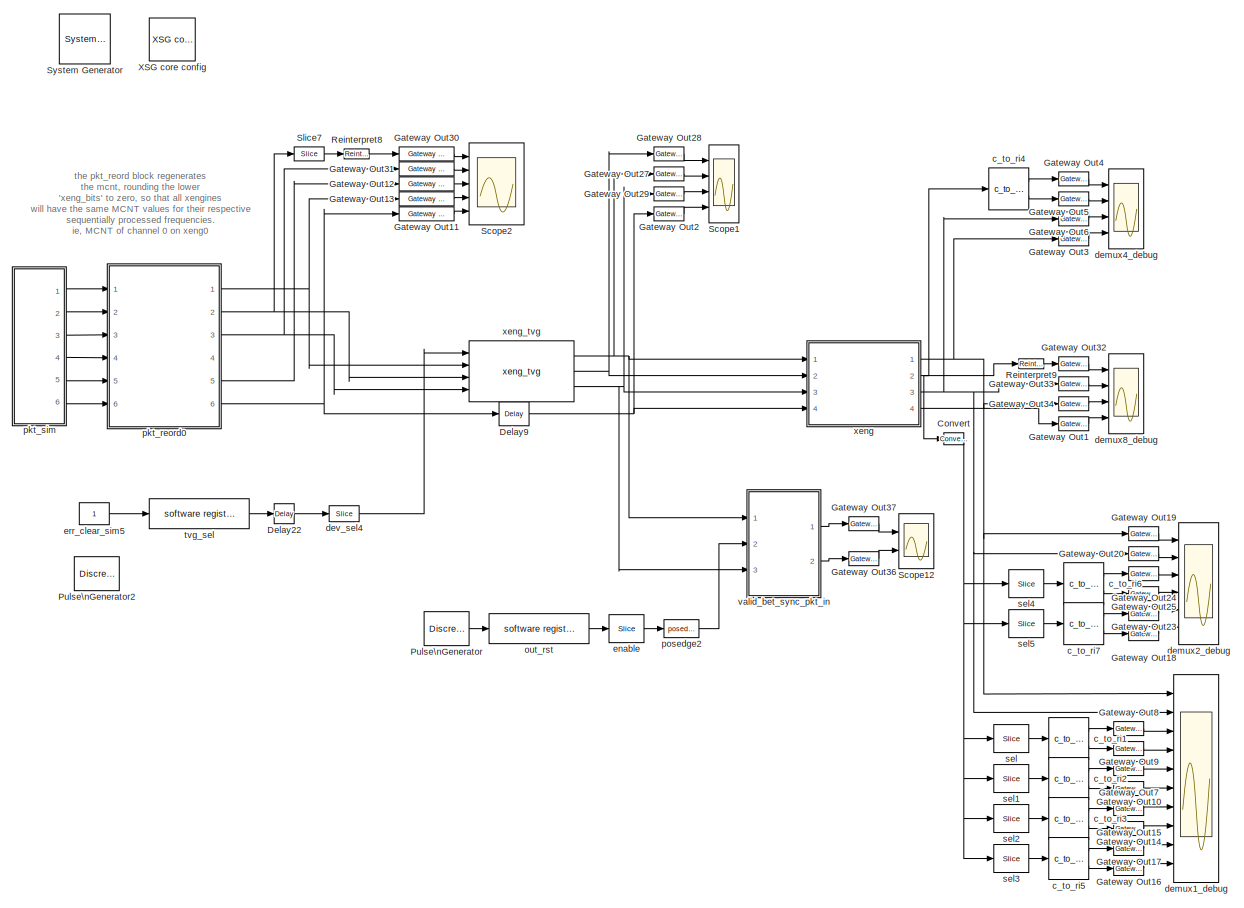
[diagram: root canvas - part 1/2, most of the canvas]
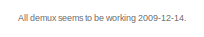
[diagram: root canvas - part 2/2, middle right region]
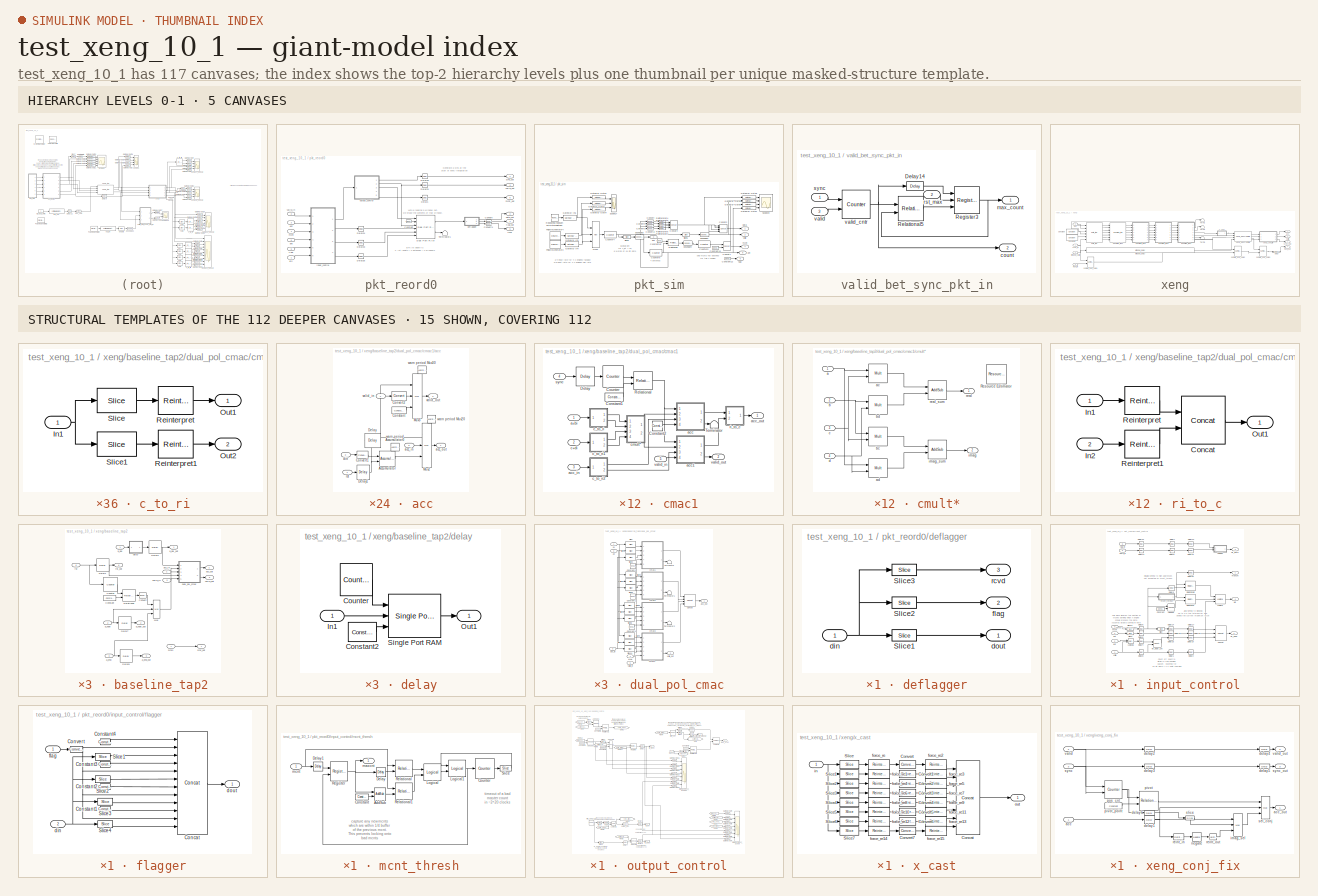
[diagram: thumbnail index - top-2 hierarchy levels (5 canvases) + 15 structural-template representatives of the remaining 112 canvases]
MODEL test_xeng_10_1
KIND model
BLOCK [Reference]  System Generator  REF=xbsIndex_r4/ System Generator
  AttributesFormatString = System\\nGenerator
  FunctionWithSeparateData = off
  Ports = []
  RTWMemSecDataConstants = Inherit from model
  RTWMemSecDataInternal = Inherit from model
  RTWMemSecDataParameters = Inherit from model
  RTWMemSecFuncExecute = Inherit from model
  RTWMemSecFuncInitTerm = Inherit from model
  ShowPortLabels = FromPortIcon
  SourceBlock = xbsIndex_r4/ System Generator
  SourceType = Xilinx System Generator Block
  SystemSampleTime = -1
  Tag = genX
  UserData = DataTag0
  UserDataPersistent = on
  block_type = sysgen
  block_version = 10.1.3
  clock_wrapper = Clock Enables
  core_generation = According to Block Masks
  dbl_ovrd = According to Block Masks
  dcm_input_clock_period = 100
  deprecated_control = off
  directory = ./test_vacc_pkt_10_1/sysgen
  eval_field = 0
  has_advanced_control = 0
  incr_netlist = off
  infoedit = System Generator
  package = ff1136
  part = xc5vlx110t
  run_coregen = off
  sg_icon_stat = 51,50,-1,-1,red,beige,0,07734,right
  sg_mask_display = fprintf('','COMMENT: begin icon graphics');\npatch([0 51 51 0 ],[0 0 50 50 ],[0.93 0.92 0.86]);\npatch([12 4 16 4 12 25 29 33 47 36 25 17 29 17 25 36 47 33 29 25 12 ],[5 13 25 37 45 45 41 45 45 34 45 37 25 13 5 16 5 5 9 5 5 ],[0.6 0.2 0.25]);\nplot([0 51 51 0 0 ],[0 0 50 50 0 ]);\nfprintf('','COMMENT: end icon graphics');\nfprintf('','COMMENT: begin icon text');\nfprintf('','COMMENT: end icon text...<+5ch>
  sggui_pos = -1,-1,-1,-1
  simulink_period = 1
  speed = -1
  synthesis_tool = XST
  sysclk_period = 5
  testbench = off
  trim_vbits = Everywhere in SubSystem
  xilinxfamily = virtex5
BLOCK [Reference] Convert  REF=xbsIndex_r4/Convert
  Ports = [1, 1]
  SourceBlock = xbsIndex_r4/Convert
  SourceType = Xilinx Type Converter Block
  arith_type = Unsigned
  bin_pt = 0
  block_type = convert
  block_version = 10.1.3
  dbl_ovrd = off
  has_advanced_control = 0
  infoedit = Hardware notes: rounding and saturating require hardware resources; truncating and wrapping do not.
  latency = 0
  n_bits = 128
  overflow = Wrap
  pipeline = off
  quantization = Truncate
  sg_icon_stat = 20,12,1,1,white,blue,0,edca21da,right,
  sg_mask_display = fprintf('','COMMENT: begin icon graphics');\npatch([0 1 1 0 ],[0 0 1 1 ],[0.77 0.82 0.91]);\npatch([0.35 0.25 0.4 0.25 0.35 0.5 0.55 0.6 0.75 0.6 0.45 0.35 0.5 0.35 0.45 0.6 0.75 0.6 0.55 0.5 0.35 ],[0.0833333 0.25 0.5 0.75 0.916667 0.916667 0.833333 0.916667 0.916667 0.666667 0.916667 0.75 0.5 0.25 0.0833333 0.333333 0.0833333 0.0833333 0.166667 0.0833333 0.0833333 ],[0.98 0.96 0.92]);\nplot([0 1...<+195ch>  <repeated x3 — deduplicated; at blocks: Convert, Convert1>
  sggui_pos = 20,20,470,336
  xl_area = [0,0,0,0,0,0,0]
  xl_use_area = off
BLOCK [Reference] Delay22  REF=xbsIndex_r4/Delay
  Ports = [1, 1]
  SourceBlock = xbsIndex_r4/Delay
  SourceType = Xilinx Delay Block
  block_type = delay
  block_version = 10.1.3
  dbl_ovrd = off
  en = off
  has_advanced_control = 0
  infoedit = Hardware notes: A delay line is a chain, each link of which is an SRL16 followed by a flip-flop.
  latency = 2
  reg_retiming = off
  sg_icon_stat = 20,20,1,1,white,blue,0,85ce9542,right,
  sg_mask_display = fprintf('','COMMENT: begin icon graphics');\npatch([0 1 1 0 ],[0 0 1 1 ],[0.77 0.82 0.91]);\npatch([0.2 0.05 0.3 0.05 0.2 0.45 0.5 0.55 0.85 0.65 0.45 0.3 0.55 0.3 0.45 0.65 0.85 0.55 0.5 0.45 0.2 ],[0.1 0.25 0.5 0.75 0.9 0.9 0.85 0.9 0.9 0.7 0.9 0.75 0.5 0.25 0.1 0.3 0.1 0.1 0.15 0.1 0.1 ],[0.98 0.96 0.92]);\nplot([0 1 1 0 0 ],[0 0 1 1 0 ]);\nfprintf('','COMMENT: end icon graphics');\nfprintf('',...<+116ch>  <repeated x7 — deduplicated; at blocks: Delay22, Delay1, Delay20, Delay21, Delay23, Delay24, Delay25>
  sggui_pos = -1,-1,-1,-1
  xl_area = [0, 0, 0, 0, 0, 0, 0]
  xl_use_area = off
BLOCK [Reference] Delay9  REF=xbsIndex_r4/Delay
  Ports = [1, 1]
  SourceBlock = xbsIndex_r4/Delay
  SourceType = Xilinx Delay Block
  block_type = delay
  block_version = 10.1.3
  dbl_ovrd = off
  en = off
  has_advanced_control = 0
  infoedit = Hardware notes: A delay line is a chain, each link of which is an SRL16 followed by a flip-flop.
  latency = 3
  reg_retiming = on
  sg_icon_stat = 30,24,1,1,white,blue,0,83e6bb61,right,
  sg_mask_display = fprintf('','COMMENT: begin icon graphics');\npatch([0 1 1 0 ],[0 0 1 1 ],[0.77 0.82 0.91]);\npatch([0.3 0.166667 0.366667 0.166667 0.3 0.5 0.566667 0.633333 0.866667 0.7 0.533333 0.4 0.6 0.4 0.533333 0.7 0.866667 0.633333 0.566667 0.5 0.3 ],[0.125 0.291667 0.541667 0.791667 0.958333 0.958333 0.875 0.958333 0.958333 0.75 0.958333 0.791667 0.541667 0.291667 0.125 0.333333 0.125 0.125 0.208333 0.125 ...<+232ch>
  sggui_pos = 20,20,348,254
  xl_area = [0, 0, 0, 0, 0, 0, 0]
  xl_use_area = off
BLOCK [Reference] Gateway Out1  REF=xbsIndex_r4/Gateway Out
  LOCs = {}
  Ports = [1, 1]
  SourceBlock = xbsIndex_r4/Gateway Out
  SourceType = Xilinx Gateway Out Block
  block_type = gatewayout
  block_version = 10.1.3
  has_advanced_control = 0
  hdl_port = off
  infoedit = Gateway out block.  Converts Xilinx fixed point inputs into ouputs of type Simulink integer, double, or fixed point.<P><P>Hardware notes:  In hardware these blocks become top level output ports or are discarded, depending on how they are configured.  <repeated x54 — deduplicated; at blocks: Gateway Out1, Gateway Out10, Gateway Out11, Gateway Out12, Gateway Out13, Gateway Out14, Gateway Out15, Gateway Out16, Gateway Out17, Gateway Out18, Gateway Out19, Gateway Out2, Gateway Out20, Gateway Out23, Gateway Out24, Gateway Out25, +24 more>
  locs_specified = off
  sg_icon_stat = 30,14,1,1,white,grey,0,632ec840,right,
  sg_mask_display = fprintf('','COMMENT: begin icon graphics');\npatch([0 1 1 0 ],[0 0 1 1 ],[0.88 0.88 0.88]);\npatch([0.366667 0.3 0.4 0.3 0.366667 0.5 0.533333 0.566667 0.7 0.6 0.5 0.433333 0.533333 0.433333 0.5 0.6 0.7 0.566667 0.533333 0.5 0.366667 ],[0.142857 0.285714 0.5 0.714286 0.857143 0.857143 0.785714 0.857143 0.857143 0.642857 0.857143 0.714286 0.5 0.285714 0.142857 0.357143 0.142857 0.142857 0.214286 0....<+317ch>  <repeated x42 — deduplicated; at blocks: Gateway Out1, Gateway Out10, Gateway Out14, Gateway Out15, Gateway Out16, Gateway Out17, Gateway Out18, Gateway Out19, Gateway Out2, Gateway Out20, Gateway Out23, Gateway Out24, Gateway Out25, Gateway Out27, Gateway Out28, Gateway Out29, +15 more>
  sggui_pos = -1,-1,-1,-1
  timing_constraint = None
  xl_area = [0, 0, 0, 0, 0, 0, 0]
  xl_use_area = off
BLOCK [Reference] Gateway Out10  REF=xbsIndex_r4/Gateway Out
  LOCs = {}
  Ports = [1, 1]
  SourceBlock = xbsIndex_r4/Gateway Out
  SourceType = Xilinx Gateway Out Block
  block_type = gatewayout
  block_version = 10.1.3
  has_advanced_control = 0
  hdl_port = off
  locs_specified = off
  sg_icon_stat = 30,14,1,1,white,grey,0,632ec840,right,
  sggui_pos = -1,-1,-1,-1
  timing_constraint = None
  xl_area = [0, 0, 0, 0, 0, 0, 0]
  xl_use_area = off
BLOCK [Reference] Gateway Out11  REF=xbsIndex_r4/Gateway Out
  LOCs = {}
  Ports = [1, 1]
  SourceBlock = xbsIndex_r4/Gateway Out
  SourceType = Xilinx Gateway Out Block
  block_type = gatewayout
  block_version = 10.1.3
  has_advanced_control = 0
  hdl_port = on
  locs_specified = off
  sg_icon_stat = 55,14,1,1,white,yellow,0,cc31b7ac,right,
  sg_mask_display = fprintf('','COMMENT: begin icon graphics');\npatch([0 1 1 0 ],[0 0 1 1 ],[0.95 0.93 0.65]);\npatch([0.418182 0.381818 0.436364 0.381818 0.418182 0.490909 0.509091 0.527273 0.6 0.545455 0.490909 0.454545 0.509091 0.454545 0.490909 0.545455 0.6 0.527273 0.509091 0.490909 0.418182 ],[0.142857 0.285714 0.5 0.714286 0.857143 0.857143 0.785714 0.857143 0.857143 0.642857 0.857143 0.714286 0.5 0.285714 0....<+366ch>  <repeated x12 — deduplicated; at blocks: Gateway Out11, Gateway Out12, Gateway Out13, Gateway Out30, Gateway Out31, Gateway Out48, Gateway Out49, Gateway Out50, Gateway Out51, Gateway Out52, Gateway Out53, Gateway Out54>
  sggui_pos = -1,-1,-1,-1
  timing_constraint = None
  xl_area = [0, 0, 0, 0, 0, 0, 0]
  xl_use_area = off
BLOCK [Reference] Gateway Out12  REF=xbsIndex_r4/Gateway Out
  LOCs = {}
  Ports = [1, 1]
  SourceBlock = xbsIndex_r4/Gateway Out
  SourceType = Xilinx Gateway Out Block
  block_type = gatewayout
  block_version = 10.1.3
  has_advanced_control = 0
  hdl_port = on
  locs_specified = off
  sg_icon_stat = 55,14,1,1,white,yellow,0,cc31b7ac,right,
  sggui_pos = -1,-1,-1,-1
  timing_constraint = None
  xl_area = [0, 0, 0, 0, 0, 0, 0]
  xl_use_area = off
BLOCK [Reference] Gateway Out13  REF=xbsIndex_r4/Gateway Out
  LOCs = {}
  Ports = [1, 1]
  SourceBlock = xbsIndex_r4/Gateway Out
  SourceType = Xilinx Gateway Out Block
  block_type = gatewayout
  block_version = 10.1.3
  has_advanced_control = 0
  hdl_port = on
  locs_specified = off
  sg_icon_stat = 55,14,1,1,white,yellow,0,cc31b7ac,right,
  sggui_pos = -1,-1,-1,-1
  timing_constraint = None
  xl_area = [0, 0, 0, 0, 0, 0, 0]
  xl_use_area = off
BLOCK [Reference] Gateway Out14  REF=xbsIndex_r4/Gateway Out
  LOCs = {}
  Ports = [1, 1]
  SourceBlock = xbsIndex_r4/Gateway Out
  SourceType = Xilinx Gateway Out Block
  block_type = gatewayout
  block_version = 10.1.3
  has_advanced_control = 0
  hdl_port = off
  locs_specified = off
  sg_icon_stat = 30,14,1,1,white,grey,0,632ec840,right,
  sggui_pos = -1,-1,-1,-1
  timing_constraint = None
  xl_area = [0, 0, 0, 0, 0, 0, 0]
  xl_use_area = off
BLOCK [Reference] Gateway Out15  REF=xbsIndex_r4/Gateway Out
  LOCs = {}
  Ports = [1, 1]
  SourceBlock = xbsIndex_r4/Gateway Out
  SourceType = Xilinx Gateway Out Block
  block_type = gatewayout
  block_version = 10.1.3
  has_advanced_control = 0
  hdl_port = off
  locs_specified = off
  sg_icon_stat = 30,14,1,1,white,grey,0,632ec840,right,
  sggui_pos = -1,-1,-1,-1
  timing_constraint = None
  xl_area = [0, 0, 0, 0, 0, 0, 0]
  xl_use_area = off
BLOCK [Reference] Gateway Out16  REF=xbsIndex_r4/Gateway Out
  LOCs = {}
  Ports = [1, 1]
  SourceBlock = xbsIndex_r4/Gateway Out
  SourceType = Xilinx Gateway Out Block
  block_type = gatewayout
  block_version = 10.1.3
  has_advanced_control = 0
  hdl_port = off
  locs_specified = off
  sg_icon_stat = 30,14,1,1,white,grey,0,632ec840,right,
  sggui_pos = -1,-1,-1,-1
  timing_constraint = None
  xl_area = [0, 0, 0, 0, 0, 0, 0]
  xl_use_area = off
BLOCK [Reference] Gateway Out17  REF=xbsIndex_r4/Gateway Out
  LOCs = {}
  Ports = [1, 1]
  SourceBlock = xbsIndex_r4/Gateway Out
  SourceType = Xilinx Gateway Out Block
  block_type = gatewayout
  block_version = 10.1.3
  has_advanced_control = 0
  hdl_port = off
  locs_specified = off
  sg_icon_stat = 30,14,1,1,white,grey,0,632ec840,right,
  sggui_pos = -1,-1,-1,-1
  timing_constraint = None
  xl_area = [0, 0, 0, 0, 0, 0, 0]
  xl_use_area = off
BLOCK [Reference] Gateway Out18  REF=xbsIndex_r4/Gateway Out
  LOCs = {}
  Ports = [1, 1]
  SourceBlock = xbsIndex_r4/Gateway Out
  SourceType = Xilinx Gateway Out Block
  block_type = gatewayout
  block_version = 10.1.3
  has_advanced_control = 0
  hdl_port = off
  locs_specified = off
  sg_icon_stat = 30,14,1,1,white,grey,0,632ec840,right,
  sggui_pos = -1,-1,-1,-1
  timing_constraint = None
  xl_area = [0, 0, 0, 0, 0, 0, 0]
  xl_use_area = off
BLOCK [Reference] Gateway Out19  REF=xbsIndex_r4/Gateway Out
  LOCs = {}
  Ports = [1, 1]
  SourceBlock = xbsIndex_r4/Gateway Out
  SourceType = Xilinx Gateway Out Block
  block_type = gatewayout
  block_version = 10.1.3
  has_advanced_control = 0
  hdl_port = off
  locs_specified = off
  sg_icon_stat = 30,14,1,1,white,grey,0,632ec840,right,
  sggui_pos = -1,-1,-1,-1
  timing_constraint = None
  xl_area = [0, 0, 0, 0, 0, 0, 0]
  xl_use_area = off
BLOCK [Reference] Gateway Out2  REF=xbsIndex_r4/Gateway Out
  LOCs = {}
  Ports = [1, 1]
  SourceBlock = xbsIndex_r4/Gateway Out
  SourceType = Xilinx Gateway Out Block
  block_type = gatewayout
  block_version = 10.1.3
  has_advanced_control = 0
  hdl_port = off
  locs_specified = off
  sg_icon_stat = 30,14,1,1,white,grey,0,632ec840,right,
  sggui_pos = -1,-1,-1,-1
  timing_constraint = None
  xl_area = [0, 0, 0, 0, 0, 0, 0]
  xl_use_area = off
BLOCK [Reference] Gateway Out20  REF=xbsIndex_r4/Gateway Out
  LOCs = {}
  Ports = [1, 1]
  SourceBlock = xbsIndex_r4/Gateway Out
  SourceType = Xilinx Gateway Out Block
  block_type = gatewayout
  block_version = 10.1.3
  has_advanced_control = 0
  hdl_port = off
  locs_specified = off
  sg_icon_stat = 30,14,1,1,white,grey,0,632ec840,right,
  sggui_pos = -1,-1,-1,-1
  timing_constraint = None
  xl_area = [0, 0, 0, 0, 0, 0, 0]
  xl_use_area = off
BLOCK [Reference] Gateway Out23  REF=xbsIndex_r4/Gateway Out
  LOCs = {}
  Ports = [1, 1]
  SourceBlock = xbsIndex_r4/Gateway Out
  SourceType = Xilinx Gateway Out Block
  block_type = gatewayout
  block_version = 10.1.3
  has_advanced_control = 0
  hdl_port = off
  locs_specified = off
  sg_icon_stat = 30,14,1,1,white,grey,0,632ec840,right,
  sggui_pos = -1,-1,-1,-1
  timing_constraint = None
  xl_area = [0, 0, 0, 0, 0, 0, 0]
  xl_use_area = off
BLOCK [Reference] Gateway Out24  REF=xbsIndex_r4/Gateway Out
  LOCs = {}
  Ports = [1, 1]
  SourceBlock = xbsIndex_r4/Gateway Out
  SourceType = Xilinx Gateway Out Block
  block_type = gatewayout
  block_version = 10.1.3
  has_advanced_control = 0
  hdl_port = off
  locs_specified = off
  sg_icon_stat = 30,14,1,1,white,grey,0,632ec840,right,
  sggui_pos = -1,-1,-1,-1
  timing_constraint = None
  xl_area = [0, 0, 0, 0, 0, 0, 0]
  xl_use_area = off
BLOCK [Reference] Gateway Out25  REF=xbsIndex_r4/Gateway Out
  LOCs = {}
  Ports = [1, 1]
  SourceBlock = xbsIndex_r4/Gateway Out
  SourceType = Xilinx Gateway Out Block
  block_type = gatewayout
  block_version = 10.1.3
  has_advanced_control = 0
  hdl_port = off
  locs_specified = off
  sg_icon_stat = 30,14,1,1,white,grey,0,632ec840,right,
  sggui_pos = -1,-1,-1,-1
  timing_constraint = None
  xl_area = [0, 0, 0, 0, 0, 0, 0]
  xl_use_area = off
BLOCK [Reference] Gateway Out27  REF=xbsIndex_r4/Gateway Out
  LOCs = {}
  Ports = [1, 1]
  SourceBlock = xbsIndex_r4/Gateway Out
  SourceType = Xilinx Gateway Out Block
  block_type = gatewayout
  block_version = 10.1.3
  has_advanced_control = 0
  hdl_port = off
  locs_specified = off
  sg_icon_stat = 30,14,1,1,white,grey,0,632ec840,right,
  sggui_pos = -1,-1,-1,-1
  timing_constraint = None
  xl_area = [0, 0, 0, 0, 0, 0, 0]
  xl_use_area = off
BLOCK [Reference] Gateway Out28  REF=xbsIndex_r4/Gateway Out
  LOCs = {}
  Ports = [1, 1]
  SourceBlock = xbsIndex_r4/Gateway Out
  SourceType = Xilinx Gateway Out Block
  block_type = gatewayout
  block_version = 10.1.3
  has_advanced_control = 0
  hdl_port = off
  locs_specified = off
  sg_icon_stat = 30,14,1,1,white,grey,0,632ec840,right,
  sggui_pos = -1,-1,-1,-1
  timing_constraint = None
  xl_area = [0, 0, 0, 0, 0, 0, 0]
  xl_use_area = off
BLOCK [Reference] Gateway Out29  REF=xbsIndex_r4/Gateway Out
  LOCs = {}
  Ports = [1, 1]
  SourceBlock = xbsIndex_r4/Gateway Out
  SourceType = Xilinx Gateway Out Block
  block_type = gatewayout
  block_version = 10.1.3
  has_advanced_control = 0
  hdl_port = off
  locs_specified = off
  sg_icon_stat = 30,14,1,1,white,grey,0,632ec840,right,
  sggui_pos = -1,-1,-1,-1
  timing_constraint = None
  xl_area = [0, 0, 0, 0, 0, 0, 0]
  xl_use_area = off
BLOCK [Reference] Gateway Out3  REF=xbsIndex_r4/Gateway Out
  LOCs = {}
  Ports = [1, 1]
  SourceBlock = xbsIndex_r4/Gateway Out
  SourceType = Xilinx Gateway Out Block
  block_type = gatewayout
  block_version = 10.1.3
  has_advanced_control = 0
  hdl_port = off
  locs_specified = off
  sg_icon_stat = 30,14,1,1,white,grey,0,632ec840,right,
  sggui_pos = -1,-1,-1,-1
  timing_constraint = None
  xl_area = [0, 0, 0, 0, 0, 0, 0]
  xl_use_area = off
BLOCK [Reference] Gateway Out30  REF=xbsIndex_r4/Gateway Out
  LOCs = {}
  Ports = [1, 1]
  SourceBlock = xbsIndex_r4/Gateway Out
  SourceType = Xilinx Gateway Out Block
  block_type = gatewayout
  block_version = 10.1.3
  has_advanced_control = 0
  hdl_port = on
  locs_specified = off
  sg_icon_stat = 55,14,1,1,white,yellow,0,cc31b7ac,right,
  sggui_pos = -1,-1,-1,-1
  timing_constraint = None
  xl_area = [0, 0, 0, 0, 0, 0, 0]
  xl_use_area = off
BLOCK [Reference] Gateway Out31  REF=xbsIndex_r4/Gateway Out
  LOCs = {}
  Ports = [1, 1]
  SourceBlock = xbsIndex_r4/Gateway Out
  SourceType = Xilinx Gateway Out Block
  block_type = gatewayout
  block_version = 10.1.3
  has_advanced_control = 0
  hdl_port = on
  locs_specified = off
  sg_icon_stat = 55,14,1,1,white,yellow,0,cc31b7ac,right,
  sggui_pos = -1,-1,-1,-1
  timing_constraint = None
  xl_area = [0, 0, 0, 0, 0, 0, 0]
  xl_use_area = off
BLOCK [Reference] Gateway Out32  REF=xbsIndex_r4/Gateway Out
  LOCs = {}
  Ports = [1, 1]
  SourceBlock = xbsIndex_r4/Gateway Out
  SourceType = Xilinx Gateway Out Block
  block_type = gatewayout
  block_version = 10.1.3
  has_advanced_control = 0
  hdl_port = off
  locs_specified = off
  sg_icon_stat = 30,14,1,1,white,grey,0,632ec840,right,
  sggui_pos = -1,-1,-1,-1
  timing_constraint = None
  xl_area = [0, 0, 0, 0, 0, 0, 0]
  xl_use_area = off
BLOCK [Reference] Gateway Out33  REF=xbsIndex_r4/Gateway Out
  LOCs = {}
  Ports = [1, 1]
  SourceBlock = xbsIndex_r4/Gateway Out
  SourceType = Xilinx Gateway Out Block
  block_type = gatewayout
  block_version = 10.1.3
  has_advanced_control = 0
  hdl_port = off
  locs_specified = off
  sg_icon_stat = 30,14,1,1,white,grey,0,632ec840,right,
  sggui_pos = -1,-1,-1,-1
  timing_constraint = None
  xl_area = [0, 0, 0, 0, 0, 0, 0]
  xl_use_area = off
BLOCK [Reference] Gateway Out34  REF=xbsIndex_r4/Gateway Out
  LOCs = {}
  Ports = [1, 1]
  SourceBlock = xbsIndex_r4/Gateway Out
  SourceType = Xilinx Gateway Out Block
  block_type = gatewayout
  block_version = 10.1.3
  has_advanced_control = 0
  hdl_port = off
  locs_specified = off
  sg_icon_stat = 30,14,1,1,white,grey,0,632ec840,right,
  sggui_pos = -1,-1,-1,-1
  timing_constraint = None
  xl_area = [0, 0, 0, 0, 0, 0, 0]
  xl_use_area = off
BLOCK [Reference] Gateway Out36  REF=xbsIndex_r4/Gateway Out
  LOCs = {}
  Ports = [1, 1]
  SourceBlock = xbsIndex_r4/Gateway Out
  SourceType = Xilinx Gateway Out Block
  block_type = gatewayout
  block_version = 10.1.3
  has_advanced_control = 0
  hdl_port = off
  locs_specified = off
  sg_icon_stat = 30,14,1,1,white,grey,0,632ec840,right,
  sggui_pos = -1,-1,-1,-1
  timing_constraint = None
  xl_area = [0, 0, 0, 0, 0, 0, 0]
  xl_use_area = off
BLOCK [Reference] Gateway Out37  REF=xbsIndex_r4/Gateway Out
  LOCs = {}
  Ports = [1, 1]
  SourceBlock = xbsIndex_r4/Gateway Out
  SourceType = Xilinx Gateway Out Block
  block_type = gatewayout
  block_version = 10.1.3
  has_advanced_control = 0
  hdl_port = off
  locs_specified = off
  sg_icon_stat = 30,14,1,1,white,grey,0,632ec840,right,
  sggui_pos = -1,-1,-1,-1
  timing_constraint = None
  xl_area = [0, 0, 0, 0, 0, 0, 0]
  xl_use_area = off
BLOCK [Reference] Gateway Out4  REF=xbsIndex_r4/Gateway Out
  LOCs = {}
  Ports = [1, 1]
  SourceBlock = xbsIndex_r4/Gateway Out
  SourceType = Xilinx Gateway Out Block
  block_type = gatewayout
  block_version = 10.1.3
  has_advanced_control = 0
  hdl_port = off
  locs_specified = off
  sg_icon_stat = 30,14,1,1,white,grey,0,632ec840,right,
  sggui_pos = -1,-1,-1,-1
  timing_constraint = None
  xl_area = [0, 0, 0, 0, 0, 0, 0]
  xl_use_area = off
BLOCK [Reference] Gateway Out5  REF=xbsIndex_r4/Gateway Out
  LOCs = {}
  Ports = [1, 1]
  SourceBlock = xbsIndex_r4/Gateway Out
  SourceType = Xilinx Gateway Out Block
  block_type = gatewayout
  block_version = 10.1.3
  has_advanced_control = 0
  hdl_port = off
  locs_specified = off
  sg_icon_stat = 30,14,1,1,white,grey,0,632ec840,right,
  sggui_pos = -1,-1,-1,-1
  timing_constraint = None
  xl_area = [0, 0, 0, 0, 0, 0, 0]
  xl_use_area = off
BLOCK [Reference] Gateway Out6  REF=xbsIndex_r4/Gateway Out
  LOCs = {}
  Ports = [1, 1]
  SourceBlock = xbsIndex_r4/Gateway Out
  SourceType = Xilinx Gateway Out Block
  block_type = gatewayout
  block_version = 10.1.3
  has_advanced_control = 0
  hdl_port = off
  locs_specified = off
  sg_icon_stat = 30,14,1,1,white,grey,0,632ec840,right,
  sggui_pos = -1,-1,-1,-1
  timing_constraint = None
  xl_area = [0, 0, 0, 0, 0, 0, 0]
  xl_use_area = off
BLOCK [Reference] Gateway Out7  REF=xbsIndex_r4/Gateway Out
  LOCs = {}
  Ports = [1, 1]
  SourceBlock = xbsIndex_r4/Gateway Out
  SourceType = Xilinx Gateway Out Block
  block_type = gatewayout
  block_version = 10.1.3
  has_advanced_control = 0
  hdl_port = off
  locs_specified = off
  sg_icon_stat = 30,14,1,1,white,grey,0,632ec840,right,
  sggui_pos = -1,-1,-1,-1
  timing_constraint = None
  xl_area = [0, 0, 0, 0, 0, 0, 0]
  xl_use_area = off
BLOCK [Reference] Gateway Out8  REF=xbsIndex_r4/Gateway Out
  LOCs = {}
  Ports = [1, 1]
  SourceBlock = xbsIndex_r4/Gateway Out
  SourceType = Xilinx Gateway Out Block
  block_type = gatewayout
  block_version = 10.1.3
  has_advanced_control = 0
  hdl_port = off
  locs_specified = off
  sg_icon_stat = 30,14,1,1,white,grey,0,632ec840,right,
  sggui_pos = -1,-1,-1,-1
  timing_constraint = None
  xl_area = [0, 0, 0, 0, 0, 0, 0]
  xl_use_area = off
BLOCK [Reference] Gateway Out9  REF=xbsIndex_r4/Gateway Out
  LOCs = {}
  Ports = [1, 1]
  SourceBlock = xbsIndex_r4/Gateway Out
  SourceType = Xilinx Gateway Out Block
  block_type = gatewayout
  block_version = 10.1.3
  has_advanced_control = 0
  hdl_port = off
  locs_specified = off
  sg_icon_stat = 30,14,1,1,white,grey,0,632ec840,right,
  sggui_pos = -1,-1,-1,-1
  timing_constraint = None
  xl_area = [0, 0, 0, 0, 0, 0, 0]
  xl_use_area = off
BLOCK [DiscretePulseGenerator] Pulse\nGenerator
  Period = 2^15
  PhaseDelay = 2^14
  Ports = [0, 1]
BLOCK [DiscretePulseGenerator] Pulse\nGenerator2
  Period = 100000
  PhaseDelay = 1
  Ports = [0, 1]
BLOCK [Reference] Reinterpret8  REF=xbsIndex_r4/Reinterpret
  Ports = [1, 1]
  SourceBlock = xbsIndex_r4/Reinterpret
  SourceType = Xilinx Type Reinterpreter Block
  arith_type = Signed  (2's comp)
  bin_pt = 3
  block_type = reinterpret
  block_version = 10.1.3
  force_arith_type = on
  force_bin_pt = on
  has_advanced_control = 0
  infoedit = Changes signal type without altering the binary representation.   You can changed the signal between signed and unsigned, and relocate the binary point.<P><P>Hardware notes: In hardware this block costs nothing.<P><P>Example:  Suppose the input is 6 bits wide, signed, with 2 fractional bits, and the output is forced to unsigned with 0 fractional bits.  Then an input of -2.0 (1110.00 in binary 2's ...<+55ch>  <repeated x118 — deduplicated; at blocks: Reinterpret8, Reinterpret9, Reinterpret4, Reinterpret5, Reinterpret6, Reinterpret7, Reinterpret, Reinterpret1, force_re, force_re1, force_re10, force_re11, force_re12, force_re13, force_re14, force_re15, +8 more>
  sg_icon_stat = 25,10,1,1,white,blue,0,6b04d0b0,right,
  sg_mask_display = fprintf('','COMMENT: begin icon graphics');\npatch([0 1 1 0 ],[0 0 1 1 ],[0.77 0.82 0.91]);\npatch([0.4 0.32 0.4 0.32 0.4 0.52 0.56 0.6 0.72 0.64 0.56 0.48 0.56 0.48 0.56 0.64 0.72 0.6 0.56 0.52 0.4 ],[0.1 0.3 0.5 0.7 0.9 0.9 0.8 0.9 0.9 0.7 0.9 0.7 0.5 0.3 0.1 0.3 0.1 0.1 0.2 0.1 0.1 ],[0.98 0.96 0.92]);\nplot([0 1 1 0 0 ],[0 0 1 1 0 ]);\nfprintf('','COMMENT: end icon graphics');\nfprintf('','COM...<+102ch>  <repeated x6 — deduplicated; at blocks: Reinterpret8, Reinterpret9, Reinterpret4, Reinterpret5, Reinterpret6, Reinterpret7>
  sggui_pos = 20,20,336,312
BLOCK [Reference] Reinterpret9  REF=xbsIndex_r4/Reinterpret
  Ports = [1, 1]
  SourceBlock = xbsIndex_r4/Reinterpret
  SourceType = Xilinx Type Reinterpreter Block
  arith_type = Signed  (2's comp)
  bin_pt = 6
  block_type = reinterpret
  block_version = 10.1.3
  force_arith_type = on
  force_bin_pt = on
  has_advanced_control = 0
  sg_icon_stat = 25,10,1,1,white,blue,0,6b04d0b0,right,
  sggui_pos = 20,20,336,312
BLOCK [Scope] Scope1
  DataFormat = StructureWithTime
  Floating = off
  LimitDataPoints = off
  NumInputPorts = 4
  Ports = [4]
  SampleTime = 0
  SaveName = ScopeData12
  YMax = 65000~1~1~1560
  YMin = 0~0~1~1460
  ZoomMode = yonly
BLOCK [Scope] Scope12
  DataFormat = StructureWithTime
  Floating = off
  LimitDataPoints = off
  NumInputPorts = 2
  Ports = [2]
  SampleTime = 0
  SaveName = data_into_xeng
  SaveToWorkspace = on
  YMax = 34405.3~10060
  YMin = 31128.7~9840
  ZoomMode = yonly
BLOCK [Scope] Scope2
  DataFormat = StructureWithTime
  Floating = off
  LimitDataPoints = off
  NumInputPorts = 5
  Ports = [5]
  SampleTime = 0
  SaveName = ScopeData18
  YMax = 0.9~1~1~1~360
  YMin = 0~0~0~-1~344
  ZoomMode = xonly
BLOCK [Reference] Slice7  REF=xbsIndex_r4/Slice
  Ports = [1, 1]
  SourceBlock = xbsIndex_r4/Slice
  SourceType = Xilinx Bit Slice Extractor Block
  base0 = LSB of Input
  base1 = MSB of Input
  bit0 = 0
  bit1 = 0
  block_type = slice
  block_version = 10.1.3
  boolean_output = off
  dbl_ovrd = off
  has_advanced_control = 0
  infoedit = Extracts a given range of bits from each input sample and presents it at the output.  The output type is ordinarily unsigned with binary point at zero, but can be Boolean when the slice is one bit wide.<P><P>Hardware notes: In hardware this block costs nothing.  <repeated x139 — deduplicated; at blocks: Slice7, dev_sel4, enable, Slice1, Slice2, Slice3, Slice, Slice14, Slice4, Slice5, Slice6, Slice9, sel, sel1, sel2, sel3, +4 more>
  mode = Lower Bit Location + Width
  nbits = 4
  sg_icon_stat = 30,14,1,1,white,blue,0,1fd851a7,right,
  sg_mask_display = fprintf('','COMMENT: begin icon graphics');\npatch([0 1 1 0 ],[0 0 1 1 ],[0.77 0.82 0.91]);\npatch([0.366667 0.3 0.4 0.3 0.366667 0.5 0.533333 0.566667 0.7 0.6 0.5 0.433333 0.533333 0.433333 0.5 0.6 0.7 0.566667 0.533333 0.5 0.366667 ],[0.142857 0.285714 0.5 0.714286 0.857143 0.857143 0.785714 0.857143 0.857143 0.642857 0.857143 0.714286 0.5 0.285714 0.142857 0.357143 0.142857 0.142857 0.214286 0....<+243ch>  <repeated x18 — deduplicated; at blocks: Slice7, Slice1, Slice2, Slice3, Slice, Slice14, Slice4, Slice5, Slice6, Slice9>
  sggui_pos = 20,20,460,380
BLOCK [Reference] XSG core config  REF=xps_library/XSG core config  (lib defined in mdl_00b5cec29cd0, mdl_02ab6ecaa3d1, +5 more)
  BEE2_ctrl_clk_src = sys_clk
  BEE2_usr_clk_src = sys_clk
  CORR_clk_src = sys_clk
  FunctionWithSeparateData = off
  Ports = []
  ROACH_clk_src = arb_clk
  RTWMemSecDataConstants = Inherit from model
  RTWMemSecDataInternal = Inherit from model
  RTWMemSecDataParameters = Inherit from model
  RTWMemSecFuncExecute = Inherit from model
  RTWMemSecFuncInitTerm = Inherit from model
  ShowPortLabels = FromPortIcon
  SourceBlock = xps_library/XSG core config
  SourceType = xsg core config
  SystemSampleTime = -1
  Tag = xps:xsg
  clk_rate = 100
  clk_src = sys_clk
  gpio_clk_bit_index = 0
  gpio_clk_io_group = iBOB:sma
  hw_sys = iBOB
  iBOB_clk_src = sys_clk
  ibob_linux = off
  mpc_type = powerpc405
  sample_period = 1
  synthesis_tool = XST
BLOCK [Reference] c_to_ri1  REF=casper_library/Misc/c_to_ri  (lib defined in mdl_138b2fc3435f, mdl_4ed325b712b3, +2 more)
  AttributesFormatString = 16_6 r/i
  FunctionWithSeparateData = off
  Ports = [1, 2]
  RTWMemSecDataConstants = Inherit from model
  RTWMemSecDataInternal = Inherit from model
  RTWMemSecDataParameters = Inherit from model
  RTWMemSecFuncExecute = Inherit from model
  RTWMemSecFuncInitTerm = Inherit from model
  ShowPortLabels = FromPortIcon
  SourceBlock = casper_library/Misc/c_to_ri
  SourceType = c_to_ri
  SystemSampleTime = -1
  UserData = DataTag1
  UserDataPersistent = on
  bin_pt = 6
  n_bits = 16
BLOCK [Reference] c_to_ri2  REF=casper_library/Misc/c_to_ri  (lib defined in mdl_138b2fc3435f, mdl_4ed325b712b3, +2 more)
  AttributesFormatString = 16_6 r/i
  FunctionWithSeparateData = off
  Ports = [1, 2]
  RTWMemSecDataConstants = Inherit from model
  RTWMemSecDataInternal = Inherit from model
  RTWMemSecDataParameters = Inherit from model
  RTWMemSecFuncExecute = Inherit from model
  RTWMemSecFuncInitTerm = Inherit from model
  ShowPortLabels = FromPortIcon
  SourceBlock = casper_library/Misc/c_to_ri
  SourceType = c_to_ri
  SystemSampleTime = -1
  UserData = DataTag2
  UserDataPersistent = on
  bin_pt = 6
  n_bits = 16
BLOCK [Reference] c_to_ri3  REF=casper_library/Misc/c_to_ri  (lib defined in mdl_138b2fc3435f, mdl_4ed325b712b3, +2 more)
  AttributesFormatString = 16_6 r/i
  FunctionWithSeparateData = off
  Ports = [1, 2]
  RTWMemSecDataConstants = Inherit from model
  RTWMemSecDataInternal = Inherit from model
  RTWMemSecDataParameters = Inherit from model
  RTWMemSecFuncExecute = Inherit from model
  RTWMemSecFuncInitTerm = Inherit from model
  ShowPortLabels = FromPortIcon
  SourceBlock = casper_library/Misc/c_to_ri
  SourceType = c_to_ri
  SystemSampleTime = -1
  UserData = DataTag3
  UserDataPersistent = on
  bin_pt = 6
  n_bits = 16
BLOCK [Reference] c_to_ri4  REF=casper_library/Misc/c_to_ri  (lib defined in mdl_138b2fc3435f, mdl_4ed325b712b3, +2 more)
  AttributesFormatString = 16_6 r/i
  FunctionWithSeparateData = off
  Ports = [1, 2]
  RTWMemSecDataConstants = Inherit from model
  RTWMemSecDataInternal = Inherit from model
  RTWMemSecDataParameters = Inherit from model
  RTWMemSecFuncExecute = Inherit from model
  RTWMemSecFuncInitTerm = Inherit from model
  ShowPortLabels = FromPortIcon
  SourceBlock = casper_library/Misc/c_to_ri
  SourceType = c_to_ri
  SystemSampleTime = -1
  UserData = DataTag4
  UserDataPersistent = on
  bin_pt = 6
  n_bits = 16
BLOCK [Reference] c_to_ri5  REF=casper_library/Misc/c_to_ri  (lib defined in mdl_138b2fc3435f, mdl_4ed325b712b3, +2 more)
  AttributesFormatString = 16_6 r/i
  FunctionWithSeparateData = off
  Ports = [1, 2]
  RTWMemSecDataConstants = Inherit from model
  RTWMemSecDataInternal = Inherit from model
  RTWMemSecDataParameters = Inherit from model
  RTWMemSecFuncExecute = Inherit from model
  RTWMemSecFuncInitTerm = Inherit from model
  ShowPortLabels = FromPortIcon
  SourceBlock = casper_library/Misc/c_to_ri
  SourceType = c_to_ri
  SystemSampleTime = -1
  UserData = DataTag5
  UserDataPersistent = on
  bin_pt = 6
  n_bits = 16
BLOCK [Reference] c_to_ri6  REF=casper_library/Misc/c_to_ri  (lib defined in mdl_138b2fc3435f, mdl_4ed325b712b3, +2 more)
  AttributesFormatString = 16_6 r/i
  FunctionWithSeparateData = off
  Ports = [1, 2]
  RTWMemSecDataConstants = Inherit from model
  RTWMemSecDataInternal = Inherit from model
  RTWMemSecDataParameters = Inherit from model
  RTWMemSecFuncExecute = Inherit from model
  RTWMemSecFuncInitTerm = Inherit from model
  ShowPortLabels = FromPortIcon
  SourceBlock = casper_library/Misc/c_to_ri
  SourceType = c_to_ri
  SystemSampleTime = -1
  UserData = DataTag6
  UserDataPersistent = on
  bin_pt = 6
  n_bits = 16
BLOCK [Reference] c_to_ri7  REF=casper_library/Misc/c_to_ri  (lib defined in mdl_138b2fc3435f, mdl_4ed325b712b3, +2 more)
  AttributesFormatString = 16_6 r/i
  FunctionWithSeparateData = off
  Ports = [1, 2]
  RTWMemSecDataConstants = Inherit from model
  RTWMemSecDataInternal = Inherit from model
  RTWMemSecDataParameters = Inherit from model
  RTWMemSecFuncExecute = Inherit from model
  RTWMemSecFuncInitTerm = Inherit from model
  ShowPortLabels = FromPortIcon
  SourceBlock = casper_library/Misc/c_to_ri
  SourceType = c_to_ri
  SystemSampleTime = -1
  UserData = DataTag7
  UserDataPersistent = on
  bin_pt = 6
  n_bits = 16
BLOCK [Scope] demux1_debug
  DataFormat = StructureWithTime
  Floating = off
  LimitDataPoints = off
  NumInputPorts = 10
  Ports = [10]
  SampleTime = 0
  SaveName = ScopeData6
  YMax = 10~15~1~1~5~5~5~5~5~5
  YMin = -50~-15~0~-1~-5~-5~-5~-5~-5~-5
  ZoomMode = xonly
BLOCK [Scope] demux2_debug
  DataFormat = StructureWithTime
  Floating = off
  LimitDataPoints = off
  NumInputPorts = 6
  Ports = [6]
  SampleTime = 0
  SaveName = ScopeData7
  YMax = 10~15~1~1~5~5
  YMin = -50~-15~0~-1~-5~-5
  ZoomMode = xonly
BLOCK [Scope] demux4_debug
  DataFormat = StructureWithTime
  Floating = off
  LimitDataPoints = off
  NumInputPorts = 4
  Ports = [4]
  SampleTime = 0
  YMax = 10~15~1~1
  YMin = -50~-15~0~-1
  ZoomMode = xonly
BLOCK [Scope] demux8_debug
  DataFormat = StructureWithTime
  Floating = off
  LimitDataPoints = off
  NumInputPorts = 4
  Ports = [4]
  SampleTime = 0
  SaveName = ScopeData20
  YMax = 110~1~1~1
  YMin = -10~0~-1~-1
  ZoomMode = xonly
BLOCK [Reference] dev_sel4  REF=xbsIndex_r4/Slice
  Ports = [1, 1]
  SourceBlock = xbsIndex_r4/Slice
  SourceType = Xilinx Bit Slice Extractor Block
  base0 = LSB of Input
  base1 = MSB of Input
  bit0 = 0
  bit1 = 0
  block_type = slice
  block_version = 10.1.3
  boolean_output = off
  dbl_ovrd = off
  has_advanced_control = 0
  mode = Lower Bit Location + Width
  nbits = 2
  sg_icon_stat = 30,16,1,1,white,blue,0,1fd851a7,right,
  sg_mask_display = fprintf('','COMMENT: begin icon graphics');\npatch([0 1 1 0 ],[0 0 1 1 ],[0.77 0.82 0.91]);\npatch([0.366667 0.266667 0.4 0.266667 0.366667 0.5 0.533333 0.566667 0.733333 0.6 0.5 0.433333 0.566667 0.433333 0.5 0.6 0.733333 0.566667 0.533333 0.5 0.366667 ],[0.125 0.3125 0.5625 0.8125 1 1 0.9375 1 1 0.75 0.9375 0.8125 0.5625 0.3125 0.1875 0.375 0.125 0.125 0.1875 0.125 0.125 ],[0.98 0.96 0.92]);\npl...<+203ch>
  sggui_pos = 20,20,460,380
BLOCK [Reference] enable  REF=xbsIndex_r4/Slice
  Ports = [1, 1]
  SourceBlock = xbsIndex_r4/Slice
  SourceType = Xilinx Bit Slice Extractor Block
  base0 = LSB of Input
  base1 = LSB of Input
  bit0 = 0
  bit1 = 0
  block_type = slice
  block_version = 10.1.3
  boolean_output = on
  dbl_ovrd = off
  has_advanced_control = 0
  mode = Lower Bit Location + Width
  nbits = 1
  sg_icon_stat = 35,28,1,1,white,blue,0,1fd851a7,right,
  sg_mask_display = fprintf('','COMMENT: begin icon graphics');\npatch([0 1 1 0 ],[0 0 1 1 ],[0.77 0.82 0.91]);\npatch([0.285714 0.142857 0.342857 0.142857 0.285714 0.485714 0.542857 0.6 0.828571 0.657143 0.485714 0.371429 0.6 0.371429 0.485714 0.657143 0.828571 0.6 0.542857 0.485714 0.285714 ],[0.107143 0.285714 0.535714 0.785714 0.964286 0.964286 0.892857 0.964286 0.964286 0.75 0.964286 0.821429 0.535714 0.25 0.107...<+285ch>  <repeated x7 — deduplicated; at blocks: enable, sel, sel1, sel2, sel3, sel4, sel5>
  sggui_pos = -1,-1,-1,-1
BLOCK [Constant] err_clear_sim5
  OutDataType = sfix(16)
  OutScaling = 2^0
BLOCK [Reference] out_rst  REF=xps_library/software register  (lib defined in mdl_00b5cec29cd0, mdl_02ab6ecaa3d1, +5 more)
  FunctionWithSeparateData = off
  Ports = [1, 1]
  RTWMemSecDataConstants = Inherit from model
  RTWMemSecDataInternal = Inherit from model
  RTWMemSecDataParameters = Inherit from model
  RTWMemSecFuncExecute = Inherit from model
  RTWMemSecFuncInitTerm = Inherit from model
  ShowPortLabels = FromPortIcon
  SourceBlock = xps_library/software register
  SystemSampleTime = -1
  Tag = xps:sw_reg
  arith_type = Unsigned
  bin_pt = 0
  bitwidth = 32
  gw_name = test_xeng_10_1_out_rst_user_data_out
  io_dir = From Processor
  sample_period = 1
BLOCK [SubSystem] pkt_reord0
  AttributesFormatString = Sync period: 2^14\nPayload Len: 32
  FunctionWithSeparateData = off
  MaskCallbackString = ||||
  MaskEnableString = on,on,on,on,on
  MaskHideContents = off
  MaskIconFrame = on
  MaskIconOpaque = on
  MaskIconRotate = none
  MaskIconUnits = autoscale
  MaskInitialization = sync_bits=chan_bits+x_int_bits+ant_bits-xeng_bits\n\nfmtstr = sprintf('Sync period: 2^%d\\nPayload Len: %i', sync_bits,2^(x_int_bits - 2));\nset_param(gcb, 'AttributesFormatString', fmtstr);\n
  MaskPromptString = Maximum Number of Antennas (2^?):|Number of Xengines in the system (2^?)|Number of frequency channels in the system (2^?)|X Engine Integration Length (2^?):|Number of Windows to Buffer (2^?):
  MaskStyleString = edit,edit,edit,edit,edit
  MaskTabNameString = ,,,,
  MaskToolTipString = on,on,on,on,on
  MaskTunableValueString = on,on,on,on,on
  MaskValueString = 3|3|7|7|3
  MaskVarAliasString = ,,,,
  MaskVariables = ant_bits=@1;xeng_bits=@2;chan_bits=@3;x_int_bits=@4;window_bits=@5;
  MaskVisibilityString = on,on,on,on,on
  MinAlgLoopOccurrences = off
  Opaque = off
  Ports = [6, 6]
  PropExecContextOutsideSubsystem = off
  RTWSystemCode = Auto
  RequestExecContextInheritance = off
BLOCK [Reference] pkt_reord0/Constant  REF=xbsIndex_r4/Constant
  Ports = [0, 1]
  SourceBlock = xbsIndex_r4/Constant
  SourceType = Xilinx Constant Block Block
  arith_type = Unsigned
  bin_pt = 0
  block_type = constant
  block_version = 10.1.3
  carry = CIN
  const = 0
  dbl_ovrd = off
  dsp48_infoedit = The use of this block for DSP48 instructions is deprecated.  Please use the Opmode block.
  equ = P=C
  explicit_period = on
  has_advanced_control = 0
  inp1 = P
  inp2 = PCIN>>17
  n_bits = 18
  opr = +
  opselect = C
  period = 1
  sg_icon_stat = 20,12,0,1,white,blue,0,bf4ddd8b,right,
  sg_mask_display = fprintf('','COMMENT: begin icon graphics');\npatch([0 1 1 0 ],[0 0 1 1 ],[0.77 0.82 0.91]);\npatch([0.35 0.25 0.4 0.25 0.35 0.5 0.55 0.6 0.75 0.6 0.45 0.35 0.5 0.35 0.45 0.6 0.75 0.6 0.55 0.5 0.35 ],[0.0833333 0.25 0.5 0.75 0.916667 0.916667 0.833333 0.916667 0.916667 0.666667 0.916667 0.75 0.5 0.25 0.0833333 0.333333 0.0833333 0.0833333 0.166667 0.0833333 0.0833333 ],[0.98 0.96 0.92]);\nplot([0 1...<+192ch>  <repeated x5 — deduplicated; at blocks: Constant, Constant1, Constant2, Constant3, Constant4>
  sggui_pos = -1,-1,-1,-1
BLOCK [Reference] pkt_reord0/Convert  REF=xbsIndex_r4/Convert
  Ports = [1, 1]
  SourceBlock = xbsIndex_r4/Convert
  SourceType = Xilinx Type Converter Block
  arith_type = Boolean
  bin_pt = 14
  block_type = convert
  block_version = 10.1.3
  dbl_ovrd = off
  has_advanced_control = 0
  infoedit = Hardware notes: rounding and saturating require hardware resources; truncating and wrapping do not.
  latency = 0
  n_bits = 16
  overflow = Wrap
  pipeline = off
  quantization = Truncate
  sg_icon_stat = 20,12,1,1,white,blue,0,edca21da,right,
  sggui_pos = 20,20,470,336
  xl_area = [0,0,0,0,0,0,0]
  xl_use_area = off
BLOCK [Reference] pkt_reord0/Convert1  REF=xbsIndex_r4/Convert
  Ports = [1, 1]
  SourceBlock = xbsIndex_r4/Convert
  SourceType = Xilinx Type Converter Block
  arith_type = Boolean
  bin_pt = 14
  block_type = convert
  block_version = 10.1.3
  dbl_ovrd = off
  has_advanced_control = 0
  infoedit = Hardware notes: rounding and saturating require hardware resources; truncating and wrapping do not.
  latency = 0
  n_bits = 16
  overflow = Wrap
  pipeline = off
  quantization = Truncate
  sg_icon_stat = 20,12,1,1,white,blue,0,edca21da,right,
  sggui_pos = 20,20,470,336
  xl_area = [0,0,0,0,0,0,0]
  xl_use_area = off
BLOCK [Reference] pkt_reord0/Delay1  REF=xbsIndex_r4/Delay
  Ports = [1, 1]
  SourceBlock = xbsIndex_r4/Delay
  SourceType = Xilinx Delay Block
  block_type = delay
  block_version = 10.1.3
  dbl_ovrd = off
  en = off
  has_advanced_control = 0
  infoedit = Hardware notes: A delay line is a chain, each link of which is an SRL16 followed by a flip-flop.
  latency = 3
  reg_retiming = on
  sg_icon_stat = 20,20,1,1,white,blue,0,83e6bb61,right,
  sggui_pos = -1,-1,-1,-1
  xl_area = [0, 0, 0, 0, 0, 0, 0]
  xl_use_area = off
BLOCK [Reference] pkt_reord0/Delay20  REF=xbsIndex_r4/Delay
  Ports = [1, 1]
  SourceBlock = xbsIndex_r4/Delay
  SourceType = Xilinx Delay Block
  block_type = delay
  block_version = 10.1.3
  dbl_ovrd = off
  en = off
  has_advanced_control = 0
  infoedit = Hardware notes: A delay line is a chain, each link of which is an SRL16 followed by a flip-flop.
  latency = 3
  reg_retiming = on
  sg_icon_stat = 20,20,1,1,white,blue,0,83e6bb61,right,
  sggui_pos = -1,-1,-1,-1
  xl_area = [0, 0, 0, 0, 0, 0, 0]
  xl_use_area = off
BLOCK [Reference] pkt_reord0/Delay21  REF=xbsIndex_r4/Delay
  Ports = [1, 1]
  SourceBlock = xbsIndex_r4/Delay
  SourceType = Xilinx Delay Block
  block_type = delay
  block_version = 10.1.3
  dbl_ovrd = off
  en = off
  has_advanced_control = 0
  infoedit = Hardware notes: A delay line is a chain, each link of which is an SRL16 followed by a flip-flop.
  latency = 3
  reg_retiming = on
  sg_icon_stat = 20,20,1,1,white,blue,0,83e6bb61,right,
  sggui_pos = -1,-1,-1,-1
  xl_area = [0, 0, 0, 0, 0, 0, 0]
  xl_use_area = off
BLOCK [Reference] pkt_reord0/Delay23  REF=xbsIndex_r4/Delay
  Ports = [1, 1]
  SourceBlock = xbsIndex_r4/Delay
  SourceType = Xilinx Delay Block
  block_type = delay
  block_version = 10.1.3
  dbl_ovrd = off
  en = off
  has_advanced_control = 0
  infoedit = Hardware notes: A delay line is a chain, each link of which is an SRL16 followed by a flip-flop.
  latency = 2
  reg_retiming = on
  sg_icon_stat = 20,20,1,1,white,blue,0,85ce9542,right,
  sggui_pos = -1,-1,-1,-1
  xl_area = [0, 0, 0, 0, 0, 0, 0]
  xl_use_area = off
BLOCK [Reference] pkt_reord0/Delay24  REF=xbsIndex_r4/Delay
  Ports = [1, 1]
  SourceBlock = xbsIndex_r4/Delay
  SourceType = Xilinx Delay Block
  block_type = delay
  block_version = 10.1.3
  dbl_ovrd = off
  en = off
  has_advanced_control = 0
  infoedit = Hardware notes: A delay line is a chain, each link of which is an SRL16 followed by a flip-flop.
  latency = 2
  reg_retiming = on
  sg_icon_stat = 20,20,1,1,white,blue,0,85ce9542,right,
  sggui_pos = -1,-1,-1,-1
  xl_area = [0, 0, 0, 0, 0, 0, 0]
  xl_use_area = off
BLOCK [Reference] pkt_reord0/Delay25  REF=xbsIndex_r4/Delay
  Ports = [1, 1]
  SourceBlock = xbsIndex_r4/Delay
  SourceType = Xilinx Delay Block
  block_type = delay
  block_version = 10.1.3
  dbl_ovrd = off
  en = off
  has_advanced_control = 0
  infoedit = Hardware notes: A delay line is a chain, each link of which is an SRL16 followed by a flip-flop.
  latency = 2
  reg_retiming = on
  sg_icon_stat = 20,20,1,1,white,blue,0,85ce9542,right,
  sggui_pos = -1,-1,-1,-1
  xl_area = [0, 0, 0, 0, 0, 0, 0]
  xl_use_area = off
BLOCK [Reference] pkt_reord0/Dual Port RAM  REF=xbsIndex_r4/Dual Port RAM
  Ports = [6, 2]
  SourceBlock = xbsIndex_r4/Dual Port RAM
  SourceType = Xilinx Dual Port Random Access Memory Block
  block_type = dpram
  block_version = 10.1.3
  dbl_ovrd = off
  depth = 2^x_int_bits * 2^ant_bits * 2^window_bits
  distributed_mem = Block RAM
  en_a = off
  en_b = off
  has_advanced_control = 0
  initVector = 1
  init_a = 0
  init_b = 0
  latency = 3
  optimize = Area
  rst_a = off
  rst_b = off
  sg_icon_stat = 75,95,6,2,white,blue,0,28af736d,right,
  sg_mask_display = fprintf('','COMMENT: begin icon graphics');\npatch([0 1 1 0 ],[0 0 1 1 ],[0.77 0.82 0.91]);\npatch([0.226667 0.0666667 0.306667 0.0666667 0.226667 0.493333 0.56 0.626667 0.906667 0.68 0.466667 0.306667 0.533333 0.306667 0.466667 0.68 0.906667 0.626667 0.56 0.493333 0.226667 ],[0.189474 0.315789 0.505263 0.694737 0.821053 0.821053 0.768421 0.821053 0.821053 0.642105 0.810526 0.684211 0.505263 0.326...<+605ch>
  sggui_pos = 20,20,393,398
  use_rpm = off
  write_mode_A = Read Before Write
  write_mode_B = Read Before Write
  xl_area = [0, 0, 0, 0, 0, 0, 0]
  xl_use_area = off
BLOCK [Terminator] pkt_reord0/Terminator1
BLOCK [Inport] pkt_reord0/ant
  IconDisplay = Port number
  OutDataType = sfix(16)
  OutScaling = 2^0
  Port = 5
BLOCK [Outport] pkt_reord0/data_out
  IconDisplay = Port number
  OutDataType = sfix(16)
  OutScaling = 2^0
  Port = 2
BLOCK [SubSystem] pkt_reord0/deflagger
  FunctionWithSeparateData = off
  MaskHideContents = off
  MinAlgLoopOccurrences = off
  Opaque = off
  Ports = [1, 3]
  PropExecContextOutsideSubsystem = off
  RTWSystemCode = Auto
  RequestExecContextInheritance = off
BLOCK [Reference] pkt_reord0/deflagger/Slice1  REF=xbsIndex_r4/Slice
  Ports = [1, 1]
  SourceBlock = xbsIndex_r4/Slice
  SourceType = Xilinx Bit Slice Extractor Block
  base0 = LSB of Input
  base1 = MSB of Input
  bit0 = 0
  bit1 = 0
  block_type = slice
  block_version = 10.1.3
  boolean_output = off
  dbl_ovrd = off
  has_advanced_control = 0
  mode = Lower Bit Location + Width
  nbits = 16
  sg_icon_stat = 30,14,1,1,white,blue,0,1fd851a7,right,
  sggui_pos = -1,-1,-1,-1
BLOCK [Reference] pkt_reord0/deflagger/Slice2  REF=xbsIndex_r4/Slice
  Ports = [1, 1]
  SourceBlock = xbsIndex_r4/Slice
  SourceType = Xilinx Bit Slice Extractor Block
  base0 = LSB of Input
  base1 = MSB of Input
  bit0 = 0
  bit1 = -1
  block_type = slice
  block_version = 10.1.3
  boolean_output = off
  dbl_ovrd = off
  has_advanced_control = 0
  mode = Upper Bit Location + Width
  nbits = 1
  sg_icon_stat = 30,14,1,1,white,blue,0,1fd851a7,right,
  sggui_pos = 20,20,460,380
BLOCK [Reference] pkt_reord0/deflagger/Slice3  REF=xbsIndex_r4/Slice
  Ports = [1, 1]
  SourceBlock = xbsIndex_r4/Slice
  SourceType = Xilinx Bit Slice Extractor Block
  base0 = LSB of Input
  base1 = MSB of Input
  bit0 = 0
  bit1 = 0
  block_type = slice
  block_version = 10.1.3
  boolean_output = off
  dbl_ovrd = off
  has_advanced_control = 0
  mode = Upper Bit Location + Width
  nbits = 1
  sg_icon_stat = 30,14,1,1,white,blue,0,1fd851a7,right,
  sggui_pos = 20,20,460,380
BLOCK [Inport] pkt_reord0/deflagger/din
  IconDisplay = Port number
  OutDataType = sfix(16)
  OutScaling = 2^0
BLOCK [Outport] pkt_reord0/deflagger/dout
  IconDisplay = Port number
  OutDataType = sfix(16)
  OutScaling = 2^0
BLOCK [Outport] pkt_reord0/deflagger/flag
  IconDisplay = Port number
  OutDataType = sfix(16)
  OutScaling = 2^0
  Port = 2
BLOCK [Outport] pkt_reord0/deflagger/rcvd
  IconDisplay = Port number
  OutDataType = sfix(16)
  OutScaling = 2^0
  Port = 3
BLOCK [Inport] pkt_reord0/din
  IconDisplay = Port number
  OutDataType = sfix(16)
  OutScaling = 2^0
BLOCK [Inport] pkt_reord0/eof
  IconDisplay = Port number
  OutDataType = sfix(16)
  OutScaling = 2^0
  Port = 3
BLOCK [Inport] pkt_reord0/flag
  IconDisplay = Port number
  OutDataType = sfix(16)
  OutScaling = 2^0
  Port = 6
BLOCK [Outport] pkt_reord0/flag_out
  IconDisplay = Port number
  OutDataType = sfix(16)
  OutScaling = 2^0
  Port = 4
BLOCK [SubSystem] pkt_reord0/input_control
  FunctionWithSeparateData = off
  MaskHideContents = off
  MinAlgLoopOccurrences = off
  Opaque = off
  Ports = [6, 4]
  PropExecContextOutsideSubsystem = off
  RTWSystemCode = Auto
  RequestExecContextInheritance = off
BLOCK [Reference] pkt_reord0/input_control/AddSub  REF=xbsIndex_r4/AddSub
  Ports = [2, 1]
  SourceBlock = xbsIndex_r4/AddSub
  SourceType = Xilinx Adder/Subtracter Block
  arith_type = Unsigned
  bin_pt = 0
  block_type = addsub
  block_version = 10.1.3
  dbl_ovrd = off
  en = off
  has_advanced_control = 0
  hw_selection = Fabric
  latency = 2
  mode = Addition
  n_bits = 48 - ant_bits
  overflow = Wrap
  pipelined = off
  precision = User Defined
  quantization = Truncate
  sg_icon_stat = 30,33,2,1,white,blue,0,4922a24f,right,
  sg_mask_display = fprintf('','COMMENT: begin icon graphics');\npatch([0 1 1 0 ],[0 0 1 1 ],[0.77 0.82 0.91]);\npatch([0.233333 0.0666667 0.3 0.0666667 0.233333 0.5 0.566667 0.633333 0.9 0.666667 0.466667 0.3 0.5 0.3 0.466667 0.666667 0.9 0.633333 0.566667 0.5 0.233333 ],[0.151515 0.30303 0.515152 0.727273 0.878788 0.878788 0.818182 0.878788 0.878788 0.666667 0.848485 0.69697 0.515152 0.333333 0.181818 0.363636 0.15...<+446ch>
  sggui_pos = -1,-1,-1,-1
  use_behavioral_HDL = on
  use_carryin = off
  use_carryout = off
  use_rpm = on
  xl_area = [0, 0, 0, 0, 0, 0, 0]
  xl_use_area = off
BLOCK [Reference] pkt_reord0/input_control/Concat  REF=xbsIndex_r4/Concat
  Ports = [3, 1]
  SourceBlock = xbsIndex_r4/Concat
  SourceType = Xilinx Bus Concatenator Block
  block_type = concat
  block_version = 10.1.3
  dbl_ovrd = off
  has_advanced_control = 0
  infoedit = Concatenates two or more inputs.  Output will be cast to an unsigned value with the binary point at zero.
  num_inputs = 3
  sg_icon_stat = 50,68,3,1,white,blue,0,cc9eafd1,right,
  sg_mask_display = fprintf('','COMMENT: begin icon graphics');\npatch([0 1 1 0 ],[0 0 1 1 ],[0.77 0.82 0.91]);\npatch([0.22 0.06 0.3 0.06 0.22 0.48 0.56 0.64 0.92 0.7 0.48 0.32 0.56 0.32 0.48 0.7 0.92 0.64 0.56 0.48 0.22 ],[0.205882 0.323529 0.5 0.676471 0.794118 0.794118 0.735294 0.794118 0.794118 0.632353 0.794118 0.676471 0.5 0.323529 0.205882 0.367647 0.205882 0.205882 0.264706 0.205882 0.205882 ],[0.98 0.96 0.9...<+251ch>
  sggui_pos = -1,-1,-1,-1
BLOCK [Reference] pkt_reord0/input_control/Constant  REF=xbsIndex_r4/Constant
  Ports = [0, 1]
  SourceBlock = xbsIndex_r4/Constant
  SourceType = Xilinx Constant Block Block
  arith_type = Unsigned
  bin_pt = 0
  block_type = constant
  block_version = 10.1.3
  carry = CIN
  const = 2^(window_bits - 1)
  dbl_ovrd = off
  dsp48_infoedit = The use of this block for DSP48 instructions is deprecated.  Please use the Opmode block.
  equ = P=C
  explicit_period = on
  has_advanced_control = 0
  inp1 = P
  inp2 = PCIN>>17
  n_bits = 48 - ant_bits
  opr = +
  opselect = C
  period = 1
  sg_icon_stat = 35,16,0,1,white,blue,0,85f36853,right,
  sg_mask_display = fprintf('','COMMENT: begin icon graphics');\npatch([0 1 1 0 ],[0 0 1 1 ],[0.77 0.82 0.91]);\npatch([0.4 0.314286 0.428571 0.314286 0.4 0.514286 0.542857 0.571429 0.714286 0.6 0.514286 0.457143 0.571429 0.457143 0.514286 0.6 0.714286 0.571429 0.542857 0.514286 0.4 ],[0.125 0.3125 0.5625 0.8125 1 1 0.9375 1 1 0.75 0.9375 0.8125 0.5625 0.3125 0.1875 0.375 0.125 0.125 0.1875 0.125 0.125 ],[0.98 0.96 0...<+209ch>  <repeated x6 — deduplicated; at blocks: Constant, Constant1, Constant2, Constant3, Constant4>
  sggui_pos = -1,-1,-1,-1
BLOCK [Reference] pkt_reord0/input_control/Delay1  REF=xbsIndex_r4/Delay
  Ports = [1, 1]
  SourceBlock = xbsIndex_r4/Delay
  SourceType = Xilinx Delay Block
  block_type = delay
  block_version = 10.1.3
  dbl_ovrd = off
  en = off
  has_advanced_control = 0
  infoedit = Hardware notes: A delay line is a chain, each link of which is an SRL16 followed by a flip-flop.
  latency = 2
  reg_retiming = on
  sg_icon_stat = 20,22,1,1,white,blue,0,85ce9542,right,
  sg_mask_display = fprintf('','COMMENT: begin icon graphics');\npatch([0 1 1 0 ],[0 0 1 1 ],[0.77 0.82 0.91]);\npatch([0.2 0.05 0.3 0.05 0.2 0.45 0.5 0.55 0.85 0.65 0.45 0.3 0.55 0.3 0.45 0.65 0.85 0.55 0.5 0.45 0.2 ],[0.136364 0.272727 0.5 0.727273 0.863636 0.863636 0.818182 0.863636 0.863636 0.681818 0.863636 0.727273 0.5 0.272727 0.136364 0.318182 0.136364 0.136364 0.181818 0.136364 0.136364 ],[0.98 0.96 0.92]);\...<+205ch>  <repeated x19 — deduplicated; at blocks: Delay1, Delay10, Delay11, Delay12, Delay13, Delay14, Delay15, Delay16, Delay17, Delay18, Delay19, Delay2, Delay20, Delay4, Delay5, Delay6, +3 more>
  sggui_pos = -1,-1,-1,-1
  xl_area = [0, 0, 0, 0, 0, 0, 0]
  xl_use_area = off
BLOCK [Reference] pkt_reord0/input_control/Delay10  REF=xbsIndex_r4/Delay
  Ports = [1, 1]
  SourceBlock = xbsIndex_r4/Delay
  SourceType = Xilinx Delay Block
  block_type = delay
  block_version = 10.1.3
  dbl_ovrd = off
  en = off
  has_advanced_control = 0
  infoedit = Hardware notes: A delay line is a chain, each link of which is an SRL16 followed by a flip-flop.
  latency = 1
  reg_retiming = on
  sg_icon_stat = 20,22,1,1,white,blue,0,07b98262,right,
  sggui_pos = -1,-1,-1,-1
  xl_area = [0, 0, 0, 0, 0, 0, 0]
  xl_use_area = off
BLOCK [Reference] pkt_reord0/input_control/Delay11  REF=xbsIndex_r4/Delay
  Ports = [1, 1]
  SourceBlock = xbsIndex_r4/Delay
  SourceType = Xilinx Delay Block
  block_type = delay
  block_version = 10.1.3
  dbl_ovrd = off
  en = off
  has_advanced_control = 0
  infoedit = Hardware notes: A delay line is a chain, each link of which is an SRL16 followed by a flip-flop.
  latency = 1
  reg_retiming = on
  sg_icon_stat = 20,22,1,1,white,blue,0,07b98262,right,
  sggui_pos = -1,-1,-1,-1
  xl_area = [0, 0, 0, 0, 0, 0, 0]
  xl_use_area = off
BLOCK [Reference] pkt_reord0/input_control/Delay12  REF=xbsIndex_r4/Delay
  Ports = [1, 1]
  SourceBlock = xbsIndex_r4/Delay
  SourceType = Xilinx Delay Block
  block_type = delay
  block_version = 10.1.3
  dbl_ovrd = off
  en = off
  has_advanced_control = 0
  infoedit = Hardware notes: A delay line is a chain, each link of which is an SRL16 followed by a flip-flop.
  latency = 1
  reg_retiming = on
  sg_icon_stat = 20,22,1,1,white,blue,0,07b98262,right,
  sggui_pos = -1,-1,-1,-1
  xl_area = [0, 0, 0, 0, 0, 0, 0]
  xl_use_area = off
BLOCK [Reference] pkt_reord0/input_control/Delay13  REF=xbsIndex_r4/Delay
  Ports = [1, 1]
  SourceBlock = xbsIndex_r4/Delay
  SourceType = Xilinx Delay Block
  block_type = delay
  block_version = 10.1.3
  dbl_ovrd = off
  en = off
  has_advanced_control = 0
  infoedit = Hardware notes: A delay line is a chain, each link of which is an SRL16 followed by a flip-flop.
  latency = 1
  reg_retiming = on
  sg_icon_stat = 20,22,1,1,white,blue,0,07b98262,right,
  sggui_pos = -1,-1,-1,-1
  xl_area = [0, 0, 0, 0, 0, 0, 0]
  xl_use_area = off
BLOCK [Reference] pkt_reord0/input_control/Delay14  REF=xbsIndex_r4/Delay
  Ports = [1, 1]
  SourceBlock = xbsIndex_r4/Delay
  SourceType = Xilinx Delay Block
  block_type = delay
  block_version = 10.1.3
  dbl_ovrd = off
  en = off
  has_advanced_control = 0
  infoedit = Hardware notes: A delay line is a chain, each link of which is an SRL16 followed by a flip-flop.
  latency = 2
  reg_retiming = on
  sg_icon_stat = 20,22,1,1,white,blue,0,85ce9542,right,
  sggui_pos = -1,-1,-1,-1
  xl_area = [0, 0, 0, 0, 0, 0, 0]
  xl_use_area = off
BLOCK [Reference] pkt_reord0/input_control/Delay15  REF=xbsIndex_r4/Delay
  Ports = [1, 1]
  SourceBlock = xbsIndex_r4/Delay
  SourceType = Xilinx Delay Block
  block_type = delay
  block_version = 10.1.3
  dbl_ovrd = off
  en = off
  has_advanced_control = 0
  infoedit = Hardware notes: A delay line is a chain, each link of which is an SRL16 followed by a flip-flop.
  latency = 2
  reg_retiming = on
  sg_icon_stat = 20,22,1,1,white,blue,0,85ce9542,right,
  sggui_pos = -1,-1,-1,-1
  xl_area = [0, 0, 0, 0, 0, 0, 0]
  xl_use_area = off
BLOCK [Reference] pkt_reord0/input_control/Delay16  REF=xbsIndex_r4/Delay
  Ports = [1, 1]
  SourceBlock = xbsIndex_r4/Delay
  SourceType = Xilinx Delay Block
  block_type = delay
  block_version = 10.1.3
  dbl_ovrd = off
  en = off
  has_advanced_control = 0
  infoedit = Hardware notes: A delay line is a chain, each link of which is an SRL16 followed by a flip-flop.
  latency = 2
  reg_retiming = on
  sg_icon_stat = 20,22,1,1,white,blue,0,85ce9542,right,
  sggui_pos = -1,-1,-1,-1
  xl_area = [0, 0, 0, 0, 0, 0, 0]
  xl_use_area = off
BLOCK [Reference] pkt_reord0/input_control/Delay17  REF=xbsIndex_r4/Delay
  Ports = [1, 1]
  SourceBlock = xbsIndex_r4/Delay
  SourceType = Xilinx Delay Block
  block_type = delay
  block_version = 10.1.3
  dbl_ovrd = off
  en = off
  has_advanced_control = 0
  infoedit = Hardware notes: A delay line is a chain, each link of which is an SRL16 followed by a flip-flop.
  latency = 1
  reg_retiming = on
  sg_icon_stat = 20,22,1,1,white,blue,0,07b98262,right,
  sggui_pos = -1,-1,-1,-1
  xl_area = [0, 0, 0, 0, 0, 0, 0]
  xl_use_area = off
BLOCK [Reference] pkt_reord0/input_control/Delay18  REF=xbsIndex_r4/Delay
  Ports = [1, 1]
  SourceBlock = xbsIndex_r4/Delay
  SourceType = Xilinx Delay Block
  block_type = delay
  block_version = 10.1.3
  dbl_ovrd = off
  en = off
  has_advanced_control = 0
  infoedit = Hardware notes: A delay line is a chain, each link of which is an SRL16 followed by a flip-flop.
  latency = 1
  reg_retiming = on
  sg_icon_stat = 20,22,1,1,white,blue,0,07b98262,right,
  sggui_pos = -1,-1,-1,-1
  xl_area = [0, 0, 0, 0, 0, 0, 0]
  xl_use_area = off
BLOCK [Reference] pkt_reord0/input_control/Delay19  REF=xbsIndex_r4/Delay
  Ports = [1, 1]
  SourceBlock = xbsIndex_r4/Delay
  SourceType = Xilinx Delay Block
  block_type = delay
  block_version = 10.1.3
  dbl_ovrd = off
  en = off
  has_advanced_control = 0
  infoedit = Hardware notes: A delay line is a chain, each link of which is an SRL16 followed by a flip-flop.
  latency = 1
  reg_retiming = on
  sg_icon_stat = 20,22,1,1,white,blue,0,07b98262,right,
  sggui_pos = -1,-1,-1,-1
  xl_area = [0, 0, 0, 0, 0, 0, 0]
  xl_use_area = off
BLOCK [Reference] pkt_reord0/input_control/Delay2  REF=xbsIndex_r4/Delay
  Ports = [1, 1]
  SourceBlock = xbsIndex_r4/Delay
  SourceType = Xilinx Delay Block
  block_type = delay
  block_version = 10.1.3
  dbl_ovrd = off
  en = off
  has_advanced_control = 0
  infoedit = Hardware notes: A delay line is a chain, each link of which is an SRL16 followed by a flip-flop.
  latency = 1
  reg_retiming = on
  sg_icon_stat = 20,22,1,1,white,blue,0,07b98262,right,
  sggui_pos = -1,-1,-1,-1
  xl_area = [0, 0, 0, 0, 0, 0, 0]
  xl_use_area = off
BLOCK [Reference] pkt_reord0/input_control/Delay20  REF=xbsIndex_r4/Delay
  Ports = [1, 1]
  SourceBlock = xbsIndex_r4/Delay
  SourceType = Xilinx Delay Block
  block_type = delay
  block_version = 10.1.3
  dbl_ovrd = off
  en = off
  has_advanced_control = 0
  infoedit = Hardware notes: A delay line is a chain, each link of which is an SRL16 followed by a flip-flop.
  latency = 1
  reg_retiming = on
  sg_icon_stat = 20,22,1,1,white,blue,0,07b98262,right,
  sggui_pos = -1,-1,-1,-1
  xl_area = [0, 0, 0, 0, 0, 0, 0]
  xl_use_area = off
BLOCK [Reference] pkt_reord0/input_control/Delay3  REF=xbsIndex_r4/Delay
  Ports = [1, 1]
  SourceBlock = xbsIndex_r4/Delay
  SourceType = Xilinx Delay Block
  block_type = delay
  block_version = 10.1.3
  dbl_ovrd = off
  en = off
  has_advanced_control = 0
  infoedit = Hardware notes: A delay line is a chain, each link of which is an SRL16 followed by a flip-flop.
  latency = 2
  reg_retiming = off
  sg_icon_stat = 25,24,1,1,white,blue,0,85ce9542,right,
  sg_mask_display = fprintf('','COMMENT: begin icon graphics');\npatch([0 1 1 0 ],[0 0 1 1 ],[0.77 0.82 0.91]);\npatch([0.24 0.08 0.32 0.08 0.24 0.48 0.56 0.64 0.92 0.72 0.52 0.36 0.6 0.36 0.52 0.72 0.92 0.64 0.56 0.48 0.24 ],[0.125 0.291667 0.541667 0.791667 0.958333 0.958333 0.875 0.958333 0.958333 0.75 0.958333 0.791667 0.541667 0.291667 0.125 0.333333 0.125 0.125 0.208333 0.125 0.125 ],[0.98 0.96 0.92]);\nplot([0...<+197ch>  <repeated x8 — deduplicated; at blocks: Delay3, Delay, Delay1, Delay2, Delay4, Delay6, Delay7>
  sggui_pos = -1,-1,-1,-1
  xl_area = [0, 0, 0, 0, 0, 0, 0]
  xl_use_area = off
BLOCK [Reference] pkt_reord0/input_control/Delay4  REF=xbsIndex_r4/Delay
  Ports = [1, 1]
  SourceBlock = xbsIndex_r4/Delay
  SourceType = Xilinx Delay Block
  block_type = delay
  block_version = 10.1.3
  dbl_ovrd = off
  en = off
  has_advanced_control = 0
  infoedit = Hardware notes: A delay line is a chain, each link of which is an SRL16 followed by a flip-flop.
  latency = 1
  reg_retiming = on
  sg_icon_stat = 20,22,1,1,white,blue,0,07b98262,right,
  sggui_pos = -1,-1,-1,-1
  xl_area = [0, 0, 0, 0, 0, 0, 0]
  xl_use_area = off
BLOCK [Reference] pkt_reord0/input_control/Delay5  REF=xbsIndex_r4/Delay
  Ports = [1, 1]
  SourceBlock = xbsIndex_r4/Delay
  SourceType = Xilinx Delay Block
  block_type = delay
  block_version = 10.1.3
  dbl_ovrd = off
  en = off
  has_advanced_control = 0
  infoedit = Hardware notes: A delay line is a chain, each link of which is an SRL16 followed by a flip-flop.
  latency = 1
  reg_retiming = on
  sg_icon_stat = 20,22,1,1,white,blue,0,07b98262,right,
  sggui_pos = -1,-1,-1,-1
  xl_area = [0, 0, 0, 0, 0, 0, 0]
  xl_use_area = off
BLOCK [Reference] pkt_reord0/input_control/Delay6  REF=xbsIndex_r4/Delay
  Ports = [1, 1]
  SourceBlock = xbsIndex_r4/Delay
  SourceType = Xilinx Delay Block
  block_type = delay
  block_version = 10.1.3
  dbl_ovrd = off
  en = off
  has_advanced_control = 0
  infoedit = Hardware notes: A delay line is a chain, each link of which is an SRL16 followed by a flip-flop.
  latency = 1
  reg_retiming = on
  sg_icon_stat = 20,22,1,1,white,blue,0,07b98262,right,
  sggui_pos = -1,-1,-1,-1
  xl_area = [0, 0, 0, 0, 0, 0, 0]
  xl_use_area = off
BLOCK [Reference] pkt_reord0/input_control/Delay7  REF=xbsIndex_r4/Delay
  Ports = [1, 1]
  SourceBlock = xbsIndex_r4/Delay
  SourceType = Xilinx Delay Block
  block_type = delay
  block_version = 10.1.3
  dbl_ovrd = off
  en = off
  has_advanced_control = 0
  infoedit = Hardware notes: A delay line is a chain, each link of which is an SRL16 followed by a flip-flop.
  latency = 2
  reg_retiming = on
  sg_icon_stat = 20,22,1,1,white,blue,0,85ce9542,right,
  sggui_pos = -1,-1,-1,-1
  xl_area = [0, 0, 0, 0, 0, 0, 0]
  xl_use_area = off
BLOCK [Reference] pkt_reord0/input_control/Delay8  REF=xbsIndex_r4/Delay
  Ports = [1, 1]
  SourceBlock = xbsIndex_r4/Delay
  SourceType = Xilinx Delay Block
  block_type = delay
  block_version = 10.1.3
  dbl_ovrd = off
  en = off
  has_advanced_control = 0
  infoedit = Hardware notes: A delay line is a chain, each link of which is an SRL16 followed by a flip-flop.
  latency = 1
  reg_retiming = on
  sg_icon_stat = 20,22,1,1,white,blue,0,07b98262,right,
  sggui_pos = -1,-1,-1,-1
  xl_area = [0, 0, 0, 0, 0, 0, 0]
  xl_use_area = off
BLOCK [Reference] pkt_reord0/input_control/Delay9  REF=xbsIndex_r4/Delay
  Ports = [1, 1]
  SourceBlock = xbsIndex_r4/Delay
  SourceType = Xilinx Delay Block
  block_type = delay
  block_version = 10.1.3
  dbl_ovrd = off
  en = off
  has_advanced_control = 0
  infoedit = Hardware notes: A delay line is a chain, each link of which is an SRL16 followed by a flip-flop.
  latency = 2
  reg_retiming = on
  sg_icon_stat = 20,22,1,1,white,blue,0,85ce9542,right,
  sggui_pos = -1,-1,-1,-1
  xl_area = [0, 0, 0, 0, 0, 0, 0]
  xl_use_area = off
BLOCK [Reference] pkt_reord0/input_control/Logical  REF=xbsIndex_r4/Logical
  Ports = [3, 1]
  SourceBlock = xbsIndex_r4/Logical
  SourceType = Xilinx Logical Block Block
  align_bp = on
  arith_type = Unsigned
  bin_pt = 2
  block_type = logical
  block_version = 10.1.3
  dbl_ovrd = off
  en = off
  has_advanced_control = 0
  inputs = 3
  latency = 0
  logical_function = AND
  n_bits = 8
  precision = Full
  sg_icon_stat = 45,44,3,1,white,blue,0,1096e086,right,
  sg_mask_display = fprintf('','COMMENT: begin icon graphics');\npatch([0 1 1 0 ],[0 0 1 1 ],[0.77 0.82 0.91]);\npatch([0.222222 0.0666667 0.288889 0.0666667 0.222222 0.488889 0.555556 0.622222 0.888889 0.666667 0.466667 0.311111 0.511111 0.311111 0.466667 0.666667 0.888889 0.622222 0.555556 0.488889 0.222222 ],[0.113636 0.272727 0.5 0.727273 0.886364 0.886364 0.818182 0.886364 0.886364 0.659091 0.863636 0.704545 0.5...<+320ch>  <repeated x3 — deduplicated; at blocks: Logical, Logical2>
  sggui_pos = -1,-1,-1,-1
  xl_area = [0, 0, 0, 0, 0, 0, 0]
  xl_use_area = off
BLOCK [Reference] pkt_reord0/input_control/Logical1  REF=xbsIndex_r4/Logical
  Ports = [2, 1]
  SourceBlock = xbsIndex_r4/Logical
  SourceType = Xilinx Logical Block Block
  align_bp = on
  arith_type = Unsigned
  bin_pt = 2
  block_type = logical
  block_version = 10.1.3
  dbl_ovrd = off
  en = off
  has_advanced_control = 0
  inputs = 2
  latency = 0
  logical_function = AND
  n_bits = 8
  precision = Full
  sg_icon_stat = 25,22,2,1,white,blue,0,0a851f85,right,
  sg_mask_display = fprintf('','COMMENT: begin icon graphics');\npatch([0 1 1 0 ],[0 0 1 1 ],[0.77 0.82 0.91]);\npatch([0.28 0.12 0.32 0.12 0.28 0.52 0.6 0.68 0.92 0.72 0.52 0.4 0.64 0.4 0.52 0.72 0.92 0.68 0.6 0.52 0.28 ],[0.0909091 0.272727 0.5 0.727273 0.909091 0.909091 0.818182 0.909091 0.909091 0.681818 0.909091 0.772727 0.5 0.227273 0.0909091 0.318182 0.0909091 0.0909091 0.181818 0.0909091 0.0909091 ],[0.98 0.9...<+236ch>
  sggui_pos = -1,-1,-1,-1
  xl_area = [0, 0, 0, 0, 0, 0, 0]
  xl_use_area = off
BLOCK [Reference] pkt_reord0/input_control/Relational  REF=xbsIndex_r4/Relational
  Ports = [2, 1]
  SourceBlock = xbsIndex_r4/Relational
  SourceType = Xilinx Arithmetic Relational Operator Block
  block_type = relational
  block_version = 10.1.3
  dbl_ovrd = off
  en = off
  has_advanced_control = 0
  latency = 1
  mode = a<b
  sg_icon_stat = 45,44,2,1,white,blue,0,2be94cee,right,
  sg_mask_display = fprintf('','COMMENT: begin icon graphics');\npatch([0 1 1 0 ],[0 0 1 1 ],[0.77 0.82 0.91]);\npatch([0.222222 0.0666667 0.288889 0.0666667 0.222222 0.488889 0.555556 0.622222 0.888889 0.666667 0.466667 0.311111 0.511111 0.311111 0.466667 0.666667 0.888889 0.622222 0.555556 0.488889 0.222222 ],[0.113636 0.272727 0.5 0.727273 0.886364 0.886364 0.818182 0.886364 0.886364 0.659091 0.863636 0.704545 0.5...<+412ch>  <repeated x19 — deduplicated; at blocks: Relational, Relational1, Relational4>
  sggui_pos = -1,-1,-1,-1
  xl_area = [0, 0, 0, 0, 0, 0, 0]
  xl_use_area = off
BLOCK [Reference] pkt_reord0/input_control/Relational2  REF=xbsIndex_r4/Relational
  Ports = [2, 1]
  SourceBlock = xbsIndex_r4/Relational
  SourceType = Xilinx Arithmetic Relational Operator Block
  block_type = relational
  block_version = 10.1.3
  dbl_ovrd = off
  en = off
  has_advanced_control = 0
  latency = 1
  mode = a>=b
  sg_icon_stat = 45,44,2,1,white,blue,0,e163381b,right,
  sg_mask_display = fprintf('','COMMENT: begin icon graphics');\npatch([0 1 1 0 ],[0 0 1 1 ],[0.77 0.82 0.91]);\npatch([0.222222 0.0666667 0.288889 0.0666667 0.222222 0.488889 0.555556 0.622222 0.888889 0.666667 0.466667 0.311111 0.511111 0.311111 0.466667 0.666667 0.888889 0.622222 0.555556 0.488889 0.222222 ],[0.113636 0.272727 0.5 0.727273 0.886364 0.886364 0.818182 0.886364 0.886364 0.659091 0.863636 0.704545 0.5...<+413ch>  <repeated x3 — deduplicated; at blocks: Relational2, Relational1, Relational5>
  sggui_pos = -1,-1,-1,-1
  xl_area = [0, 0, 0, 0, 0, 0, 0]
  xl_use_area = off
BLOCK [Reference] pkt_reord0/input_control/Slice  REF=xbsIndex_r4/Slice
  Ports = [1, 1]
  SourceBlock = xbsIndex_r4/Slice
  SourceType = Xilinx Bit Slice Extractor Block
  base0 = LSB of Input
  base1 = MSB of Input
  bit0 = 0
  bit1 = 0
  block_type = slice
  block_version = 10.1.3
  boolean_output = off
  dbl_ovrd = off
  has_advanced_control = 0
  mode = Lower Bit Location + Width
  nbits = window_bits
  sg_icon_stat = 30,14,1,1,white,blue,0,1fd851a7,right,
  sggui_pos = 20,20,460,380
BLOCK [Reference] pkt_reord0/input_control/Slice1  REF=xbsIndex_r4/Slice
  Ports = [1, 1]
  SourceBlock = xbsIndex_r4/Slice
  SourceType = Xilinx Bit Slice Extractor Block
  base0 = LSB of Input
  base1 = MSB of Input
  bit0 = 0
  bit1 = 0
  block_type = slice
  block_version = 10.1.3
  boolean_output = off
  dbl_ovrd = off
  has_advanced_control = 0
  mode = Lower Bit Location + Width
  nbits = ant_bits
  sg_icon_stat = 30,14,1,1,white,blue,0,1fd851a7,right,
  sggui_pos = 23,452,460,380
BLOCK [Reference] pkt_reord0/input_control/Slice14  REF=xbsIndex_r4/Slice
  Ports = [1, 1]
  SourceBlock = xbsIndex_r4/Slice
  SourceType = Xilinx Bit Slice Extractor Block
  base0 = LSB of Input
  base1 = MSB of Input
  bit0 = xeng_bits
  bit1 = 0
  block_type = slice
  block_version = 10.1.3
  boolean_output = off
  dbl_ovrd = off
  has_advanced_control = 0
  mode = Two Bit Locations
  nbits = ant_bits
  sg_icon_stat = 30,14,1,1,white,blue,0,1fd851a7,right,
  sggui_pos = 20,20,460,380
BLOCK [Inport] pkt_reord0/input_control/ant
  IconDisplay = Port number
  OutDataType = sfix(16)
  OutScaling = 2^0
  Port = 4
BLOCK [Inport] pkt_reord0/input_control/data_in
  IconDisplay = Port number
  OutDataType = sfix(16)
  OutScaling = 2^0
  Port = 6
BLOCK [Inport] pkt_reord0/input_control/eof
  IconDisplay = Port number
  OutDataType = sfix(16)
  OutScaling = 2^0
  Port = 2
BLOCK [Inport] pkt_reord0/input_control/flag_in
  IconDisplay = Port number
  OutDataType = sfix(16)
  OutScaling = 2^0
  Port = 5
BLOCK [SubSystem] pkt_reord0/input_control/flagger
  FunctionWithSeparateData = off
  MaskHideContents = off
  MinAlgLoopOccurrences = off
  Opaque = off
  Ports = [2, 1]
  PropExecContextOutsideSubsystem = off
  RTWSystemCode = Auto
  RequestExecContextInheritance = off
BLOCK [Reference] pkt_reord0/input_control/flagger/Concat  REF=xbsIndex_r4/Concat
  Ports = [12, 1]
  SourceBlock = xbsIndex_r4/Concat
  SourceType = Xilinx Bus Concatenator Block
  block_type = concat
  block_version = 10.1.3
  dbl_ovrd = off
  has_advanced_control = 0
  infoedit = Concatenates two or more inputs.  Output will be cast to an unsigned value with the binary point at zero.
  num_inputs = 12
  sg_icon_stat = 60,207,12,1,white,blue,0,b7cc2759,right,
  sg_mask_display = fprintf('','COMMENT: begin icon graphics');\npatch([0 1 1 0 ],[0 0 1 1 ],[0.77 0.82 0.91]);\npatch([0.233333 0.0666667 0.3 0.0666667 0.233333 0.5 0.566667 0.633333 0.916667 0.7 0.483333 0.333333 0.583333 0.333333 0.483333 0.7 0.916667 0.633333 0.566667 0.5 0.233333 ],[0.386473 0.434783 0.502415 0.570048 0.618357 0.618357 0.599034 0.618357 0.618357 0.555556 0.618357 0.574879 0.502415 0.429952 0.386...<+326ch>
  sggui_pos = -1,-1,-1,-1
BLOCK [Reference] pkt_reord0/input_control/flagger/Constant1  REF=xbsIndex_r4/Constant
  Ports = [0, 1]
  SourceBlock = xbsIndex_r4/Constant
  SourceType = Xilinx Constant Block Block
  arith_type = Unsigned
  bin_pt = 0
  block_type = constant
  block_version = 10.1.3
  carry = CIN
  const = 1
  dbl_ovrd = off
  dsp48_infoedit = The use of this block for DSP48 instructions is deprecated.  Please use the Opmode block.
  equ = P=C
  explicit_period = on
  has_advanced_control = 0
  inp1 = P
  inp2 = PCIN>>17
  n_bits = 1
  opr = +
  opselect = C
  period = 1
  sg_icon_stat = 20,12,0,1,white,blue,0,1c72b5be,right,
  sggui_pos = -1,-1,-1,-1
BLOCK [Reference] pkt_reord0/input_control/flagger/Constant2  REF=xbsIndex_r4/Constant
  Ports = [0, 1]
  SourceBlock = xbsIndex_r4/Constant
  SourceType = Xilinx Constant Block Block
  arith_type = Unsigned
  bin_pt = 0
  block_type = constant
  block_version = 10.1.3
  carry = CIN
  const = 1
  dbl_ovrd = off
  dsp48_infoedit = The use of this block for DSP48 instructions is deprecated.  Please use the Opmode block.
  equ = P=C
  explicit_period = on
  has_advanced_control = 0
  inp1 = P
  inp2 = PCIN>>17
  n_bits = 1
  opr = +
  opselect = C
  period = 1
  sg_icon_stat = 20,12,0,1,white,blue,0,1c72b5be,right,
  sggui_pos = -1,-1,-1,-1
BLOCK [Reference] pkt_reord0/input_control/flagger/Constant3  REF=xbsIndex_r4/Constant
  Ports = [0, 1]
  SourceBlock = xbsIndex_r4/Constant
  SourceType = Xilinx Constant Block Block
  arith_type = Unsigned
  bin_pt = 0
  block_type = constant
  block_version = 10.1.3
  carry = CIN
  const = 1
  dbl_ovrd = off
  dsp48_infoedit = The use of this block for DSP48 instructions is deprecated.  Please use the Opmode block.
  equ = P=C
  explicit_period = on
  has_advanced_control = 0
  inp1 = P
  inp2 = PCIN>>17
  n_bits = 1
  opr = +
  opselect = C
  period = 1
  sg_icon_stat = 20,12,0,1,white,blue,0,1c72b5be,right,
  sggui_pos = -1,-1,-1,-1
BLOCK [Reference] pkt_reord0/input_control/flagger/Constant4  REF=xbsIndex_r4/Constant
  Ports = [0, 1]
  SourceBlock = xbsIndex_r4/Constant
  SourceType = Xilinx Constant Block Block
  arith_type = Unsigned
  bin_pt = 0
  block_type = constant
  block_version = 10.1.3
  carry = CIN
  const = 1
  dbl_ovrd = off
  dsp48_infoedit = The use of this block for DSP48 instructions is deprecated.  Please use the Opmode block.
  equ = P=C
  explicit_period = on
  has_advanced_control = 0
  inp1 = P
  inp2 = PCIN>>17
  n_bits = 1
  opr = +
  opselect = C
  period = 1
  sg_icon_stat = 20,12,0,1,white,blue,0,1c72b5be,right,
  sggui_pos = -1,-1,-1,-1
BLOCK [Reference] pkt_reord0/input_control/flagger/Convert  REF=xbsIndex_r4/Convert
  Ports = [1, 1]
  SourceBlock = xbsIndex_r4/Convert
  SourceType = Xilinx Type Converter Block
  arith_type = Unsigned
  bin_pt = 0
  block_type = convert
  block_version = 10.1.3
  dbl_ovrd = off
  has_advanced_control = 0
  infoedit = Hardware notes: rounding and saturating require hardware resources; truncating and wrapping do not.
  latency = 0
  n_bits = 1
  overflow = Wrap
  pipeline = off
  quantization = Truncate
  sg_icon_stat = 25,12,1,1,white,blue,0,edca21da,right,
  sg_mask_display = fprintf('','COMMENT: begin icon graphics');\npatch([0 1 1 0 ],[0 0 1 1 ],[0.77 0.82 0.91]);\npatch([0.36 0.28 0.4 0.28 0.36 0.48 0.52 0.56 0.68 0.56 0.44 0.36 0.48 0.36 0.44 0.56 0.68 0.56 0.52 0.48 0.36 ],[0.0833333 0.25 0.5 0.75 0.916667 0.916667 0.833333 0.916667 0.916667 0.666667 0.916667 0.75 0.5 0.25 0.0833333 0.333333 0.0833333 0.0833333 0.166667 0.0833333 0.0833333 ],[0.98 0.96 0.92]);\npl...<+202ch>  <repeated x5 — deduplicated; at blocks: Convert, Convert1, Convert2, Convert3>
  sggui_pos = -1,-1,-1,-1
  xl_area = [0, 0, 0, 0, 0, 0, 0]
  xl_use_area = off
BLOCK [Reference] pkt_reord0/input_control/flagger/Slice1  REF=xbsIndex_r4/Slice
  Ports = [1, 1]
  SourceBlock = xbsIndex_r4/Slice
  SourceType = Xilinx Bit Slice Extractor Block
  base0 = LSB of Input
  base1 = MSB of Input
  bit0 = 0
  bit1 = 0
  block_type = slice
  block_version = 10.1.3
  boolean_output = off
  dbl_ovrd = off
  has_advanced_control = 0
  mode = Lower Bit Location + Width
  nbits = 16
  sg_icon_stat = 30,14,1,1,white,blue,0,1fd851a7,right,
  sggui_pos = -1,-1,-1,-1
BLOCK [Reference] pkt_reord0/input_control/flagger/Slice2  REF=xbsIndex_r4/Slice
  Ports = [1, 1]
  SourceBlock = xbsIndex_r4/Slice
  SourceType = Xilinx Bit Slice Extractor Block
  base0 = LSB of Input
  base1 = MSB of Input
  bit0 = 16
  bit1 = 0
  block_type = slice
  block_version = 10.1.3
  boolean_output = off
  dbl_ovrd = off
  has_advanced_control = 0
  mode = Lower Bit Location + Width
  nbits = 16
  sg_icon_stat = 30,14,1,1,white,blue,0,1fd851a7,right,
  sggui_pos = -1,-1,-1,-1
BLOCK [Reference] pkt_reord0/input_control/flagger/Slice3  REF=xbsIndex_r4/Slice
  Ports = [1, 1]
  SourceBlock = xbsIndex_r4/Slice
  SourceType = Xilinx Bit Slice Extractor Block
  base0 = LSB of Input
  base1 = MSB of Input
  bit0 = 32
  bit1 = 0
  block_type = slice
  block_version = 10.1.3
  boolean_output = off
  dbl_ovrd = off
  has_advanced_control = 0
  mode = Lower Bit Location + Width
  nbits = 16
  sg_icon_stat = 30,14,1,1,white,blue,0,1fd851a7,right,
  sggui_pos = -1,-1,-1,-1
BLOCK [Reference] pkt_reord0/input_control/flagger/Slice4  REF=xbsIndex_r4/Slice
  Ports = [1, 1]
  SourceBlock = xbsIndex_r4/Slice
  SourceType = Xilinx Bit Slice Extractor Block
  base0 = LSB of Input
  base1 = MSB of Input
  bit0 = 48
  bit1 = 0
  block_type = slice
  block_version = 10.1.3
  boolean_output = off
  dbl_ovrd = off
  has_advanced_control = 0
  mode = Lower Bit Location + Width
  nbits = 16
  sg_icon_stat = 30,14,1,1,white,blue,0,1fd851a7,right,
  sggui_pos = -1,-1,-1,-1
BLOCK [Inport] pkt_reord0/input_control/flagger/din
  IconDisplay = Port number
  OutDataType = sfix(16)
  OutScaling = 2^0
  Port = 2
BLOCK [Outport] pkt_reord0/input_control/flagger/dout
  IconDisplay = Port number
  OutDataType = sfix(16)
  OutScaling = 2^0
BLOCK [Inport] pkt_reord0/input_control/flagger/flag
  IconDisplay = Port number
  OutDataType = sfix(16)
  OutScaling = 2^0
BLOCK [Outport] pkt_reord0/input_control/maxcnt
  IconDisplay = Port number
  OutDataType = sfix(16)
  OutScaling = 2^0
BLOCK [Inport] pkt_reord0/input_control/mcnt
  IconDisplay = Port number
  OutDataType = sfix(16)
  OutScaling = 2^0
  Port = 3
BLOCK [SubSystem] pkt_reord0/input_control/mcnt_thresh
  FunctionWithSeparateData = off
  MaskHideContents = off
  MinAlgLoopOccurrences = off
  Opaque = off
  Ports = [1, 1]
  PropExecContextOutsideSubsystem = off
  RTWSystemCode = Auto
  RequestExecContextInheritance = off
BLOCK [Reference] pkt_reord0/input_control/mcnt_thresh/AddSub  REF=xbsIndex_r4/AddSub
  Ports = [2, 1]
  SourceBlock = xbsIndex_r4/AddSub
  SourceType = Xilinx Adder/Subtracter Block
  arith_type = Unsigned
  bin_pt = 0
  block_type = addsub
  block_version = 10.1.3
  dbl_ovrd = off
  en = off
  has_advanced_control = 0
  hw_selection = Fabric
  latency = 2
  mode = Addition
  n_bits = 48 - ant_bits
  overflow = Wrap
  pipelined = off
  precision = User Defined
  quantization = Truncate
  sg_icon_stat = 30,33,2,1,white,blue,0,4922a24f,right,
  sg_mask_display = fprintf('','COMMENT: begin icon graphics');\npatch([0 1 1 0 ],[0 0 1 1 ],[0.77 0.82 0.91]);\npatch([0.233333 0.0666667 0.3 0.0666667 0.233333 0.5 0.566667 0.633333 0.9 0.666667 0.466667 0.3 0.5 0.3 0.466667 0.666667 0.9 0.633333 0.566667 0.5 0.233333 ],[0.151515 0.30303 0.515152 0.727273 0.878788 0.878788 0.818182 0.878788 0.878788 0.666667 0.848485 0.69697 0.515152 0.333333 0.181818 0.363636 0.15...<+446ch>
  sggui_pos = -1,-1,-1,-1
  use_behavioral_HDL = on
  use_carryin = off
  use_carryout = off
  use_rpm = on
  xl_area = [0, 0, 0, 0, 0, 0, 0]
  xl_use_area = off
BLOCK [Reference] pkt_reord0/input_control/mcnt_thresh/Constant  REF=xbsIndex_r4/Constant
  Ports = [0, 1]
  SourceBlock = xbsIndex_r4/Constant
  SourceType = Xilinx Constant Block Block
  arith_type = Unsigned
  bin_pt = 0
  block_type = constant
  block_version = 10.1.3
  carry = CIN
  const = 2^(window_bits - 2)
  dbl_ovrd = off
  dsp48_infoedit = The use of this block for DSP48 instructions is deprecated.  Please use the Opmode block.
  equ = P=C
  explicit_period = on
  has_advanced_control = 0
  inp1 = P
  inp2 = PCIN>>17
  n_bits = 48 - xeng_bits
  opr = +
  opselect = C
  period = 1
  sg_icon_stat = 35,16,0,1,white,blue,0,fca86624,right,
  sggui_pos = -1,-1,-1,-1
BLOCK [Reference] pkt_reord0/input_control/mcnt_thresh/Counter  REF=xbsIndex_r4/Counter
  Ports = [1, 1]
  SourceBlock = xbsIndex_r4/Counter
  SourceType = Xilinx Counter Block
  arith_type = Unsigned
  bin_pt = 0
  block_type = counter
  block_version = 10.1.3
  cnt_by_val = 1
  cnt_to = Inf
  cnt_type = Free Running
  dbl_ovrd = off
  en = off
  explicit_period = on
  has_advanced_control = 0
  implementation = Fabric
  infoedit = Hardware notes: Free running counters are the least expensive in hardware.  A count limited counter is implemented by combining a counter with a comparator.
  load_pin = off
  n_bits = 21
  operation = Up
  period = 1
  rst = on
  sg_icon_stat = 50,52,1,1,white,blue,0,c59595e6,right,
  sg_mask_display = fprintf('','COMMENT: begin icon graphics');\npatch([0 1 1 0 ],[0 0 1 1 ],[0.77 0.82 0.91]);\npatch([0.22 0.06 0.3 0.06 0.22 0.48 0.56 0.64 0.92 0.7 0.48 0.32 0.56 0.32 0.48 0.7 0.92 0.64 0.56 0.48 0.22 ],[0.115385 0.269231 0.5 0.730769 0.884615 0.884615 0.807692 0.884615 0.884615 0.673077 0.884615 0.730769 0.5 0.269231 0.115385 0.326923 0.115385 0.115385 0.192308 0.115385 0.115385 ],[0.98 0.96 0.9...<+254ch>  <repeated x16 — deduplicated; at blocks: Counter>
  sggui_pos = -1,-1,-1,-1
  start_count = 0
  use_behavioral_HDL = off
  use_rpm = on
  xl_area = [0, 0, 0, 0, 0, 0, 0]
  xl_use_area = off
BLOCK [Reference] pkt_reord0/input_control/mcnt_thresh/Delay  REF=xbsIndex_r4/Delay
  Ports = [1, 1]
  SourceBlock = xbsIndex_r4/Delay
  SourceType = Xilinx Delay Block
  block_type = delay
  block_version = 10.1.3
  dbl_ovrd = off
  en = off
  has_advanced_control = 0
  infoedit = Hardware notes: A delay line is a chain, each link of which is an SRL16 followed by a flip-flop.
  latency = 2
  reg_retiming = off
  sg_icon_stat = 25,24,1,1,white,blue,0,85ce9542,right,
  sggui_pos = -1,-1,-1,-1
  xl_area = [0, 0, 0, 0, 0, 0, 0]
  xl_use_area = off
BLOCK [Reference] pkt_reord0/input_control/mcnt_thresh/Delay1  REF=xbsIndex_r4/Delay
  Ports = [1, 1]
  SourceBlock = xbsIndex_r4/Delay
  SourceType = Xilinx Delay Block
  block_type = delay
  block_version = 10.1.3
  dbl_ovrd = off
  en = off
  has_advanced_control = 0
  infoedit = Hardware notes: A delay line is a chain, each link of which is an SRL16 followed by a flip-flop.
  latency = 1
  reg_retiming = off
  sg_icon_stat = 25,24,1,1,white,blue,0,07b98262,right,
  sggui_pos = -1,-1,-1,-1
  xl_area = [0, 0, 0, 0, 0, 0, 0]
  xl_use_area = off
BLOCK [Reference] pkt_reord0/input_control/mcnt_thresh/Logical  REF=xbsIndex_r4/Logical
  Ports = [2, 1]
  SourceBlock = xbsIndex_r4/Logical
  SourceType = Xilinx Logical Block Block
  align_bp = on
  arith_type = Unsigned
  bin_pt = 2
  block_type = logical
  block_version = 10.1.3
  dbl_ovrd = off
  en = off
  has_advanced_control = 0
  inputs = 2
  latency = 0
  logical_function = AND
  n_bits = 8
  precision = Full
  sg_icon_stat = 45,44,2,1,white,blue,0,0a851f85,right,
  sggui_pos = -1,-1,-1,-1
  xl_area = [0, 0, 0, 0, 0, 0, 0]
  xl_use_area = off
BLOCK [Reference] pkt_reord0/input_control/mcnt_thresh/Logical1  REF=xbsIndex_r4/Logical
  Ports = [2, 1]
  SourceBlock = xbsIndex_r4/Logical
  SourceType = Xilinx Logical Block Block
  align_bp = on
  arith_type = Unsigned
  bin_pt = 2
  block_type = logical
  block_version = 10.1.3
  dbl_ovrd = off
  en = off
  has_advanced_control = 0
  inputs = 2
  latency = 0
  logical_function = OR
  n_bits = 8
  precision = Full
  sg_icon_stat = 45,44,2,1,white,blue,0,fc354646,right,
  sg_mask_display = fprintf('','COMMENT: begin icon graphics');\npatch([0 1 1 0 ],[0 0 1 1 ],[0.77 0.82 0.91]);\npatch([0.222222 0.0666667 0.288889 0.0666667 0.222222 0.488889 0.555556 0.622222 0.888889 0.666667 0.466667 0.311111 0.511111 0.311111 0.466667 0.666667 0.888889 0.622222 0.555556 0.488889 0.222222 ],[0.113636 0.272727 0.5 0.727273 0.886364 0.886364 0.818182 0.886364 0.886364 0.659091 0.863636 0.704545 0.5...<+319ch>
  sggui_pos = -1,-1,-1,-1
  xl_area = [0, 0, 0, 0, 0, 0, 0]
  xl_use_area = off
BLOCK [Reference] pkt_reord0/input_control/mcnt_thresh/Register  REF=xbsIndex_r4/Register
  Ports = [2, 1]
  SourceBlock = xbsIndex_r4/Register
  SourceType = Xilinx Register Block
  block_type = register
  block_version = 10.1.3
  dbl_ovrd = off
  en = on
  has_advanced_control = 0
  init = 0
  rst = off
  sg_icon_stat = 45,51,2,1,white,blue,0,01f465d5,right,
  sg_mask_display = fprintf('','COMMENT: begin icon graphics');\npatch([0 1 1 0 ],[0 0 1 1 ],[0.77 0.82 0.91]);\npatch([0.222222 0.0666667 0.311111 0.0666667 0.222222 0.488889 0.555556 0.622222 0.911111 0.688889 0.466667 0.311111 0.555556 0.311111 0.466667 0.688889 0.911111 0.622222 0.555556 0.488889 0.222222 ],[0.156863 0.294118 0.509804 0.72549 0.862745 0.862745 0.803922 0.862745 0.862745 0.666667 0.862745 0.72549 ...<+444ch>
  sggui_pos = -1,-1,-1,-1
  xl_area = [0, 0, 0, 0, 0, 0, 0]
  xl_use_area = off
BLOCK [Reference] pkt_reord0/input_control/mcnt_thresh/Relational  REF=xbsIndex_r4/Relational
  Ports = [2, 1]
  SourceBlock = xbsIndex_r4/Relational
  SourceType = Xilinx Arithmetic Relational Operator Block
  block_type = relational
  block_version = 10.1.3
  dbl_ovrd = off
  en = off
  has_advanced_control = 0
  latency = 1
  mode = a>b
  sg_icon_stat = 45,44,2,1,white,blue,0,e7caf985,right,
  sggui_pos = -1,-1,-1,-1
  xl_area = [0, 0, 0, 0, 0, 0, 0]
  xl_use_area = off
BLOCK [Reference] pkt_reord0/input_control/mcnt_thresh/Relational1  REF=xbsIndex_r4/Relational
  Ports = [2, 1]
  SourceBlock = xbsIndex_r4/Relational
  SourceType = Xilinx Arithmetic Relational Operator Block
  block_type = relational
  block_version = 10.1.3
  dbl_ovrd = off
  en = off
  has_advanced_control = 0
  latency = 1
  mode = a<b
  sg_icon_stat = 45,44,2,1,white,blue,0,2be94cee,right,
  sggui_pos = -1,-1,-1,-1
  xl_area = [0, 0, 0, 0, 0, 0, 0]
  xl_use_area = off
BLOCK [Reference] pkt_reord0/input_control/mcnt_thresh/Slice  REF=xbsIndex_r4/Slice
  Ports = [1, 1]
  SourceBlock = xbsIndex_r4/Slice
  SourceType = Xilinx Bit Slice Extractor Block
  base0 = LSB of Input
  base1 = MSB of Input
  bit0 = 0
  bit1 = 0
  block_type = slice
  block_version = 10.1.3
  boolean_output = on
  dbl_ovrd = off
  has_advanced_control = 0
  mode = Upper Bit Location + Width
  nbits = 1
  sg_icon_stat = 30,14,1,1,white,blue,0,1fd851a7,right,
  sggui_pos = -1,-1,-1,-1
BLOCK [Outport] pkt_reord0/input_control/mcnt_thresh/maxcnt
  IconDisplay = Port number
  OutDataType = sfix(16)
  OutScaling = 2^0
BLOCK [Inport] pkt_reord0/input_control/mcnt_thresh/mcnt
  IconDisplay = Port number
  OutDataType = sfix(16)
  OutScaling = 2^0
BLOCK [Inport] pkt_reord0/input_control/valid
  IconDisplay = Port number
  OutDataType = sfix(16)
  OutScaling = 2^0
BLOCK [Outport] pkt_reord0/input_control/we
  IconDisplay = Port number
  OutDataType = sfix(16)
  OutScaling = 2^0
  Port = 4
BLOCK [Outport] pkt_reord0/input_control/wr_addr
  IconDisplay = Port number
  OutDataType = sfix(16)
  OutScaling = 2^0
  Port = 2
BLOCK [Reference] pkt_reord0/input_control/wr_addr_cnt  REF=xbsIndex_r4/Counter
  Ports = [2, 1]
  SourceBlock = xbsIndex_r4/Counter
  SourceType = Xilinx Counter Block
  arith_type = Unsigned
  bin_pt = 0
  block_type = counter
  block_version = 10.1.3
  cnt_by_val = 1
  cnt_to = Inf
  cnt_type = Free Running
  dbl_ovrd = off
  en = on
  explicit_period = off
  has_advanced_control = 0
  implementation = Fabric
  infoedit = Hardware notes: Free running counters are the least expensive in hardware.  A count limited counter is implemented by combining a counter with a comparator.
  load_pin = off
  n_bits = x_int_bits - 2
  operation = Up
  period = 1
  rst = on
  sg_icon_stat = 35,36,2,1,white,blue,0,d605779c,right,
  sg_mask_display = fprintf('','COMMENT: begin icon graphics');\npatch([0 1 1 0 ],[0 0 1 1 ],[0.77 0.82 0.91]);\npatch([0.228571 0.0571429 0.285714 0.0571429 0.228571 0.485714 0.571429 0.657143 0.942857 0.714286 0.514286 0.371429 0.6 0.371429 0.514286 0.714286 0.942857 0.657143 0.571429 0.485714 0.228571 ],[0.111111 0.277778 0.5 0.722222 0.888889 0.888889 0.805556 0.888889 0.888889 0.666667 0.861111 0.722222 0.5 0.27...<+382ch>
  sggui_pos = 643,63,348,618
  start_count = 0
  use_behavioral_HDL = off
  use_rpm = on
  xl_area = [0, 0, 0, 0, 0, 0, 0]
  xl_use_area = off
BLOCK [Outport] pkt_reord0/input_control/wr_data
  IconDisplay = Port number
  OutDataType = sfix(16)
  OutScaling = 2^0
  Port = 3
BLOCK [Inport] pkt_reord0/mcnt
  IconDisplay = Port number
  OutDataType = sfix(16)
  OutScaling = 2^0
  Port = 4
BLOCK [Outport] pkt_reord0/mcnt_out
  IconDisplay = Port number
  OutDataType = sfix(16)
  OutScaling = 2^0
  Port = 6
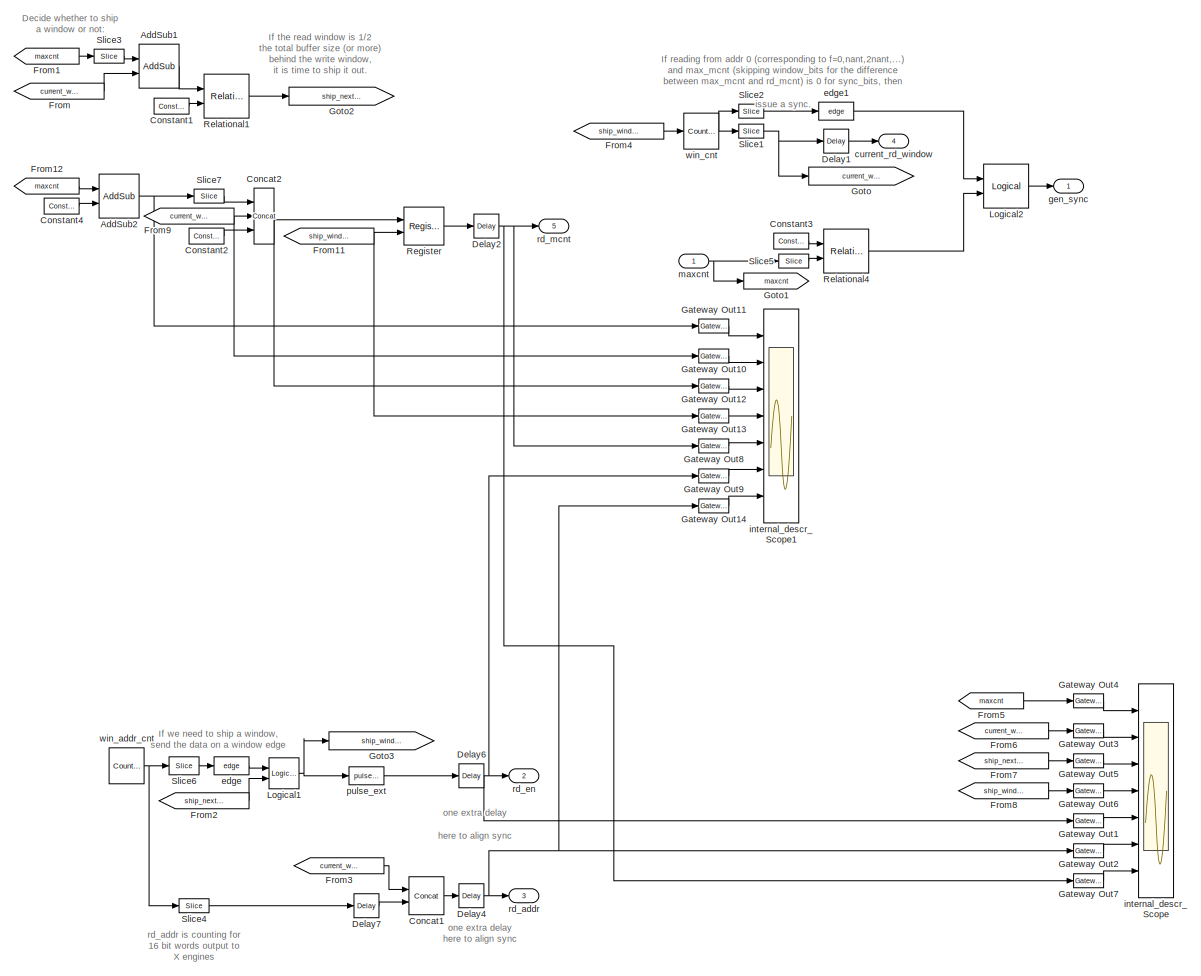
[diagram: pkt_reord0/output_control - part 1/1, most of the canvas]
BLOCK [SubSystem] pkt_reord0/output_control
  FunctionWithSeparateData = off
  MaskHideContents = off
  MinAlgLoopOccurrences = off
  Opaque = off
  Ports = [1, 5]
  PropExecContextOutsideSubsystem = off
  RTWSystemCode = Auto
  RequestExecContextInheritance = off
BLOCK [Reference] pkt_reord0/output_control/AddSub1  REF=xbsIndex_r4/AddSub
  Ports = [2, 1]
  SourceBlock = xbsIndex_r4/AddSub
  SourceType = Xilinx Adder/Subtracter Block
  arith_type = Unsigned
  bin_pt = 0
  block_type = addsub
  block_version = 10.1.3
  dbl_ovrd = off
  en = off
  has_advanced_control = 0
  hw_selection = Fabric
  latency = 2
  mode = Subtraction
  n_bits = window_bits
  overflow = Wrap
  pipelined = off
  precision = User Defined
  quantization = Truncate
  sg_icon_stat = 40,44,2,1,white,blue,0,57a258cf,right,
  sg_mask_display = fprintf('','COMMENT: begin icon graphics');\npatch([0 1 1 0 ],[0 0 1 1 ],[0.77 0.82 0.91]);\npatch([0.25 0.075 0.3 0.075 0.25 0.525 0.6 0.675 0.95 0.725 0.5 0.35 0.6 0.35 0.5 0.725 0.95 0.675 0.6 0.525 0.25 ],[0.136364 0.295455 0.5 0.704545 0.863636 0.863636 0.795455 0.863636 0.863636 0.659091 0.863636 0.727273 0.5 0.272727 0.136364 0.340909 0.136364 0.136364 0.204545 0.136364 0.136364 ],[0.98 0.9...<+394ch>
  sggui_pos = -1,-1,-1,-1
  use_behavioral_HDL = on
  use_carryin = off
  use_carryout = off
  use_rpm = on
  xl_area = [0, 0, 0, 0, 0, 0, 0]
  xl_use_area = off
BLOCK [Reference] pkt_reord0/output_control/AddSub2  REF=xbsIndex_r4/AddSub
  Ports = [2, 1]
  SourceBlock = xbsIndex_r4/AddSub
  SourceType = Xilinx Adder/Subtracter Block
  arith_type = Unsigned
  bin_pt = 0
  block_type = addsub
  block_version = 10.1.3
  dbl_ovrd = off
  en = off
  has_advanced_control = 0
  hw_selection = Fabric
  latency = 2
  mode = Subtraction
  n_bits = 48-xeng_bits
  overflow = Wrap
  pipelined = off
  precision = User Defined
  quantization = Truncate
  sg_icon_stat = 40,44,2,1,white,blue,0,57a258cf,right,
  sg_mask_display = fprintf('','COMMENT: begin icon graphics');\npatch([0 1 1 0 ],[0 0 1 1 ],[0.77 0.82 0.91]);\npatch([0.25 0.075 0.3 0.075 0.25 0.525 0.6 0.675 0.95 0.725 0.5 0.35 0.6 0.35 0.5 0.725 0.95 0.675 0.6 0.525 0.25 ],[0.136364 0.295455 0.5 0.704545 0.863636 0.863636 0.795455 0.863636 0.863636 0.659091 0.863636 0.727273 0.5 0.272727 0.136364 0.340909 0.136364 0.136364 0.204545 0.136364 0.136364 ],[0.98 0.9...<+394ch>
  sggui_pos = 1054,273,348,342
  use_behavioral_HDL = on
  use_carryin = off
  use_carryout = off
  use_rpm = on
  xl_area = [0, 0, 0, 0, 0, 0, 0]
  xl_use_area = off
BLOCK [Reference] pkt_reord0/output_control/Concat1  REF=xbsIndex_r4/Concat
  Ports = [2, 1]
  SourceBlock = xbsIndex_r4/Concat
  SourceType = Xilinx Bus Concatenator Block
  block_type = concat
  block_version = 10.1.3
  dbl_ovrd = off
  has_advanced_control = 0
  infoedit = Concatenates two or more inputs.  Output will be cast to an unsigned value with the binary point at zero.
  num_inputs = 2
  sg_icon_stat = 35,38,2,1,white,blue,0,97b7e8d2,right,
  sg_mask_display = fprintf('','COMMENT: begin icon graphics');\npatch([0 1 1 0 ],[0 0 1 1 ],[0.77 0.82 0.91]);\npatch([0.228571 0.0571429 0.285714 0.0571429 0.228571 0.485714 0.571429 0.657143 0.942857 0.714286 0.514286 0.371429 0.6 0.371429 0.514286 0.714286 0.942857 0.657143 0.571429 0.485714 0.228571 ],[0.131579 0.289474 0.5 0.710526 0.868421 0.868421 0.789474 0.868421 0.868421 0.657895 0.842105 0.710526 0.5 0.28...<+335ch>
  sggui_pos = -1,-1,-1,-1
BLOCK [Reference] pkt_reord0/output_control/Concat2  REF=xbsIndex_r4/Concat
  Ports = [3, 1]
  SourceBlock = xbsIndex_r4/Concat
  SourceType = Xilinx Bus Concatenator Block
  block_type = concat
  block_version = 10.1.3
  dbl_ovrd = off
  has_advanced_control = 0
  infoedit = Concatenates two or more inputs.  Output will be cast to an unsigned value with the binary point at zero.
  num_inputs = 3
  sg_icon_stat = 20,56,3,1,white,blue,0,cc9eafd1,right,
  sg_mask_display = fprintf('','COMMENT: begin icon graphics');\npatch([0 1 1 0 ],[0 0 1 1 ],[0.77 0.82 0.91]);\npatch([0.2 0.05 0.3 0.05 0.2 0.45 0.5 0.55 0.85 0.65 0.45 0.3 0.55 0.3 0.45 0.65 0.85 0.55 0.5 0.45 0.2 ],[0.357143 0.410714 0.5 0.589286 0.642857 0.642857 0.625 0.642857 0.642857 0.571429 0.642857 0.589286 0.5 0.410714 0.357143 0.428571 0.357143 0.357143 0.375 0.357143 0.357143 ],[0.98 0.96 0.92]);\nplot(...<+240ch>
  sggui_pos = 20,20,336,162
BLOCK [Reference] pkt_reord0/output_control/Constant1  REF=xbsIndex_r4/Constant
  Ports = [0, 1]
  SourceBlock = xbsIndex_r4/Constant
  SourceType = Xilinx Constant Block Block
  arith_type = Unsigned
  bin_pt = 0
  block_type = constant
  block_version = 10.1.3
  carry = CIN
  const = 2^(window_bits - 1)
  dbl_ovrd = off
  dsp48_infoedit = The use of this block for DSP48 instructions is deprecated.  Please use the Opmode block.
  equ = P=C
  explicit_period = on
  has_advanced_control = 0
  inp1 = P
  inp2 = PCIN>>17
  n_bits = window_bits
  opr = +
  opselect = C
  period = 1
  sg_icon_stat = 35,16,0,1,white,blue,0,85f36853,right,
  sggui_pos = -1,-1,-1,-1
BLOCK [Reference] pkt_reord0/output_control/Constant2  REF=xbsIndex_r4/Constant
  Ports = [0, 1]
  SourceBlock = xbsIndex_r4/Constant
  SourceType = Xilinx Constant Block Block
  arith_type = Unsigned
  bin_pt = 0
  block_type = constant
  block_version = 10.1.3
  carry = CIN
  const = 0
  dbl_ovrd = off
  dsp48_infoedit = The use of this block for DSP48 instructions is deprecated.  Please use the Opmode block.
  equ = P=C
  explicit_period = on
  has_advanced_control = 0
  inp1 = P
  inp2 = PCIN>>17
  n_bits = xeng_bits
  opr = +
  opselect = C
  period = 1
  sg_icon_stat = 35,16,0,1,white,blue,0,bf4ddd8b,right,
  sggui_pos = 11,34,414,344
BLOCK [Reference] pkt_reord0/output_control/Constant3  REF=xbsIndex_r4/Constant
  Ports = [0, 1]
  SourceBlock = xbsIndex_r4/Constant
  SourceType = Xilinx Constant Block Block
  arith_type = Unsigned
  bin_pt = 0
  block_type = constant
  block_version = 10.1.3
  carry = CIN
  const = 0
  dbl_ovrd = off
  dsp48_infoedit = The use of this block for DSP48 instructions is deprecated.  Please use the Opmode block.
  equ = P=C
  explicit_period = on
  has_advanced_control = 0
  inp1 = P
  inp2 = PCIN>>17
  n_bits = sync_bits - x_int_bits - ant_bits - window_bits
  opr = +
  opselect = C
  period = 1
  sg_icon_stat = 35,16,0,1,white,blue,0,bf4ddd8b,right,
  sggui_pos = -1,-1,-1,-1
BLOCK [Reference] pkt_reord0/output_control/Constant4  REF=xbsIndex_r4/Constant
  Ports = [0, 1]
  SourceBlock = xbsIndex_r4/Constant
  SourceType = Xilinx Constant Block Block
  arith_type = Unsigned
  bin_pt = 0
  block_type = constant
  block_version = 10.1.3
  carry = CIN
  const = 2^(window_bits - 1)
  dbl_ovrd = off
  dsp48_infoedit = The use of this block for DSP48 instructions is deprecated.  Please use the Opmode block.
  equ = P=C
  explicit_period = on
  has_advanced_control = 0
  inp1 = P
  inp2 = PCIN>>17
  n_bits = window_bits
  opr = +
  opselect = C
  period = 1
  sg_icon_stat = 35,16,0,1,white,blue,0,85f36853,right,
  sggui_pos = 20,20,414,344
BLOCK [Reference] pkt_reord0/output_control/Delay1  REF=xbsIndex_r4/Delay
  Ports = [1, 1]
  SourceBlock = xbsIndex_r4/Delay
  SourceType = Xilinx Delay Block
  block_type = delay
  block_version = 10.1.3
  dbl_ovrd = off
  en = off
  has_advanced_control = 0
  infoedit = Hardware notes: A delay line is a chain, each link of which is an SRL16 followed by a flip-flop.
  latency = 1
  reg_retiming = off
  sg_icon_stat = 25,24,1,1,white,blue,0,07b98262,right,
  sggui_pos = -1,-1,-1,-1
  xl_area = [0, 0, 0, 0, 0, 0, 0]
  xl_use_area = off
BLOCK [Reference] pkt_reord0/output_control/Delay2  REF=xbsIndex_r4/Delay
  Ports = [1, 1]
  SourceBlock = xbsIndex_r4/Delay
  SourceType = Xilinx Delay Block
  block_type = delay
  block_version = 10.1.3
  dbl_ovrd = off
  en = off
  has_advanced_control = 0
  infoedit = Hardware notes: A delay line is a chain, each link of which is an SRL16 followed by a flip-flop.
  latency = 1
  reg_retiming = off
  sg_icon_stat = 25,24,1,1,white,blue,0,07b98262,right,
  sggui_pos = -1,-1,-1,-1
  xl_area = [0, 0, 0, 0, 0, 0, 0]
  xl_use_area = off
BLOCK [Reference] pkt_reord0/output_control/Delay4  REF=xbsIndex_r4/Delay
  Ports = [1, 1]
  SourceBlock = xbsIndex_r4/Delay
  SourceType = Xilinx Delay Block
  block_type = delay
  block_version = 10.1.3
  dbl_ovrd = off
  en = off
  has_advanced_control = 0
  infoedit = Hardware notes: A delay line is a chain, each link of which is an SRL16 followed by a flip-flop.
  latency = 1
  reg_retiming = off
  sg_icon_stat = 25,24,1,1,white,blue,0,07b98262,right,
  sggui_pos = -1,-1,-1,-1
  xl_area = [0, 0, 0, 0, 0, 0, 0]
  xl_use_area = off
BLOCK [Reference] pkt_reord0/output_control/Delay6  REF=xbsIndex_r4/Delay
  Ports = [1, 1]
  SourceBlock = xbsIndex_r4/Delay
  SourceType = Xilinx Delay Block
  block_type = delay
  block_version = 10.1.3
  dbl_ovrd = off
  en = off
  has_advanced_control = 0
  infoedit = Hardware notes: A delay line is a chain, each link of which is an SRL16 followed by a flip-flop.
  latency = 1
  reg_retiming = off
  sg_icon_stat = 25,24,1,1,white,blue,0,07b98262,right,
  sggui_pos = -1,-1,-1,-1
  xl_area = [0, 0, 0, 0, 0, 0, 0]
  xl_use_area = off
BLOCK [Reference] pkt_reord0/output_control/Delay7  REF=xbsIndex_r4/Delay
  Ports = [1, 1]
  SourceBlock = xbsIndex_r4/Delay
  SourceType = Xilinx Delay Block
  block_type = delay
  block_version = 10.1.3
  dbl_ovrd = off
  en = off
  has_advanced_control = 0
  infoedit = Hardware notes: A delay line is a chain, each link of which is an SRL16 followed by a flip-flop.
  latency = 1
  reg_retiming = off
  sg_icon_stat = 25,24,1,1,white,blue,0,07b98262,right,
  sggui_pos = -1,-1,-1,-1
  xl_area = [0, 0, 0, 0, 0, 0, 0]
  xl_use_area = off
BLOCK [From] pkt_reord0/output_control/From
  CloseFcn = tagdialog Close
  GotoTag = current_window
BLOCK [From] pkt_reord0/output_control/From1
  CloseFcn = tagdialog Close
  GotoTag = maxcnt
BLOCK [From] pkt_reord0/output_control/From11
  CloseFcn = tagdialog Close
  GotoTag = ship_window_now
BLOCK [From] pkt_reord0/output_control/From12
  CloseFcn = tagdialog Close
  GotoTag = maxcnt
BLOCK [From] pkt_reord0/output_control/From2
  CloseFcn = tagdialog Close
  GotoTag = ship_next_window
BLOCK [From] pkt_reord0/output_control/From3
  CloseFcn = tagdialog Close
  GotoTag = current_window
BLOCK [From] pkt_reord0/output_control/From4
  CloseFcn = tagdialog Close
  GotoTag = ship_window_now
BLOCK [From] pkt_reord0/output_control/From5
  CloseFcn = tagdialog Close
  GotoTag = maxcnt
BLOCK [From] pkt_reord0/output_control/From6
  CloseFcn = tagdialog Close
  GotoTag = current_window
BLOCK [From] pkt_reord0/output_control/From7
  CloseFcn = tagdialog Close
  GotoTag = ship_next_window
BLOCK [From] pkt_reord0/output_control/From8
  CloseFcn = tagdialog Close
  GotoTag = ship_window_now
BLOCK [From] pkt_reord0/output_control/From9
  CloseFcn = tagdialog Close
  GotoTag = current_window
BLOCK [Reference] pkt_reord0/output_control/Gateway Out1  REF=xbsIndex_r4/Gateway Out
  LOCs = {}
  Ports = [1, 1]
  SourceBlock = xbsIndex_r4/Gateway Out
  SourceType = Xilinx Gateway Out Block
  block_type = gatewayout
  block_version = 10.1.3
  has_advanced_control = 0
  hdl_port = off
  locs_specified = off
  sg_icon_stat = 30,14,1,1,white,grey,0,632ec840,right,
  sggui_pos = -1,-1,-1,-1
  timing_constraint = None
  xl_area = [0, 0, 0, 0, 0, 0, 0]
  xl_use_area = off
BLOCK [Reference] pkt_reord0/output_control/Gateway Out10  REF=xbsIndex_r4/Gateway Out
  LOCs = {}
  Ports = [1, 1]
  SourceBlock = xbsIndex_r4/Gateway Out
  SourceType = Xilinx Gateway Out Block
  block_type = gatewayout
  block_version = 10.1.3
  has_advanced_control = 0
  hdl_port = off
  locs_specified = off
  sg_icon_stat = 30,14,1,1,white,grey,0,632ec840,right,
  sggui_pos = -1,-1,-1,-1
  timing_constraint = None
  xl_area = [0, 0, 0, 0, 0, 0, 0]
  xl_use_area = off
BLOCK [Reference] pkt_reord0/output_control/Gateway Out11  REF=xbsIndex_r4/Gateway Out
  LOCs = {}
  Ports = [1, 1]
  SourceBlock = xbsIndex_r4/Gateway Out
  SourceType = Xilinx Gateway Out Block
  block_type = gatewayout
  block_version = 10.1.3
  has_advanced_control = 0
  hdl_port = off
  locs_specified = off
  sg_icon_stat = 30,14,1,1,white,grey,0,632ec840,right,
  sggui_pos = -1,-1,-1,-1
  timing_constraint = None
  xl_area = [0, 0, 0, 0, 0, 0, 0]
  xl_use_area = off
BLOCK [Reference] pkt_reord0/output_control/Gateway Out12  REF=xbsIndex_r4/Gateway Out
  LOCs = {}
  Ports = [1, 1]
  SourceBlock = xbsIndex_r4/Gateway Out
  SourceType = Xilinx Gateway Out Block
  block_type = gatewayout
  block_version = 10.1.3
  has_advanced_control = 0
  hdl_port = off
  locs_specified = off
  sg_icon_stat = 30,14,1,1,white,grey,0,632ec840,right,
  sggui_pos = -1,-1,-1,-1
  timing_constraint = None
  xl_area = [0, 0, 0, 0, 0, 0, 0]
  xl_use_area = off
BLOCK [Reference] pkt_reord0/output_control/Gateway Out13  REF=xbsIndex_r4/Gateway Out
  LOCs = {}
  Ports = [1, 1]
  SourceBlock = xbsIndex_r4/Gateway Out
  SourceType = Xilinx Gateway Out Block
  block_type = gatewayout
  block_version = 10.1.3
  has_advanced_control = 0
  hdl_port = off
  locs_specified = off
  sg_icon_stat = 30,14,1,1,white,grey,0,632ec840,right,
  sggui_pos = -1,-1,-1,-1
  timing_constraint = None
  xl_area = [0, 0, 0, 0, 0, 0, 0]
  xl_use_area = off
BLOCK [Reference] pkt_reord0/output_control/Gateway Out14  REF=xbsIndex_r4/Gateway Out
  LOCs = {}
  Ports = [1, 1]
  SourceBlock = xbsIndex_r4/Gateway Out
  SourceType = Xilinx Gateway Out Block
  block_type = gatewayout
  block_version = 10.1.3
  has_advanced_control = 0
  hdl_port = off
  locs_specified = off
  sg_icon_stat = 30,14,1,1,white,grey,0,632ec840,right,
  sggui_pos = -1,-1,-1,-1
  timing_constraint = None
  xl_area = [0, 0, 0, 0, 0, 0, 0]
  xl_use_area = off
BLOCK [Reference] pkt_reord0/output_control/Gateway Out2  REF=xbsIndex_r4/Gateway Out
  LOCs = {}
  Ports = [1, 1]
  SourceBlock = xbsIndex_r4/Gateway Out
  SourceType = Xilinx Gateway Out Block
  block_type = gatewayout
  block_version = 10.1.3
  has_advanced_control = 0
  hdl_port = off
  locs_specified = off
  sg_icon_stat = 30,14,1,1,white,grey,0,632ec840,right,
  sggui_pos = -1,-1,-1,-1
  timing_constraint = None
  xl_area = [0, 0, 0, 0, 0, 0, 0]
  xl_use_area = off
BLOCK [Reference] pkt_reord0/output_control/Gateway Out3  REF=xbsIndex_r4/Gateway Out
  LOCs = {}
  Ports = [1, 1]
  SourceBlock = xbsIndex_r4/Gateway Out
  SourceType = Xilinx Gateway Out Block
  block_type = gatewayout
  block_version = 10.1.3
  has_advanced_control = 0
  hdl_port = off
  locs_specified = off
  sg_icon_stat = 30,14,1,1,white,grey,0,632ec840,right,
  sggui_pos = -1,-1,-1,-1
  timing_constraint = None
  xl_area = [0, 0, 0, 0, 0, 0, 0]
  xl_use_area = off
BLOCK [Reference] pkt_reord0/output_control/Gateway Out4  REF=xbsIndex_r4/Gateway Out
  LOCs = {}
  Ports = [1, 1]
  SourceBlock = xbsIndex_r4/Gateway Out
  SourceType = Xilinx Gateway Out Block
  block_type = gatewayout
  block_version = 10.1.3
  has_advanced_control = 0
  hdl_port = off
  locs_specified = off
  sg_icon_stat = 30,14,1,1,white,grey,0,632ec840,right,
  sggui_pos = -1,-1,-1,-1
  timing_constraint = None
  xl_area = [0, 0, 0, 0, 0, 0, 0]
  xl_use_area = off
BLOCK [Reference] pkt_reord0/output_control/Gateway Out5  REF=xbsIndex_r4/Gateway Out
  LOCs = {}
  Ports = [1, 1]
  SourceBlock = xbsIndex_r4/Gateway Out
  SourceType = Xilinx Gateway Out Block
  block_type = gatewayout
  block_version = 10.1.3
  has_advanced_control = 0
  hdl_port = off
  locs_specified = off
  sg_icon_stat = 30,14,1,1,white,grey,0,632ec840,right,
  sggui_pos = -1,-1,-1,-1
  timing_constraint = None
  xl_area = [0, 0, 0, 0, 0, 0, 0]
  xl_use_area = off
BLOCK [Reference] pkt_reord0/output_control/Gateway Out6  REF=xbsIndex_r4/Gateway Out
  LOCs = {}
  Ports = [1, 1]
  SourceBlock = xbsIndex_r4/Gateway Out
  SourceType = Xilinx Gateway Out Block
  block_type = gatewayout
  block_version = 10.1.3
  has_advanced_control = 0
  hdl_port = off
  locs_specified = off
  sg_icon_stat = 30,14,1,1,white,grey,0,632ec840,right,
  sggui_pos = -1,-1,-1,-1
  timing_constraint = None
  xl_area = [0, 0, 0, 0, 0, 0, 0]
  xl_use_area = off
BLOCK [Reference] pkt_reord0/output_control/Gateway Out7  REF=xbsIndex_r4/Gateway Out
  LOCs = {}
  Ports = [1, 1]
  SourceBlock = xbsIndex_r4/Gateway Out
  SourceType = Xilinx Gateway Out Block
  block_type = gatewayout
  block_version = 10.1.3
  has_advanced_control = 0
  hdl_port = off
  locs_specified = off
  sg_icon_stat = 30,14,1,1,white,grey,0,632ec840,right,
  sggui_pos = -1,-1,-1,-1
  timing_constraint = None
  xl_area = [0, 0, 0, 0, 0, 0, 0]
  xl_use_area = off
BLOCK [Reference] pkt_reord0/output_control/Gateway Out8  REF=xbsIndex_r4/Gateway Out
  LOCs = {}
  Ports = [1, 1]
  SourceBlock = xbsIndex_r4/Gateway Out
  SourceType = Xilinx Gateway Out Block
  block_type = gatewayout
  block_version = 10.1.3
  has_advanced_control = 0
  hdl_port = off
  locs_specified = off
  sg_icon_stat = 30,14,1,1,white,grey,0,632ec840,right,
  sggui_pos = -1,-1,-1,-1
  timing_constraint = None
  xl_area = [0, 0, 0, 0, 0, 0, 0]
  xl_use_area = off
BLOCK [Reference] pkt_reord0/output_control/Gateway Out9  REF=xbsIndex_r4/Gateway Out
  LOCs = {}
  Ports = [1, 1]
  SourceBlock = xbsIndex_r4/Gateway Out
  SourceType = Xilinx Gateway Out Block
  block_type = gatewayout
  block_version = 10.1.3
  has_advanced_control = 0
  hdl_port = off
  locs_specified = off
  sg_icon_stat = 30,14,1,1,white,grey,0,632ec840,right,
  sggui_pos = -1,-1,-1,-1
  timing_constraint = None
  xl_area = [0, 0, 0, 0, 0, 0, 0]
  xl_use_area = off
BLOCK [Goto] pkt_reord0/output_control/Goto
  GotoTag = current_window
  TagVisibility = local
BLOCK [Goto] pkt_reord0/output_control/Goto1
  GotoTag = maxcnt
  TagVisibility = local
BLOCK [Goto] pkt_reord0/output_control/Goto2
  GotoTag = ship_next_window
  TagVisibility = local
BLOCK [Goto] pkt_reord0/output_control/Goto3
  GotoTag = ship_window_now
  TagVisibility = local
BLOCK [Reference] pkt_reord0/output_control/Logical1  REF=xbsIndex_r4/Logical
  Ports = [2, 1]
  SourceBlock = xbsIndex_r4/Logical
  SourceType = Xilinx Logical Block Block
  align_bp = on
  arith_type = Unsigned
  bin_pt = 2
  block_type = logical
  block_version = 10.1.3
  dbl_ovrd = off
  en = off
  has_advanced_control = 0
  inputs = 2
  latency = 0
  logical_function = AND
  n_bits = 8
  precision = Full
  sg_icon_stat = 30,31,2,1,white,blue,0,0a851f85,right,
  sg_mask_display = fprintf('','COMMENT: begin icon graphics');\npatch([0 1 1 0 ],[0 0 1 1 ],[0.77 0.82 0.91]);\npatch([0.233333 0.0666667 0.3 0.0666667 0.233333 0.5 0.566667 0.633333 0.9 0.666667 0.466667 0.3 0.5 0.3 0.466667 0.666667 0.9 0.633333 0.566667 0.5 0.233333 ],[0.129032 0.290323 0.516129 0.741935 0.903226 0.903226 0.83871 0.903226 0.903226 0.677419 0.870968 0.709677 0.516129 0.322581 0.16129 0.354839 0.12...<+288ch>
  sggui_pos = -1,-1,-1,-1
  xl_area = [0, 0, 0, 0, 0, 0, 0]
  xl_use_area = off
BLOCK [Reference] pkt_reord0/output_control/Logical2  REF=xbsIndex_r4/Logical
  Ports = [2, 1]
  SourceBlock = xbsIndex_r4/Logical
  SourceType = Xilinx Logical Block Block
  align_bp = on
  arith_type = Unsigned
  bin_pt = 2
  block_type = logical
  block_version = 10.1.3
  dbl_ovrd = off
  en = off
  has_advanced_control = 0
  inputs = 2
  latency = 0
  logical_function = AND
  n_bits = 8
  precision = Full
  sg_icon_stat = 45,44,2,1,white,blue,0,0a851f85,right,
  sggui_pos = -1,-1,-1,-1
  xl_area = [0, 0, 0, 0, 0, 0, 0]
  xl_use_area = off
BLOCK [Reference] pkt_reord0/output_control/Register  REF=xbsIndex_r4/Register
  Ports = [2, 1]
  SourceBlock = xbsIndex_r4/Register
  SourceType = Xilinx Register Block
  block_type = register
  block_version = 10.1.3
  dbl_ovrd = off
  en = on
  has_advanced_control = 0
  init = 0
  rst = off
  sg_icon_stat = 40,38,2,1,white,blue,0,01f465d5,right,
  sg_mask_display = fprintf('','COMMENT: begin icon graphics');\npatch([0 1 1 0 ],[0 0 1 1 ],[0.77 0.82 0.91]);\npatch([0.25 0.1 0.325 0.1 0.25 0.5 0.575 0.65 0.925 0.725 0.525 0.375 0.6 0.375 0.525 0.725 0.925 0.65 0.575 0.5 0.25 ],[0.105263 0.263158 0.5 0.736842 0.894737 0.894737 0.815789 0.894737 0.894737 0.684211 0.894737 0.736842 0.5 0.263158 0.105263 0.315789 0.105263 0.105263 0.184211 0.105263 0.105263 ],[0.98...<+356ch>
  sggui_pos = 20,20,348,192
  xl_area = [0,0,0,0,0,0,0]
  xl_use_area = off
BLOCK [Reference] pkt_reord0/output_control/Relational1  REF=xbsIndex_r4/Relational
  Ports = [2, 1]
  SourceBlock = xbsIndex_r4/Relational
  SourceType = Xilinx Arithmetic Relational Operator Block
  block_type = relational
  block_version = 10.1.3
  dbl_ovrd = off
  en = off
  has_advanced_control = 0
  latency = 1
  mode = a>=b
  sg_icon_stat = 45,44,2,1,white,blue,0,e163381b,right,
  sggui_pos = -1,-1,-1,-1
  xl_area = [0, 0, 0, 0, 0, 0, 0]
  xl_use_area = off
BLOCK [Reference] pkt_reord0/output_control/Relational4  REF=xbsIndex_r4/Relational
  Ports = [2, 1]
  SourceBlock = xbsIndex_r4/Relational
  SourceType = Xilinx Arithmetic Relational Operator Block
  block_type = relational
  block_version = 10.1.3
  dbl_ovrd = off
  en = off
  has_advanced_control = 0
  latency = 1
  mode = a=b
  sg_icon_stat = 45,44,2,1,white,blue,0,2d4703fd,right,
  sggui_pos = -1,-1,-1,-1
  xl_area = [0, 0, 0, 0, 0, 0, 0]
  xl_use_area = off
BLOCK [Reference] pkt_reord0/output_control/Slice1  REF=xbsIndex_r4/Slice
  Ports = [1, 1]
  SourceBlock = xbsIndex_r4/Slice
  SourceType = Xilinx Bit Slice Extractor Block
  base0 = LSB of Input
  base1 = MSB of Input
  bit0 = 0
  bit1 = 0
  block_type = slice
  block_version = 10.1.3
  boolean_output = off
  dbl_ovrd = off
  has_advanced_control = 0
  mode = Lower Bit Location + Width
  nbits = window_bits
  sg_icon_stat = 25,14,1,1,white,blue,0,1fd851a7,right,
  sg_mask_display = fprintf('','COMMENT: begin icon graphics');\npatch([0 1 1 0 ],[0 0 1 1 ],[0.77 0.82 0.91]);\npatch([0.32 0.24 0.36 0.24 0.32 0.48 0.52 0.56 0.72 0.6 0.48 0.4 0.52 0.4 0.48 0.6 0.72 0.56 0.52 0.48 0.32 ],[0.142857 0.285714 0.5 0.714286 0.857143 0.857143 0.785714 0.857143 0.857143 0.642857 0.857143 0.714286 0.5 0.285714 0.142857 0.357143 0.142857 0.142857 0.214286 0.142857 0.142857 ],[0.98 0.96 0.92...<+210ch>
  sggui_pos = 20,20,460,380
BLOCK [Reference] pkt_reord0/output_control/Slice2  REF=xbsIndex_r4/Slice
  Ports = [1, 1]
  SourceBlock = xbsIndex_r4/Slice
  SourceType = Xilinx Bit Slice Extractor Block
  base0 = LSB of Input
  base1 = MSB of Input
  bit0 = 0
  bit1 = 0
  block_type = slice
  block_version = 10.1.3
  boolean_output = on
  dbl_ovrd = off
  has_advanced_control = 0
  mode = Upper Bit Location + Width
  nbits = 1
  sg_icon_stat = 25,14,1,1,white,blue,0,1fd851a7,right,
  sg_mask_display = fprintf('','COMMENT: begin icon graphics');\npatch([0 1 1 0 ],[0 0 1 1 ],[0.77 0.82 0.91]);\npatch([0.32 0.24 0.36 0.24 0.32 0.48 0.52 0.56 0.72 0.6 0.48 0.4 0.52 0.4 0.48 0.6 0.72 0.56 0.52 0.48 0.32 ],[0.142857 0.285714 0.5 0.714286 0.857143 0.857143 0.785714 0.857143 0.857143 0.642857 0.857143 0.714286 0.5 0.285714 0.142857 0.357143 0.142857 0.142857 0.214286 0.142857 0.142857 ],[0.98 0.96 0.92...<+210ch>
  sggui_pos = -1,-1,-1,-1
BLOCK [Reference] pkt_reord0/output_control/Slice3  REF=xbsIndex_r4/Slice
  Ports = [1, 1]
  SourceBlock = xbsIndex_r4/Slice
  SourceType = Xilinx Bit Slice Extractor Block
  base0 = LSB of Input
  base1 = MSB of Input
  bit0 = 0
  bit1 = 0
  block_type = slice
  block_version = 10.1.3
  boolean_output = off
  dbl_ovrd = off
  has_advanced_control = 0
  mode = Lower Bit Location + Width
  nbits = window_bits
  sg_icon_stat = 30,14,1,1,white,blue,0,1fd851a7,right,
  sggui_pos = 20,20,460,380
BLOCK [Reference] pkt_reord0/output_control/Slice4  REF=xbsIndex_r4/Slice
  Ports = [1, 1]
  SourceBlock = xbsIndex_r4/Slice
  SourceType = Xilinx Bit Slice Extractor Block
  base0 = LSB of Input
  base1 = MSB of Input
  bit0 = 0
  bit1 = 0
  block_type = slice
  block_version = 10.1.3
  boolean_output = off
  dbl_ovrd = off
  has_advanced_control = 0
  mode = Lower Bit Location + Width
  nbits = x_int_bits + ant_bits
  sg_icon_stat = 30,14,1,1,white,blue,0,1fd851a7,right,
  sggui_pos = 20,20,460,380
BLOCK [Reference] pkt_reord0/output_control/Slice5  REF=xbsIndex_r4/Slice
  Ports = [1, 1]
  SourceBlock = xbsIndex_r4/Slice
  SourceType = Xilinx Bit Slice Extractor Block
  base0 = LSB of Input
  base1 = LSB of Input
  bit0 = window_bits
  bit1 = sync_bits - x_int_bits - ant_bits - 1
  block_type = slice
  block_version = 10.1.3
  boolean_output = off
  dbl_ovrd = off
  has_advanced_control = 0
  mode = Two Bit Locations
  nbits = window_bits
  sg_icon_stat = 30,14,1,1,white,blue,0,1fd851a7,right,
  sggui_pos = -1,-1,-1,-1
BLOCK [Reference] pkt_reord0/output_control/Slice6  REF=xbsIndex_r4/Slice
  Ports = [1, 1]
  SourceBlock = xbsIndex_r4/Slice
  SourceType = Xilinx Bit Slice Extractor Block
  base0 = LSB of Input
  base1 = MSB of Input
  bit0 = 0
  bit1 = 0
  block_type = slice
  block_version = 10.1.3
  boolean_output = on
  dbl_ovrd = off
  has_advanced_control = 0
  mode = Upper Bit Location + Width
  nbits = 1
  sg_icon_stat = 30,18,1,1,white,blue,0,1fd851a7,right,
  sg_mask_display = fprintf('','COMMENT: begin icon graphics');\npatch([0 1 1 0 ],[0 0 1 1 ],[0.77 0.82 0.91]);\npatch([0.333333 0.233333 0.366667 0.233333 0.333333 0.5 0.533333 0.566667 0.733333 0.6 0.466667 0.366667 0.5 0.366667 0.466667 0.6 0.733333 0.566667 0.533333 0.5 0.333333 ],[0.111111 0.277778 0.5 0.722222 0.888889 0.888889 0.833333 0.888889 0.888889 0.666667 0.888889 0.722222 0.5 0.277778 0.111111 0.333333...<+273ch>
  sggui_pos = -1,-1,-1,-1
BLOCK [Reference] pkt_reord0/output_control/Slice7  REF=xbsIndex_r4/Slice
  Ports = [1, 1]
  SourceBlock = xbsIndex_r4/Slice
  SourceType = Xilinx Bit Slice Extractor Block
  base0 = LSB of Input
  base1 = MSB of Input
  bit0 = window_bits
  bit1 = 0
  block_type = slice
  block_version = 10.1.3
  boolean_output = off
  dbl_ovrd = off
  has_advanced_control = 0
  mode = Two Bit Locations
  nbits = 1
  sg_icon_stat = 30,14,1,1,white,blue,0,1fd851a7,right,
  sggui_pos = 20,20,460,380
BLOCK [Outport] pkt_reord0/output_control/current_rd_window
  IconDisplay = Port number
  OutDataType = sfix(16)
  OutScaling = 2^0
  Port = 4
BLOCK [Reference] pkt_reord0/output_control/edge  REF=casper_library/Misc/edge  (lib defined in mdl_138b2fc3435f, mdl_4ed325b712b3, +2 more)
  FunctionWithSeparateData = off
  Ports = [1, 1]
  RTWMemSecDataConstants = Inherit from model
  RTWMemSecDataInternal = Inherit from model
  RTWMemSecDataParameters = Inherit from model
  RTWMemSecFuncExecute = Inherit from model
  RTWMemSecFuncInitTerm = Inherit from model
  ShowPortLabels = FromPortIcon
  SourceBlock = casper_library/Misc/edge
  SourceType = edge
  SystemSampleTime = -1
BLOCK [Reference] pkt_reord0/output_control/edge1  REF=casper_library/Misc/edge  (lib defined in mdl_138b2fc3435f, mdl_4ed325b712b3, +2 more)
  FunctionWithSeparateData = off
  Ports = [1, 1]
  RTWMemSecDataConstants = Inherit from model
  RTWMemSecDataInternal = Inherit from model
  RTWMemSecDataParameters = Inherit from model
  RTWMemSecFuncExecute = Inherit from model
  RTWMemSecFuncInitTerm = Inherit from model
  ShowPortLabels = FromPortIcon
  SourceBlock = casper_library/Misc/edge
  SourceType = edge
  SystemSampleTime = -1
BLOCK [Outport] pkt_reord0/output_control/gen_sync
  IconDisplay = Port number
  OutDataType = sfix(16)
  OutScaling = 2^0
BLOCK [Scope] pkt_reord0/output_control/internal_descr_Scope
  DataFormat = StructureWithTime
  Floating = off
  LimitDataPoints = off
  NumInputPorts = 7
  Ports = [7]
  SampleTime = 0
  SaveName = ScopeData2
  TimeRange = 1
  YMax = 1~1~1.05~5~5~5~5
  YMin = -1~-1~0.95~-5~-5~-5~-5
  ZoomMode = yonly
BLOCK [Scope] pkt_reord0/output_control/internal_descr_Scope1
  DataFormat = StructureWithTime
  Floating = off
  LimitDataPoints = off
  NumInputPorts = 7
  Ports = [7]
  SampleTime = 0
  SaveName = ScopeData4
  TimeRange = 1
  YMax = 1~1~1.05~5~5~5~5
  YMin = -1~-1~0.95~-5~-5~-5~-5
  ZoomMode = yonly
BLOCK [Inport] pkt_reord0/output_control/maxcnt
  IconDisplay = Port number
  OutDataType = sfix(16)
  OutScaling = 2^0
BLOCK [Reference] pkt_reord0/output_control/pulse_ext  REF=casper_library/Misc/pulse_ext  (lib defined in mdl_138b2fc3435f, mdl_4ed325b712b3, +2 more)
  FunctionWithSeparateData = off
  Ports = [1, 1]
  RTWMemSecDataConstants = Inherit from model
  RTWMemSecDataInternal = Inherit from model
  RTWMemSecDataParameters = Inherit from model
  RTWMemSecFuncExecute = Inherit from model
  RTWMemSecFuncInitTerm = Inherit from model
  ShowPortLabels = FromPortIcon
  SourceBlock = casper_library/Misc/pulse_ext
  SourceType = pulse_ext
  SystemSampleTime = -1
  pulse_len = 2^(x_int_bits + ant_bits)
BLOCK [Outport] pkt_reord0/output_control/rd_addr
  IconDisplay = Port number
  OutDataType = sfix(16)
  OutScaling = 2^0
  Port = 3
BLOCK [Outport] pkt_reord0/output_control/rd_en
  IconDisplay = Port number
  OutDataType = sfix(16)
  OutScaling = 2^0
  Port = 2
BLOCK [Outport] pkt_reord0/output_control/rd_mcnt
  IconDisplay = Port number
  OutDataType = sfix(16)
  OutScaling = 2^0
  Port = 5
BLOCK [Reference] pkt_reord0/output_control/win_addr_cnt  REF=xbsIndex_r4/Counter
  Ports = [0, 1]
  SourceBlock = xbsIndex_r4/Counter
  SourceType = Xilinx Counter Block
  arith_type = Unsigned
  bin_pt = 0
  block_type = counter
  block_version = 10.1.3
  cnt_by_val = 1
  cnt_to = Inf
  cnt_type = Free Running
  dbl_ovrd = off
  en = off
  explicit_period = off
  has_advanced_control = 0
  implementation = Fabric
  infoedit = Hardware notes: Free running counters are the least expensive in hardware.  A count limited counter is implemented by combining a counter with a comparator.
  load_pin = off
  n_bits = x_int_bits + ant_bits + 1
  operation = Up
  period = 1
  rst = off
  sg_icon_stat = 35,36,0,1,white,blue,0,335d209d,right,
  sg_mask_display = fprintf('','COMMENT: begin icon graphics');\npatch([0 1 1 0 ],[0 0 1 1 ],[0.77 0.82 0.91]);\npatch([0.228571 0.0571429 0.285714 0.0571429 0.228571 0.485714 0.571429 0.657143 0.942857 0.714286 0.514286 0.371429 0.6 0.371429 0.514286 0.714286 0.942857 0.657143 0.571429 0.485714 0.228571 ],[0.111111 0.277778 0.5 0.722222 0.888889 0.888889 0.805556 0.888889 0.888889 0.666667 0.861111 0.722222 0.5 0.27...<+293ch>
  sggui_pos = -1,-1,-1,-1
  start_count = 0
  use_behavioral_HDL = off
  use_rpm = on
  xl_area = [0, 0, 0, 0, 0, 0, 0]
  xl_use_area = off
BLOCK [Reference] pkt_reord0/output_control/win_cnt  REF=xbsIndex_r4/Counter
  Ports = [1, 1]
  SourceBlock = xbsIndex_r4/Counter
  SourceType = Xilinx Counter Block
  arith_type = Unsigned
  bin_pt = 0
  block_type = counter
  block_version = 10.1.3
  cnt_by_val = 1
  cnt_to = Inf
  cnt_type = Free Running
  dbl_ovrd = off
  en = on
  explicit_period = off
  has_advanced_control = 0
  implementation = Fabric
  infoedit = Hardware notes: Free running counters are the least expensive in hardware.  A count limited counter is implemented by combining a counter with a comparator.
  load_pin = off
  n_bits = window_bits + 1
  operation = Up
  period = 1
  rst = off
  sg_icon_stat = 35,36,1,1,white,blue,0,ed54cb7a,right,
  sg_mask_display = fprintf('','COMMENT: begin icon graphics');\npatch([0 1 1 0 ],[0 0 1 1 ],[0.77 0.82 0.91]);\npatch([0.228571 0.0571429 0.285714 0.0571429 0.228571 0.485714 0.571429 0.657143 0.942857 0.714286 0.514286 0.371429 0.6 0.371429 0.514286 0.714286 0.942857 0.657143 0.571429 0.485714 0.228571 ],[0.111111 0.277778 0.5 0.722222 0.888889 0.888889 0.805556 0.888889 0.888889 0.666667 0.861111 0.722222 0.5 0.27...<+337ch>
  sggui_pos = -1,-1,-1,-1
  start_count = 0
  use_behavioral_HDL = off
  use_rpm = on
  xl_area = [0, 0, 0, 0, 0, 0, 0]
  xl_use_area = off
BLOCK [Outport] pkt_reord0/rcvd
  IconDisplay = Port number
  OutDataType = sfix(16)
  OutScaling = 2^0
  Port = 5
BLOCK [Outport] pkt_reord0/sync_out
  IconDisplay = Port number
  OutDataType = sfix(16)
  OutScaling = 2^0
BLOCK [Inport] pkt_reord0/valid_in
  IconDisplay = Port number
  OutDataType = sfix(16)
  OutScaling = 2^0
  Port = 2
BLOCK [Outport] pkt_reord0/valid_out
  IconDisplay = Port number
  OutDataType = sfix(16)
  OutScaling = 2^0
  Port = 3
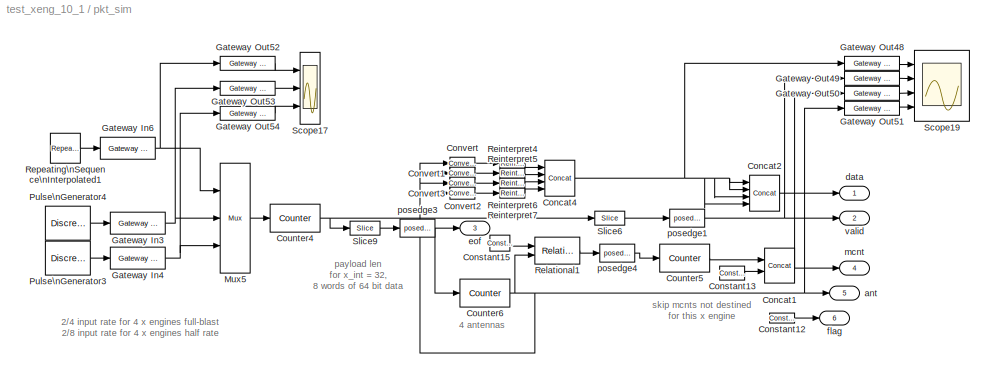
BLOCK [SubSystem] pkt_sim
  FunctionWithSeparateData = off
  MaskCallbackString = ||
  MaskEnableString = on,on,on
  MaskHideContents = off
  MaskIconFrame = on
  MaskIconOpaque = on
  MaskIconRotate = none
  MaskIconUnits = autoscale
  MaskInitialization = ants_bits = ceil(log2(n_ants));\nxeng_bits = ceil(log2(n_xeng));\nxeng_int_len_bits = ceil(log2(xeng_int_len));
  MaskPromptString = number of antennas in system|number of x engines in system|xeng integration length
  MaskStyleString = edit,edit,edit
  MaskTabNameString = ,,
  MaskToolTipString = on,on,on
  MaskTunableValueString = on,on,on
  MaskValueString = 8|8|128
  MaskVarAliasString = ,,
  MaskVariables = n_ants=@1;n_xeng=@2;xeng_int_len=@3;
  MaskVisibilityString = on,on,on
  MinAlgLoopOccurrences = off
  Opaque = off
  Ports = [0, 6]
  PropExecContextOutsideSubsystem = off
  RTWSystemCode = Auto
  RequestExecContextInheritance = off
BLOCK [Reference] pkt_sim/Concat1  REF=xbsIndex_r4/Concat
  Ports = [2, 1]
  SourceBlock = xbsIndex_r4/Concat
  SourceType = Xilinx Bus Concatenator Block
  block_type = concat
  block_version = 10.1.3
  dbl_ovrd = off
  has_advanced_control = 0
  infoedit = Concatenates two or more inputs.  Output will be cast to an unsigned value with the binary point at zero.
  num_inputs = 2
  sg_icon_stat = 30,35,2,1,white,blue,0,97b7e8d2,right,
  sg_mask_display = fprintf('','COMMENT: begin icon graphics');\npatch([0 1 1 0 ],[0 0 1 1 ],[0.77 0.82 0.91]);\npatch([0.233333 0.0666667 0.3 0.0666667 0.233333 0.5 0.566667 0.633333 0.9 0.666667 0.466667 0.3 0.5 0.3 0.466667 0.666667 0.9 0.633333 0.566667 0.5 0.233333 ],[0.171429 0.314286 0.514286 0.714286 0.857143 0.857143 0.8 0.857143 0.857143 0.657143 0.828571 0.685714 0.514286 0.342857 0.2 0.371429 0.171429 0.1...<+300ch>
  sggui_pos = -1,-1,-1,-1
BLOCK [Reference] pkt_sim/Concat2  REF=xbsIndex_r4/Concat
  Ports = [4, 1]
  SourceBlock = xbsIndex_r4/Concat
  SourceType = Xilinx Bus Concatenator Block
  block_type = concat
  block_version = 10.1.3
  dbl_ovrd = off
  has_advanced_control = 0
  infoedit = Concatenates two or more inputs.  Output will be cast to an unsigned value with the binary point at zero.
  num_inputs = 4
  sg_icon_stat = 30,36,4,1,white,blue,0,47b26f1b,right,
  sg_mask_display = fprintf('','COMMENT: begin icon graphics');\npatch([0 1 1 0 ],[0 0 1 1 ],[0.77 0.82 0.91]);\npatch([0.233333 0.0666667 0.3 0.0666667 0.233333 0.5 0.566667 0.633333 0.9 0.666667 0.466667 0.3 0.5 0.3 0.466667 0.666667 0.9 0.633333 0.566667 0.5 0.233333 ],[0.166667 0.305556 0.5 0.694444 0.833333 0.833333 0.777778 0.833333 0.833333 0.638889 0.805556 0.666667 0.5 0.333333 0.194444 0.361111 0.166667 0.1...<+300ch>
  sggui_pos = -1,-1,-1,-1
BLOCK [Reference] pkt_sim/Concat4  REF=xbsIndex_r4/Concat
  Ports = [4, 1]
  SourceBlock = xbsIndex_r4/Concat
  SourceType = Xilinx Bus Concatenator Block
  block_type = concat
  block_version = 10.1.3
  dbl_ovrd = off
  has_advanced_control = 0
  infoedit = Concatenates two or more inputs.  Output will be cast to an unsigned value with the binary point at zero.
  num_inputs = 4
  sg_icon_stat = 30,36,4,1,white,blue,0,47b26f1b,right,
  sg_mask_display = fprintf('','COMMENT: begin icon graphics');\npatch([0 1 1 0 ],[0 0 1 1 ],[0.77 0.82 0.91]);\npatch([0.233333 0.0666667 0.3 0.0666667 0.233333 0.5 0.566667 0.633333 0.9 0.666667 0.466667 0.3 0.5 0.3 0.466667 0.666667 0.9 0.633333 0.566667 0.5 0.233333 ],[0.166667 0.305556 0.5 0.694444 0.833333 0.833333 0.777778 0.833333 0.833333 0.638889 0.805556 0.666667 0.5 0.333333 0.194444 0.361111 0.166667 0.1...<+300ch>
  sggui_pos = -1,-1,-1,-1
BLOCK [Reference] pkt_sim/Constant12  REF=xbsIndex_r4/Constant
  Ports = [0, 1]
  SourceBlock = xbsIndex_r4/Constant
  SourceType = Xilinx Constant Block Block
  arith_type = Unsigned
  bin_pt = 0
  block_type = constant
  block_version = 10.1.3
  carry = CIN
  const = 0
  dbl_ovrd = off
  dsp48_infoedit = The use of this block for DSP48 instructions is deprecated.  Please use the Opmode block.
  equ = P=C
  explicit_period = on
  has_advanced_control = 0
  inp1 = P
  inp2 = PCIN>>17
  n_bits = 1
  opr = +
  opselect = C
  period = 1
  sg_icon_stat = 25,10,0,1,white,blue,0,bf4ddd8b,right,
  sg_mask_display = fprintf('','COMMENT: begin icon graphics');\npatch([0 1 1 0 ],[0 0 1 1 ],[0.77 0.82 0.91]);\npatch([0.4 0.32 0.4 0.32 0.4 0.52 0.56 0.6 0.72 0.64 0.56 0.48 0.56 0.48 0.56 0.64 0.72 0.6 0.56 0.52 0.4 ],[0.1 0.3 0.5 0.7 0.9 0.9 0.8 0.9 0.9 0.7 0.9 0.7 0.5 0.3 0.1 0.3 0.1 0.1 0.2 0.1 0.1 ],[0.98 0.96 0.92]);\nplot([0 1 1 0 0 ],[0 0 1 1 0 ]);\nfprintf('','COMMENT: end icon graphics');\nfprintf('','COM...<+109ch>
  sggui_pos = -1,-1,-1,-1
BLOCK [Reference] pkt_sim/Constant13  REF=xbsIndex_r4/Constant
  Ports = [0, 1]
  SourceBlock = xbsIndex_r4/Constant
  SourceType = Xilinx Constant Block Block
  arith_type = Unsigned
  bin_pt = 0
  block_type = constant
  block_version = 10.1.3
  carry = CIN
  const = 0
  dbl_ovrd = off
  dsp48_infoedit = The use of this block for DSP48 instructions is deprecated.  Please use the Opmode block.
  equ = P=C
  explicit_period = on
  has_advanced_control = 0
  inp1 = P
  inp2 = PCIN>>17
  n_bits = ants_bits
  opr = +
  opselect = C
  period = 1
  sg_icon_stat = 25,14,0,1,white,blue,0,bf4ddd8b,right,
  sg_mask_display = fprintf('','COMMENT: begin icon graphics');\npatch([0 1 1 0 ],[0 0 1 1 ],[0.77 0.82 0.91]);\npatch([0.32 0.24 0.36 0.24 0.32 0.48 0.52 0.56 0.72 0.6 0.48 0.4 0.52 0.4 0.48 0.6 0.72 0.56 0.52 0.48 0.32 ],[0.142857 0.285714 0.5 0.714286 0.857143 0.857143 0.785714 0.857143 0.857143 0.642857 0.857143 0.714286 0.5 0.285714 0.142857 0.357143 0.142857 0.142857 0.214286 0.142857 0.142857 ],[0.98 0.96 0.92...<+206ch>
  sggui_pos = 20,20,414,344
BLOCK [Reference] pkt_sim/Constant15  REF=xbsIndex_r4/Constant
  Ports = [0, 1]
  SourceBlock = xbsIndex_r4/Constant
  SourceType = Xilinx Constant Block Block
  arith_type = Unsigned
  bin_pt = 0
  block_type = constant
  block_version = 10.1.3
  carry = CIN
  const = 0
  dbl_ovrd = off
  dsp48_infoedit = The use of this block for DSP48 instructions is deprecated.  Please use the Opmode block.
  equ = P=C
  explicit_period = on
  has_advanced_control = 0
  inp1 = P
  inp2 = PCIN>>17
  n_bits = ants_bits
  opr = +
  opselect = C
  period = 1
  sg_icon_stat = 20,16,0,1,white,blue,0,bf4ddd8b,right,
  sg_mask_display = fprintf('','COMMENT: begin icon graphics');\npatch([0 1 1 0 ],[0 0 1 1 ],[0.77 0.82 0.91]);\npatch([0.3 0.15 0.35 0.15 0.3 0.5 0.55 0.6 0.85 0.65 0.5 0.4 0.6 0.4 0.5 0.65 0.85 0.6 0.55 0.5 0.3 ],[0.125 0.3125 0.5625 0.8125 1 1 0.9375 1 1 0.75 0.9375 0.8125 0.5625 0.3125 0.1875 0.375 0.125 0.125 0.1875 0.125 0.125 ],[0.98 0.96 0.92]);\nplot([0 1 1 0 0 ],[0 0 1 1 0 ]);\nfprintf('','COMMENT: end icon...<+138ch>
  sggui_pos = 20,20,414,344
BLOCK [Reference] pkt_sim/Convert  REF=xbsIndex_r4/Convert
  Ports = [1, 1]
  SourceBlock = xbsIndex_r4/Convert
  SourceType = Xilinx Type Converter Block
  arith_type = Signed  (2's comp)
  bin_pt = 0
  block_type = convert
  block_version = 10.1.3
  dbl_ovrd = off
  has_advanced_control = 0
  infoedit = Hardware notes: rounding and saturating require hardware resources; truncating and wrapping do not.
  latency = 0
  n_bits = 4
  overflow = Saturate
  pipeline = off
  quantization = Truncate
  sg_icon_stat = 25,12,1,1,white,blue,0,edca21da,right,
  sggui_pos = 1052,615,470,336
  xl_area = [0,0,0,0,0,0,0]
  xl_use_area = off
BLOCK [Reference] pkt_sim/Convert1  REF=xbsIndex_r4/Convert
  Ports = [1, 1]
  SourceBlock = xbsIndex_r4/Convert
  SourceType = Xilinx Type Converter Block
  arith_type = Signed  (2's comp)
  bin_pt = 0
  block_type = convert
  block_version = 10.1.3
  dbl_ovrd = off
  has_advanced_control = 0
  infoedit = Hardware notes: rounding and saturating require hardware resources; truncating and wrapping do not.
  latency = 0
  n_bits = 4
  overflow = Saturate
  pipeline = off
  quantization = Truncate
  sg_icon_stat = 25,12,1,1,white,blue,0,edca21da,right,
  sggui_pos = 1052,615,470,336
  xl_area = [0,0,0,0,0,0,0]
  xl_use_area = off
BLOCK [Reference] pkt_sim/Convert2  REF=xbsIndex_r4/Convert
  Ports = [1, 1]
  SourceBlock = xbsIndex_r4/Convert
  SourceType = Xilinx Type Converter Block
  arith_type = Signed  (2's comp)
  bin_pt = 0
  block_type = convert
  block_version = 10.1.3
  dbl_ovrd = off
  has_advanced_control = 0
  infoedit = Hardware notes: rounding and saturating require hardware resources; truncating and wrapping do not.
  latency = 0
  n_bits = 4
  overflow = Saturate
  pipeline = off
  quantization = Truncate
  sg_icon_stat = 25,12,1,1,white,blue,0,edca21da,right,
  sggui_pos = 1052,615,470,336
  xl_area = [0,0,0,0,0,0,0]
  xl_use_area = off
BLOCK [Reference] pkt_sim/Convert3  REF=xbsIndex_r4/Convert
  Ports = [1, 1]
  SourceBlock = xbsIndex_r4/Convert
  SourceType = Xilinx Type Converter Block
  arith_type = Signed  (2's comp)
  bin_pt = 0
  block_type = convert
  block_version = 10.1.3
  dbl_ovrd = off
  has_advanced_control = 0
  infoedit = Hardware notes: rounding and saturating require hardware resources; truncating and wrapping do not.
  latency = 0
  n_bits = 4
  overflow = Saturate
  pipeline = off
  quantization = Truncate
  sg_icon_stat = 25,12,1,1,white,blue,0,edca21da,right,
  sggui_pos = 1052,615,470,336
  xl_area = [0,0,0,0,0,0,0]
  xl_use_area = off
BLOCK [Reference] pkt_sim/Counter4  REF=xbsIndex_r4/Counter
  Ports = [1, 1]
  SourceBlock = xbsIndex_r4/Counter
  SourceType = Xilinx Counter Block
  arith_type = Unsigned
  bin_pt = 0
  block_type = counter
  block_version = 10.1.3
  cnt_by_val = 1
  cnt_to = 32
  cnt_type = Free Running
  dbl_ovrd = off
  en = on
  explicit_period = off
  has_advanced_control = 0
  implementation = Fabric
  infoedit = Hardware notes: Free running counters are the least expensive in hardware.  A count limited counter is implemented by combining a counter with a comparator.
  load_pin = off
  n_bits = 32
  operation = Up
  period = 1
  rst = off
  sg_icon_stat = 50,28,1,1,white,blue,0,ed54cb7a,right,
  sg_mask_display = fprintf('','COMMENT: begin icon graphics');\npatch([0 1 1 0 ],[0 0 1 1 ],[0.77 0.82 0.91]);\npatch([0.36 0.26 0.4 0.26 0.36 0.5 0.54 0.58 0.74 0.62 0.5 0.42 0.58 0.42 0.5 0.62 0.74 0.58 0.54 0.5 0.36 ],[0.107143 0.285714 0.535714 0.785714 0.964286 0.964286 0.892857 0.964286 0.964286 0.75 0.964286 0.821429 0.535714 0.25 0.107143 0.321429 0.107143 0.107143 0.178571 0.107143 0.107143 ],[0.98 0.96 0.9...<+253ch>  <repeated x3 — deduplicated; at blocks: Counter4, Counter5, Counter6>
  sggui_pos = 20,20,348,618
  start_count = 0
  use_behavioral_HDL = off
  use_rpm = on
  xl_area = [0, 0, 0, 0, 0, 0, 0]
  xl_use_area = off
BLOCK [Reference] pkt_sim/Counter5  REF=xbsIndex_r4/Counter
  Ports = [1, 1]
  SourceBlock = xbsIndex_r4/Counter
  SourceType = Xilinx Counter Block
  arith_type = Unsigned
  bin_pt = 0
  block_type = counter
  block_version = 10.1.3
  cnt_by_val = 1
  cnt_to = Inf
  cnt_type = Free Running
  dbl_ovrd = off
  en = on
  explicit_period = off
  has_advanced_control = 0
  implementation = Fabric
  infoedit = Hardware notes: Free running counters are the least expensive in hardware.  A count limited counter is implemented by combining a counter with a comparator.
  load_pin = off
  n_bits = 48-ants_bits
  operation = Up
  period = 1
  rst = off
  sg_icon_stat = 50,28,1,1,white,blue,0,ed54cb7a,right,
  sggui_pos = 20,20,348,618
  start_count = 0
  use_behavioral_HDL = off
  use_rpm = on
  xl_area = [0, 0, 0, 0, 0, 0, 0]
  xl_use_area = off
BLOCK [Reference] pkt_sim/Counter6  REF=xbsIndex_r4/Counter
  Ports = [1, 1]
  SourceBlock = xbsIndex_r4/Counter
  SourceType = Xilinx Counter Block
  arith_type = Unsigned
  bin_pt = 0
  block_type = counter
  block_version = 10.1.3
  cnt_by_val = 1
  cnt_to = Inf
  cnt_type = Free Running
  dbl_ovrd = off
  en = on
  explicit_period = off
  has_advanced_control = 0
  implementation = Fabric
  infoedit = Hardware notes: Free running counters are the least expensive in hardware.  A count limited counter is implemented by combining a counter with a comparator.
  load_pin = off
  n_bits = ants_bits
  operation = Up
  period = 1
  rst = off
  sg_icon_stat = 50,28,1,1,white,blue,0,ed54cb7a,right,
  sggui_pos = 20,20,348,618
  start_count = 0
  use_behavioral_HDL = off
  use_rpm = on
  xl_area = [0, 0, 0, 0, 0, 0, 0]
  xl_use_area = off
BLOCK [Reference] pkt_sim/Gateway In3  REF=xbsIndex_r4/Gateway In
  LOCs = {}
  Ports = [1, 1]
  SourceBlock = xbsIndex_r4/Gateway In
  SourceType = Xilinx Gateway In Block
  arith_type = Boolean
  bin_pt = 6
  block_type = gatewayin
  block_version = 10.1.3
  dbl_ovrd = off
  has_advanced_control = 0
  hdl_port = on
  infoedit = Gateway in block.  Converts inputs of type Simulink integer, double and fixed point to  Xilinx fixed point type.<P><P>Hardware notes:  In hardware these blocks become top level input ports.  <repeated x3 — deduplicated; at blocks: Gateway In3, Gateway In4, Gateway In6>
  locs_specified = off
  n_bits = 8
  overflow = Wrap
  period = 1
  quantization = Truncate
  sg_icon_stat = 55,22,1,1,white,yellow,0,00d3666e,right,
  sg_mask_display = fprintf('','COMMENT: begin icon graphics');\npatch([0 1 1 0 ],[0 0 1 1 ],[0.95 0.93 0.65]);\npatch([0.4 0.327273 0.418182 0.327273 0.4 0.509091 0.545455 0.581818 0.690909 0.6 0.509091 0.454545 0.563636 0.454545 0.509091 0.6 0.690909 0.581818 0.545455 0.509091 0.4 ],[0.0909091 0.272727 0.5 0.727273 0.909091 0.909091 0.818182 0.909091 0.909091 0.681818 0.909091 0.772727 0.5 0.227273 0.0909091 0.3181...<+356ch>  <repeated x3 — deduplicated; at blocks: Gateway In3, Gateway In4, Gateway In6>
  sggui_pos = -1,-1,-1,-1
  timing_constraint = None
  xl_area = [0, 0, 0, 0, 0, 0, 0]
  xl_use_area = off
BLOCK [Reference] pkt_sim/Gateway In4  REF=xbsIndex_r4/Gateway In
  LOCs = {}
  Ports = [1, 1]
  SourceBlock = xbsIndex_r4/Gateway In
  SourceType = Xilinx Gateway In Block
  arith_type = Boolean
  bin_pt = 6
  block_type = gatewayin
  block_version = 10.1.3
  dbl_ovrd = off
  has_advanced_control = 0
  hdl_port = on
  locs_specified = off
  n_bits = 8
  overflow = Wrap
  period = 1
  quantization = Truncate
  sg_icon_stat = 55,22,1,1,white,yellow,0,00d3666e,right,
  sggui_pos = -1,-1,-1,-1
  timing_constraint = None
  xl_area = [0, 0, 0, 0, 0, 0, 0]
  xl_use_area = off
BLOCK [Reference] pkt_sim/Gateway In6  REF=xbsIndex_r4/Gateway In
  LOCs = {}
  Ports = [1, 1]
  SourceBlock = xbsIndex_r4/Gateway In
  SourceType = Xilinx Gateway In Block
  arith_type = Unsigned
  bin_pt = 0
  block_type = gatewayin
  block_version = 10.1.3
  dbl_ovrd = off
  has_advanced_control = 0
  hdl_port = on
  locs_specified = off
  n_bits = 1
  overflow = Wrap
  period = 1
  quantization = Truncate
  sg_icon_stat = 55,22,1,1,white,yellow,0,00d3666e,right,
  sggui_pos = -1,-1,-1,-1
  timing_constraint = None
  xl_area = [0, 0, 0, 0, 0, 0, 0]
  xl_use_area = off
BLOCK [Reference] pkt_sim/Gateway Out48  REF=xbsIndex_r4/Gateway Out
  LOCs = {}
  Ports = [1, 1]
  SourceBlock = xbsIndex_r4/Gateway Out
  SourceType = Xilinx Gateway Out Block
  block_type = gatewayout
  block_version = 10.1.3
  has_advanced_control = 0
  hdl_port = on
  locs_specified = off
  sg_icon_stat = 55,14,1,1,white,yellow,0,cc31b7ac,right,
  sggui_pos = -1,-1,-1,-1
  timing_constraint = None
  xl_area = [0, 0, 0, 0, 0, 0, 0]
  xl_use_area = off
BLOCK [Reference] pkt_sim/Gateway Out49  REF=xbsIndex_r4/Gateway Out
  LOCs = {}
  Ports = [1, 1]
  SourceBlock = xbsIndex_r4/Gateway Out
  SourceType = Xilinx Gateway Out Block
  block_type = gatewayout
  block_version = 10.1.3
  has_advanced_control = 0
  hdl_port = on
  locs_specified = off
  sg_icon_stat = 55,14,1,1,white,yellow,0,cc31b7ac,right,
  sggui_pos = -1,-1,-1,-1
  timing_constraint = None
  xl_area = [0, 0, 0, 0, 0, 0, 0]
  xl_use_area = off
BLOCK [Reference] pkt_sim/Gateway Out50  REF=xbsIndex_r4/Gateway Out
  LOCs = {}
  Ports = [1, 1]
  SourceBlock = xbsIndex_r4/Gateway Out
  SourceType = Xilinx Gateway Out Block
  block_type = gatewayout
  block_version = 10.1.3
  has_advanced_control = 0
  hdl_port = on
  locs_specified = off
  sg_icon_stat = 55,14,1,1,white,yellow,0,cc31b7ac,right,
  sggui_pos = -1,-1,-1,-1
  timing_constraint = None
  xl_area = [0, 0, 0, 0, 0, 0, 0]
  xl_use_area = off
BLOCK [Reference] pkt_sim/Gateway Out51  REF=xbsIndex_r4/Gateway Out
  LOCs = {}
  Ports = [1, 1]
  SourceBlock = xbsIndex_r4/Gateway Out
  SourceType = Xilinx Gateway Out Block
  block_type = gatewayout
  block_version = 10.1.3
  has_advanced_control = 0
  hdl_port = on
  locs_specified = off
  sg_icon_stat = 55,14,1,1,white,yellow,0,cc31b7ac,right,
  sggui_pos = -1,-1,-1,-1
  timing_constraint = None
  xl_area = [0, 0, 0, 0, 0, 0, 0]
  xl_use_area = off
BLOCK [Reference] pkt_sim/Gateway Out52  REF=xbsIndex_r4/Gateway Out
  LOCs = {}
  Ports = [1, 1]
  SourceBlock = xbsIndex_r4/Gateway Out
  SourceType = Xilinx Gateway Out Block
  block_type = gatewayout
  block_version = 10.1.3
  has_advanced_control = 0
  hdl_port = on
  locs_specified = off
  sg_icon_stat = 55,14,1,1,white,yellow,0,cc31b7ac,right,
  sggui_pos = -1,-1,-1,-1
  timing_constraint = None
  xl_area = [0, 0, 0, 0, 0, 0, 0]
  xl_use_area = off
BLOCK [Reference] pkt_sim/Gateway Out53  REF=xbsIndex_r4/Gateway Out
  LOCs = {}
  Ports = [1, 1]
  SourceBlock = xbsIndex_r4/Gateway Out
  SourceType = Xilinx Gateway Out Block
  block_type = gatewayout
  block_version = 10.1.3
  has_advanced_control = 0
  hdl_port = on
  locs_specified = off
  sg_icon_stat = 55,14,1,1,white,yellow,0,cc31b7ac,right,
  sggui_pos = -1,-1,-1,-1
  timing_constraint = None
  xl_area = [0, 0, 0, 0, 0, 0, 0]
  xl_use_area = off
BLOCK [Reference] pkt_sim/Gateway Out54  REF=xbsIndex_r4/Gateway Out
  LOCs = {}
  Ports = [1, 1]
  SourceBlock = xbsIndex_r4/Gateway Out
  SourceType = Xilinx Gateway Out Block
  block_type = gatewayout
  block_version = 10.1.3
  has_advanced_control = 0
  hdl_port = on
  locs_specified = off
  sg_icon_stat = 55,14,1,1,white,yellow,0,cc31b7ac,right,
  sggui_pos = -1,-1,-1,-1
  timing_constraint = None
  xl_area = [0, 0, 0, 0, 0, 0, 0]
  xl_use_area = off
BLOCK [Reference] pkt_sim/Mux5  REF=xbsIndex_r4/Mux
  Ports = [3, 1]
  SourceBlock = xbsIndex_r4/Mux
  SourceType = Xilinx Bus Multiplexer Block
  arith_type = Signed  (2's comp)
  bin_pt = 2
  block_type = mux
  block_version = 10.1.3
  dbl_ovrd = off
  en = off
  has_advanced_control = 0
  inputs = 2
  latency = 0
  n_bits = 8
  overflow = Wrap
  precision = Full
  quantization = Truncate
  sg_icon_stat = 30,110,3,1,white,blue,3,eb98d690,right,
  sg_mask_display = fprintf('','COMMENT: begin icon graphics');\npatch([0 1 1 0 ],[0 0.142857 0.857143 1 ],[0.77 0.82 0.91]);\npatch([0.233333 0.0666667 0.3 0.0666667 0.233333 0.5 0.566667 0.633333 0.9 0.666667 0.466667 0.3 0.5 0.3 0.466667 0.666667 0.9 0.633333 0.566667 0.5 0.233333 ],[0.390909 0.436364 0.5 0.563636 0.609091 0.609091 0.590909 0.609091 0.609091 0.545455 0.6 0.554545 0.5 0.445455 0.4 0.454545 0.390909...<+410ch>
  sggui_pos = -1,-1,-1,-1
  xl_area = [0, 0, 0, 0, 0, 0, 0]
  xl_use_area = off
BLOCK [DiscretePulseGenerator] pkt_sim/Pulse\nGenerator3
  Period = 4
  Ports = [0, 1]
  PulseWidth = 2
BLOCK [DiscretePulseGenerator] pkt_sim/Pulse\nGenerator4
  Ports = [0, 1]
  PulseWidth = 2
BLOCK [Reference] pkt_sim/Reinterpret4  REF=xbsIndex_r4/Reinterpret
  Ports = [1, 1]
  SourceBlock = xbsIndex_r4/Reinterpret
  SourceType = Xilinx Type Reinterpreter Block
  arith_type = Unsigned
  bin_pt = 0
  block_type = reinterpret
  block_version = 10.1.3
  force_arith_type = on
  force_bin_pt = on
  has_advanced_control = 0
  sg_icon_stat = 25,10,1,1,white,blue,0,6b04d0b0,right,
  sggui_pos = 20,20,336,312
BLOCK [Reference] pkt_sim/Reinterpret5  REF=xbsIndex_r4/Reinterpret
  Ports = [1, 1]
  SourceBlock = xbsIndex_r4/Reinterpret
  SourceType = Xilinx Type Reinterpreter Block
  arith_type = Unsigned
  bin_pt = 0
  block_type = reinterpret
  block_version = 10.1.3
  force_arith_type = on
  force_bin_pt = on
  has_advanced_control = 0
  sg_icon_stat = 25,10,1,1,white,blue,0,6b04d0b0,right,
  sggui_pos = 20,20,336,312
BLOCK [Reference] pkt_sim/Reinterpret6  REF=xbsIndex_r4/Reinterpret
  Ports = [1, 1]
  SourceBlock = xbsIndex_r4/Reinterpret
  SourceType = Xilinx Type Reinterpreter Block
  arith_type = Unsigned
  bin_pt = 0
  block_type = reinterpret
  block_version = 10.1.3
  force_arith_type = on
  force_bin_pt = on
  has_advanced_control = 0
  sg_icon_stat = 25,10,1,1,white,blue,0,6b04d0b0,right,
  sggui_pos = 20,20,336,312
BLOCK [Reference] pkt_sim/Reinterpret7  REF=xbsIndex_r4/Reinterpret
  Ports = [1, 1]
  SourceBlock = xbsIndex_r4/Reinterpret
  SourceType = Xilinx Type Reinterpreter Block
  arith_type = Unsigned
  bin_pt = 0
  block_type = reinterpret
  block_version = 10.1.3
  force_arith_type = on
  force_bin_pt = on
  has_advanced_control = 0
  sg_icon_stat = 25,10,1,1,white,blue,0,6b04d0b0,right,
  sggui_pos = 20,20,336,312
BLOCK [Reference] pkt_sim/Relational1  REF=xbsIndex_r4/Relational
  Ports = [2, 1]
  SourceBlock = xbsIndex_r4/Relational
  SourceType = Xilinx Arithmetic Relational Operator Block
  block_type = relational
  block_version = 10.1.3
  dbl_ovrd = off
  en = off
  has_advanced_control = 0
  latency = 1
  mode = a=b
  sg_icon_stat = 45,27,2,1,white,blue,0,2d4703fd,right,
  sg_mask_display = fprintf('','COMMENT: begin icon graphics');\npatch([0 1 1 0 ],[0 0 1 1 ],[0.77 0.82 0.91]);\npatch([0.333333 0.244444 0.377778 0.244444 0.333333 0.488889 0.533333 0.577778 0.755556 0.622222 0.488889 0.4 0.533333 0.4 0.488889 0.622222 0.755556 0.577778 0.533333 0.488889 0.333333 ],[0.111111 0.259259 0.481481 0.703704 0.851852 0.851852 0.777778 0.851852 0.851852 0.62963 0.851852 0.703704 0.481481 0....<+409ch>
  sggui_pos = -1,-1,-1,-1
  xl_area = [0, 0, 0, 0, 0, 0, 0]
  xl_use_area = off
BLOCK [Reference] pkt_sim/Repeating\nSequence\nInterpolated1  REF=simulink/Sources/Repeating\nSequence\nInterpolated
  FunctionWithSeparateData = off
  LockScale = off
  LookUpMeth = Use Input Above
  OutDataType = float('double')
  OutDataTypeStr = float('double')
  OutMax = []
  OutMin = []
  OutScaling = 2^-10
  OutValues = [0 1]
  OutputDataTypeScalingMode = Specify via dialog
  Ports = [0, 1]
  RTWMemSecDataConstants = Inherit from model
  RTWMemSecDataInternal = Inherit from model
  RTWMemSecDataParameters = Inherit from model
  RTWMemSecFuncExecute = Inherit from model
  RTWMemSecFuncInitTerm = Inherit from model
  ShowPortLabels = FromPortIcon
  SourceBlock = simulink/Sources/Repeating\nSequence\nInterpolated
  SourceType = Repeating Sequence Interpolated
  SystemSampleTime = -1
  TimeValues = [40000 200000]
  tsamp = 1
BLOCK [Scope] pkt_sim/Scope17
  DataFormat = StructureWithTime
  Floating = off
  LimitDataPoints = off
  NumInputPorts = 3
  Ports = [3]
  SampleTime = 0
  SaveName = ScopeData16
  YMax = 1~1~1
  YMin = -1~0~0
  ZoomMode = xonly
BLOCK [Scope] pkt_sim/Scope19
  DataFormat = StructureWithTime
  Floating = off
  LimitDataPoints = off
  NumInputPorts = 4
  Ports = [4]
  SampleTime = 0
  SaveName = ScopeData17
  YMax = 1~1~40~3
  YMin = 0~0~28~0
  ZoomMode = xonly
BLOCK [Reference] pkt_sim/Slice6  REF=xbsIndex_r4/Slice
  Ports = [1, 1]
  SourceBlock = xbsIndex_r4/Slice
  SourceType = Xilinx Bit Slice Extractor Block
  base0 = LSB of Input
  base1 = MSB of Input
  bit0 = 0
  bit1 = 0
  block_type = slice
  block_version = 10.1.3
  boolean_output = on
  dbl_ovrd = off
  has_advanced_control = 0
  mode = Lower Bit Location + Width
  nbits = 1
  sg_icon_stat = 30,14,1,1,white,blue,0,1fd851a7,right,
  sggui_pos = 20,20,460,380
BLOCK [Reference] pkt_sim/Slice9  REF=xbsIndex_r4/Slice
  Ports = [1, 1]
  SourceBlock = xbsIndex_r4/Slice
  SourceType = Xilinx Bit Slice Extractor Block
  base0 = LSB of Input
  base1 = MSB of Input
  bit0 = xeng_int_len_bits-1
  bit1 = 0
  block_type = slice
  block_version = 10.1.3
  boolean_output = on
  dbl_ovrd = off
  has_advanced_control = 0
  mode = Lower Bit Location + Width
  nbits = 1
  sg_icon_stat = 30,14,1,1,white,blue,0,1fd851a7,right,
  sggui_pos = 20,20,460,380
BLOCK [Outport] pkt_sim/ant
  IconDisplay = Port number
  Port = 5
BLOCK [Outport] pkt_sim/data
  IconDisplay = Port number
BLOCK [Outport] pkt_sim/eof
  IconDisplay = Port number
  Port = 3
BLOCK [Outport] pkt_sim/flag
  IconDisplay = Port number
  Port = 6
BLOCK [Outport] pkt_sim/mcnt
  IconDisplay = Port number
  Port = 4
BLOCK [Reference] pkt_sim/posedge1  REF=casper_library/Misc/posedge  (lib defined in mdl_138b2fc3435f, mdl_4ed325b712b3, +2 more)
  FunctionWithSeparateData = off
  Ports = [1, 1]
  RTWMemSecDataConstants = Inherit from model
  RTWMemSecDataInternal = Inherit from model
  RTWMemSecDataParameters = Inherit from model
  RTWMemSecFuncExecute = Inherit from model
  RTWMemSecFuncInitTerm = Inherit from model
  ShowPortLabels = FromPortIcon
  SourceBlock = casper_library/Misc/posedge
  SourceType = posedge
  SystemSampleTime = -1
  Tag = Rising Edge Detector
BLOCK [Reference] pkt_sim/posedge3  REF=casper_library/Misc/posedge  (lib defined in mdl_138b2fc3435f, mdl_4ed325b712b3, +2 more)
  FunctionWithSeparateData = off
  Ports = [1, 1]
  RTWMemSecDataConstants = Inherit from model
  RTWMemSecDataInternal = Inherit from model
  RTWMemSecDataParameters = Inherit from model
  RTWMemSecFuncExecute = Inherit from model
  RTWMemSecFuncInitTerm = Inherit from model
  ShowPortLabels = FromPortIcon
  SourceBlock = casper_library/Misc/posedge
  SourceType = posedge
  SystemSampleTime = -1
  Tag = Rising Edge Detector
BLOCK [Reference] pkt_sim/posedge4  REF=casper_library/Misc/posedge  (lib defined in mdl_138b2fc3435f, mdl_4ed325b712b3, +2 more)
  FunctionWithSeparateData = off
  Ports = [1, 1]
  RTWMemSecDataConstants = Inherit from model
  RTWMemSecDataInternal = Inherit from model
  RTWMemSecDataParameters = Inherit from model
  RTWMemSecFuncExecute = Inherit from model
  RTWMemSecFuncInitTerm = Inherit from model
  ShowPortLabels = FromPortIcon
  SourceBlock = casper_library/Misc/posedge
  SourceType = posedge
  SystemSampleTime = -1
  Tag = Rising Edge Detector
BLOCK [Outport] pkt_sim/valid
  IconDisplay = Port number
  Port = 2
BLOCK [Reference] posedge2  REF=casper_library/Misc/posedge  (lib defined in mdl_138b2fc3435f, mdl_4ed325b712b3, +2 more)
  FunctionWithSeparateData = off
  Ports = [1, 1]
  RTWMemSecDataConstants = Inherit from model
  RTWMemSecDataInternal = Inherit from model
  RTWMemSecDataParameters = Inherit from model
  RTWMemSecFuncExecute = Inherit from model
  RTWMemSecFuncInitTerm = Inherit from model
  ShowPortLabels = FromPortIcon
  SourceBlock = casper_library/Misc/posedge
  SourceType = posedge
  SystemSampleTime = -1
  Tag = Rising Edge Detector
BLOCK [Reference] sel  REF=xbsIndex_r4/Slice
  Ports = [1, 1]
  SourceBlock = xbsIndex_r4/Slice
  SourceType = Xilinx Bit Slice Extractor Block
  base0 = LSB of Input
  base1 = LSB of Input
  bit0 = 3*32
  bit1 = 0
  block_type = slice
  block_version = 10.1.3
  boolean_output = off
  dbl_ovrd = off
  has_advanced_control = 0
  mode = Lower Bit Location + Width
  nbits = 32
  sg_icon_stat = 35,28,1,1,white,blue,0,1fd851a7,right,
  sggui_pos = 20,20,460,380
BLOCK [Reference] sel1  REF=xbsIndex_r4/Slice
  Ports = [1, 1]
  SourceBlock = xbsIndex_r4/Slice
  SourceType = Xilinx Bit Slice Extractor Block
  base0 = LSB of Input
  base1 = LSB of Input
  bit0 = 2*32
  bit1 = 0
  block_type = slice
  block_version = 10.1.3
  boolean_output = off
  dbl_ovrd = off
  has_advanced_control = 0
  mode = Lower Bit Location + Width
  nbits = 32
  sg_icon_stat = 35,28,1,1,white,blue,0,1fd851a7,right,
  sggui_pos = 20,20,460,380
BLOCK [Reference] sel2  REF=xbsIndex_r4/Slice
  Ports = [1, 1]
  SourceBlock = xbsIndex_r4/Slice
  SourceType = Xilinx Bit Slice Extractor Block
  base0 = LSB of Input
  base1 = LSB of Input
  bit0 = 1*32
  bit1 = 0
  block_type = slice
  block_version = 10.1.3
  boolean_output = off
  dbl_ovrd = off
  has_advanced_control = 0
  mode = Lower Bit Location + Width
  nbits = 32
  sg_icon_stat = 35,28,1,1,white,blue,0,1fd851a7,right,
  sggui_pos = 20,20,460,380
BLOCK [Reference] sel3  REF=xbsIndex_r4/Slice
  Ports = [1, 1]
  SourceBlock = xbsIndex_r4/Slice
  SourceType = Xilinx Bit Slice Extractor Block
  base0 = LSB of Input
  base1 = LSB of Input
  bit0 = 0*32
  bit1 = 0
  block_type = slice
  block_version = 10.1.3
  boolean_output = off
  dbl_ovrd = off
  has_advanced_control = 0
  mode = Lower Bit Location + Width
  nbits = 32
  sg_icon_stat = 35,28,1,1,white,blue,0,1fd851a7,right,
  sggui_pos = 20,20,460,380
BLOCK [Reference] sel4  REF=xbsIndex_r4/Slice
  Ports = [1, 1]
  SourceBlock = xbsIndex_r4/Slice
  SourceType = Xilinx Bit Slice Extractor Block
  base0 = LSB of Input
  base1 = LSB of Input
  bit0 = 1*32
  bit1 = 0
  block_type = slice
  block_version = 10.1.3
  boolean_output = off
  dbl_ovrd = off
  has_advanced_control = 0
  mode = Lower Bit Location + Width
  nbits = 32
  sg_icon_stat = 35,28,1,1,white,blue,0,1fd851a7,right,
  sggui_pos = 20,20,460,380
BLOCK [Reference] sel5  REF=xbsIndex_r4/Slice
  Ports = [1, 1]
  SourceBlock = xbsIndex_r4/Slice
  SourceType = Xilinx Bit Slice Extractor Block
  base0 = LSB of Input
  base1 = LSB of Input
  bit0 = 0*32
  bit1 = 0
  block_type = slice
  block_version = 10.1.3
  boolean_output = off
  dbl_ovrd = off
  has_advanced_control = 0
  mode = Lower Bit Location + Width
  nbits = 32
  sg_icon_stat = 35,28,1,1,white,blue,0,1fd851a7,right,
  sggui_pos = 20,20,460,380
BLOCK [Reference] tvg_sel  REF=xps_library/software register  (lib defined in mdl_00b5cec29cd0, mdl_02ab6ecaa3d1, +5 more)
  FunctionWithSeparateData = off
  Ports = [1, 1]
  RTWMemSecDataConstants = Inherit from model
  RTWMemSecDataInternal = Inherit from model
  RTWMemSecDataParameters = Inherit from model
  RTWMemSecFuncExecute = Inherit from model
  RTWMemSecFuncInitTerm = Inherit from model
  ShowPortLabels = FromPortIcon
  SourceBlock = xps_library/software register
  SystemSampleTime = -1
  Tag = xps:sw_reg
  arith_type = Unsigned
  bin_pt = 0
  bitwidth = 32
  gw_name = test_xeng_10_1_tvg_sel_user_data_out
  io_dir = From Processor
  sample_period = 1
BLOCK [SubSystem] valid_bet_sync_pkt_in
  FunctionWithSeparateData = off
  MaskHideContents = off
  MinAlgLoopOccurrences = off
  Opaque = off
  Ports = [3, 2]
  PropExecContextOutsideSubsystem = off
  RTWSystemCode = Auto
  RequestExecContextInheritance = off
BLOCK [Reference] valid_bet_sync_pkt_in/Delay14  REF=xbsIndex_r4/Delay
  Ports = [1, 1]
  SourceBlock = xbsIndex_r4/Delay
  SourceType = Xilinx Delay Block
  block_type = delay
  block_version = 10.1.3
  dbl_ovrd = off
  en = off
  has_advanced_control = 0
  infoedit = Hardware notes: A delay line is a chain, each link of which is an SRL16 followed by a flip-flop.
  latency = 1
  reg_retiming = on
  sg_icon_stat = 30,16,1,1,white,blue,0,07b98262,right,
  sg_mask_display = fprintf('','COMMENT: begin icon graphics');\npatch([0 1 1 0 ],[0 0 1 1 ],[0.77 0.82 0.91]);\npatch([0.366667 0.266667 0.4 0.266667 0.366667 0.5 0.533333 0.566667 0.733333 0.6 0.5 0.433333 0.566667 0.433333 0.5 0.6 0.733333 0.566667 0.533333 0.5 0.366667 ],[0.125 0.3125 0.5625 0.8125 1 1 0.9375 1 1 0.75 0.9375 0.8125 0.5625 0.3125 0.1875 0.375 0.125 0.125 0.1875 0.125 0.125 ],[0.98 0.96 0.92]);\npl...<+202ch>
  sggui_pos = -1,-1,-1,-1
  xl_area = [0, 0, 0, 0, 0, 0, 0]
  xl_use_area = off
BLOCK [Reference] valid_bet_sync_pkt_in/Register3  REF=xbsIndex_r4/Register
  Ports = [3, 1]
  SourceBlock = xbsIndex_r4/Register
  SourceType = Xilinx Register Block
  block_type = register
  block_version = 10.1.3
  dbl_ovrd = off
  en = on
  has_advanced_control = 0
  init = 0
  rst = on
  sg_icon_stat = 45,48,3,1,white,blue,0,b821322c,right,
  sg_mask_display = fprintf('','COMMENT: begin icon graphics');\npatch([0 1 1 0 ],[0 0 1 1 ],[0.77 0.82 0.91]);\npatch([0.222222 0.0666667 0.311111 0.0666667 0.222222 0.488889 0.555556 0.622222 0.911111 0.688889 0.466667 0.311111 0.555556 0.311111 0.466667 0.688889 0.911111 0.622222 0.555556 0.488889 0.222222 ],[0.125 0.270833 0.5 0.729167 0.875 0.875 0.8125 0.875 0.875 0.666667 0.875 0.729167 0.5 0.270833 0.125 0.33...<+444ch>
  sggui_pos = -1,-1,-1,-1
  xl_area = [0, 0, 0, 0, 0, 0, 0]
  xl_use_area = off
BLOCK [Reference] valid_bet_sync_pkt_in/Relational5  REF=xbsIndex_r4/Relational
  Ports = [2, 1]
  SourceBlock = xbsIndex_r4/Relational
  SourceType = Xilinx Arithmetic Relational Operator Block
  block_type = relational
  block_version = 10.1.3
  dbl_ovrd = off
  en = off
  has_advanced_control = 0
  latency = 1
  mode = a>=b
  sg_icon_stat = 45,44,2,1,white,blue,0,e163381b,right,
  sggui_pos = -1,-1,-1,-1
  xl_area = [0, 0, 0, 0, 0, 0, 0]
  xl_use_area = off
BLOCK [Outport] valid_bet_sync_pkt_in/count
  IconDisplay = Port number
  OutDataType = sfix(16)
  OutScaling = 2^0
  Port = 2
BLOCK [Outport] valid_bet_sync_pkt_in/max_count
  IconDisplay = Port number
  OutDataType = sfix(16)
  OutScaling = 2^0
BLOCK [Inport] valid_bet_sync_pkt_in/rst_max
  IconDisplay = Port number
  OutDataType = sfix(16)
  OutScaling = 2^0
  Port = 2
BLOCK [Inport] valid_bet_sync_pkt_in/sync
  IconDisplay = Port number
  OutDataType = sfix(16)
  OutScaling = 2^0
BLOCK [Inport] valid_bet_sync_pkt_in/valid
  IconDisplay = Port number
  OutDataType = sfix(16)
  OutScaling = 2^0
  Port = 3
BLOCK [Reference] valid_bet_sync_pkt_in/valid_cntr  REF=xbsIndex_r4/Counter
  Ports = [2, 1]
  SourceBlock = xbsIndex_r4/Counter
  SourceType = Xilinx Counter Block
  arith_type = Signed  (2's comp)
  bin_pt = 0
  block_type = counter
  block_version = 10.1.3
  cnt_by_val = 1
  cnt_to = Inf
  cnt_type = Count Limited
  dbl_ovrd = off
  en = on
  explicit_period = on
  has_advanced_control = 0
  implementation = Fabric
  infoedit = Hardware notes: Free running counters are the least expensive in hardware.  A count limited counter is implemented by combining a counter with a comparator.
  load_pin = off
  n_bits = 32
  operation = Up
  period = 1
  rst = on
  sg_icon_stat = 50,51,2,1,white,blue,0,d605779c,right,
  sg_mask_display = fprintf('','COMMENT: begin icon graphics');\npatch([0 1 1 0 ],[0 0 1 1 ],[0.77 0.82 0.91]);\npatch([0.22 0.06 0.3 0.06 0.22 0.48 0.56 0.64 0.92 0.7 0.48 0.32 0.56 0.32 0.48 0.7 0.92 0.64 0.56 0.48 0.22 ],[0.117647 0.27451 0.509804 0.745098 0.901961 0.901961 0.823529 0.901961 0.901961 0.686275 0.901961 0.745098 0.509804 0.27451 0.117647 0.333333 0.117647 0.117647 0.196078 0.117647 0.117647 ],[0.98 ...<+306ch>
  sggui_pos = -1,-1,-1,-1
  start_count = 0
  use_behavioral_HDL = off
  use_rpm = on
  xl_area = [0, 0, 0, 0, 0, 0, 0]
  xl_use_area = off
BLOCK [SubSystem] xeng
  AncestorBlock = casper_library/Correlator/xeng
  AttributesFormatString = n_ant=8, bits=4, mult=1, bram=1
  FunctionWithSeparateData = off
  MaskCallbackString = ||||||||
  MaskDescription = CASPER X engine with added internal valid data masking functionality, descramble and integral demux. Based on Aaron Parsons' and Lynn Urry's original X engine design.
  MaskEnableString = on,on,on,on,on,on,on,on,on
  MaskHideContents = off
  MaskIconFrame = on
  MaskIconOpaque = on
  MaskIconRotate = none
  MaskIconUnits = autoscale
  MaskInitialization = xeng_init(gcb, ...\n    'n_ants', n_ants, ...\n    'n_bits', n_bits, ...\n    'acc_len', acc_len, ...\n    'demux_factor', demux_factor, ...\n    'add_latency', add_latency, ...\n    'mult_latency', mult_latency, ...\n    'bram_latency', bram_latency, ...\n    'use_ded_mult', use_ded_mult, ...\n    'use_bram_delay', use_bram_delay);
  MaskPromptString = Number of antennas|Bit-width of samples in|Accumulation length|Demux_factor|Adder latency|Multiplier latency|BRAM latency|Implementation: Multiplier type (0=slices 1=embedded 2=bram)|Implementation: Delay type (0=SLR, 1=BRAM)
  MaskSelfModifiable = on
  MaskStyleString = edit,edit,edit,popup(1|2|4|8),edit,edit,edit,edit,edit
  MaskTabNameString = ,,,,,,,,
  MaskToolTipString = on,on,on,on,on,on,on,on,on
  MaskTunableValueString = on,on,on,on,on,on,on,on,on
  MaskType = xeng
  MaskValueString = 8|4|128|8|1|2|2|1|1
  MaskVarAliasString = ,,,,,,,,
  MaskVariables = n_ants=@1;n_bits=@2;acc_len=@3;demux_factor=&4;add_latency=@5;mult_latency=@6;bram_latency=@7;use_ded_mult=@8;use_bram_delay=@9;
  MaskVisibilityString = on,on,on,on,on,on,on,on,on
  MinAlgLoopOccurrences = off
  Opaque = off
  Ports = [4, 4]
  PropExecContextOutsideSubsystem = off
  RTWSystemCode = Auto
  RequestExecContextInheritance = off
  UserData = DataTag8
  UserDataPersistent = on
BLOCK [Reference] xeng/Constant  REF=xbsIndex_r4/Constant
  Ports = [0, 1]
  SourceBlock = xbsIndex_r4/Constant
  SourceType = Xilinx Constant Block Block
  arith_type = Unsigned
  bin_pt = 14
  block_type = constant
  block_version = 10.1.3
  carry = CIN
  const = 0
  dbl_ovrd = off
  dsp48_infoedit = The use of this block for DSP48 instructions is deprecated.  Please use the Opmode block.
  equ = P=C
  explicit_period = off
  has_advanced_control = 0
  inp1 = P
  inp2 = PCIN>>17
  n_bits = 128
  opr = +
  opselect = C
  period = 1
  sg_icon_stat = 70,32,0,1,white,blue,0,bf4ddd8b,right,
  sg_mask_display = fprintf('','COMMENT: begin icon graphics');\npatch([0 1 1 0 ],[0 0 1 1 ],[0.77 0.82 0.91]);\npatch([0.371429 0.3 0.4 0.3 0.371429 0.485714 0.514286 0.542857 0.671429 0.571429 0.471429 0.4 0.5 0.4 0.471429 0.571429 0.671429 0.542857 0.514286 0.485714 0.371429 ],[0.09375 0.25 0.46875 0.6875 0.84375 0.84375 0.78125 0.84375 0.84375 0.625 0.84375 0.6875 0.46875 0.25 0.09375 0.3125 0.09375 0.09375 0.156...<+242ch>
  sggui_pos = -1,-1,-1,-1
BLOCK [Reference] xeng/Constant1  REF=xbsIndex_r4/Constant
  Ports = [0, 1]
  SourceBlock = xbsIndex_r4/Constant
  SourceType = Xilinx Constant Block Block
  arith_type = Boolean
  bin_pt = 14
  block_type = constant
  block_version = 10.1.3
  carry = CIN
  const = 0
  dbl_ovrd = off
  dsp48_infoedit = The use of this block for DSP48 instructions is deprecated.  Please use the Opmode block.
  equ = P=C
  explicit_period = off
  has_advanced_control = 0
  inp1 = P
  inp2 = PCIN>>17
  n_bits = 1
  opr = +
  opselect = C
  period = 1
  sg_icon_stat = 70,32,0,1,white,blue,0,bf4ddd8b,right,
  sg_mask_display = fprintf('','COMMENT: begin icon graphics');\npatch([0 1 1 0 ],[0 0 1 1 ],[0.77 0.82 0.91]);\npatch([0.371429 0.3 0.4 0.3 0.371429 0.485714 0.514286 0.542857 0.671429 0.571429 0.471429 0.4 0.5 0.4 0.471429 0.571429 0.671429 0.542857 0.514286 0.485714 0.371429 ],[0.09375 0.25 0.46875 0.6875 0.84375 0.84375 0.78125 0.84375 0.84375 0.625 0.84375 0.6875 0.46875 0.25 0.09375 0.3125 0.09375 0.09375 0.156...<+242ch>
  sggui_pos = -1,-1,-1,-1
BLOCK [Terminator] xeng/Term1
BLOCK [Terminator] xeng/Term2
BLOCK [Terminator] xeng/Term3
BLOCK [Outport] xeng/acc
  IconDisplay = Port number
  Port = 2
BLOCK [Inport] xeng/ant
  IconDisplay = Port number
  Port = 2
BLOCK [Reference] xeng/auto_tap  REF=casper_library/Correlator/auto_tap  (lib defined in mdl_138b2fc3435f, mdl_4ed325b712b3, +2 more)
  AttributesFormatString = mult=1
  FunctionWithSeparateData = off
  Ports = [6, 7]
  RTWMemSecDataConstants = Inherit from model
  RTWMemSecDataInternal = Inherit from model
  RTWMemSecDataParameters = Inherit from model
  RTWMemSecFuncExecute = Inherit from model
  RTWMemSecFuncInitTerm = Inherit from model
  ShowPortLabels = FromPortIcon
  SourceBlock = casper_library/Correlator/auto_tap
  SourceType = auto_tap
  SystemSampleTime = -1
  UserData = DataTag9
  UserDataPersistent = on
  acc_len = 128
  add_latency = 1
  bram_latency = 2
  mult_latency = 2
  n_ants = 8
  n_bits = 4
  use_bram_delay = 1
  use_ded_mult = 1
BLOCK [Reference] xeng/baseline_tap1  REF=casper_library/Correlator/baseline_tap  (lib defined in mdl_138b2fc3435f, mdl_4ed325b712b3, +2 more)
  AttributesFormatString = ant_sep=1, mult=1, bram=1
  FunctionWithSeparateData = off
  Ports = [7, 7]
  RTWMemSecDataConstants = Inherit from model
  RTWMemSecDataInternal = Inherit from model
  RTWMemSecDataParameters = Inherit from model
  RTWMemSecFuncExecute = Inherit from model
  RTWMemSecFuncInitTerm = Inherit from model
  ShowPortLabels = FromPortIcon
  SourceBlock = casper_library/Correlator/baseline_tap
  SourceType = baseline_tap
  SystemSampleTime = -1
  UserData = DataTag10
  UserDataPersistent = on
  acc_len = 128
  add_latency = 1
  ant_sep = 1
  bram_latency = 2
  mult_latency = 2
  n_ants = 8
  n_bits = 4
  use_bram_delay = 1
  use_ded_mult = 1
BLOCK [SubSystem] xeng/baseline_tap2
  AncestorBlock = casper_library/Correlator/baseline_tap
  AttributesFormatString = ant_sep=2, mult=1, bram=1
  FunctionWithSeparateData = off
  MaskCallbackString = ||||||||
  MaskEnableString = on,on,on,on,on,on,on,on,on
  MaskHideContents = off
  MaskIconFrame = on
  MaskIconOpaque = on
  MaskIconRotate = none
  MaskIconUnits = autoscale
  MaskInitialization = fix_pnt_pos = (n_bits-1)*2;\nbit_growth = ceil(log2(acc_len));\nant_bits = ceil(log2(n_ants));\nn_bits_out = (2*n_bits + 1 + bit_growth);\n\nbaseline_tap_init(gcb, ...\n    'ant_sep', ant_sep, ...\n    'use_ded_mult', use_ded_mult, ...\n    'use_bram_delay', use_bram_delay);  <repeated x3 — deduplicated; at blocks: baseline_tap2, baseline_tap3, baseline_tap4>
  MaskPromptString = Number of antennas|Antenna Seperation|number of input bits (per complex component)|accumulation length|Adder latency|Multiplier latency|BRAM latency|Multiplier Type (0=slices 1=embedded 2=bram)|Use BRAM delays  <repeated x3 — deduplicated; at blocks: baseline_tap2, baseline_tap3, baseline_tap4>
  MaskSelfModifiable = on
  MaskStyleString = edit,edit,edit,edit,edit,edit,edit,edit,edit
  MaskTabNameString = ,,,,,,,,
  MaskToolTipString = on,on,on,on,on,on,on,on,on
  MaskTunableValueString = on,on,on,on,on,on,on,on,on
  MaskType = baseline_tap
  MaskValueString = 8|2|4|128|1|2|2|1|1
  MaskVarAliasString = ,,,,,,,,
  MaskVariables = n_ants=@1;ant_sep=@2;n_bits=@3;acc_len=@4;add_latency=@5;mult_latency=@6;bram_latency=@7;use_ded_mult=@8;use_bram_delay=@9;
  MaskVisibilityString = on,on,on,on,on,on,on,on,on
  MinAlgLoopOccurrences = off
  Opaque = off
  Ports = [7, 7]
  PropExecContextOutsideSubsystem = off
  RTWSystemCode = Auto
  RequestExecContextInheritance = off
  UserData = DataTag11
  UserDataPersistent = on
BLOCK [Reference] xeng/baseline_tap2/Constant  REF=xbsIndex_r4/Constant
  Ports = [0, 1]
  SourceBlock = xbsIndex_r4/Constant
  SourceType = Xilinx Constant Block Block
  arith_type = Unsigned
  bin_pt = 0
  block_type = constant
  block_version = 9.1.01
  carry = CIN
  const = ant_sep * acc_len
  dbl_ovrd = off
  dsp48_infoedit = The use of this block for DSP48 instructions is deprecated.  Please use the Opmode block.
  equ = P=C
  explicit_period = off
  has_advanced_control = 0
  inp1 = P
  inp2 = PCIN>>17
  n_bits = ant_bits + bit_growth
  opr = +
  opselect = C
  period = 1
  sg_icon_stat = 45,20,0,1,white,blue,0,04961a6a,right,
  sg_mask_display = fprintf('','COMMENT: begin icon graphics');\npatch([0 1 1 0 ],[0 0 1 1 ],[0.77 0.82 0.91]);\npatch([0.377778 0.311111 0.422222 0.311111 0.377778 0.488889 0.511111 0.533333 0.666667 0.577778 0.488889 0.422222 0.533333 0.422222 0.488889 0.577778 0.666667 0.533333 0.511111 0.488889 0.377778 ],[0.1 0.25 0.5 0.75 0.9 0.9 0.85 0.9 0.9 0.7 0.9 0.75 0.5 0.25 0.1 0.3 0.1 0.1 0.15 0.1 0.1 ],[0.98 0.96 0.92]...<+206ch>
  sggui_pos = 20,20,414,344
BLOCK [Reference] xeng/baseline_tap2/Convert  REF=xbsIndex_r4/Convert
  Ports = [1, 1]
  SourceBlock = xbsIndex_r4/Convert
  SourceType = Xilinx Type Converter Block
  arith_type = Unsigned
  bin_pt = 0
  block_type = convert
  block_version = 9.1.01
  dbl_ovrd = off
  has_advanced_control = 0
  infoedit = Hardware notes: rounding and saturating require hardware resources; truncating and wrapping do not.
  latency = 0
  n_bits = 1
  overflow = Wrap
  pipeline = off
  quantization = Truncate
  sg_icon_stat = 25,20,1,1,white,blue,0,edca21da,right,
  sg_mask_display = fprintf('','COMMENT: begin icon graphics');\npatch([0 1 1 0 ],[0 0 1 1 ],[0.77 0.82 0.91]);\npatch([0.28 0.16 0.36 0.16 0.28 0.48 0.52 0.56 0.8 0.64 0.48 0.36 0.56 0.36 0.48 0.64 0.8 0.56 0.52 0.48 0.28 ],[0.1 0.25 0.5 0.75 0.9 0.9 0.85 0.9 0.9 0.7 0.9 0.75 0.5 0.25 0.1 0.3 0.1 0.1 0.15 0.1 0.1 ],[0.98 0.96 0.92]);\nplot([0 1 1 0 0 ],[0 0 1 1 0 ]);\nfprintf('','COMMENT: end icon graphics');\nfprin...<+122ch>  <repeated x3 — deduplicated; at blocks: Convert>
  sggui_pos = -1,-1,-1,-1
  xl_area = [0, 0, 0, 0, 0, 0, 0]
  xl_use_area = off
BLOCK [Reference] xeng/baseline_tap2/Counter  REF=xbsIndex_r4/Counter
  Ports = [1, 1]
  SourceBlock = xbsIndex_r4/Counter
  SourceType = Xilinx Counter Block
  arith_type = Unsigned
  bin_pt = 0
  block_type = counter
  block_version = 9.1.01
  cnt_by_val = 1
  cnt_to = n_ants * acc_len - 1
  cnt_type = Count Limited
  dbl_ovrd = off
  en = off
  explicit_period = off
  has_advanced_control = 0
  implementation = Fabric
  infoedit = Hardware notes: Free running counters are the least expensive in hardware.  A count limited counter is implemented by combining a counter with a comparator.
  load_pin = off
  n_bits = ant_bits + bit_growth
  operation = Up
  period = 1
  rst = on
  sg_icon_stat = 50,52,1,1,white,blue,0,c59595e6,right,
  sggui_pos = -1,-1,-1,-1
  start_count = 0
  use_behavioral_HDL = off
  use_rpm = on
  xl_area = [0, 0, 0, 0, 0, 0, 0]
  xl_use_area = off
BLOCK [Reference] xeng/baseline_tap2/Delay1  REF=xbsIndex_r4/Delay
  Ports = [1, 1]
  SourceBlock = xbsIndex_r4/Delay
  SourceType = Xilinx Delay Block
  block_type = delay
  block_version = 9.1.01
  dbl_ovrd = off
  en = off
  has_advanced_control = 0
  infoedit = Hardware notes: A delay line is a chain, each link of which is an SRL16 followed by a flip-flop.
  latency = 1
  reg_retiming = on
  sg_icon_stat = 45,46,1,1,white,blue,0,07b98262,right,
  sg_mask_display = fprintf('','COMMENT: begin icon graphics');\npatch([0 1 1 0 ],[0 0 1 1 ],[0.77 0.82 0.91]);\npatch([0.222222 0.0666667 0.311111 0.0666667 0.222222 0.488889 0.555556 0.622222 0.911111 0.688889 0.466667 0.311111 0.555556 0.311111 0.466667 0.688889 0.911111 0.622222 0.555556 0.488889 0.222222 ],[0.108696 0.26087 0.5 0.73913 0.891304 0.891304 0.826087 0.891304 0.891304 0.673913 0.891304 0.73913 0.5 0....<+295ch>  <repeated x24 — deduplicated; at blocks: Delay1, Delay3, Delay7, Delay8, Delay>
  sggui_pos = 24,282,419,313
  xl_area = [0, 0, 0, 0, 0, 0, 0]
  xl_use_area = off
BLOCK [Reference] xeng/baseline_tap2/Delay3  REF=xbsIndex_r4/Delay
  Ports = [1, 1]
  SourceBlock = xbsIndex_r4/Delay
  SourceType = Xilinx Delay Block
  block_type = delay
  block_version = 9.1.01
  dbl_ovrd = off
  en = off
  has_advanced_control = 0
  infoedit = Hardware notes: A delay line is a chain, each link of which is an SRL16 followed by a flip-flop.
  latency = 1
  reg_retiming = on
  sg_icon_stat = 45,46,1,1,white,blue,0,07b98262,right,
  sggui_pos = 23,255,419,313
  xl_area = [0, 0, 0, 0, 0, 0, 0]
  xl_use_area = off
BLOCK [Reference] xeng/baseline_tap2/Delay7  REF=xbsIndex_r4/Delay
  Ports = [1, 1]
  SourceBlock = xbsIndex_r4/Delay
  SourceType = Xilinx Delay Block
  block_type = delay
  block_version = 9.1.01
  dbl_ovrd = off
  en = off
  has_advanced_control = 0
  infoedit = Hardware notes: A delay line is a chain, each link of which is an SRL16 followed by a flip-flop.
  latency = 1
  reg_retiming = on
  sg_icon_stat = 45,46,1,1,white,blue,0,07b98262,right,
  sggui_pos = 23,255,419,313
  xl_area = [0, 0, 0, 0, 0, 0, 0]
  xl_use_area = off
BLOCK [Reference] xeng/baseline_tap2/Delay8  REF=xbsIndex_r4/Delay
  Ports = [1, 1]
  SourceBlock = xbsIndex_r4/Delay
  SourceType = Xilinx Delay Block
  block_type = delay
  block_version = 9.1.01
  dbl_ovrd = off
  en = off
  has_advanced_control = 0
  infoedit = Hardware notes: A delay line is a chain, each link of which is an SRL16 followed by a flip-flop.
  latency = 1
  reg_retiming = on
  sg_icon_stat = 45,46,1,1,white,blue,0,07b98262,right,
  sggui_pos = 21,201,419,313
  xl_area = [0, 0, 0, 0, 0, 0, 0]
  xl_use_area = off
BLOCK [Reference] xeng/baseline_tap2/Mux  REF=xbsIndex_r4/Mux
  Ports = [3, 1]
  SourceBlock = xbsIndex_r4/Mux
  SourceType = Xilinx Bus Multiplexer Block
  arith_type = Signed  (2's comp)
  bin_pt = 2
  block_type = mux
  block_version = 9.1.01
  dbl_ovrd = off
  en = off
  has_advanced_control = 0
  inputs = 2
  latency = 1
  n_bits = 8
  overflow = Wrap
  precision = Full
  quantization = Truncate
  sg_icon_stat = 25,66,3,1,white,blue,3,a150fb03,right,
  sg_mask_display = fprintf('','COMMENT: begin icon graphics');\npatch([0 1 1 0 ],[0 0.142857 0.857143 1 ],[0.77 0.82 0.91]);\npatch([0.24 0.08 0.32 0.08 0.24 0.52 0.6 0.68 0.96 0.72 0.52 0.36 0.56 0.36 0.52 0.72 0.96 0.68 0.6 0.52 0.24 ],[0.348485 0.409091 0.5 0.590909 0.651515 0.651515 0.621212 0.651515 0.651515 0.560606 0.636364 0.575758 0.5 0.424242 0.363636 0.439394 0.348485 0.348485 0.378788 0.348485 0.348485 ]...<+380ch>  <repeated x4 — deduplicated; at blocks: Mux, sel_conj>
  sggui_pos = -1,-1,-1,-1
  xl_area = [0, 0, 0, 0, 0, 0, 0]
  xl_use_area = off
BLOCK [Reference] xeng/baseline_tap2/Relational  REF=xbsIndex_r4/Relational
  Ports = [2, 1]
  SourceBlock = xbsIndex_r4/Relational
  SourceType = Xilinx Arithmetic Relational Operator Block
  block_type = relational
  block_version = 9.1.01
  dbl_ovrd = off
  en = off
  has_advanced_control = 0
  latency = 0
  mode = a<b
  sg_icon_stat = 45,44,2,1,white,blue,0,1dae5e18,right,
  sggui_pos = -1,-1,-1,-1
  xl_area = [0, 0, 0, 0, 0, 0, 0]
  xl_use_area = off
BLOCK [Inport] xeng/baseline_tap2/a_del
  IconDisplay = Port number
  OutDataType = sfix(16)
  OutScaling = 2^0
BLOCK [Outport] xeng/baseline_tap2/a_del_out
  IconDisplay = Port number
  OutDataType = sfix(16)
  OutScaling = 2^0
BLOCK [Inport] xeng/baseline_tap2/a_end
  IconDisplay = Port number
  OutDataType = sfix(16)
  OutScaling = 2^0
  Port = 3
BLOCK [Outport] xeng/baseline_tap2/a_end_out
  IconDisplay = Port number
  OutDataType = sfix(16)
  OutScaling = 2^0
  Port = 3
BLOCK [Inport] xeng/baseline_tap2/a_ndel
  IconDisplay = Port number
  OutDataType = sfix(16)
  OutScaling = 2^0
  Port = 2
BLOCK [Outport] xeng/baseline_tap2/a_ndel_out
  IconDisplay = Port number
  OutDataType = sfix(16)
  OutScaling = 2^0
  Port = 2
BLOCK [Inport] xeng/baseline_tap2/acc_in
  IconDisplay = Port number
  OutDataType = sfix(16)
  OutScaling = 2^0
  Port = 4
BLOCK [Outport] xeng/baseline_tap2/acc_out
  IconDisplay = Port number
  OutDataType = sfix(16)
  OutScaling = 2^0
  Port = 4
BLOCK [SubSystem] xeng/baseline_tap2/delay
  AncestorBlock = casper_library/Delays/delay_bram
  FunctionWithSeparateData = off
  MaskCallbackString = ||
  MaskDescription = A delay block that uses BRAM for its storage.
  MaskEnableString = on,on,on
  MaskHelp = eval('xlWeb(''http://casper.berkeley.edu/wiki/Delay_bram'')')
  MaskHideContents = off
  MaskIconFrame = on
  MaskIconOpaque = on
  MaskIconRotate = none
  MaskIconUnits = autoscale
  MaskInitialization = if (DelayLen <= bram_latency)\n	error('delay value must be greater than BRAM Latency');\nend\nBitWidth = max(ceil(log2(DelayLen)), 2);\nif strcmp(use_dsp48,'on'),\n    set_param([gcb,'/Counter'], 'use_behavioral_HDL', 'off', ...\n        'use_rpm', 'on', 'implementation', 'DSP48');\nelse, %default counter settings\n        set_param([gcb,'/Counter'], 'use_behavioral_HDL', 'off', ...\n        'use_...<+46ch>  <repeated x3 — deduplicated; at blocks: delay>
  MaskPromptString = Delay By:|BRAM Latency|Use DSP48
  MaskSelfModifiable = on
  MaskStyleString = edit,edit,checkbox
  MaskTabNameString = ,,
  MaskToolTipString = on,on,on
  MaskTunableValueString = on,on,on
  MaskType = delay_bram
  MaskValueString = acc_len|bram_latency|off
  MaskVarAliasString = ,,
  MaskVariables = DelayLen=@1;bram_latency=@2;use_dsp48=&3;
  MaskVisibilityString = on,on,on
  MinAlgLoopOccurrences = off
  Opaque = off
  Ports = [1, 1]
  PropExecContextOutsideSubsystem = off
  RTWSystemCode = Auto
  RequestExecContextInheritance = off
BLOCK [Reference] xeng/baseline_tap2/delay/Constant2  REF=xbsIndex_r4/Constant
  Ports = [0, 1]
  SourceBlock = xbsIndex_r4/Constant
  SourceType = Xilinx Constant Block Block
  arith_type = Boolean
  bin_pt = 0
  block_type = constant
  block_version = 9.1.01
  carry = CIN
  const = 1
  dbl_ovrd = off
  dsp48_infoedit = The use of this block for DSP48 instructions is deprecated.  Please use the Opmode block.
  equ = P=C
  explicit_period = on
  has_advanced_control = 0
  inp1 = P
  inp2 = PCIN>>17
  n_bits = 1
  opr = +
  opselect = C
  period = 1
  sg_icon_stat = 35,24,0,1,white,blue,0,1c72b5be,right,
  sg_mask_display = fprintf('','COMMENT: begin icon graphics');\npatch([0 1 1 0 ],[0 0 1 1 ],[0.77 0.82 0.91]);\npatch([0.314286 0.2 0.371429 0.2 0.314286 0.485714 0.542857 0.6 0.8 0.657143 0.514286 0.4 0.571429 0.4 0.514286 0.657143 0.8 0.6 0.542857 0.485714 0.314286 ],[0.125 0.291667 0.541667 0.791667 0.958333 0.958333 0.875 0.958333 0.958333 0.75 0.958333 0.791667 0.541667 0.291667 0.125 0.333333 0.125 0.125 0.208...<+239ch>
  sggui_pos = -1,-1,-1,-1
BLOCK [Reference] xeng/baseline_tap2/delay/Counter  REF=xbsIndex_r4/Counter
  Ports = [0, 1]
  SourceBlock = xbsIndex_r4/Counter
  SourceType = Xilinx Counter Block
  arith_type = Unsigned
  bin_pt = 0
  block_type = counter
  block_version = 9.1.01
  cnt_by_val = 1
  cnt_to = DelayLen - bram_latency - 1
  cnt_type = Count Limited
  dbl_ovrd = off
  en = off
  explicit_period = on
  has_advanced_control = 0
  implementation = Fabric
  infoedit = Hardware notes: Free running counters are the least expensive in hardware.  A count limited counter is implemented by combining a counter with a comparator.
  load_pin = off
  n_bits = BitWidth
  operation = Up
  period = 1
  rst = off
  sg_icon_stat = 40,40,0,1,white,blue,0,335d209d,right,
  sg_mask_display = fprintf('','COMMENT: begin icon graphics');\npatch([0 1 1 0 ],[0 0 1 1 ],[0.77 0.82 0.91]);\npatch([0.25 0.075 0.3 0.075 0.25 0.525 0.6 0.675 0.95 0.725 0.5 0.35 0.6 0.35 0.5 0.725 0.95 0.675 0.6 0.525 0.25 ],[0.1 0.275 0.5 0.725 0.9 0.9 0.825 0.9 0.9 0.675 0.9 0.75 0.5 0.25 0.1 0.325 0.1 0.1 0.175 0.1 0.1 ],[0.98 0.96 0.92]);\nplot([0 1 1 0 0 ],[0 0 1 1 0 ]);\nfprintf('','COMMENT: end icon graphi...<+133ch>  <repeated x3 — deduplicated; at blocks: Counter>
  sggui_pos = 20,20,348,619
  start_count = 0
  use_behavioral_HDL = off
  use_rpm = off
  xl_area = [0, 0, 0, 0, 0, 0, 0]
  xl_use_area = off
BLOCK [Inport] xeng/baseline_tap2/delay/In1
  IconDisplay = Port number
  OutDataType = sfix(16)
  OutScaling = 2^0
BLOCK [Outport] xeng/baseline_tap2/delay/Out1
  IconDisplay = Port number
  OutDataType = sfix(16)
  OutScaling = 2^0
BLOCK [Reference] xeng/baseline_tap2/delay/Single Port RAM  REF=xbsIndex_r4/Single Port RAM
  Ports = [3, 1]
  SourceBlock = xbsIndex_r4/Single Port RAM
  SourceType = Xilinx Single Port Random Access Memory Block
  block_type = spram
  block_version = 9.1.01
  dbl_ovrd = off
  depth = 2^BitWidth
  distributed_mem = Block RAM
  en = off
  has_advanced_control = 0
  initVector = 0
  init_reg = 0
  latency = bram_latency
  optimize = Area
  rst = off
  sg_icon_stat = 65,54,3,1,white,blue,0,f2d5aa4c,right,
  sg_mask_display = fprintf('','COMMENT: begin icon graphics');\npatch([0 1 1 0 ],[0 0 1 1 ],[0.77 0.82 0.91]);\npatch([0.276923 0.138462 0.338462 0.138462 0.276923 0.492308 0.553846 0.615385 0.846154 0.661538 0.476923 0.353846 0.569231 0.353846 0.476923 0.661538 0.846154 0.615385 0.553846 0.492308 0.276923 ],[0.111111 0.277778 0.518519 0.759259 0.925926 0.925926 0.851852 0.925926 0.925926 0.703704 0.925926 0.777778 ...<+443ch>
  sggui_pos = -1,-1,-1,-1
  use_rpm = off
  write_mode = Read Before Write
  xl_area = [0, 0, 0, 0, 0, 0, 0]
  xl_use_area = off
BLOCK [SubSystem] xeng/baseline_tap2/dual_pol_cmac
  FunctionWithSeparateData = off
  MaskHideContents = off
  MinAlgLoopOccurrences = off
  Opaque = off
  Ports = [5, 2]
  PropExecContextOutsideSubsystem = off
  RTWSystemCode = Auto
  RequestExecContextInheritance = off
BLOCK [Reference] xeng/baseline_tap2/dual_pol_cmac/Concat  REF=xbsIndex_r4/Concat
  Ports = [4, 1]
  SourceBlock = xbsIndex_r4/Concat
  SourceType = Xilinx Bus Concatenator Block
  block_type = concat
  block_version = 9.2.01
  dbl_ovrd = off
  has_advanced_control = 0
  infoedit = Concatenates two or more inputs.  Output will be cast to an unsigned value with the binary point at zero.
  num_inputs = 4
  sg_icon_stat = 50,55,4,1,white,blue,0,47b26f1b,right,
  sg_mask_display = fprintf('','COMMENT: begin icon graphics');\npatch([0 1 1 0 ],[0 0 1 1 ],[0.77 0.82 0.91]);\npatch([0.22 0.06 0.3 0.06 0.22 0.48 0.56 0.64 0.92 0.7 0.48 0.32 0.56 0.32 0.48 0.7 0.92 0.64 0.56 0.48 0.22 ],[0.145455 0.290909 0.509091 0.727273 0.872727 0.872727 0.8 0.872727 0.872727 0.672727 0.872727 0.727273 0.509091 0.290909 0.145455 0.345455 0.145455 0.145455 0.218182 0.145455 0.145455 ],[0.98 0.9...<+256ch>  <repeated x15 — deduplicated; at blocks: Concat>
  sggui_pos = -1,-1,-1,-1
BLOCK [Reference] xeng/baseline_tap2/dual_pol_cmac/Constant1  REF=xbsIndex_r4/Constant
  Ports = [0, 1]
  SourceBlock = xbsIndex_r4/Constant
  SourceType = Xilinx Constant Block Block
  arith_type = Unsigned
  bin_pt = 0
  block_type = constant
  block_version = 9.2.01
  carry = CIN
  const = 0
  dbl_ovrd = off
  dsp48_infoedit = The use of this block for DSP48 instructions is deprecated.  Please use the Opmode block.
  equ = P=C
  explicit_period = off
  has_advanced_control = 0
  inp1 = P
  inp2 = PCIN>>17
  n_bits = 1
  opr = +
  opselect = C
  period = 1
  sg_icon_stat = 25,24,0,1,white,blue,0,bf4ddd8b,right,
  sg_mask_display = fprintf('','COMMENT: begin icon graphics');\npatch([0 1 1 0 ],[0 0 1 1 ],[0.77 0.82 0.91]);\npatch([0.24 0.08 0.32 0.08 0.24 0.48 0.56 0.64 0.92 0.72 0.52 0.36 0.6 0.36 0.52 0.72 0.92 0.64 0.56 0.48 0.24 ],[0.125 0.291667 0.541667 0.791667 0.958333 0.958333 0.875 0.958333 0.958333 0.75 0.958333 0.791667 0.541667 0.291667 0.125 0.333333 0.125 0.125 0.208333 0.125 0.125 ],[0.98 0.96 0.92]);\nplot([0...<+194ch>  <repeated x21 — deduplicated; at blocks: Constant1, Constant2, Constant4>
  sggui_pos = -1,-1,-1,-1
BLOCK [Reference] xeng/baseline_tap2/dual_pol_cmac/Constant2  REF=xbsIndex_r4/Constant
  Ports = [0, 1]
  SourceBlock = xbsIndex_r4/Constant
  SourceType = Xilinx Constant Block Block
  arith_type = Unsigned
  bin_pt = 0
  block_type = constant
  block_version = 9.2.01
  carry = CIN
  const = 0
  dbl_ovrd = off
  dsp48_infoedit = The use of this block for DSP48 instructions is deprecated.  Please use the Opmode block.
  equ = P=C
  explicit_period = off
  has_advanced_control = 0
  inp1 = P
  inp2 = PCIN>>17
  n_bits = 1
  opr = +
  opselect = C
  period = 1
  sg_icon_stat = 25,24,0,1,white,blue,0,bf4ddd8b,right,
  sggui_pos = -1,-1,-1,-1
BLOCK [Reference] xeng/baseline_tap2/dual_pol_cmac/Constant4  REF=xbsIndex_r4/Constant
  Ports = [0, 1]
  SourceBlock = xbsIndex_r4/Constant
  SourceType = Xilinx Constant Block Block
  arith_type = Unsigned
  bin_pt = 0
  block_type = constant
  block_version = 9.2.01
  carry = CIN
  const = 0
  dbl_ovrd = off
  dsp48_infoedit = The use of this block for DSP48 instructions is deprecated.  Please use the Opmode block.
  equ = P=C
  explicit_period = off
  has_advanced_control = 0
  inp1 = P
  inp2 = PCIN>>17
  n_bits = 1
  opr = +
  opselect = C
  period = 1
  sg_icon_stat = 25,24,0,1,white,blue,0,bf4ddd8b,right,
  sggui_pos = -1,-1,-1,-1
BLOCK [Reference] xeng/baseline_tap2/dual_pol_cmac/Slice  REF=xbsIndex_r4/Slice
  Ports = [1, 1]
  SourceBlock = xbsIndex_r4/Slice
  SourceType = Xilinx Bit Slice Extractor Block
  base0 = LSB of Input
  base1 = MSB of Input
  bit0 = 0
  bit1 = 0
  block_type = slice
  block_version = 9.2.01
  boolean_output = off
  dbl_ovrd = off
  has_advanced_control = 0
  mode = Upper Bit Location + Width
  nbits = 2*n_bits
  sg_icon_stat = 45,28,1,1,white,blue,0,1fd851a7,right,
  sg_mask_display = fprintf('','COMMENT: begin icon graphics');\npatch([0 1 1 0 ],[0 0 1 1 ],[0.77 0.82 0.91]);\npatch([0.333333 0.222222 0.377778 0.222222 0.333333 0.488889 0.533333 0.577778 0.755556 0.622222 0.488889 0.4 0.577778 0.4 0.488889 0.622222 0.755556 0.577778 0.533333 0.488889 0.333333 ],[0.107143 0.285714 0.535714 0.785714 0.964286 0.964286 0.892857 0.964286 0.964286 0.75 0.964286 0.821429 0.535714 0.25 ...<+290ch>  <repeated x108 — deduplicated; at blocks: Slice, Slice1, Slice10, Slice11, Slice2, Slice3, Slice4, Slice5, Slice6, Slice7, Slice8, Slice9>
  sggui_pos = -1,-1,-1,-1
BLOCK [Reference] xeng/baseline_tap2/dual_pol_cmac/Slice1  REF=xbsIndex_r4/Slice
  Ports = [1, 1]
  SourceBlock = xbsIndex_r4/Slice
  SourceType = Xilinx Bit Slice Extractor Block
  base0 = LSB of Input
  base1 = MSB of Input
  bit0 = 0
  bit1 = 0
  block_type = slice
  block_version = 9.2.01
  boolean_output = off
  dbl_ovrd = off
  has_advanced_control = 0
  mode = Upper Bit Location + Width
  nbits = 2*n_bits
  sg_icon_stat = 45,28,1,1,white,blue,0,1fd851a7,right,
  sggui_pos = -1,-1,-1,-1
BLOCK [Reference] xeng/baseline_tap2/dual_pol_cmac/Slice10  REF=xbsIndex_r4/Slice
  Ports = [1, 1]
  SourceBlock = xbsIndex_r4/Slice
  SourceType = Xilinx Bit Slice Extractor Block
  base0 = LSB of Input
  base1 = MSB of Input
  bit0 = 0
  bit1 = 0
  block_type = slice
  block_version = 9.2.01
  boolean_output = off
  dbl_ovrd = off
  has_advanced_control = 0
  infoedit = Extracts a given range of bits from each input sample and presents it at the output.  The output type is ordinarily unsigned with binary point at zero, but can be Boolean when the slice is one bit wide.<br><br>Hardware notes: In hardware this block costs nothing.  <repeated x7 — deduplicated; at blocks: Slice10, Slice9, slice>
  mode = Upper Bit Location + Width
  nbits = 2*n_bits
  sg_icon_stat = 45,28,1,1,white,blue,0,1fd851a7,right,
  sggui_pos = 25,309,543,482
BLOCK [Reference] xeng/baseline_tap2/dual_pol_cmac/Slice11  REF=xbsIndex_r4/Slice
  Ports = [1, 1]
  SourceBlock = xbsIndex_r4/Slice
  SourceType = Xilinx Bit Slice Extractor Block
  base0 = LSB of Input
  base1 = MSB of Input
  bit0 = 0
  bit1 = -6*n_bits_out
  block_type = slice
  block_version = 9.2.01
  boolean_output = off
  dbl_ovrd = off
  has_advanced_control = 0
  mode = Upper Bit Location + Width
  nbits = 2*n_bits_out
  sg_icon_stat = 45,28,1,1,white,blue,0,1fd851a7,right,
  sggui_pos = 22,228,543,482
BLOCK [Reference] xeng/baseline_tap2/dual_pol_cmac/Slice2  REF=xbsIndex_r4/Slice
  Ports = [1, 1]
  SourceBlock = xbsIndex_r4/Slice
  SourceType = Xilinx Bit Slice Extractor Block
  base0 = LSB of Input
  base1 = MSB of Input
  bit0 = 0
  bit1 = 0
  block_type = slice
  block_version = 9.2.01
  boolean_output = off
  dbl_ovrd = off
  has_advanced_control = 0
  mode = Upper Bit Location + Width
  nbits = 2*n_bits_out
  sg_icon_stat = 45,28,1,1,white,blue,0,1fd851a7,right,
  sggui_pos = 21,201,543,482
BLOCK [Reference] xeng/baseline_tap2/dual_pol_cmac/Slice3  REF=xbsIndex_r4/Slice
  Ports = [1, 1]
  SourceBlock = xbsIndex_r4/Slice
  SourceType = Xilinx Bit Slice Extractor Block
  base0 = LSB of Input
  base1 = MSB of Input
  bit0 = 0
  bit1 = -2*n_bits
  block_type = slice
  block_version = 9.2.01
  boolean_output = off
  dbl_ovrd = off
  has_advanced_control = 0
  mode = Upper Bit Location + Width
  nbits = 2*n_bits
  sg_icon_stat = 45,28,1,1,white,blue,0,1fd851a7,right,
  sggui_pos = -1,-1,-1,-1
BLOCK [Reference] xeng/baseline_tap2/dual_pol_cmac/Slice4  REF=xbsIndex_r4/Slice
  Ports = [1, 1]
  SourceBlock = xbsIndex_r4/Slice
  SourceType = Xilinx Bit Slice Extractor Block
  base0 = LSB of Input
  base1 = MSB of Input
  bit0 = 0
  bit1 = -2*n_bits
  block_type = slice
  block_version = 9.2.01
  boolean_output = off
  dbl_ovrd = off
  has_advanced_control = 0
  mode = Upper Bit Location + Width
  nbits = 2*n_bits
  sg_icon_stat = 45,28,1,1,white,blue,0,1fd851a7,right,
  sggui_pos = 21,201,543,482
BLOCK [Reference] xeng/baseline_tap2/dual_pol_cmac/Slice5  REF=xbsIndex_r4/Slice
  Ports = [1, 1]
  SourceBlock = xbsIndex_r4/Slice
  SourceType = Xilinx Bit Slice Extractor Block
  base0 = LSB of Input
  base1 = MSB of Input
  bit0 = 0
  bit1 = -2*n_bits_out
  block_type = slice
  block_version = 9.2.01
  boolean_output = off
  dbl_ovrd = off
  has_advanced_control = 0
  mode = Upper Bit Location + Width
  nbits = 2*n_bits_out
  sg_icon_stat = 45,28,1,1,white,blue,0,1fd851a7,right,
  sggui_pos = 21,201,543,482
BLOCK [Reference] xeng/baseline_tap2/dual_pol_cmac/Slice6  REF=xbsIndex_r4/Slice
  Ports = [1, 1]
  SourceBlock = xbsIndex_r4/Slice
  SourceType = Xilinx Bit Slice Extractor Block
  base0 = LSB of Input
  base1 = MSB of Input
  bit0 = 0
  bit1 = 0
  block_type = slice
  block_version = 9.2.01
  boolean_output = off
  dbl_ovrd = off
  has_advanced_control = 0
  mode = Upper Bit Location + Width
  nbits = 2*n_bits
  sg_icon_stat = 45,28,1,1,white,blue,0,1fd851a7,right,
  sggui_pos = 22,228,543,482
BLOCK [Reference] xeng/baseline_tap2/dual_pol_cmac/Slice7  REF=xbsIndex_r4/Slice
  Ports = [1, 1]
  SourceBlock = xbsIndex_r4/Slice
  SourceType = Xilinx Bit Slice Extractor Block
  base0 = LSB of Input
  base1 = MSB of Input
  bit0 = 0
  bit1 = -2*n_bits
  block_type = slice
  block_version = 9.2.01
  boolean_output = off
  dbl_ovrd = off
  has_advanced_control = 0
  mode = Upper Bit Location + Width
  nbits = 2*n_bits
  sg_icon_stat = 45,28,1,1,white,blue,0,1fd851a7,right,
  sggui_pos = 21,201,543,482
BLOCK [Reference] xeng/baseline_tap2/dual_pol_cmac/Slice8  REF=xbsIndex_r4/Slice
  Ports = [1, 1]
  SourceBlock = xbsIndex_r4/Slice
  SourceType = Xilinx Bit Slice Extractor Block
  base0 = LSB of Input
  base1 = MSB of Input
  bit0 = 0
  bit1 = -4*n_bits_out
  block_type = slice
  block_version = 9.2.01
  boolean_output = off
  dbl_ovrd = off
  has_advanced_control = 0
  mode = Upper Bit Location + Width
  nbits = 2*n_bits_out
  sg_icon_stat = 45,28,1,1,white,blue,0,1fd851a7,right,
  sggui_pos = 21,201,543,482
BLOCK [Reference] xeng/baseline_tap2/dual_pol_cmac/Slice9  REF=xbsIndex_r4/Slice
  Ports = [1, 1]
  SourceBlock = xbsIndex_r4/Slice
  SourceType = Xilinx Bit Slice Extractor Block
  base0 = LSB of Input
  base1 = MSB of Input
  bit0 = 0
  bit1 = -2*n_bits
  block_type = slice
  block_version = 9.2.01
  boolean_output = off
  dbl_ovrd = off
  has_advanced_control = 0
  mode = Upper Bit Location + Width
  nbits = 2*n_bits
  sg_icon_stat = 45,28,1,1,white,blue,0,1fd851a7,right,
  sggui_pos = 27,363,543,482
BLOCK [Terminator] xeng/baseline_tap2/dual_pol_cmac/Terminator
BLOCK [Terminator] xeng/baseline_tap2/dual_pol_cmac/Terminator1
BLOCK [Terminator] xeng/baseline_tap2/dual_pol_cmac/Terminator2
BLOCK [Inport] xeng/baseline_tap2/dual_pol_cmac/a1
  IconDisplay = Port number
  OutDataType = sfix(16)
  OutScaling = 2^0
BLOCK [Inport] xeng/baseline_tap2/dual_pol_cmac/a2
  IconDisplay = Port number
  OutDataType = sfix(16)
  OutScaling = 2^0
  Port = 2
BLOCK [Inport] xeng/baseline_tap2/dual_pol_cmac/acc_in
  IconDisplay = Port number
  OutDataType = sfix(16)
  OutScaling = 2^0
  Port = 3
BLOCK [Outport] xeng/baseline_tap2/dual_pol_cmac/acc_out
  IconDisplay = Port number
  OutDataType = sfix(16)
  OutScaling = 2^0
BLOCK [SubSystem] xeng/baseline_tap2/dual_pol_cmac/cmac1
  FunctionWithSeparateData = off
  MaskHideContents = off
  MinAlgLoopOccurrences = off
  Opaque = off
  Ports = [5, 2]
  PropExecContextOutsideSubsystem = off
  RTWSystemCode = Auto
  RequestExecContextInheritance = off
BLOCK [Reference] xeng/baseline_tap2/dual_pol_cmac/cmac1/Constant1  REF=xbsIndex_r4/Constant
  Ports = [0, 1]
  SourceBlock = xbsIndex_r4/Constant
  SourceType = Xilinx Constant Block Block
  arith_type = Unsigned
  bin_pt = 0
  block_type = constant
  block_version = 9.2.01
  carry = CIN
  const = 0
  dbl_ovrd = off
  dsp48_infoedit = The use of this block for DSP48 instructions is deprecated.  Please use the Opmode block.
  equ = P=C
  explicit_period = off
  has_advanced_control = 0
  inp1 = P
  inp2 = PCIN>>17
  n_bits = bit_growth
  opr = +
  opselect = C
  period = 1
  sg_icon_stat = 45,20,0,1,white,blue,0,bf4ddd8b,right,
  sg_mask_display = fprintf('','COMMENT: begin icon graphics');\npatch([0 1 1 0 ],[0 0 1 1 ],[0.77 0.82 0.91]);\npatch([0.377778 0.311111 0.422222 0.311111 0.377778 0.488889 0.511111 0.533333 0.666667 0.577778 0.488889 0.422222 0.533333 0.422222 0.488889 0.577778 0.666667 0.533333 0.511111 0.488889 0.377778 ],[0.1 0.25 0.5 0.75 0.9 0.9 0.85 0.9 0.9 0.7 0.9 0.75 0.5 0.25 0.1 0.3 0.1 0.1 0.15 0.1 0.1 ],[0.98 0.96 0.92]...<+205ch>  <repeated x12 — deduplicated; at blocks: Constant1>
  sggui_pos = -1,-1,-1,-1
BLOCK [Reference] xeng/baseline_tap2/dual_pol_cmac/cmac1/Constant2  REF=xbsIndex_r4/Constant
  Ports = [0, 1]
  SourceBlock = xbsIndex_r4/Constant
  SourceType = Xilinx Constant Block Block
  arith_type = Unsigned
  bin_pt = 0
  block_type = constant
  block_version = 9.2.01
  carry = CIN
  const = 0
  dbl_ovrd = off
  dsp48_infoedit = The use of this block for DSP48 instructions is deprecated.  Please use the Opmode block.
  equ = P=C
  explicit_period = off
  has_advanced_control = 0
  inp1 = P
  inp2 = PCIN>>17
  n_bits = 1
  opr = +
  opselect = C
  period = 1
  sg_icon_stat = 25,24,0,1,white,blue,0,bf4ddd8b,right,
  sggui_pos = -1,-1,-1,-1
BLOCK [Reference] xeng/baseline_tap2/dual_pol_cmac/cmac1/Counter  REF=xbsIndex_r4/Counter
  Ports = [1, 1]
  SourceBlock = xbsIndex_r4/Counter
  SourceType = Xilinx Counter Block
  arith_type = Unsigned
  bin_pt = 0
  block_type = counter
  block_version = 9.2.01
  cnt_by_val = 1
  cnt_to = acc_len - 1
  cnt_type = Count Limited
  dbl_ovrd = off
  en = off
  explicit_period = off
  has_advanced_control = 0
  implementation = Fabric
  infoedit = Hardware notes: Free running counters are the least expensive in hardware.  A count limited counter is implemented by combining a counter with a comparator.
  load_pin = off
  n_bits = bit_growth
  operation = Up
  period = 1
  rst = on
  sg_icon_stat = 50,52,1,1,white,blue,0,c59595e6,right,
  sggui_pos = -1,-1,-1,-1
  start_count = 0
  use_behavioral_HDL = off
  use_rpm = on
  xl_area = [0, 0, 0, 0, 0, 0, 0]
  xl_use_area = off
BLOCK [Reference] xeng/baseline_tap2/dual_pol_cmac/cmac1/Delay  REF=xbsIndex_r4/Delay
  Ports = [1, 1]
  SourceBlock = xbsIndex_r4/Delay
  SourceType = Xilinx Delay Block
  block_type = delay
  block_version = 9.2.01
  dbl_ovrd = off
  en = off
  has_advanced_control = 0
  infoedit = Hardware notes: A delay line is a chain, each link of which is an SRL16 followed by a flip-flop.
  latency = add_latency + mult_latency - 1
  reg_retiming = on
  sg_icon_stat = 45,46,1,1,white,blue,0,85ce9542,right,
  sggui_pos = 21,201,419,313
  xl_area = [0, 0, 0, 0, 0, 0, 0]
  xl_use_area = off
BLOCK [Reference] xeng/baseline_tap2/dual_pol_cmac/cmac1/Relational  REF=xbsIndex_r4/Relational
  Ports = [2, 1]
  SourceBlock = xbsIndex_r4/Relational
  SourceType = Xilinx Arithmetic Relational Operator Block
  block_type = relational
  block_version = 9.2.01
  dbl_ovrd = off
  en = off
  has_advanced_control = 0
  latency = 1
  mode = a=b
  sg_icon_stat = 45,44,2,1,white,blue,0,2d4703fd,right,
  sggui_pos = -1,-1,-1,-1
  xl_area = [0, 0, 0, 0, 0, 0, 0]
  xl_use_area = off
BLOCK [Terminator] xeng/baseline_tap2/dual_pol_cmac/cmac1/Terminator
BLOCK [Inport] xeng/baseline_tap2/dual_pol_cmac/cmac1/a+bi
  IconDisplay = Port number
  OutDataType = sfix(16)
  OutScaling = 2^0
BLOCK [SubSystem] xeng/baseline_tap2/dual_pol_cmac/cmac1/acc
  FunctionWithSeparateData = off
  MaskHideContents = off
  MinAlgLoopOccurrences = off
  Opaque = off
  Ports = [4, 2]
  PropExecContextOutsideSubsystem = off
  RTWSystemCode = Auto
  RequestExecContextInheritance = off
BLOCK [Reference] xeng/baseline_tap2/dual_pol_cmac/cmac1/acc/Accumulator  REF=xbsIndex_r4/Accumulator
  Ports = [2, 1]
  SourceBlock = xbsIndex_r4/Accumulator
  SourceType = Xilinx Accumulator Block
  block_type = accum
  block_version = 9.2.01
  dbl_ovrd = off
  en = off
  has_advanced_control = 0
  hasbypass = on
  implementation = Fabric
  infoedit = Adder or subtractor-based accumulator.   Output type and binary point position match the input.<P><P>Hardware notes: When \"Reinitialize with input 'b' on reset\" is selected, the accumulator is forced to run at the system rate even if the input 'b' is running at a slower rate.  <repeated x24 — deduplicated; at blocks: Accumulator>
  n_bits = n_bits_out
  operation = Add
  overflow = Wrap
  rst = on
  scale = 1
  sg_icon_stat = 50,49,2,1,white,blue,0,485399af,right,
  sg_mask_display = fprintf('','COMMENT: begin icon graphics');\npatch([0 1 1 0 ],[0 0 1 1 ],[0.77 0.82 0.91]);\npatch([0.24 0.08 0.3 0.08 0.24 0.5 0.58 0.66 0.94 0.72 0.52 0.36 0.56 0.36 0.52 0.72 0.94 0.66 0.58 0.5 0.24 ],[0.102041 0.265306 0.489796 0.714286 0.877551 0.877551 0.795918 0.877551 0.877551 0.653061 0.857143 0.693878 0.489796 0.285714 0.122449 0.326531 0.102041 0.102041 0.183673 0.102041 0.102041 ],[0.9...<+305ch>  <repeated x24 — deduplicated; at blocks: Accumulator>
  sggui_pos = -1,-1,-1,-1
  use_behavioral_HDL = on
  xl_area = [0, 0, 0, 0, 0, 0, 0]
  xl_use_area = off
BLOCK [Reference] xeng/baseline_tap2/dual_pol_cmac/cmac1/acc/Constant  REF=xbsIndex_r4/Constant
  Ports = [0, 1]
  SourceBlock = xbsIndex_r4/Constant
  SourceType = Xilinx Constant Block Block
  arith_type = Boolean
  bin_pt = 0
  block_type = constant
  block_version = 9.2.01
  carry = CIN
  const = 1
  dbl_ovrd = off
  dsp48_infoedit = The use of this block for DSP48 instructions is deprecated.  Please use the Opmode block.
  equ = P=C
  explicit_period = on
  has_advanced_control = 0
  inp1 = P
  inp2 = PCIN>>17
  n_bits = 1
  opr = +
  opselect = C
  period = 1
  sg_icon_stat = 45,22,0,1,white,blue,0,1c72b5be,right,
  sg_mask_display = fprintf('','COMMENT: begin icon graphics');\npatch([0 1 1 0 ],[0 0 1 1 ],[0.77 0.82 0.91]);\npatch([0.377778 0.288889 0.4 0.288889 0.377778 0.511111 0.555556 0.6 0.733333 0.622222 0.511111 0.444444 0.577778 0.444444 0.511111 0.622222 0.733333 0.6 0.555556 0.511111 0.377778 ],[0.0909091 0.272727 0.5 0.727273 0.909091 0.909091 0.818182 0.909091 0.909091 0.681818 0.909091 0.772727 0.5 0.227273 0.0909...<+285ch>  <repeated x24 — deduplicated; at blocks: Constant>
  sggui_pos = -1,-1,-1,-1
BLOCK [Reference] xeng/baseline_tap2/dual_pol_cmac/cmac1/acc/Convert1  REF=xbsIndex_r4/Convert
  Ports = [1, 1]
  SourceBlock = xbsIndex_r4/Convert
  SourceType = Xilinx Type Converter Block
  arith_type = Signed  (2's comp)
  bin_pt = 2*(n_bits-1)
  block_type = convert
  block_version = 9.2.01
  dbl_ovrd = off
  has_advanced_control = 0
  infoedit = Hardware notes: rounding and saturating require hardware resources; truncating and wrapping do not.
  latency = 0
  n_bits = n_bits_out
  overflow = Wrap
  pipeline = off
  quantization = Truncate
  sg_icon_stat = 35,24,1,1,white,blue,0,edca21da,right,
  sg_mask_display = fprintf('','COMMENT: begin icon graphics');\npatch([0 1 1 0 ],[0 0 1 1 ],[0.77 0.82 0.91]);\npatch([0.314286 0.2 0.371429 0.2 0.314286 0.485714 0.542857 0.6 0.8 0.657143 0.514286 0.4 0.571429 0.4 0.514286 0.657143 0.8 0.6 0.542857 0.485714 0.314286 ],[0.125 0.291667 0.541667 0.791667 0.958333 0.958333 0.875 0.958333 0.958333 0.75 0.958333 0.791667 0.541667 0.291667 0.125 0.333333 0.125 0.125 0.208...<+242ch>  <repeated x24 — deduplicated; at blocks: Convert1>
  sggui_pos = -1,-1,-1,-1
  xl_area = [0, 0, 0, 0, 0, 0, 0]
  xl_use_area = off
BLOCK [Reference] xeng/baseline_tap2/dual_pol_cmac/cmac1/acc/Convert2  REF=xbsIndex_r4/Convert
  Ports = [1, 1]
  SourceBlock = xbsIndex_r4/Convert
  SourceType = Xilinx Type Converter Block
  arith_type = Boolean
  bin_pt = 6
  block_type = convert
  block_version = 9.2.01
  dbl_ovrd = off
  has_advanced_control = 0
  infoedit = Hardware notes: rounding and saturating require hardware resources; truncating and wrapping do not.
  latency = 0
  n_bits = 8
  overflow = Wrap
  pipeline = off
  quantization = Truncate
  sg_icon_stat = 45,30,1,1,white,blue,0,edca21da,right,
  sg_mask_display = fprintf('','COMMENT: begin icon graphics');\npatch([0 1 1 0 ],[0 0 1 1 ],[0.77 0.82 0.91]);\npatch([0.333333 0.222222 0.377778 0.222222 0.333333 0.511111 0.555556 0.6 0.777778 0.622222 0.488889 0.377778 0.511111 0.377778 0.488889 0.622222 0.777778 0.6 0.555556 0.511111 0.333333 ],[0.1 0.266667 0.5 0.733333 0.9 0.9 0.833333 0.9 0.9 0.666667 0.866667 0.7 0.5 0.3 0.133333 0.333333 0.1 0.1 0.166667 0....<+232ch>  <repeated x24 — deduplicated; at blocks: Convert2>
  sggui_pos = -1,-1,-1,-1
  xl_area = [0, 0, 0, 0, 0, 0, 0]
  xl_use_area = off
BLOCK [Reference] xeng/baseline_tap2/dual_pol_cmac/cmac1/acc/Delay  REF=xbsIndex_r4/Delay
  Ports = [1, 1]
  SourceBlock = xbsIndex_r4/Delay
  SourceType = Xilinx Delay Block
  block_type = delay
  block_version = 9.2.01
  dbl_ovrd = off
  en = off
  has_advanced_control = 0
  infoedit = Hardware notes: A delay line is a chain, each link of which is an SRL16 followed by a flip-flop.
  latency = 0
  reg_retiming = off
  sg_icon_stat = 50,46,1,1,white,blue,0,24450e6f,right,
  sg_mask_display = fprintf('','COMMENT: begin icon graphics');\npatch([0 1 1 0 ],[0 0 1 1 ],[0.77 0.82 0.91]);\npatch([0.26 0.1 0.32 0.1 0.26 0.5 0.56 0.62 0.88 0.68 0.48 0.34 0.58 0.34 0.48 0.68 0.88 0.62 0.56 0.5 0.26 ],[0.108696 0.282609 0.521739 0.76087 0.934783 0.934783 0.869565 0.934783 0.934783 0.717391 0.934783 0.782609 0.521739 0.26087 0.108696 0.326087 0.108696 0.108696 0.173913 0.108696 0.108696 ],[0.98 0...<+217ch>  <repeated x24 — deduplicated; at blocks: Delay>
  sggui_pos = -1,-1,-1,-1
  xl_area = [0, 0, 0, 0, 0, 0, 0]
  xl_use_area = off
BLOCK [Reference] xeng/baseline_tap2/dual_pol_cmac/cmac1/acc/Delay1  REF=xbsIndex_r4/Delay
  Ports = [1, 1]
  SourceBlock = xbsIndex_r4/Delay
  SourceType = Xilinx Delay Block
  block_type = delay
  block_version = 9.2.01
  dbl_ovrd = off
  en = off
  has_advanced_control = 0
  infoedit = Hardware notes: A delay line is a chain, each link of which is an SRL16 followed by a flip-flop.
  latency = 0
  reg_retiming = off
  sg_icon_stat = 40,46,1,1,white,blue,0,24450e6f,right,
  sg_mask_display = fprintf('','COMMENT: begin icon graphics');\npatch([0 1 1 0 ],[0 0 1 1 ],[0.77 0.82 0.91]);\npatch([0.25 0.075 0.3 0.075 0.25 0.525 0.6 0.675 0.95 0.725 0.5 0.35 0.6 0.35 0.5 0.725 0.95 0.675 0.6 0.525 0.25 ],[0.152174 0.304348 0.5 0.695652 0.847826 0.847826 0.782609 0.847826 0.847826 0.652174 0.847826 0.717391 0.5 0.282609 0.152174 0.347826 0.152174 0.152174 0.217391 0.152174 0.152174 ],[0.98 0.9...<+215ch>  <repeated x24 — deduplicated; at blocks: Delay1>
  sggui_pos = -1,-1,-1,-1
  xl_area = [0, 0, 0, 0, 0, 0, 0]
  xl_use_area = off
BLOCK [Reference] xeng/baseline_tap2/dual_pol_cmac/cmac1/acc/Mux2  REF=xbsIndex_r4/Mux
  Ports = [3, 1]
  SourceBlock = xbsIndex_r4/Mux
  SourceType = Xilinx Bus Multiplexer Block
  arith_type = Signed  (2's comp)
  bin_pt = 0
  block_type = mux
  block_version = 9.2.01
  dbl_ovrd = off
  en = off
  has_advanced_control = 0
  inputs = 2
  latency = 2
  n_bits = 0
  overflow = Wrap
  precision = Full
  quantization = Round  (unbiased: +/- Inf)
  sg_icon_stat = 30,140,3,1,white,blue,3,7e8e053c,right,
  sg_mask_display = fprintf('','COMMENT: begin icon graphics');\npatch([0 1 1 0 ],[0 0.142857 0.857143 1 ],[0.77 0.82 0.91]);\npatch([0.233333 0.0666667 0.3 0.0666667 0.233333 0.5 0.566667 0.633333 0.9 0.666667 0.466667 0.3 0.5 0.3 0.466667 0.666667 0.9 0.633333 0.566667 0.5 0.233333 ],[0.414286 0.45 0.5 0.55 0.585714 0.585714 0.571429 0.585714 0.585714 0.535714 0.578571 0.542857 0.5 0.457143 0.421429 0.464286 0.4142...<+420ch>  <repeated x48 — deduplicated; at blocks: Mux2, Mux3>
  sggui_pos = -1,-1,-1,-1
  xl_area = [0, 0, 0, 0, 0, 0, 0]
  xl_use_area = off
BLOCK [Reference] xeng/baseline_tap2/dual_pol_cmac/cmac1/acc/Mux3  REF=xbsIndex_r4/Mux
  Ports = [3, 1]
  SourceBlock = xbsIndex_r4/Mux
  SourceType = Xilinx Bus Multiplexer Block
  arith_type = Signed  (2's comp)
  bin_pt = 0
  block_type = mux
  block_version = 9.2.01
  dbl_ovrd = off
  en = off
  has_advanced_control = 0
  inputs = 2
  latency = 2
  n_bits = 0
  overflow = Wrap
  precision = Full
  quantization = Truncate
  sg_icon_stat = 30,140,3,1,white,blue,3,7e8e053c,right,
  sggui_pos = -1,-1,-1,-1
  xl_area = [0, 0, 0, 0, 0, 0, 0]
  xl_use_area = off
BLOCK [Inport] xeng/baseline_tap2/dual_pol_cmac/cmac1/acc/acc_in
  IconDisplay = Port number
  OutDataType = sfix(16)
  OutScaling = 2^0
  Port = 3
BLOCK [Outport] xeng/baseline_tap2/dual_pol_cmac/cmac1/acc/acc_out
  IconDisplay = Port number
  OutDataType = sfix(16)
  OutScaling = 2^0
BLOCK [Inport] xeng/baseline_tap2/dual_pol_cmac/cmac1/acc/din
  IconDisplay = Port number
  OutDataType = sfix(16)
  OutScaling = 2^0
  Port = 2
BLOCK [Inport] xeng/baseline_tap2/dual_pol_cmac/cmac1/acc/rst
  IconDisplay = Port number
  OutDataType = sfix(16)
  OutScaling = 2^0
BLOCK [Inport] xeng/baseline_tap2/dual_pol_cmac/cmac1/acc/valid_in
  IconDisplay = Port number
  OutDataType = sfix(16)
  OutScaling = 2^0
  Port = 4
BLOCK [Outport] xeng/baseline_tap2/dual_pol_cmac/cmac1/acc/valid_out
  IconDisplay = Port number
  OutDataType = sfix(16)
  OutScaling = 2^0
  Port = 2
BLOCK [Reference] xeng/baseline_tap2/dual_pol_cmac/cmac1/acc/warn period Accumulator0  REF=xbsReplacements_r4/Warning
  FunctionWithSeparateData = off
  Ports = []
  RTWMemSecDataConstants = Inherit from model
  RTWMemSecDataInternal = Inherit from model
  RTWMemSecDataParameters = Inherit from model
  RTWMemSecFuncExecute = Inherit from model
  RTWMemSecFuncInitTerm = Inherit from model
  ShowPortLabels = FromPortIcon
  SourceBlock = xbsReplacements_r4/Warning
  SourceType = Unknown
  SystemSampleTime = -1
  period = 1
BLOCK [Reference] xeng/baseline_tap2/dual_pol_cmac/cmac1/acc/warn period Mux20  REF=xbsReplacements_r4/Warning
  FunctionWithSeparateData = off
  Ports = []
  RTWMemSecDataConstants = Inherit from model
  RTWMemSecDataInternal = Inherit from model
  RTWMemSecDataParameters = Inherit from model
  RTWMemSecFuncExecute = Inherit from model
  RTWMemSecFuncInitTerm = Inherit from model
  ShowPortLabels = FromPortIcon
  SourceBlock = xbsReplacements_r4/Warning
  SourceType = Unknown
  SystemSampleTime = -1
  period = 1
BLOCK [Reference] xeng/baseline_tap2/dual_pol_cmac/cmac1/acc/warn period Mux30  REF=xbsReplacements_r4/Warning
  FunctionWithSeparateData = off
  Ports = []
  RTWMemSecDataConstants = Inherit from model
  RTWMemSecDataInternal = Inherit from model
  RTWMemSecDataParameters = Inherit from model
  RTWMemSecFuncExecute = Inherit from model
  RTWMemSecFuncInitTerm = Inherit from model
  ShowPortLabels = FromPortIcon
  SourceBlock = xbsReplacements_r4/Warning
  SourceType = Unknown
  SystemSampleTime = -1
  period = 1
BLOCK [SubSystem] xeng/baseline_tap2/dual_pol_cmac/cmac1/acc1
  FunctionWithSeparateData = off
  MaskHideContents = off
  MinAlgLoopOccurrences = off
  Opaque = off
  Ports = [4, 2]
  PropExecContextOutsideSubsystem = off
  RTWSystemCode = Auto
  RequestExecContextInheritance = off
BLOCK [Reference] xeng/baseline_tap2/dual_pol_cmac/cmac1/acc1/Accumulator  REF=xbsIndex_r4/Accumulator
  Ports = [2, 1]
  SourceBlock = xbsIndex_r4/Accumulator
  SourceType = Xilinx Accumulator Block
  block_type = accum
  block_version = 9.2.01
  dbl_ovrd = off
  en = off
  has_advanced_control = 0
  hasbypass = on
  implementation = Fabric
  n_bits = n_bits_out
  operation = Add
  overflow = Wrap
  rst = on
  scale = 1
  sg_icon_stat = 50,49,2,1,white,blue,0,485399af,right,
  sggui_pos = -1,-1,-1,-1
  use_behavioral_HDL = on
  xl_area = [0, 0, 0, 0, 0, 0, 0]
  xl_use_area = off
BLOCK [Reference] xeng/baseline_tap2/dual_pol_cmac/cmac1/acc1/Constant  REF=xbsIndex_r4/Constant
  Ports = [0, 1]
  SourceBlock = xbsIndex_r4/Constant
  SourceType = Xilinx Constant Block Block
  arith_type = Boolean
  bin_pt = 0
  block_type = constant
  block_version = 9.2.01
  carry = CIN
  const = 1
  dbl_ovrd = off
  dsp48_infoedit = The use of this block for DSP48 instructions is deprecated.  Please use the Opmode block.
  equ = P=C
  explicit_period = on
  has_advanced_control = 0
  inp1 = P
  inp2 = PCIN>>17
  n_bits = 1
  opr = +
  opselect = C
  period = 1
  sg_icon_stat = 45,22,0,1,white,blue,0,1c72b5be,right,
  sggui_pos = -1,-1,-1,-1
BLOCK [Reference] xeng/baseline_tap2/dual_pol_cmac/cmac1/acc1/Convert1  REF=xbsIndex_r4/Convert
  Ports = [1, 1]
  SourceBlock = xbsIndex_r4/Convert
  SourceType = Xilinx Type Converter Block
  arith_type = Signed  (2's comp)
  bin_pt = 2*(n_bits-1)
  block_type = convert
  block_version = 9.2.01
  dbl_ovrd = off
  has_advanced_control = 0
  infoedit = Hardware notes: rounding and saturating require hardware resources; truncating and wrapping do not.
  latency = 0
  n_bits = n_bits_out
  overflow = Wrap
  pipeline = off
  quantization = Truncate
  sg_icon_stat = 35,24,1,1,white,blue,0,edca21da,right,
  sggui_pos = -1,-1,-1,-1
  xl_area = [0, 0, 0, 0, 0, 0, 0]
  xl_use_area = off
BLOCK [Reference] xeng/baseline_tap2/dual_pol_cmac/cmac1/acc1/Convert2  REF=xbsIndex_r4/Convert
  Ports = [1, 1]
  SourceBlock = xbsIndex_r4/Convert
  SourceType = Xilinx Type Converter Block
  arith_type = Boolean
  bin_pt = 6
  block_type = convert
  block_version = 9.2.01
  dbl_ovrd = off
  has_advanced_control = 0
  infoedit = Hardware notes: rounding and saturating require hardware resources; truncating and wrapping do not.
  latency = 0
  n_bits = 8
  overflow = Wrap
  pipeline = off
  quantization = Truncate
  sg_icon_stat = 45,30,1,1,white,blue,0,edca21da,right,
  sggui_pos = -1,-1,-1,-1
  xl_area = [0, 0, 0, 0, 0, 0, 0]
  xl_use_area = off
BLOCK [Reference] xeng/baseline_tap2/dual_pol_cmac/cmac1/acc1/Delay  REF=xbsIndex_r4/Delay
  Ports = [1, 1]
  SourceBlock = xbsIndex_r4/Delay
  SourceType = Xilinx Delay Block
  block_type = delay
  block_version = 9.2.01
  dbl_ovrd = off
  en = off
  has_advanced_control = 0
  infoedit = Hardware notes: A delay line is a chain, each link of which is an SRL16 followed by a flip-flop.
  latency = 0
  reg_retiming = off
  sg_icon_stat = 50,46,1,1,white,blue,0,24450e6f,right,
  sggui_pos = -1,-1,-1,-1
  xl_area = [0, 0, 0, 0, 0, 0, 0]
  xl_use_area = off
BLOCK [Reference] xeng/baseline_tap2/dual_pol_cmac/cmac1/acc1/Delay1  REF=xbsIndex_r4/Delay
  Ports = [1, 1]
  SourceBlock = xbsIndex_r4/Delay
  SourceType = Xilinx Delay Block
  block_type = delay
  block_version = 9.2.01
  dbl_ovrd = off
  en = off
  has_advanced_control = 0
  infoedit = Hardware notes: A delay line is a chain, each link of which is an SRL16 followed by a flip-flop.
  latency = 0
  reg_retiming = off
  sg_icon_stat = 40,46,1,1,white,blue,0,24450e6f,right,
  sggui_pos = -1,-1,-1,-1
  xl_area = [0, 0, 0, 0, 0, 0, 0]
  xl_use_area = off
BLOCK [Reference] xeng/baseline_tap2/dual_pol_cmac/cmac1/acc1/Mux2  REF=xbsIndex_r4/Mux
  Ports = [3, 1]
  SourceBlock = xbsIndex_r4/Mux
  SourceType = Xilinx Bus Multiplexer Block
  arith_type = Signed  (2's comp)
  bin_pt = 0
  block_type = mux
  block_version = 9.2.01
  dbl_ovrd = off
  en = off
  has_advanced_control = 0
  inputs = 2
  latency = 2
  n_bits = 0
  overflow = Wrap
  precision = Full
  quantization = Round  (unbiased: +/- Inf)
  sg_icon_stat = 30,140,3,1,white,blue,3,7e8e053c,right,
  sggui_pos = -1,-1,-1,-1
  xl_area = [0, 0, 0, 0, 0, 0, 0]
  xl_use_area = off
BLOCK [Reference] xeng/baseline_tap2/dual_pol_cmac/cmac1/acc1/Mux3  REF=xbsIndex_r4/Mux
  Ports = [3, 1]
  SourceBlock = xbsIndex_r4/Mux
  SourceType = Xilinx Bus Multiplexer Block
  arith_type = Signed  (2's comp)
  bin_pt = 0
  block_type = mux
  block_version = 9.2.01
  dbl_ovrd = off
  en = off
  has_advanced_control = 0
  inputs = 2
  latency = 2
  n_bits = 0
  overflow = Wrap
  precision = Full
  quantization = Truncate
  sg_icon_stat = 30,140,3,1,white,blue,3,7e8e053c,right,
  sggui_pos = -1,-1,-1,-1
  xl_area = [0, 0, 0, 0, 0, 0, 0]
  xl_use_area = off
BLOCK [Inport] xeng/baseline_tap2/dual_pol_cmac/cmac1/acc1/acc_in
  IconDisplay = Port number
  OutDataType = sfix(16)
  OutScaling = 2^0
  Port = 3
BLOCK [Outport] xeng/baseline_tap2/dual_pol_cmac/cmac1/acc1/acc_out
  IconDisplay = Port number
  OutDataType = sfix(16)
  OutScaling = 2^0
BLOCK [Inport] xeng/baseline_tap2/dual_pol_cmac/cmac1/acc1/din
  IconDisplay = Port number
  OutDataType = sfix(16)
  OutScaling = 2^0
  Port = 2
BLOCK [Inport] xeng/baseline_tap2/dual_pol_cmac/cmac1/acc1/rst
  IconDisplay = Port number
  OutDataType = sfix(16)
  OutScaling = 2^0
BLOCK [Inport] xeng/baseline_tap2/dual_pol_cmac/cmac1/acc1/valid_in
  IconDisplay = Port number
  OutDataType = sfix(16)
  OutScaling = 2^0
  Port = 4
BLOCK [Outport] xeng/baseline_tap2/dual_pol_cmac/cmac1/acc1/valid_out
  IconDisplay = Port number
  OutDataType = sfix(16)
  OutScaling = 2^0
  Port = 2
BLOCK [Reference] xeng/baseline_tap2/dual_pol_cmac/cmac1/acc1/warn period Accumulator0  REF=xbsReplacements_r4/Warning
  FunctionWithSeparateData = off
  Ports = []
  RTWMemSecDataConstants = Inherit from model
  RTWMemSecDataInternal = Inherit from model
  RTWMemSecDataParameters = Inherit from model
  RTWMemSecFuncExecute = Inherit from model
  RTWMemSecFuncInitTerm = Inherit from model
  ShowPortLabels = FromPortIcon
  SourceBlock = xbsReplacements_r4/Warning
  SourceType = Unknown
  SystemSampleTime = -1
  period = 1
BLOCK [Reference] xeng/baseline_tap2/dual_pol_cmac/cmac1/acc1/warn period Mux20  REF=xbsReplacements_r4/Warning
  FunctionWithSeparateData = off
  Ports = []
  RTWMemSecDataConstants = Inherit from model
  RTWMemSecDataInternal = Inherit from model
  RTWMemSecDataParameters = Inherit from model
  RTWMemSecFuncExecute = Inherit from model
  RTWMemSecFuncInitTerm = Inherit from model
  ShowPortLabels = FromPortIcon
  SourceBlock = xbsReplacements_r4/Warning
  SourceType = Unknown
  SystemSampleTime = -1
  period = 1
BLOCK [Reference] xeng/baseline_tap2/dual_pol_cmac/cmac1/acc1/warn period Mux30  REF=xbsReplacements_r4/Warning
  FunctionWithSeparateData = off
  Ports = []
  RTWMemSecDataConstants = Inherit from model
  RTWMemSecDataInternal = Inherit from model
  RTWMemSecDataParameters = Inherit from model
  RTWMemSecFuncExecute = Inherit from model
  RTWMemSecFuncInitTerm = Inherit from model
  ShowPortLabels = FromPortIcon
  SourceBlock = xbsReplacements_r4/Warning
  SourceType = Unknown
  SystemSampleTime = -1
  period = 1
BLOCK [Inport] xeng/baseline_tap2/dual_pol_cmac/cmac1/acc_in
  IconDisplay = Port number
  OutDataType = sfix(16)
  OutScaling = 2^0
  Port = 3
BLOCK [Outport] xeng/baseline_tap2/dual_pol_cmac/cmac1/acc_out
  IconDisplay = Port number
  OutDataType = sfix(16)
  OutScaling = 2^0
BLOCK [Inport] xeng/baseline_tap2/dual_pol_cmac/cmac1/c+di
  IconDisplay = Port number
  OutDataType = sfix(16)
  OutScaling = 2^0
  Port = 2
BLOCK [SubSystem] xeng/baseline_tap2/dual_pol_cmac/cmac1/c_to_ri
  FunctionWithSeparateData = off
  MaskHideContents = off
  MinAlgLoopOccurrences = off
  Opaque = off
  Ports = [1, 2]
  PropExecContextOutsideSubsystem = off
  RTWSystemCode = Auto
  RequestExecContextInheritance = off
BLOCK [Inport] xeng/baseline_tap2/dual_pol_cmac/cmac1/c_to_ri/In1
  IconDisplay = Port number
  OutDataType = sfix(16)
  OutScaling = 2^0
BLOCK [Outport] xeng/baseline_tap2/dual_pol_cmac/cmac1/c_to_ri/Out1
  IconDisplay = Port number
  OutDataType = sfix(16)
  OutScaling = 2^0
BLOCK [Outport] xeng/baseline_tap2/dual_pol_cmac/cmac1/c_to_ri/Out2
  IconDisplay = Port number
  OutDataType = sfix(16)
  OutScaling = 2^0
  Port = 2
BLOCK [Reference] xeng/baseline_tap2/dual_pol_cmac/cmac1/c_to_ri/Reinterpret  REF=xbsIndex_r4/Reinterpret
  Ports = [1, 1]
  SourceBlock = xbsIndex_r4/Reinterpret
  SourceType = Xilinx Type Reinterpreter Block
  arith_type = Signed  (2's comp)
  bin_pt = n_bits - 1
  block_type = reinterpret
  block_version = 9.2.01
  force_arith_type = on
  force_bin_pt = on
  has_advanced_control = 0
  sg_icon_stat = 40,32,1,1,white,blue,0,6b04d0b0,right,
  sg_mask_display = fprintf('','COMMENT: begin icon graphics');\npatch([0 1 1 0 ],[0 0 1 1 ],[0.77 0.82 0.91]);\npatch([0.275 0.15 0.325 0.15 0.275 0.475 0.525 0.575 0.8 0.625 0.45 0.325 0.5 0.325 0.45 0.625 0.8 0.575 0.525 0.475 0.275 ],[0.09375 0.25 0.46875 0.6875 0.84375 0.84375 0.78125 0.84375 0.84375 0.625 0.84375 0.6875 0.46875 0.25 0.09375 0.3125 0.09375 0.09375 0.15625 0.09375 0.09375 ],[0.98 0.96 0.92]);\npl...<+192ch>  <repeated x96 — deduplicated; at blocks: Reinterpret, Reinterpret1>
  sggui_pos = -1,-1,-1,-1
BLOCK [Reference] xeng/baseline_tap2/dual_pol_cmac/cmac1/c_to_ri/Reinterpret1  REF=xbsIndex_r4/Reinterpret
  Ports = [1, 1]
  SourceBlock = xbsIndex_r4/Reinterpret
  SourceType = Xilinx Type Reinterpreter Block
  arith_type = Signed  (2's comp)
  bin_pt = n_bits - 1
  block_type = reinterpret
  block_version = 9.2.01
  force_arith_type = on
  force_bin_pt = on
  has_advanced_control = 0
  sg_icon_stat = 40,32,1,1,white,blue,0,6b04d0b0,right,
  sggui_pos = -1,-1,-1,-1
BLOCK [Reference] xeng/baseline_tap2/dual_pol_cmac/cmac1/c_to_ri/Slice  REF=xbsIndex_r4/Slice
  Ports = [1, 1]
  SourceBlock = xbsIndex_r4/Slice
  SourceType = Xilinx Bit Slice Extractor Block
  base0 = LSB of Input
  base1 = MSB of Input
  bit0 = 0
  bit1 = 0
  block_type = slice
  block_version = 9.2.01
  boolean_output = off
  dbl_ovrd = off
  has_advanced_control = 0
  mode = Upper Bit Location + Width
  nbits = n_bits
  sg_icon_stat = 45,28,1,1,white,blue,0,1fd851a7,right,
  sggui_pos = -1,-1,-1,-1
BLOCK [Reference] xeng/baseline_tap2/dual_pol_cmac/cmac1/c_to_ri/Slice1  REF=xbsIndex_r4/Slice
  Ports = [1, 1]
  SourceBlock = xbsIndex_r4/Slice
  SourceType = Xilinx Bit Slice Extractor Block
  base0 = LSB of Input
  base1 = MSB of Input
  bit0 = 0
  bit1 = 0
  block_type = slice
  block_version = 9.2.01
  boolean_output = off
  dbl_ovrd = off
  has_advanced_control = 0
  mode = Lower Bit Location + Width
  nbits = n_bits
  sg_icon_stat = 45,28,1,1,white,blue,0,1fd851a7,right,
  sggui_pos = -1,-1,-1,-1
BLOCK [SubSystem] xeng/baseline_tap2/dual_pol_cmac/cmac1/c_to_ri1
  FunctionWithSeparateData = off
  MaskHideContents = off
  MinAlgLoopOccurrences = off
  Opaque = off
  Ports = [1, 2]
  PropExecContextOutsideSubsystem = off
  RTWSystemCode = Auto
  RequestExecContextInheritance = off
BLOCK [Inport] xeng/baseline_tap2/dual_pol_cmac/cmac1/c_to_ri1/In1
  IconDisplay = Port number
  OutDataType = sfix(16)
  OutScaling = 2^0
BLOCK [Outport] xeng/baseline_tap2/dual_pol_cmac/cmac1/c_to_ri1/Out1
  IconDisplay = Port number
  OutDataType = sfix(16)
  OutScaling = 2^0
BLOCK [Outport] xeng/baseline_tap2/dual_pol_cmac/cmac1/c_to_ri1/Out2
  IconDisplay = Port number
  OutDataType = sfix(16)
  OutScaling = 2^0
  Port = 2
BLOCK [Reference] xeng/baseline_tap2/dual_pol_cmac/cmac1/c_to_ri1/Reinterpret  REF=xbsIndex_r4/Reinterpret
  Ports = [1, 1]
  SourceBlock = xbsIndex_r4/Reinterpret
  SourceType = Xilinx Type Reinterpreter Block
  arith_type = Signed  (2's comp)
  bin_pt = n_bits - 1
  block_type = reinterpret
  block_version = 9.2.01
  force_arith_type = on
  force_bin_pt = on
  has_advanced_control = 0
  sg_icon_stat = 40,32,1,1,white,blue,0,6b04d0b0,right,
  sggui_pos = -1,-1,-1,-1
BLOCK [Reference] xeng/baseline_tap2/dual_pol_cmac/cmac1/c_to_ri1/Reinterpret1  REF=xbsIndex_r4/Reinterpret
  Ports = [1, 1]
  SourceBlock = xbsIndex_r4/Reinterpret
  SourceType = Xilinx Type Reinterpreter Block
  arith_type = Signed  (2's comp)
  bin_pt = n_bits - 1
  block_type = reinterpret
  block_version = 9.2.01
  force_arith_type = on
  force_bin_pt = on
  has_advanced_control = 0
  sg_icon_stat = 40,32,1,1,white,blue,0,6b04d0b0,right,
  sggui_pos = -1,-1,-1,-1
BLOCK [Reference] xeng/baseline_tap2/dual_pol_cmac/cmac1/c_to_ri1/Slice  REF=xbsIndex_r4/Slice
  Ports = [1, 1]
  SourceBlock = xbsIndex_r4/Slice
  SourceType = Xilinx Bit Slice Extractor Block
  base0 = LSB of Input
  base1 = MSB of Input
  bit0 = 0
  bit1 = 0
  block_type = slice
  block_version = 9.2.01
  boolean_output = off
  dbl_ovrd = off
  has_advanced_control = 0
  mode = Upper Bit Location + Width
  nbits = n_bits
  sg_icon_stat = 45,28,1,1,white,blue,0,1fd851a7,right,
  sggui_pos = -1,-1,-1,-1
BLOCK [Reference] xeng/baseline_tap2/dual_pol_cmac/cmac1/c_to_ri1/Slice1  REF=xbsIndex_r4/Slice
  Ports = [1, 1]
  SourceBlock = xbsIndex_r4/Slice
  SourceType = Xilinx Bit Slice Extractor Block
  base0 = LSB of Input
  base1 = MSB of Input
  bit0 = 0
  bit1 = 0
  block_type = slice
  block_version = 9.2.01
  boolean_output = off
  dbl_ovrd = off
  has_advanced_control = 0
  mode = Lower Bit Location + Width
  nbits = n_bits
  sg_icon_stat = 45,28,1,1,white,blue,0,1fd851a7,right,
  sggui_pos = -1,-1,-1,-1
BLOCK [SubSystem] xeng/baseline_tap2/dual_pol_cmac/cmac1/c_to_ri2
  FunctionWithSeparateData = off
  MaskHideContents = off
  MinAlgLoopOccurrences = off
  Opaque = off
  Ports = [1, 2]
  PropExecContextOutsideSubsystem = off
  RTWSystemCode = Auto
  RequestExecContextInheritance = off
BLOCK [Inport] xeng/baseline_tap2/dual_pol_cmac/cmac1/c_to_ri2/In1
  IconDisplay = Port number
  OutDataType = sfix(16)
  OutScaling = 2^0
BLOCK [Outport] xeng/baseline_tap2/dual_pol_cmac/cmac1/c_to_ri2/Out1
  IconDisplay = Port number
  OutDataType = sfix(16)
  OutScaling = 2^0
BLOCK [Outport] xeng/baseline_tap2/dual_pol_cmac/cmac1/c_to_ri2/Out2
  IconDisplay = Port number
  OutDataType = sfix(16)
  OutScaling = 2^0
  Port = 2
BLOCK [Reference] xeng/baseline_tap2/dual_pol_cmac/cmac1/c_to_ri2/Reinterpret  REF=xbsIndex_r4/Reinterpret
  Ports = [1, 1]
  SourceBlock = xbsIndex_r4/Reinterpret
  SourceType = Xilinx Type Reinterpreter Block
  arith_type = Signed  (2's comp)
  bin_pt = n_bits_out - bit_growth - 3
  block_type = reinterpret
  block_version = 9.2.01
  force_arith_type = on
  force_bin_pt = on
  has_advanced_control = 0
  sg_icon_stat = 40,32,1,1,white,blue,0,6b04d0b0,right,
  sggui_pos = -1,-1,-1,-1
BLOCK [Reference] xeng/baseline_tap2/dual_pol_cmac/cmac1/c_to_ri2/Reinterpret1  REF=xbsIndex_r4/Reinterpret
  Ports = [1, 1]
  SourceBlock = xbsIndex_r4/Reinterpret
  SourceType = Xilinx Type Reinterpreter Block
  arith_type = Signed  (2's comp)
  bin_pt = n_bits_out - bit_growth - 3
  block_type = reinterpret
  block_version = 9.2.01
  force_arith_type = on
  force_bin_pt = on
  has_advanced_control = 0
  sg_icon_stat = 40,32,1,1,white,blue,0,6b04d0b0,right,
  sggui_pos = -1,-1,-1,-1
BLOCK [Reference] xeng/baseline_tap2/dual_pol_cmac/cmac1/c_to_ri2/Slice  REF=xbsIndex_r4/Slice
  Ports = [1, 1]
  SourceBlock = xbsIndex_r4/Slice
  SourceType = Xilinx Bit Slice Extractor Block
  base0 = LSB of Input
  base1 = MSB of Input
  bit0 = 0
  bit1 = 0
  block_type = slice
  block_version = 9.2.01
  boolean_output = off
  dbl_ovrd = off
  has_advanced_control = 0
  mode = Upper Bit Location + Width
  nbits = n_bits_out
  sg_icon_stat = 45,28,1,1,white,blue,0,1fd851a7,right,
  sggui_pos = -1,-1,-1,-1
BLOCK [Reference] xeng/baseline_tap2/dual_pol_cmac/cmac1/c_to_ri2/Slice1  REF=xbsIndex_r4/Slice
  Ports = [1, 1]
  SourceBlock = xbsIndex_r4/Slice
  SourceType = Xilinx Bit Slice Extractor Block
  base0 = LSB of Input
  base1 = MSB of Input
  bit0 = 0
  bit1 = 0
  block_type = slice
  block_version = 9.2.01
  boolean_output = off
  dbl_ovrd = off
  has_advanced_control = 0
  mode = Lower Bit Location + Width
  nbits = n_bits_out
  sg_icon_stat = 45,28,1,1,white,blue,0,1fd851a7,right,
  sggui_pos = -1,-1,-1,-1
BLOCK [SubSystem] xeng/baseline_tap2/dual_pol_cmac/cmac1/cmult*
  AncestorBlock = casper_library/Multipliers/cmult_4bit_em*
  FunctionWithSeparateData = off
  MaskCallbackString = |
  MaskDescription = Perform a conjugating complex multiplication (a+bi)(c-di)=(ac+bd)+(bc-ad)i. Implements the logic in dedicated multipliers.
  MaskEnableString = on,on
  MaskHelp = eval('xlWeb(''http://casper.berkeley.edu/wiki/Cmult_4bit_em_'')')
  MaskHideContents = off
  MaskIconFrame = on
  MaskIconOpaque = on
  MaskIconRotate = none
  MaskIconUnits = autoscale
  MaskPromptString = Mult Latency|Add Latency
  MaskStyleString = edit,edit
  MaskTabNameString = ,
  MaskToolTipString = on,on
  MaskTunableValueString = on,on
  MaskType = cmult_4bit_em*
  MaskValueString = mult_latency|add_latency
  MaskVarAliasString = ,
  MaskVariables = mult_latency=@1;add_latency=@2;
  MaskVisibilityString = on,on
  MinAlgLoopOccurrences = off
  Opaque = off
  Ports = [4, 2]
  PropExecContextOutsideSubsystem = off
  RTWSystemCode = Auto
  RequestExecContextInheritance = off
BLOCK [Reference] xeng/baseline_tap2/dual_pol_cmac/cmac1/cmult*/Resource Estimator  REF=xbsIndex_r4/Resource Estimator
  AttributesFormatString = Resource\\nEstimator
  BRAMs = 0
  EBMs = 4
  FFs = 18
  IOBs = 0
  LUTs = 48
  Ports = []
  Slices = 26
  SourceBlock = xbsIndex_r4/Resource Estimator
  SourceType = Xilinx Resource Estimator Block
  TBUFs = 0
  Tag = resEstTag
  block_type = resource_estimator
  block_version = 9.1.01
  est_options = Estimate
  has_advanced_control = 0
  mrp_directory = <path>
  sg_icon_stat = 53,53,-1,-1,blue,white,0,0,right,
  sg_mask_display = fprintf('','COMMENT: begin icon graphics');\npatch([0 53 53 0 ],[0 0 53 53 ],[0.98 0.96 0.92]);\npatch([13 4 16 4 13 27 31 35 50 38 27 19 31 19 27 38 50 35 31 27 13 ],[6 15 27 39 48 48 44 48 48 36 47 39 27 15 7 18 6 6 10 6 6 ],[0.77 0.82 0.91]);\nplot([0 0 53 53 0 ],[0 53 53 0 0 ]);\nfprintf('','COMMENT: end icon graphics');\nfprintf('','COMMENT: begin icon text');\nfprintf('','COMMENT: end icon t...<+8ch>  <repeated x12 — deduplicated; at blocks: Resource Estimator>
  sggui_pos = -1,-1,-1,-1
  simulink_period = 1
  xl_estimator_area = [26 18 0 48 0 4 0]
  xl_use_estimator_area = off
BLOCK [Inport] xeng/baseline_tap2/dual_pol_cmac/cmac1/cmult*/a
  IconDisplay = Port number
  OutDataType = sfix(16)
  OutScaling = 2^0
BLOCK [Reference] xeng/baseline_tap2/dual_pol_cmac/cmac1/cmult*/ac  REF=xbsIndex_r4/Mult
  Ports = [2, 1]
  SourceBlock = xbsIndex_r4/Mult
  SourceType = Xilinx Multiplier Block
  arith_type = Signed  (2's comp)
  bin_pt = 2
  block_type = mult
  block_version = 9.1.01
  dbl_ovrd = off
  en = off
  has_advanced_control = 0
  infoedit = Hardware notes: To use the internal pipeline stage of the dedicated multiplier you must select 'Pipeline for maximum performance'.
  latency = mult_latency
  n_bits = 8
  opt = Speed
  optimum_pipeline = off
  overflow = Wrap
  pipeline = on
  placement_style = Rectangular shape
  precision = Full
  quantization = Truncate
  sg_icon_stat = 50,51,2,1,white,blue,0,9a78ff34,right,
  sg_mask_display = fprintf('','COMMENT: begin icon graphics');\npatch([0 1 1 0 ],[0 0 1 1 ],[0.77 0.82 0.91]);\npatch([0.22 0.06 0.3 0.06 0.22 0.48 0.56 0.64 0.92 0.7 0.48 0.32 0.56 0.32 0.48 0.7 0.92 0.64 0.56 0.48 0.22 ],[0.117647 0.27451 0.509804 0.745098 0.901961 0.901961 0.823529 0.901961 0.901961 0.686275 0.901961 0.745098 0.509804 0.27451 0.117647 0.333333 0.117647 0.117647 0.196078 0.117647 0.117647 ],[0.98 ...<+375ch>  <repeated x48 — deduplicated; at blocks: ac, ad, bc, bd>
  sggui_pos = 21,201,419,605
  use_behavioral_HDL = off
  use_embedded = on
  use_rpm = on
  xl_area = [4 0 0 8 0 1 0]
  xl_use_area = off
BLOCK [Reference] xeng/baseline_tap2/dual_pol_cmac/cmac1/cmult*/ad  REF=xbsIndex_r4/Mult
  Ports = [2, 1]
  SourceBlock = xbsIndex_r4/Mult
  SourceType = Xilinx Multiplier Block
  arith_type = Signed  (2's comp)
  bin_pt = 2
  block_type = mult
  block_version = 9.1.01
  dbl_ovrd = off
  en = off
  has_advanced_control = 0
  infoedit = Hardware notes: To use the internal pipeline stage of the dedicated multiplier you must select 'Pipeline for maximum performance'.
  latency = mult_latency
  n_bits = 8
  opt = Speed
  optimum_pipeline = off
  overflow = Wrap
  pipeline = on
  placement_style = Rectangular shape
  precision = Full
  quantization = Truncate
  sg_icon_stat = 50,51,2,1,white,blue,0,9a78ff34,right,
  sggui_pos = -1,-1,-1,-1
  use_behavioral_HDL = off
  use_embedded = on
  use_rpm = on
  xl_area = [4 0 0 8 0 1 0]
  xl_use_area = off
BLOCK [Inport] xeng/baseline_tap2/dual_pol_cmac/cmac1/cmult*/b
  IconDisplay = Port number
  OutDataType = sfix(16)
  OutScaling = 2^0
  Port = 2
BLOCK [Reference] xeng/baseline_tap2/dual_pol_cmac/cmac1/cmult*/bc  REF=xbsIndex_r4/Mult
  Ports = [2, 1]
  SourceBlock = xbsIndex_r4/Mult
  SourceType = Xilinx Multiplier Block
  arith_type = Signed  (2's comp)
  bin_pt = 2
  block_type = mult
  block_version = 9.1.01
  dbl_ovrd = off
  en = off
  has_advanced_control = 0
  infoedit = Hardware notes: To use the internal pipeline stage of the dedicated multiplier you must select 'Pipeline for maximum performance'.
  latency = mult_latency
  n_bits = 8
  opt = Speed
  optimum_pipeline = off
  overflow = Wrap
  pipeline = on
  placement_style = Rectangular shape
  precision = Full
  quantization = Truncate
  sg_icon_stat = 50,51,2,1,white,blue,0,9a78ff34,right,
  sggui_pos = -1,-1,-1,-1
  use_behavioral_HDL = off
  use_embedded = on
  use_rpm = on
  xl_area = [4 0 0 8 0 1 0]
  xl_use_area = off
BLOCK [Reference] xeng/baseline_tap2/dual_pol_cmac/cmac1/cmult*/bd  REF=xbsIndex_r4/Mult
  Ports = [2, 1]
  SourceBlock = xbsIndex_r4/Mult
  SourceType = Xilinx Multiplier Block
  arith_type = Signed  (2's comp)
  bin_pt = 2
  block_type = mult
  block_version = 9.1.01
  dbl_ovrd = off
  en = off
  has_advanced_control = 0
  infoedit = Hardware notes: To use the internal pipeline stage of the dedicated multiplier you must select 'Pipeline for maximum performance'.
  latency = mult_latency
  n_bits = 8
  opt = Speed
  optimum_pipeline = off
  overflow = Wrap
  pipeline = on
  placement_style = Rectangular shape
  precision = Full
  quantization = Truncate
  sg_icon_stat = 50,51,2,1,white,blue,0,9a78ff34,right,
  sggui_pos = -1,-1,-1,-1
  use_behavioral_HDL = off
  use_embedded = on
  use_rpm = on
  xl_area = [4 0 0 8 0 1 0]
  xl_use_area = off
BLOCK [Inport] xeng/baseline_tap2/dual_pol_cmac/cmac1/cmult*/c
  IconDisplay = Port number
  OutDataType = sfix(16)
  OutScaling = 2^0
  Port = 3
BLOCK [Inport] xeng/baseline_tap2/dual_pol_cmac/cmac1/cmult*/d
  IconDisplay = Port number
  OutDataType = sfix(16)
  OutScaling = 2^0
  Port = 4
BLOCK [Outport] xeng/baseline_tap2/dual_pol_cmac/cmac1/cmult*/imag
  IconDisplay = Port number
  OutDataType = sfix(16)
  OutScaling = 2^0
  Port = 2
BLOCK [Reference] xeng/baseline_tap2/dual_pol_cmac/cmac1/cmult*/imag_sum  REF=xbsIndex_r4/AddSub
  Ports = [2, 1]
  SourceBlock = xbsIndex_r4/AddSub
  SourceType = Xilinx Adder/Subtracter Block
  arith_type = Unsigned
  bin_pt = 2
  block_type = addsub
  block_version = 9.1.01
  dbl_ovrd = off
  en = off
  has_advanced_control = 0
  hw_selection = Fabric
  latency = add_latency
  mode = Subtraction
  n_bits = 8
  overflow = Wrap
  pipelined = off
  precision = Full
  quantization = Truncate
  sg_icon_stat = 50,51,2,1,white,blue,0,f9b6405b,right,
  sg_mask_display = fprintf('','COMMENT: begin icon graphics');\npatch([0 1 1 0 ],[0 0 1 1 ],[0.77 0.82 0.91]);\npatch([0.22 0.06 0.3 0.06 0.22 0.48 0.56 0.64 0.92 0.7 0.48 0.32 0.56 0.32 0.48 0.7 0.92 0.64 0.56 0.48 0.22 ],[0.117647 0.27451 0.509804 0.745098 0.901961 0.901961 0.823529 0.901961 0.901961 0.686275 0.901961 0.745098 0.509804 0.27451 0.117647 0.333333 0.117647 0.117647 0.196078 0.117647 0.117647 ],[0.98 ...<+397ch>  <repeated x24 — deduplicated; at blocks: imag_sum, real_sum>
  sggui_pos = -1,-1,-1,-1
  use_behavioral_HDL = on
  use_carryin = off
  use_carryout = off
  use_rpm = on
  xl_area = [5 9 0 8 0 0 0]
  xl_use_area = off
BLOCK [Outport] xeng/baseline_tap2/dual_pol_cmac/cmac1/cmult*/real
  IconDisplay = Port number
  OutDataType = sfix(16)
  OutScaling = 2^0
BLOCK [Reference] xeng/baseline_tap2/dual_pol_cmac/cmac1/cmult*/real_sum  REF=xbsIndex_r4/AddSub
  Ports = [2, 1]
  SourceBlock = xbsIndex_r4/AddSub
  SourceType = Xilinx Adder/Subtracter Block
  arith_type = Unsigned
  bin_pt = 2
  block_type = addsub
  block_version = 9.1.01
  dbl_ovrd = off
  en = off
  has_advanced_control = 0
  hw_selection = Fabric
  latency = add_latency
  mode = Addition
  n_bits = 8
  overflow = Wrap
  pipelined = off
  precision = Full
  quantization = Truncate
  sg_icon_stat = 50,51,2,1,white,blue,0,8ff03b5e,right,
  sggui_pos = -1,-1,-1,-1
  use_behavioral_HDL = on
  use_carryin = off
  use_carryout = off
  use_rpm = on
  xl_area = [5 9 0 8 0 0 0]
  xl_use_area = off
BLOCK [SubSystem] xeng/baseline_tap2/dual_pol_cmac/cmac1/ri_to_c
  FunctionWithSeparateData = off
  MaskHideContents = off
  MinAlgLoopOccurrences = off
  Opaque = off
  Ports = [2, 1]
  PropExecContextOutsideSubsystem = off
  RTWSystemCode = Auto
  RequestExecContextInheritance = off
BLOCK [Reference] xeng/baseline_tap2/dual_pol_cmac/cmac1/ri_to_c/Concat  REF=xbsIndex_r4/Concat
  Ports = [2, 1]
  SourceBlock = xbsIndex_r4/Concat
  SourceType = Xilinx Bus Concatenator Block
  block_type = concat
  block_version = 9.2.01
  dbl_ovrd = off
  has_advanced_control = 0
  infoedit = Concatenates two or more inputs.  Output will be cast to an unsigned value with the binary point at zero.
  num_inputs = 2
  sg_icon_stat = 50,55,2,1,white,blue,0,97b7e8d2,right,
  sggui_pos = -1,-1,-1,-1
BLOCK [Inport] xeng/baseline_tap2/dual_pol_cmac/cmac1/ri_to_c/In1
  IconDisplay = Port number
  OutDataType = sfix(16)
  OutScaling = 2^0
BLOCK [Inport] xeng/baseline_tap2/dual_pol_cmac/cmac1/ri_to_c/In2
  IconDisplay = Port number
  OutDataType = sfix(16)
  OutScaling = 2^0
  Port = 2
BLOCK [Outport] xeng/baseline_tap2/dual_pol_cmac/cmac1/ri_to_c/Out1
  IconDisplay = Port number
  OutDataType = sfix(16)
  OutScaling = 2^0
BLOCK [Reference] xeng/baseline_tap2/dual_pol_cmac/cmac1/ri_to_c/Reinterpret  REF=xbsIndex_r4/Reinterpret
  Ports = [1, 1]
  SourceBlock = xbsIndex_r4/Reinterpret
  SourceType = Xilinx Type Reinterpreter Block
  arith_type = Unsigned
  bin_pt = 0
  block_type = reinterpret
  block_version = 9.2.01
  force_arith_type = on
  force_bin_pt = on
  has_advanced_control = 0
  sg_icon_stat = 40,32,1,1,white,blue,0,6b04d0b0,right,
  sggui_pos = -1,-1,-1,-1
BLOCK [Reference] xeng/baseline_tap2/dual_pol_cmac/cmac1/ri_to_c/Reinterpret1  REF=xbsIndex_r4/Reinterpret
  Ports = [1, 1]
  SourceBlock = xbsIndex_r4/Reinterpret
  SourceType = Xilinx Type Reinterpreter Block
  arith_type = Unsigned
  bin_pt = 0
  block_type = reinterpret
  block_version = 9.2.01
  force_arith_type = on
  force_bin_pt = on
  has_advanced_control = 0
  sg_icon_stat = 40,32,1,1,white,blue,0,6b04d0b0,right,
  sggui_pos = -1,-1,-1,-1
BLOCK [Inport] xeng/baseline_tap2/dual_pol_cmac/cmac1/sync
  IconDisplay = Port number
  OutDataType = sfix(16)
  OutScaling = 2^0
  Port = 4
BLOCK [Inport] xeng/baseline_tap2/dual_pol_cmac/cmac1/valid_in
  IconDisplay = Port number
  OutDataType = sfix(16)
  OutScaling = 2^0
  Port = 5
BLOCK [Outport] xeng/baseline_tap2/dual_pol_cmac/cmac1/valid_out
  IconDisplay = Port number
  OutDataType = sfix(16)
  OutScaling = 2^0
  Port = 2
BLOCK [SubSystem] xeng/baseline_tap2/dual_pol_cmac/cmac2
  FunctionWithSeparateData = off
  MaskHideContents = off
  MinAlgLoopOccurrences = off
  Opaque = off
  Ports = [5, 2]
  PropExecContextOutsideSubsystem = off
  RTWSystemCode = Auto
  RequestExecContextInheritance = off
BLOCK [Reference] xeng/baseline_tap2/dual_pol_cmac/cmac2/Constant1  REF=xbsIndex_r4/Constant
  Ports = [0, 1]
  SourceBlock = xbsIndex_r4/Constant
  SourceType = Xilinx Constant Block Block
  arith_type = Unsigned
  bin_pt = 0
  block_type = constant
  block_version = 9.2.01
  carry = CIN
  const = 0
  dbl_ovrd = off
  dsp48_infoedit = The use of this block for DSP48 instructions is deprecated.  Please use the Opmode block.
  equ = P=C
  explicit_period = off
  has_advanced_control = 0
  inp1 = P
  inp2 = PCIN>>17
  n_bits = bit_growth
  opr = +
  opselect = C
  period = 1
  sg_icon_stat = 45,20,0,1,white,blue,0,bf4ddd8b,right,
  sggui_pos = -1,-1,-1,-1
BLOCK [Reference] xeng/baseline_tap2/dual_pol_cmac/cmac2/Constant2  REF=xbsIndex_r4/Constant
  Ports = [0, 1]
  SourceBlock = xbsIndex_r4/Constant
  SourceType = Xilinx Constant Block Block
  arith_type = Unsigned
  bin_pt = 0
  block_type = constant
  block_version = 9.2.01
  carry = CIN
  const = 0
  dbl_ovrd = off
  dsp48_infoedit = The use of this block for DSP48 instructions is deprecated.  Please use the Opmode block.
  equ = P=C
  explicit_period = off
  has_advanced_control = 0
  inp1 = P
  inp2 = PCIN>>17
  n_bits = 1
  opr = +
  opselect = C
  period = 1
  sg_icon_stat = 25,24,0,1,white,blue,0,bf4ddd8b,right,
  sggui_pos = -1,-1,-1,-1
BLOCK [Reference] xeng/baseline_tap2/dual_pol_cmac/cmac2/Counter  REF=xbsIndex_r4/Counter
  Ports = [1, 1]
  SourceBlock = xbsIndex_r4/Counter
  SourceType = Xilinx Counter Block
  arith_type = Unsigned
  bin_pt = 0
  block_type = counter
  block_version = 9.2.01
  cnt_by_val = 1
  cnt_to = acc_len - 1
  cnt_type = Count Limited
  dbl_ovrd = off
  en = off
  explicit_period = off
  has_advanced_control = 0
  implementation = Fabric
  infoedit = Hardware notes: Free running counters are the least expensive in hardware.  A count limited counter is implemented by combining a counter with a comparator.
  load_pin = off
  n_bits = bit_growth
  operation = Up
  period = 1
  rst = on
  sg_icon_stat = 50,52,1,1,white,blue,0,c59595e6,right,
  sggui_pos = -1,-1,-1,-1
  start_count = 0
  use_behavioral_HDL = off
  use_rpm = on
  xl_area = [0, 0, 0, 0, 0, 0, 0]
  xl_use_area = off
BLOCK [Reference] xeng/baseline_tap2/dual_pol_cmac/cmac2/Delay  REF=xbsIndex_r4/Delay
  Ports = [1, 1]
  SourceBlock = xbsIndex_r4/Delay
  SourceType = Xilinx Delay Block
  block_type = delay
  block_version = 9.2.01
  dbl_ovrd = off
  en = off
  has_advanced_control = 0
  infoedit = Hardware notes: A delay line is a chain, each link of which is an SRL16 followed by a flip-flop.
  latency = add_latency + mult_latency - 1
  reg_retiming = on
  sg_icon_stat = 45,46,1,1,white,blue,0,85ce9542,right,
  sggui_pos = 21,201,419,313
  xl_area = [0, 0, 0, 0, 0, 0, 0]
  xl_use_area = off
BLOCK [Reference] xeng/baseline_tap2/dual_pol_cmac/cmac2/Relational  REF=xbsIndex_r4/Relational
  Ports = [2, 1]
  SourceBlock = xbsIndex_r4/Relational
  SourceType = Xilinx Arithmetic Relational Operator Block
  block_type = relational
  block_version = 9.2.01
  dbl_ovrd = off
  en = off
  has_advanced_control = 0
  latency = 1
  mode = a=b
  sg_icon_stat = 45,44,2,1,white,blue,0,2d4703fd,right,
  sggui_pos = -1,-1,-1,-1
  xl_area = [0, 0, 0, 0, 0, 0, 0]
  xl_use_area = off
BLOCK [Terminator] xeng/baseline_tap2/dual_pol_cmac/cmac2/Terminator
BLOCK [Inport] xeng/baseline_tap2/dual_pol_cmac/cmac2/a+bi
  IconDisplay = Port number
  OutDataType = sfix(16)
  OutScaling = 2^0
BLOCK [SubSystem] xeng/baseline_tap2/dual_pol_cmac/cmac2/acc
  FunctionWithSeparateData = off
  MaskHideContents = off
  MinAlgLoopOccurrences = off
  Opaque = off
  Ports = [4, 2]
  PropExecContextOutsideSubsystem = off
  RTWSystemCode = Auto
  RequestExecContextInheritance = off
BLOCK [Reference] xeng/baseline_tap2/dual_pol_cmac/cmac2/acc/Accumulator  REF=xbsIndex_r4/Accumulator
  Ports = [2, 1]
  SourceBlock = xbsIndex_r4/Accumulator
  SourceType = Xilinx Accumulator Block
  block_type = accum
  block_version = 9.2.01
  dbl_ovrd = off
  en = off
  has_advanced_control = 0
  hasbypass = on
  implementation = Fabric
  n_bits = n_bits_out
  operation = Add
  overflow = Wrap
  rst = on
  scale = 1
  sg_icon_stat = 50,49,2,1,white,blue,0,485399af,right,
  sggui_pos = -1,-1,-1,-1
  use_behavioral_HDL = on
  xl_area = [0, 0, 0, 0, 0, 0, 0]
  xl_use_area = off
BLOCK [Reference] xeng/baseline_tap2/dual_pol_cmac/cmac2/acc/Constant  REF=xbsIndex_r4/Constant
  Ports = [0, 1]
  SourceBlock = xbsIndex_r4/Constant
  SourceType = Xilinx Constant Block Block
  arith_type = Boolean
  bin_pt = 0
  block_type = constant
  block_version = 9.2.01
  carry = CIN
  const = 1
  dbl_ovrd = off
  dsp48_infoedit = The use of this block for DSP48 instructions is deprecated.  Please use the Opmode block.
  equ = P=C
  explicit_period = on
  has_advanced_control = 0
  inp1 = P
  inp2 = PCIN>>17
  n_bits = 1
  opr = +
  opselect = C
  period = 1
  sg_icon_stat = 45,22,0,1,white,blue,0,1c72b5be,right,
  sggui_pos = -1,-1,-1,-1
BLOCK [Reference] xeng/baseline_tap2/dual_pol_cmac/cmac2/acc/Convert1  REF=xbsIndex_r4/Convert
  Ports = [1, 1]
  SourceBlock = xbsIndex_r4/Convert
  SourceType = Xilinx Type Converter Block
  arith_type = Signed  (2's comp)
  bin_pt = 2*(n_bits-1)
  block_type = convert
  block_version = 9.2.01
  dbl_ovrd = off
  has_advanced_control = 0
  infoedit = Hardware notes: rounding and saturating require hardware resources; truncating and wrapping do not.
  latency = 0
  n_bits = n_bits_out
  overflow = Wrap
  pipeline = off
  quantization = Truncate
  sg_icon_stat = 35,24,1,1,white,blue,0,edca21da,right,
  sggui_pos = -1,-1,-1,-1
  xl_area = [0, 0, 0, 0, 0, 0, 0]
  xl_use_area = off
BLOCK [Reference] xeng/baseline_tap2/dual_pol_cmac/cmac2/acc/Convert2  REF=xbsIndex_r4/Convert
  Ports = [1, 1]
  SourceBlock = xbsIndex_r4/Convert
  SourceType = Xilinx Type Converter Block
  arith_type = Boolean
  bin_pt = 6
  block_type = convert
  block_version = 9.2.01
  dbl_ovrd = off
  has_advanced_control = 0
  infoedit = Hardware notes: rounding and saturating require hardware resources; truncating and wrapping do not.
  latency = 0
  n_bits = 8
  overflow = Wrap
  pipeline = off
  quantization = Truncate
  sg_icon_stat = 45,30,1,1,white,blue,0,edca21da,right,
  sggui_pos = -1,-1,-1,-1
  xl_area = [0, 0, 0, 0, 0, 0, 0]
  xl_use_area = off
BLOCK [Reference] xeng/baseline_tap2/dual_pol_cmac/cmac2/acc/Delay  REF=xbsIndex_r4/Delay
  Ports = [1, 1]
  SourceBlock = xbsIndex_r4/Delay
  SourceType = Xilinx Delay Block
  block_type = delay
  block_version = 9.2.01
  dbl_ovrd = off
  en = off
  has_advanced_control = 0
  infoedit = Hardware notes: A delay line is a chain, each link of which is an SRL16 followed by a flip-flop.
  latency = 0
  reg_retiming = off
  sg_icon_stat = 50,46,1,1,white,blue,0,24450e6f,right,
  sggui_pos = -1,-1,-1,-1
  xl_area = [0, 0, 0, 0, 0, 0, 0]
  xl_use_area = off
BLOCK [Reference] xeng/baseline_tap2/dual_pol_cmac/cmac2/acc/Delay1  REF=xbsIndex_r4/Delay
  Ports = [1, 1]
  SourceBlock = xbsIndex_r4/Delay
  SourceType = Xilinx Delay Block
  block_type = delay
  block_version = 9.2.01
  dbl_ovrd = off
  en = off
  has_advanced_control = 0
  infoedit = Hardware notes: A delay line is a chain, each link of which is an SRL16 followed by a flip-flop.
  latency = 0
  reg_retiming = off
  sg_icon_stat = 40,46,1,1,white,blue,0,24450e6f,right,
  sggui_pos = -1,-1,-1,-1
  xl_area = [0, 0, 0, 0, 0, 0, 0]
  xl_use_area = off
BLOCK [Reference] xeng/baseline_tap2/dual_pol_cmac/cmac2/acc/Mux2  REF=xbsIndex_r4/Mux
  Ports = [3, 1]
  SourceBlock = xbsIndex_r4/Mux
  SourceType = Xilinx Bus Multiplexer Block
  arith_type = Signed  (2's comp)
  bin_pt = 0
  block_type = mux
  block_version = 9.2.01
  dbl_ovrd = off
  en = off
  has_advanced_control = 0
  inputs = 2
  latency = 2
  n_bits = 0
  overflow = Wrap
  precision = Full
  quantization = Round  (unbiased: +/- Inf)
  sg_icon_stat = 30,140,3,1,white,blue,3,7e8e053c,right,
  sggui_pos = -1,-1,-1,-1
  xl_area = [0, 0, 0, 0, 0, 0, 0]
  xl_use_area = off
BLOCK [Reference] xeng/baseline_tap2/dual_pol_cmac/cmac2/acc/Mux3  REF=xbsIndex_r4/Mux
  Ports = [3, 1]
  SourceBlock = xbsIndex_r4/Mux
  SourceType = Xilinx Bus Multiplexer Block
  arith_type = Signed  (2's comp)
  bin_pt = 0
  block_type = mux
  block_version = 9.2.01
  dbl_ovrd = off
  en = off
  has_advanced_control = 0
  inputs = 2
  latency = 2
  n_bits = 0
  overflow = Wrap
  precision = Full
  quantization = Truncate
  sg_icon_stat = 30,140,3,1,white,blue,3,7e8e053c,right,
  sggui_pos = -1,-1,-1,-1
  xl_area = [0, 0, 0, 0, 0, 0, 0]
  xl_use_area = off
BLOCK [Inport] xeng/baseline_tap2/dual_pol_cmac/cmac2/acc/acc_in
  IconDisplay = Port number
  OutDataType = sfix(16)
  OutScaling = 2^0
  Port = 3
BLOCK [Outport] xeng/baseline_tap2/dual_pol_cmac/cmac2/acc/acc_out
  IconDisplay = Port number
  OutDataType = sfix(16)
  OutScaling = 2^0
BLOCK [Inport] xeng/baseline_tap2/dual_pol_cmac/cmac2/acc/din
  IconDisplay = Port number
  OutDataType = sfix(16)
  OutScaling = 2^0
  Port = 2
BLOCK [Inport] xeng/baseline_tap2/dual_pol_cmac/cmac2/acc/rst
  IconDisplay = Port number
  OutDataType = sfix(16)
  OutScaling = 2^0
BLOCK [Inport] xeng/baseline_tap2/dual_pol_cmac/cmac2/acc/valid_in
  IconDisplay = Port number
  OutDataType = sfix(16)
  OutScaling = 2^0
  Port = 4
BLOCK [Outport] xeng/baseline_tap2/dual_pol_cmac/cmac2/acc/valid_out
  IconDisplay = Port number
  OutDataType = sfix(16)
  OutScaling = 2^0
  Port = 2
BLOCK [Reference] xeng/baseline_tap2/dual_pol_cmac/cmac2/acc/warn period Accumulator0  REF=xbsReplacements_r4/Warning
  FunctionWithSeparateData = off
  Ports = []
  RTWMemSecDataConstants = Inherit from model
  RTWMemSecDataInternal = Inherit from model
  RTWMemSecDataParameters = Inherit from model
  RTWMemSecFuncExecute = Inherit from model
  RTWMemSecFuncInitTerm = Inherit from model
  ShowPortLabels = FromPortIcon
  SourceBlock = xbsReplacements_r4/Warning
  SourceType = Unknown
  SystemSampleTime = -1
  period = 1
BLOCK [Reference] xeng/baseline_tap2/dual_pol_cmac/cmac2/acc/warn period Mux20  REF=xbsReplacements_r4/Warning
  FunctionWithSeparateData = off
  Ports = []
  RTWMemSecDataConstants = Inherit from model
  RTWMemSecDataInternal = Inherit from model
  RTWMemSecDataParameters = Inherit from model
  RTWMemSecFuncExecute = Inherit from model
  RTWMemSecFuncInitTerm = Inherit from model
  ShowPortLabels = FromPortIcon
  SourceBlock = xbsReplacements_r4/Warning
  SourceType = Unknown
  SystemSampleTime = -1
  period = 1
BLOCK [Reference] xeng/baseline_tap2/dual_pol_cmac/cmac2/acc/warn period Mux30  REF=xbsReplacements_r4/Warning
  FunctionWithSeparateData = off
  Ports = []
  RTWMemSecDataConstants = Inherit from model
  RTWMemSecDataInternal = Inherit from model
  RTWMemSecDataParameters = Inherit from model
  RTWMemSecFuncExecute = Inherit from model
  RTWMemSecFuncInitTerm = Inherit from model
  ShowPortLabels = FromPortIcon
  SourceBlock = xbsReplacements_r4/Warning
  SourceType = Unknown
  SystemSampleTime = -1
  period = 1
BLOCK [SubSystem] xeng/baseline_tap2/dual_pol_cmac/cmac2/acc1
  FunctionWithSeparateData = off
  MaskHideContents = off
  MinAlgLoopOccurrences = off
  Opaque = off
  Ports = [4, 2]
  PropExecContextOutsideSubsystem = off
  RTWSystemCode = Auto
  RequestExecContextInheritance = off
BLOCK [Reference] xeng/baseline_tap2/dual_pol_cmac/cmac2/acc1/Accumulator  REF=xbsIndex_r4/Accumulator
  Ports = [2, 1]
  SourceBlock = xbsIndex_r4/Accumulator
  SourceType = Xilinx Accumulator Block
  block_type = accum
  block_version = 9.2.01
  dbl_ovrd = off
  en = off
  has_advanced_control = 0
  hasbypass = on
  implementation = Fabric
  n_bits = n_bits_out
  operation = Add
  overflow = Wrap
  rst = on
  scale = 1
  sg_icon_stat = 50,49,2,1,white,blue,0,485399af,right,
  sggui_pos = -1,-1,-1,-1
  use_behavioral_HDL = on
  xl_area = [0, 0, 0, 0, 0, 0, 0]
  xl_use_area = off
BLOCK [Reference] xeng/baseline_tap2/dual_pol_cmac/cmac2/acc1/Constant  REF=xbsIndex_r4/Constant
  Ports = [0, 1]
  SourceBlock = xbsIndex_r4/Constant
  SourceType = Xilinx Constant Block Block
  arith_type = Boolean
  bin_pt = 0
  block_type = constant
  block_version = 9.2.01
  carry = CIN
  const = 1
  dbl_ovrd = off
  dsp48_infoedit = The use of this block for DSP48 instructions is deprecated.  Please use the Opmode block.
  equ = P=C
  explicit_period = on
  has_advanced_control = 0
  inp1 = P
  inp2 = PCIN>>17
  n_bits = 1
  opr = +
  opselect = C
  period = 1
  sg_icon_stat = 45,22,0,1,white,blue,0,1c72b5be,right,
  sggui_pos = -1,-1,-1,-1
BLOCK [Reference] xeng/baseline_tap2/dual_pol_cmac/cmac2/acc1/Convert1  REF=xbsIndex_r4/Convert
  Ports = [1, 1]
  SourceBlock = xbsIndex_r4/Convert
  SourceType = Xilinx Type Converter Block
  arith_type = Signed  (2's comp)
  bin_pt = 2*(n_bits-1)
  block_type = convert
  block_version = 9.2.01
  dbl_ovrd = off
  has_advanced_control = 0
  infoedit = Hardware notes: rounding and saturating require hardware resources; truncating and wrapping do not.
  latency = 0
  n_bits = n_bits_out
  overflow = Wrap
  pipeline = off
  quantization = Truncate
  sg_icon_stat = 35,24,1,1,white,blue,0,edca21da,right,
  sggui_pos = -1,-1,-1,-1
  xl_area = [0, 0, 0, 0, 0, 0, 0]
  xl_use_area = off
BLOCK [Reference] xeng/baseline_tap2/dual_pol_cmac/cmac2/acc1/Convert2  REF=xbsIndex_r4/Convert
  Ports = [1, 1]
  SourceBlock = xbsIndex_r4/Convert
  SourceType = Xilinx Type Converter Block
  arith_type = Boolean
  bin_pt = 6
  block_type = convert
  block_version = 9.2.01
  dbl_ovrd = off
  has_advanced_control = 0
  infoedit = Hardware notes: rounding and saturating require hardware resources; truncating and wrapping do not.
  latency = 0
  n_bits = 8
  overflow = Wrap
  pipeline = off
  quantization = Truncate
  sg_icon_stat = 45,30,1,1,white,blue,0,edca21da,right,
  sggui_pos = -1,-1,-1,-1
  xl_area = [0, 0, 0, 0, 0, 0, 0]
  xl_use_area = off
BLOCK [Reference] xeng/baseline_tap2/dual_pol_cmac/cmac2/acc1/Delay  REF=xbsIndex_r4/Delay
  Ports = [1, 1]
  SourceBlock = xbsIndex_r4/Delay
  SourceType = Xilinx Delay Block
  block_type = delay
  block_version = 9.2.01
  dbl_ovrd = off
  en = off
  has_advanced_control = 0
  infoedit = Hardware notes: A delay line is a chain, each link of which is an SRL16 followed by a flip-flop.
  latency = 0
  reg_retiming = off
  sg_icon_stat = 50,46,1,1,white,blue,0,24450e6f,right,
  sggui_pos = -1,-1,-1,-1
  xl_area = [0, 0, 0, 0, 0, 0, 0]
  xl_use_area = off
BLOCK [Reference] xeng/baseline_tap2/dual_pol_cmac/cmac2/acc1/Delay1  REF=xbsIndex_r4/Delay
  Ports = [1, 1]
  SourceBlock = xbsIndex_r4/Delay
  SourceType = Xilinx Delay Block
  block_type = delay
  block_version = 9.2.01
  dbl_ovrd = off
  en = off
  has_advanced_control = 0
  infoedit = Hardware notes: A delay line is a chain, each link of which is an SRL16 followed by a flip-flop.
  latency = 0
  reg_retiming = off
  sg_icon_stat = 40,46,1,1,white,blue,0,24450e6f,right,
  sggui_pos = -1,-1,-1,-1
  xl_area = [0, 0, 0, 0, 0, 0, 0]
  xl_use_area = off
BLOCK [Reference] xeng/baseline_tap2/dual_pol_cmac/cmac2/acc1/Mux2  REF=xbsIndex_r4/Mux
  Ports = [3, 1]
  SourceBlock = xbsIndex_r4/Mux
  SourceType = Xilinx Bus Multiplexer Block
  arith_type = Signed  (2's comp)
  bin_pt = 0
  block_type = mux
  block_version = 9.2.01
  dbl_ovrd = off
  en = off
  has_advanced_control = 0
  inputs = 2
  latency = 2
  n_bits = 0
  overflow = Wrap
  precision = Full
  quantization = Round  (unbiased: +/- Inf)
  sg_icon_stat = 30,140,3,1,white,blue,3,7e8e053c,right,
  sggui_pos = -1,-1,-1,-1
  xl_area = [0, 0, 0, 0, 0, 0, 0]
  xl_use_area = off
BLOCK [Reference] xeng/baseline_tap2/dual_pol_cmac/cmac2/acc1/Mux3  REF=xbsIndex_r4/Mux
  Ports = [3, 1]
  SourceBlock = xbsIndex_r4/Mux
  SourceType = Xilinx Bus Multiplexer Block
  arith_type = Signed  (2's comp)
  bin_pt = 0
  block_type = mux
  block_version = 9.2.01
  dbl_ovrd = off
  en = off
  has_advanced_control = 0
  inputs = 2
  latency = 2
  n_bits = 0
  overflow = Wrap
  precision = Full
  quantization = Truncate
  sg_icon_stat = 30,140,3,1,white,blue,3,7e8e053c,right,
  sggui_pos = -1,-1,-1,-1
  xl_area = [0, 0, 0, 0, 0, 0, 0]
  xl_use_area = off
BLOCK [Inport] xeng/baseline_tap2/dual_pol_cmac/cmac2/acc1/acc_in
  IconDisplay = Port number
  OutDataType = sfix(16)
  OutScaling = 2^0
  Port = 3
BLOCK [Outport] xeng/baseline_tap2/dual_pol_cmac/cmac2/acc1/acc_out
  IconDisplay = Port number
  OutDataType = sfix(16)
  OutScaling = 2^0
BLOCK [Inport] xeng/baseline_tap2/dual_pol_cmac/cmac2/acc1/din
  IconDisplay = Port number
  OutDataType = sfix(16)
  OutScaling = 2^0
  Port = 2
BLOCK [Inport] xeng/baseline_tap2/dual_pol_cmac/cmac2/acc1/rst
  IconDisplay = Port number
  OutDataType = sfix(16)
  OutScaling = 2^0
BLOCK [Inport] xeng/baseline_tap2/dual_pol_cmac/cmac2/acc1/valid_in
  IconDisplay = Port number
  OutDataType = sfix(16)
  OutScaling = 2^0
  Port = 4
BLOCK [Outport] xeng/baseline_tap2/dual_pol_cmac/cmac2/acc1/valid_out
  IconDisplay = Port number
  OutDataType = sfix(16)
  OutScaling = 2^0
  Port = 2
BLOCK [Reference] xeng/baseline_tap2/dual_pol_cmac/cmac2/acc1/warn period Accumulator0  REF=xbsReplacements_r4/Warning
  FunctionWithSeparateData = off
  Ports = []
  RTWMemSecDataConstants = Inherit from model
  RTWMemSecDataInternal = Inherit from model
  RTWMemSecDataParameters = Inherit from model
  RTWMemSecFuncExecute = Inherit from model
  RTWMemSecFuncInitTerm = Inherit from model
  ShowPortLabels = FromPortIcon
  SourceBlock = xbsReplacements_r4/Warning
  SourceType = Unknown
  SystemSampleTime = -1
  period = 1
BLOCK [Reference] xeng/baseline_tap2/dual_pol_cmac/cmac2/acc1/warn period Mux20  REF=xbsReplacements_r4/Warning
  FunctionWithSeparateData = off
  Ports = []
  RTWMemSecDataConstants = Inherit from model
  RTWMemSecDataInternal = Inherit from model
  RTWMemSecDataParameters = Inherit from model
  RTWMemSecFuncExecute = Inherit from model
  RTWMemSecFuncInitTerm = Inherit from model
  ShowPortLabels = FromPortIcon
  SourceBlock = xbsReplacements_r4/Warning
  SourceType = Unknown
  SystemSampleTime = -1
  period = 1
BLOCK [Reference] xeng/baseline_tap2/dual_pol_cmac/cmac2/acc1/warn period Mux30  REF=xbsReplacements_r4/Warning
  FunctionWithSeparateData = off
  Ports = []
  RTWMemSecDataConstants = Inherit from model
  RTWMemSecDataInternal = Inherit from model
  RTWMemSecDataParameters = Inherit from model
  RTWMemSecFuncExecute = Inherit from model
  RTWMemSecFuncInitTerm = Inherit from model
  ShowPortLabels = FromPortIcon
  SourceBlock = xbsReplacements_r4/Warning
  SourceType = Unknown
  SystemSampleTime = -1
  period = 1
BLOCK [Inport] xeng/baseline_tap2/dual_pol_cmac/cmac2/acc_in
  IconDisplay = Port number
  OutDataType = sfix(16)
  OutScaling = 2^0
  Port = 3
BLOCK [Outport] xeng/baseline_tap2/dual_pol_cmac/cmac2/acc_out
  IconDisplay = Port number
  OutDataType = sfix(16)
  OutScaling = 2^0
BLOCK [Inport] xeng/baseline_tap2/dual_pol_cmac/cmac2/c+di
  IconDisplay = Port number
  OutDataType = sfix(16)
  OutScaling = 2^0
  Port = 2
BLOCK [SubSystem] xeng/baseline_tap2/dual_pol_cmac/cmac2/c_to_ri
  FunctionWithSeparateData = off
  MaskHideContents = off
  MinAlgLoopOccurrences = off
  Opaque = off
  Ports = [1, 2]
  PropExecContextOutsideSubsystem = off
  RTWSystemCode = Auto
  RequestExecContextInheritance = off
BLOCK [Inport] xeng/baseline_tap2/dual_pol_cmac/cmac2/c_to_ri/In1
  IconDisplay = Port number
  OutDataType = sfix(16)
  OutScaling = 2^0
BLOCK [Outport] xeng/baseline_tap2/dual_pol_cmac/cmac2/c_to_ri/Out1
  IconDisplay = Port number
  OutDataType = sfix(16)
  OutScaling = 2^0
BLOCK [Outport] xeng/baseline_tap2/dual_pol_cmac/cmac2/c_to_ri/Out2
  IconDisplay = Port number
  OutDataType = sfix(16)
  OutScaling = 2^0
  Port = 2
BLOCK [Reference] xeng/baseline_tap2/dual_pol_cmac/cmac2/c_to_ri/Reinterpret  REF=xbsIndex_r4/Reinterpret
  Ports = [1, 1]
  SourceBlock = xbsIndex_r4/Reinterpret
  SourceType = Xilinx Type Reinterpreter Block
  arith_type = Signed  (2's comp)
  bin_pt = n_bits - 1
  block_type = reinterpret
  block_version = 9.2.01
  force_arith_type = on
  force_bin_pt = on
  has_advanced_control = 0
  sg_icon_stat = 40,32,1,1,white,blue,0,6b04d0b0,right,
  sggui_pos = -1,-1,-1,-1
BLOCK [Reference] xeng/baseline_tap2/dual_pol_cmac/cmac2/c_to_ri/Reinterpret1  REF=xbsIndex_r4/Reinterpret
  Ports = [1, 1]
  SourceBlock = xbsIndex_r4/Reinterpret
  SourceType = Xilinx Type Reinterpreter Block
  arith_type = Signed  (2's comp)
  bin_pt = n_bits - 1
  block_type = reinterpret
  block_version = 9.2.01
  force_arith_type = on
  force_bin_pt = on
  has_advanced_control = 0
  sg_icon_stat = 40,32,1,1,white,blue,0,6b04d0b0,right,
  sggui_pos = -1,-1,-1,-1
BLOCK [Reference] xeng/baseline_tap2/dual_pol_cmac/cmac2/c_to_ri/Slice  REF=xbsIndex_r4/Slice
  Ports = [1, 1]
  SourceBlock = xbsIndex_r4/Slice
  SourceType = Xilinx Bit Slice Extractor Block
  base0 = LSB of Input
  base1 = MSB of Input
  bit0 = 0
  bit1 = 0
  block_type = slice
  block_version = 9.2.01
  boolean_output = off
  dbl_ovrd = off
  has_advanced_control = 0
  mode = Upper Bit Location + Width
  nbits = n_bits
  sg_icon_stat = 45,28,1,1,white,blue,0,1fd851a7,right,
  sggui_pos = -1,-1,-1,-1
BLOCK [Reference] xeng/baseline_tap2/dual_pol_cmac/cmac2/c_to_ri/Slice1  REF=xbsIndex_r4/Slice
  Ports = [1, 1]
  SourceBlock = xbsIndex_r4/Slice
  SourceType = Xilinx Bit Slice Extractor Block
  base0 = LSB of Input
  base1 = MSB of Input
  bit0 = 0
  bit1 = 0
  block_type = slice
  block_version = 9.2.01
  boolean_output = off
  dbl_ovrd = off
  has_advanced_control = 0
  mode = Lower Bit Location + Width
  nbits = n_bits
  sg_icon_stat = 45,28,1,1,white,blue,0,1fd851a7,right,
  sggui_pos = -1,-1,-1,-1
BLOCK [SubSystem] xeng/baseline_tap2/dual_pol_cmac/cmac2/c_to_ri1
  FunctionWithSeparateData = off
  MaskHideContents = off
  MinAlgLoopOccurrences = off
  Opaque = off
  Ports = [1, 2]
  PropExecContextOutsideSubsystem = off
  RTWSystemCode = Auto
  RequestExecContextInheritance = off
BLOCK [Inport] xeng/baseline_tap2/dual_pol_cmac/cmac2/c_to_ri1/In1
  IconDisplay = Port number
  OutDataType = sfix(16)
  OutScaling = 2^0
BLOCK [Outport] xeng/baseline_tap2/dual_pol_cmac/cmac2/c_to_ri1/Out1
  IconDisplay = Port number
  OutDataType = sfix(16)
  OutScaling = 2^0
BLOCK [Outport] xeng/baseline_tap2/dual_pol_cmac/cmac2/c_to_ri1/Out2
  IconDisplay = Port number
  OutDataType = sfix(16)
  OutScaling = 2^0
  Port = 2
BLOCK [Reference] xeng/baseline_tap2/dual_pol_cmac/cmac2/c_to_ri1/Reinterpret  REF=xbsIndex_r4/Reinterpret
  Ports = [1, 1]
  SourceBlock = xbsIndex_r4/Reinterpret
  SourceType = Xilinx Type Reinterpreter Block
  arith_type = Signed  (2's comp)
  bin_pt = n_bits - 1
  block_type = reinterpret
  block_version = 9.2.01
  force_arith_type = on
  force_bin_pt = on
  has_advanced_control = 0
  sg_icon_stat = 40,32,1,1,white,blue,0,6b04d0b0,right,
  sggui_pos = -1,-1,-1,-1
BLOCK [Reference] xeng/baseline_tap2/dual_pol_cmac/cmac2/c_to_ri1/Reinterpret1  REF=xbsIndex_r4/Reinterpret
  Ports = [1, 1]
  SourceBlock = xbsIndex_r4/Reinterpret
  SourceType = Xilinx Type Reinterpreter Block
  arith_type = Signed  (2's comp)
  bin_pt = n_bits - 1
  block_type = reinterpret
  block_version = 9.2.01
  force_arith_type = on
  force_bin_pt = on
  has_advanced_control = 0
  sg_icon_stat = 40,32,1,1,white,blue,0,6b04d0b0,right,
  sggui_pos = -1,-1,-1,-1
BLOCK [Reference] xeng/baseline_tap2/dual_pol_cmac/cmac2/c_to_ri1/Slice  REF=xbsIndex_r4/Slice
  Ports = [1, 1]
  SourceBlock = xbsIndex_r4/Slice
  SourceType = Xilinx Bit Slice Extractor Block
  base0 = LSB of Input
  base1 = MSB of Input
  bit0 = 0
  bit1 = 0
  block_type = slice
  block_version = 9.2.01
  boolean_output = off
  dbl_ovrd = off
  has_advanced_control = 0
  mode = Upper Bit Location + Width
  nbits = n_bits
  sg_icon_stat = 45,28,1,1,white,blue,0,1fd851a7,right,
  sggui_pos = -1,-1,-1,-1
BLOCK [Reference] xeng/baseline_tap2/dual_pol_cmac/cmac2/c_to_ri1/Slice1  REF=xbsIndex_r4/Slice
  Ports = [1, 1]
  SourceBlock = xbsIndex_r4/Slice
  SourceType = Xilinx Bit Slice Extractor Block
  base0 = LSB of Input
  base1 = MSB of Input
  bit0 = 0
  bit1 = 0
  block_type = slice
  block_version = 9.2.01
  boolean_output = off
  dbl_ovrd = off
  has_advanced_control = 0
  mode = Lower Bit Location + Width
  nbits = n_bits
  sg_icon_stat = 45,28,1,1,white,blue,0,1fd851a7,right,
  sggui_pos = -1,-1,-1,-1
BLOCK [SubSystem] xeng/baseline_tap2/dual_pol_cmac/cmac2/c_to_ri2
  FunctionWithSeparateData = off
  MaskHideContents = off
  MinAlgLoopOccurrences = off
  Opaque = off
  Ports = [1, 2]
  PropExecContextOutsideSubsystem = off
  RTWSystemCode = Auto
  RequestExecContextInheritance = off
BLOCK [Inport] xeng/baseline_tap2/dual_pol_cmac/cmac2/c_to_ri2/In1
  IconDisplay = Port number
  OutDataType = sfix(16)
  OutScaling = 2^0
BLOCK [Outport] xeng/baseline_tap2/dual_pol_cmac/cmac2/c_to_ri2/Out1
  IconDisplay = Port number
  OutDataType = sfix(16)
  OutScaling = 2^0
BLOCK [Outport] xeng/baseline_tap2/dual_pol_cmac/cmac2/c_to_ri2/Out2
  IconDisplay = Port number
  OutDataType = sfix(16)
  OutScaling = 2^0
  Port = 2
BLOCK [Reference] xeng/baseline_tap2/dual_pol_cmac/cmac2/c_to_ri2/Reinterpret  REF=xbsIndex_r4/Reinterpret
  Ports = [1, 1]
  SourceBlock = xbsIndex_r4/Reinterpret
  SourceType = Xilinx Type Reinterpreter Block
  arith_type = Signed  (2's comp)
  bin_pt = n_bits_out - bit_growth - 3
  block_type = reinterpret
  block_version = 9.2.01
  force_arith_type = on
  force_bin_pt = on
  has_advanced_control = 0
  sg_icon_stat = 40,32,1,1,white,blue,0,6b04d0b0,right,
  sggui_pos = -1,-1,-1,-1
BLOCK [Reference] xeng/baseline_tap2/dual_pol_cmac/cmac2/c_to_ri2/Reinterpret1  REF=xbsIndex_r4/Reinterpret
  Ports = [1, 1]
  SourceBlock = xbsIndex_r4/Reinterpret
  SourceType = Xilinx Type Reinterpreter Block
  arith_type = Signed  (2's comp)
  bin_pt = n_bits_out - bit_growth - 3
  block_type = reinterpret
  block_version = 9.2.01
  force_arith_type = on
  force_bin_pt = on
  has_advanced_control = 0
  sg_icon_stat = 40,32,1,1,white,blue,0,6b04d0b0,right,
  sggui_pos = -1,-1,-1,-1
BLOCK [Reference] xeng/baseline_tap2/dual_pol_cmac/cmac2/c_to_ri2/Slice  REF=xbsIndex_r4/Slice
  Ports = [1, 1]
  SourceBlock = xbsIndex_r4/Slice
  SourceType = Xilinx Bit Slice Extractor Block
  base0 = LSB of Input
  base1 = MSB of Input
  bit0 = 0
  bit1 = 0
  block_type = slice
  block_version = 9.2.01
  boolean_output = off
  dbl_ovrd = off
  has_advanced_control = 0
  mode = Upper Bit Location + Width
  nbits = n_bits_out
  sg_icon_stat = 45,28,1,1,white,blue,0,1fd851a7,right,
  sggui_pos = -1,-1,-1,-1
BLOCK [Reference] xeng/baseline_tap2/dual_pol_cmac/cmac2/c_to_ri2/Slice1  REF=xbsIndex_r4/Slice
  Ports = [1, 1]
  SourceBlock = xbsIndex_r4/Slice
  SourceType = Xilinx Bit Slice Extractor Block
  base0 = LSB of Input
  base1 = MSB of Input
  bit0 = 0
  bit1 = 0
  block_type = slice
  block_version = 9.2.01
  boolean_output = off
  dbl_ovrd = off
  has_advanced_control = 0
  mode = Lower Bit Location + Width
  nbits = n_bits_out
  sg_icon_stat = 45,28,1,1,white,blue,0,1fd851a7,right,
  sggui_pos = -1,-1,-1,-1
BLOCK [SubSystem] xeng/baseline_tap2/dual_pol_cmac/cmac2/cmult*
  AncestorBlock = casper_library/Multipliers/cmult_4bit_em*
  FunctionWithSeparateData = off
  MaskCallbackString = |
  MaskDescription = Perform a conjugating complex multiplication (a+bi)(c-di)=(ac+bd)+(bc-ad)i. Implements the logic in dedicated multipliers.
  MaskEnableString = on,on
  MaskHelp = eval('xlWeb(''http://casper.berkeley.edu/wiki/Cmult_4bit_em_'')')
  MaskHideContents = off
  MaskIconFrame = on
  MaskIconOpaque = on
  MaskIconRotate = none
  MaskIconUnits = autoscale
  MaskPromptString = Mult Latency|Add Latency
  MaskStyleString = edit,edit
  MaskTabNameString = ,
  MaskToolTipString = on,on
  MaskTunableValueString = on,on
  MaskType = cmult_4bit_em*
  MaskValueString = mult_latency|add_latency
  MaskVarAliasString = ,
  MaskVariables = mult_latency=@1;add_latency=@2;
  MaskVisibilityString = on,on
  MinAlgLoopOccurrences = off
  Opaque = off
  Ports = [4, 2]
  PropExecContextOutsideSubsystem = off
  RTWSystemCode = Auto
  RequestExecContextInheritance = off
BLOCK [Reference] xeng/baseline_tap2/dual_pol_cmac/cmac2/cmult*/Resource Estimator  REF=xbsIndex_r4/Resource Estimator
  AttributesFormatString = Resource\\nEstimator
  BRAMs = 0
  EBMs = 4
  FFs = 18
  IOBs = 0
  LUTs = 48
  Ports = []
  Slices = 26
  SourceBlock = xbsIndex_r4/Resource Estimator
  SourceType = Xilinx Resource Estimator Block
  TBUFs = 0
  Tag = resEstTag
  block_type = resource_estimator
  block_version = 9.1.01
  est_options = Estimate
  has_advanced_control = 0
  mrp_directory = <path>
  sg_icon_stat = 53,53,-1,-1,blue,white,0,0,right,
  sggui_pos = -1,-1,-1,-1
  simulink_period = 1
  xl_estimator_area = [26 18 0 48 0 4 0]
  xl_use_estimator_area = off
BLOCK [Inport] xeng/baseline_tap2/dual_pol_cmac/cmac2/cmult*/a
  IconDisplay = Port number
  OutDataType = sfix(16)
  OutScaling = 2^0
BLOCK [Reference] xeng/baseline_tap2/dual_pol_cmac/cmac2/cmult*/ac  REF=xbsIndex_r4/Mult
  Ports = [2, 1]
  SourceBlock = xbsIndex_r4/Mult
  SourceType = Xilinx Multiplier Block
  arith_type = Signed  (2's comp)
  bin_pt = 2
  block_type = mult
  block_version = 9.1.01
  dbl_ovrd = off
  en = off
  has_advanced_control = 0
  infoedit = Hardware notes: To use the internal pipeline stage of the dedicated multiplier you must select 'Pipeline for maximum performance'.
  latency = mult_latency
  n_bits = 8
  opt = Speed
  optimum_pipeline = off
  overflow = Wrap
  pipeline = on
  placement_style = Rectangular shape
  precision = Full
  quantization = Truncate
  sg_icon_stat = 50,51,2,1,white,blue,0,9a78ff34,right,
  sggui_pos = -1,-1,-1,-1
  use_behavioral_HDL = off
  use_embedded = on
  use_rpm = on
  xl_area = [4 0 0 8 0 1 0]
  xl_use_area = off
BLOCK [Reference] xeng/baseline_tap2/dual_pol_cmac/cmac2/cmult*/ad  REF=xbsIndex_r4/Mult
  Ports = [2, 1]
  SourceBlock = xbsIndex_r4/Mult
  SourceType = Xilinx Multiplier Block
  arith_type = Signed  (2's comp)
  bin_pt = 2
  block_type = mult
  block_version = 9.1.01
  dbl_ovrd = off
  en = off
  has_advanced_control = 0
  infoedit = Hardware notes: To use the internal pipeline stage of the dedicated multiplier you must select 'Pipeline for maximum performance'.
  latency = mult_latency
  n_bits = 8
  opt = Speed
  optimum_pipeline = off
  overflow = Wrap
  pipeline = on
  placement_style = Rectangular shape
  precision = Full
  quantization = Truncate
  sg_icon_stat = 50,51,2,1,white,blue,0,9a78ff34,right,
  sggui_pos = -1,-1,-1,-1
  use_behavioral_HDL = off
  use_embedded = on
  use_rpm = on
  xl_area = [4 0 0 8 0 1 0]
  xl_use_area = off
BLOCK [Inport] xeng/baseline_tap2/dual_pol_cmac/cmac2/cmult*/b
  IconDisplay = Port number
  OutDataType = sfix(16)
  OutScaling = 2^0
  Port = 2
BLOCK [Reference] xeng/baseline_tap2/dual_pol_cmac/cmac2/cmult*/bc  REF=xbsIndex_r4/Mult
  Ports = [2, 1]
  SourceBlock = xbsIndex_r4/Mult
  SourceType = Xilinx Multiplier Block
  arith_type = Signed  (2's comp)
  bin_pt = 2
  block_type = mult
  block_version = 9.1.01
  dbl_ovrd = off
  en = off
  has_advanced_control = 0
  infoedit = Hardware notes: To use the internal pipeline stage of the dedicated multiplier you must select 'Pipeline for maximum performance'.
  latency = mult_latency
  n_bits = 8
  opt = Speed
  optimum_pipeline = off
  overflow = Wrap
  pipeline = on
  placement_style = Rectangular shape
  precision = Full
  quantization = Truncate
  sg_icon_stat = 50,51,2,1,white,blue,0,9a78ff34,right,
  sggui_pos = -1,-1,-1,-1
  use_behavioral_HDL = off
  use_embedded = on
  use_rpm = on
  xl_area = [4 0 0 8 0 1 0]
  xl_use_area = off
BLOCK [Reference] xeng/baseline_tap2/dual_pol_cmac/cmac2/cmult*/bd  REF=xbsIndex_r4/Mult
  Ports = [2, 1]
  SourceBlock = xbsIndex_r4/Mult
  SourceType = Xilinx Multiplier Block
  arith_type = Signed  (2's comp)
  bin_pt = 2
  block_type = mult
  block_version = 9.1.01
  dbl_ovrd = off
  en = off
  has_advanced_control = 0
  infoedit = Hardware notes: To use the internal pipeline stage of the dedicated multiplier you must select 'Pipeline for maximum performance'.
  latency = mult_latency
  n_bits = 8
  opt = Speed
  optimum_pipeline = off
  overflow = Wrap
  pipeline = on
  placement_style = Rectangular shape
  precision = Full
  quantization = Truncate
  sg_icon_stat = 50,51,2,1,white,blue,0,9a78ff34,right,
  sggui_pos = -1,-1,-1,-1
  use_behavioral_HDL = off
  use_embedded = on
  use_rpm = on
  xl_area = [4 0 0 8 0 1 0]
  xl_use_area = off
BLOCK [Inport] xeng/baseline_tap2/dual_pol_cmac/cmac2/cmult*/c
  IconDisplay = Port number
  OutDataType = sfix(16)
  OutScaling = 2^0
  Port = 3
BLOCK [Inport] xeng/baseline_tap2/dual_pol_cmac/cmac2/cmult*/d
  IconDisplay = Port number
  OutDataType = sfix(16)
  OutScaling = 2^0
  Port = 4
BLOCK [Outport] xeng/baseline_tap2/dual_pol_cmac/cmac2/cmult*/imag
  IconDisplay = Port number
  OutDataType = sfix(16)
  OutScaling = 2^0
  Port = 2
BLOCK [Reference] xeng/baseline_tap2/dual_pol_cmac/cmac2/cmult*/imag_sum  REF=xbsIndex_r4/AddSub
  Ports = [2, 1]
  SourceBlock = xbsIndex_r4/AddSub
  SourceType = Xilinx Adder/Subtracter Block
  arith_type = Unsigned
  bin_pt = 2
  block_type = addsub
  block_version = 9.1.01
  dbl_ovrd = off
  en = off
  has_advanced_control = 0
  hw_selection = Fabric
  latency = add_latency
  mode = Subtraction
  n_bits = 8
  overflow = Wrap
  pipelined = off
  precision = Full
  quantization = Truncate
  sg_icon_stat = 50,51,2,1,white,blue,0,f9b6405b,right,
  sggui_pos = -1,-1,-1,-1
  use_behavioral_HDL = on
  use_carryin = off
  use_carryout = off
  use_rpm = on
  xl_area = [5 9 0 8 0 0 0]
  xl_use_area = off
BLOCK [Outport] xeng/baseline_tap2/dual_pol_cmac/cmac2/cmult*/real
  IconDisplay = Port number
  OutDataType = sfix(16)
  OutScaling = 2^0
BLOCK [Reference] xeng/baseline_tap2/dual_pol_cmac/cmac2/cmult*/real_sum  REF=xbsIndex_r4/AddSub
  Ports = [2, 1]
  SourceBlock = xbsIndex_r4/AddSub
  SourceType = Xilinx Adder/Subtracter Block
  arith_type = Unsigned
  bin_pt = 2
  block_type = addsub
  block_version = 9.1.01
  dbl_ovrd = off
  en = off
  has_advanced_control = 0
  hw_selection = Fabric
  latency = add_latency
  mode = Addition
  n_bits = 8
  overflow = Wrap
  pipelined = off
  precision = Full
  quantization = Truncate
  sg_icon_stat = 50,51,2,1,white,blue,0,8ff03b5e,right,
  sggui_pos = -1,-1,-1,-1
  use_behavioral_HDL = on
  use_carryin = off
  use_carryout = off
  use_rpm = on
  xl_area = [5 9 0 8 0 0 0]
  xl_use_area = off
BLOCK [SubSystem] xeng/baseline_tap2/dual_pol_cmac/cmac2/ri_to_c
  FunctionWithSeparateData = off
  MaskHideContents = off
  MinAlgLoopOccurrences = off
  Opaque = off
  Ports = [2, 1]
  PropExecContextOutsideSubsystem = off
  RTWSystemCode = Auto
  RequestExecContextInheritance = off
BLOCK [Reference] xeng/baseline_tap2/dual_pol_cmac/cmac2/ri_to_c/Concat  REF=xbsIndex_r4/Concat
  Ports = [2, 1]
  SourceBlock = xbsIndex_r4/Concat
  SourceType = Xilinx Bus Concatenator Block
  block_type = concat
  block_version = 9.2.01
  dbl_ovrd = off
  has_advanced_control = 0
  infoedit = Concatenates two or more inputs.  Output will be cast to an unsigned value with the binary point at zero.
  num_inputs = 2
  sg_icon_stat = 50,55,2,1,white,blue,0,97b7e8d2,right,
  sggui_pos = -1,-1,-1,-1
BLOCK [Inport] xeng/baseline_tap2/dual_pol_cmac/cmac2/ri_to_c/In1
  IconDisplay = Port number
  OutDataType = sfix(16)
  OutScaling = 2^0
BLOCK [Inport] xeng/baseline_tap2/dual_pol_cmac/cmac2/ri_to_c/In2
  IconDisplay = Port number
  OutDataType = sfix(16)
  OutScaling = 2^0
  Port = 2
BLOCK [Outport] xeng/baseline_tap2/dual_pol_cmac/cmac2/ri_to_c/Out1
  IconDisplay = Port number
  OutDataType = sfix(16)
  OutScaling = 2^0
BLOCK [Reference] xeng/baseline_tap2/dual_pol_cmac/cmac2/ri_to_c/Reinterpret  REF=xbsIndex_r4/Reinterpret
  Ports = [1, 1]
  SourceBlock = xbsIndex_r4/Reinterpret
  SourceType = Xilinx Type Reinterpreter Block
  arith_type = Unsigned
  bin_pt = 0
  block_type = reinterpret
  block_version = 9.2.01
  force_arith_type = on
  force_bin_pt = on
  has_advanced_control = 0
  sg_icon_stat = 40,32,1,1,white,blue,0,6b04d0b0,right,
  sggui_pos = -1,-1,-1,-1
BLOCK [Reference] xeng/baseline_tap2/dual_pol_cmac/cmac2/ri_to_c/Reinterpret1  REF=xbsIndex_r4/Reinterpret
  Ports = [1, 1]
  SourceBlock = xbsIndex_r4/Reinterpret
  SourceType = Xilinx Type Reinterpreter Block
  arith_type = Unsigned
  bin_pt = 0
  block_type = reinterpret
  block_version = 9.2.01
  force_arith_type = on
  force_bin_pt = on
  has_advanced_control = 0
  sg_icon_stat = 40,32,1,1,white,blue,0,6b04d0b0,right,
  sggui_pos = -1,-1,-1,-1
BLOCK [Inport] xeng/baseline_tap2/dual_pol_cmac/cmac2/sync
  IconDisplay = Port number
  OutDataType = sfix(16)
  OutScaling = 2^0
  Port = 4
BLOCK [Inport] xeng/baseline_tap2/dual_pol_cmac/cmac2/valid_in
  IconDisplay = Port number
  OutDataType = sfix(16)
  OutScaling = 2^0
  Port = 5
BLOCK [Outport] xeng/baseline_tap2/dual_pol_cmac/cmac2/valid_out
  IconDisplay = Port number
  OutDataType = sfix(16)
  OutScaling = 2^0
  Port = 2
BLOCK [SubSystem] xeng/baseline_tap2/dual_pol_cmac/cmac3
  FunctionWithSeparateData = off
  MaskHideContents = off
  MinAlgLoopOccurrences = off
  Opaque = off
  Ports = [5, 2]
  PropExecContextOutsideSubsystem = off
  RTWSystemCode = Auto
  RequestExecContextInheritance = off
BLOCK [Reference] xeng/baseline_tap2/dual_pol_cmac/cmac3/Constant1  REF=xbsIndex_r4/Constant
  Ports = [0, 1]
  SourceBlock = xbsIndex_r4/Constant
  SourceType = Xilinx Constant Block Block
  arith_type = Unsigned
  bin_pt = 0
  block_type = constant
  block_version = 9.2.01
  carry = CIN
  const = 0
  dbl_ovrd = off
  dsp48_infoedit = The use of this block for DSP48 instructions is deprecated.  Please use the Opmode block.
  equ = P=C
  explicit_period = off
  has_advanced_control = 0
  inp1 = P
  inp2 = PCIN>>17
  n_bits = bit_growth
  opr = +
  opselect = C
  period = 1
  sg_icon_stat = 45,20,0,1,white,blue,0,bf4ddd8b,right,
  sggui_pos = -1,-1,-1,-1
BLOCK [Reference] xeng/baseline_tap2/dual_pol_cmac/cmac3/Constant2  REF=xbsIndex_r4/Constant
  Ports = [0, 1]
  SourceBlock = xbsIndex_r4/Constant
  SourceType = Xilinx Constant Block Block
  arith_type = Unsigned
  bin_pt = 0
  block_type = constant
  block_version = 9.2.01
  carry = CIN
  const = 0
  dbl_ovrd = off
  dsp48_infoedit = The use of this block for DSP48 instructions is deprecated.  Please use the Opmode block.
  equ = P=C
  explicit_period = off
  has_advanced_control = 0
  inp1 = P
  inp2 = PCIN>>17
  n_bits = 1
  opr = +
  opselect = C
  period = 1
  sg_icon_stat = 25,24,0,1,white,blue,0,bf4ddd8b,right,
  sggui_pos = -1,-1,-1,-1
BLOCK [Reference] xeng/baseline_tap2/dual_pol_cmac/cmac3/Counter  REF=xbsIndex_r4/Counter
  Ports = [1, 1]
  SourceBlock = xbsIndex_r4/Counter
  SourceType = Xilinx Counter Block
  arith_type = Unsigned
  bin_pt = 0
  block_type = counter
  block_version = 9.2.01
  cnt_by_val = 1
  cnt_to = acc_len - 1
  cnt_type = Count Limited
  dbl_ovrd = off
  en = off
  explicit_period = off
  has_advanced_control = 0
  implementation = Fabric
  infoedit = Hardware notes: Free running counters are the least expensive in hardware.  A count limited counter is implemented by combining a counter with a comparator.
  load_pin = off
  n_bits = bit_growth
  operation = Up
  period = 1
  rst = on
  sg_icon_stat = 50,52,1,1,white,blue,0,c59595e6,right,
  sggui_pos = -1,-1,-1,-1
  start_count = 0
  use_behavioral_HDL = off
  use_rpm = on
  xl_area = [0, 0, 0, 0, 0, 0, 0]
  xl_use_area = off
BLOCK [Reference] xeng/baseline_tap2/dual_pol_cmac/cmac3/Delay  REF=xbsIndex_r4/Delay
  Ports = [1, 1]
  SourceBlock = xbsIndex_r4/Delay
  SourceType = Xilinx Delay Block
  block_type = delay
  block_version = 9.2.01
  dbl_ovrd = off
  en = off
  has_advanced_control = 0
  infoedit = Hardware notes: A delay line is a chain, each link of which is an SRL16 followed by a flip-flop.
  latency = add_latency + mult_latency - 1
  reg_retiming = on
  sg_icon_stat = 45,46,1,1,white,blue,0,85ce9542,right,
  sggui_pos = 22,228,419,313
  xl_area = [0, 0, 0, 0, 0, 0, 0]
  xl_use_area = off
BLOCK [Reference] xeng/baseline_tap2/dual_pol_cmac/cmac3/Relational  REF=xbsIndex_r4/Relational
  Ports = [2, 1]
  SourceBlock = xbsIndex_r4/Relational
  SourceType = Xilinx Arithmetic Relational Operator Block
  block_type = relational
  block_version = 9.2.01
  dbl_ovrd = off
  en = off
  has_advanced_control = 0
  latency = 1
  mode = a=b
  sg_icon_stat = 45,44,2,1,white,blue,0,2d4703fd,right,
  sggui_pos = -1,-1,-1,-1
  xl_area = [0, 0, 0, 0, 0, 0, 0]
  xl_use_area = off
BLOCK [Terminator] xeng/baseline_tap2/dual_pol_cmac/cmac3/Terminator
BLOCK [Inport] xeng/baseline_tap2/dual_pol_cmac/cmac3/a+bi
  IconDisplay = Port number
  OutDataType = sfix(16)
  OutScaling = 2^0
BLOCK [SubSystem] xeng/baseline_tap2/dual_pol_cmac/cmac3/acc
  FunctionWithSeparateData = off
  MaskHideContents = off
  MinAlgLoopOccurrences = off
  Opaque = off
  Ports = [4, 2]
  PropExecContextOutsideSubsystem = off
  RTWSystemCode = Auto
  RequestExecContextInheritance = off
BLOCK [Reference] xeng/baseline_tap2/dual_pol_cmac/cmac3/acc/Accumulator  REF=xbsIndex_r4/Accumulator
  Ports = [2, 1]
  SourceBlock = xbsIndex_r4/Accumulator
  SourceType = Xilinx Accumulator Block
  block_type = accum
  block_version = 9.2.01
  dbl_ovrd = off
  en = off
  has_advanced_control = 0
  hasbypass = on
  implementation = Fabric
  n_bits = n_bits_out
  operation = Add
  overflow = Wrap
  rst = on
  scale = 1
  sg_icon_stat = 50,49,2,1,white,blue,0,485399af,right,
  sggui_pos = -1,-1,-1,-1
  use_behavioral_HDL = on
  xl_area = [0, 0, 0, 0, 0, 0, 0]
  xl_use_area = off
BLOCK [Reference] xeng/baseline_tap2/dual_pol_cmac/cmac3/acc/Constant  REF=xbsIndex_r4/Constant
  Ports = [0, 1]
  SourceBlock = xbsIndex_r4/Constant
  SourceType = Xilinx Constant Block Block
  arith_type = Boolean
  bin_pt = 0
  block_type = constant
  block_version = 9.2.01
  carry = CIN
  const = 1
  dbl_ovrd = off
  dsp48_infoedit = The use of this block for DSP48 instructions is deprecated.  Please use the Opmode block.
  equ = P=C
  explicit_period = on
  has_advanced_control = 0
  inp1 = P
  inp2 = PCIN>>17
  n_bits = 1
  opr = +
  opselect = C
  period = 1
  sg_icon_stat = 45,22,0,1,white,blue,0,1c72b5be,right,
  sggui_pos = -1,-1,-1,-1
BLOCK [Reference] xeng/baseline_tap2/dual_pol_cmac/cmac3/acc/Convert1  REF=xbsIndex_r4/Convert
  Ports = [1, 1]
  SourceBlock = xbsIndex_r4/Convert
  SourceType = Xilinx Type Converter Block
  arith_type = Signed  (2's comp)
  bin_pt = 2*(n_bits-1)
  block_type = convert
  block_version = 9.2.01
  dbl_ovrd = off
  has_advanced_control = 0
  infoedit = Hardware notes: rounding and saturating require hardware resources; truncating and wrapping do not.
  latency = 0
  n_bits = n_bits_out
  overflow = Wrap
  pipeline = off
  quantization = Truncate
  sg_icon_stat = 35,24,1,1,white,blue,0,edca21da,right,
  sggui_pos = -1,-1,-1,-1
  xl_area = [0, 0, 0, 0, 0, 0, 0]
  xl_use_area = off
BLOCK [Reference] xeng/baseline_tap2/dual_pol_cmac/cmac3/acc/Convert2  REF=xbsIndex_r4/Convert
  Ports = [1, 1]
  SourceBlock = xbsIndex_r4/Convert
  SourceType = Xilinx Type Converter Block
  arith_type = Boolean
  bin_pt = 6
  block_type = convert
  block_version = 9.2.01
  dbl_ovrd = off
  has_advanced_control = 0
  infoedit = Hardware notes: rounding and saturating require hardware resources; truncating and wrapping do not.
  latency = 0
  n_bits = 8
  overflow = Wrap
  pipeline = off
  quantization = Truncate
  sg_icon_stat = 45,30,1,1,white,blue,0,edca21da,right,
  sggui_pos = -1,-1,-1,-1
  xl_area = [0, 0, 0, 0, 0, 0, 0]
  xl_use_area = off
BLOCK [Reference] xeng/baseline_tap2/dual_pol_cmac/cmac3/acc/Delay  REF=xbsIndex_r4/Delay
  Ports = [1, 1]
  SourceBlock = xbsIndex_r4/Delay
  SourceType = Xilinx Delay Block
  block_type = delay
  block_version = 9.2.01
  dbl_ovrd = off
  en = off
  has_advanced_control = 0
  infoedit = Hardware notes: A delay line is a chain, each link of which is an SRL16 followed by a flip-flop.
  latency = 0
  reg_retiming = off
  sg_icon_stat = 50,46,1,1,white,blue,0,24450e6f,right,
  sggui_pos = -1,-1,-1,-1
  xl_area = [0, 0, 0, 0, 0, 0, 0]
  xl_use_area = off
BLOCK [Reference] xeng/baseline_tap2/dual_pol_cmac/cmac3/acc/Delay1  REF=xbsIndex_r4/Delay
  Ports = [1, 1]
  SourceBlock = xbsIndex_r4/Delay
  SourceType = Xilinx Delay Block
  block_type = delay
  block_version = 9.2.01
  dbl_ovrd = off
  en = off
  has_advanced_control = 0
  infoedit = Hardware notes: A delay line is a chain, each link of which is an SRL16 followed by a flip-flop.
  latency = 0
  reg_retiming = off
  sg_icon_stat = 40,46,1,1,white,blue,0,24450e6f,right,
  sggui_pos = -1,-1,-1,-1
  xl_area = [0, 0, 0, 0, 0, 0, 0]
  xl_use_area = off
BLOCK [Reference] xeng/baseline_tap2/dual_pol_cmac/cmac3/acc/Mux2  REF=xbsIndex_r4/Mux
  Ports = [3, 1]
  SourceBlock = xbsIndex_r4/Mux
  SourceType = Xilinx Bus Multiplexer Block
  arith_type = Signed  (2's comp)
  bin_pt = 0
  block_type = mux
  block_version = 9.2.01
  dbl_ovrd = off
  en = off
  has_advanced_control = 0
  inputs = 2
  latency = 2
  n_bits = 0
  overflow = Wrap
  precision = Full
  quantization = Round  (unbiased: +/- Inf)
  sg_icon_stat = 30,140,3,1,white,blue,3,7e8e053c,right,
  sggui_pos = -1,-1,-1,-1
  xl_area = [0, 0, 0, 0, 0, 0, 0]
  xl_use_area = off
BLOCK [Reference] xeng/baseline_tap2/dual_pol_cmac/cmac3/acc/Mux3  REF=xbsIndex_r4/Mux
  Ports = [3, 1]
  SourceBlock = xbsIndex_r4/Mux
  SourceType = Xilinx Bus Multiplexer Block
  arith_type = Signed  (2's comp)
  bin_pt = 0
  block_type = mux
  block_version = 9.2.01
  dbl_ovrd = off
  en = off
  has_advanced_control = 0
  inputs = 2
  latency = 2
  n_bits = 0
  overflow = Wrap
  precision = Full
  quantization = Truncate
  sg_icon_stat = 30,140,3,1,white,blue,3,7e8e053c,right,
  sggui_pos = -1,-1,-1,-1
  xl_area = [0, 0, 0, 0, 0, 0, 0]
  xl_use_area = off
BLOCK [Inport] xeng/baseline_tap2/dual_pol_cmac/cmac3/acc/acc_in
  IconDisplay = Port number
  OutDataType = sfix(16)
  OutScaling = 2^0
  Port = 3
BLOCK [Outport] xeng/baseline_tap2/dual_pol_cmac/cmac3/acc/acc_out
  IconDisplay = Port number
  OutDataType = sfix(16)
  OutScaling = 2^0
BLOCK [Inport] xeng/baseline_tap2/dual_pol_cmac/cmac3/acc/din
  IconDisplay = Port number
  OutDataType = sfix(16)
  OutScaling = 2^0
  Port = 2
BLOCK [Inport] xeng/baseline_tap2/dual_pol_cmac/cmac3/acc/rst
  IconDisplay = Port number
  OutDataType = sfix(16)
  OutScaling = 2^0
BLOCK [Inport] xeng/baseline_tap2/dual_pol_cmac/cmac3/acc/valid_in
  IconDisplay = Port number
  OutDataType = sfix(16)
  OutScaling = 2^0
  Port = 4
BLOCK [Outport] xeng/baseline_tap2/dual_pol_cmac/cmac3/acc/valid_out
  IconDisplay = Port number
  OutDataType = sfix(16)
  OutScaling = 2^0
  Port = 2
BLOCK [Reference] xeng/baseline_tap2/dual_pol_cmac/cmac3/acc/warn period Accumulator0  REF=xbsReplacements_r4/Warning
  FunctionWithSeparateData = off
  Ports = []
  RTWMemSecDataConstants = Inherit from model
  RTWMemSecDataInternal = Inherit from model
  RTWMemSecDataParameters = Inherit from model
  RTWMemSecFuncExecute = Inherit from model
  RTWMemSecFuncInitTerm = Inherit from model
  ShowPortLabels = FromPortIcon
  SourceBlock = xbsReplacements_r4/Warning
  SourceType = Unknown
  SystemSampleTime = -1
  period = 1
BLOCK [Reference] xeng/baseline_tap2/dual_pol_cmac/cmac3/acc/warn period Mux20  REF=xbsReplacements_r4/Warning
  FunctionWithSeparateData = off
  Ports = []
  RTWMemSecDataConstants = Inherit from model
  RTWMemSecDataInternal = Inherit from model
  RTWMemSecDataParameters = Inherit from model
  RTWMemSecFuncExecute = Inherit from model
  RTWMemSecFuncInitTerm = Inherit from model
  ShowPortLabels = FromPortIcon
  SourceBlock = xbsReplacements_r4/Warning
  SourceType = Unknown
  SystemSampleTime = -1
  period = 1
BLOCK [Reference] xeng/baseline_tap2/dual_pol_cmac/cmac3/acc/warn period Mux30  REF=xbsReplacements_r4/Warning
  FunctionWithSeparateData = off
  Ports = []
  RTWMemSecDataConstants = Inherit from model
  RTWMemSecDataInternal = Inherit from model
  RTWMemSecDataParameters = Inherit from model
  RTWMemSecFuncExecute = Inherit from model
  RTWMemSecFuncInitTerm = Inherit from model
  ShowPortLabels = FromPortIcon
  SourceBlock = xbsReplacements_r4/Warning
  SourceType = Unknown
  SystemSampleTime = -1
  period = 1
BLOCK [SubSystem] xeng/baseline_tap2/dual_pol_cmac/cmac3/acc1
  FunctionWithSeparateData = off
  MaskHideContents = off
  MinAlgLoopOccurrences = off
  Opaque = off
  Ports = [4, 2]
  PropExecContextOutsideSubsystem = off
  RTWSystemCode = Auto
  RequestExecContextInheritance = off
BLOCK [Reference] xeng/baseline_tap2/dual_pol_cmac/cmac3/acc1/Accumulator  REF=xbsIndex_r4/Accumulator
  Ports = [2, 1]
  SourceBlock = xbsIndex_r4/Accumulator
  SourceType = Xilinx Accumulator Block
  block_type = accum
  block_version = 9.2.01
  dbl_ovrd = off
  en = off
  has_advanced_control = 0
  hasbypass = on
  implementation = Fabric
  n_bits = n_bits_out
  operation = Add
  overflow = Wrap
  rst = on
  scale = 1
  sg_icon_stat = 50,49,2,1,white,blue,0,485399af,right,
  sggui_pos = -1,-1,-1,-1
  use_behavioral_HDL = on
  xl_area = [0, 0, 0, 0, 0, 0, 0]
  xl_use_area = off
BLOCK [Reference] xeng/baseline_tap2/dual_pol_cmac/cmac3/acc1/Constant  REF=xbsIndex_r4/Constant
  Ports = [0, 1]
  SourceBlock = xbsIndex_r4/Constant
  SourceType = Xilinx Constant Block Block
  arith_type = Boolean
  bin_pt = 0
  block_type = constant
  block_version = 9.2.01
  carry = CIN
  const = 1
  dbl_ovrd = off
  dsp48_infoedit = The use of this block for DSP48 instructions is deprecated.  Please use the Opmode block.
  equ = P=C
  explicit_period = on
  has_advanced_control = 0
  inp1 = P
  inp2 = PCIN>>17
  n_bits = 1
  opr = +
  opselect = C
  period = 1
  sg_icon_stat = 45,22,0,1,white,blue,0,1c72b5be,right,
  sggui_pos = -1,-1,-1,-1
BLOCK [Reference] xeng/baseline_tap2/dual_pol_cmac/cmac3/acc1/Convert1  REF=xbsIndex_r4/Convert
  Ports = [1, 1]
  SourceBlock = xbsIndex_r4/Convert
  SourceType = Xilinx Type Converter Block
  arith_type = Signed  (2's comp)
  bin_pt = 2*(n_bits-1)
  block_type = convert
  block_version = 9.2.01
  dbl_ovrd = off
  has_advanced_control = 0
  infoedit = Hardware notes: rounding and saturating require hardware resources; truncating and wrapping do not.
  latency = 0
  n_bits = n_bits_out
  overflow = Wrap
  pipeline = off
  quantization = Truncate
  sg_icon_stat = 35,24,1,1,white,blue,0,edca21da,right,
  sggui_pos = -1,-1,-1,-1
  xl_area = [0, 0, 0, 0, 0, 0, 0]
  xl_use_area = off
BLOCK [Reference] xeng/baseline_tap2/dual_pol_cmac/cmac3/acc1/Convert2  REF=xbsIndex_r4/Convert
  Ports = [1, 1]
  SourceBlock = xbsIndex_r4/Convert
  SourceType = Xilinx Type Converter Block
  arith_type = Boolean
  bin_pt = 6
  block_type = convert
  block_version = 9.2.01
  dbl_ovrd = off
  has_advanced_control = 0
  infoedit = Hardware notes: rounding and saturating require hardware resources; truncating and wrapping do not.
  latency = 0
  n_bits = 8
  overflow = Wrap
  pipeline = off
  quantization = Truncate
  sg_icon_stat = 45,30,1,1,white,blue,0,edca21da,right,
  sggui_pos = -1,-1,-1,-1
  xl_area = [0, 0, 0, 0, 0, 0, 0]
  xl_use_area = off
BLOCK [Reference] xeng/baseline_tap2/dual_pol_cmac/cmac3/acc1/Delay  REF=xbsIndex_r4/Delay
  Ports = [1, 1]
  SourceBlock = xbsIndex_r4/Delay
  SourceType = Xilinx Delay Block
  block_type = delay
  block_version = 9.2.01
  dbl_ovrd = off
  en = off
  has_advanced_control = 0
  infoedit = Hardware notes: A delay line is a chain, each link of which is an SRL16 followed by a flip-flop.
  latency = 0
  reg_retiming = off
  sg_icon_stat = 50,46,1,1,white,blue,0,24450e6f,right,
  sggui_pos = -1,-1,-1,-1
  xl_area = [0, 0, 0, 0, 0, 0, 0]
  xl_use_area = off
BLOCK [Reference] xeng/baseline_tap2/dual_pol_cmac/cmac3/acc1/Delay1  REF=xbsIndex_r4/Delay
  Ports = [1, 1]
  SourceBlock = xbsIndex_r4/Delay
  SourceType = Xilinx Delay Block
  block_type = delay
  block_version = 9.2.01
  dbl_ovrd = off
  en = off
  has_advanced_control = 0
  infoedit = Hardware notes: A delay line is a chain, each link of which is an SRL16 followed by a flip-flop.
  latency = 0
  reg_retiming = off
  sg_icon_stat = 40,46,1,1,white,blue,0,24450e6f,right,
  sggui_pos = -1,-1,-1,-1
  xl_area = [0, 0, 0, 0, 0, 0, 0]
  xl_use_area = off
BLOCK [Reference] xeng/baseline_tap2/dual_pol_cmac/cmac3/acc1/Mux2  REF=xbsIndex_r4/Mux
  Ports = [3, 1]
  SourceBlock = xbsIndex_r4/Mux
  SourceType = Xilinx Bus Multiplexer Block
  arith_type = Signed  (2's comp)
  bin_pt = 0
  block_type = mux
  block_version = 9.2.01
  dbl_ovrd = off
  en = off
  has_advanced_control = 0
  inputs = 2
  latency = 2
  n_bits = 0
  overflow = Wrap
  precision = Full
  quantization = Round  (unbiased: +/- Inf)
  sg_icon_stat = 30,140,3,1,white,blue,3,7e8e053c,right,
  sggui_pos = -1,-1,-1,-1
  xl_area = [0, 0, 0, 0, 0, 0, 0]
  xl_use_area = off
BLOCK [Reference] xeng/baseline_tap2/dual_pol_cmac/cmac3/acc1/Mux3  REF=xbsIndex_r4/Mux
  Ports = [3, 1]
  SourceBlock = xbsIndex_r4/Mux
  SourceType = Xilinx Bus Multiplexer Block
  arith_type = Signed  (2's comp)
  bin_pt = 0
  block_type = mux
  block_version = 9.2.01
  dbl_ovrd = off
  en = off
  has_advanced_control = 0
  inputs = 2
  latency = 2
  n_bits = 0
  overflow = Wrap
  precision = Full
  quantization = Truncate
  sg_icon_stat = 30,140,3,1,white,blue,3,7e8e053c,right,
  sggui_pos = -1,-1,-1,-1
  xl_area = [0, 0, 0, 0, 0, 0, 0]
  xl_use_area = off
BLOCK [Inport] xeng/baseline_tap2/dual_pol_cmac/cmac3/acc1/acc_in
  IconDisplay = Port number
  OutDataType = sfix(16)
  OutScaling = 2^0
  Port = 3
BLOCK [Outport] xeng/baseline_tap2/dual_pol_cmac/cmac3/acc1/acc_out
  IconDisplay = Port number
  OutDataType = sfix(16)
  OutScaling = 2^0
BLOCK [Inport] xeng/baseline_tap2/dual_pol_cmac/cmac3/acc1/din
  IconDisplay = Port number
  OutDataType = sfix(16)
  OutScaling = 2^0
  Port = 2
BLOCK [Inport] xeng/baseline_tap2/dual_pol_cmac/cmac3/acc1/rst
  IconDisplay = Port number
  OutDataType = sfix(16)
  OutScaling = 2^0
BLOCK [Inport] xeng/baseline_tap2/dual_pol_cmac/cmac3/acc1/valid_in
  IconDisplay = Port number
  OutDataType = sfix(16)
  OutScaling = 2^0
  Port = 4
BLOCK [Outport] xeng/baseline_tap2/dual_pol_cmac/cmac3/acc1/valid_out
  IconDisplay = Port number
  OutDataType = sfix(16)
  OutScaling = 2^0
  Port = 2
BLOCK [Reference] xeng/baseline_tap2/dual_pol_cmac/cmac3/acc1/warn period Accumulator0  REF=xbsReplacements_r4/Warning
  FunctionWithSeparateData = off
  Ports = []
  RTWMemSecDataConstants = Inherit from model
  RTWMemSecDataInternal = Inherit from model
  RTWMemSecDataParameters = Inherit from model
  RTWMemSecFuncExecute = Inherit from model
  RTWMemSecFuncInitTerm = Inherit from model
  ShowPortLabels = FromPortIcon
  SourceBlock = xbsReplacements_r4/Warning
  SourceType = Unknown
  SystemSampleTime = -1
  period = 1
BLOCK [Reference] xeng/baseline_tap2/dual_pol_cmac/cmac3/acc1/warn period Mux20  REF=xbsReplacements_r4/Warning
  FunctionWithSeparateData = off
  Ports = []
  RTWMemSecDataConstants = Inherit from model
  RTWMemSecDataInternal = Inherit from model
  RTWMemSecDataParameters = Inherit from model
  RTWMemSecFuncExecute = Inherit from model
  RTWMemSecFuncInitTerm = Inherit from model
  ShowPortLabels = FromPortIcon
  SourceBlock = xbsReplacements_r4/Warning
  SourceType = Unknown
  SystemSampleTime = -1
  period = 1
BLOCK [Reference] xeng/baseline_tap2/dual_pol_cmac/cmac3/acc1/warn period Mux30  REF=xbsReplacements_r4/Warning
  FunctionWithSeparateData = off
  Ports = []
  RTWMemSecDataConstants = Inherit from model
  RTWMemSecDataInternal = Inherit from model
  RTWMemSecDataParameters = Inherit from model
  RTWMemSecFuncExecute = Inherit from model
  RTWMemSecFuncInitTerm = Inherit from model
  ShowPortLabels = FromPortIcon
  SourceBlock = xbsReplacements_r4/Warning
  SourceType = Unknown
  SystemSampleTime = -1
  period = 1
BLOCK [Inport] xeng/baseline_tap2/dual_pol_cmac/cmac3/acc_in
  IconDisplay = Port number
  OutDataType = sfix(16)
  OutScaling = 2^0
  Port = 3
BLOCK [Outport] xeng/baseline_tap2/dual_pol_cmac/cmac3/acc_out
  IconDisplay = Port number
  OutDataType = sfix(16)
  OutScaling = 2^0
BLOCK [Inport] xeng/baseline_tap2/dual_pol_cmac/cmac3/c+di
  IconDisplay = Port number
  OutDataType = sfix(16)
  OutScaling = 2^0
  Port = 2
BLOCK [SubSystem] xeng/baseline_tap2/dual_pol_cmac/cmac3/c_to_ri
  FunctionWithSeparateData = off
  MaskHideContents = off
  MinAlgLoopOccurrences = off
  Opaque = off
  Ports = [1, 2]
  PropExecContextOutsideSubsystem = off
  RTWSystemCode = Auto
  RequestExecContextInheritance = off
BLOCK [Inport] xeng/baseline_tap2/dual_pol_cmac/cmac3/c_to_ri/In1
  IconDisplay = Port number
  OutDataType = sfix(16)
  OutScaling = 2^0
BLOCK [Outport] xeng/baseline_tap2/dual_pol_cmac/cmac3/c_to_ri/Out1
  IconDisplay = Port number
  OutDataType = sfix(16)
  OutScaling = 2^0
BLOCK [Outport] xeng/baseline_tap2/dual_pol_cmac/cmac3/c_to_ri/Out2
  IconDisplay = Port number
  OutDataType = sfix(16)
  OutScaling = 2^0
  Port = 2
BLOCK [Reference] xeng/baseline_tap2/dual_pol_cmac/cmac3/c_to_ri/Reinterpret  REF=xbsIndex_r4/Reinterpret
  Ports = [1, 1]
  SourceBlock = xbsIndex_r4/Reinterpret
  SourceType = Xilinx Type Reinterpreter Block
  arith_type = Signed  (2's comp)
  bin_pt = n_bits - 1
  block_type = reinterpret
  block_version = 9.2.01
  force_arith_type = on
  force_bin_pt = on
  has_advanced_control = 0
  sg_icon_stat = 40,32,1,1,white,blue,0,6b04d0b0,right,
  sggui_pos = -1,-1,-1,-1
BLOCK [Reference] xeng/baseline_tap2/dual_pol_cmac/cmac3/c_to_ri/Reinterpret1  REF=xbsIndex_r4/Reinterpret
  Ports = [1, 1]
  SourceBlock = xbsIndex_r4/Reinterpret
  SourceType = Xilinx Type Reinterpreter Block
  arith_type = Signed  (2's comp)
  bin_pt = n_bits - 1
  block_type = reinterpret
  block_version = 9.2.01
  force_arith_type = on
  force_bin_pt = on
  has_advanced_control = 0
  sg_icon_stat = 40,32,1,1,white,blue,0,6b04d0b0,right,
  sggui_pos = -1,-1,-1,-1
BLOCK [Reference] xeng/baseline_tap2/dual_pol_cmac/cmac3/c_to_ri/Slice  REF=xbsIndex_r4/Slice
  Ports = [1, 1]
  SourceBlock = xbsIndex_r4/Slice
  SourceType = Xilinx Bit Slice Extractor Block
  base0 = LSB of Input
  base1 = MSB of Input
  bit0 = 0
  bit1 = 0
  block_type = slice
  block_version = 9.2.01
  boolean_output = off
  dbl_ovrd = off
  has_advanced_control = 0
  mode = Upper Bit Location + Width
  nbits = n_bits
  sg_icon_stat = 45,28,1,1,white,blue,0,1fd851a7,right,
  sggui_pos = -1,-1,-1,-1
BLOCK [Reference] xeng/baseline_tap2/dual_pol_cmac/cmac3/c_to_ri/Slice1  REF=xbsIndex_r4/Slice
  Ports = [1, 1]
  SourceBlock = xbsIndex_r4/Slice
  SourceType = Xilinx Bit Slice Extractor Block
  base0 = LSB of Input
  base1 = MSB of Input
  bit0 = 0
  bit1 = 0
  block_type = slice
  block_version = 9.2.01
  boolean_output = off
  dbl_ovrd = off
  has_advanced_control = 0
  mode = Lower Bit Location + Width
  nbits = n_bits
  sg_icon_stat = 45,28,1,1,white,blue,0,1fd851a7,right,
  sggui_pos = -1,-1,-1,-1
BLOCK [SubSystem] xeng/baseline_tap2/dual_pol_cmac/cmac3/c_to_ri1
  FunctionWithSeparateData = off
  MaskHideContents = off
  MinAlgLoopOccurrences = off
  Opaque = off
  Ports = [1, 2]
  PropExecContextOutsideSubsystem = off
  RTWSystemCode = Auto
  RequestExecContextInheritance = off
BLOCK [Inport] xeng/baseline_tap2/dual_pol_cmac/cmac3/c_to_ri1/In1
  IconDisplay = Port number
  OutDataType = sfix(16)
  OutScaling = 2^0
BLOCK [Outport] xeng/baseline_tap2/dual_pol_cmac/cmac3/c_to_ri1/Out1
  IconDisplay = Port number
  OutDataType = sfix(16)
  OutScaling = 2^0
BLOCK [Outport] xeng/baseline_tap2/dual_pol_cmac/cmac3/c_to_ri1/Out2
  IconDisplay = Port number
  OutDataType = sfix(16)
  OutScaling = 2^0
  Port = 2
BLOCK [Reference] xeng/baseline_tap2/dual_pol_cmac/cmac3/c_to_ri1/Reinterpret  REF=xbsIndex_r4/Reinterpret
  Ports = [1, 1]
  SourceBlock = xbsIndex_r4/Reinterpret
  SourceType = Xilinx Type Reinterpreter Block
  arith_type = Signed  (2's comp)
  bin_pt = n_bits - 1
  block_type = reinterpret
  block_version = 9.2.01
  force_arith_type = on
  force_bin_pt = on
  has_advanced_control = 0
  sg_icon_stat = 40,32,1,1,white,blue,0,6b04d0b0,right,
  sggui_pos = -1,-1,-1,-1
BLOCK [Reference] xeng/baseline_tap2/dual_pol_cmac/cmac3/c_to_ri1/Reinterpret1  REF=xbsIndex_r4/Reinterpret
  Ports = [1, 1]
  SourceBlock = xbsIndex_r4/Reinterpret
  SourceType = Xilinx Type Reinterpreter Block
  arith_type = Signed  (2's comp)
  bin_pt = n_bits - 1
  block_type = reinterpret
  block_version = 9.2.01
  force_arith_type = on
  force_bin_pt = on
  has_advanced_control = 0
  sg_icon_stat = 40,32,1,1,white,blue,0,6b04d0b0,right,
  sggui_pos = -1,-1,-1,-1
BLOCK [Reference] xeng/baseline_tap2/dual_pol_cmac/cmac3/c_to_ri1/Slice  REF=xbsIndex_r4/Slice
  Ports = [1, 1]
  SourceBlock = xbsIndex_r4/Slice
  SourceType = Xilinx Bit Slice Extractor Block
  base0 = LSB of Input
  base1 = MSB of Input
  bit0 = 0
  bit1 = 0
  block_type = slice
  block_version = 9.2.01
  boolean_output = off
  dbl_ovrd = off
  has_advanced_control = 0
  mode = Upper Bit Location + Width
  nbits = n_bits
  sg_icon_stat = 45,28,1,1,white,blue,0,1fd851a7,right,
  sggui_pos = -1,-1,-1,-1
BLOCK [Reference] xeng/baseline_tap2/dual_pol_cmac/cmac3/c_to_ri1/Slice1  REF=xbsIndex_r4/Slice
  Ports = [1, 1]
  SourceBlock = xbsIndex_r4/Slice
  SourceType = Xilinx Bit Slice Extractor Block
  base0 = LSB of Input
  base1 = MSB of Input
  bit0 = 0
  bit1 = 0
  block_type = slice
  block_version = 9.2.01
  boolean_output = off
  dbl_ovrd = off
  has_advanced_control = 0
  mode = Lower Bit Location + Width
  nbits = n_bits
  sg_icon_stat = 45,28,1,1,white,blue,0,1fd851a7,right,
  sggui_pos = -1,-1,-1,-1
BLOCK [SubSystem] xeng/baseline_tap2/dual_pol_cmac/cmac3/c_to_ri2
  FunctionWithSeparateData = off
  MaskHideContents = off
  MinAlgLoopOccurrences = off
  Opaque = off
  Ports = [1, 2]
  PropExecContextOutsideSubsystem = off
  RTWSystemCode = Auto
  RequestExecContextInheritance = off
BLOCK [Inport] xeng/baseline_tap2/dual_pol_cmac/cmac3/c_to_ri2/In1
  IconDisplay = Port number
  OutDataType = sfix(16)
  OutScaling = 2^0
BLOCK [Outport] xeng/baseline_tap2/dual_pol_cmac/cmac3/c_to_ri2/Out1
  IconDisplay = Port number
  OutDataType = sfix(16)
  OutScaling = 2^0
BLOCK [Outport] xeng/baseline_tap2/dual_pol_cmac/cmac3/c_to_ri2/Out2
  IconDisplay = Port number
  OutDataType = sfix(16)
  OutScaling = 2^0
  Port = 2
BLOCK [Reference] xeng/baseline_tap2/dual_pol_cmac/cmac3/c_to_ri2/Reinterpret  REF=xbsIndex_r4/Reinterpret
  Ports = [1, 1]
  SourceBlock = xbsIndex_r4/Reinterpret
  SourceType = Xilinx Type Reinterpreter Block
  arith_type = Signed  (2's comp)
  bin_pt = n_bits_out - bit_growth - 3
  block_type = reinterpret
  block_version = 9.2.01
  force_arith_type = on
  force_bin_pt = on
  has_advanced_control = 0
  sg_icon_stat = 40,32,1,1,white,blue,0,6b04d0b0,right,
  sggui_pos = -1,-1,-1,-1
BLOCK [Reference] xeng/baseline_tap2/dual_pol_cmac/cmac3/c_to_ri2/Reinterpret1  REF=xbsIndex_r4/Reinterpret
  Ports = [1, 1]
  SourceBlock = xbsIndex_r4/Reinterpret
  SourceType = Xilinx Type Reinterpreter Block
  arith_type = Signed  (2's comp)
  bin_pt = n_bits_out - bit_growth - 3
  block_type = reinterpret
  block_version = 9.2.01
  force_arith_type = on
  force_bin_pt = on
  has_advanced_control = 0
  sg_icon_stat = 40,32,1,1,white,blue,0,6b04d0b0,right,
  sggui_pos = -1,-1,-1,-1
BLOCK [Reference] xeng/baseline_tap2/dual_pol_cmac/cmac3/c_to_ri2/Slice  REF=xbsIndex_r4/Slice
  Ports = [1, 1]
  SourceBlock = xbsIndex_r4/Slice
  SourceType = Xilinx Bit Slice Extractor Block
  base0 = LSB of Input
  base1 = MSB of Input
  bit0 = 0
  bit1 = 0
  block_type = slice
  block_version = 9.2.01
  boolean_output = off
  dbl_ovrd = off
  has_advanced_control = 0
  mode = Upper Bit Location + Width
  nbits = n_bits_out
  sg_icon_stat = 45,28,1,1,white,blue,0,1fd851a7,right,
  sggui_pos = -1,-1,-1,-1
BLOCK [Reference] xeng/baseline_tap2/dual_pol_cmac/cmac3/c_to_ri2/Slice1  REF=xbsIndex_r4/Slice
  Ports = [1, 1]
  SourceBlock = xbsIndex_r4/Slice
  SourceType = Xilinx Bit Slice Extractor Block
  base0 = LSB of Input
  base1 = MSB of Input
  bit0 = 0
  bit1 = 0
  block_type = slice
  block_version = 9.2.01
  boolean_output = off
  dbl_ovrd = off
  has_advanced_control = 0
  mode = Lower Bit Location + Width
  nbits = n_bits_out
  sg_icon_stat = 45,28,1,1,white,blue,0,1fd851a7,right,
  sggui_pos = -1,-1,-1,-1
BLOCK [SubSystem] xeng/baseline_tap2/dual_pol_cmac/cmac3/cmult*
  AncestorBlock = casper_library/Multipliers/cmult_4bit_em*
  FunctionWithSeparateData = off
  MaskCallbackString = |
  MaskDescription = Perform a conjugating complex multiplication (a+bi)(c-di)=(ac+bd)+(bc-ad)i. Implements the logic in dedicated multipliers.
  MaskEnableString = on,on
  MaskHelp = eval('xlWeb(''http://casper.berkeley.edu/wiki/Cmult_4bit_em_'')')
  MaskHideContents = off
  MaskIconFrame = on
  MaskIconOpaque = on
  MaskIconRotate = none
  MaskIconUnits = autoscale
  MaskPromptString = Mult Latency|Add Latency
  MaskStyleString = edit,edit
  MaskTabNameString = ,
  MaskToolTipString = on,on
  MaskTunableValueString = on,on
  MaskType = cmult_4bit_em*
  MaskValueString = mult_latency|add_latency
  MaskVarAliasString = ,
  MaskVariables = mult_latency=@1;add_latency=@2;
  MaskVisibilityString = on,on
  MinAlgLoopOccurrences = off
  Opaque = off
  Ports = [4, 2]
  PropExecContextOutsideSubsystem = off
  RTWSystemCode = Auto
  RequestExecContextInheritance = off
BLOCK [Reference] xeng/baseline_tap2/dual_pol_cmac/cmac3/cmult*/Resource Estimator  REF=xbsIndex_r4/Resource Estimator
  AttributesFormatString = Resource\\nEstimator
  BRAMs = 0
  EBMs = 4
  FFs = 18
  IOBs = 0
  LUTs = 48
  Ports = []
  Slices = 26
  SourceBlock = xbsIndex_r4/Resource Estimator
  SourceType = Xilinx Resource Estimator Block
  TBUFs = 0
  Tag = resEstTag
  block_type = resource_estimator
  block_version = 9.1.01
  est_options = Estimate
  has_advanced_control = 0
  mrp_directory = <path>
  sg_icon_stat = 53,53,-1,-1,blue,white,0,0,right,
  sggui_pos = -1,-1,-1,-1
  simulink_period = 1
  xl_estimator_area = [26 18 0 48 0 4 0]
  xl_use_estimator_area = off
BLOCK [Inport] xeng/baseline_tap2/dual_pol_cmac/cmac3/cmult*/a
  IconDisplay = Port number
  OutDataType = sfix(16)
  OutScaling = 2^0
BLOCK [Reference] xeng/baseline_tap2/dual_pol_cmac/cmac3/cmult*/ac  REF=xbsIndex_r4/Mult
  Ports = [2, 1]
  SourceBlock = xbsIndex_r4/Mult
  SourceType = Xilinx Multiplier Block
  arith_type = Signed  (2's comp)
  bin_pt = 2
  block_type = mult
  block_version = 9.1.01
  dbl_ovrd = off
  en = off
  has_advanced_control = 0
  infoedit = Hardware notes: To use the internal pipeline stage of the dedicated multiplier you must select 'Pipeline for maximum performance'.
  latency = mult_latency
  n_bits = 8
  opt = Speed
  optimum_pipeline = off
  overflow = Wrap
  pipeline = on
  placement_style = Rectangular shape
  precision = Full
  quantization = Truncate
  sg_icon_stat = 50,51,2,1,white,blue,0,9a78ff34,right,
  sggui_pos = -1,-1,-1,-1
  use_behavioral_HDL = off
  use_embedded = on
  use_rpm = on
  xl_area = [4 0 0 8 0 1 0]
  xl_use_area = off
BLOCK [Reference] xeng/baseline_tap2/dual_pol_cmac/cmac3/cmult*/ad  REF=xbsIndex_r4/Mult
  Ports = [2, 1]
  SourceBlock = xbsIndex_r4/Mult
  SourceType = Xilinx Multiplier Block
  arith_type = Signed  (2's comp)
  bin_pt = 2
  block_type = mult
  block_version = 9.1.01
  dbl_ovrd = off
  en = off
  has_advanced_control = 0
  infoedit = Hardware notes: To use the internal pipeline stage of the dedicated multiplier you must select 'Pipeline for maximum performance'.
  latency = mult_latency
  n_bits = 8
  opt = Speed
  optimum_pipeline = off
  overflow = Wrap
  pipeline = on
  placement_style = Rectangular shape
  precision = Full
  quantization = Truncate
  sg_icon_stat = 50,51,2,1,white,blue,0,9a78ff34,right,
  sggui_pos = -1,-1,-1,-1
  use_behavioral_HDL = off
  use_embedded = on
  use_rpm = on
  xl_area = [4 0 0 8 0 1 0]
  xl_use_area = off
BLOCK [Inport] xeng/baseline_tap2/dual_pol_cmac/cmac3/cmult*/b
  IconDisplay = Port number
  OutDataType = sfix(16)
  OutScaling = 2^0
  Port = 2
BLOCK [Reference] xeng/baseline_tap2/dual_pol_cmac/cmac3/cmult*/bc  REF=xbsIndex_r4/Mult
  Ports = [2, 1]
  SourceBlock = xbsIndex_r4/Mult
  SourceType = Xilinx Multiplier Block
  arith_type = Signed  (2's comp)
  bin_pt = 2
  block_type = mult
  block_version = 9.1.01
  dbl_ovrd = off
  en = off
  has_advanced_control = 0
  infoedit = Hardware notes: To use the internal pipeline stage of the dedicated multiplier you must select 'Pipeline for maximum performance'.
  latency = mult_latency
  n_bits = 8
  opt = Speed
  optimum_pipeline = off
  overflow = Wrap
  pipeline = on
  placement_style = Rectangular shape
  precision = Full
  quantization = Truncate
  sg_icon_stat = 50,51,2,1,white,blue,0,9a78ff34,right,
  sggui_pos = -1,-1,-1,-1
  use_behavioral_HDL = off
  use_embedded = on
  use_rpm = on
  xl_area = [4 0 0 8 0 1 0]
  xl_use_area = off
BLOCK [Reference] xeng/baseline_tap2/dual_pol_cmac/cmac3/cmult*/bd  REF=xbsIndex_r4/Mult
  Ports = [2, 1]
  SourceBlock = xbsIndex_r4/Mult
  SourceType = Xilinx Multiplier Block
  arith_type = Signed  (2's comp)
  bin_pt = 2
  block_type = mult
  block_version = 9.1.01
  dbl_ovrd = off
  en = off
  has_advanced_control = 0
  infoedit = Hardware notes: To use the internal pipeline stage of the dedicated multiplier you must select 'Pipeline for maximum performance'.
  latency = mult_latency
  n_bits = 8
  opt = Speed
  optimum_pipeline = off
  overflow = Wrap
  pipeline = on
  placement_style = Rectangular shape
  precision = Full
  quantization = Truncate
  sg_icon_stat = 50,51,2,1,white,blue,0,9a78ff34,right,
  sggui_pos = -1,-1,-1,-1
  use_behavioral_HDL = off
  use_embedded = on
  use_rpm = on
  xl_area = [4 0 0 8 0 1 0]
  xl_use_area = off
BLOCK [Inport] xeng/baseline_tap2/dual_pol_cmac/cmac3/cmult*/c
  IconDisplay = Port number
  OutDataType = sfix(16)
  OutScaling = 2^0
  Port = 3
BLOCK [Inport] xeng/baseline_tap2/dual_pol_cmac/cmac3/cmult*/d
  IconDisplay = Port number
  OutDataType = sfix(16)
  OutScaling = 2^0
  Port = 4
BLOCK [Outport] xeng/baseline_tap2/dual_pol_cmac/cmac3/cmult*/imag
  IconDisplay = Port number
  OutDataType = sfix(16)
  OutScaling = 2^0
  Port = 2
BLOCK [Reference] xeng/baseline_tap2/dual_pol_cmac/cmac3/cmult*/imag_sum  REF=xbsIndex_r4/AddSub
  Ports = [2, 1]
  SourceBlock = xbsIndex_r4/AddSub
  SourceType = Xilinx Adder/Subtracter Block
  arith_type = Unsigned
  bin_pt = 2
  block_type = addsub
  block_version = 9.1.01
  dbl_ovrd = off
  en = off
  has_advanced_control = 0
  hw_selection = Fabric
  latency = add_latency
  mode = Subtraction
  n_bits = 8
  overflow = Wrap
  pipelined = off
  precision = Full
  quantization = Truncate
  sg_icon_stat = 50,51,2,1,white,blue,0,f9b6405b,right,
  sggui_pos = -1,-1,-1,-1
  use_behavioral_HDL = on
  use_carryin = off
  use_carryout = off
  use_rpm = on
  xl_area = [5 9 0 8 0 0 0]
  xl_use_area = off
BLOCK [Outport] xeng/baseline_tap2/dual_pol_cmac/cmac3/cmult*/real
  IconDisplay = Port number
  OutDataType = sfix(16)
  OutScaling = 2^0
BLOCK [Reference] xeng/baseline_tap2/dual_pol_cmac/cmac3/cmult*/real_sum  REF=xbsIndex_r4/AddSub
  Ports = [2, 1]
  SourceBlock = xbsIndex_r4/AddSub
  SourceType = Xilinx Adder/Subtracter Block
  arith_type = Unsigned
  bin_pt = 2
  block_type = addsub
  block_version = 9.1.01
  dbl_ovrd = off
  en = off
  has_advanced_control = 0
  hw_selection = Fabric
  latency = add_latency
  mode = Addition
  n_bits = 8
  overflow = Wrap
  pipelined = off
  precision = Full
  quantization = Truncate
  sg_icon_stat = 50,51,2,1,white,blue,0,8ff03b5e,right,
  sggui_pos = -1,-1,-1,-1
  use_behavioral_HDL = on
  use_carryin = off
  use_carryout = off
  use_rpm = on
  xl_area = [5 9 0 8 0 0 0]
  xl_use_area = off
BLOCK [SubSystem] xeng/baseline_tap2/dual_pol_cmac/cmac3/ri_to_c
  FunctionWithSeparateData = off
  MaskHideContents = off
  MinAlgLoopOccurrences = off
  Opaque = off
  Ports = [2, 1]
  PropExecContextOutsideSubsystem = off
  RTWSystemCode = Auto
  RequestExecContextInheritance = off
BLOCK [Reference] xeng/baseline_tap2/dual_pol_cmac/cmac3/ri_to_c/Concat  REF=xbsIndex_r4/Concat
  Ports = [2, 1]
  SourceBlock = xbsIndex_r4/Concat
  SourceType = Xilinx Bus Concatenator Block
  block_type = concat
  block_version = 9.2.01
  dbl_ovrd = off
  has_advanced_control = 0
  infoedit = Concatenates two or more inputs.  Output will be cast to an unsigned value with the binary point at zero.
  num_inputs = 2
  sg_icon_stat = 50,55,2,1,white,blue,0,97b7e8d2,right,
  sggui_pos = -1,-1,-1,-1
BLOCK [Inport] xeng/baseline_tap2/dual_pol_cmac/cmac3/ri_to_c/In1
  IconDisplay = Port number
  OutDataType = sfix(16)
  OutScaling = 2^0
BLOCK [Inport] xeng/baseline_tap2/dual_pol_cmac/cmac3/ri_to_c/In2
  IconDisplay = Port number
  OutDataType = sfix(16)
  OutScaling = 2^0
  Port = 2
BLOCK [Outport] xeng/baseline_tap2/dual_pol_cmac/cmac3/ri_to_c/Out1
  IconDisplay = Port number
  OutDataType = sfix(16)
  OutScaling = 2^0
BLOCK [Reference] xeng/baseline_tap2/dual_pol_cmac/cmac3/ri_to_c/Reinterpret  REF=xbsIndex_r4/Reinterpret
  Ports = [1, 1]
  SourceBlock = xbsIndex_r4/Reinterpret
  SourceType = Xilinx Type Reinterpreter Block
  arith_type = Unsigned
  bin_pt = 0
  block_type = reinterpret
  block_version = 9.2.01
  force_arith_type = on
  force_bin_pt = on
  has_advanced_control = 0
  sg_icon_stat = 40,32,1,1,white,blue,0,6b04d0b0,right,
  sggui_pos = -1,-1,-1,-1
BLOCK [Reference] xeng/baseline_tap2/dual_pol_cmac/cmac3/ri_to_c/Reinterpret1  REF=xbsIndex_r4/Reinterpret
  Ports = [1, 1]
  SourceBlock = xbsIndex_r4/Reinterpret
  SourceType = Xilinx Type Reinterpreter Block
  arith_type = Unsigned
  bin_pt = 0
  block_type = reinterpret
  block_version = 9.2.01
  force_arith_type = on
  force_bin_pt = on
  has_advanced_control = 0
  sg_icon_stat = 40,32,1,1,white,blue,0,6b04d0b0,right,
  sggui_pos = -1,-1,-1,-1
BLOCK [Inport] xeng/baseline_tap2/dual_pol_cmac/cmac3/sync
  IconDisplay = Port number
  OutDataType = sfix(16)
  OutScaling = 2^0
  Port = 4
BLOCK [Inport] xeng/baseline_tap2/dual_pol_cmac/cmac3/valid_in
  IconDisplay = Port number
  OutDataType = sfix(16)
  OutScaling = 2^0
  Port = 5
BLOCK [Outport] xeng/baseline_tap2/dual_pol_cmac/cmac3/valid_out
  IconDisplay = Port number
  OutDataType = sfix(16)
  OutScaling = 2^0
  Port = 2
BLOCK [SubSystem] xeng/baseline_tap2/dual_pol_cmac/cmac4
  FunctionWithSeparateData = off
  MaskHideContents = off
  MinAlgLoopOccurrences = off
  Opaque = off
  Ports = [5, 2]
  PropExecContextOutsideSubsystem = off
  RTWSystemCode = Auto
  RequestExecContextInheritance = off
BLOCK [Reference] xeng/baseline_tap2/dual_pol_cmac/cmac4/Constant1  REF=xbsIndex_r4/Constant
  Ports = [0, 1]
  SourceBlock = xbsIndex_r4/Constant
  SourceType = Xilinx Constant Block Block
  arith_type = Unsigned
  bin_pt = 0
  block_type = constant
  block_version = 9.2.01
  carry = CIN
  const = 0
  dbl_ovrd = off
  dsp48_infoedit = The use of this block for DSP48 instructions is deprecated.  Please use the Opmode block.
  equ = P=C
  explicit_period = off
  has_advanced_control = 0
  inp1 = P
  inp2 = PCIN>>17
  n_bits = bit_growth
  opr = +
  opselect = C
  period = 1
  sg_icon_stat = 45,20,0,1,white,blue,0,bf4ddd8b,right,
  sggui_pos = -1,-1,-1,-1
BLOCK [Reference] xeng/baseline_tap2/dual_pol_cmac/cmac4/Constant2  REF=xbsIndex_r4/Constant
  Ports = [0, 1]
  SourceBlock = xbsIndex_r4/Constant
  SourceType = Xilinx Constant Block Block
  arith_type = Unsigned
  bin_pt = 0
  block_type = constant
  block_version = 9.2.01
  carry = CIN
  const = 0
  dbl_ovrd = off
  dsp48_infoedit = The use of this block for DSP48 instructions is deprecated.  Please use the Opmode block.
  equ = P=C
  explicit_period = off
  has_advanced_control = 0
  inp1 = P
  inp2 = PCIN>>17
  n_bits = 1
  opr = +
  opselect = C
  period = 1
  sg_icon_stat = 25,24,0,1,white,blue,0,bf4ddd8b,right,
  sggui_pos = -1,-1,-1,-1
BLOCK [Reference] xeng/baseline_tap2/dual_pol_cmac/cmac4/Counter  REF=xbsIndex_r4/Counter
  Ports = [1, 1]
  SourceBlock = xbsIndex_r4/Counter
  SourceType = Xilinx Counter Block
  arith_type = Unsigned
  bin_pt = 0
  block_type = counter
  block_version = 9.2.01
  cnt_by_val = 1
  cnt_to = acc_len - 1
  cnt_type = Count Limited
  dbl_ovrd = off
  en = off
  explicit_period = off
  has_advanced_control = 0
  implementation = Fabric
  infoedit = Hardware notes: Free running counters are the least expensive in hardware.  A count limited counter is implemented by combining a counter with a comparator.
  load_pin = off
  n_bits = bit_growth
  operation = Up
  period = 1
  rst = on
  sg_icon_stat = 50,52,1,1,white,blue,0,c59595e6,right,
  sggui_pos = -1,-1,-1,-1
  start_count = 0
  use_behavioral_HDL = off
  use_rpm = on
  xl_area = [0, 0, 0, 0, 0, 0, 0]
  xl_use_area = off
BLOCK [Reference] xeng/baseline_tap2/dual_pol_cmac/cmac4/Delay  REF=xbsIndex_r4/Delay
  Ports = [1, 1]
  SourceBlock = xbsIndex_r4/Delay
  SourceType = Xilinx Delay Block
  block_type = delay
  block_version = 9.2.01
  dbl_ovrd = off
  en = off
  has_advanced_control = 0
  infoedit = Hardware notes: A delay line is a chain, each link of which is an SRL16 followed by a flip-flop.
  latency = add_latency + mult_latency - 1
  reg_retiming = on
  sg_icon_stat = 45,46,1,1,white,blue,0,85ce9542,right,
  sggui_pos = 21,201,419,313
  xl_area = [0, 0, 0, 0, 0, 0, 0]
  xl_use_area = off
BLOCK [Reference] xeng/baseline_tap2/dual_pol_cmac/cmac4/Relational  REF=xbsIndex_r4/Relational
  Ports = [2, 1]
  SourceBlock = xbsIndex_r4/Relational
  SourceType = Xilinx Arithmetic Relational Operator Block
  block_type = relational
  block_version = 9.2.01
  dbl_ovrd = off
  en = off
  has_advanced_control = 0
  latency = 1
  mode = a=b
  sg_icon_stat = 45,44,2,1,white,blue,0,2d4703fd,right,
  sggui_pos = -1,-1,-1,-1
  xl_area = [0, 0, 0, 0, 0, 0, 0]
  xl_use_area = off
BLOCK [Terminator] xeng/baseline_tap2/dual_pol_cmac/cmac4/Terminator
BLOCK [Inport] xeng/baseline_tap2/dual_pol_cmac/cmac4/a+bi
  IconDisplay = Port number
  OutDataType = sfix(16)
  OutScaling = 2^0
BLOCK [SubSystem] xeng/baseline_tap2/dual_pol_cmac/cmac4/acc
  FunctionWithSeparateData = off
  MaskHideContents = off
  MinAlgLoopOccurrences = off
  Opaque = off
  Ports = [4, 2]
  PropExecContextOutsideSubsystem = off
  RTWSystemCode = Auto
  RequestExecContextInheritance = off
BLOCK [Reference] xeng/baseline_tap2/dual_pol_cmac/cmac4/acc/Accumulator  REF=xbsIndex_r4/Accumulator
  Ports = [2, 1]
  SourceBlock = xbsIndex_r4/Accumulator
  SourceType = Xilinx Accumulator Block
  block_type = accum
  block_version = 9.2.01
  dbl_ovrd = off
  en = off
  has_advanced_control = 0
  hasbypass = on
  implementation = Fabric
  n_bits = n_bits_out
  operation = Add
  overflow = Wrap
  rst = on
  scale = 1
  sg_icon_stat = 50,49,2,1,white,blue,0,485399af,right,
  sggui_pos = -1,-1,-1,-1
  use_behavioral_HDL = on
  xl_area = [0, 0, 0, 0, 0, 0, 0]
  xl_use_area = off
BLOCK [Reference] xeng/baseline_tap2/dual_pol_cmac/cmac4/acc/Constant  REF=xbsIndex_r4/Constant
  Ports = [0, 1]
  SourceBlock = xbsIndex_r4/Constant
  SourceType = Xilinx Constant Block Block
  arith_type = Boolean
  bin_pt = 0
  block_type = constant
  block_version = 9.2.01
  carry = CIN
  const = 1
  dbl_ovrd = off
  dsp48_infoedit = The use of this block for DSP48 instructions is deprecated.  Please use the Opmode block.
  equ = P=C
  explicit_period = on
  has_advanced_control = 0
  inp1 = P
  inp2 = PCIN>>17
  n_bits = 1
  opr = +
  opselect = C
  period = 1
  sg_icon_stat = 45,22,0,1,white,blue,0,1c72b5be,right,
  sggui_pos = -1,-1,-1,-1
BLOCK [Reference] xeng/baseline_tap2/dual_pol_cmac/cmac4/acc/Convert1  REF=xbsIndex_r4/Convert
  Ports = [1, 1]
  SourceBlock = xbsIndex_r4/Convert
  SourceType = Xilinx Type Converter Block
  arith_type = Signed  (2's comp)
  bin_pt = 2*(n_bits-1)
  block_type = convert
  block_version = 9.2.01
  dbl_ovrd = off
  has_advanced_control = 0
  infoedit = Hardware notes: rounding and saturating require hardware resources; truncating and wrapping do not.
  latency = 0
  n_bits = n_bits_out
  overflow = Wrap
  pipeline = off
  quantization = Truncate
  sg_icon_stat = 35,24,1,1,white,blue,0,edca21da,right,
  sggui_pos = -1,-1,-1,-1
  xl_area = [0, 0, 0, 0, 0, 0, 0]
  xl_use_area = off
BLOCK [Reference] xeng/baseline_tap2/dual_pol_cmac/cmac4/acc/Convert2  REF=xbsIndex_r4/Convert
  Ports = [1, 1]
  SourceBlock = xbsIndex_r4/Convert
  SourceType = Xilinx Type Converter Block
  arith_type = Boolean
  bin_pt = 6
  block_type = convert
  block_version = 9.2.01
  dbl_ovrd = off
  has_advanced_control = 0
  infoedit = Hardware notes: rounding and saturating require hardware resources; truncating and wrapping do not.
  latency = 0
  n_bits = 8
  overflow = Wrap
  pipeline = off
  quantization = Truncate
  sg_icon_stat = 45,30,1,1,white,blue,0,edca21da,right,
  sggui_pos = -1,-1,-1,-1
  xl_area = [0, 0, 0, 0, 0, 0, 0]
  xl_use_area = off
BLOCK [Reference] xeng/baseline_tap2/dual_pol_cmac/cmac4/acc/Delay  REF=xbsIndex_r4/Delay
  Ports = [1, 1]
  SourceBlock = xbsIndex_r4/Delay
  SourceType = Xilinx Delay Block
  block_type = delay
  block_version = 9.2.01
  dbl_ovrd = off
  en = off
  has_advanced_control = 0
  infoedit = Hardware notes: A delay line is a chain, each link of which is an SRL16 followed by a flip-flop.
  latency = 0
  reg_retiming = off
  sg_icon_stat = 50,46,1,1,white,blue,0,24450e6f,right,
  sggui_pos = -1,-1,-1,-1
  xl_area = [0, 0, 0, 0, 0, 0, 0]
  xl_use_area = off
BLOCK [Reference] xeng/baseline_tap2/dual_pol_cmac/cmac4/acc/Delay1  REF=xbsIndex_r4/Delay
  Ports = [1, 1]
  SourceBlock = xbsIndex_r4/Delay
  SourceType = Xilinx Delay Block
  block_type = delay
  block_version = 9.2.01
  dbl_ovrd = off
  en = off
  has_advanced_control = 0
  infoedit = Hardware notes: A delay line is a chain, each link of which is an SRL16 followed by a flip-flop.
  latency = 0
  reg_retiming = off
  sg_icon_stat = 40,46,1,1,white,blue,0,24450e6f,right,
  sggui_pos = -1,-1,-1,-1
  xl_area = [0, 0, 0, 0, 0, 0, 0]
  xl_use_area = off
BLOCK [Reference] xeng/baseline_tap2/dual_pol_cmac/cmac4/acc/Mux2  REF=xbsIndex_r4/Mux
  Ports = [3, 1]
  SourceBlock = xbsIndex_r4/Mux
  SourceType = Xilinx Bus Multiplexer Block
  arith_type = Signed  (2's comp)
  bin_pt = 0
  block_type = mux
  block_version = 9.2.01
  dbl_ovrd = off
  en = off
  has_advanced_control = 0
  inputs = 2
  latency = 2
  n_bits = 0
  overflow = Wrap
  precision = Full
  quantization = Round  (unbiased: +/- Inf)
  sg_icon_stat = 30,140,3,1,white,blue,3,7e8e053c,right,
  sggui_pos = -1,-1,-1,-1
  xl_area = [0, 0, 0, 0, 0, 0, 0]
  xl_use_area = off
BLOCK [Reference] xeng/baseline_tap2/dual_pol_cmac/cmac4/acc/Mux3  REF=xbsIndex_r4/Mux
  Ports = [3, 1]
  SourceBlock = xbsIndex_r4/Mux
  SourceType = Xilinx Bus Multiplexer Block
  arith_type = Signed  (2's comp)
  bin_pt = 0
  block_type = mux
  block_version = 9.2.01
  dbl_ovrd = off
  en = off
  has_advanced_control = 0
  inputs = 2
  latency = 2
  n_bits = 0
  overflow = Wrap
  precision = Full
  quantization = Truncate
  sg_icon_stat = 30,140,3,1,white,blue,3,7e8e053c,right,
  sggui_pos = -1,-1,-1,-1
  xl_area = [0, 0, 0, 0, 0, 0, 0]
  xl_use_area = off
BLOCK [Inport] xeng/baseline_tap2/dual_pol_cmac/cmac4/acc/acc_in
  IconDisplay = Port number
  OutDataType = sfix(16)
  OutScaling = 2^0
  Port = 3
BLOCK [Outport] xeng/baseline_tap2/dual_pol_cmac/cmac4/acc/acc_out
  IconDisplay = Port number
  OutDataType = sfix(16)
  OutScaling = 2^0
BLOCK [Inport] xeng/baseline_tap2/dual_pol_cmac/cmac4/acc/din
  IconDisplay = Port number
  OutDataType = sfix(16)
  OutScaling = 2^0
  Port = 2
BLOCK [Inport] xeng/baseline_tap2/dual_pol_cmac/cmac4/acc/rst
  IconDisplay = Port number
  OutDataType = sfix(16)
  OutScaling = 2^0
BLOCK [Inport] xeng/baseline_tap2/dual_pol_cmac/cmac4/acc/valid_in
  IconDisplay = Port number
  OutDataType = sfix(16)
  OutScaling = 2^0
  Port = 4
BLOCK [Outport] xeng/baseline_tap2/dual_pol_cmac/cmac4/acc/valid_out
  IconDisplay = Port number
  OutDataType = sfix(16)
  OutScaling = 2^0
  Port = 2
BLOCK [Reference] xeng/baseline_tap2/dual_pol_cmac/cmac4/acc/warn period Accumulator0  REF=xbsReplacements_r4/Warning
  FunctionWithSeparateData = off
  Ports = []
  RTWMemSecDataConstants = Inherit from model
  RTWMemSecDataInternal = Inherit from model
  RTWMemSecDataParameters = Inherit from model
  RTWMemSecFuncExecute = Inherit from model
  RTWMemSecFuncInitTerm = Inherit from model
  ShowPortLabels = FromPortIcon
  SourceBlock = xbsReplacements_r4/Warning
  SourceType = Unknown
  SystemSampleTime = -1
  period = 1
BLOCK [Reference] xeng/baseline_tap2/dual_pol_cmac/cmac4/acc/warn period Mux20  REF=xbsReplacements_r4/Warning
  FunctionWithSeparateData = off
  Ports = []
  RTWMemSecDataConstants = Inherit from model
  RTWMemSecDataInternal = Inherit from model
  RTWMemSecDataParameters = Inherit from model
  RTWMemSecFuncExecute = Inherit from model
  RTWMemSecFuncInitTerm = Inherit from model
  ShowPortLabels = FromPortIcon
  SourceBlock = xbsReplacements_r4/Warning
  SourceType = Unknown
  SystemSampleTime = -1
  period = 1
BLOCK [Reference] xeng/baseline_tap2/dual_pol_cmac/cmac4/acc/warn period Mux30  REF=xbsReplacements_r4/Warning
  FunctionWithSeparateData = off
  Ports = []
  RTWMemSecDataConstants = Inherit from model
  RTWMemSecDataInternal = Inherit from model
  RTWMemSecDataParameters = Inherit from model
  RTWMemSecFuncExecute = Inherit from model
  RTWMemSecFuncInitTerm = Inherit from model
  ShowPortLabels = FromPortIcon
  SourceBlock = xbsReplacements_r4/Warning
  SourceType = Unknown
  SystemSampleTime = -1
  period = 1
BLOCK [SubSystem] xeng/baseline_tap2/dual_pol_cmac/cmac4/acc1
  FunctionWithSeparateData = off
  MaskHideContents = off
  MinAlgLoopOccurrences = off
  Opaque = off
  Ports = [4, 2]
  PropExecContextOutsideSubsystem = off
  RTWSystemCode = Auto
  RequestExecContextInheritance = off
BLOCK [Reference] xeng/baseline_tap2/dual_pol_cmac/cmac4/acc1/Accumulator  REF=xbsIndex_r4/Accumulator
  Ports = [2, 1]
  SourceBlock = xbsIndex_r4/Accumulator
  SourceType = Xilinx Accumulator Block
  block_type = accum
  block_version = 9.2.01
  dbl_ovrd = off
  en = off
  has_advanced_control = 0
  hasbypass = on
  implementation = Fabric
  n_bits = n_bits_out
  operation = Add
  overflow = Wrap
  rst = on
  scale = 1
  sg_icon_stat = 50,49,2,1,white,blue,0,485399af,right,
  sggui_pos = -1,-1,-1,-1
  use_behavioral_HDL = on
  xl_area = [0, 0, 0, 0, 0, 0, 0]
  xl_use_area = off
BLOCK [Reference] xeng/baseline_tap2/dual_pol_cmac/cmac4/acc1/Constant  REF=xbsIndex_r4/Constant
  Ports = [0, 1]
  SourceBlock = xbsIndex_r4/Constant
  SourceType = Xilinx Constant Block Block
  arith_type = Boolean
  bin_pt = 0
  block_type = constant
  block_version = 9.2.01
  carry = CIN
  const = 1
  dbl_ovrd = off
  dsp48_infoedit = The use of this block for DSP48 instructions is deprecated.  Please use the Opmode block.
  equ = P=C
  explicit_period = on
  has_advanced_control = 0
  inp1 = P
  inp2 = PCIN>>17
  n_bits = 1
  opr = +
  opselect = C
  period = 1
  sg_icon_stat = 45,22,0,1,white,blue,0,1c72b5be,right,
  sggui_pos = -1,-1,-1,-1
BLOCK [Reference] xeng/baseline_tap2/dual_pol_cmac/cmac4/acc1/Convert1  REF=xbsIndex_r4/Convert
  Ports = [1, 1]
  SourceBlock = xbsIndex_r4/Convert
  SourceType = Xilinx Type Converter Block
  arith_type = Signed  (2's comp)
  bin_pt = 2*(n_bits-1)
  block_type = convert
  block_version = 9.2.01
  dbl_ovrd = off
  has_advanced_control = 0
  infoedit = Hardware notes: rounding and saturating require hardware resources; truncating and wrapping do not.
  latency = 0
  n_bits = n_bits_out
  overflow = Wrap
  pipeline = off
  quantization = Truncate
  sg_icon_stat = 35,24,1,1,white,blue,0,edca21da,right,
  sggui_pos = -1,-1,-1,-1
  xl_area = [0, 0, 0, 0, 0, 0, 0]
  xl_use_area = off
BLOCK [Reference] xeng/baseline_tap2/dual_pol_cmac/cmac4/acc1/Convert2  REF=xbsIndex_r4/Convert
  Ports = [1, 1]
  SourceBlock = xbsIndex_r4/Convert
  SourceType = Xilinx Type Converter Block
  arith_type = Boolean
  bin_pt = 6
  block_type = convert
  block_version = 9.2.01
  dbl_ovrd = off
  has_advanced_control = 0
  infoedit = Hardware notes: rounding and saturating require hardware resources; truncating and wrapping do not.
  latency = 0
  n_bits = 8
  overflow = Wrap
  pipeline = off
  quantization = Truncate
  sg_icon_stat = 45,30,1,1,white,blue,0,edca21da,right,
  sggui_pos = -1,-1,-1,-1
  xl_area = [0, 0, 0, 0, 0, 0, 0]
  xl_use_area = off
BLOCK [Reference] xeng/baseline_tap2/dual_pol_cmac/cmac4/acc1/Delay  REF=xbsIndex_r4/Delay
  Ports = [1, 1]
  SourceBlock = xbsIndex_r4/Delay
  SourceType = Xilinx Delay Block
  block_type = delay
  block_version = 9.2.01
  dbl_ovrd = off
  en = off
  has_advanced_control = 0
  infoedit = Hardware notes: A delay line is a chain, each link of which is an SRL16 followed by a flip-flop.
  latency = 0
  reg_retiming = off
  sg_icon_stat = 50,46,1,1,white,blue,0,24450e6f,right,
  sggui_pos = -1,-1,-1,-1
  xl_area = [0, 0, 0, 0, 0, 0, 0]
  xl_use_area = off
BLOCK [Reference] xeng/baseline_tap2/dual_pol_cmac/cmac4/acc1/Delay1  REF=xbsIndex_r4/Delay
  Ports = [1, 1]
  SourceBlock = xbsIndex_r4/Delay
  SourceType = Xilinx Delay Block
  block_type = delay
  block_version = 9.2.01
  dbl_ovrd = off
  en = off
  has_advanced_control = 0
  infoedit = Hardware notes: A delay line is a chain, each link of which is an SRL16 followed by a flip-flop.
  latency = 0
  reg_retiming = off
  sg_icon_stat = 40,46,1,1,white,blue,0,24450e6f,right,
  sggui_pos = -1,-1,-1,-1
  xl_area = [0, 0, 0, 0, 0, 0, 0]
  xl_use_area = off
BLOCK [Reference] xeng/baseline_tap2/dual_pol_cmac/cmac4/acc1/Mux2  REF=xbsIndex_r4/Mux
  Ports = [3, 1]
  SourceBlock = xbsIndex_r4/Mux
  SourceType = Xilinx Bus Multiplexer Block
  arith_type = Signed  (2's comp)
  bin_pt = 0
  block_type = mux
  block_version = 9.2.01
  dbl_ovrd = off
  en = off
  has_advanced_control = 0
  inputs = 2
  latency = 2
  n_bits = 0
  overflow = Wrap
  precision = Full
  quantization = Round  (unbiased: +/- Inf)
  sg_icon_stat = 30,140,3,1,white,blue,3,7e8e053c,right,
  sggui_pos = -1,-1,-1,-1
  xl_area = [0, 0, 0, 0, 0, 0, 0]
  xl_use_area = off
BLOCK [Reference] xeng/baseline_tap2/dual_pol_cmac/cmac4/acc1/Mux3  REF=xbsIndex_r4/Mux
  Ports = [3, 1]
  SourceBlock = xbsIndex_r4/Mux
  SourceType = Xilinx Bus Multiplexer Block
  arith_type = Signed  (2's comp)
  bin_pt = 0
  block_type = mux
  block_version = 9.2.01
  dbl_ovrd = off
  en = off
  has_advanced_control = 0
  inputs = 2
  latency = 2
  n_bits = 0
  overflow = Wrap
  precision = Full
  quantization = Truncate
  sg_icon_stat = 30,140,3,1,white,blue,3,7e8e053c,right,
  sggui_pos = -1,-1,-1,-1
  xl_area = [0, 0, 0, 0, 0, 0, 0]
  xl_use_area = off
BLOCK [Inport] xeng/baseline_tap2/dual_pol_cmac/cmac4/acc1/acc_in
  IconDisplay = Port number
  OutDataType = sfix(16)
  OutScaling = 2^0
  Port = 3
BLOCK [Outport] xeng/baseline_tap2/dual_pol_cmac/cmac4/acc1/acc_out
  IconDisplay = Port number
  OutDataType = sfix(16)
  OutScaling = 2^0
BLOCK [Inport] xeng/baseline_tap2/dual_pol_cmac/cmac4/acc1/din
  IconDisplay = Port number
  OutDataType = sfix(16)
  OutScaling = 2^0
  Port = 2
BLOCK [Inport] xeng/baseline_tap2/dual_pol_cmac/cmac4/acc1/rst
  IconDisplay = Port number
  OutDataType = sfix(16)
  OutScaling = 2^0
BLOCK [Inport] xeng/baseline_tap2/dual_pol_cmac/cmac4/acc1/valid_in
  IconDisplay = Port number
  OutDataType = sfix(16)
  OutScaling = 2^0
  Port = 4
BLOCK [Outport] xeng/baseline_tap2/dual_pol_cmac/cmac4/acc1/valid_out
  IconDisplay = Port number
  OutDataType = sfix(16)
  OutScaling = 2^0
  Port = 2
BLOCK [Reference] xeng/baseline_tap2/dual_pol_cmac/cmac4/acc1/warn period Accumulator0  REF=xbsReplacements_r4/Warning
  FunctionWithSeparateData = off
  Ports = []
  RTWMemSecDataConstants = Inherit from model
  RTWMemSecDataInternal = Inherit from model
  RTWMemSecDataParameters = Inherit from model
  RTWMemSecFuncExecute = Inherit from model
  RTWMemSecFuncInitTerm = Inherit from model
  ShowPortLabels = FromPortIcon
  SourceBlock = xbsReplacements_r4/Warning
  SourceType = Unknown
  SystemSampleTime = -1
  period = 1
BLOCK [Reference] xeng/baseline_tap2/dual_pol_cmac/cmac4/acc1/warn period Mux20  REF=xbsReplacements_r4/Warning
  FunctionWithSeparateData = off
  Ports = []
  RTWMemSecDataConstants = Inherit from model
  RTWMemSecDataInternal = Inherit from model
  RTWMemSecDataParameters = Inherit from model
  RTWMemSecFuncExecute = Inherit from model
  RTWMemSecFuncInitTerm = Inherit from model
  ShowPortLabels = FromPortIcon
  SourceBlock = xbsReplacements_r4/Warning
  SourceType = Unknown
  SystemSampleTime = -1
  period = 1
BLOCK [Reference] xeng/baseline_tap2/dual_pol_cmac/cmac4/acc1/warn period Mux30  REF=xbsReplacements_r4/Warning
  FunctionWithSeparateData = off
  Ports = []
  RTWMemSecDataConstants = Inherit from model
  RTWMemSecDataInternal = Inherit from model
  RTWMemSecDataParameters = Inherit from model
  RTWMemSecFuncExecute = Inherit from model
  RTWMemSecFuncInitTerm = Inherit from model
  ShowPortLabels = FromPortIcon
  SourceBlock = xbsReplacements_r4/Warning
  SourceType = Unknown
  SystemSampleTime = -1
  period = 1
BLOCK [Inport] xeng/baseline_tap2/dual_pol_cmac/cmac4/acc_in
  IconDisplay = Port number
  OutDataType = sfix(16)
  OutScaling = 2^0
  Port = 3
BLOCK [Outport] xeng/baseline_tap2/dual_pol_cmac/cmac4/acc_out
  IconDisplay = Port number
  OutDataType = sfix(16)
  OutScaling = 2^0
BLOCK [Inport] xeng/baseline_tap2/dual_pol_cmac/cmac4/c+di
  IconDisplay = Port number
  OutDataType = sfix(16)
  OutScaling = 2^0
  Port = 2
BLOCK [SubSystem] xeng/baseline_tap2/dual_pol_cmac/cmac4/c_to_ri
  FunctionWithSeparateData = off
  MaskHideContents = off
  MinAlgLoopOccurrences = off
  Opaque = off
  Ports = [1, 2]
  PropExecContextOutsideSubsystem = off
  RTWSystemCode = Auto
  RequestExecContextInheritance = off
BLOCK [Inport] xeng/baseline_tap2/dual_pol_cmac/cmac4/c_to_ri/In1
  IconDisplay = Port number
  OutDataType = sfix(16)
  OutScaling = 2^0
BLOCK [Outport] xeng/baseline_tap2/dual_pol_cmac/cmac4/c_to_ri/Out1
  IconDisplay = Port number
  OutDataType = sfix(16)
  OutScaling = 2^0
BLOCK [Outport] xeng/baseline_tap2/dual_pol_cmac/cmac4/c_to_ri/Out2
  IconDisplay = Port number
  OutDataType = sfix(16)
  OutScaling = 2^0
  Port = 2
BLOCK [Reference] xeng/baseline_tap2/dual_pol_cmac/cmac4/c_to_ri/Reinterpret  REF=xbsIndex_r4/Reinterpret
  Ports = [1, 1]
  SourceBlock = xbsIndex_r4/Reinterpret
  SourceType = Xilinx Type Reinterpreter Block
  arith_type = Signed  (2's comp)
  bin_pt = n_bits - 1
  block_type = reinterpret
  block_version = 9.2.01
  force_arith_type = on
  force_bin_pt = on
  has_advanced_control = 0
  sg_icon_stat = 40,32,1,1,white,blue,0,6b04d0b0,right,
  sggui_pos = -1,-1,-1,-1
BLOCK [Reference] xeng/baseline_tap2/dual_pol_cmac/cmac4/c_to_ri/Reinterpret1  REF=xbsIndex_r4/Reinterpret
  Ports = [1, 1]
  SourceBlock = xbsIndex_r4/Reinterpret
  SourceType = Xilinx Type Reinterpreter Block
  arith_type = Signed  (2's comp)
  bin_pt = n_bits - 1
  block_type = reinterpret
  block_version = 9.2.01
  force_arith_type = on
  force_bin_pt = on
  has_advanced_control = 0
  sg_icon_stat = 40,32,1,1,white,blue,0,6b04d0b0,right,
  sggui_pos = -1,-1,-1,-1
BLOCK [Reference] xeng/baseline_tap2/dual_pol_cmac/cmac4/c_to_ri/Slice  REF=xbsIndex_r4/Slice
  Ports = [1, 1]
  SourceBlock = xbsIndex_r4/Slice
  SourceType = Xilinx Bit Slice Extractor Block
  base0 = LSB of Input
  base1 = MSB of Input
  bit0 = 0
  bit1 = 0
  block_type = slice
  block_version = 9.2.01
  boolean_output = off
  dbl_ovrd = off
  has_advanced_control = 0
  mode = Upper Bit Location + Width
  nbits = n_bits
  sg_icon_stat = 45,28,1,1,white,blue,0,1fd851a7,right,
  sggui_pos = -1,-1,-1,-1
BLOCK [Reference] xeng/baseline_tap2/dual_pol_cmac/cmac4/c_to_ri/Slice1  REF=xbsIndex_r4/Slice
  Ports = [1, 1]
  SourceBlock = xbsIndex_r4/Slice
  SourceType = Xilinx Bit Slice Extractor Block
  base0 = LSB of Input
  base1 = MSB of Input
  bit0 = 0
  bit1 = 0
  block_type = slice
  block_version = 9.2.01
  boolean_output = off
  dbl_ovrd = off
  has_advanced_control = 0
  mode = Lower Bit Location + Width
  nbits = n_bits
  sg_icon_stat = 45,28,1,1,white,blue,0,1fd851a7,right,
  sggui_pos = -1,-1,-1,-1
BLOCK [SubSystem] xeng/baseline_tap2/dual_pol_cmac/cmac4/c_to_ri1
  FunctionWithSeparateData = off
  MaskHideContents = off
  MinAlgLoopOccurrences = off
  Opaque = off
  Ports = [1, 2]
  PropExecContextOutsideSubsystem = off
  RTWSystemCode = Auto
  RequestExecContextInheritance = off
BLOCK [Inport] xeng/baseline_tap2/dual_pol_cmac/cmac4/c_to_ri1/In1
  IconDisplay = Port number
  OutDataType = sfix(16)
  OutScaling = 2^0
BLOCK [Outport] xeng/baseline_tap2/dual_pol_cmac/cmac4/c_to_ri1/Out1
  IconDisplay = Port number
  OutDataType = sfix(16)
  OutScaling = 2^0
BLOCK [Outport] xeng/baseline_tap2/dual_pol_cmac/cmac4/c_to_ri1/Out2
  IconDisplay = Port number
  OutDataType = sfix(16)
  OutScaling = 2^0
  Port = 2
BLOCK [Reference] xeng/baseline_tap2/dual_pol_cmac/cmac4/c_to_ri1/Reinterpret  REF=xbsIndex_r4/Reinterpret
  Ports = [1, 1]
  SourceBlock = xbsIndex_r4/Reinterpret
  SourceType = Xilinx Type Reinterpreter Block
  arith_type = Signed  (2's comp)
  bin_pt = n_bits - 1
  block_type = reinterpret
  block_version = 9.2.01
  force_arith_type = on
  force_bin_pt = on
  has_advanced_control = 0
  sg_icon_stat = 40,32,1,1,white,blue,0,6b04d0b0,right,
  sggui_pos = -1,-1,-1,-1
BLOCK [Reference] xeng/baseline_tap2/dual_pol_cmac/cmac4/c_to_ri1/Reinterpret1  REF=xbsIndex_r4/Reinterpret
  Ports = [1, 1]
  SourceBlock = xbsIndex_r4/Reinterpret
  SourceType = Xilinx Type Reinterpreter Block
  arith_type = Signed  (2's comp)
  bin_pt = n_bits - 1
  block_type = reinterpret
  block_version = 9.2.01
  force_arith_type = on
  force_bin_pt = on
  has_advanced_control = 0
  sg_icon_stat = 40,32,1,1,white,blue,0,6b04d0b0,right,
  sggui_pos = -1,-1,-1,-1
BLOCK [Reference] xeng/baseline_tap2/dual_pol_cmac/cmac4/c_to_ri1/Slice  REF=xbsIndex_r4/Slice
  Ports = [1, 1]
  SourceBlock = xbsIndex_r4/Slice
  SourceType = Xilinx Bit Slice Extractor Block
  base0 = LSB of Input
  base1 = MSB of Input
  bit0 = 0
  bit1 = 0
  block_type = slice
  block_version = 9.2.01
  boolean_output = off
  dbl_ovrd = off
  has_advanced_control = 0
  mode = Upper Bit Location + Width
  nbits = n_bits
  sg_icon_stat = 45,28,1,1,white,blue,0,1fd851a7,right,
  sggui_pos = -1,-1,-1,-1
BLOCK [Reference] xeng/baseline_tap2/dual_pol_cmac/cmac4/c_to_ri1/Slice1  REF=xbsIndex_r4/Slice
  Ports = [1, 1]
  SourceBlock = xbsIndex_r4/Slice
  SourceType = Xilinx Bit Slice Extractor Block
  base0 = LSB of Input
  base1 = MSB of Input
  bit0 = 0
  bit1 = 0
  block_type = slice
  block_version = 9.2.01
  boolean_output = off
  dbl_ovrd = off
  has_advanced_control = 0
  mode = Lower Bit Location + Width
  nbits = n_bits
  sg_icon_stat = 45,28,1,1,white,blue,0,1fd851a7,right,
  sggui_pos = -1,-1,-1,-1
BLOCK [SubSystem] xeng/baseline_tap2/dual_pol_cmac/cmac4/c_to_ri2
  FunctionWithSeparateData = off
  MaskHideContents = off
  MinAlgLoopOccurrences = off
  Opaque = off
  Ports = [1, 2]
  PropExecContextOutsideSubsystem = off
  RTWSystemCode = Auto
  RequestExecContextInheritance = off
BLOCK [Inport] xeng/baseline_tap2/dual_pol_cmac/cmac4/c_to_ri2/In1
  IconDisplay = Port number
  OutDataType = sfix(16)
  OutScaling = 2^0
BLOCK [Outport] xeng/baseline_tap2/dual_pol_cmac/cmac4/c_to_ri2/Out1
  IconDisplay = Port number
  OutDataType = sfix(16)
  OutScaling = 2^0
BLOCK [Outport] xeng/baseline_tap2/dual_pol_cmac/cmac4/c_to_ri2/Out2
  IconDisplay = Port number
  OutDataType = sfix(16)
  OutScaling = 2^0
  Port = 2
BLOCK [Reference] xeng/baseline_tap2/dual_pol_cmac/cmac4/c_to_ri2/Reinterpret  REF=xbsIndex_r4/Reinterpret
  Ports = [1, 1]
  SourceBlock = xbsIndex_r4/Reinterpret
  SourceType = Xilinx Type Reinterpreter Block
  arith_type = Signed  (2's comp)
  bin_pt = n_bits_out - bit_growth - 3
  block_type = reinterpret
  block_version = 9.2.01
  force_arith_type = on
  force_bin_pt = on
  has_advanced_control = 0
  sg_icon_stat = 40,32,1,1,white,blue,0,6b04d0b0,right,
  sggui_pos = -1,-1,-1,-1
BLOCK [Reference] xeng/baseline_tap2/dual_pol_cmac/cmac4/c_to_ri2/Reinterpret1  REF=xbsIndex_r4/Reinterpret
  Ports = [1, 1]
  SourceBlock = xbsIndex_r4/Reinterpret
  SourceType = Xilinx Type Reinterpreter Block
  arith_type = Signed  (2's comp)
  bin_pt = n_bits_out - bit_growth - 3
  block_type = reinterpret
  block_version = 9.2.01
  force_arith_type = on
  force_bin_pt = on
  has_advanced_control = 0
  sg_icon_stat = 40,32,1,1,white,blue,0,6b04d0b0,right,
  sggui_pos = -1,-1,-1,-1
BLOCK [Reference] xeng/baseline_tap2/dual_pol_cmac/cmac4/c_to_ri2/Slice  REF=xbsIndex_r4/Slice
  Ports = [1, 1]
  SourceBlock = xbsIndex_r4/Slice
  SourceType = Xilinx Bit Slice Extractor Block
  base0 = LSB of Input
  base1 = MSB of Input
  bit0 = 0
  bit1 = 0
  block_type = slice
  block_version = 9.2.01
  boolean_output = off
  dbl_ovrd = off
  has_advanced_control = 0
  mode = Upper Bit Location + Width
  nbits = n_bits_out
  sg_icon_stat = 45,28,1,1,white,blue,0,1fd851a7,right,
  sggui_pos = -1,-1,-1,-1
BLOCK [Reference] xeng/baseline_tap2/dual_pol_cmac/cmac4/c_to_ri2/Slice1  REF=xbsIndex_r4/Slice
  Ports = [1, 1]
  SourceBlock = xbsIndex_r4/Slice
  SourceType = Xilinx Bit Slice Extractor Block
  base0 = LSB of Input
  base1 = MSB of Input
  bit0 = 0
  bit1 = 0
  block_type = slice
  block_version = 9.2.01
  boolean_output = off
  dbl_ovrd = off
  has_advanced_control = 0
  mode = Lower Bit Location + Width
  nbits = n_bits_out
  sg_icon_stat = 45,28,1,1,white,blue,0,1fd851a7,right,
  sggui_pos = -1,-1,-1,-1
BLOCK [SubSystem] xeng/baseline_tap2/dual_pol_cmac/cmac4/cmult*
  AncestorBlock = casper_library/Multipliers/cmult_4bit_em*
  FunctionWithSeparateData = off
  MaskCallbackString = |
  MaskDescription = Perform a conjugating complex multiplication (a+bi)(c-di)=(ac+bd)+(bc-ad)i. Implements the logic in dedicated multipliers.
  MaskEnableString = on,on
  MaskHelp = eval('xlWeb(''http://casper.berkeley.edu/wiki/Cmult_4bit_em_'')')
  MaskHideContents = off
  MaskIconFrame = on
  MaskIconOpaque = on
  MaskIconRotate = none
  MaskIconUnits = autoscale
  MaskPromptString = Mult Latency|Add Latency
  MaskStyleString = edit,edit
  MaskTabNameString = ,
  MaskToolTipString = on,on
  MaskTunableValueString = on,on
  MaskType = cmult_4bit_em*
  MaskValueString = mult_latency|add_latency
  MaskVarAliasString = ,
  MaskVariables = mult_latency=@1;add_latency=@2;
  MaskVisibilityString = on,on
  MinAlgLoopOccurrences = off
  Opaque = off
  Ports = [4, 2]
  PropExecContextOutsideSubsystem = off
  RTWSystemCode = Auto
  RequestExecContextInheritance = off
BLOCK [Reference] xeng/baseline_tap2/dual_pol_cmac/cmac4/cmult*/Resource Estimator  REF=xbsIndex_r4/Resource Estimator
  AttributesFormatString = Resource\\nEstimator
  BRAMs = 0
  EBMs = 4
  FFs = 18
  IOBs = 0
  LUTs = 48
  Ports = []
  Slices = 26
  SourceBlock = xbsIndex_r4/Resource Estimator
  SourceType = Xilinx Resource Estimator Block
  TBUFs = 0
  Tag = resEstTag
  block_type = resource_estimator
  block_version = 9.1.01
  est_options = Estimate
  has_advanced_control = 0
  mrp_directory = <path>
  sg_icon_stat = 53,53,-1,-1,blue,white,0,0,right,
  sggui_pos = -1,-1,-1,-1
  simulink_period = 1
  xl_estimator_area = [26 18 0 48 0 4 0]
  xl_use_estimator_area = off
BLOCK [Inport] xeng/baseline_tap2/dual_pol_cmac/cmac4/cmult*/a
  IconDisplay = Port number
  OutDataType = sfix(16)
  OutScaling = 2^0
BLOCK [Reference] xeng/baseline_tap2/dual_pol_cmac/cmac4/cmult*/ac  REF=xbsIndex_r4/Mult
  Ports = [2, 1]
  SourceBlock = xbsIndex_r4/Mult
  SourceType = Xilinx Multiplier Block
  arith_type = Signed  (2's comp)
  bin_pt = 2
  block_type = mult
  block_version = 9.1.01
  dbl_ovrd = off
  en = off
  has_advanced_control = 0
  infoedit = Hardware notes: To use the internal pipeline stage of the dedicated multiplier you must select 'Pipeline for maximum performance'.
  latency = mult_latency
  n_bits = 8
  opt = Speed
  optimum_pipeline = off
  overflow = Wrap
  pipeline = on
  placement_style = Rectangular shape
  precision = Full
  quantization = Truncate
  sg_icon_stat = 50,51,2,1,white,blue,0,9a78ff34,right,
  sggui_pos = -1,-1,-1,-1
  use_behavioral_HDL = off
  use_embedded = on
  use_rpm = on
  xl_area = [4 0 0 8 0 1 0]
  xl_use_area = off
BLOCK [Reference] xeng/baseline_tap2/dual_pol_cmac/cmac4/cmult*/ad  REF=xbsIndex_r4/Mult
  Ports = [2, 1]
  SourceBlock = xbsIndex_r4/Mult
  SourceType = Xilinx Multiplier Block
  arith_type = Signed  (2's comp)
  bin_pt = 2
  block_type = mult
  block_version = 9.1.01
  dbl_ovrd = off
  en = off
  has_advanced_control = 0
  infoedit = Hardware notes: To use the internal pipeline stage of the dedicated multiplier you must select 'Pipeline for maximum performance'.
  latency = mult_latency
  n_bits = 8
  opt = Speed
  optimum_pipeline = off
  overflow = Wrap
  pipeline = on
  placement_style = Rectangular shape
  precision = Full
  quantization = Truncate
  sg_icon_stat = 50,51,2,1,white,blue,0,9a78ff34,right,
  sggui_pos = -1,-1,-1,-1
  use_behavioral_HDL = off
  use_embedded = on
  use_rpm = on
  xl_area = [4 0 0 8 0 1 0]
  xl_use_area = off
BLOCK [Inport] xeng/baseline_tap2/dual_pol_cmac/cmac4/cmult*/b
  IconDisplay = Port number
  OutDataType = sfix(16)
  OutScaling = 2^0
  Port = 2
BLOCK [Reference] xeng/baseline_tap2/dual_pol_cmac/cmac4/cmult*/bc  REF=xbsIndex_r4/Mult
  Ports = [2, 1]
  SourceBlock = xbsIndex_r4/Mult
  SourceType = Xilinx Multiplier Block
  arith_type = Signed  (2's comp)
  bin_pt = 2
  block_type = mult
  block_version = 9.1.01
  dbl_ovrd = off
  en = off
  has_advanced_control = 0
  infoedit = Hardware notes: To use the internal pipeline stage of the dedicated multiplier you must select 'Pipeline for maximum performance'.
  latency = mult_latency
  n_bits = 8
  opt = Speed
  optimum_pipeline = off
  overflow = Wrap
  pipeline = on
  placement_style = Rectangular shape
  precision = Full
  quantization = Truncate
  sg_icon_stat = 50,51,2,1,white,blue,0,9a78ff34,right,
  sggui_pos = -1,-1,-1,-1
  use_behavioral_HDL = off
  use_embedded = on
  use_rpm = on
  xl_area = [4 0 0 8 0 1 0]
  xl_use_area = off
BLOCK [Reference] xeng/baseline_tap2/dual_pol_cmac/cmac4/cmult*/bd  REF=xbsIndex_r4/Mult
  Ports = [2, 1]
  SourceBlock = xbsIndex_r4/Mult
  SourceType = Xilinx Multiplier Block
  arith_type = Signed  (2's comp)
  bin_pt = 2
  block_type = mult
  block_version = 9.1.01
  dbl_ovrd = off
  en = off
  has_advanced_control = 0
  infoedit = Hardware notes: To use the internal pipeline stage of the dedicated multiplier you must select 'Pipeline for maximum performance'.
  latency = mult_latency
  n_bits = 8
  opt = Speed
  optimum_pipeline = off
  overflow = Wrap
  pipeline = on
  placement_style = Rectangular shape
  precision = Full
  quantization = Truncate
  sg_icon_stat = 50,51,2,1,white,blue,0,9a78ff34,right,
  sggui_pos = -1,-1,-1,-1
  use_behavioral_HDL = off
  use_embedded = on
  use_rpm = on
  xl_area = [4 0 0 8 0 1 0]
  xl_use_area = off
BLOCK [Inport] xeng/baseline_tap2/dual_pol_cmac/cmac4/cmult*/c
  IconDisplay = Port number
  OutDataType = sfix(16)
  OutScaling = 2^0
  Port = 3
BLOCK [Inport] xeng/baseline_tap2/dual_pol_cmac/cmac4/cmult*/d
  IconDisplay = Port number
  OutDataType = sfix(16)
  OutScaling = 2^0
  Port = 4
BLOCK [Outport] xeng/baseline_tap2/dual_pol_cmac/cmac4/cmult*/imag
  IconDisplay = Port number
  OutDataType = sfix(16)
  OutScaling = 2^0
  Port = 2
BLOCK [Reference] xeng/baseline_tap2/dual_pol_cmac/cmac4/cmult*/imag_sum  REF=xbsIndex_r4/AddSub
  Ports = [2, 1]
  SourceBlock = xbsIndex_r4/AddSub
  SourceType = Xilinx Adder/Subtracter Block
  arith_type = Unsigned
  bin_pt = 2
  block_type = addsub
  block_version = 9.1.01
  dbl_ovrd = off
  en = off
  has_advanced_control = 0
  hw_selection = Fabric
  latency = add_latency
  mode = Subtraction
  n_bits = 8
  overflow = Wrap
  pipelined = off
  precision = Full
  quantization = Truncate
  sg_icon_stat = 50,51,2,1,white,blue,0,f9b6405b,right,
  sggui_pos = -1,-1,-1,-1
  use_behavioral_HDL = on
  use_carryin = off
  use_carryout = off
  use_rpm = on
  xl_area = [5 9 0 8 0 0 0]
  xl_use_area = off
BLOCK [Outport] xeng/baseline_tap2/dual_pol_cmac/cmac4/cmult*/real
  IconDisplay = Port number
  OutDataType = sfix(16)
  OutScaling = 2^0
BLOCK [Reference] xeng/baseline_tap2/dual_pol_cmac/cmac4/cmult*/real_sum  REF=xbsIndex_r4/AddSub
  Ports = [2, 1]
  SourceBlock = xbsIndex_r4/AddSub
  SourceType = Xilinx Adder/Subtracter Block
  arith_type = Unsigned
  bin_pt = 2
  block_type = addsub
  block_version = 9.1.01
  dbl_ovrd = off
  en = off
  has_advanced_control = 0
  hw_selection = Fabric
  latency = add_latency
  mode = Addition
  n_bits = 8
  overflow = Wrap
  pipelined = off
  precision = Full
  quantization = Truncate
  sg_icon_stat = 50,51,2,1,white,blue,0,8ff03b5e,right,
  sggui_pos = -1,-1,-1,-1
  use_behavioral_HDL = on
  use_carryin = off
  use_carryout = off
  use_rpm = on
  xl_area = [5 9 0 8 0 0 0]
  xl_use_area = off
BLOCK [SubSystem] xeng/baseline_tap2/dual_pol_cmac/cmac4/ri_to_c
  FunctionWithSeparateData = off
  MaskHideContents = off
  MinAlgLoopOccurrences = off
  Opaque = off
  Ports = [2, 1]
  PropExecContextOutsideSubsystem = off
  RTWSystemCode = Auto
  RequestExecContextInheritance = off
BLOCK [Reference] xeng/baseline_tap2/dual_pol_cmac/cmac4/ri_to_c/Concat  REF=xbsIndex_r4/Concat
  Ports = [2, 1]
  SourceBlock = xbsIndex_r4/Concat
  SourceType = Xilinx Bus Concatenator Block
  block_type = concat
  block_version = 9.2.01
  dbl_ovrd = off
  has_advanced_control = 0
  infoedit = Concatenates two or more inputs.  Output will be cast to an unsigned value with the binary point at zero.
  num_inputs = 2
  sg_icon_stat = 50,55,2,1,white,blue,0,97b7e8d2,right,
  sggui_pos = -1,-1,-1,-1
BLOCK [Inport] xeng/baseline_tap2/dual_pol_cmac/cmac4/ri_to_c/In1
  IconDisplay = Port number
  OutDataType = sfix(16)
  OutScaling = 2^0
BLOCK [Inport] xeng/baseline_tap2/dual_pol_cmac/cmac4/ri_to_c/In2
  IconDisplay = Port number
  OutDataType = sfix(16)
  OutScaling = 2^0
  Port = 2
BLOCK [Outport] xeng/baseline_tap2/dual_pol_cmac/cmac4/ri_to_c/Out1
  IconDisplay = Port number
  OutDataType = sfix(16)
  OutScaling = 2^0
BLOCK [Reference] xeng/baseline_tap2/dual_pol_cmac/cmac4/ri_to_c/Reinterpret  REF=xbsIndex_r4/Reinterpret
  Ports = [1, 1]
  SourceBlock = xbsIndex_r4/Reinterpret
  SourceType = Xilinx Type Reinterpreter Block
  arith_type = Unsigned
  bin_pt = 0
  block_type = reinterpret
  block_version = 9.2.01
  force_arith_type = on
  force_bin_pt = on
  has_advanced_control = 0
  sg_icon_stat = 40,32,1,1,white,blue,0,6b04d0b0,right,
  sggui_pos = -1,-1,-1,-1
BLOCK [Reference] xeng/baseline_tap2/dual_pol_cmac/cmac4/ri_to_c/Reinterpret1  REF=xbsIndex_r4/Reinterpret
  Ports = [1, 1]
  SourceBlock = xbsIndex_r4/Reinterpret
  SourceType = Xilinx Type Reinterpreter Block
  arith_type = Unsigned
  bin_pt = 0
  block_type = reinterpret
  block_version = 9.2.01
  force_arith_type = on
  force_bin_pt = on
  has_advanced_control = 0
  sg_icon_stat = 40,32,1,1,white,blue,0,6b04d0b0,right,
  sggui_pos = -1,-1,-1,-1
BLOCK [Inport] xeng/baseline_tap2/dual_pol_cmac/cmac4/sync
  IconDisplay = Port number
  OutDataType = sfix(16)
  OutScaling = 2^0
  Port = 4
BLOCK [Inport] xeng/baseline_tap2/dual_pol_cmac/cmac4/valid_in
  IconDisplay = Port number
  OutDataType = sfix(16)
  OutScaling = 2^0
  Port = 5
BLOCK [Outport] xeng/baseline_tap2/dual_pol_cmac/cmac4/valid_out
  IconDisplay = Port number
  OutDataType = sfix(16)
  OutScaling = 2^0
  Port = 2
BLOCK [Inport] xeng/baseline_tap2/dual_pol_cmac/sync
  IconDisplay = Port number
  OutDataType = sfix(16)
  OutScaling = 2^0
  Port = 4
BLOCK [Inport] xeng/baseline_tap2/dual_pol_cmac/valid_in
  IconDisplay = Port number
  OutDataType = sfix(16)
  OutScaling = 2^0
  Port = 5
BLOCK [Outport] xeng/baseline_tap2/dual_pol_cmac/valid_out
  IconDisplay = Port number
  OutDataType = sfix(16)
  OutScaling = 2^0
  Port = 2
BLOCK [Inport] xeng/baseline_tap2/rst
  IconDisplay = Port number
  OutDataType = sfix(16)
  OutScaling = 2^0
  Port = 6
BLOCK [Outport] xeng/baseline_tap2/rst_out
  IconDisplay = Port number
  OutDataType = sfix(16)
  OutScaling = 2^0
  Port = 6
BLOCK [Inport] xeng/baseline_tap2/sync1
  IconDisplay = Port number
  OutDataType = sfix(16)
  OutScaling = 2^0
  Port = 7
BLOCK [Outport] xeng/baseline_tap2/sync_out
  IconDisplay = Port number
  OutDataType = sfix(16)
  OutScaling = 2^0
  Port = 7
BLOCK [Inport] xeng/baseline_tap2/valid_in
  IconDisplay = Port number
  OutDataType = sfix(16)
  OutScaling = 2^0
  Port = 5
BLOCK [Outport] xeng/baseline_tap2/valid_out
  IconDisplay = Port number
  OutDataType = sfix(16)
  OutScaling = 2^0
  Port = 5
BLOCK [SubSystem] xeng/baseline_tap3
  AncestorBlock = casper_library/Correlator/baseline_tap
  AttributesFormatString = ant_sep=3, mult=1, bram=1
  FunctionWithSeparateData = off
  MaskCallbackString = ||||||||
  MaskEnableString = on,on,on,on,on,on,on,on,on
  MaskHideContents = off
  MaskIconFrame = on
  MaskIconOpaque = on
  MaskIconRotate = none
  MaskIconUnits = autoscale
  MaskSelfModifiable = on
  MaskStyleString = edit,edit,edit,edit,edit,edit,edit,edit,edit
  MaskTabNameString = ,,,,,,,,
  MaskToolTipString = on,on,on,on,on,on,on,on,on
  MaskTunableValueString = on,on,on,on,on,on,on,on,on
  MaskType = baseline_tap
  MaskValueString = 8|3|4|128|1|2|2|1|1
  MaskVarAliasString = ,,,,,,,,
  MaskVariables = n_ants=@1;ant_sep=@2;n_bits=@3;acc_len=@4;add_latency=@5;mult_latency=@6;bram_latency=@7;use_ded_mult=@8;use_bram_delay=@9;
  MaskVisibilityString = on,on,on,on,on,on,on,on,on
  MinAlgLoopOccurrences = off
  Opaque = off
  Ports = [7, 7]
  PropExecContextOutsideSubsystem = off
  RTWSystemCode = Auto
  RequestExecContextInheritance = off
  UserData = DataTag12
  UserDataPersistent = on
BLOCK [Reference] xeng/baseline_tap3/Constant  REF=xbsIndex_r4/Constant
  Ports = [0, 1]
  SourceBlock = xbsIndex_r4/Constant
  SourceType = Xilinx Constant Block Block
  arith_type = Unsigned
  bin_pt = 0
  block_type = constant
  block_version = 9.1.01
  carry = CIN
  const = ant_sep * acc_len
  dbl_ovrd = off
  dsp48_infoedit = The use of this block for DSP48 instructions is deprecated.  Please use the Opmode block.
  equ = P=C
  explicit_period = off
  has_advanced_control = 0
  inp1 = P
  inp2 = PCIN>>17
  n_bits = ant_bits + bit_growth
  opr = +
  opselect = C
  period = 1
  sg_icon_stat = 45,20,0,1,white,blue,0,029db2df,right,
  sg_mask_display = fprintf('','COMMENT: begin icon graphics');\npatch([0 1 1 0 ],[0 0 1 1 ],[0.77 0.82 0.91]);\npatch([0.377778 0.311111 0.422222 0.311111 0.377778 0.488889 0.511111 0.533333 0.666667 0.577778 0.488889 0.422222 0.533333 0.422222 0.488889 0.577778 0.666667 0.533333 0.511111 0.488889 0.377778 ],[0.1 0.25 0.5 0.75 0.9 0.9 0.85 0.9 0.9 0.7 0.9 0.75 0.5 0.25 0.1 0.3 0.1 0.1 0.15 0.1 0.1 ],[0.98 0.96 0.92]...<+207ch>
  sggui_pos = 20,20,414,344
BLOCK [Reference] xeng/baseline_tap3/Convert  REF=xbsIndex_r4/Convert
  Ports = [1, 1]
  SourceBlock = xbsIndex_r4/Convert
  SourceType = Xilinx Type Converter Block
  arith_type = Unsigned
  bin_pt = 0
  block_type = convert
  block_version = 9.1.01
  dbl_ovrd = off
  has_advanced_control = 0
  infoedit = Hardware notes: rounding and saturating require hardware resources; truncating and wrapping do not.
  latency = 0
  n_bits = 1
  overflow = Wrap
  pipeline = off
  quantization = Truncate
  sg_icon_stat = 25,20,1,1,white,blue,0,edca21da,right,
  sggui_pos = -1,-1,-1,-1
  xl_area = [0, 0, 0, 0, 0, 0, 0]
  xl_use_area = off
BLOCK [Reference] xeng/baseline_tap3/Counter  REF=xbsIndex_r4/Counter
  Ports = [1, 1]
  SourceBlock = xbsIndex_r4/Counter
  SourceType = Xilinx Counter Block
  arith_type = Unsigned
  bin_pt = 0
  block_type = counter
  block_version = 9.1.01
  cnt_by_val = 1
  cnt_to = n_ants * acc_len - 1
  cnt_type = Count Limited
  dbl_ovrd = off
  en = off
  explicit_period = off
  has_advanced_control = 0
  implementation = Fabric
  infoedit = Hardware notes: Free running counters are the least expensive in hardware.  A count limited counter is implemented by combining a counter with a comparator.
  load_pin = off
  n_bits = ant_bits + bit_growth
  operation = Up
  period = 1
  rst = on
  sg_icon_stat = 50,52,1,1,white,blue,0,c59595e6,right,
  sggui_pos = -1,-1,-1,-1
  start_count = 0
  use_behavioral_HDL = off
  use_rpm = on
  xl_area = [0, 0, 0, 0, 0, 0, 0]
  xl_use_area = off
BLOCK [Reference] xeng/baseline_tap3/Delay1  REF=xbsIndex_r4/Delay
  Ports = [1, 1]
  SourceBlock = xbsIndex_r4/Delay
  SourceType = Xilinx Delay Block
  block_type = delay
  block_version = 9.1.01
  dbl_ovrd = off
  en = off
  has_advanced_control = 0
  infoedit = Hardware notes: A delay line is a chain, each link of which is an SRL16 followed by a flip-flop.
  latency = 1
  reg_retiming = on
  sg_icon_stat = 45,46,1,1,white,blue,0,07b98262,right,
  sggui_pos = 24,282,419,313
  xl_area = [0, 0, 0, 0, 0, 0, 0]
  xl_use_area = off
BLOCK [Reference] xeng/baseline_tap3/Delay3  REF=xbsIndex_r4/Delay
  Ports = [1, 1]
  SourceBlock = xbsIndex_r4/Delay
  SourceType = Xilinx Delay Block
  block_type = delay
  block_version = 9.1.01
  dbl_ovrd = off
  en = off
  has_advanced_control = 0
  infoedit = Hardware notes: A delay line is a chain, each link of which is an SRL16 followed by a flip-flop.
  latency = 1
  reg_retiming = on
  sg_icon_stat = 45,46,1,1,white,blue,0,07b98262,right,
  sggui_pos = 23,255,419,313
  xl_area = [0, 0, 0, 0, 0, 0, 0]
  xl_use_area = off
BLOCK [Reference] xeng/baseline_tap3/Delay7  REF=xbsIndex_r4/Delay
  Ports = [1, 1]
  SourceBlock = xbsIndex_r4/Delay
  SourceType = Xilinx Delay Block
  block_type = delay
  block_version = 9.1.01
  dbl_ovrd = off
  en = off
  has_advanced_control = 0
  infoedit = Hardware notes: A delay line is a chain, each link of which is an SRL16 followed by a flip-flop.
  latency = 1
  reg_retiming = on
  sg_icon_stat = 45,46,1,1,white,blue,0,07b98262,right,
  sggui_pos = 23,255,419,313
  xl_area = [0, 0, 0, 0, 0, 0, 0]
  xl_use_area = off
BLOCK [Reference] xeng/baseline_tap3/Delay8  REF=xbsIndex_r4/Delay
  Ports = [1, 1]
  SourceBlock = xbsIndex_r4/Delay
  SourceType = Xilinx Delay Block
  block_type = delay
  block_version = 9.1.01
  dbl_ovrd = off
  en = off
  has_advanced_control = 0
  infoedit = Hardware notes: A delay line is a chain, each link of which is an SRL16 followed by a flip-flop.
  latency = 1
  reg_retiming = on
  sg_icon_stat = 45,46,1,1,white,blue,0,07b98262,right,
  sggui_pos = 21,201,419,313
  xl_area = [0, 0, 0, 0, 0, 0, 0]
  xl_use_area = off
BLOCK [Reference] xeng/baseline_tap3/Mux  REF=xbsIndex_r4/Mux
  Ports = [3, 1]
  SourceBlock = xbsIndex_r4/Mux
  SourceType = Xilinx Bus Multiplexer Block
  arith_type = Signed  (2's comp)
  bin_pt = 2
  block_type = mux
  block_version = 9.1.01
  dbl_ovrd = off
  en = off
  has_advanced_control = 0
  inputs = 2
  latency = 1
  n_bits = 8
  overflow = Wrap
  precision = Full
  quantization = Truncate
  sg_icon_stat = 25,66,3,1,white,blue,3,a150fb03,right,
  sggui_pos = -1,-1,-1,-1
  xl_area = [0, 0, 0, 0, 0, 0, 0]
  xl_use_area = off
BLOCK [Reference] xeng/baseline_tap3/Relational  REF=xbsIndex_r4/Relational
  Ports = [2, 1]
  SourceBlock = xbsIndex_r4/Relational
  SourceType = Xilinx Arithmetic Relational Operator Block
  block_type = relational
  block_version = 9.1.01
  dbl_ovrd = off
  en = off
  has_advanced_control = 0
  latency = 0
  mode = a<b
  sg_icon_stat = 45,44,2,1,white,blue,0,1dae5e18,right,
  sggui_pos = -1,-1,-1,-1
  xl_area = [0, 0, 0, 0, 0, 0, 0]
  xl_use_area = off
BLOCK [Inport] xeng/baseline_tap3/a_del
  IconDisplay = Port number
  OutDataType = sfix(16)
  OutScaling = 2^0
BLOCK [Outport] xeng/baseline_tap3/a_del_out
  IconDisplay = Port number
  OutDataType = sfix(16)
  OutScaling = 2^0
BLOCK [Inport] xeng/baseline_tap3/a_end
  IconDisplay = Port number
  OutDataType = sfix(16)
  OutScaling = 2^0
  Port = 3
BLOCK [Outport] xeng/baseline_tap3/a_end_out
  IconDisplay = Port number
  OutDataType = sfix(16)
  OutScaling = 2^0
  Port = 3
BLOCK [Inport] xeng/baseline_tap3/a_ndel
  IconDisplay = Port number
  OutDataType = sfix(16)
  OutScaling = 2^0
  Port = 2
BLOCK [Outport] xeng/baseline_tap3/a_ndel_out
  IconDisplay = Port number
  OutDataType = sfix(16)
  OutScaling = 2^0
  Port = 2
BLOCK [Inport] xeng/baseline_tap3/acc_in
  IconDisplay = Port number
  OutDataType = sfix(16)
  OutScaling = 2^0
  Port = 4
BLOCK [Outport] xeng/baseline_tap3/acc_out
  IconDisplay = Port number
  OutDataType = sfix(16)
  OutScaling = 2^0
  Port = 4
BLOCK [SubSystem] xeng/baseline_tap3/delay
  AncestorBlock = casper_library/Delays/delay_bram
  FunctionWithSeparateData = off
  MaskCallbackString = ||
  MaskDescription = A delay block that uses BRAM for its storage.
  MaskEnableString = on,on,on
  MaskHelp = eval('xlWeb(''http://casper.berkeley.edu/wiki/Delay_bram'')')
  MaskHideContents = off
  MaskIconFrame = on
  MaskIconOpaque = on
  MaskIconRotate = none
  MaskIconUnits = autoscale
  MaskPromptString = Delay By:|BRAM Latency|Use DSP48
  MaskSelfModifiable = on
  MaskStyleString = edit,edit,checkbox
  MaskTabNameString = ,,
  MaskToolTipString = on,on,on
  MaskTunableValueString = on,on,on
  MaskType = delay_bram
  MaskValueString = acc_len|bram_latency|off
  MaskVarAliasString = ,,
  MaskVariables = DelayLen=@1;bram_latency=@2;use_dsp48=&3;
  MaskVisibilityString = on,on,on
  MinAlgLoopOccurrences = off
  Opaque = off
  Ports = [1, 1]
  PropExecContextOutsideSubsystem = off
  RTWSystemCode = Auto
  RequestExecContextInheritance = off
BLOCK [Reference] xeng/baseline_tap3/delay/Constant2  REF=xbsIndex_r4/Constant
  Ports = [0, 1]
  SID = 2
  SourceBlock = xbsIndex_r4/Constant
  SourceType = Xilinx Constant Block Block
  arith_type = Boolean
  bin_pt = 0
  block_type = constant
  block_version = 9.1.01
  carry = CIN
  const = 1
  dbl_ovrd = off
  dsp48_infoedit = The use of this block for DSP48 instructions is deprecated.  Please use the Opmode block.
  equ = P=C
  explicit_period = on
  has_advanced_control = 0
  inp1 = P
  inp2 = PCIN>>17
  n_bits = 1
  opr = +
  opselect = C
  period = 1
  sg_icon_stat = 35,24,1,1,white,blue,0,06094819,right
  sg_mask_display = fprintf('','COMMENT: begin icon graphics');\npatch([0 55 55 0 ],[0 0 26 26 ],[0.77 0.82 0.91]);\npatch([20 16 22 16 20 27 29 31 38 32 26 22 28 22 26 32 38 31 29 27 20 ],[3 7 13 19 23 23 21 23 23 17 23 19 13 7 3 9 3 3 5 3 3 ],[0.98 0.96 0.92]);\nplot([0 55 55 0 0 ],[0 0 26 26 0 ]);\nfprintf('','COMMENT: end icon graphics');\nfprintf('','COMMENT: begin icon text');\ncolor('black');port_label('output...<+50ch>
  sggui_pos = -1,-1,-1,-1
BLOCK [Reference] xeng/baseline_tap3/delay/Counter  REF=xbsIndex_r4/Counter
  Ports = [0, 1]
  SourceBlock = xbsIndex_r4/Counter
  SourceType = Xilinx Counter Block
  arith_type = Unsigned
  bin_pt = 0
  block_type = counter
  block_version = 9.1.01
  cnt_by_val = 1
  cnt_to = DelayLen - bram_latency - 1
  cnt_type = Count Limited
  dbl_ovrd = off
  en = off
  explicit_period = on
  has_advanced_control = 0
  implementation = Fabric
  infoedit = Hardware notes: Free running counters are the least expensive in hardware.  A count limited counter is implemented by combining a counter with a comparator.
  load_pin = off
  n_bits = BitWidth
  operation = Up
  period = 1
  rst = off
  sg_icon_stat = 40,40,0,1,white,blue,0,335d209d,right,
  sggui_pos = 20,20,348,619
  start_count = 0
  use_behavioral_HDL = off
  use_rpm = off
  xl_area = [0, 0, 0, 0, 0, 0, 0]
  xl_use_area = off
BLOCK [Inport] xeng/baseline_tap3/delay/In1
  IconDisplay = Port number
  OutDataType = sfix(16)
  OutScaling = 2^0
BLOCK [Outport] xeng/baseline_tap3/delay/Out1
  IconDisplay = Port number
  OutDataType = sfix(16)
  OutScaling = 2^0
BLOCK [Reference] xeng/baseline_tap3/delay/Single Port RAM  REF=xbsIndex_r4/Single Port RAM
  Ports = [3, 1]
  SID = 4
  SourceBlock = xbsIndex_r4/Single Port RAM
  SourceType = Xilinx Single Port Random Access Memory Block
  block_type = spram
  block_version = 9.1.01
  dbl_ovrd = off
  depth = 2^BitWidth
  distributed_mem = Block RAM
  en = off
  has_advanced_control = 0
  initVector = 0
  init_reg = 0
  latency = bram_latency
  optimize = Area
  rst = off
  sg_icon_stat = 65,54,1,1,white,blue,0,c0e6e5f9,right
  sg_mask_display = fprintf('','COMMENT: begin icon graphics');\npatch([0 65 65 0 ],[0 0 54 54 ],[0.77 0.82 0.91]);\npatch([18 9 22 9 18 32 36 40 55 43 31 23 37 23 31 43 55 40 36 32 18 ],[6 15 28 41 50 50 46 50 50 38 50 42 28 14 6 18 6 6 10 6 6 ],[0.98 0.96 0.92]);\nplot([0 0 65 65 0 ],[0 54 54 0 0 ]);\nfprintf('','COMMENT: end icon graphics');\nfprintf('','COMMENT: begin icon text');\ncolor('black');port_label('inpu...<+191ch>
  sggui_pos = -1,-1,-1,-1
  use_rpm = off
  write_mode = Read Before Write
  xl_area = [0, 0, 0, 0, 0, 0, 0]
  xl_use_area = off
BLOCK [SubSystem] xeng/baseline_tap3/dual_pol_cmac
  FunctionWithSeparateData = off
  MaskHideContents = off
  MinAlgLoopOccurrences = off
  Opaque = off
  Ports = [5, 2]
  PropExecContextOutsideSubsystem = off
  RTWSystemCode = Auto
  RequestExecContextInheritance = off
BLOCK [Reference] xeng/baseline_tap3/dual_pol_cmac/Concat  REF=xbsIndex_r4/Concat
  Ports = [4, 1]
  SourceBlock = xbsIndex_r4/Concat
  SourceType = Xilinx Bus Concatenator Block
  block_type = concat
  block_version = 9.2.01
  dbl_ovrd = off
  has_advanced_control = 0
  infoedit = Concatenates two or more inputs.  Output will be cast to an unsigned value with the binary point at zero.
  num_inputs = 4
  sg_icon_stat = 50,55,4,1,white,blue,0,47b26f1b,right,
  sggui_pos = -1,-1,-1,-1
BLOCK [Reference] xeng/baseline_tap3/dual_pol_cmac/Constant1  REF=xbsIndex_r4/Constant
  Ports = [0, 1]
  SourceBlock = xbsIndex_r4/Constant
  SourceType = Xilinx Constant Block Block
  arith_type = Unsigned
  bin_pt = 0
  block_type = constant
  block_version = 9.2.01
  carry = CIN
  const = 0
  dbl_ovrd = off
  dsp48_infoedit = The use of this block for DSP48 instructions is deprecated.  Please use the Opmode block.
  equ = P=C
  explicit_period = off
  has_advanced_control = 0
  inp1 = P
  inp2 = PCIN>>17
  n_bits = 1
  opr = +
  opselect = C
  period = 1
  sg_icon_stat = 25,24,0,1,white,blue,0,bf4ddd8b,right,
  sggui_pos = -1,-1,-1,-1
BLOCK [Reference] xeng/baseline_tap3/dual_pol_cmac/Constant2  REF=xbsIndex_r4/Constant
  Ports = [0, 1]
  SourceBlock = xbsIndex_r4/Constant
  SourceType = Xilinx Constant Block Block
  arith_type = Unsigned
  bin_pt = 0
  block_type = constant
  block_version = 9.2.01
  carry = CIN
  const = 0
  dbl_ovrd = off
  dsp48_infoedit = The use of this block for DSP48 instructions is deprecated.  Please use the Opmode block.
  equ = P=C
  explicit_period = off
  has_advanced_control = 0
  inp1 = P
  inp2 = PCIN>>17
  n_bits = 1
  opr = +
  opselect = C
  period = 1
  sg_icon_stat = 25,24,0,1,white,blue,0,bf4ddd8b,right,
  sggui_pos = -1,-1,-1,-1
BLOCK [Reference] xeng/baseline_tap3/dual_pol_cmac/Constant4  REF=xbsIndex_r4/Constant
  Ports = [0, 1]
  SourceBlock = xbsIndex_r4/Constant
  SourceType = Xilinx Constant Block Block
  arith_type = Unsigned
  bin_pt = 0
  block_type = constant
  block_version = 9.2.01
  carry = CIN
  const = 0
  dbl_ovrd = off
  dsp48_infoedit = The use of this block for DSP48 instructions is deprecated.  Please use the Opmode block.
  equ = P=C
  explicit_period = off
  has_advanced_control = 0
  inp1 = P
  inp2 = PCIN>>17
  n_bits = 1
  opr = +
  opselect = C
  period = 1
  sg_icon_stat = 25,24,0,1,white,blue,0,bf4ddd8b,right,
  sggui_pos = -1,-1,-1,-1
BLOCK [Reference] xeng/baseline_tap3/dual_pol_cmac/Slice  REF=xbsIndex_r4/Slice
  Ports = [1, 1]
  SourceBlock = xbsIndex_r4/Slice
  SourceType = Xilinx Bit Slice Extractor Block
  base0 = LSB of Input
  base1 = MSB of Input
  bit0 = 0
  bit1 = 0
  block_type = slice
  block_version = 9.2.01
  boolean_output = off
  dbl_ovrd = off
  has_advanced_control = 0
  mode = Upper Bit Location + Width
  nbits = 2*n_bits
  sg_icon_stat = 45,28,1,1,white,blue,0,1fd851a7,right,
  sggui_pos = -1,-1,-1,-1
BLOCK [Reference] xeng/baseline_tap3/dual_pol_cmac/Slice1  REF=xbsIndex_r4/Slice
  Ports = [1, 1]
  SourceBlock = xbsIndex_r4/Slice
  SourceType = Xilinx Bit Slice Extractor Block
  base0 = LSB of Input
  base1 = MSB of Input
  bit0 = 0
  bit1 = 0
  block_type = slice
  block_version = 9.2.01
  boolean_output = off
  dbl_ovrd = off
  has_advanced_control = 0
  mode = Upper Bit Location + Width
  nbits = 2*n_bits
  sg_icon_stat = 45,28,1,1,white,blue,0,1fd851a7,right,
  sggui_pos = -1,-1,-1,-1
BLOCK [Reference] xeng/baseline_tap3/dual_pol_cmac/Slice10  REF=xbsIndex_r4/Slice
  Ports = [1, 1]
  SourceBlock = xbsIndex_r4/Slice
  SourceType = Xilinx Bit Slice Extractor Block
  base0 = LSB of Input
  base1 = MSB of Input
  bit0 = 0
  bit1 = 0
  block_type = slice
  block_version = 9.2.01
  boolean_output = off
  dbl_ovrd = off
  has_advanced_control = 0
  mode = Upper Bit Location + Width
  nbits = 2*n_bits
  sg_icon_stat = 45,28,1,1,white,blue,0,1fd851a7,right,
  sggui_pos = 24,282,543,482
BLOCK [Reference] xeng/baseline_tap3/dual_pol_cmac/Slice11  REF=xbsIndex_r4/Slice
  Ports = [1, 1]
  SourceBlock = xbsIndex_r4/Slice
  SourceType = Xilinx Bit Slice Extractor Block
  base0 = LSB of Input
  base1 = MSB of Input
  bit0 = 0
  bit1 = -6*n_bits_out
  block_type = slice
  block_version = 9.2.01
  boolean_output = off
  dbl_ovrd = off
  has_advanced_control = 0
  mode = Upper Bit Location + Width
  nbits = 2*n_bits_out
  sg_icon_stat = 45,28,1,1,white,blue,0,1fd851a7,right,
  sggui_pos = 22,228,543,482
BLOCK [Reference] xeng/baseline_tap3/dual_pol_cmac/Slice2  REF=xbsIndex_r4/Slice
  Ports = [1, 1]
  SourceBlock = xbsIndex_r4/Slice
  SourceType = Xilinx Bit Slice Extractor Block
  base0 = LSB of Input
  base1 = MSB of Input
  bit0 = 0
  bit1 = 0
  block_type = slice
  block_version = 9.2.01
  boolean_output = off
  dbl_ovrd = off
  has_advanced_control = 0
  mode = Upper Bit Location + Width
  nbits = 2*n_bits_out
  sg_icon_stat = 45,28,1,1,white,blue,0,1fd851a7,right,
  sggui_pos = 21,201,543,482
BLOCK [Reference] xeng/baseline_tap3/dual_pol_cmac/Slice3  REF=xbsIndex_r4/Slice
  Ports = [1, 1]
  SourceBlock = xbsIndex_r4/Slice
  SourceType = Xilinx Bit Slice Extractor Block
  base0 = LSB of Input
  base1 = MSB of Input
  bit0 = 0
  bit1 = -2*n_bits
  block_type = slice
  block_version = 9.2.01
  boolean_output = off
  dbl_ovrd = off
  has_advanced_control = 0
  mode = Upper Bit Location + Width
  nbits = 2*n_bits
  sg_icon_stat = 45,28,1,1,white,blue,0,1fd851a7,right,
  sggui_pos = -1,-1,-1,-1
BLOCK [Reference] xeng/baseline_tap3/dual_pol_cmac/Slice4  REF=xbsIndex_r4/Slice
  Ports = [1, 1]
  SourceBlock = xbsIndex_r4/Slice
  SourceType = Xilinx Bit Slice Extractor Block
  base0 = LSB of Input
  base1 = MSB of Input
  bit0 = 0
  bit1 = -2*n_bits
  block_type = slice
  block_version = 9.2.01
  boolean_output = off
  dbl_ovrd = off
  has_advanced_control = 0
  mode = Upper Bit Location + Width
  nbits = 2*n_bits
  sg_icon_stat = 45,28,1,1,white,blue,0,1fd851a7,right,
  sggui_pos = 21,201,543,482
BLOCK [Reference] xeng/baseline_tap3/dual_pol_cmac/Slice5  REF=xbsIndex_r4/Slice
  Ports = [1, 1]
  SourceBlock = xbsIndex_r4/Slice
  SourceType = Xilinx Bit Slice Extractor Block
  base0 = LSB of Input
  base1 = MSB of Input
  bit0 = 0
  bit1 = -2*n_bits_out
  block_type = slice
  block_version = 9.2.01
  boolean_output = off
  dbl_ovrd = off
  has_advanced_control = 0
  mode = Upper Bit Location + Width
  nbits = 2*n_bits_out
  sg_icon_stat = 45,28,1,1,white,blue,0,1fd851a7,right,
  sggui_pos = 21,201,543,482
BLOCK [Reference] xeng/baseline_tap3/dual_pol_cmac/Slice6  REF=xbsIndex_r4/Slice
  Ports = [1, 1]
  SourceBlock = xbsIndex_r4/Slice
  SourceType = Xilinx Bit Slice Extractor Block
  base0 = LSB of Input
  base1 = MSB of Input
  bit0 = 0
  bit1 = 0
  block_type = slice
  block_version = 9.2.01
  boolean_output = off
  dbl_ovrd = off
  has_advanced_control = 0
  mode = Upper Bit Location + Width
  nbits = 2*n_bits
  sg_icon_stat = 45,28,1,1,white,blue,0,1fd851a7,right,
  sggui_pos = 22,228,543,482
BLOCK [Reference] xeng/baseline_tap3/dual_pol_cmac/Slice7  REF=xbsIndex_r4/Slice
  Ports = [1, 1]
  SourceBlock = xbsIndex_r4/Slice
  SourceType = Xilinx Bit Slice Extractor Block
  base0 = LSB of Input
  base1 = MSB of Input
  bit0 = 0
  bit1 = -2*n_bits
  block_type = slice
  block_version = 9.2.01
  boolean_output = off
  dbl_ovrd = off
  has_advanced_control = 0
  mode = Upper Bit Location + Width
  nbits = 2*n_bits
  sg_icon_stat = 45,28,1,1,white,blue,0,1fd851a7,right,
  sggui_pos = 21,201,543,482
BLOCK [Reference] xeng/baseline_tap3/dual_pol_cmac/Slice8  REF=xbsIndex_r4/Slice
  Ports = [1, 1]
  SourceBlock = xbsIndex_r4/Slice
  SourceType = Xilinx Bit Slice Extractor Block
  base0 = LSB of Input
  base1 = MSB of Input
  bit0 = 0
  bit1 = -4*n_bits_out
  block_type = slice
  block_version = 9.2.01
  boolean_output = off
  dbl_ovrd = off
  has_advanced_control = 0
  mode = Upper Bit Location + Width
  nbits = 2*n_bits_out
  sg_icon_stat = 45,28,1,1,white,blue,0,1fd851a7,right,
  sggui_pos = 21,201,543,482
BLOCK [Reference] xeng/baseline_tap3/dual_pol_cmac/Slice9  REF=xbsIndex_r4/Slice
  Ports = [1, 1]
  SourceBlock = xbsIndex_r4/Slice
  SourceType = Xilinx Bit Slice Extractor Block
  base0 = LSB of Input
  base1 = MSB of Input
  bit0 = 0
  bit1 = -2*n_bits
  block_type = slice
  block_version = 9.2.01
  boolean_output = off
  dbl_ovrd = off
  has_advanced_control = 0
  mode = Upper Bit Location + Width
  nbits = 2*n_bits
  sg_icon_stat = 45,28,1,1,white,blue,0,1fd851a7,right,
  sggui_pos = 26,336,543,482
BLOCK [Terminator] xeng/baseline_tap3/dual_pol_cmac/Terminator
BLOCK [Terminator] xeng/baseline_tap3/dual_pol_cmac/Terminator1
BLOCK [Terminator] xeng/baseline_tap3/dual_pol_cmac/Terminator2
BLOCK [Inport] xeng/baseline_tap3/dual_pol_cmac/a1
  IconDisplay = Port number
  OutDataType = sfix(16)
  OutScaling = 2^0
BLOCK [Inport] xeng/baseline_tap3/dual_pol_cmac/a2
  IconDisplay = Port number
  OutDataType = sfix(16)
  OutScaling = 2^0
  Port = 2
BLOCK [Inport] xeng/baseline_tap3/dual_pol_cmac/acc_in
  IconDisplay = Port number
  OutDataType = sfix(16)
  OutScaling = 2^0
  Port = 3
BLOCK [Outport] xeng/baseline_tap3/dual_pol_cmac/acc_out
  IconDisplay = Port number
  OutDataType = sfix(16)
  OutScaling = 2^0
BLOCK [SubSystem] xeng/baseline_tap3/dual_pol_cmac/cmac1
  FunctionWithSeparateData = off
  MaskHideContents = off
  MinAlgLoopOccurrences = off
  Opaque = off
  Ports = [5, 2]
  PropExecContextOutsideSubsystem = off
  RTWSystemCode = Auto
  RequestExecContextInheritance = off
BLOCK [Reference] xeng/baseline_tap3/dual_pol_cmac/cmac1/Constant1  REF=xbsIndex_r4/Constant
  Ports = [0, 1]
  SourceBlock = xbsIndex_r4/Constant
  SourceType = Xilinx Constant Block Block
  arith_type = Unsigned
  bin_pt = 0
  block_type = constant
  block_version = 9.2.01
  carry = CIN
  const = 0
  dbl_ovrd = off
  dsp48_infoedit = The use of this block for DSP48 instructions is deprecated.  Please use the Opmode block.
  equ = P=C
  explicit_period = off
  has_advanced_control = 0
  inp1 = P
  inp2 = PCIN>>17
  n_bits = bit_growth
  opr = +
  opselect = C
  period = 1
  sg_icon_stat = 45,20,0,1,white,blue,0,bf4ddd8b,right,
  sggui_pos = -1,-1,-1,-1
BLOCK [Reference] xeng/baseline_tap3/dual_pol_cmac/cmac1/Constant2  REF=xbsIndex_r4/Constant
  Ports = [0, 1]
  SourceBlock = xbsIndex_r4/Constant
  SourceType = Xilinx Constant Block Block
  arith_type = Unsigned
  bin_pt = 0
  block_type = constant
  block_version = 9.2.01
  carry = CIN
  const = 0
  dbl_ovrd = off
  dsp48_infoedit = The use of this block for DSP48 instructions is deprecated.  Please use the Opmode block.
  equ = P=C
  explicit_period = off
  has_advanced_control = 0
  inp1 = P
  inp2 = PCIN>>17
  n_bits = 1
  opr = +
  opselect = C
  period = 1
  sg_icon_stat = 25,24,0,1,white,blue,0,bf4ddd8b,right,
  sggui_pos = -1,-1,-1,-1
BLOCK [Reference] xeng/baseline_tap3/dual_pol_cmac/cmac1/Counter  REF=xbsIndex_r4/Counter
  Ports = [1, 1]
  SourceBlock = xbsIndex_r4/Counter
  SourceType = Xilinx Counter Block
  arith_type = Unsigned
  bin_pt = 0
  block_type = counter
  block_version = 9.2.01
  cnt_by_val = 1
  cnt_to = acc_len - 1
  cnt_type = Count Limited
  dbl_ovrd = off
  en = off
  explicit_period = off
  has_advanced_control = 0
  implementation = Fabric
  infoedit = Hardware notes: Free running counters are the least expensive in hardware.  A count limited counter is implemented by combining a counter with a comparator.
  load_pin = off
  n_bits = bit_growth
  operation = Up
  period = 1
  rst = on
  sg_icon_stat = 50,52,1,1,white,blue,0,c59595e6,right,
  sggui_pos = -1,-1,-1,-1
  start_count = 0
  use_behavioral_HDL = off
  use_rpm = on
  xl_area = [0, 0, 0, 0, 0, 0, 0]
  xl_use_area = off
BLOCK [Reference] xeng/baseline_tap3/dual_pol_cmac/cmac1/Delay  REF=xbsIndex_r4/Delay
  Ports = [1, 1]
  SourceBlock = xbsIndex_r4/Delay
  SourceType = Xilinx Delay Block
  block_type = delay
  block_version = 9.2.01
  dbl_ovrd = off
  en = off
  has_advanced_control = 0
  infoedit = Hardware notes: A delay line is a chain, each link of which is an SRL16 followed by a flip-flop.
  latency = add_latency + mult_latency - 1
  reg_retiming = on
  sg_icon_stat = 45,46,1,1,white,blue,0,85ce9542,right,
  sggui_pos = 21,201,419,313
  xl_area = [0, 0, 0, 0, 0, 0, 0]
  xl_use_area = off
BLOCK [Reference] xeng/baseline_tap3/dual_pol_cmac/cmac1/Relational  REF=xbsIndex_r4/Relational
  Ports = [2, 1]
  SourceBlock = xbsIndex_r4/Relational
  SourceType = Xilinx Arithmetic Relational Operator Block
  block_type = relational
  block_version = 9.2.01
  dbl_ovrd = off
  en = off
  has_advanced_control = 0
  latency = 1
  mode = a=b
  sg_icon_stat = 45,44,2,1,white,blue,0,2d4703fd,right,
  sggui_pos = -1,-1,-1,-1
  xl_area = [0, 0, 0, 0, 0, 0, 0]
  xl_use_area = off
BLOCK [Terminator] xeng/baseline_tap3/dual_pol_cmac/cmac1/Terminator
BLOCK [Inport] xeng/baseline_tap3/dual_pol_cmac/cmac1/a+bi
  IconDisplay = Port number
  OutDataType = sfix(16)
  OutScaling = 2^0
BLOCK [SubSystem] xeng/baseline_tap3/dual_pol_cmac/cmac1/acc
  FunctionWithSeparateData = off
  MaskHideContents = off
  MinAlgLoopOccurrences = off
  Opaque = off
  Ports = [4, 2]
  PropExecContextOutsideSubsystem = off
  RTWSystemCode = Auto
  RequestExecContextInheritance = off
BLOCK [Reference] xeng/baseline_tap3/dual_pol_cmac/cmac1/acc/Accumulator  REF=xbsIndex_r4/Accumulator
  Ports = [2, 1]
  SourceBlock = xbsIndex_r4/Accumulator
  SourceType = Xilinx Accumulator Block
  block_type = accum
  block_version = 9.2.01
  dbl_ovrd = off
  en = off
  has_advanced_control = 0
  hasbypass = on
  implementation = Fabric
  n_bits = n_bits_out
  operation = Add
  overflow = Wrap
  rst = on
  scale = 1
  sg_icon_stat = 50,49,2,1,white,blue,0,485399af,right,
  sggui_pos = -1,-1,-1,-1
  use_behavioral_HDL = on
  xl_area = [0, 0, 0, 0, 0, 0, 0]
  xl_use_area = off
BLOCK [Reference] xeng/baseline_tap3/dual_pol_cmac/cmac1/acc/Constant  REF=xbsIndex_r4/Constant
  Ports = [0, 1]
  SourceBlock = xbsIndex_r4/Constant
  SourceType = Xilinx Constant Block Block
  arith_type = Boolean
  bin_pt = 0
  block_type = constant
  block_version = 9.2.01
  carry = CIN
  const = 1
  dbl_ovrd = off
  dsp48_infoedit = The use of this block for DSP48 instructions is deprecated.  Please use the Opmode block.
  equ = P=C
  explicit_period = on
  has_advanced_control = 0
  inp1 = P
  inp2 = PCIN>>17
  n_bits = 1
  opr = +
  opselect = C
  period = 1
  sg_icon_stat = 45,22,0,1,white,blue,0,1c72b5be,right,
  sggui_pos = -1,-1,-1,-1
BLOCK [Reference] xeng/baseline_tap3/dual_pol_cmac/cmac1/acc/Convert1  REF=xbsIndex_r4/Convert
  Ports = [1, 1]
  SourceBlock = xbsIndex_r4/Convert
  SourceType = Xilinx Type Converter Block
  arith_type = Signed  (2's comp)
  bin_pt = 2*(n_bits-1)
  block_type = convert
  block_version = 9.2.01
  dbl_ovrd = off
  has_advanced_control = 0
  infoedit = Hardware notes: rounding and saturating require hardware resources; truncating and wrapping do not.
  latency = 0
  n_bits = n_bits_out
  overflow = Wrap
  pipeline = off
  quantization = Truncate
  sg_icon_stat = 35,24,1,1,white,blue,0,edca21da,right,
  sggui_pos = -1,-1,-1,-1
  xl_area = [0, 0, 0, 0, 0, 0, 0]
  xl_use_area = off
BLOCK [Reference] xeng/baseline_tap3/dual_pol_cmac/cmac1/acc/Convert2  REF=xbsIndex_r4/Convert
  Ports = [1, 1]
  SourceBlock = xbsIndex_r4/Convert
  SourceType = Xilinx Type Converter Block
  arith_type = Boolean
  bin_pt = 6
  block_type = convert
  block_version = 9.2.01
  dbl_ovrd = off
  has_advanced_control = 0
  infoedit = Hardware notes: rounding and saturating require hardware resources; truncating and wrapping do not.
  latency = 0
  n_bits = 8
  overflow = Wrap
  pipeline = off
  quantization = Truncate
  sg_icon_stat = 45,30,1,1,white,blue,0,edca21da,right,
  sggui_pos = -1,-1,-1,-1
  xl_area = [0, 0, 0, 0, 0, 0, 0]
  xl_use_area = off
BLOCK [Reference] xeng/baseline_tap3/dual_pol_cmac/cmac1/acc/Delay  REF=xbsIndex_r4/Delay
  Ports = [1, 1]
  SourceBlock = xbsIndex_r4/Delay
  SourceType = Xilinx Delay Block
  block_type = delay
  block_version = 9.2.01
  dbl_ovrd = off
  en = off
  has_advanced_control = 0
  infoedit = Hardware notes: A delay line is a chain, each link of which is an SRL16 followed by a flip-flop.
  latency = 0
  reg_retiming = off
  sg_icon_stat = 50,46,1,1,white,blue,0,24450e6f,right,
  sggui_pos = -1,-1,-1,-1
  xl_area = [0, 0, 0, 0, 0, 0, 0]
  xl_use_area = off
BLOCK [Reference] xeng/baseline_tap3/dual_pol_cmac/cmac1/acc/Delay1  REF=xbsIndex_r4/Delay
  Ports = [1, 1]
  SourceBlock = xbsIndex_r4/Delay
  SourceType = Xilinx Delay Block
  block_type = delay
  block_version = 9.2.01
  dbl_ovrd = off
  en = off
  has_advanced_control = 0
  infoedit = Hardware notes: A delay line is a chain, each link of which is an SRL16 followed by a flip-flop.
  latency = 0
  reg_retiming = off
  sg_icon_stat = 40,46,1,1,white,blue,0,24450e6f,right,
  sggui_pos = -1,-1,-1,-1
  xl_area = [0, 0, 0, 0, 0, 0, 0]
  xl_use_area = off
BLOCK [Reference] xeng/baseline_tap3/dual_pol_cmac/cmac1/acc/Mux2  REF=xbsIndex_r4/Mux
  Ports = [3, 1]
  SourceBlock = xbsIndex_r4/Mux
  SourceType = Xilinx Bus Multiplexer Block
  arith_type = Signed  (2's comp)
  bin_pt = 0
  block_type = mux
  block_version = 9.2.01
  dbl_ovrd = off
  en = off
  has_advanced_control = 0
  inputs = 2
  latency = 2
  n_bits = 0
  overflow = Wrap
  precision = Full
  quantization = Round  (unbiased: +/- Inf)
  sg_icon_stat = 30,140,3,1,white,blue,3,7e8e053c,right,
  sggui_pos = -1,-1,-1,-1
  xl_area = [0, 0, 0, 0, 0, 0, 0]
  xl_use_area = off
BLOCK [Reference] xeng/baseline_tap3/dual_pol_cmac/cmac1/acc/Mux3  REF=xbsIndex_r4/Mux
  Ports = [3, 1]
  SourceBlock = xbsIndex_r4/Mux
  SourceType = Xilinx Bus Multiplexer Block
  arith_type = Signed  (2's comp)
  bin_pt = 0
  block_type = mux
  block_version = 9.2.01
  dbl_ovrd = off
  en = off
  has_advanced_control = 0
  inputs = 2
  latency = 2
  n_bits = 0
  overflow = Wrap
  precision = Full
  quantization = Truncate
  sg_icon_stat = 30,140,3,1,white,blue,3,7e8e053c,right,
  sggui_pos = -1,-1,-1,-1
  xl_area = [0, 0, 0, 0, 0, 0, 0]
  xl_use_area = off
BLOCK [Inport] xeng/baseline_tap3/dual_pol_cmac/cmac1/acc/acc_in
  IconDisplay = Port number
  OutDataType = sfix(16)
  OutScaling = 2^0
  Port = 3
BLOCK [Outport] xeng/baseline_tap3/dual_pol_cmac/cmac1/acc/acc_out
  IconDisplay = Port number
  OutDataType = sfix(16)
  OutScaling = 2^0
BLOCK [Inport] xeng/baseline_tap3/dual_pol_cmac/cmac1/acc/din
  IconDisplay = Port number
  OutDataType = sfix(16)
  OutScaling = 2^0
  Port = 2
BLOCK [Inport] xeng/baseline_tap3/dual_pol_cmac/cmac1/acc/rst
  IconDisplay = Port number
  OutDataType = sfix(16)
  OutScaling = 2^0
BLOCK [Inport] xeng/baseline_tap3/dual_pol_cmac/cmac1/acc/valid_in
  IconDisplay = Port number
  OutDataType = sfix(16)
  OutScaling = 2^0
  Port = 4
BLOCK [Outport] xeng/baseline_tap3/dual_pol_cmac/cmac1/acc/valid_out
  IconDisplay = Port number
  OutDataType = sfix(16)
  OutScaling = 2^0
  Port = 2
BLOCK [Reference] xeng/baseline_tap3/dual_pol_cmac/cmac1/acc/warn period Accumulator0  REF=xbsReplacements_r4/Warning
  FunctionWithSeparateData = off
  Ports = []
  RTWMemSecDataConstants = Inherit from model
  RTWMemSecDataInternal = Inherit from model
  RTWMemSecDataParameters = Inherit from model
  RTWMemSecFuncExecute = Inherit from model
  RTWMemSecFuncInitTerm = Inherit from model
  ShowPortLabels = FromPortIcon
  SourceBlock = xbsReplacements_r4/Warning
  SystemSampleTime = -1
  period = 1
BLOCK [Reference] xeng/baseline_tap3/dual_pol_cmac/cmac1/acc/warn period Mux20  REF=xbsReplacements_r4/Warning
  FunctionWithSeparateData = off
  Ports = []
  RTWMemSecDataConstants = Inherit from model
  RTWMemSecDataInternal = Inherit from model
  RTWMemSecDataParameters = Inherit from model
  RTWMemSecFuncExecute = Inherit from model
  RTWMemSecFuncInitTerm = Inherit from model
  ShowPortLabels = FromPortIcon
  SourceBlock = xbsReplacements_r4/Warning
  SystemSampleTime = -1
  period = 1
BLOCK [Reference] xeng/baseline_tap3/dual_pol_cmac/cmac1/acc/warn period Mux30  REF=xbsReplacements_r4/Warning
  FunctionWithSeparateData = off
  Ports = []
  RTWMemSecDataConstants = Inherit from model
  RTWMemSecDataInternal = Inherit from model
  RTWMemSecDataParameters = Inherit from model
  RTWMemSecFuncExecute = Inherit from model
  RTWMemSecFuncInitTerm = Inherit from model
  ShowPortLabels = FromPortIcon
  SourceBlock = xbsReplacements_r4/Warning
  SystemSampleTime = -1
  period = 1
BLOCK [SubSystem] xeng/baseline_tap3/dual_pol_cmac/cmac1/acc1
  FunctionWithSeparateData = off
  MaskHideContents = off
  MinAlgLoopOccurrences = off
  Opaque = off
  Ports = [4, 2]
  PropExecContextOutsideSubsystem = off
  RTWSystemCode = Auto
  RequestExecContextInheritance = off
BLOCK [Reference] xeng/baseline_tap3/dual_pol_cmac/cmac1/acc1/Accumulator  REF=xbsIndex_r4/Accumulator
  Ports = [2, 1]
  SourceBlock = xbsIndex_r4/Accumulator
  SourceType = Xilinx Accumulator Block
  block_type = accum
  block_version = 9.2.01
  dbl_ovrd = off
  en = off
  has_advanced_control = 0
  hasbypass = on
  implementation = Fabric
  n_bits = n_bits_out
  operation = Add
  overflow = Wrap
  rst = on
  scale = 1
  sg_icon_stat = 50,49,2,1,white,blue,0,485399af,right,
  sggui_pos = -1,-1,-1,-1
  use_behavioral_HDL = on
  xl_area = [0, 0, 0, 0, 0, 0, 0]
  xl_use_area = off
BLOCK [Reference] xeng/baseline_tap3/dual_pol_cmac/cmac1/acc1/Constant  REF=xbsIndex_r4/Constant
  Ports = [0, 1]
  SourceBlock = xbsIndex_r4/Constant
  SourceType = Xilinx Constant Block Block
  arith_type = Boolean
  bin_pt = 0
  block_type = constant
  block_version = 9.2.01
  carry = CIN
  const = 1
  dbl_ovrd = off
  dsp48_infoedit = The use of this block for DSP48 instructions is deprecated.  Please use the Opmode block.
  equ = P=C
  explicit_period = on
  has_advanced_control = 0
  inp1 = P
  inp2 = PCIN>>17
  n_bits = 1
  opr = +
  opselect = C
  period = 1
  sg_icon_stat = 45,22,0,1,white,blue,0,1c72b5be,right,
  sggui_pos = -1,-1,-1,-1
BLOCK [Reference] xeng/baseline_tap3/dual_pol_cmac/cmac1/acc1/Convert1  REF=xbsIndex_r4/Convert
  Ports = [1, 1]
  SourceBlock = xbsIndex_r4/Convert
  SourceType = Xilinx Type Converter Block
  arith_type = Signed  (2's comp)
  bin_pt = 2*(n_bits-1)
  block_type = convert
  block_version = 9.2.01
  dbl_ovrd = off
  has_advanced_control = 0
  infoedit = Hardware notes: rounding and saturating require hardware resources; truncating and wrapping do not.
  latency = 0
  n_bits = n_bits_out
  overflow = Wrap
  pipeline = off
  quantization = Truncate
  sg_icon_stat = 35,24,1,1,white,blue,0,edca21da,right,
  sggui_pos = -1,-1,-1,-1
  xl_area = [0, 0, 0, 0, 0, 0, 0]
  xl_use_area = off
BLOCK [Reference] xeng/baseline_tap3/dual_pol_cmac/cmac1/acc1/Convert2  REF=xbsIndex_r4/Convert
  Ports = [1, 1]
  SourceBlock = xbsIndex_r4/Convert
  SourceType = Xilinx Type Converter Block
  arith_type = Boolean
  bin_pt = 6
  block_type = convert
  block_version = 9.2.01
  dbl_ovrd = off
  has_advanced_control = 0
  infoedit = Hardware notes: rounding and saturating require hardware resources; truncating and wrapping do not.
  latency = 0
  n_bits = 8
  overflow = Wrap
  pipeline = off
  quantization = Truncate
  sg_icon_stat = 45,30,1,1,white,blue,0,edca21da,right,
  sggui_pos = -1,-1,-1,-1
  xl_area = [0, 0, 0, 0, 0, 0, 0]
  xl_use_area = off
BLOCK [Reference] xeng/baseline_tap3/dual_pol_cmac/cmac1/acc1/Delay  REF=xbsIndex_r4/Delay
  Ports = [1, 1]
  SourceBlock = xbsIndex_r4/Delay
  SourceType = Xilinx Delay Block
  block_type = delay
  block_version = 9.2.01
  dbl_ovrd = off
  en = off
  has_advanced_control = 0
  infoedit = Hardware notes: A delay line is a chain, each link of which is an SRL16 followed by a flip-flop.
  latency = 0
  reg_retiming = off
  sg_icon_stat = 50,46,1,1,white,blue,0,24450e6f,right,
  sggui_pos = -1,-1,-1,-1
  xl_area = [0, 0, 0, 0, 0, 0, 0]
  xl_use_area = off
BLOCK [Reference] xeng/baseline_tap3/dual_pol_cmac/cmac1/acc1/Delay1  REF=xbsIndex_r4/Delay
  Ports = [1, 1]
  SourceBlock = xbsIndex_r4/Delay
  SourceType = Xilinx Delay Block
  block_type = delay
  block_version = 9.2.01
  dbl_ovrd = off
  en = off
  has_advanced_control = 0
  infoedit = Hardware notes: A delay line is a chain, each link of which is an SRL16 followed by a flip-flop.
  latency = 0
  reg_retiming = off
  sg_icon_stat = 40,46,1,1,white,blue,0,24450e6f,right,
  sggui_pos = -1,-1,-1,-1
  xl_area = [0, 0, 0, 0, 0, 0, 0]
  xl_use_area = off
BLOCK [Reference] xeng/baseline_tap3/dual_pol_cmac/cmac1/acc1/Mux2  REF=xbsIndex_r4/Mux
  Ports = [3, 1]
  SourceBlock = xbsIndex_r4/Mux
  SourceType = Xilinx Bus Multiplexer Block
  arith_type = Signed  (2's comp)
  bin_pt = 0
  block_type = mux
  block_version = 9.2.01
  dbl_ovrd = off
  en = off
  has_advanced_control = 0
  inputs = 2
  latency = 2
  n_bits = 0
  overflow = Wrap
  precision = Full
  quantization = Round  (unbiased: +/- Inf)
  sg_icon_stat = 30,140,3,1,white,blue,3,7e8e053c,right,
  sggui_pos = -1,-1,-1,-1
  xl_area = [0, 0, 0, 0, 0, 0, 0]
  xl_use_area = off
BLOCK [Reference] xeng/baseline_tap3/dual_pol_cmac/cmac1/acc1/Mux3  REF=xbsIndex_r4/Mux
  Ports = [3, 1]
  SourceBlock = xbsIndex_r4/Mux
  SourceType = Xilinx Bus Multiplexer Block
  arith_type = Signed  (2's comp)
  bin_pt = 0
  block_type = mux
  block_version = 9.2.01
  dbl_ovrd = off
  en = off
  has_advanced_control = 0
  inputs = 2
  latency = 2
  n_bits = 0
  overflow = Wrap
  precision = Full
  quantization = Truncate
  sg_icon_stat = 30,140,3,1,white,blue,3,7e8e053c,right,
  sggui_pos = -1,-1,-1,-1
  xl_area = [0, 0, 0, 0, 0, 0, 0]
  xl_use_area = off
BLOCK [Inport] xeng/baseline_tap3/dual_pol_cmac/cmac1/acc1/acc_in
  IconDisplay = Port number
  OutDataType = sfix(16)
  OutScaling = 2^0
  Port = 3
BLOCK [Outport] xeng/baseline_tap3/dual_pol_cmac/cmac1/acc1/acc_out
  IconDisplay = Port number
  OutDataType = sfix(16)
  OutScaling = 2^0
BLOCK [Inport] xeng/baseline_tap3/dual_pol_cmac/cmac1/acc1/din
  IconDisplay = Port number
  OutDataType = sfix(16)
  OutScaling = 2^0
  Port = 2
BLOCK [Inport] xeng/baseline_tap3/dual_pol_cmac/cmac1/acc1/rst
  IconDisplay = Port number
  OutDataType = sfix(16)
  OutScaling = 2^0
BLOCK [Inport] xeng/baseline_tap3/dual_pol_cmac/cmac1/acc1/valid_in
  IconDisplay = Port number
  OutDataType = sfix(16)
  OutScaling = 2^0
  Port = 4
BLOCK [Outport] xeng/baseline_tap3/dual_pol_cmac/cmac1/acc1/valid_out
  IconDisplay = Port number
  OutDataType = sfix(16)
  OutScaling = 2^0
  Port = 2
BLOCK [Reference] xeng/baseline_tap3/dual_pol_cmac/cmac1/acc1/warn period Accumulator0  REF=xbsReplacements_r4/Warning
  FunctionWithSeparateData = off
  Ports = []
  RTWMemSecDataConstants = Inherit from model
  RTWMemSecDataInternal = Inherit from model
  RTWMemSecDataParameters = Inherit from model
  RTWMemSecFuncExecute = Inherit from model
  RTWMemSecFuncInitTerm = Inherit from model
  ShowPortLabels = FromPortIcon
  SourceBlock = xbsReplacements_r4/Warning
  SystemSampleTime = -1
  period = 1
BLOCK [Reference] xeng/baseline_tap3/dual_pol_cmac/cmac1/acc1/warn period Mux20  REF=xbsReplacements_r4/Warning
  FunctionWithSeparateData = off
  Ports = []
  RTWMemSecDataConstants = Inherit from model
  RTWMemSecDataInternal = Inherit from model
  RTWMemSecDataParameters = Inherit from model
  RTWMemSecFuncExecute = Inherit from model
  RTWMemSecFuncInitTerm = Inherit from model
  ShowPortLabels = FromPortIcon
  SourceBlock = xbsReplacements_r4/Warning
  SystemSampleTime = -1
  period = 1
BLOCK [Reference] xeng/baseline_tap3/dual_pol_cmac/cmac1/acc1/warn period Mux30  REF=xbsReplacements_r4/Warning
  FunctionWithSeparateData = off
  Ports = []
  RTWMemSecDataConstants = Inherit from model
  RTWMemSecDataInternal = Inherit from model
  RTWMemSecDataParameters = Inherit from model
  RTWMemSecFuncExecute = Inherit from model
  RTWMemSecFuncInitTerm = Inherit from model
  ShowPortLabels = FromPortIcon
  SourceBlock = xbsReplacements_r4/Warning
  SystemSampleTime = -1
  period = 1
BLOCK [Inport] xeng/baseline_tap3/dual_pol_cmac/cmac1/acc_in
  IconDisplay = Port number
  OutDataType = sfix(16)
  OutScaling = 2^0
  Port = 3
BLOCK [Outport] xeng/baseline_tap3/dual_pol_cmac/cmac1/acc_out
  IconDisplay = Port number
  OutDataType = sfix(16)
  OutScaling = 2^0
BLOCK [Inport] xeng/baseline_tap3/dual_pol_cmac/cmac1/c+di
  IconDisplay = Port number
  OutDataType = sfix(16)
  OutScaling = 2^0
  Port = 2
BLOCK [SubSystem] xeng/baseline_tap3/dual_pol_cmac/cmac1/c_to_ri
  FunctionWithSeparateData = off
  MaskHideContents = off
  MinAlgLoopOccurrences = off
  Opaque = off
  Ports = [1, 2]
  PropExecContextOutsideSubsystem = off
  RTWSystemCode = Auto
  RequestExecContextInheritance = off
BLOCK [Inport] xeng/baseline_tap3/dual_pol_cmac/cmac1/c_to_ri/In1
  IconDisplay = Port number
  OutDataType = sfix(16)
  OutScaling = 2^0
BLOCK [Outport] xeng/baseline_tap3/dual_pol_cmac/cmac1/c_to_ri/Out1
  IconDisplay = Port number
  OutDataType = sfix(16)
  OutScaling = 2^0
BLOCK [Outport] xeng/baseline_tap3/dual_pol_cmac/cmac1/c_to_ri/Out2
  IconDisplay = Port number
  OutDataType = sfix(16)
  OutScaling = 2^0
  Port = 2
BLOCK [Reference] xeng/baseline_tap3/dual_pol_cmac/cmac1/c_to_ri/Reinterpret  REF=xbsIndex_r4/Reinterpret
  Ports = [1, 1]
  SourceBlock = xbsIndex_r4/Reinterpret
  SourceType = Xilinx Type Reinterpreter Block
  arith_type = Signed  (2's comp)
  bin_pt = n_bits - 1
  block_type = reinterpret
  block_version = 9.2.01
  force_arith_type = on
  force_bin_pt = on
  has_advanced_control = 0
  sg_icon_stat = 40,32,1,1,white,blue,0,6b04d0b0,right,
  sggui_pos = -1,-1,-1,-1
BLOCK [Reference] xeng/baseline_tap3/dual_pol_cmac/cmac1/c_to_ri/Reinterpret1  REF=xbsIndex_r4/Reinterpret
  Ports = [1, 1]
  SourceBlock = xbsIndex_r4/Reinterpret
  SourceType = Xilinx Type Reinterpreter Block
  arith_type = Signed  (2's comp)
  bin_pt = n_bits - 1
  block_type = reinterpret
  block_version = 9.2.01
  force_arith_type = on
  force_bin_pt = on
  has_advanced_control = 0
  sg_icon_stat = 40,32,1,1,white,blue,0,6b04d0b0,right,
  sggui_pos = -1,-1,-1,-1
BLOCK [Reference] xeng/baseline_tap3/dual_pol_cmac/cmac1/c_to_ri/Slice  REF=xbsIndex_r4/Slice
  Ports = [1, 1]
  SourceBlock = xbsIndex_r4/Slice
  SourceType = Xilinx Bit Slice Extractor Block
  base0 = LSB of Input
  base1 = MSB of Input
  bit0 = 0
  bit1 = 0
  block_type = slice
  block_version = 9.2.01
  boolean_output = off
  dbl_ovrd = off
  has_advanced_control = 0
  mode = Upper Bit Location + Width
  nbits = n_bits
  sg_icon_stat = 45,28,1,1,white,blue,0,1fd851a7,right,
  sggui_pos = -1,-1,-1,-1
BLOCK [Reference] xeng/baseline_tap3/dual_pol_cmac/cmac1/c_to_ri/Slice1  REF=xbsIndex_r4/Slice
  Ports = [1, 1]
  SourceBlock = xbsIndex_r4/Slice
  SourceType = Xilinx Bit Slice Extractor Block
  base0 = LSB of Input
  base1 = MSB of Input
  bit0 = 0
  bit1 = 0
  block_type = slice
  block_version = 9.2.01
  boolean_output = off
  dbl_ovrd = off
  has_advanced_control = 0
  mode = Lower Bit Location + Width
  nbits = n_bits
  sg_icon_stat = 45,28,1,1,white,blue,0,1fd851a7,right,
  sggui_pos = -1,-1,-1,-1
BLOCK [SubSystem] xeng/baseline_tap3/dual_pol_cmac/cmac1/c_to_ri1
  FunctionWithSeparateData = off
  MaskHideContents = off
  MinAlgLoopOccurrences = off
  Opaque = off
  Ports = [1, 2]
  PropExecContextOutsideSubsystem = off
  RTWSystemCode = Auto
  RequestExecContextInheritance = off
BLOCK [Inport] xeng/baseline_tap3/dual_pol_cmac/cmac1/c_to_ri1/In1
  IconDisplay = Port number
  OutDataType = sfix(16)
  OutScaling = 2^0
BLOCK [Outport] xeng/baseline_tap3/dual_pol_cmac/cmac1/c_to_ri1/Out1
  IconDisplay = Port number
  OutDataType = sfix(16)
  OutScaling = 2^0
BLOCK [Outport] xeng/baseline_tap3/dual_pol_cmac/cmac1/c_to_ri1/Out2
  IconDisplay = Port number
  OutDataType = sfix(16)
  OutScaling = 2^0
  Port = 2
BLOCK [Reference] xeng/baseline_tap3/dual_pol_cmac/cmac1/c_to_ri1/Reinterpret  REF=xbsIndex_r4/Reinterpret
  Ports = [1, 1]
  SourceBlock = xbsIndex_r4/Reinterpret
  SourceType = Xilinx Type Reinterpreter Block
  arith_type = Signed  (2's comp)
  bin_pt = n_bits - 1
  block_type = reinterpret
  block_version = 9.2.01
  force_arith_type = on
  force_bin_pt = on
  has_advanced_control = 0
  sg_icon_stat = 40,32,1,1,white,blue,0,6b04d0b0,right,
  sggui_pos = -1,-1,-1,-1
BLOCK [Reference] xeng/baseline_tap3/dual_pol_cmac/cmac1/c_to_ri1/Reinterpret1  REF=xbsIndex_r4/Reinterpret
  Ports = [1, 1]
  SourceBlock = xbsIndex_r4/Reinterpret
  SourceType = Xilinx Type Reinterpreter Block
  arith_type = Signed  (2's comp)
  bin_pt = n_bits - 1
  block_type = reinterpret
  block_version = 9.2.01
  force_arith_type = on
  force_bin_pt = on
  has_advanced_control = 0
  sg_icon_stat = 40,32,1,1,white,blue,0,6b04d0b0,right,
  sggui_pos = -1,-1,-1,-1
BLOCK [Reference] xeng/baseline_tap3/dual_pol_cmac/cmac1/c_to_ri1/Slice  REF=xbsIndex_r4/Slice
  Ports = [1, 1]
  SourceBlock = xbsIndex_r4/Slice
  SourceType = Xilinx Bit Slice Extractor Block
  base0 = LSB of Input
  base1 = MSB of Input
  bit0 = 0
  bit1 = 0
  block_type = slice
  block_version = 9.2.01
  boolean_output = off
  dbl_ovrd = off
  has_advanced_control = 0
  mode = Upper Bit Location + Width
  nbits = n_bits
  sg_icon_stat = 45,28,1,1,white,blue,0,1fd851a7,right,
  sggui_pos = -1,-1,-1,-1
BLOCK [Reference] xeng/baseline_tap3/dual_pol_cmac/cmac1/c_to_ri1/Slice1  REF=xbsIndex_r4/Slice
  Ports = [1, 1]
  SourceBlock = xbsIndex_r4/Slice
  SourceType = Xilinx Bit Slice Extractor Block
  base0 = LSB of Input
  base1 = MSB of Input
  bit0 = 0
  bit1 = 0
  block_type = slice
  block_version = 9.2.01
  boolean_output = off
  dbl_ovrd = off
  has_advanced_control = 0
  mode = Lower Bit Location + Width
  nbits = n_bits
  sg_icon_stat = 45,28,1,1,white,blue,0,1fd851a7,right,
  sggui_pos = -1,-1,-1,-1
BLOCK [SubSystem] xeng/baseline_tap3/dual_pol_cmac/cmac1/c_to_ri2
  FunctionWithSeparateData = off
  MaskHideContents = off
  MinAlgLoopOccurrences = off
  Opaque = off
  Ports = [1, 2]
  PropExecContextOutsideSubsystem = off
  RTWSystemCode = Auto
  RequestExecContextInheritance = off
BLOCK [Inport] xeng/baseline_tap3/dual_pol_cmac/cmac1/c_to_ri2/In1
  IconDisplay = Port number
  OutDataType = sfix(16)
  OutScaling = 2^0
BLOCK [Outport] xeng/baseline_tap3/dual_pol_cmac/cmac1/c_to_ri2/Out1
  IconDisplay = Port number
  OutDataType = sfix(16)
  OutScaling = 2^0
BLOCK [Outport] xeng/baseline_tap3/dual_pol_cmac/cmac1/c_to_ri2/Out2
  IconDisplay = Port number
  OutDataType = sfix(16)
  OutScaling = 2^0
  Port = 2
BLOCK [Reference] xeng/baseline_tap3/dual_pol_cmac/cmac1/c_to_ri2/Reinterpret  REF=xbsIndex_r4/Reinterpret
  Ports = [1, 1]
  SourceBlock = xbsIndex_r4/Reinterpret
  SourceType = Xilinx Type Reinterpreter Block
  arith_type = Signed  (2's comp)
  bin_pt = n_bits_out - bit_growth - 3
  block_type = reinterpret
  block_version = 9.2.01
  force_arith_type = on
  force_bin_pt = on
  has_advanced_control = 0
  sg_icon_stat = 40,32,1,1,white,blue,0,6b04d0b0,right,
  sggui_pos = -1,-1,-1,-1
BLOCK [Reference] xeng/baseline_tap3/dual_pol_cmac/cmac1/c_to_ri2/Reinterpret1  REF=xbsIndex_r4/Reinterpret
  Ports = [1, 1]
  SourceBlock = xbsIndex_r4/Reinterpret
  SourceType = Xilinx Type Reinterpreter Block
  arith_type = Signed  (2's comp)
  bin_pt = n_bits_out - bit_growth - 3
  block_type = reinterpret
  block_version = 9.2.01
  force_arith_type = on
  force_bin_pt = on
  has_advanced_control = 0
  sg_icon_stat = 40,32,1,1,white,blue,0,6b04d0b0,right,
  sggui_pos = -1,-1,-1,-1
BLOCK [Reference] xeng/baseline_tap3/dual_pol_cmac/cmac1/c_to_ri2/Slice  REF=xbsIndex_r4/Slice
  Ports = [1, 1]
  SourceBlock = xbsIndex_r4/Slice
  SourceType = Xilinx Bit Slice Extractor Block
  base0 = LSB of Input
  base1 = MSB of Input
  bit0 = 0
  bit1 = 0
  block_type = slice
  block_version = 9.2.01
  boolean_output = off
  dbl_ovrd = off
  has_advanced_control = 0
  mode = Upper Bit Location + Width
  nbits = n_bits_out
  sg_icon_stat = 45,28,1,1,white,blue,0,1fd851a7,right,
  sggui_pos = -1,-1,-1,-1
BLOCK [Reference] xeng/baseline_tap3/dual_pol_cmac/cmac1/c_to_ri2/Slice1  REF=xbsIndex_r4/Slice
  Ports = [1, 1]
  SourceBlock = xbsIndex_r4/Slice
  SourceType = Xilinx Bit Slice Extractor Block
  base0 = LSB of Input
  base1 = MSB of Input
  bit0 = 0
  bit1 = 0
  block_type = slice
  block_version = 9.2.01
  boolean_output = off
  dbl_ovrd = off
  has_advanced_control = 0
  mode = Lower Bit Location + Width
  nbits = n_bits_out
  sg_icon_stat = 45,28,1,1,white,blue,0,1fd851a7,right,
  sggui_pos = -1,-1,-1,-1
BLOCK [SubSystem] xeng/baseline_tap3/dual_pol_cmac/cmac1/cmult*
  AncestorBlock = casper_library/Multipliers/cmult_4bit_em*
  FunctionWithSeparateData = off
  MaskCallbackString = |
  MaskDescription = Perform a conjugating complex multiplication (a+bi)(c-di)=(ac+bd)+(bc-ad)i. Implements the logic in dedicated multipliers.
  MaskEnableString = on,on
  MaskHelp = eval('xlWeb(''http://casper.berkeley.edu/wiki/Cmult_4bit_em_'')')
  MaskHideContents = off
  MaskIconFrame = on
  MaskIconOpaque = on
  MaskIconRotate = none
  MaskIconUnits = autoscale
  MaskPromptString = Mult Latency|Add Latency
  MaskStyleString = edit,edit
  MaskTabNameString = ,
  MaskToolTipString = on,on
  MaskTunableValueString = on,on
  MaskType = cmult_4bit_em*
  MaskValueString = mult_latency|add_latency
  MaskVarAliasString = ,
  MaskVariables = mult_latency=@1;add_latency=@2;
  MaskVisibilityString = on,on
  MinAlgLoopOccurrences = off
  Opaque = off
  Ports = [4, 2]
  PropExecContextOutsideSubsystem = off
  RTWSystemCode = Auto
  RequestExecContextInheritance = off
BLOCK [Reference] xeng/baseline_tap3/dual_pol_cmac/cmac1/cmult*/Resource Estimator  REF=xbsIndex_r4/Resource Estimator
  AttributesFormatString = Resource\\nEstimator
  BRAMs = 0
  EBMs = 4
  FFs = 18
  IOBs = 0
  LUTs = 48
  Ports = []
  Slices = 26
  SourceBlock = xbsIndex_r4/Resource Estimator
  SourceType = Xilinx Resource Estimator Block
  TBUFs = 0
  Tag = resEstTag
  block_type = resource_estimator
  block_version = 9.1.01
  est_options = Estimate
  has_advanced_control = 0
  mrp_directory = <path>
  sg_icon_stat = 53,53,-1,-1,blue,white,0,0,right,
  sggui_pos = -1,-1,-1,-1
  simulink_period = 1
  xl_estimator_area = [26 18 0 48 0 4 0]
  xl_use_estimator_area = off
BLOCK [Inport] xeng/baseline_tap3/dual_pol_cmac/cmac1/cmult*/a
  IconDisplay = Port number
  OutDataType = sfix(16)
  OutScaling = 2^0
BLOCK [Reference] xeng/baseline_tap3/dual_pol_cmac/cmac1/cmult*/ac  REF=xbsIndex_r4/Mult
  Ports = [2, 1]
  SourceBlock = xbsIndex_r4/Mult
  SourceType = Xilinx Multiplier Block
  arith_type = Signed  (2's comp)
  bin_pt = 2
  block_type = mult
  block_version = 9.1.01
  dbl_ovrd = off
  en = off
  has_advanced_control = 0
  infoedit = Hardware notes: To use the internal pipeline stage of the dedicated multiplier you must select 'Pipeline for maximum performance'.
  latency = mult_latency
  n_bits = 8
  opt = Speed
  optimum_pipeline = off
  overflow = Wrap
  pipeline = on
  placement_style = Rectangular shape
  precision = Full
  quantization = Truncate
  sg_icon_stat = 50,51,2,1,white,blue,0,9a78ff34,right,
  sggui_pos = -1,-1,-1,-1
  use_behavioral_HDL = off
  use_embedded = on
  use_rpm = on
  xl_area = [4 0 0 8 0 1 0]
  xl_use_area = off
BLOCK [Reference] xeng/baseline_tap3/dual_pol_cmac/cmac1/cmult*/ad  REF=xbsIndex_r4/Mult
  Ports = [2, 1]
  SourceBlock = xbsIndex_r4/Mult
  SourceType = Xilinx Multiplier Block
  arith_type = Signed  (2's comp)
  bin_pt = 2
  block_type = mult
  block_version = 9.1.01
  dbl_ovrd = off
  en = off
  has_advanced_control = 0
  infoedit = Hardware notes: To use the internal pipeline stage of the dedicated multiplier you must select 'Pipeline for maximum performance'.
  latency = mult_latency
  n_bits = 8
  opt = Speed
  optimum_pipeline = off
  overflow = Wrap
  pipeline = on
  placement_style = Rectangular shape
  precision = Full
  quantization = Truncate
  sg_icon_stat = 50,51,2,1,white,blue,0,9a78ff34,right,
  sggui_pos = -1,-1,-1,-1
  use_behavioral_HDL = off
  use_embedded = on
  use_rpm = on
  xl_area = [4 0 0 8 0 1 0]
  xl_use_area = off
BLOCK [Inport] xeng/baseline_tap3/dual_pol_cmac/cmac1/cmult*/b
  IconDisplay = Port number
  OutDataType = sfix(16)
  OutScaling = 2^0
  Port = 2
BLOCK [Reference] xeng/baseline_tap3/dual_pol_cmac/cmac1/cmult*/bc  REF=xbsIndex_r4/Mult
  Ports = [2, 1]
  SourceBlock = xbsIndex_r4/Mult
  SourceType = Xilinx Multiplier Block
  arith_type = Signed  (2's comp)
  bin_pt = 2
  block_type = mult
  block_version = 9.1.01
  dbl_ovrd = off
  en = off
  has_advanced_control = 0
  infoedit = Hardware notes: To use the internal pipeline stage of the dedicated multiplier you must select 'Pipeline for maximum performance'.
  latency = mult_latency
  n_bits = 8
  opt = Speed
  optimum_pipeline = off
  overflow = Wrap
  pipeline = on
  placement_style = Rectangular shape
  precision = Full
  quantization = Truncate
  sg_icon_stat = 50,51,2,1,white,blue,0,9a78ff34,right,
  sggui_pos = -1,-1,-1,-1
  use_behavioral_HDL = off
  use_embedded = on
  use_rpm = on
  xl_area = [4 0 0 8 0 1 0]
  xl_use_area = off
BLOCK [Reference] xeng/baseline_tap3/dual_pol_cmac/cmac1/cmult*/bd  REF=xbsIndex_r4/Mult
  Ports = [2, 1]
  SourceBlock = xbsIndex_r4/Mult
  SourceType = Xilinx Multiplier Block
  arith_type = Signed  (2's comp)
  bin_pt = 2
  block_type = mult
  block_version = 9.1.01
  dbl_ovrd = off
  en = off
  has_advanced_control = 0
  infoedit = Hardware notes: To use the internal pipeline stage of the dedicated multiplier you must select 'Pipeline for maximum performance'.
  latency = mult_latency
  n_bits = 8
  opt = Speed
  optimum_pipeline = off
  overflow = Wrap
  pipeline = on
  placement_style = Rectangular shape
  precision = Full
  quantization = Truncate
  sg_icon_stat = 50,51,2,1,white,blue,0,9a78ff34,right,
  sggui_pos = -1,-1,-1,-1
  use_behavioral_HDL = off
  use_embedded = on
  use_rpm = on
  xl_area = [4 0 0 8 0 1 0]
  xl_use_area = off
BLOCK [Inport] xeng/baseline_tap3/dual_pol_cmac/cmac1/cmult*/c
  IconDisplay = Port number
  OutDataType = sfix(16)
  OutScaling = 2^0
  Port = 3
BLOCK [Inport] xeng/baseline_tap3/dual_pol_cmac/cmac1/cmult*/d
  IconDisplay = Port number
  OutDataType = sfix(16)
  OutScaling = 2^0
  Port = 4
BLOCK [Outport] xeng/baseline_tap3/dual_pol_cmac/cmac1/cmult*/imag
  IconDisplay = Port number
  OutDataType = sfix(16)
  OutScaling = 2^0
  Port = 2
BLOCK [Reference] xeng/baseline_tap3/dual_pol_cmac/cmac1/cmult*/imag_sum  REF=xbsIndex_r4/AddSub
  Ports = [2, 1]
  SourceBlock = xbsIndex_r4/AddSub
  SourceType = Xilinx Adder/Subtracter Block
  arith_type = Unsigned
  bin_pt = 2
  block_type = addsub
  block_version = 9.1.01
  dbl_ovrd = off
  en = off
  has_advanced_control = 0
  hw_selection = Fabric
  latency = add_latency
  mode = Subtraction
  n_bits = 8
  overflow = Wrap
  pipelined = off
  precision = Full
  quantization = Truncate
  sg_icon_stat = 50,51,2,1,white,blue,0,f9b6405b,right,
  sggui_pos = -1,-1,-1,-1
  use_behavioral_HDL = on
  use_carryin = off
  use_carryout = off
  use_rpm = on
  xl_area = [5 9 0 8 0 0 0]
  xl_use_area = off
BLOCK [Outport] xeng/baseline_tap3/dual_pol_cmac/cmac1/cmult*/real
  IconDisplay = Port number
  OutDataType = sfix(16)
  OutScaling = 2^0
BLOCK [Reference] xeng/baseline_tap3/dual_pol_cmac/cmac1/cmult*/real_sum  REF=xbsIndex_r4/AddSub
  Ports = [2, 1]
  SourceBlock = xbsIndex_r4/AddSub
  SourceType = Xilinx Adder/Subtracter Block
  arith_type = Unsigned
  bin_pt = 2
  block_type = addsub
  block_version = 9.1.01
  dbl_ovrd = off
  en = off
  has_advanced_control = 0
  hw_selection = Fabric
  latency = add_latency
  mode = Addition
  n_bits = 8
  overflow = Wrap
  pipelined = off
  precision = Full
  quantization = Truncate
  sg_icon_stat = 50,51,2,1,white,blue,0,8ff03b5e,right,
  sggui_pos = -1,-1,-1,-1
  use_behavioral_HDL = on
  use_carryin = off
  use_carryout = off
  use_rpm = on
  xl_area = [5 9 0 8 0 0 0]
  xl_use_area = off
BLOCK [SubSystem] xeng/baseline_tap3/dual_pol_cmac/cmac1/ri_to_c
  FunctionWithSeparateData = off
  MaskHideContents = off
  MinAlgLoopOccurrences = off
  Opaque = off
  Ports = [2, 1]
  PropExecContextOutsideSubsystem = off
  RTWSystemCode = Auto
  RequestExecContextInheritance = off
BLOCK [Reference] xeng/baseline_tap3/dual_pol_cmac/cmac1/ri_to_c/Concat  REF=xbsIndex_r4/Concat
  Ports = [2, 1]
  SourceBlock = xbsIndex_r4/Concat
  SourceType = Xilinx Bus Concatenator Block
  block_type = concat
  block_version = 9.2.01
  dbl_ovrd = off
  has_advanced_control = 0
  infoedit = Concatenates two or more inputs.  Output will be cast to an unsigned value with the binary point at zero.
  num_inputs = 2
  sg_icon_stat = 50,55,2,1,white,blue,0,97b7e8d2,right,
  sggui_pos = -1,-1,-1,-1
BLOCK [Inport] xeng/baseline_tap3/dual_pol_cmac/cmac1/ri_to_c/In1
  IconDisplay = Port number
  OutDataType = sfix(16)
  OutScaling = 2^0
BLOCK [Inport] xeng/baseline_tap3/dual_pol_cmac/cmac1/ri_to_c/In2
  IconDisplay = Port number
  OutDataType = sfix(16)
  OutScaling = 2^0
  Port = 2
BLOCK [Outport] xeng/baseline_tap3/dual_pol_cmac/cmac1/ri_to_c/Out1
  IconDisplay = Port number
  OutDataType = sfix(16)
  OutScaling = 2^0
BLOCK [Reference] xeng/baseline_tap3/dual_pol_cmac/cmac1/ri_to_c/Reinterpret  REF=xbsIndex_r4/Reinterpret
  Ports = [1, 1]
  SourceBlock = xbsIndex_r4/Reinterpret
  SourceType = Xilinx Type Reinterpreter Block
  arith_type = Unsigned
  bin_pt = 0
  block_type = reinterpret
  block_version = 9.2.01
  force_arith_type = on
  force_bin_pt = on
  has_advanced_control = 0
  sg_icon_stat = 40,32,1,1,white,blue,0,6b04d0b0,right,
  sggui_pos = -1,-1,-1,-1
BLOCK [Reference] xeng/baseline_tap3/dual_pol_cmac/cmac1/ri_to_c/Reinterpret1  REF=xbsIndex_r4/Reinterpret
  Ports = [1, 1]
  SourceBlock = xbsIndex_r4/Reinterpret
  SourceType = Xilinx Type Reinterpreter Block
  arith_type = Unsigned
  bin_pt = 0
  block_type = reinterpret
  block_version = 9.2.01
  force_arith_type = on
  force_bin_pt = on
  has_advanced_control = 0
  sg_icon_stat = 40,32,1,1,white,blue,0,6b04d0b0,right,
  sggui_pos = -1,-1,-1,-1
BLOCK [Inport] xeng/baseline_tap3/dual_pol_cmac/cmac1/sync
  IconDisplay = Port number
  OutDataType = sfix(16)
  OutScaling = 2^0
  Port = 4
BLOCK [Inport] xeng/baseline_tap3/dual_pol_cmac/cmac1/valid_in
  IconDisplay = Port number
  OutDataType = sfix(16)
  OutScaling = 2^0
  Port = 5
BLOCK [Outport] xeng/baseline_tap3/dual_pol_cmac/cmac1/valid_out
  IconDisplay = Port number
  OutDataType = sfix(16)
  OutScaling = 2^0
  Port = 2
BLOCK [SubSystem] xeng/baseline_tap3/dual_pol_cmac/cmac2
  FunctionWithSeparateData = off
  MaskHideContents = off
  MinAlgLoopOccurrences = off
  Opaque = off
  Ports = [5, 2]
  PropExecContextOutsideSubsystem = off
  RTWSystemCode = Auto
  RequestExecContextInheritance = off
BLOCK [Reference] xeng/baseline_tap3/dual_pol_cmac/cmac2/Constant1  REF=xbsIndex_r4/Constant
  Ports = [0, 1]
  SourceBlock = xbsIndex_r4/Constant
  SourceType = Xilinx Constant Block Block
  arith_type = Unsigned
  bin_pt = 0
  block_type = constant
  block_version = 9.2.01
  carry = CIN
  const = 0
  dbl_ovrd = off
  dsp48_infoedit = The use of this block for DSP48 instructions is deprecated.  Please use the Opmode block.
  equ = P=C
  explicit_period = off
  has_advanced_control = 0
  inp1 = P
  inp2 = PCIN>>17
  n_bits = bit_growth
  opr = +
  opselect = C
  period = 1
  sg_icon_stat = 45,20,0,1,white,blue,0,bf4ddd8b,right,
  sggui_pos = -1,-1,-1,-1
BLOCK [Reference] xeng/baseline_tap3/dual_pol_cmac/cmac2/Constant2  REF=xbsIndex_r4/Constant
  Ports = [0, 1]
  SourceBlock = xbsIndex_r4/Constant
  SourceType = Xilinx Constant Block Block
  arith_type = Unsigned
  bin_pt = 0
  block_type = constant
  block_version = 9.2.01
  carry = CIN
  const = 0
  dbl_ovrd = off
  dsp48_infoedit = The use of this block for DSP48 instructions is deprecated.  Please use the Opmode block.
  equ = P=C
  explicit_period = off
  has_advanced_control = 0
  inp1 = P
  inp2 = PCIN>>17
  n_bits = 1
  opr = +
  opselect = C
  period = 1
  sg_icon_stat = 25,24,0,1,white,blue,0,bf4ddd8b,right,
  sggui_pos = -1,-1,-1,-1
BLOCK [Reference] xeng/baseline_tap3/dual_pol_cmac/cmac2/Counter  REF=xbsIndex_r4/Counter
  Ports = [1, 1]
  SourceBlock = xbsIndex_r4/Counter
  SourceType = Xilinx Counter Block
  arith_type = Unsigned
  bin_pt = 0
  block_type = counter
  block_version = 9.2.01
  cnt_by_val = 1
  cnt_to = acc_len - 1
  cnt_type = Count Limited
  dbl_ovrd = off
  en = off
  explicit_period = off
  has_advanced_control = 0
  implementation = Fabric
  infoedit = Hardware notes: Free running counters are the least expensive in hardware.  A count limited counter is implemented by combining a counter with a comparator.
  load_pin = off
  n_bits = bit_growth
  operation = Up
  period = 1
  rst = on
  sg_icon_stat = 50,52,1,1,white,blue,0,c59595e6,right,
  sggui_pos = -1,-1,-1,-1
  start_count = 0
  use_behavioral_HDL = off
  use_rpm = on
  xl_area = [0, 0, 0, 0, 0, 0, 0]
  xl_use_area = off
BLOCK [Reference] xeng/baseline_tap3/dual_pol_cmac/cmac2/Delay  REF=xbsIndex_r4/Delay
  Ports = [1, 1]
  SourceBlock = xbsIndex_r4/Delay
  SourceType = Xilinx Delay Block
  block_type = delay
  block_version = 9.2.01
  dbl_ovrd = off
  en = off
  has_advanced_control = 0
  infoedit = Hardware notes: A delay line is a chain, each link of which is an SRL16 followed by a flip-flop.
  latency = add_latency + mult_latency - 1
  reg_retiming = on
  sg_icon_stat = 45,46,1,1,white,blue,0,85ce9542,right,
  sggui_pos = 21,201,419,313
  xl_area = [0, 0, 0, 0, 0, 0, 0]
  xl_use_area = off
BLOCK [Reference] xeng/baseline_tap3/dual_pol_cmac/cmac2/Relational  REF=xbsIndex_r4/Relational
  Ports = [2, 1]
  SourceBlock = xbsIndex_r4/Relational
  SourceType = Xilinx Arithmetic Relational Operator Block
  block_type = relational
  block_version = 9.2.01
  dbl_ovrd = off
  en = off
  has_advanced_control = 0
  latency = 1
  mode = a=b
  sg_icon_stat = 45,44,2,1,white,blue,0,2d4703fd,right,
  sggui_pos = -1,-1,-1,-1
  xl_area = [0, 0, 0, 0, 0, 0, 0]
  xl_use_area = off
BLOCK [Terminator] xeng/baseline_tap3/dual_pol_cmac/cmac2/Terminator
BLOCK [Inport] xeng/baseline_tap3/dual_pol_cmac/cmac2/a+bi
  IconDisplay = Port number
  OutDataType = sfix(16)
  OutScaling = 2^0
BLOCK [SubSystem] xeng/baseline_tap3/dual_pol_cmac/cmac2/acc
  FunctionWithSeparateData = off
  MaskHideContents = off
  MinAlgLoopOccurrences = off
  Opaque = off
  Ports = [4, 2]
  PropExecContextOutsideSubsystem = off
  RTWSystemCode = Auto
  RequestExecContextInheritance = off
BLOCK [Reference] xeng/baseline_tap3/dual_pol_cmac/cmac2/acc/Accumulator  REF=xbsIndex_r4/Accumulator
  Ports = [2, 1]
  SourceBlock = xbsIndex_r4/Accumulator
  SourceType = Xilinx Accumulator Block
  block_type = accum
  block_version = 9.2.01
  dbl_ovrd = off
  en = off
  has_advanced_control = 0
  hasbypass = on
  implementation = Fabric
  n_bits = n_bits_out
  operation = Add
  overflow = Wrap
  rst = on
  scale = 1
  sg_icon_stat = 50,49,2,1,white,blue,0,485399af,right,
  sggui_pos = -1,-1,-1,-1
  use_behavioral_HDL = on
  xl_area = [0, 0, 0, 0, 0, 0, 0]
  xl_use_area = off
BLOCK [Reference] xeng/baseline_tap3/dual_pol_cmac/cmac2/acc/Constant  REF=xbsIndex_r4/Constant
  Ports = [0, 1]
  SourceBlock = xbsIndex_r4/Constant
  SourceType = Xilinx Constant Block Block
  arith_type = Boolean
  bin_pt = 0
  block_type = constant
  block_version = 9.2.01
  carry = CIN
  const = 1
  dbl_ovrd = off
  dsp48_infoedit = The use of this block for DSP48 instructions is deprecated.  Please use the Opmode block.
  equ = P=C
  explicit_period = on
  has_advanced_control = 0
  inp1 = P
  inp2 = PCIN>>17
  n_bits = 1
  opr = +
  opselect = C
  period = 1
  sg_icon_stat = 45,22,0,1,white,blue,0,1c72b5be,right,
  sggui_pos = -1,-1,-1,-1
BLOCK [Reference] xeng/baseline_tap3/dual_pol_cmac/cmac2/acc/Convert1  REF=xbsIndex_r4/Convert
  Ports = [1, 1]
  SourceBlock = xbsIndex_r4/Convert
  SourceType = Xilinx Type Converter Block
  arith_type = Signed  (2's comp)
  bin_pt = 2*(n_bits-1)
  block_type = convert
  block_version = 9.2.01
  dbl_ovrd = off
  has_advanced_control = 0
  infoedit = Hardware notes: rounding and saturating require hardware resources; truncating and wrapping do not.
  latency = 0
  n_bits = n_bits_out
  overflow = Wrap
  pipeline = off
  quantization = Truncate
  sg_icon_stat = 35,24,1,1,white,blue,0,edca21da,right,
  sggui_pos = -1,-1,-1,-1
  xl_area = [0, 0, 0, 0, 0, 0, 0]
  xl_use_area = off
BLOCK [Reference] xeng/baseline_tap3/dual_pol_cmac/cmac2/acc/Convert2  REF=xbsIndex_r4/Convert
  Ports = [1, 1]
  SourceBlock = xbsIndex_r4/Convert
  SourceType = Xilinx Type Converter Block
  arith_type = Boolean
  bin_pt = 6
  block_type = convert
  block_version = 9.2.01
  dbl_ovrd = off
  has_advanced_control = 0
  infoedit = Hardware notes: rounding and saturating require hardware resources; truncating and wrapping do not.
  latency = 0
  n_bits = 8
  overflow = Wrap
  pipeline = off
  quantization = Truncate
  sg_icon_stat = 45,30,1,1,white,blue,0,edca21da,right,
  sggui_pos = -1,-1,-1,-1
  xl_area = [0, 0, 0, 0, 0, 0, 0]
  xl_use_area = off
BLOCK [Reference] xeng/baseline_tap3/dual_pol_cmac/cmac2/acc/Delay  REF=xbsIndex_r4/Delay
  Ports = [1, 1]
  SourceBlock = xbsIndex_r4/Delay
  SourceType = Xilinx Delay Block
  block_type = delay
  block_version = 9.2.01
  dbl_ovrd = off
  en = off
  has_advanced_control = 0
  infoedit = Hardware notes: A delay line is a chain, each link of which is an SRL16 followed by a flip-flop.
  latency = 0
  reg_retiming = off
  sg_icon_stat = 50,46,1,1,white,blue,0,24450e6f,right,
  sggui_pos = -1,-1,-1,-1
  xl_area = [0, 0, 0, 0, 0, 0, 0]
  xl_use_area = off
BLOCK [Reference] xeng/baseline_tap3/dual_pol_cmac/cmac2/acc/Delay1  REF=xbsIndex_r4/Delay
  Ports = [1, 1]
  SourceBlock = xbsIndex_r4/Delay
  SourceType = Xilinx Delay Block
  block_type = delay
  block_version = 9.2.01
  dbl_ovrd = off
  en = off
  has_advanced_control = 0
  infoedit = Hardware notes: A delay line is a chain, each link of which is an SRL16 followed by a flip-flop.
  latency = 0
  reg_retiming = off
  sg_icon_stat = 40,46,1,1,white,blue,0,24450e6f,right,
  sggui_pos = -1,-1,-1,-1
  xl_area = [0, 0, 0, 0, 0, 0, 0]
  xl_use_area = off
BLOCK [Reference] xeng/baseline_tap3/dual_pol_cmac/cmac2/acc/Mux2  REF=xbsIndex_r4/Mux
  Ports = [3, 1]
  SourceBlock = xbsIndex_r4/Mux
  SourceType = Xilinx Bus Multiplexer Block
  arith_type = Signed  (2's comp)
  bin_pt = 0
  block_type = mux
  block_version = 9.2.01
  dbl_ovrd = off
  en = off
  has_advanced_control = 0
  inputs = 2
  latency = 2
  n_bits = 0
  overflow = Wrap
  precision = Full
  quantization = Round  (unbiased: +/- Inf)
  sg_icon_stat = 30,140,3,1,white,blue,3,7e8e053c,right,
  sggui_pos = -1,-1,-1,-1
  xl_area = [0, 0, 0, 0, 0, 0, 0]
  xl_use_area = off
BLOCK [Reference] xeng/baseline_tap3/dual_pol_cmac/cmac2/acc/Mux3  REF=xbsIndex_r4/Mux
  Ports = [3, 1]
  SourceBlock = xbsIndex_r4/Mux
  SourceType = Xilinx Bus Multiplexer Block
  arith_type = Signed  (2's comp)
  bin_pt = 0
  block_type = mux
  block_version = 9.2.01
  dbl_ovrd = off
  en = off
  has_advanced_control = 0
  inputs = 2
  latency = 2
  n_bits = 0
  overflow = Wrap
  precision = Full
  quantization = Truncate
  sg_icon_stat = 30,140,3,1,white,blue,3,7e8e053c,right,
  sggui_pos = -1,-1,-1,-1
  xl_area = [0, 0, 0, 0, 0, 0, 0]
  xl_use_area = off
BLOCK [Inport] xeng/baseline_tap3/dual_pol_cmac/cmac2/acc/acc_in
  IconDisplay = Port number
  OutDataType = sfix(16)
  OutScaling = 2^0
  Port = 3
BLOCK [Outport] xeng/baseline_tap3/dual_pol_cmac/cmac2/acc/acc_out
  IconDisplay = Port number
  OutDataType = sfix(16)
  OutScaling = 2^0
BLOCK [Inport] xeng/baseline_tap3/dual_pol_cmac/cmac2/acc/din
  IconDisplay = Port number
  OutDataType = sfix(16)
  OutScaling = 2^0
  Port = 2
BLOCK [Inport] xeng/baseline_tap3/dual_pol_cmac/cmac2/acc/rst
  IconDisplay = Port number
  OutDataType = sfix(16)
  OutScaling = 2^0
BLOCK [Inport] xeng/baseline_tap3/dual_pol_cmac/cmac2/acc/valid_in
  IconDisplay = Port number
  OutDataType = sfix(16)
  OutScaling = 2^0
  Port = 4
BLOCK [Outport] xeng/baseline_tap3/dual_pol_cmac/cmac2/acc/valid_out
  IconDisplay = Port number
  OutDataType = sfix(16)
  OutScaling = 2^0
  Port = 2
BLOCK [Reference] xeng/baseline_tap3/dual_pol_cmac/cmac2/acc/warn period Accumulator0  REF=xbsReplacements_r4/Warning
  FunctionWithSeparateData = off
  Ports = []
  RTWMemSecDataConstants = Inherit from model
  RTWMemSecDataInternal = Inherit from model
  RTWMemSecDataParameters = Inherit from model
  RTWMemSecFuncExecute = Inherit from model
  RTWMemSecFuncInitTerm = Inherit from model
  ShowPortLabels = FromPortIcon
  SourceBlock = xbsReplacements_r4/Warning
  SystemSampleTime = -1
  period = 1
BLOCK [Reference] xeng/baseline_tap3/dual_pol_cmac/cmac2/acc/warn period Mux20  REF=xbsReplacements_r4/Warning
  FunctionWithSeparateData = off
  Ports = []
  RTWMemSecDataConstants = Inherit from model
  RTWMemSecDataInternal = Inherit from model
  RTWMemSecDataParameters = Inherit from model
  RTWMemSecFuncExecute = Inherit from model
  RTWMemSecFuncInitTerm = Inherit from model
  ShowPortLabels = FromPortIcon
  SourceBlock = xbsReplacements_r4/Warning
  SystemSampleTime = -1
  period = 1
BLOCK [Reference] xeng/baseline_tap3/dual_pol_cmac/cmac2/acc/warn period Mux30  REF=xbsReplacements_r4/Warning
  FunctionWithSeparateData = off
  Ports = []
  RTWMemSecDataConstants = Inherit from model
  RTWMemSecDataInternal = Inherit from model
  RTWMemSecDataParameters = Inherit from model
  RTWMemSecFuncExecute = Inherit from model
  RTWMemSecFuncInitTerm = Inherit from model
  ShowPortLabels = FromPortIcon
  SourceBlock = xbsReplacements_r4/Warning
  SystemSampleTime = -1
  period = 1
BLOCK [SubSystem] xeng/baseline_tap3/dual_pol_cmac/cmac2/acc1
  FunctionWithSeparateData = off
  MaskHideContents = off
  MinAlgLoopOccurrences = off
  Opaque = off
  Ports = [4, 2]
  PropExecContextOutsideSubsystem = off
  RTWSystemCode = Auto
  RequestExecContextInheritance = off
BLOCK [Reference] xeng/baseline_tap3/dual_pol_cmac/cmac2/acc1/Accumulator  REF=xbsIndex_r4/Accumulator
  Ports = [2, 1]
  SourceBlock = xbsIndex_r4/Accumulator
  SourceType = Xilinx Accumulator Block
  block_type = accum
  block_version = 9.2.01
  dbl_ovrd = off
  en = off
  has_advanced_control = 0
  hasbypass = on
  implementation = Fabric
  n_bits = n_bits_out
  operation = Add
  overflow = Wrap
  rst = on
  scale = 1
  sg_icon_stat = 50,49,2,1,white,blue,0,485399af,right,
  sggui_pos = -1,-1,-1,-1
  use_behavioral_HDL = on
  xl_area = [0, 0, 0, 0, 0, 0, 0]
  xl_use_area = off
BLOCK [Reference] xeng/baseline_tap3/dual_pol_cmac/cmac2/acc1/Constant  REF=xbsIndex_r4/Constant
  Ports = [0, 1]
  SourceBlock = xbsIndex_r4/Constant
  SourceType = Xilinx Constant Block Block
  arith_type = Boolean
  bin_pt = 0
  block_type = constant
  block_version = 9.2.01
  carry = CIN
  const = 1
  dbl_ovrd = off
  dsp48_infoedit = The use of this block for DSP48 instructions is deprecated.  Please use the Opmode block.
  equ = P=C
  explicit_period = on
  has_advanced_control = 0
  inp1 = P
  inp2 = PCIN>>17
  n_bits = 1
  opr = +
  opselect = C
  period = 1
  sg_icon_stat = 45,22,0,1,white,blue,0,1c72b5be,right,
  sggui_pos = -1,-1,-1,-1
BLOCK [Reference] xeng/baseline_tap3/dual_pol_cmac/cmac2/acc1/Convert1  REF=xbsIndex_r4/Convert
  Ports = [1, 1]
  SourceBlock = xbsIndex_r4/Convert
  SourceType = Xilinx Type Converter Block
  arith_type = Signed  (2's comp)
  bin_pt = 2*(n_bits-1)
  block_type = convert
  block_version = 9.2.01
  dbl_ovrd = off
  has_advanced_control = 0
  infoedit = Hardware notes: rounding and saturating require hardware resources; truncating and wrapping do not.
  latency = 0
  n_bits = n_bits_out
  overflow = Wrap
  pipeline = off
  quantization = Truncate
  sg_icon_stat = 35,24,1,1,white,blue,0,edca21da,right,
  sggui_pos = -1,-1,-1,-1
  xl_area = [0, 0, 0, 0, 0, 0, 0]
  xl_use_area = off
BLOCK [Reference] xeng/baseline_tap3/dual_pol_cmac/cmac2/acc1/Convert2  REF=xbsIndex_r4/Convert
  Ports = [1, 1]
  SourceBlock = xbsIndex_r4/Convert
  SourceType = Xilinx Type Converter Block
  arith_type = Boolean
  bin_pt = 6
  block_type = convert
  block_version = 9.2.01
  dbl_ovrd = off
  has_advanced_control = 0
  infoedit = Hardware notes: rounding and saturating require hardware resources; truncating and wrapping do not.
  latency = 0
  n_bits = 8
  overflow = Wrap
  pipeline = off
  quantization = Truncate
  sg_icon_stat = 45,30,1,1,white,blue,0,edca21da,right,
  sggui_pos = -1,-1,-1,-1
  xl_area = [0, 0, 0, 0, 0, 0, 0]
  xl_use_area = off
BLOCK [Reference] xeng/baseline_tap3/dual_pol_cmac/cmac2/acc1/Delay  REF=xbsIndex_r4/Delay
  Ports = [1, 1]
  SourceBlock = xbsIndex_r4/Delay
  SourceType = Xilinx Delay Block
  block_type = delay
  block_version = 9.2.01
  dbl_ovrd = off
  en = off
  has_advanced_control = 0
  infoedit = Hardware notes: A delay line is a chain, each link of which is an SRL16 followed by a flip-flop.
  latency = 0
  reg_retiming = off
  sg_icon_stat = 50,46,1,1,white,blue,0,24450e6f,right,
  sggui_pos = -1,-1,-1,-1
  xl_area = [0, 0, 0, 0, 0, 0, 0]
  xl_use_area = off
BLOCK [Reference] xeng/baseline_tap3/dual_pol_cmac/cmac2/acc1/Delay1  REF=xbsIndex_r4/Delay
  Ports = [1, 1]
  SourceBlock = xbsIndex_r4/Delay
  SourceType = Xilinx Delay Block
  block_type = delay
  block_version = 9.2.01
  dbl_ovrd = off
  en = off
  has_advanced_control = 0
  infoedit = Hardware notes: A delay line is a chain, each link of which is an SRL16 followed by a flip-flop.
  latency = 0
  reg_retiming = off
  sg_icon_stat = 40,46,1,1,white,blue,0,24450e6f,right,
  sggui_pos = -1,-1,-1,-1
  xl_area = [0, 0, 0, 0, 0, 0, 0]
  xl_use_area = off
BLOCK [Reference] xeng/baseline_tap3/dual_pol_cmac/cmac2/acc1/Mux2  REF=xbsIndex_r4/Mux
  Ports = [3, 1]
  SourceBlock = xbsIndex_r4/Mux
  SourceType = Xilinx Bus Multiplexer Block
  arith_type = Signed  (2's comp)
  bin_pt = 0
  block_type = mux
  block_version = 9.2.01
  dbl_ovrd = off
  en = off
  has_advanced_control = 0
  inputs = 2
  latency = 2
  n_bits = 0
  overflow = Wrap
  precision = Full
  quantization = Round  (unbiased: +/- Inf)
  sg_icon_stat = 30,140,3,1,white,blue,3,7e8e053c,right,
  sggui_pos = -1,-1,-1,-1
  xl_area = [0, 0, 0, 0, 0, 0, 0]
  xl_use_area = off
BLOCK [Reference] xeng/baseline_tap3/dual_pol_cmac/cmac2/acc1/Mux3  REF=xbsIndex_r4/Mux
  Ports = [3, 1]
  SourceBlock = xbsIndex_r4/Mux
  SourceType = Xilinx Bus Multiplexer Block
  arith_type = Signed  (2's comp)
  bin_pt = 0
  block_type = mux
  block_version = 9.2.01
  dbl_ovrd = off
  en = off
  has_advanced_control = 0
  inputs = 2
  latency = 2
  n_bits = 0
  overflow = Wrap
  precision = Full
  quantization = Truncate
  sg_icon_stat = 30,140,3,1,white,blue,3,7e8e053c,right,
  sggui_pos = -1,-1,-1,-1
  xl_area = [0, 0, 0, 0, 0, 0, 0]
  xl_use_area = off
BLOCK [Inport] xeng/baseline_tap3/dual_pol_cmac/cmac2/acc1/acc_in
  IconDisplay = Port number
  OutDataType = sfix(16)
  OutScaling = 2^0
  Port = 3
BLOCK [Outport] xeng/baseline_tap3/dual_pol_cmac/cmac2/acc1/acc_out
  IconDisplay = Port number
  OutDataType = sfix(16)
  OutScaling = 2^0
BLOCK [Inport] xeng/baseline_tap3/dual_pol_cmac/cmac2/acc1/din
  IconDisplay = Port number
  OutDataType = sfix(16)
  OutScaling = 2^0
  Port = 2
BLOCK [Inport] xeng/baseline_tap3/dual_pol_cmac/cmac2/acc1/rst
  IconDisplay = Port number
  OutDataType = sfix(16)
  OutScaling = 2^0
BLOCK [Inport] xeng/baseline_tap3/dual_pol_cmac/cmac2/acc1/valid_in
  IconDisplay = Port number
  OutDataType = sfix(16)
  OutScaling = 2^0
  Port = 4
BLOCK [Outport] xeng/baseline_tap3/dual_pol_cmac/cmac2/acc1/valid_out
  IconDisplay = Port number
  OutDataType = sfix(16)
  OutScaling = 2^0
  Port = 2
BLOCK [Reference] xeng/baseline_tap3/dual_pol_cmac/cmac2/acc1/warn period Accumulator0  REF=xbsReplacements_r4/Warning
  FunctionWithSeparateData = off
  Ports = []
  RTWMemSecDataConstants = Inherit from model
  RTWMemSecDataInternal = Inherit from model
  RTWMemSecDataParameters = Inherit from model
  RTWMemSecFuncExecute = Inherit from model
  RTWMemSecFuncInitTerm = Inherit from model
  ShowPortLabels = FromPortIcon
  SourceBlock = xbsReplacements_r4/Warning
  SystemSampleTime = -1
  period = 1
BLOCK [Reference] xeng/baseline_tap3/dual_pol_cmac/cmac2/acc1/warn period Mux20  REF=xbsReplacements_r4/Warning
  FunctionWithSeparateData = off
  Ports = []
  RTWMemSecDataConstants = Inherit from model
  RTWMemSecDataInternal = Inherit from model
  RTWMemSecDataParameters = Inherit from model
  RTWMemSecFuncExecute = Inherit from model
  RTWMemSecFuncInitTerm = Inherit from model
  ShowPortLabels = FromPortIcon
  SourceBlock = xbsReplacements_r4/Warning
  SystemSampleTime = -1
  period = 1
BLOCK [Reference] xeng/baseline_tap3/dual_pol_cmac/cmac2/acc1/warn period Mux30  REF=xbsReplacements_r4/Warning
  FunctionWithSeparateData = off
  Ports = []
  RTWMemSecDataConstants = Inherit from model
  RTWMemSecDataInternal = Inherit from model
  RTWMemSecDataParameters = Inherit from model
  RTWMemSecFuncExecute = Inherit from model
  RTWMemSecFuncInitTerm = Inherit from model
  ShowPortLabels = FromPortIcon
  SourceBlock = xbsReplacements_r4/Warning
  SystemSampleTime = -1
  period = 1
BLOCK [Inport] xeng/baseline_tap3/dual_pol_cmac/cmac2/acc_in
  IconDisplay = Port number
  OutDataType = sfix(16)
  OutScaling = 2^0
  Port = 3
BLOCK [Outport] xeng/baseline_tap3/dual_pol_cmac/cmac2/acc_out
  IconDisplay = Port number
  OutDataType = sfix(16)
  OutScaling = 2^0
BLOCK [Inport] xeng/baseline_tap3/dual_pol_cmac/cmac2/c+di
  IconDisplay = Port number
  OutDataType = sfix(16)
  OutScaling = 2^0
  Port = 2
BLOCK [SubSystem] xeng/baseline_tap3/dual_pol_cmac/cmac2/c_to_ri
  FunctionWithSeparateData = off
  MaskHideContents = off
  MinAlgLoopOccurrences = off
  Opaque = off
  Ports = [1, 2]
  PropExecContextOutsideSubsystem = off
  RTWSystemCode = Auto
  RequestExecContextInheritance = off
BLOCK [Inport] xeng/baseline_tap3/dual_pol_cmac/cmac2/c_to_ri/In1
  IconDisplay = Port number
  OutDataType = sfix(16)
  OutScaling = 2^0
BLOCK [Outport] xeng/baseline_tap3/dual_pol_cmac/cmac2/c_to_ri/Out1
  IconDisplay = Port number
  OutDataType = sfix(16)
  OutScaling = 2^0
BLOCK [Outport] xeng/baseline_tap3/dual_pol_cmac/cmac2/c_to_ri/Out2
  IconDisplay = Port number
  OutDataType = sfix(16)
  OutScaling = 2^0
  Port = 2
BLOCK [Reference] xeng/baseline_tap3/dual_pol_cmac/cmac2/c_to_ri/Reinterpret  REF=xbsIndex_r4/Reinterpret
  Ports = [1, 1]
  SourceBlock = xbsIndex_r4/Reinterpret
  SourceType = Xilinx Type Reinterpreter Block
  arith_type = Signed  (2's comp)
  bin_pt = n_bits - 1
  block_type = reinterpret
  block_version = 9.2.01
  force_arith_type = on
  force_bin_pt = on
  has_advanced_control = 0
  sg_icon_stat = 40,32,1,1,white,blue,0,6b04d0b0,right,
  sggui_pos = -1,-1,-1,-1
BLOCK [Reference] xeng/baseline_tap3/dual_pol_cmac/cmac2/c_to_ri/Reinterpret1  REF=xbsIndex_r4/Reinterpret
  Ports = [1, 1]
  SourceBlock = xbsIndex_r4/Reinterpret
  SourceType = Xilinx Type Reinterpreter Block
  arith_type = Signed  (2's comp)
  bin_pt = n_bits - 1
  block_type = reinterpret
  block_version = 9.2.01
  force_arith_type = on
  force_bin_pt = on
  has_advanced_control = 0
  sg_icon_stat = 40,32,1,1,white,blue,0,6b04d0b0,right,
  sggui_pos = -1,-1,-1,-1
BLOCK [Reference] xeng/baseline_tap3/dual_pol_cmac/cmac2/c_to_ri/Slice  REF=xbsIndex_r4/Slice
  Ports = [1, 1]
  SourceBlock = xbsIndex_r4/Slice
  SourceType = Xilinx Bit Slice Extractor Block
  base0 = LSB of Input
  base1 = MSB of Input
  bit0 = 0
  bit1 = 0
  block_type = slice
  block_version = 9.2.01
  boolean_output = off
  dbl_ovrd = off
  has_advanced_control = 0
  mode = Upper Bit Location + Width
  nbits = n_bits
  sg_icon_stat = 45,28,1,1,white,blue,0,1fd851a7,right,
  sggui_pos = -1,-1,-1,-1
BLOCK [Reference] xeng/baseline_tap3/dual_pol_cmac/cmac2/c_to_ri/Slice1  REF=xbsIndex_r4/Slice
  Ports = [1, 1]
  SourceBlock = xbsIndex_r4/Slice
  SourceType = Xilinx Bit Slice Extractor Block
  base0 = LSB of Input
  base1 = MSB of Input
  bit0 = 0
  bit1 = 0
  block_type = slice
  block_version = 9.2.01
  boolean_output = off
  dbl_ovrd = off
  has_advanced_control = 0
  mode = Lower Bit Location + Width
  nbits = n_bits
  sg_icon_stat = 45,28,1,1,white,blue,0,1fd851a7,right,
  sggui_pos = -1,-1,-1,-1
BLOCK [SubSystem] xeng/baseline_tap3/dual_pol_cmac/cmac2/c_to_ri1
  FunctionWithSeparateData = off
  MaskHideContents = off
  MinAlgLoopOccurrences = off
  Opaque = off
  Ports = [1, 2]
  PropExecContextOutsideSubsystem = off
  RTWSystemCode = Auto
  RequestExecContextInheritance = off
BLOCK [Inport] xeng/baseline_tap3/dual_pol_cmac/cmac2/c_to_ri1/In1
  IconDisplay = Port number
  OutDataType = sfix(16)
  OutScaling = 2^0
BLOCK [Outport] xeng/baseline_tap3/dual_pol_cmac/cmac2/c_to_ri1/Out1
  IconDisplay = Port number
  OutDataType = sfix(16)
  OutScaling = 2^0
BLOCK [Outport] xeng/baseline_tap3/dual_pol_cmac/cmac2/c_to_ri1/Out2
  IconDisplay = Port number
  OutDataType = sfix(16)
  OutScaling = 2^0
  Port = 2
BLOCK [Reference] xeng/baseline_tap3/dual_pol_cmac/cmac2/c_to_ri1/Reinterpret  REF=xbsIndex_r4/Reinterpret
  Ports = [1, 1]
  SourceBlock = xbsIndex_r4/Reinterpret
  SourceType = Xilinx Type Reinterpreter Block
  arith_type = Signed  (2's comp)
  bin_pt = n_bits - 1
  block_type = reinterpret
  block_version = 9.2.01
  force_arith_type = on
  force_bin_pt = on
  has_advanced_control = 0
  sg_icon_stat = 40,32,1,1,white,blue,0,6b04d0b0,right,
  sggui_pos = -1,-1,-1,-1
BLOCK [Reference] xeng/baseline_tap3/dual_pol_cmac/cmac2/c_to_ri1/Reinterpret1  REF=xbsIndex_r4/Reinterpret
  Ports = [1, 1]
  SourceBlock = xbsIndex_r4/Reinterpret
  SourceType = Xilinx Type Reinterpreter Block
  arith_type = Signed  (2's comp)
  bin_pt = n_bits - 1
  block_type = reinterpret
  block_version = 9.2.01
  force_arith_type = on
  force_bin_pt = on
  has_advanced_control = 0
  sg_icon_stat = 40,32,1,1,white,blue,0,6b04d0b0,right,
  sggui_pos = -1,-1,-1,-1
BLOCK [Reference] xeng/baseline_tap3/dual_pol_cmac/cmac2/c_to_ri1/Slice  REF=xbsIndex_r4/Slice
  Ports = [1, 1]
  SourceBlock = xbsIndex_r4/Slice
  SourceType = Xilinx Bit Slice Extractor Block
  base0 = LSB of Input
  base1 = MSB of Input
  bit0 = 0
  bit1 = 0
  block_type = slice
  block_version = 9.2.01
  boolean_output = off
  dbl_ovrd = off
  has_advanced_control = 0
  mode = Upper Bit Location + Width
  nbits = n_bits
  sg_icon_stat = 45,28,1,1,white,blue,0,1fd851a7,right,
  sggui_pos = -1,-1,-1,-1
BLOCK [Reference] xeng/baseline_tap3/dual_pol_cmac/cmac2/c_to_ri1/Slice1  REF=xbsIndex_r4/Slice
  Ports = [1, 1]
  SourceBlock = xbsIndex_r4/Slice
  SourceType = Xilinx Bit Slice Extractor Block
  base0 = LSB of Input
  base1 = MSB of Input
  bit0 = 0
  bit1 = 0
  block_type = slice
  block_version = 9.2.01
  boolean_output = off
  dbl_ovrd = off
  has_advanced_control = 0
  mode = Lower Bit Location + Width
  nbits = n_bits
  sg_icon_stat = 45,28,1,1,white,blue,0,1fd851a7,right,
  sggui_pos = -1,-1,-1,-1
BLOCK [SubSystem] xeng/baseline_tap3/dual_pol_cmac/cmac2/c_to_ri2
  FunctionWithSeparateData = off
  MaskHideContents = off
  MinAlgLoopOccurrences = off
  Opaque = off
  Ports = [1, 2]
  PropExecContextOutsideSubsystem = off
  RTWSystemCode = Auto
  RequestExecContextInheritance = off
BLOCK [Inport] xeng/baseline_tap3/dual_pol_cmac/cmac2/c_to_ri2/In1
  IconDisplay = Port number
  OutDataType = sfix(16)
  OutScaling = 2^0
BLOCK [Outport] xeng/baseline_tap3/dual_pol_cmac/cmac2/c_to_ri2/Out1
  IconDisplay = Port number
  OutDataType = sfix(16)
  OutScaling = 2^0
BLOCK [Outport] xeng/baseline_tap3/dual_pol_cmac/cmac2/c_to_ri2/Out2
  IconDisplay = Port number
  OutDataType = sfix(16)
  OutScaling = 2^0
  Port = 2
BLOCK [Reference] xeng/baseline_tap3/dual_pol_cmac/cmac2/c_to_ri2/Reinterpret  REF=xbsIndex_r4/Reinterpret
  Ports = [1, 1]
  SourceBlock = xbsIndex_r4/Reinterpret
  SourceType = Xilinx Type Reinterpreter Block
  arith_type = Signed  (2's comp)
  bin_pt = n_bits_out - bit_growth - 3
  block_type = reinterpret
  block_version = 9.2.01
  force_arith_type = on
  force_bin_pt = on
  has_advanced_control = 0
  sg_icon_stat = 40,32,1,1,white,blue,0,6b04d0b0,right,
  sggui_pos = -1,-1,-1,-1
BLOCK [Reference] xeng/baseline_tap3/dual_pol_cmac/cmac2/c_to_ri2/Reinterpret1  REF=xbsIndex_r4/Reinterpret
  Ports = [1, 1]
  SourceBlock = xbsIndex_r4/Reinterpret
  SourceType = Xilinx Type Reinterpreter Block
  arith_type = Signed  (2's comp)
  bin_pt = n_bits_out - bit_growth - 3
  block_type = reinterpret
  block_version = 9.2.01
  force_arith_type = on
  force_bin_pt = on
  has_advanced_control = 0
  sg_icon_stat = 40,32,1,1,white,blue,0,6b04d0b0,right,
  sggui_pos = -1,-1,-1,-1
BLOCK [Reference] xeng/baseline_tap3/dual_pol_cmac/cmac2/c_to_ri2/Slice  REF=xbsIndex_r4/Slice
  Ports = [1, 1]
  SourceBlock = xbsIndex_r4/Slice
  SourceType = Xilinx Bit Slice Extractor Block
  base0 = LSB of Input
  base1 = MSB of Input
  bit0 = 0
  bit1 = 0
  block_type = slice
  block_version = 9.2.01
  boolean_output = off
  dbl_ovrd = off
  has_advanced_control = 0
  mode = Upper Bit Location + Width
  nbits = n_bits_out
  sg_icon_stat = 45,28,1,1,white,blue,0,1fd851a7,right,
  sggui_pos = -1,-1,-1,-1
BLOCK [Reference] xeng/baseline_tap3/dual_pol_cmac/cmac2/c_to_ri2/Slice1  REF=xbsIndex_r4/Slice
  Ports = [1, 1]
  SourceBlock = xbsIndex_r4/Slice
  SourceType = Xilinx Bit Slice Extractor Block
  base0 = LSB of Input
  base1 = MSB of Input
  bit0 = 0
  bit1 = 0
  block_type = slice
  block_version = 9.2.01
  boolean_output = off
  dbl_ovrd = off
  has_advanced_control = 0
  mode = Lower Bit Location + Width
  nbits = n_bits_out
  sg_icon_stat = 45,28,1,1,white,blue,0,1fd851a7,right,
  sggui_pos = -1,-1,-1,-1
BLOCK [SubSystem] xeng/baseline_tap3/dual_pol_cmac/cmac2/cmult*
  AncestorBlock = casper_library/Multipliers/cmult_4bit_em*
  FunctionWithSeparateData = off
  MaskCallbackString = |
  MaskDescription = Perform a conjugating complex multiplication (a+bi)(c-di)=(ac+bd)+(bc-ad)i. Implements the logic in dedicated multipliers.
  MaskEnableString = on,on
  MaskHelp = eval('xlWeb(''http://casper.berkeley.edu/wiki/Cmult_4bit_em_'')')
  MaskHideContents = off
  MaskIconFrame = on
  MaskIconOpaque = on
  MaskIconRotate = none
  MaskIconUnits = autoscale
  MaskPromptString = Mult Latency|Add Latency
  MaskStyleString = edit,edit
  MaskTabNameString = ,
  MaskToolTipString = on,on
  MaskTunableValueString = on,on
  MaskType = cmult_4bit_em*
  MaskValueString = mult_latency|add_latency
  MaskVarAliasString = ,
  MaskVariables = mult_latency=@1;add_latency=@2;
  MaskVisibilityString = on,on
  MinAlgLoopOccurrences = off
  Opaque = off
  Ports = [4, 2]
  PropExecContextOutsideSubsystem = off
  RTWSystemCode = Auto
  RequestExecContextInheritance = off
BLOCK [Reference] xeng/baseline_tap3/dual_pol_cmac/cmac2/cmult*/Resource Estimator  REF=xbsIndex_r4/Resource Estimator
  AttributesFormatString = Resource\\nEstimator
  BRAMs = 0
  EBMs = 4
  FFs = 18
  IOBs = 0
  LUTs = 48
  Ports = []
  Slices = 26
  SourceBlock = xbsIndex_r4/Resource Estimator
  SourceType = Xilinx Resource Estimator Block
  TBUFs = 0
  Tag = resEstTag
  block_type = resource_estimator
  block_version = 9.1.01
  est_options = Estimate
  has_advanced_control = 0
  mrp_directory = <path>
  sg_icon_stat = 53,53,-1,-1,blue,white,0,0,right,
  sggui_pos = -1,-1,-1,-1
  simulink_period = 1
  xl_estimator_area = [26 18 0 48 0 4 0]
  xl_use_estimator_area = off
BLOCK [Inport] xeng/baseline_tap3/dual_pol_cmac/cmac2/cmult*/a
  IconDisplay = Port number
  OutDataType = sfix(16)
  OutScaling = 2^0
BLOCK [Reference] xeng/baseline_tap3/dual_pol_cmac/cmac2/cmult*/ac  REF=xbsIndex_r4/Mult
  Ports = [2, 1]
  SourceBlock = xbsIndex_r4/Mult
  SourceType = Xilinx Multiplier Block
  arith_type = Signed  (2's comp)
  bin_pt = 2
  block_type = mult
  block_version = 9.1.01
  dbl_ovrd = off
  en = off
  has_advanced_control = 0
  infoedit = Hardware notes: To use the internal pipeline stage of the dedicated multiplier you must select 'Pipeline for maximum performance'.
  latency = mult_latency
  n_bits = 8
  opt = Speed
  optimum_pipeline = off
  overflow = Wrap
  pipeline = on
  placement_style = Rectangular shape
  precision = Full
  quantization = Truncate
  sg_icon_stat = 50,51,2,1,white,blue,0,9a78ff34,right,
  sggui_pos = -1,-1,-1,-1
  use_behavioral_HDL = off
  use_embedded = on
  use_rpm = on
  xl_area = [4 0 0 8 0 1 0]
  xl_use_area = off
BLOCK [Reference] xeng/baseline_tap3/dual_pol_cmac/cmac2/cmult*/ad  REF=xbsIndex_r4/Mult
  Ports = [2, 1]
  SourceBlock = xbsIndex_r4/Mult
  SourceType = Xilinx Multiplier Block
  arith_type = Signed  (2's comp)
  bin_pt = 2
  block_type = mult
  block_version = 9.1.01
  dbl_ovrd = off
  en = off
  has_advanced_control = 0
  infoedit = Hardware notes: To use the internal pipeline stage of the dedicated multiplier you must select 'Pipeline for maximum performance'.
  latency = mult_latency
  n_bits = 8
  opt = Speed
  optimum_pipeline = off
  overflow = Wrap
  pipeline = on
  placement_style = Rectangular shape
  precision = Full
  quantization = Truncate
  sg_icon_stat = 50,51,2,1,white,blue,0,9a78ff34,right,
  sggui_pos = -1,-1,-1,-1
  use_behavioral_HDL = off
  use_embedded = on
  use_rpm = on
  xl_area = [4 0 0 8 0 1 0]
  xl_use_area = off
BLOCK [Inport] xeng/baseline_tap3/dual_pol_cmac/cmac2/cmult*/b
  IconDisplay = Port number
  OutDataType = sfix(16)
  OutScaling = 2^0
  Port = 2
BLOCK [Reference] xeng/baseline_tap3/dual_pol_cmac/cmac2/cmult*/bc  REF=xbsIndex_r4/Mult
  Ports = [2, 1]
  SourceBlock = xbsIndex_r4/Mult
  SourceType = Xilinx Multiplier Block
  arith_type = Signed  (2's comp)
  bin_pt = 2
  block_type = mult
  block_version = 9.1.01
  dbl_ovrd = off
  en = off
  has_advanced_control = 0
  infoedit = Hardware notes: To use the internal pipeline stage of the dedicated multiplier you must select 'Pipeline for maximum performance'.
  latency = mult_latency
  n_bits = 8
  opt = Speed
  optimum_pipeline = off
  overflow = Wrap
  pipeline = on
  placement_style = Rectangular shape
  precision = Full
  quantization = Truncate
  sg_icon_stat = 50,51,2,1,white,blue,0,9a78ff34,right,
  sggui_pos = -1,-1,-1,-1
  use_behavioral_HDL = off
  use_embedded = on
  use_rpm = on
  xl_area = [4 0 0 8 0 1 0]
  xl_use_area = off
BLOCK [Reference] xeng/baseline_tap3/dual_pol_cmac/cmac2/cmult*/bd  REF=xbsIndex_r4/Mult
  Ports = [2, 1]
  SourceBlock = xbsIndex_r4/Mult
  SourceType = Xilinx Multiplier Block
  arith_type = Signed  (2's comp)
  bin_pt = 2
  block_type = mult
  block_version = 9.1.01
  dbl_ovrd = off
  en = off
  has_advanced_control = 0
  infoedit = Hardware notes: To use the internal pipeline stage of the dedicated multiplier you must select 'Pipeline for maximum performance'.
  latency = mult_latency
  n_bits = 8
  opt = Speed
  optimum_pipeline = off
  overflow = Wrap
  pipeline = on
  placement_style = Rectangular shape
  precision = Full
  quantization = Truncate
  sg_icon_stat = 50,51,2,1,white,blue,0,9a78ff34,right,
  sggui_pos = -1,-1,-1,-1
  use_behavioral_HDL = off
  use_embedded = on
  use_rpm = on
  xl_area = [4 0 0 8 0 1 0]
  xl_use_area = off
BLOCK [Inport] xeng/baseline_tap3/dual_pol_cmac/cmac2/cmult*/c
  IconDisplay = Port number
  OutDataType = sfix(16)
  OutScaling = 2^0
  Port = 3
BLOCK [Inport] xeng/baseline_tap3/dual_pol_cmac/cmac2/cmult*/d
  IconDisplay = Port number
  OutDataType = sfix(16)
  OutScaling = 2^0
  Port = 4
BLOCK [Outport] xeng/baseline_tap3/dual_pol_cmac/cmac2/cmult*/imag
  IconDisplay = Port number
  OutDataType = sfix(16)
  OutScaling = 2^0
  Port = 2
BLOCK [Reference] xeng/baseline_tap3/dual_pol_cmac/cmac2/cmult*/imag_sum  REF=xbsIndex_r4/AddSub
  Ports = [2, 1]
  SourceBlock = xbsIndex_r4/AddSub
  SourceType = Xilinx Adder/Subtracter Block
  arith_type = Unsigned
  bin_pt = 2
  block_type = addsub
  block_version = 9.1.01
  dbl_ovrd = off
  en = off
  has_advanced_control = 0
  hw_selection = Fabric
  latency = add_latency
  mode = Subtraction
  n_bits = 8
  overflow = Wrap
  pipelined = off
  precision = Full
  quantization = Truncate
  sg_icon_stat = 50,51,2,1,white,blue,0,f9b6405b,right,
  sggui_pos = -1,-1,-1,-1
  use_behavioral_HDL = on
  use_carryin = off
  use_carryout = off
  use_rpm = on
  xl_area = [5 9 0 8 0 0 0]
  xl_use_area = off
BLOCK [Outport] xeng/baseline_tap3/dual_pol_cmac/cmac2/cmult*/real
  IconDisplay = Port number
  OutDataType = sfix(16)
  OutScaling = 2^0
BLOCK [Reference] xeng/baseline_tap3/dual_pol_cmac/cmac2/cmult*/real_sum  REF=xbsIndex_r4/AddSub
  Ports = [2, 1]
  SourceBlock = xbsIndex_r4/AddSub
  SourceType = Xilinx Adder/Subtracter Block
  arith_type = Unsigned
  bin_pt = 2
  block_type = addsub
  block_version = 9.1.01
  dbl_ovrd = off
  en = off
  has_advanced_control = 0
  hw_selection = Fabric
  latency = add_latency
  mode = Addition
  n_bits = 8
  overflow = Wrap
  pipelined = off
  precision = Full
  quantization = Truncate
  sg_icon_stat = 50,51,2,1,white,blue,0,8ff03b5e,right,
  sggui_pos = -1,-1,-1,-1
  use_behavioral_HDL = on
  use_carryin = off
  use_carryout = off
  use_rpm = on
  xl_area = [5 9 0 8 0 0 0]
  xl_use_area = off
BLOCK [SubSystem] xeng/baseline_tap3/dual_pol_cmac/cmac2/ri_to_c
  FunctionWithSeparateData = off
  MaskHideContents = off
  MinAlgLoopOccurrences = off
  Opaque = off
  Ports = [2, 1]
  PropExecContextOutsideSubsystem = off
  RTWSystemCode = Auto
  RequestExecContextInheritance = off
BLOCK [Reference] xeng/baseline_tap3/dual_pol_cmac/cmac2/ri_to_c/Concat  REF=xbsIndex_r4/Concat
  Ports = [2, 1]
  SourceBlock = xbsIndex_r4/Concat
  SourceType = Xilinx Bus Concatenator Block
  block_type = concat
  block_version = 9.2.01
  dbl_ovrd = off
  has_advanced_control = 0
  infoedit = Concatenates two or more inputs.  Output will be cast to an unsigned value with the binary point at zero.
  num_inputs = 2
  sg_icon_stat = 50,55,2,1,white,blue,0,97b7e8d2,right,
  sggui_pos = -1,-1,-1,-1
BLOCK [Inport] xeng/baseline_tap3/dual_pol_cmac/cmac2/ri_to_c/In1
  IconDisplay = Port number
  OutDataType = sfix(16)
  OutScaling = 2^0
BLOCK [Inport] xeng/baseline_tap3/dual_pol_cmac/cmac2/ri_to_c/In2
  IconDisplay = Port number
  OutDataType = sfix(16)
  OutScaling = 2^0
  Port = 2
BLOCK [Outport] xeng/baseline_tap3/dual_pol_cmac/cmac2/ri_to_c/Out1
  IconDisplay = Port number
  OutDataType = sfix(16)
  OutScaling = 2^0
BLOCK [Reference] xeng/baseline_tap3/dual_pol_cmac/cmac2/ri_to_c/Reinterpret  REF=xbsIndex_r4/Reinterpret
  Ports = [1, 1]
  SourceBlock = xbsIndex_r4/Reinterpret
  SourceType = Xilinx Type Reinterpreter Block
  arith_type = Unsigned
  bin_pt = 0
  block_type = reinterpret
  block_version = 9.2.01
  force_arith_type = on
  force_bin_pt = on
  has_advanced_control = 0
  sg_icon_stat = 40,32,1,1,white,blue,0,6b04d0b0,right,
  sggui_pos = -1,-1,-1,-1
BLOCK [Reference] xeng/baseline_tap3/dual_pol_cmac/cmac2/ri_to_c/Reinterpret1  REF=xbsIndex_r4/Reinterpret
  Ports = [1, 1]
  SourceBlock = xbsIndex_r4/Reinterpret
  SourceType = Xilinx Type Reinterpreter Block
  arith_type = Unsigned
  bin_pt = 0
  block_type = reinterpret
  block_version = 9.2.01
  force_arith_type = on
  force_bin_pt = on
  has_advanced_control = 0
  sg_icon_stat = 40,32,1,1,white,blue,0,6b04d0b0,right,
  sggui_pos = -1,-1,-1,-1
BLOCK [Inport] xeng/baseline_tap3/dual_pol_cmac/cmac2/sync
  IconDisplay = Port number
  OutDataType = sfix(16)
  OutScaling = 2^0
  Port = 4
BLOCK [Inport] xeng/baseline_tap3/dual_pol_cmac/cmac2/valid_in
  IconDisplay = Port number
  OutDataType = sfix(16)
  OutScaling = 2^0
  Port = 5
BLOCK [Outport] xeng/baseline_tap3/dual_pol_cmac/cmac2/valid_out
  IconDisplay = Port number
  OutDataType = sfix(16)
  OutScaling = 2^0
  Port = 2
BLOCK [SubSystem] xeng/baseline_tap3/dual_pol_cmac/cmac3
  FunctionWithSeparateData = off
  MaskHideContents = off
  MinAlgLoopOccurrences = off
  Opaque = off
  Ports = [5, 2]
  PropExecContextOutsideSubsystem = off
  RTWSystemCode = Auto
  RequestExecContextInheritance = off
BLOCK [Reference] xeng/baseline_tap3/dual_pol_cmac/cmac3/Constant1  REF=xbsIndex_r4/Constant
  Ports = [0, 1]
  SourceBlock = xbsIndex_r4/Constant
  SourceType = Xilinx Constant Block Block
  arith_type = Unsigned
  bin_pt = 0
  block_type = constant
  block_version = 9.2.01
  carry = CIN
  const = 0
  dbl_ovrd = off
  dsp48_infoedit = The use of this block for DSP48 instructions is deprecated.  Please use the Opmode block.
  equ = P=C
  explicit_period = off
  has_advanced_control = 0
  inp1 = P
  inp2 = PCIN>>17
  n_bits = bit_growth
  opr = +
  opselect = C
  period = 1
  sg_icon_stat = 45,20,0,1,white,blue,0,bf4ddd8b,right,
  sggui_pos = -1,-1,-1,-1
BLOCK [Reference] xeng/baseline_tap3/dual_pol_cmac/cmac3/Constant2  REF=xbsIndex_r4/Constant
  Ports = [0, 1]
  SourceBlock = xbsIndex_r4/Constant
  SourceType = Xilinx Constant Block Block
  arith_type = Unsigned
  bin_pt = 0
  block_type = constant
  block_version = 9.2.01
  carry = CIN
  const = 0
  dbl_ovrd = off
  dsp48_infoedit = The use of this block for DSP48 instructions is deprecated.  Please use the Opmode block.
  equ = P=C
  explicit_period = off
  has_advanced_control = 0
  inp1 = P
  inp2 = PCIN>>17
  n_bits = 1
  opr = +
  opselect = C
  period = 1
  sg_icon_stat = 25,24,0,1,white,blue,0,bf4ddd8b,right,
  sggui_pos = -1,-1,-1,-1
BLOCK [Reference] xeng/baseline_tap3/dual_pol_cmac/cmac3/Counter  REF=xbsIndex_r4/Counter
  Ports = [1, 1]
  SourceBlock = xbsIndex_r4/Counter
  SourceType = Xilinx Counter Block
  arith_type = Unsigned
  bin_pt = 0
  block_type = counter
  block_version = 9.2.01
  cnt_by_val = 1
  cnt_to = acc_len - 1
  cnt_type = Count Limited
  dbl_ovrd = off
  en = off
  explicit_period = off
  has_advanced_control = 0
  implementation = Fabric
  infoedit = Hardware notes: Free running counters are the least expensive in hardware.  A count limited counter is implemented by combining a counter with a comparator.
  load_pin = off
  n_bits = bit_growth
  operation = Up
  period = 1
  rst = on
  sg_icon_stat = 50,52,1,1,white,blue,0,c59595e6,right,
  sggui_pos = -1,-1,-1,-1
  start_count = 0
  use_behavioral_HDL = off
  use_rpm = on
  xl_area = [0, 0, 0, 0, 0, 0, 0]
  xl_use_area = off
BLOCK [Reference] xeng/baseline_tap3/dual_pol_cmac/cmac3/Delay  REF=xbsIndex_r4/Delay
  Ports = [1, 1]
  SourceBlock = xbsIndex_r4/Delay
  SourceType = Xilinx Delay Block
  block_type = delay
  block_version = 9.2.01
  dbl_ovrd = off
  en = off
  has_advanced_control = 0
  infoedit = Hardware notes: A delay line is a chain, each link of which is an SRL16 followed by a flip-flop.
  latency = add_latency + mult_latency - 1
  reg_retiming = on
  sg_icon_stat = 45,46,1,1,white,blue,0,85ce9542,right,
  sggui_pos = 22,228,419,313
  xl_area = [0, 0, 0, 0, 0, 0, 0]
  xl_use_area = off
BLOCK [Reference] xeng/baseline_tap3/dual_pol_cmac/cmac3/Relational  REF=xbsIndex_r4/Relational
  Ports = [2, 1]
  SourceBlock = xbsIndex_r4/Relational
  SourceType = Xilinx Arithmetic Relational Operator Block
  block_type = relational
  block_version = 9.2.01
  dbl_ovrd = off
  en = off
  has_advanced_control = 0
  latency = 1
  mode = a=b
  sg_icon_stat = 45,44,2,1,white,blue,0,2d4703fd,right,
  sggui_pos = -1,-1,-1,-1
  xl_area = [0, 0, 0, 0, 0, 0, 0]
  xl_use_area = off
BLOCK [Terminator] xeng/baseline_tap3/dual_pol_cmac/cmac3/Terminator
BLOCK [Inport] xeng/baseline_tap3/dual_pol_cmac/cmac3/a+bi
  IconDisplay = Port number
  OutDataType = sfix(16)
  OutScaling = 2^0
BLOCK [SubSystem] xeng/baseline_tap3/dual_pol_cmac/cmac3/acc
  FunctionWithSeparateData = off
  MaskHideContents = off
  MinAlgLoopOccurrences = off
  Opaque = off
  Ports = [4, 2]
  PropExecContextOutsideSubsystem = off
  RTWSystemCode = Auto
  RequestExecContextInheritance = off
BLOCK [Reference] xeng/baseline_tap3/dual_pol_cmac/cmac3/acc/Accumulator  REF=xbsIndex_r4/Accumulator
  Ports = [2, 1]
  SourceBlock = xbsIndex_r4/Accumulator
  SourceType = Xilinx Accumulator Block
  block_type = accum
  block_version = 9.2.01
  dbl_ovrd = off
  en = off
  has_advanced_control = 0
  hasbypass = on
  implementation = Fabric
  n_bits = n_bits_out
  operation = Add
  overflow = Wrap
  rst = on
  scale = 1
  sg_icon_stat = 50,49,2,1,white,blue,0,485399af,right,
  sggui_pos = -1,-1,-1,-1
  use_behavioral_HDL = on
  xl_area = [0, 0, 0, 0, 0, 0, 0]
  xl_use_area = off
BLOCK [Reference] xeng/baseline_tap3/dual_pol_cmac/cmac3/acc/Constant  REF=xbsIndex_r4/Constant
  Ports = [0, 1]
  SourceBlock = xbsIndex_r4/Constant
  SourceType = Xilinx Constant Block Block
  arith_type = Boolean
  bin_pt = 0
  block_type = constant
  block_version = 9.2.01
  carry = CIN
  const = 1
  dbl_ovrd = off
  dsp48_infoedit = The use of this block for DSP48 instructions is deprecated.  Please use the Opmode block.
  equ = P=C
  explicit_period = on
  has_advanced_control = 0
  inp1 = P
  inp2 = PCIN>>17
  n_bits = 1
  opr = +
  opselect = C
  period = 1
  sg_icon_stat = 45,22,0,1,white,blue,0,1c72b5be,right,
  sggui_pos = -1,-1,-1,-1
BLOCK [Reference] xeng/baseline_tap3/dual_pol_cmac/cmac3/acc/Convert1  REF=xbsIndex_r4/Convert
  Ports = [1, 1]
  SourceBlock = xbsIndex_r4/Convert
  SourceType = Xilinx Type Converter Block
  arith_type = Signed  (2's comp)
  bin_pt = 2*(n_bits-1)
  block_type = convert
  block_version = 9.2.01
  dbl_ovrd = off
  has_advanced_control = 0
  infoedit = Hardware notes: rounding and saturating require hardware resources; truncating and wrapping do not.
  latency = 0
  n_bits = n_bits_out
  overflow = Wrap
  pipeline = off
  quantization = Truncate
  sg_icon_stat = 35,24,1,1,white,blue,0,edca21da,right,
  sggui_pos = -1,-1,-1,-1
  xl_area = [0, 0, 0, 0, 0, 0, 0]
  xl_use_area = off
BLOCK [Reference] xeng/baseline_tap3/dual_pol_cmac/cmac3/acc/Convert2  REF=xbsIndex_r4/Convert
  Ports = [1, 1]
  SourceBlock = xbsIndex_r4/Convert
  SourceType = Xilinx Type Converter Block
  arith_type = Boolean
  bin_pt = 6
  block_type = convert
  block_version = 9.2.01
  dbl_ovrd = off
  has_advanced_control = 0
  infoedit = Hardware notes: rounding and saturating require hardware resources; truncating and wrapping do not.
  latency = 0
  n_bits = 8
  overflow = Wrap
  pipeline = off
  quantization = Truncate
  sg_icon_stat = 45,30,1,1,white,blue,0,edca21da,right,
  sggui_pos = -1,-1,-1,-1
  xl_area = [0, 0, 0, 0, 0, 0, 0]
  xl_use_area = off
BLOCK [Reference] xeng/baseline_tap3/dual_pol_cmac/cmac3/acc/Delay  REF=xbsIndex_r4/Delay
  Ports = [1, 1]
  SourceBlock = xbsIndex_r4/Delay
  SourceType = Xilinx Delay Block
  block_type = delay
  block_version = 9.2.01
  dbl_ovrd = off
  en = off
  has_advanced_control = 0
  infoedit = Hardware notes: A delay line is a chain, each link of which is an SRL16 followed by a flip-flop.
  latency = 0
  reg_retiming = off
  sg_icon_stat = 50,46,1,1,white,blue,0,24450e6f,right,
  sggui_pos = -1,-1,-1,-1
  xl_area = [0, 0, 0, 0, 0, 0, 0]
  xl_use_area = off
BLOCK [Reference] xeng/baseline_tap3/dual_pol_cmac/cmac3/acc/Delay1  REF=xbsIndex_r4/Delay
  Ports = [1, 1]
  SourceBlock = xbsIndex_r4/Delay
  SourceType = Xilinx Delay Block
  block_type = delay
  block_version = 9.2.01
  dbl_ovrd = off
  en = off
  has_advanced_control = 0
  infoedit = Hardware notes: A delay line is a chain, each link of which is an SRL16 followed by a flip-flop.
  latency = 0
  reg_retiming = off
  sg_icon_stat = 40,46,1,1,white,blue,0,24450e6f,right,
  sggui_pos = -1,-1,-1,-1
  xl_area = [0, 0, 0, 0, 0, 0, 0]
  xl_use_area = off
BLOCK [Reference] xeng/baseline_tap3/dual_pol_cmac/cmac3/acc/Mux2  REF=xbsIndex_r4/Mux
  Ports = [3, 1]
  SourceBlock = xbsIndex_r4/Mux
  SourceType = Xilinx Bus Multiplexer Block
  arith_type = Signed  (2's comp)
  bin_pt = 0
  block_type = mux
  block_version = 9.2.01
  dbl_ovrd = off
  en = off
  has_advanced_control = 0
  inputs = 2
  latency = 2
  n_bits = 0
  overflow = Wrap
  precision = Full
  quantization = Round  (unbiased: +/- Inf)
  sg_icon_stat = 30,140,3,1,white,blue,3,7e8e053c,right,
  sggui_pos = -1,-1,-1,-1
  xl_area = [0, 0, 0, 0, 0, 0, 0]
  xl_use_area = off
BLOCK [Reference] xeng/baseline_tap3/dual_pol_cmac/cmac3/acc/Mux3  REF=xbsIndex_r4/Mux
  Ports = [3, 1]
  SourceBlock = xbsIndex_r4/Mux
  SourceType = Xilinx Bus Multiplexer Block
  arith_type = Signed  (2's comp)
  bin_pt = 0
  block_type = mux
  block_version = 9.2.01
  dbl_ovrd = off
  en = off
  has_advanced_control = 0
  inputs = 2
  latency = 2
  n_bits = 0
  overflow = Wrap
  precision = Full
  quantization = Truncate
  sg_icon_stat = 30,140,3,1,white,blue,3,7e8e053c,right,
  sggui_pos = -1,-1,-1,-1
  xl_area = [0, 0, 0, 0, 0, 0, 0]
  xl_use_area = off
BLOCK [Inport] xeng/baseline_tap3/dual_pol_cmac/cmac3/acc/acc_in
  IconDisplay = Port number
  OutDataType = sfix(16)
  OutScaling = 2^0
  Port = 3
BLOCK [Outport] xeng/baseline_tap3/dual_pol_cmac/cmac3/acc/acc_out
  IconDisplay = Port number
  OutDataType = sfix(16)
  OutScaling = 2^0
BLOCK [Inport] xeng/baseline_tap3/dual_pol_cmac/cmac3/acc/din
  IconDisplay = Port number
  OutDataType = sfix(16)
  OutScaling = 2^0
  Port = 2
BLOCK [Inport] xeng/baseline_tap3/dual_pol_cmac/cmac3/acc/rst
  IconDisplay = Port number
  OutDataType = sfix(16)
  OutScaling = 2^0
BLOCK [Inport] xeng/baseline_tap3/dual_pol_cmac/cmac3/acc/valid_in
  IconDisplay = Port number
  OutDataType = sfix(16)
  OutScaling = 2^0
  Port = 4
BLOCK [Outport] xeng/baseline_tap3/dual_pol_cmac/cmac3/acc/valid_out
  IconDisplay = Port number
  OutDataType = sfix(16)
  OutScaling = 2^0
  Port = 2
BLOCK [Reference] xeng/baseline_tap3/dual_pol_cmac/cmac3/acc/warn period Accumulator0  REF=xbsReplacements_r4/Warning
  FunctionWithSeparateData = off
  Ports = []
  RTWMemSecDataConstants = Inherit from model
  RTWMemSecDataInternal = Inherit from model
  RTWMemSecDataParameters = Inherit from model
  RTWMemSecFuncExecute = Inherit from model
  RTWMemSecFuncInitTerm = Inherit from model
  ShowPortLabels = FromPortIcon
  SourceBlock = xbsReplacements_r4/Warning
  SystemSampleTime = -1
  period = 1
BLOCK [Reference] xeng/baseline_tap3/dual_pol_cmac/cmac3/acc/warn period Mux20  REF=xbsReplacements_r4/Warning
  FunctionWithSeparateData = off
  Ports = []
  RTWMemSecDataConstants = Inherit from model
  RTWMemSecDataInternal = Inherit from model
  RTWMemSecDataParameters = Inherit from model
  RTWMemSecFuncExecute = Inherit from model
  RTWMemSecFuncInitTerm = Inherit from model
  ShowPortLabels = FromPortIcon
  SourceBlock = xbsReplacements_r4/Warning
  SystemSampleTime = -1
  period = 1
BLOCK [Reference] xeng/baseline_tap3/dual_pol_cmac/cmac3/acc/warn period Mux30  REF=xbsReplacements_r4/Warning
  FunctionWithSeparateData = off
  Ports = []
  RTWMemSecDataConstants = Inherit from model
  RTWMemSecDataInternal = Inherit from model
  RTWMemSecDataParameters = Inherit from model
  RTWMemSecFuncExecute = Inherit from model
  RTWMemSecFuncInitTerm = Inherit from model
  ShowPortLabels = FromPortIcon
  SourceBlock = xbsReplacements_r4/Warning
  SystemSampleTime = -1
  period = 1
BLOCK [SubSystem] xeng/baseline_tap3/dual_pol_cmac/cmac3/acc1
  FunctionWithSeparateData = off
  MaskHideContents = off
  MinAlgLoopOccurrences = off
  Opaque = off
  Ports = [4, 2]
  PropExecContextOutsideSubsystem = off
  RTWSystemCode = Auto
  RequestExecContextInheritance = off
BLOCK [Reference] xeng/baseline_tap3/dual_pol_cmac/cmac3/acc1/Accumulator  REF=xbsIndex_r4/Accumulator
  Ports = [2, 1]
  SourceBlock = xbsIndex_r4/Accumulator
  SourceType = Xilinx Accumulator Block
  block_type = accum
  block_version = 9.2.01
  dbl_ovrd = off
  en = off
  has_advanced_control = 0
  hasbypass = on
  implementation = Fabric
  n_bits = n_bits_out
  operation = Add
  overflow = Wrap
  rst = on
  scale = 1
  sg_icon_stat = 50,49,2,1,white,blue,0,485399af,right,
  sggui_pos = -1,-1,-1,-1
  use_behavioral_HDL = on
  xl_area = [0, 0, 0, 0, 0, 0, 0]
  xl_use_area = off
BLOCK [Reference] xeng/baseline_tap3/dual_pol_cmac/cmac3/acc1/Constant  REF=xbsIndex_r4/Constant
  Ports = [0, 1]
  SourceBlock = xbsIndex_r4/Constant
  SourceType = Xilinx Constant Block Block
  arith_type = Boolean
  bin_pt = 0
  block_type = constant
  block_version = 9.2.01
  carry = CIN
  const = 1
  dbl_ovrd = off
  dsp48_infoedit = The use of this block for DSP48 instructions is deprecated.  Please use the Opmode block.
  equ = P=C
  explicit_period = on
  has_advanced_control = 0
  inp1 = P
  inp2 = PCIN>>17
  n_bits = 1
  opr = +
  opselect = C
  period = 1
  sg_icon_stat = 45,22,0,1,white,blue,0,1c72b5be,right,
  sggui_pos = -1,-1,-1,-1
BLOCK [Reference] xeng/baseline_tap3/dual_pol_cmac/cmac3/acc1/Convert1  REF=xbsIndex_r4/Convert
  Ports = [1, 1]
  SourceBlock = xbsIndex_r4/Convert
  SourceType = Xilinx Type Converter Block
  arith_type = Signed  (2's comp)
  bin_pt = 2*(n_bits-1)
  block_type = convert
  block_version = 9.2.01
  dbl_ovrd = off
  has_advanced_control = 0
  infoedit = Hardware notes: rounding and saturating require hardware resources; truncating and wrapping do not.
  latency = 0
  n_bits = n_bits_out
  overflow = Wrap
  pipeline = off
  quantization = Truncate
  sg_icon_stat = 35,24,1,1,white,blue,0,edca21da,right,
  sggui_pos = -1,-1,-1,-1
  xl_area = [0, 0, 0, 0, 0, 0, 0]
  xl_use_area = off
BLOCK [Reference] xeng/baseline_tap3/dual_pol_cmac/cmac3/acc1/Convert2  REF=xbsIndex_r4/Convert
  Ports = [1, 1]
  SourceBlock = xbsIndex_r4/Convert
  SourceType = Xilinx Type Converter Block
  arith_type = Boolean
  bin_pt = 6
  block_type = convert
  block_version = 9.2.01
  dbl_ovrd = off
  has_advanced_control = 0
  infoedit = Hardware notes: rounding and saturating require hardware resources; truncating and wrapping do not.
  latency = 0
  n_bits = 8
  overflow = Wrap
  pipeline = off
  quantization = Truncate
  sg_icon_stat = 45,30,1,1,white,blue,0,edca21da,right,
  sggui_pos = -1,-1,-1,-1
  xl_area = [0, 0, 0, 0, 0, 0, 0]
  xl_use_area = off
BLOCK [Reference] xeng/baseline_tap3/dual_pol_cmac/cmac3/acc1/Delay  REF=xbsIndex_r4/Delay
  Ports = [1, 1]
  SourceBlock = xbsIndex_r4/Delay
  SourceType = Xilinx Delay Block
  block_type = delay
  block_version = 9.2.01
  dbl_ovrd = off
  en = off
  has_advanced_control = 0
  infoedit = Hardware notes: A delay line is a chain, each link of which is an SRL16 followed by a flip-flop.
  latency = 0
  reg_retiming = off
  sg_icon_stat = 50,46,1,1,white,blue,0,24450e6f,right,
  sggui_pos = -1,-1,-1,-1
  xl_area = [0, 0, 0, 0, 0, 0, 0]
  xl_use_area = off
BLOCK [Reference] xeng/baseline_tap3/dual_pol_cmac/cmac3/acc1/Delay1  REF=xbsIndex_r4/Delay
  Ports = [1, 1]
  SourceBlock = xbsIndex_r4/Delay
  SourceType = Xilinx Delay Block
  block_type = delay
  block_version = 9.2.01
  dbl_ovrd = off
  en = off
  has_advanced_control = 0
  infoedit = Hardware notes: A delay line is a chain, each link of which is an SRL16 followed by a flip-flop.
  latency = 0
  reg_retiming = off
  sg_icon_stat = 40,46,1,1,white,blue,0,24450e6f,right,
  sggui_pos = -1,-1,-1,-1
  xl_area = [0, 0, 0, 0, 0, 0, 0]
  xl_use_area = off
BLOCK [Reference] xeng/baseline_tap3/dual_pol_cmac/cmac3/acc1/Mux2  REF=xbsIndex_r4/Mux
  Ports = [3, 1]
  SourceBlock = xbsIndex_r4/Mux
  SourceType = Xilinx Bus Multiplexer Block
  arith_type = Signed  (2's comp)
  bin_pt = 0
  block_type = mux
  block_version = 9.2.01
  dbl_ovrd = off
  en = off
  has_advanced_control = 0
  inputs = 2
  latency = 2
  n_bits = 0
  overflow = Wrap
  precision = Full
  quantization = Round  (unbiased: +/- Inf)
  sg_icon_stat = 30,140,3,1,white,blue,3,7e8e053c,right,
  sggui_pos = -1,-1,-1,-1
  xl_area = [0, 0, 0, 0, 0, 0, 0]
  xl_use_area = off
BLOCK [Reference] xeng/baseline_tap3/dual_pol_cmac/cmac3/acc1/Mux3  REF=xbsIndex_r4/Mux
  Ports = [3, 1]
  SourceBlock = xbsIndex_r4/Mux
  SourceType = Xilinx Bus Multiplexer Block
  arith_type = Signed  (2's comp)
  bin_pt = 0
  block_type = mux
  block_version = 9.2.01
  dbl_ovrd = off
  en = off
  has_advanced_control = 0
  inputs = 2
  latency = 2
  n_bits = 0
  overflow = Wrap
  precision = Full
  quantization = Truncate
  sg_icon_stat = 30,140,3,1,white,blue,3,7e8e053c,right,
  sggui_pos = -1,-1,-1,-1
  xl_area = [0, 0, 0, 0, 0, 0, 0]
  xl_use_area = off
BLOCK [Inport] xeng/baseline_tap3/dual_pol_cmac/cmac3/acc1/acc_in
  IconDisplay = Port number
  OutDataType = sfix(16)
  OutScaling = 2^0
  Port = 3
BLOCK [Outport] xeng/baseline_tap3/dual_pol_cmac/cmac3/acc1/acc_out
  IconDisplay = Port number
  OutDataType = sfix(16)
  OutScaling = 2^0
BLOCK [Inport] xeng/baseline_tap3/dual_pol_cmac/cmac3/acc1/din
  IconDisplay = Port number
  OutDataType = sfix(16)
  OutScaling = 2^0
  Port = 2
BLOCK [Inport] xeng/baseline_tap3/dual_pol_cmac/cmac3/acc1/rst
  IconDisplay = Port number
  OutDataType = sfix(16)
  OutScaling = 2^0
BLOCK [Inport] xeng/baseline_tap3/dual_pol_cmac/cmac3/acc1/valid_in
  IconDisplay = Port number
  OutDataType = sfix(16)
  OutScaling = 2^0
  Port = 4
BLOCK [Outport] xeng/baseline_tap3/dual_pol_cmac/cmac3/acc1/valid_out
  IconDisplay = Port number
  OutDataType = sfix(16)
  OutScaling = 2^0
  Port = 2
BLOCK [Reference] xeng/baseline_tap3/dual_pol_cmac/cmac3/acc1/warn period Accumulator0  REF=xbsReplacements_r4/Warning
  FunctionWithSeparateData = off
  Ports = []
  RTWMemSecDataConstants = Inherit from model
  RTWMemSecDataInternal = Inherit from model
  RTWMemSecDataParameters = Inherit from model
  RTWMemSecFuncExecute = Inherit from model
  RTWMemSecFuncInitTerm = Inherit from model
  ShowPortLabels = FromPortIcon
  SourceBlock = xbsReplacements_r4/Warning
  SystemSampleTime = -1
  period = 1
BLOCK [Reference] xeng/baseline_tap3/dual_pol_cmac/cmac3/acc1/warn period Mux20  REF=xbsReplacements_r4/Warning
  FunctionWithSeparateData = off
  Ports = []
  RTWMemSecDataConstants = Inherit from model
  RTWMemSecDataInternal = Inherit from model
  RTWMemSecDataParameters = Inherit from model
  RTWMemSecFuncExecute = Inherit from model
  RTWMemSecFuncInitTerm = Inherit from model
  ShowPortLabels = FromPortIcon
  SourceBlock = xbsReplacements_r4/Warning
  SystemSampleTime = -1
  period = 1
BLOCK [Reference] xeng/baseline_tap3/dual_pol_cmac/cmac3/acc1/warn period Mux30  REF=xbsReplacements_r4/Warning
  FunctionWithSeparateData = off
  Ports = []
  RTWMemSecDataConstants = Inherit from model
  RTWMemSecDataInternal = Inherit from model
  RTWMemSecDataParameters = Inherit from model
  RTWMemSecFuncExecute = Inherit from model
  RTWMemSecFuncInitTerm = Inherit from model
  ShowPortLabels = FromPortIcon
  SourceBlock = xbsReplacements_r4/Warning
  SystemSampleTime = -1
  period = 1
BLOCK [Inport] xeng/baseline_tap3/dual_pol_cmac/cmac3/acc_in
  IconDisplay = Port number
  OutDataType = sfix(16)
  OutScaling = 2^0
  Port = 3
BLOCK [Outport] xeng/baseline_tap3/dual_pol_cmac/cmac3/acc_out
  IconDisplay = Port number
  OutDataType = sfix(16)
  OutScaling = 2^0
BLOCK [Inport] xeng/baseline_tap3/dual_pol_cmac/cmac3/c+di
  IconDisplay = Port number
  OutDataType = sfix(16)
  OutScaling = 2^0
  Port = 2
BLOCK [SubSystem] xeng/baseline_tap3/dual_pol_cmac/cmac3/c_to_ri
  FunctionWithSeparateData = off
  MaskHideContents = off
  MinAlgLoopOccurrences = off
  Opaque = off
  Ports = [1, 2]
  PropExecContextOutsideSubsystem = off
  RTWSystemCode = Auto
  RequestExecContextInheritance = off
BLOCK [Inport] xeng/baseline_tap3/dual_pol_cmac/cmac3/c_to_ri/In1
  IconDisplay = Port number
  OutDataType = sfix(16)
  OutScaling = 2^0
BLOCK [Outport] xeng/baseline_tap3/dual_pol_cmac/cmac3/c_to_ri/Out1
  IconDisplay = Port number
  OutDataType = sfix(16)
  OutScaling = 2^0
BLOCK [Outport] xeng/baseline_tap3/dual_pol_cmac/cmac3/c_to_ri/Out2
  IconDisplay = Port number
  OutDataType = sfix(16)
  OutScaling = 2^0
  Port = 2
BLOCK [Reference] xeng/baseline_tap3/dual_pol_cmac/cmac3/c_to_ri/Reinterpret  REF=xbsIndex_r4/Reinterpret
  Ports = [1, 1]
  SourceBlock = xbsIndex_r4/Reinterpret
  SourceType = Xilinx Type Reinterpreter Block
  arith_type = Signed  (2's comp)
  bin_pt = n_bits - 1
  block_type = reinterpret
  block_version = 9.2.01
  force_arith_type = on
  force_bin_pt = on
  has_advanced_control = 0
  sg_icon_stat = 40,32,1,1,white,blue,0,6b04d0b0,right,
  sggui_pos = -1,-1,-1,-1
BLOCK [Reference] xeng/baseline_tap3/dual_pol_cmac/cmac3/c_to_ri/Reinterpret1  REF=xbsIndex_r4/Reinterpret
  Ports = [1, 1]
  SourceBlock = xbsIndex_r4/Reinterpret
  SourceType = Xilinx Type Reinterpreter Block
  arith_type = Signed  (2's comp)
  bin_pt = n_bits - 1
  block_type = reinterpret
  block_version = 9.2.01
  force_arith_type = on
  force_bin_pt = on
  has_advanced_control = 0
  sg_icon_stat = 40,32,1,1,white,blue,0,6b04d0b0,right,
  sggui_pos = -1,-1,-1,-1
BLOCK [Reference] xeng/baseline_tap3/dual_pol_cmac/cmac3/c_to_ri/Slice  REF=xbsIndex_r4/Slice
  Ports = [1, 1]
  SourceBlock = xbsIndex_r4/Slice
  SourceType = Xilinx Bit Slice Extractor Block
  base0 = LSB of Input
  base1 = MSB of Input
  bit0 = 0
  bit1 = 0
  block_type = slice
  block_version = 9.2.01
  boolean_output = off
  dbl_ovrd = off
  has_advanced_control = 0
  mode = Upper Bit Location + Width
  nbits = n_bits
  sg_icon_stat = 45,28,1,1,white,blue,0,1fd851a7,right,
  sggui_pos = -1,-1,-1,-1
BLOCK [Reference] xeng/baseline_tap3/dual_pol_cmac/cmac3/c_to_ri/Slice1  REF=xbsIndex_r4/Slice
  Ports = [1, 1]
  SourceBlock = xbsIndex_r4/Slice
  SourceType = Xilinx Bit Slice Extractor Block
  base0 = LSB of Input
  base1 = MSB of Input
  bit0 = 0
  bit1 = 0
  block_type = slice
  block_version = 9.2.01
  boolean_output = off
  dbl_ovrd = off
  has_advanced_control = 0
  mode = Lower Bit Location + Width
  nbits = n_bits
  sg_icon_stat = 45,28,1,1,white,blue,0,1fd851a7,right,
  sggui_pos = -1,-1,-1,-1
BLOCK [SubSystem] xeng/baseline_tap3/dual_pol_cmac/cmac3/c_to_ri1
  FunctionWithSeparateData = off
  MaskHideContents = off
  MinAlgLoopOccurrences = off
  Opaque = off
  Ports = [1, 2]
  PropExecContextOutsideSubsystem = off
  RTWSystemCode = Auto
  RequestExecContextInheritance = off
BLOCK [Inport] xeng/baseline_tap3/dual_pol_cmac/cmac3/c_to_ri1/In1
  IconDisplay = Port number
  OutDataType = sfix(16)
  OutScaling = 2^0
BLOCK [Outport] xeng/baseline_tap3/dual_pol_cmac/cmac3/c_to_ri1/Out1
  IconDisplay = Port number
  OutDataType = sfix(16)
  OutScaling = 2^0
BLOCK [Outport] xeng/baseline_tap3/dual_pol_cmac/cmac3/c_to_ri1/Out2
  IconDisplay = Port number
  OutDataType = sfix(16)
  OutScaling = 2^0
  Port = 2
BLOCK [Reference] xeng/baseline_tap3/dual_pol_cmac/cmac3/c_to_ri1/Reinterpret  REF=xbsIndex_r4/Reinterpret
  Ports = [1, 1]
  SourceBlock = xbsIndex_r4/Reinterpret
  SourceType = Xilinx Type Reinterpreter Block
  arith_type = Signed  (2's comp)
  bin_pt = n_bits - 1
  block_type = reinterpret
  block_version = 9.2.01
  force_arith_type = on
  force_bin_pt = on
  has_advanced_control = 0
  sg_icon_stat = 40,32,1,1,white,blue,0,6b04d0b0,right,
  sggui_pos = -1,-1,-1,-1
BLOCK [Reference] xeng/baseline_tap3/dual_pol_cmac/cmac3/c_to_ri1/Reinterpret1  REF=xbsIndex_r4/Reinterpret
  Ports = [1, 1]
  SourceBlock = xbsIndex_r4/Reinterpret
  SourceType = Xilinx Type Reinterpreter Block
  arith_type = Signed  (2's comp)
  bin_pt = n_bits - 1
  block_type = reinterpret
  block_version = 9.2.01
  force_arith_type = on
  force_bin_pt = on
  has_advanced_control = 0
  sg_icon_stat = 40,32,1,1,white,blue,0,6b04d0b0,right,
  sggui_pos = -1,-1,-1,-1
BLOCK [Reference] xeng/baseline_tap3/dual_pol_cmac/cmac3/c_to_ri1/Slice  REF=xbsIndex_r4/Slice
  Ports = [1, 1]
  SourceBlock = xbsIndex_r4/Slice
  SourceType = Xilinx Bit Slice Extractor Block
  base0 = LSB of Input
  base1 = MSB of Input
  bit0 = 0
  bit1 = 0
  block_type = slice
  block_version = 9.2.01
  boolean_output = off
  dbl_ovrd = off
  has_advanced_control = 0
  mode = Upper Bit Location + Width
  nbits = n_bits
  sg_icon_stat = 45,28,1,1,white,blue,0,1fd851a7,right,
  sggui_pos = -1,-1,-1,-1
BLOCK [Reference] xeng/baseline_tap3/dual_pol_cmac/cmac3/c_to_ri1/Slice1  REF=xbsIndex_r4/Slice
  Ports = [1, 1]
  SourceBlock = xbsIndex_r4/Slice
  SourceType = Xilinx Bit Slice Extractor Block
  base0 = LSB of Input
  base1 = MSB of Input
  bit0 = 0
  bit1 = 0
  block_type = slice
  block_version = 9.2.01
  boolean_output = off
  dbl_ovrd = off
  has_advanced_control = 0
  mode = Lower Bit Location + Width
  nbits = n_bits
  sg_icon_stat = 45,28,1,1,white,blue,0,1fd851a7,right,
  sggui_pos = -1,-1,-1,-1
BLOCK [SubSystem] xeng/baseline_tap3/dual_pol_cmac/cmac3/c_to_ri2
  FunctionWithSeparateData = off
  MaskHideContents = off
  MinAlgLoopOccurrences = off
  Opaque = off
  Ports = [1, 2]
  PropExecContextOutsideSubsystem = off
  RTWSystemCode = Auto
  RequestExecContextInheritance = off
BLOCK [Inport] xeng/baseline_tap3/dual_pol_cmac/cmac3/c_to_ri2/In1
  IconDisplay = Port number
  OutDataType = sfix(16)
  OutScaling = 2^0
BLOCK [Outport] xeng/baseline_tap3/dual_pol_cmac/cmac3/c_to_ri2/Out1
  IconDisplay = Port number
  OutDataType = sfix(16)
  OutScaling = 2^0
BLOCK [Outport] xeng/baseline_tap3/dual_pol_cmac/cmac3/c_to_ri2/Out2
  IconDisplay = Port number
  OutDataType = sfix(16)
  OutScaling = 2^0
  Port = 2
BLOCK [Reference] xeng/baseline_tap3/dual_pol_cmac/cmac3/c_to_ri2/Reinterpret  REF=xbsIndex_r4/Reinterpret
  Ports = [1, 1]
  SourceBlock = xbsIndex_r4/Reinterpret
  SourceType = Xilinx Type Reinterpreter Block
  arith_type = Signed  (2's comp)
  bin_pt = n_bits_out - bit_growth - 3
  block_type = reinterpret
  block_version = 9.2.01
  force_arith_type = on
  force_bin_pt = on
  has_advanced_control = 0
  sg_icon_stat = 40,32,1,1,white,blue,0,6b04d0b0,right,
  sggui_pos = -1,-1,-1,-1
BLOCK [Reference] xeng/baseline_tap3/dual_pol_cmac/cmac3/c_to_ri2/Reinterpret1  REF=xbsIndex_r4/Reinterpret
  Ports = [1, 1]
  SourceBlock = xbsIndex_r4/Reinterpret
  SourceType = Xilinx Type Reinterpreter Block
  arith_type = Signed  (2's comp)
  bin_pt = n_bits_out - bit_growth - 3
  block_type = reinterpret
  block_version = 9.2.01
  force_arith_type = on
  force_bin_pt = on
  has_advanced_control = 0
  sg_icon_stat = 40,32,1,1,white,blue,0,6b04d0b0,right,
  sggui_pos = -1,-1,-1,-1
BLOCK [Reference] xeng/baseline_tap3/dual_pol_cmac/cmac3/c_to_ri2/Slice  REF=xbsIndex_r4/Slice
  Ports = [1, 1]
  SourceBlock = xbsIndex_r4/Slice
  SourceType = Xilinx Bit Slice Extractor Block
  base0 = LSB of Input
  base1 = MSB of Input
  bit0 = 0
  bit1 = 0
  block_type = slice
  block_version = 9.2.01
  boolean_output = off
  dbl_ovrd = off
  has_advanced_control = 0
  mode = Upper Bit Location + Width
  nbits = n_bits_out
  sg_icon_stat = 45,28,1,1,white,blue,0,1fd851a7,right,
  sggui_pos = -1,-1,-1,-1
BLOCK [Reference] xeng/baseline_tap3/dual_pol_cmac/cmac3/c_to_ri2/Slice1  REF=xbsIndex_r4/Slice
  Ports = [1, 1]
  SourceBlock = xbsIndex_r4/Slice
  SourceType = Xilinx Bit Slice Extractor Block
  base0 = LSB of Input
  base1 = MSB of Input
  bit0 = 0
  bit1 = 0
  block_type = slice
  block_version = 9.2.01
  boolean_output = off
  dbl_ovrd = off
  has_advanced_control = 0
  mode = Lower Bit Location + Width
  nbits = n_bits_out
  sg_icon_stat = 45,28,1,1,white,blue,0,1fd851a7,right,
  sggui_pos = -1,-1,-1,-1
BLOCK [SubSystem] xeng/baseline_tap3/dual_pol_cmac/cmac3/cmult*
  AncestorBlock = casper_library/Multipliers/cmult_4bit_em*
  FunctionWithSeparateData = off
  MaskCallbackString = |
  MaskDescription = Perform a conjugating complex multiplication (a+bi)(c-di)=(ac+bd)+(bc-ad)i. Implements the logic in dedicated multipliers.
  MaskEnableString = on,on
  MaskHelp = eval('xlWeb(''http://casper.berkeley.edu/wiki/Cmult_4bit_em_'')')
  MaskHideContents = off
  MaskIconFrame = on
  MaskIconOpaque = on
  MaskIconRotate = none
  MaskIconUnits = autoscale
  MaskPromptString = Mult Latency|Add Latency
  MaskStyleString = edit,edit
  MaskTabNameString = ,
  MaskToolTipString = on,on
  MaskTunableValueString = on,on
  MaskType = cmult_4bit_em*
  MaskValueString = mult_latency|add_latency
  MaskVarAliasString = ,
  MaskVariables = mult_latency=@1;add_latency=@2;
  MaskVisibilityString = on,on
  MinAlgLoopOccurrences = off
  Opaque = off
  Ports = [4, 2]
  PropExecContextOutsideSubsystem = off
  RTWSystemCode = Auto
  RequestExecContextInheritance = off
BLOCK [Reference] xeng/baseline_tap3/dual_pol_cmac/cmac3/cmult*/Resource Estimator  REF=xbsIndex_r4/Resource Estimator
  AttributesFormatString = Resource\\nEstimator
  BRAMs = 0
  EBMs = 4
  FFs = 18
  IOBs = 0
  LUTs = 48
  Ports = []
  Slices = 26
  SourceBlock = xbsIndex_r4/Resource Estimator
  SourceType = Xilinx Resource Estimator Block
  TBUFs = 0
  Tag = resEstTag
  block_type = resource_estimator
  block_version = 9.1.01
  est_options = Estimate
  has_advanced_control = 0
  mrp_directory = <path>
  sg_icon_stat = 53,53,-1,-1,blue,white,0,0,right,
  sggui_pos = -1,-1,-1,-1
  simulink_period = 1
  xl_estimator_area = [26 18 0 48 0 4 0]
  xl_use_estimator_area = off
BLOCK [Inport] xeng/baseline_tap3/dual_pol_cmac/cmac3/cmult*/a
  IconDisplay = Port number
  OutDataType = sfix(16)
  OutScaling = 2^0
BLOCK [Reference] xeng/baseline_tap3/dual_pol_cmac/cmac3/cmult*/ac  REF=xbsIndex_r4/Mult
  Ports = [2, 1]
  SourceBlock = xbsIndex_r4/Mult
  SourceType = Xilinx Multiplier Block
  arith_type = Signed  (2's comp)
  bin_pt = 2
  block_type = mult
  block_version = 9.1.01
  dbl_ovrd = off
  en = off
  has_advanced_control = 0
  infoedit = Hardware notes: To use the internal pipeline stage of the dedicated multiplier you must select 'Pipeline for maximum performance'.
  latency = mult_latency
  n_bits = 8
  opt = Speed
  optimum_pipeline = off
  overflow = Wrap
  pipeline = on
  placement_style = Rectangular shape
  precision = Full
  quantization = Truncate
  sg_icon_stat = 50,51,2,1,white,blue,0,9a78ff34,right,
  sggui_pos = -1,-1,-1,-1
  use_behavioral_HDL = off
  use_embedded = on
  use_rpm = on
  xl_area = [4 0 0 8 0 1 0]
  xl_use_area = off
BLOCK [Reference] xeng/baseline_tap3/dual_pol_cmac/cmac3/cmult*/ad  REF=xbsIndex_r4/Mult
  Ports = [2, 1]
  SourceBlock = xbsIndex_r4/Mult
  SourceType = Xilinx Multiplier Block
  arith_type = Signed  (2's comp)
  bin_pt = 2
  block_type = mult
  block_version = 9.1.01
  dbl_ovrd = off
  en = off
  has_advanced_control = 0
  infoedit = Hardware notes: To use the internal pipeline stage of the dedicated multiplier you must select 'Pipeline for maximum performance'.
  latency = mult_latency
  n_bits = 8
  opt = Speed
  optimum_pipeline = off
  overflow = Wrap
  pipeline = on
  placement_style = Rectangular shape
  precision = Full
  quantization = Truncate
  sg_icon_stat = 50,51,2,1,white,blue,0,9a78ff34,right,
  sggui_pos = -1,-1,-1,-1
  use_behavioral_HDL = off
  use_embedded = on
  use_rpm = on
  xl_area = [4 0 0 8 0 1 0]
  xl_use_area = off
BLOCK [Inport] xeng/baseline_tap3/dual_pol_cmac/cmac3/cmult*/b
  IconDisplay = Port number
  OutDataType = sfix(16)
  OutScaling = 2^0
  Port = 2
BLOCK [Reference] xeng/baseline_tap3/dual_pol_cmac/cmac3/cmult*/bc  REF=xbsIndex_r4/Mult
  Ports = [2, 1]
  SourceBlock = xbsIndex_r4/Mult
  SourceType = Xilinx Multiplier Block
  arith_type = Signed  (2's comp)
  bin_pt = 2
  block_type = mult
  block_version = 9.1.01
  dbl_ovrd = off
  en = off
  has_advanced_control = 0
  infoedit = Hardware notes: To use the internal pipeline stage of the dedicated multiplier you must select 'Pipeline for maximum performance'.
  latency = mult_latency
  n_bits = 8
  opt = Speed
  optimum_pipeline = off
  overflow = Wrap
  pipeline = on
  placement_style = Rectangular shape
  precision = Full
  quantization = Truncate
  sg_icon_stat = 50,51,2,1,white,blue,0,9a78ff34,right,
  sggui_pos = -1,-1,-1,-1
  use_behavioral_HDL = off
  use_embedded = on
  use_rpm = on
  xl_area = [4 0 0 8 0 1 0]
  xl_use_area = off
BLOCK [Reference] xeng/baseline_tap3/dual_pol_cmac/cmac3/cmult*/bd  REF=xbsIndex_r4/Mult
  Ports = [2, 1]
  SourceBlock = xbsIndex_r4/Mult
  SourceType = Xilinx Multiplier Block
  arith_type = Signed  (2's comp)
  bin_pt = 2
  block_type = mult
  block_version = 9.1.01
  dbl_ovrd = off
  en = off
  has_advanced_control = 0
  infoedit = Hardware notes: To use the internal pipeline stage of the dedicated multiplier you must select 'Pipeline for maximum performance'.
  latency = mult_latency
  n_bits = 8
  opt = Speed
  optimum_pipeline = off
  overflow = Wrap
  pipeline = on
  placement_style = Rectangular shape
  precision = Full
  quantization = Truncate
  sg_icon_stat = 50,51,2,1,white,blue,0,9a78ff34,right,
  sggui_pos = -1,-1,-1,-1
  use_behavioral_HDL = off
  use_embedded = on
  use_rpm = on
  xl_area = [4 0 0 8 0 1 0]
  xl_use_area = off
BLOCK [Inport] xeng/baseline_tap3/dual_pol_cmac/cmac3/cmult*/c
  IconDisplay = Port number
  OutDataType = sfix(16)
  OutScaling = 2^0
  Port = 3
BLOCK [Inport] xeng/baseline_tap3/dual_pol_cmac/cmac3/cmult*/d
  IconDisplay = Port number
  OutDataType = sfix(16)
  OutScaling = 2^0
  Port = 4
BLOCK [Outport] xeng/baseline_tap3/dual_pol_cmac/cmac3/cmult*/imag
  IconDisplay = Port number
  OutDataType = sfix(16)
  OutScaling = 2^0
  Port = 2
BLOCK [Reference] xeng/baseline_tap3/dual_pol_cmac/cmac3/cmult*/imag_sum  REF=xbsIndex_r4/AddSub
  Ports = [2, 1]
  SourceBlock = xbsIndex_r4/AddSub
  SourceType = Xilinx Adder/Subtracter Block
  arith_type = Unsigned
  bin_pt = 2
  block_type = addsub
  block_version = 9.1.01
  dbl_ovrd = off
  en = off
  has_advanced_control = 0
  hw_selection = Fabric
  latency = add_latency
  mode = Subtraction
  n_bits = 8
  overflow = Wrap
  pipelined = off
  precision = Full
  quantization = Truncate
  sg_icon_stat = 50,51,2,1,white,blue,0,f9b6405b,right,
  sggui_pos = -1,-1,-1,-1
  use_behavioral_HDL = on
  use_carryin = off
  use_carryout = off
  use_rpm = on
  xl_area = [5 9 0 8 0 0 0]
  xl_use_area = off
BLOCK [Outport] xeng/baseline_tap3/dual_pol_cmac/cmac3/cmult*/real
  IconDisplay = Port number
  OutDataType = sfix(16)
  OutScaling = 2^0
BLOCK [Reference] xeng/baseline_tap3/dual_pol_cmac/cmac3/cmult*/real_sum  REF=xbsIndex_r4/AddSub
  Ports = [2, 1]
  SourceBlock = xbsIndex_r4/AddSub
  SourceType = Xilinx Adder/Subtracter Block
  arith_type = Unsigned
  bin_pt = 2
  block_type = addsub
  block_version = 9.1.01
  dbl_ovrd = off
  en = off
  has_advanced_control = 0
  hw_selection = Fabric
  latency = add_latency
  mode = Addition
  n_bits = 8
  overflow = Wrap
  pipelined = off
  precision = Full
  quantization = Truncate
  sg_icon_stat = 50,51,2,1,white,blue,0,8ff03b5e,right,
  sggui_pos = -1,-1,-1,-1
  use_behavioral_HDL = on
  use_carryin = off
  use_carryout = off
  use_rpm = on
  xl_area = [5 9 0 8 0 0 0]
  xl_use_area = off
BLOCK [SubSystem] xeng/baseline_tap3/dual_pol_cmac/cmac3/ri_to_c
  FunctionWithSeparateData = off
  MaskHideContents = off
  MinAlgLoopOccurrences = off
  Opaque = off
  Ports = [2, 1]
  PropExecContextOutsideSubsystem = off
  RTWSystemCode = Auto
  RequestExecContextInheritance = off
BLOCK [Reference] xeng/baseline_tap3/dual_pol_cmac/cmac3/ri_to_c/Concat  REF=xbsIndex_r4/Concat
  Ports = [2, 1]
  SourceBlock = xbsIndex_r4/Concat
  SourceType = Xilinx Bus Concatenator Block
  block_type = concat
  block_version = 9.2.01
  dbl_ovrd = off
  has_advanced_control = 0
  infoedit = Concatenates two or more inputs.  Output will be cast to an unsigned value with the binary point at zero.
  num_inputs = 2
  sg_icon_stat = 50,55,2,1,white,blue,0,97b7e8d2,right,
  sggui_pos = -1,-1,-1,-1
BLOCK [Inport] xeng/baseline_tap3/dual_pol_cmac/cmac3/ri_to_c/In1
  IconDisplay = Port number
  OutDataType = sfix(16)
  OutScaling = 2^0
BLOCK [Inport] xeng/baseline_tap3/dual_pol_cmac/cmac3/ri_to_c/In2
  IconDisplay = Port number
  OutDataType = sfix(16)
  OutScaling = 2^0
  Port = 2
BLOCK [Outport] xeng/baseline_tap3/dual_pol_cmac/cmac3/ri_to_c/Out1
  IconDisplay = Port number
  OutDataType = sfix(16)
  OutScaling = 2^0
BLOCK [Reference] xeng/baseline_tap3/dual_pol_cmac/cmac3/ri_to_c/Reinterpret  REF=xbsIndex_r4/Reinterpret
  Ports = [1, 1]
  SourceBlock = xbsIndex_r4/Reinterpret
  SourceType = Xilinx Type Reinterpreter Block
  arith_type = Unsigned
  bin_pt = 0
  block_type = reinterpret
  block_version = 9.2.01
  force_arith_type = on
  force_bin_pt = on
  has_advanced_control = 0
  sg_icon_stat = 40,32,1,1,white,blue,0,6b04d0b0,right,
  sggui_pos = -1,-1,-1,-1
BLOCK [Reference] xeng/baseline_tap3/dual_pol_cmac/cmac3/ri_to_c/Reinterpret1  REF=xbsIndex_r4/Reinterpret
  Ports = [1, 1]
  SourceBlock = xbsIndex_r4/Reinterpret
  SourceType = Xilinx Type Reinterpreter Block
  arith_type = Unsigned
  bin_pt = 0
  block_type = reinterpret
  block_version = 9.2.01
  force_arith_type = on
  force_bin_pt = on
  has_advanced_control = 0
  sg_icon_stat = 40,32,1,1,white,blue,0,6b04d0b0,right,
  sggui_pos = -1,-1,-1,-1
BLOCK [Inport] xeng/baseline_tap3/dual_pol_cmac/cmac3/sync
  IconDisplay = Port number
  OutDataType = sfix(16)
  OutScaling = 2^0
  Port = 4
BLOCK [Inport] xeng/baseline_tap3/dual_pol_cmac/cmac3/valid_in
  IconDisplay = Port number
  OutDataType = sfix(16)
  OutScaling = 2^0
  Port = 5
BLOCK [Outport] xeng/baseline_tap3/dual_pol_cmac/cmac3/valid_out
  IconDisplay = Port number
  OutDataType = sfix(16)
  OutScaling = 2^0
  Port = 2
BLOCK [SubSystem] xeng/baseline_tap3/dual_pol_cmac/cmac4
  FunctionWithSeparateData = off
  MaskHideContents = off
  MinAlgLoopOccurrences = off
  Opaque = off
  Ports = [5, 2]
  PropExecContextOutsideSubsystem = off
  RTWSystemCode = Auto
  RequestExecContextInheritance = off
BLOCK [Reference] xeng/baseline_tap3/dual_pol_cmac/cmac4/Constant1  REF=xbsIndex_r4/Constant
  Ports = [0, 1]
  SourceBlock = xbsIndex_r4/Constant
  SourceType = Xilinx Constant Block Block
  arith_type = Unsigned
  bin_pt = 0
  block_type = constant
  block_version = 9.2.01
  carry = CIN
  const = 0
  dbl_ovrd = off
  dsp48_infoedit = The use of this block for DSP48 instructions is deprecated.  Please use the Opmode block.
  equ = P=C
  explicit_period = off
  has_advanced_control = 0
  inp1 = P
  inp2 = PCIN>>17
  n_bits = bit_growth
  opr = +
  opselect = C
  period = 1
  sg_icon_stat = 45,20,0,1,white,blue,0,bf4ddd8b,right,
  sggui_pos = -1,-1,-1,-1
BLOCK [Reference] xeng/baseline_tap3/dual_pol_cmac/cmac4/Constant2  REF=xbsIndex_r4/Constant
  Ports = [0, 1]
  SourceBlock = xbsIndex_r4/Constant
  SourceType = Xilinx Constant Block Block
  arith_type = Unsigned
  bin_pt = 0
  block_type = constant
  block_version = 9.2.01
  carry = CIN
  const = 0
  dbl_ovrd = off
  dsp48_infoedit = The use of this block for DSP48 instructions is deprecated.  Please use the Opmode block.
  equ = P=C
  explicit_period = off
  has_advanced_control = 0
  inp1 = P
  inp2 = PCIN>>17
  n_bits = 1
  opr = +
  opselect = C
  period = 1
  sg_icon_stat = 25,24,0,1,white,blue,0,bf4ddd8b,right,
  sggui_pos = -1,-1,-1,-1
BLOCK [Reference] xeng/baseline_tap3/dual_pol_cmac/cmac4/Counter  REF=xbsIndex_r4/Counter
  Ports = [1, 1]
  SourceBlock = xbsIndex_r4/Counter
  SourceType = Xilinx Counter Block
  arith_type = Unsigned
  bin_pt = 0
  block_type = counter
  block_version = 9.2.01
  cnt_by_val = 1
  cnt_to = acc_len - 1
  cnt_type = Count Limited
  dbl_ovrd = off
  en = off
  explicit_period = off
  has_advanced_control = 0
  implementation = Fabric
  infoedit = Hardware notes: Free running counters are the least expensive in hardware.  A count limited counter is implemented by combining a counter with a comparator.
  load_pin = off
  n_bits = bit_growth
  operation = Up
  period = 1
  rst = on
  sg_icon_stat = 50,52,1,1,white,blue,0,c59595e6,right,
  sggui_pos = -1,-1,-1,-1
  start_count = 0
  use_behavioral_HDL = off
  use_rpm = on
  xl_area = [0, 0, 0, 0, 0, 0, 0]
  xl_use_area = off
BLOCK [Reference] xeng/baseline_tap3/dual_pol_cmac/cmac4/Delay  REF=xbsIndex_r4/Delay
  Ports = [1, 1]
  SourceBlock = xbsIndex_r4/Delay
  SourceType = Xilinx Delay Block
  block_type = delay
  block_version = 9.2.01
  dbl_ovrd = off
  en = off
  has_advanced_control = 0
  infoedit = Hardware notes: A delay line is a chain, each link of which is an SRL16 followed by a flip-flop.
  latency = add_latency + mult_latency - 1
  reg_retiming = on
  sg_icon_stat = 45,46,1,1,white,blue,0,85ce9542,right,
  sggui_pos = 21,201,419,313
  xl_area = [0, 0, 0, 0, 0, 0, 0]
  xl_use_area = off
BLOCK [Reference] xeng/baseline_tap3/dual_pol_cmac/cmac4/Relational  REF=xbsIndex_r4/Relational
  Ports = [2, 1]
  SourceBlock = xbsIndex_r4/Relational
  SourceType = Xilinx Arithmetic Relational Operator Block
  block_type = relational
  block_version = 9.2.01
  dbl_ovrd = off
  en = off
  has_advanced_control = 0
  latency = 1
  mode = a=b
  sg_icon_stat = 45,44,2,1,white,blue,0,2d4703fd,right,
  sggui_pos = -1,-1,-1,-1
  xl_area = [0, 0, 0, 0, 0, 0, 0]
  xl_use_area = off
BLOCK [Terminator] xeng/baseline_tap3/dual_pol_cmac/cmac4/Terminator
BLOCK [Inport] xeng/baseline_tap3/dual_pol_cmac/cmac4/a+bi
  IconDisplay = Port number
  OutDataType = sfix(16)
  OutScaling = 2^0
BLOCK [SubSystem] xeng/baseline_tap3/dual_pol_cmac/cmac4/acc
  FunctionWithSeparateData = off
  MaskHideContents = off
  MinAlgLoopOccurrences = off
  Opaque = off
  Ports = [4, 2]
  PropExecContextOutsideSubsystem = off
  RTWSystemCode = Auto
  RequestExecContextInheritance = off
BLOCK [Reference] xeng/baseline_tap3/dual_pol_cmac/cmac4/acc/Accumulator  REF=xbsIndex_r4/Accumulator
  Ports = [2, 1]
  SourceBlock = xbsIndex_r4/Accumulator
  SourceType = Xilinx Accumulator Block
  block_type = accum
  block_version = 9.2.01
  dbl_ovrd = off
  en = off
  has_advanced_control = 0
  hasbypass = on
  implementation = Fabric
  n_bits = n_bits_out
  operation = Add
  overflow = Wrap
  rst = on
  scale = 1
  sg_icon_stat = 50,49,2,1,white,blue,0,485399af,right,
  sggui_pos = -1,-1,-1,-1
  use_behavioral_HDL = on
  xl_area = [0, 0, 0, 0, 0, 0, 0]
  xl_use_area = off
BLOCK [Reference] xeng/baseline_tap3/dual_pol_cmac/cmac4/acc/Constant  REF=xbsIndex_r4/Constant
  Ports = [0, 1]
  SourceBlock = xbsIndex_r4/Constant
  SourceType = Xilinx Constant Block Block
  arith_type = Boolean
  bin_pt = 0
  block_type = constant
  block_version = 9.2.01
  carry = CIN
  const = 1
  dbl_ovrd = off
  dsp48_infoedit = The use of this block for DSP48 instructions is deprecated.  Please use the Opmode block.
  equ = P=C
  explicit_period = on
  has_advanced_control = 0
  inp1 = P
  inp2 = PCIN>>17
  n_bits = 1
  opr = +
  opselect = C
  period = 1
  sg_icon_stat = 45,22,0,1,white,blue,0,1c72b5be,right,
  sggui_pos = -1,-1,-1,-1
BLOCK [Reference] xeng/baseline_tap3/dual_pol_cmac/cmac4/acc/Convert1  REF=xbsIndex_r4/Convert
  Ports = [1, 1]
  SourceBlock = xbsIndex_r4/Convert
  SourceType = Xilinx Type Converter Block
  arith_type = Signed  (2's comp)
  bin_pt = 2*(n_bits-1)
  block_type = convert
  block_version = 9.2.01
  dbl_ovrd = off
  has_advanced_control = 0
  infoedit = Hardware notes: rounding and saturating require hardware resources; truncating and wrapping do not.
  latency = 0
  n_bits = n_bits_out
  overflow = Wrap
  pipeline = off
  quantization = Truncate
  sg_icon_stat = 35,24,1,1,white,blue,0,edca21da,right,
  sggui_pos = -1,-1,-1,-1
  xl_area = [0, 0, 0, 0, 0, 0, 0]
  xl_use_area = off
BLOCK [Reference] xeng/baseline_tap3/dual_pol_cmac/cmac4/acc/Convert2  REF=xbsIndex_r4/Convert
  Ports = [1, 1]
  SourceBlock = xbsIndex_r4/Convert
  SourceType = Xilinx Type Converter Block
  arith_type = Boolean
  bin_pt = 6
  block_type = convert
  block_version = 9.2.01
  dbl_ovrd = off
  has_advanced_control = 0
  infoedit = Hardware notes: rounding and saturating require hardware resources; truncating and wrapping do not.
  latency = 0
  n_bits = 8
  overflow = Wrap
  pipeline = off
  quantization = Truncate
  sg_icon_stat = 45,30,1,1,white,blue,0,edca21da,right,
  sggui_pos = -1,-1,-1,-1
  xl_area = [0, 0, 0, 0, 0, 0, 0]
  xl_use_area = off
BLOCK [Reference] xeng/baseline_tap3/dual_pol_cmac/cmac4/acc/Delay  REF=xbsIndex_r4/Delay
  Ports = [1, 1]
  SourceBlock = xbsIndex_r4/Delay
  SourceType = Xilinx Delay Block
  block_type = delay
  block_version = 9.2.01
  dbl_ovrd = off
  en = off
  has_advanced_control = 0
  infoedit = Hardware notes: A delay line is a chain, each link of which is an SRL16 followed by a flip-flop.
  latency = 0
  reg_retiming = off
  sg_icon_stat = 50,46,1,1,white,blue,0,24450e6f,right,
  sggui_pos = -1,-1,-1,-1
  xl_area = [0, 0, 0, 0, 0, 0, 0]
  xl_use_area = off
BLOCK [Reference] xeng/baseline_tap3/dual_pol_cmac/cmac4/acc/Delay1  REF=xbsIndex_r4/Delay
  Ports = [1, 1]
  SourceBlock = xbsIndex_r4/Delay
  SourceType = Xilinx Delay Block
  block_type = delay
  block_version = 9.2.01
  dbl_ovrd = off
  en = off
  has_advanced_control = 0
  infoedit = Hardware notes: A delay line is a chain, each link of which is an SRL16 followed by a flip-flop.
  latency = 0
  reg_retiming = off
  sg_icon_stat = 40,46,1,1,white,blue,0,24450e6f,right,
  sggui_pos = -1,-1,-1,-1
  xl_area = [0, 0, 0, 0, 0, 0, 0]
  xl_use_area = off
BLOCK [Reference] xeng/baseline_tap3/dual_pol_cmac/cmac4/acc/Mux2  REF=xbsIndex_r4/Mux
  Ports = [3, 1]
  SourceBlock = xbsIndex_r4/Mux
  SourceType = Xilinx Bus Multiplexer Block
  arith_type = Signed  (2's comp)
  bin_pt = 0
  block_type = mux
  block_version = 9.2.01
  dbl_ovrd = off
  en = off
  has_advanced_control = 0
  inputs = 2
  latency = 2
  n_bits = 0
  overflow = Wrap
  precision = Full
  quantization = Round  (unbiased: +/- Inf)
  sg_icon_stat = 30,140,3,1,white,blue,3,7e8e053c,right,
  sggui_pos = -1,-1,-1,-1
  xl_area = [0, 0, 0, 0, 0, 0, 0]
  xl_use_area = off
BLOCK [Reference] xeng/baseline_tap3/dual_pol_cmac/cmac4/acc/Mux3  REF=xbsIndex_r4/Mux
  Ports = [3, 1]
  SourceBlock = xbsIndex_r4/Mux
  SourceType = Xilinx Bus Multiplexer Block
  arith_type = Signed  (2's comp)
  bin_pt = 0
  block_type = mux
  block_version = 9.2.01
  dbl_ovrd = off
  en = off
  has_advanced_control = 0
  inputs = 2
  latency = 2
  n_bits = 0
  overflow = Wrap
  precision = Full
  quantization = Truncate
  sg_icon_stat = 30,140,3,1,white,blue,3,7e8e053c,right,
  sggui_pos = -1,-1,-1,-1
  xl_area = [0, 0, 0, 0, 0, 0, 0]
  xl_use_area = off
BLOCK [Inport] xeng/baseline_tap3/dual_pol_cmac/cmac4/acc/acc_in
  IconDisplay = Port number
  OutDataType = sfix(16)
  OutScaling = 2^0
  Port = 3
BLOCK [Outport] xeng/baseline_tap3/dual_pol_cmac/cmac4/acc/acc_out
  IconDisplay = Port number
  OutDataType = sfix(16)
  OutScaling = 2^0
BLOCK [Inport] xeng/baseline_tap3/dual_pol_cmac/cmac4/acc/din
  IconDisplay = Port number
  OutDataType = sfix(16)
  OutScaling = 2^0
  Port = 2
BLOCK [Inport] xeng/baseline_tap3/dual_pol_cmac/cmac4/acc/rst
  IconDisplay = Port number
  OutDataType = sfix(16)
  OutScaling = 2^0
BLOCK [Inport] xeng/baseline_tap3/dual_pol_cmac/cmac4/acc/valid_in
  IconDisplay = Port number
  OutDataType = sfix(16)
  OutScaling = 2^0
  Port = 4
BLOCK [Outport] xeng/baseline_tap3/dual_pol_cmac/cmac4/acc/valid_out
  IconDisplay = Port number
  OutDataType = sfix(16)
  OutScaling = 2^0
  Port = 2
BLOCK [Reference] xeng/baseline_tap3/dual_pol_cmac/cmac4/acc/warn period Accumulator0  REF=xbsReplacements_r4/Warning
  FunctionWithSeparateData = off
  Ports = []
  RTWMemSecDataConstants = Inherit from model
  RTWMemSecDataInternal = Inherit from model
  RTWMemSecDataParameters = Inherit from model
  RTWMemSecFuncExecute = Inherit from model
  RTWMemSecFuncInitTerm = Inherit from model
  ShowPortLabels = FromPortIcon
  SourceBlock = xbsReplacements_r4/Warning
  SystemSampleTime = -1
  period = 1
BLOCK [Reference] xeng/baseline_tap3/dual_pol_cmac/cmac4/acc/warn period Mux20  REF=xbsReplacements_r4/Warning
  FunctionWithSeparateData = off
  Ports = []
  RTWMemSecDataConstants = Inherit from model
  RTWMemSecDataInternal = Inherit from model
  RTWMemSecDataParameters = Inherit from model
  RTWMemSecFuncExecute = Inherit from model
  RTWMemSecFuncInitTerm = Inherit from model
  ShowPortLabels = FromPortIcon
  SourceBlock = xbsReplacements_r4/Warning
  SystemSampleTime = -1
  period = 1
BLOCK [Reference] xeng/baseline_tap3/dual_pol_cmac/cmac4/acc/warn period Mux30  REF=xbsReplacements_r4/Warning
  FunctionWithSeparateData = off
  Ports = []
  RTWMemSecDataConstants = Inherit from model
  RTWMemSecDataInternal = Inherit from model
  RTWMemSecDataParameters = Inherit from model
  RTWMemSecFuncExecute = Inherit from model
  RTWMemSecFuncInitTerm = Inherit from model
  ShowPortLabels = FromPortIcon
  SourceBlock = xbsReplacements_r4/Warning
  SystemSampleTime = -1
  period = 1
BLOCK [SubSystem] xeng/baseline_tap3/dual_pol_cmac/cmac4/acc1
  FunctionWithSeparateData = off
  MaskHideContents = off
  MinAlgLoopOccurrences = off
  Opaque = off
  Ports = [4, 2]
  PropExecContextOutsideSubsystem = off
  RTWSystemCode = Auto
  RequestExecContextInheritance = off
BLOCK [Reference] xeng/baseline_tap3/dual_pol_cmac/cmac4/acc1/Accumulator  REF=xbsIndex_r4/Accumulator
  Ports = [2, 1]
  SourceBlock = xbsIndex_r4/Accumulator
  SourceType = Xilinx Accumulator Block
  block_type = accum
  block_version = 9.2.01
  dbl_ovrd = off
  en = off
  has_advanced_control = 0
  hasbypass = on
  implementation = Fabric
  n_bits = n_bits_out
  operation = Add
  overflow = Wrap
  rst = on
  scale = 1
  sg_icon_stat = 50,49,2,1,white,blue,0,485399af,right,
  sggui_pos = -1,-1,-1,-1
  use_behavioral_HDL = on
  xl_area = [0, 0, 0, 0, 0, 0, 0]
  xl_use_area = off
BLOCK [Reference] xeng/baseline_tap3/dual_pol_cmac/cmac4/acc1/Constant  REF=xbsIndex_r4/Constant
  Ports = [0, 1]
  SourceBlock = xbsIndex_r4/Constant
  SourceType = Xilinx Constant Block Block
  arith_type = Boolean
  bin_pt = 0
  block_type = constant
  block_version = 9.2.01
  carry = CIN
  const = 1
  dbl_ovrd = off
  dsp48_infoedit = The use of this block for DSP48 instructions is deprecated.  Please use the Opmode block.
  equ = P=C
  explicit_period = on
  has_advanced_control = 0
  inp1 = P
  inp2 = PCIN>>17
  n_bits = 1
  opr = +
  opselect = C
  period = 1
  sg_icon_stat = 45,22,0,1,white,blue,0,1c72b5be,right,
  sggui_pos = -1,-1,-1,-1
BLOCK [Reference] xeng/baseline_tap3/dual_pol_cmac/cmac4/acc1/Convert1  REF=xbsIndex_r4/Convert
  Ports = [1, 1]
  SourceBlock = xbsIndex_r4/Convert
  SourceType = Xilinx Type Converter Block
  arith_type = Signed  (2's comp)
  bin_pt = 2*(n_bits-1)
  block_type = convert
  block_version = 9.2.01
  dbl_ovrd = off
  has_advanced_control = 0
  infoedit = Hardware notes: rounding and saturating require hardware resources; truncating and wrapping do not.
  latency = 0
  n_bits = n_bits_out
  overflow = Wrap
  pipeline = off
  quantization = Truncate
  sg_icon_stat = 35,24,1,1,white,blue,0,edca21da,right,
  sggui_pos = -1,-1,-1,-1
  xl_area = [0, 0, 0, 0, 0, 0, 0]
  xl_use_area = off
BLOCK [Reference] xeng/baseline_tap3/dual_pol_cmac/cmac4/acc1/Convert2  REF=xbsIndex_r4/Convert
  Ports = [1, 1]
  SourceBlock = xbsIndex_r4/Convert
  SourceType = Xilinx Type Converter Block
  arith_type = Boolean
  bin_pt = 6
  block_type = convert
  block_version = 9.2.01
  dbl_ovrd = off
  has_advanced_control = 0
  infoedit = Hardware notes: rounding and saturating require hardware resources; truncating and wrapping do not.
  latency = 0
  n_bits = 8
  overflow = Wrap
  pipeline = off
  quantization = Truncate
  sg_icon_stat = 45,30,1,1,white,blue,0,edca21da,right,
  sggui_pos = -1,-1,-1,-1
  xl_area = [0, 0, 0, 0, 0, 0, 0]
  xl_use_area = off
BLOCK [Reference] xeng/baseline_tap3/dual_pol_cmac/cmac4/acc1/Delay  REF=xbsIndex_r4/Delay
  Ports = [1, 1]
  SourceBlock = xbsIndex_r4/Delay
  SourceType = Xilinx Delay Block
  block_type = delay
  block_version = 9.2.01
  dbl_ovrd = off
  en = off
  has_advanced_control = 0
  infoedit = Hardware notes: A delay line is a chain, each link of which is an SRL16 followed by a flip-flop.
  latency = 0
  reg_retiming = off
  sg_icon_stat = 50,46,1,1,white,blue,0,24450e6f,right,
  sggui_pos = -1,-1,-1,-1
  xl_area = [0, 0, 0, 0, 0, 0, 0]
  xl_use_area = off
BLOCK [Reference] xeng/baseline_tap3/dual_pol_cmac/cmac4/acc1/Delay1  REF=xbsIndex_r4/Delay
  Ports = [1, 1]
  SourceBlock = xbsIndex_r4/Delay
  SourceType = Xilinx Delay Block
  block_type = delay
  block_version = 9.2.01
  dbl_ovrd = off
  en = off
  has_advanced_control = 0
  infoedit = Hardware notes: A delay line is a chain, each link of which is an SRL16 followed by a flip-flop.
  latency = 0
  reg_retiming = off
  sg_icon_stat = 40,46,1,1,white,blue,0,24450e6f,right,
  sggui_pos = -1,-1,-1,-1
  xl_area = [0, 0, 0, 0, 0, 0, 0]
  xl_use_area = off
BLOCK [Reference] xeng/baseline_tap3/dual_pol_cmac/cmac4/acc1/Mux2  REF=xbsIndex_r4/Mux
  Ports = [3, 1]
  SourceBlock = xbsIndex_r4/Mux
  SourceType = Xilinx Bus Multiplexer Block
  arith_type = Signed  (2's comp)
  bin_pt = 0
  block_type = mux
  block_version = 9.2.01
  dbl_ovrd = off
  en = off
  has_advanced_control = 0
  inputs = 2
  latency = 2
  n_bits = 0
  overflow = Wrap
  precision = Full
  quantization = Round  (unbiased: +/- Inf)
  sg_icon_stat = 30,140,3,1,white,blue,3,7e8e053c,right,
  sggui_pos = -1,-1,-1,-1
  xl_area = [0, 0, 0, 0, 0, 0, 0]
  xl_use_area = off
BLOCK [Reference] xeng/baseline_tap3/dual_pol_cmac/cmac4/acc1/Mux3  REF=xbsIndex_r4/Mux
  Ports = [3, 1]
  SourceBlock = xbsIndex_r4/Mux
  SourceType = Xilinx Bus Multiplexer Block
  arith_type = Signed  (2's comp)
  bin_pt = 0
  block_type = mux
  block_version = 9.2.01
  dbl_ovrd = off
  en = off
  has_advanced_control = 0
  inputs = 2
  latency = 2
  n_bits = 0
  overflow = Wrap
  precision = Full
  quantization = Truncate
  sg_icon_stat = 30,140,3,1,white,blue,3,7e8e053c,right,
  sggui_pos = -1,-1,-1,-1
  xl_area = [0, 0, 0, 0, 0, 0, 0]
  xl_use_area = off
BLOCK [Inport] xeng/baseline_tap3/dual_pol_cmac/cmac4/acc1/acc_in
  IconDisplay = Port number
  OutDataType = sfix(16)
  OutScaling = 2^0
  Port = 3
BLOCK [Outport] xeng/baseline_tap3/dual_pol_cmac/cmac4/acc1/acc_out
  IconDisplay = Port number
  OutDataType = sfix(16)
  OutScaling = 2^0
BLOCK [Inport] xeng/baseline_tap3/dual_pol_cmac/cmac4/acc1/din
  IconDisplay = Port number
  OutDataType = sfix(16)
  OutScaling = 2^0
  Port = 2
BLOCK [Inport] xeng/baseline_tap3/dual_pol_cmac/cmac4/acc1/rst
  IconDisplay = Port number
  OutDataType = sfix(16)
  OutScaling = 2^0
BLOCK [Inport] xeng/baseline_tap3/dual_pol_cmac/cmac4/acc1/valid_in
  IconDisplay = Port number
  OutDataType = sfix(16)
  OutScaling = 2^0
  Port = 4
BLOCK [Outport] xeng/baseline_tap3/dual_pol_cmac/cmac4/acc1/valid_out
  IconDisplay = Port number
  OutDataType = sfix(16)
  OutScaling = 2^0
  Port = 2
BLOCK [Reference] xeng/baseline_tap3/dual_pol_cmac/cmac4/acc1/warn period Accumulator0  REF=xbsReplacements_r4/Warning
  FunctionWithSeparateData = off
  Ports = []
  RTWMemSecDataConstants = Inherit from model
  RTWMemSecDataInternal = Inherit from model
  RTWMemSecDataParameters = Inherit from model
  RTWMemSecFuncExecute = Inherit from model
  RTWMemSecFuncInitTerm = Inherit from model
  ShowPortLabels = FromPortIcon
  SourceBlock = xbsReplacements_r4/Warning
  SystemSampleTime = -1
  period = 1
BLOCK [Reference] xeng/baseline_tap3/dual_pol_cmac/cmac4/acc1/warn period Mux20  REF=xbsReplacements_r4/Warning
  FunctionWithSeparateData = off
  Ports = []
  RTWMemSecDataConstants = Inherit from model
  RTWMemSecDataInternal = Inherit from model
  RTWMemSecDataParameters = Inherit from model
  RTWMemSecFuncExecute = Inherit from model
  RTWMemSecFuncInitTerm = Inherit from model
  ShowPortLabels = FromPortIcon
  SourceBlock = xbsReplacements_r4/Warning
  SystemSampleTime = -1
  period = 1
BLOCK [Reference] xeng/baseline_tap3/dual_pol_cmac/cmac4/acc1/warn period Mux30  REF=xbsReplacements_r4/Warning
  FunctionWithSeparateData = off
  Ports = []
  RTWMemSecDataConstants = Inherit from model
  RTWMemSecDataInternal = Inherit from model
  RTWMemSecDataParameters = Inherit from model
  RTWMemSecFuncExecute = Inherit from model
  RTWMemSecFuncInitTerm = Inherit from model
  ShowPortLabels = FromPortIcon
  SourceBlock = xbsReplacements_r4/Warning
  SystemSampleTime = -1
  period = 1
BLOCK [Inport] xeng/baseline_tap3/dual_pol_cmac/cmac4/acc_in
  IconDisplay = Port number
  OutDataType = sfix(16)
  OutScaling = 2^0
  Port = 3
BLOCK [Outport] xeng/baseline_tap3/dual_pol_cmac/cmac4/acc_out
  IconDisplay = Port number
  OutDataType = sfix(16)
  OutScaling = 2^0
BLOCK [Inport] xeng/baseline_tap3/dual_pol_cmac/cmac4/c+di
  IconDisplay = Port number
  OutDataType = sfix(16)
  OutScaling = 2^0
  Port = 2
BLOCK [SubSystem] xeng/baseline_tap3/dual_pol_cmac/cmac4/c_to_ri
  FunctionWithSeparateData = off
  MaskHideContents = off
  MinAlgLoopOccurrences = off
  Opaque = off
  Ports = [1, 2]
  PropExecContextOutsideSubsystem = off
  RTWSystemCode = Auto
  RequestExecContextInheritance = off
BLOCK [Inport] xeng/baseline_tap3/dual_pol_cmac/cmac4/c_to_ri/In1
  IconDisplay = Port number
  OutDataType = sfix(16)
  OutScaling = 2^0
BLOCK [Outport] xeng/baseline_tap3/dual_pol_cmac/cmac4/c_to_ri/Out1
  IconDisplay = Port number
  OutDataType = sfix(16)
  OutScaling = 2^0
BLOCK [Outport] xeng/baseline_tap3/dual_pol_cmac/cmac4/c_to_ri/Out2
  IconDisplay = Port number
  OutDataType = sfix(16)
  OutScaling = 2^0
  Port = 2
BLOCK [Reference] xeng/baseline_tap3/dual_pol_cmac/cmac4/c_to_ri/Reinterpret  REF=xbsIndex_r4/Reinterpret
  Ports = [1, 1]
  SourceBlock = xbsIndex_r4/Reinterpret
  SourceType = Xilinx Type Reinterpreter Block
  arith_type = Signed  (2's comp)
  bin_pt = n_bits - 1
  block_type = reinterpret
  block_version = 9.2.01
  force_arith_type = on
  force_bin_pt = on
  has_advanced_control = 0
  sg_icon_stat = 40,32,1,1,white,blue,0,6b04d0b0,right,
  sggui_pos = -1,-1,-1,-1
BLOCK [Reference] xeng/baseline_tap3/dual_pol_cmac/cmac4/c_to_ri/Reinterpret1  REF=xbsIndex_r4/Reinterpret
  Ports = [1, 1]
  SourceBlock = xbsIndex_r4/Reinterpret
  SourceType = Xilinx Type Reinterpreter Block
  arith_type = Signed  (2's comp)
  bin_pt = n_bits - 1
  block_type = reinterpret
  block_version = 9.2.01
  force_arith_type = on
  force_bin_pt = on
  has_advanced_control = 0
  sg_icon_stat = 40,32,1,1,white,blue,0,6b04d0b0,right,
  sggui_pos = -1,-1,-1,-1
BLOCK [Reference] xeng/baseline_tap3/dual_pol_cmac/cmac4/c_to_ri/Slice  REF=xbsIndex_r4/Slice
  Ports = [1, 1]
  SourceBlock = xbsIndex_r4/Slice
  SourceType = Xilinx Bit Slice Extractor Block
  base0 = LSB of Input
  base1 = MSB of Input
  bit0 = 0
  bit1 = 0
  block_type = slice
  block_version = 9.2.01
  boolean_output = off
  dbl_ovrd = off
  has_advanced_control = 0
  mode = Upper Bit Location + Width
  nbits = n_bits
  sg_icon_stat = 45,28,1,1,white,blue,0,1fd851a7,right,
  sggui_pos = -1,-1,-1,-1
BLOCK [Reference] xeng/baseline_tap3/dual_pol_cmac/cmac4/c_to_ri/Slice1  REF=xbsIndex_r4/Slice
  Ports = [1, 1]
  SourceBlock = xbsIndex_r4/Slice
  SourceType = Xilinx Bit Slice Extractor Block
  base0 = LSB of Input
  base1 = MSB of Input
  bit0 = 0
  bit1 = 0
  block_type = slice
  block_version = 9.2.01
  boolean_output = off
  dbl_ovrd = off
  has_advanced_control = 0
  mode = Lower Bit Location + Width
  nbits = n_bits
  sg_icon_stat = 45,28,1,1,white,blue,0,1fd851a7,right,
  sggui_pos = -1,-1,-1,-1
BLOCK [SubSystem] xeng/baseline_tap3/dual_pol_cmac/cmac4/c_to_ri1
  FunctionWithSeparateData = off
  MaskHideContents = off
  MinAlgLoopOccurrences = off
  Opaque = off
  Ports = [1, 2]
  PropExecContextOutsideSubsystem = off
  RTWSystemCode = Auto
  RequestExecContextInheritance = off
BLOCK [Inport] xeng/baseline_tap3/dual_pol_cmac/cmac4/c_to_ri1/In1
  IconDisplay = Port number
  OutDataType = sfix(16)
  OutScaling = 2^0
BLOCK [Outport] xeng/baseline_tap3/dual_pol_cmac/cmac4/c_to_ri1/Out1
  IconDisplay = Port number
  OutDataType = sfix(16)
  OutScaling = 2^0
BLOCK [Outport] xeng/baseline_tap3/dual_pol_cmac/cmac4/c_to_ri1/Out2
  IconDisplay = Port number
  OutDataType = sfix(16)
  OutScaling = 2^0
  Port = 2
BLOCK [Reference] xeng/baseline_tap3/dual_pol_cmac/cmac4/c_to_ri1/Reinterpret  REF=xbsIndex_r4/Reinterpret
  Ports = [1, 1]
  SourceBlock = xbsIndex_r4/Reinterpret
  SourceType = Xilinx Type Reinterpreter Block
  arith_type = Signed  (2's comp)
  bin_pt = n_bits - 1
  block_type = reinterpret
  block_version = 9.2.01
  force_arith_type = on
  force_bin_pt = on
  has_advanced_control = 0
  sg_icon_stat = 40,32,1,1,white,blue,0,6b04d0b0,right,
  sggui_pos = -1,-1,-1,-1
BLOCK [Reference] xeng/baseline_tap3/dual_pol_cmac/cmac4/c_to_ri1/Reinterpret1  REF=xbsIndex_r4/Reinterpret
  Ports = [1, 1]
  SourceBlock = xbsIndex_r4/Reinterpret
  SourceType = Xilinx Type Reinterpreter Block
  arith_type = Signed  (2's comp)
  bin_pt = n_bits - 1
  block_type = reinterpret
  block_version = 9.2.01
  force_arith_type = on
  force_bin_pt = on
  has_advanced_control = 0
  sg_icon_stat = 40,32,1,1,white,blue,0,6b04d0b0,right,
  sggui_pos = -1,-1,-1,-1
BLOCK [Reference] xeng/baseline_tap3/dual_pol_cmac/cmac4/c_to_ri1/Slice  REF=xbsIndex_r4/Slice
  Ports = [1, 1]
  SourceBlock = xbsIndex_r4/Slice
  SourceType = Xilinx Bit Slice Extractor Block
  base0 = LSB of Input
  base1 = MSB of Input
  bit0 = 0
  bit1 = 0
  block_type = slice
  block_version = 9.2.01
  boolean_output = off
  dbl_ovrd = off
  has_advanced_control = 0
  mode = Upper Bit Location + Width
  nbits = n_bits
  sg_icon_stat = 45,28,1,1,white,blue,0,1fd851a7,right,
  sggui_pos = -1,-1,-1,-1
BLOCK [Reference] xeng/baseline_tap3/dual_pol_cmac/cmac4/c_to_ri1/Slice1  REF=xbsIndex_r4/Slice
  Ports = [1, 1]
  SourceBlock = xbsIndex_r4/Slice
  SourceType = Xilinx Bit Slice Extractor Block
  base0 = LSB of Input
  base1 = MSB of Input
  bit0 = 0
  bit1 = 0
  block_type = slice
  block_version = 9.2.01
  boolean_output = off
  dbl_ovrd = off
  has_advanced_control = 0
  mode = Lower Bit Location + Width
  nbits = n_bits
  sg_icon_stat = 45,28,1,1,white,blue,0,1fd851a7,right,
  sggui_pos = -1,-1,-1,-1
BLOCK [SubSystem] xeng/baseline_tap3/dual_pol_cmac/cmac4/c_to_ri2
  FunctionWithSeparateData = off
  MaskHideContents = off
  MinAlgLoopOccurrences = off
  Opaque = off
  Ports = [1, 2]
  PropExecContextOutsideSubsystem = off
  RTWSystemCode = Auto
  RequestExecContextInheritance = off
BLOCK [Inport] xeng/baseline_tap3/dual_pol_cmac/cmac4/c_to_ri2/In1
  IconDisplay = Port number
  OutDataType = sfix(16)
  OutScaling = 2^0
BLOCK [Outport] xeng/baseline_tap3/dual_pol_cmac/cmac4/c_to_ri2/Out1
  IconDisplay = Port number
  OutDataType = sfix(16)
  OutScaling = 2^0
BLOCK [Outport] xeng/baseline_tap3/dual_pol_cmac/cmac4/c_to_ri2/Out2
  IconDisplay = Port number
  OutDataType = sfix(16)
  OutScaling = 2^0
  Port = 2
BLOCK [Reference] xeng/baseline_tap3/dual_pol_cmac/cmac4/c_to_ri2/Reinterpret  REF=xbsIndex_r4/Reinterpret
  Ports = [1, 1]
  SourceBlock = xbsIndex_r4/Reinterpret
  SourceType = Xilinx Type Reinterpreter Block
  arith_type = Signed  (2's comp)
  bin_pt = n_bits_out - bit_growth - 3
  block_type = reinterpret
  block_version = 9.2.01
  force_arith_type = on
  force_bin_pt = on
  has_advanced_control = 0
  sg_icon_stat = 40,32,1,1,white,blue,0,6b04d0b0,right,
  sggui_pos = -1,-1,-1,-1
BLOCK [Reference] xeng/baseline_tap3/dual_pol_cmac/cmac4/c_to_ri2/Reinterpret1  REF=xbsIndex_r4/Reinterpret
  Ports = [1, 1]
  SourceBlock = xbsIndex_r4/Reinterpret
  SourceType = Xilinx Type Reinterpreter Block
  arith_type = Signed  (2's comp)
  bin_pt = n_bits_out - bit_growth - 3
  block_type = reinterpret
  block_version = 9.2.01
  force_arith_type = on
  force_bin_pt = on
  has_advanced_control = 0
  sg_icon_stat = 40,32,1,1,white,blue,0,6b04d0b0,right,
  sggui_pos = -1,-1,-1,-1
BLOCK [Reference] xeng/baseline_tap3/dual_pol_cmac/cmac4/c_to_ri2/Slice  REF=xbsIndex_r4/Slice
  Ports = [1, 1]
  SourceBlock = xbsIndex_r4/Slice
  SourceType = Xilinx Bit Slice Extractor Block
  base0 = LSB of Input
  base1 = MSB of Input
  bit0 = 0
  bit1 = 0
  block_type = slice
  block_version = 9.2.01
  boolean_output = off
  dbl_ovrd = off
  has_advanced_control = 0
  mode = Upper Bit Location + Width
  nbits = n_bits_out
  sg_icon_stat = 45,28,1,1,white,blue,0,1fd851a7,right,
  sggui_pos = -1,-1,-1,-1
BLOCK [Reference] xeng/baseline_tap3/dual_pol_cmac/cmac4/c_to_ri2/Slice1  REF=xbsIndex_r4/Slice
  Ports = [1, 1]
  SourceBlock = xbsIndex_r4/Slice
  SourceType = Xilinx Bit Slice Extractor Block
  base0 = LSB of Input
  base1 = MSB of Input
  bit0 = 0
  bit1 = 0
  block_type = slice
  block_version = 9.2.01
  boolean_output = off
  dbl_ovrd = off
  has_advanced_control = 0
  mode = Lower Bit Location + Width
  nbits = n_bits_out
  sg_icon_stat = 45,28,1,1,white,blue,0,1fd851a7,right,
  sggui_pos = -1,-1,-1,-1
BLOCK [SubSystem] xeng/baseline_tap3/dual_pol_cmac/cmac4/cmult*
  AncestorBlock = casper_library/Multipliers/cmult_4bit_em*
  FunctionWithSeparateData = off
  MaskCallbackString = |
  MaskDescription = Perform a conjugating complex multiplication (a+bi)(c-di)=(ac+bd)+(bc-ad)i. Implements the logic in dedicated multipliers.
  MaskEnableString = on,on
  MaskHelp = eval('xlWeb(''http://casper.berkeley.edu/wiki/Cmult_4bit_em_'')')
  MaskHideContents = off
  MaskIconFrame = on
  MaskIconOpaque = on
  MaskIconRotate = none
  MaskIconUnits = autoscale
  MaskPromptString = Mult Latency|Add Latency
  MaskStyleString = edit,edit
  MaskTabNameString = ,
  MaskToolTipString = on,on
  MaskTunableValueString = on,on
  MaskType = cmult_4bit_em*
  MaskValueString = mult_latency|add_latency
  MaskVarAliasString = ,
  MaskVariables = mult_latency=@1;add_latency=@2;
  MaskVisibilityString = on,on
  MinAlgLoopOccurrences = off
  Opaque = off
  Ports = [4, 2]
  PropExecContextOutsideSubsystem = off
  RTWSystemCode = Auto
  RequestExecContextInheritance = off
BLOCK [Reference] xeng/baseline_tap3/dual_pol_cmac/cmac4/cmult*/Resource Estimator  REF=xbsIndex_r4/Resource Estimator
  AttributesFormatString = Resource\\nEstimator
  BRAMs = 0
  EBMs = 4
  FFs = 18
  IOBs = 0
  LUTs = 48
  Ports = []
  Slices = 26
  SourceBlock = xbsIndex_r4/Resource Estimator
  SourceType = Xilinx Resource Estimator Block
  TBUFs = 0
  Tag = resEstTag
  block_type = resource_estimator
  block_version = 9.1.01
  est_options = Estimate
  has_advanced_control = 0
  mrp_directory = <path>
  sg_icon_stat = 53,53,-1,-1,blue,white,0,0,right,
  sggui_pos = -1,-1,-1,-1
  simulink_period = 1
  xl_estimator_area = [26 18 0 48 0 4 0]
  xl_use_estimator_area = off
BLOCK [Inport] xeng/baseline_tap3/dual_pol_cmac/cmac4/cmult*/a
  IconDisplay = Port number
  OutDataType = sfix(16)
  OutScaling = 2^0
BLOCK [Reference] xeng/baseline_tap3/dual_pol_cmac/cmac4/cmult*/ac  REF=xbsIndex_r4/Mult
  Ports = [2, 1]
  SourceBlock = xbsIndex_r4/Mult
  SourceType = Xilinx Multiplier Block
  arith_type = Signed  (2's comp)
  bin_pt = 2
  block_type = mult
  block_version = 9.1.01
  dbl_ovrd = off
  en = off
  has_advanced_control = 0
  infoedit = Hardware notes: To use the internal pipeline stage of the dedicated multiplier you must select 'Pipeline for maximum performance'.
  latency = mult_latency
  n_bits = 8
  opt = Speed
  optimum_pipeline = off
  overflow = Wrap
  pipeline = on
  placement_style = Rectangular shape
  precision = Full
  quantization = Truncate
  sg_icon_stat = 50,51,2,1,white,blue,0,9a78ff34,right,
  sggui_pos = -1,-1,-1,-1
  use_behavioral_HDL = off
  use_embedded = on
  use_rpm = on
  xl_area = [4 0 0 8 0 1 0]
  xl_use_area = off
BLOCK [Reference] xeng/baseline_tap3/dual_pol_cmac/cmac4/cmult*/ad  REF=xbsIndex_r4/Mult
  Ports = [2, 1]
  SourceBlock = xbsIndex_r4/Mult
  SourceType = Xilinx Multiplier Block
  arith_type = Signed  (2's comp)
  bin_pt = 2
  block_type = mult
  block_version = 9.1.01
  dbl_ovrd = off
  en = off
  has_advanced_control = 0
  infoedit = Hardware notes: To use the internal pipeline stage of the dedicated multiplier you must select 'Pipeline for maximum performance'.
  latency = mult_latency
  n_bits = 8
  opt = Speed
  optimum_pipeline = off
  overflow = Wrap
  pipeline = on
  placement_style = Rectangular shape
  precision = Full
  quantization = Truncate
  sg_icon_stat = 50,51,2,1,white,blue,0,9a78ff34,right,
  sggui_pos = -1,-1,-1,-1
  use_behavioral_HDL = off
  use_embedded = on
  use_rpm = on
  xl_area = [4 0 0 8 0 1 0]
  xl_use_area = off
BLOCK [Inport] xeng/baseline_tap3/dual_pol_cmac/cmac4/cmult*/b
  IconDisplay = Port number
  OutDataType = sfix(16)
  OutScaling = 2^0
  Port = 2
BLOCK [Reference] xeng/baseline_tap3/dual_pol_cmac/cmac4/cmult*/bc  REF=xbsIndex_r4/Mult
  Ports = [2, 1]
  SourceBlock = xbsIndex_r4/Mult
  SourceType = Xilinx Multiplier Block
  arith_type = Signed  (2's comp)
  bin_pt = 2
  block_type = mult
  block_version = 9.1.01
  dbl_ovrd = off
  en = off
  has_advanced_control = 0
  infoedit = Hardware notes: To use the internal pipeline stage of the dedicated multiplier you must select 'Pipeline for maximum performance'.
  latency = mult_latency
  n_bits = 8
  opt = Speed
  optimum_pipeline = off
  overflow = Wrap
  pipeline = on
  placement_style = Rectangular shape
  precision = Full
  quantization = Truncate
  sg_icon_stat = 50,51,2,1,white,blue,0,9a78ff34,right,
  sggui_pos = -1,-1,-1,-1
  use_behavioral_HDL = off
  use_embedded = on
  use_rpm = on
  xl_area = [4 0 0 8 0 1 0]
  xl_use_area = off
BLOCK [Reference] xeng/baseline_tap3/dual_pol_cmac/cmac4/cmult*/bd  REF=xbsIndex_r4/Mult
  Ports = [2, 1]
  SourceBlock = xbsIndex_r4/Mult
  SourceType = Xilinx Multiplier Block
  arith_type = Signed  (2's comp)
  bin_pt = 2
  block_type = mult
  block_version = 9.1.01
  dbl_ovrd = off
  en = off
  has_advanced_control = 0
  infoedit = Hardware notes: To use the internal pipeline stage of the dedicated multiplier you must select 'Pipeline for maximum performance'.
  latency = mult_latency
  n_bits = 8
  opt = Speed
  optimum_pipeline = off
  overflow = Wrap
  pipeline = on
  placement_style = Rectangular shape
  precision = Full
  quantization = Truncate
  sg_icon_stat = 50,51,2,1,white,blue,0,9a78ff34,right,
  sggui_pos = -1,-1,-1,-1
  use_behavioral_HDL = off
  use_embedded = on
  use_rpm = on
  xl_area = [4 0 0 8 0 1 0]
  xl_use_area = off
BLOCK [Inport] xeng/baseline_tap3/dual_pol_cmac/cmac4/cmult*/c
  IconDisplay = Port number
  OutDataType = sfix(16)
  OutScaling = 2^0
  Port = 3
BLOCK [Inport] xeng/baseline_tap3/dual_pol_cmac/cmac4/cmult*/d
  IconDisplay = Port number
  OutDataType = sfix(16)
  OutScaling = 2^0
  Port = 4
BLOCK [Outport] xeng/baseline_tap3/dual_pol_cmac/cmac4/cmult*/imag
  IconDisplay = Port number
  OutDataType = sfix(16)
  OutScaling = 2^0
  Port = 2
BLOCK [Reference] xeng/baseline_tap3/dual_pol_cmac/cmac4/cmult*/imag_sum  REF=xbsIndex_r4/AddSub
  Ports = [2, 1]
  SourceBlock = xbsIndex_r4/AddSub
  SourceType = Xilinx Adder/Subtracter Block
  arith_type = Unsigned
  bin_pt = 2
  block_type = addsub
  block_version = 9.1.01
  dbl_ovrd = off
  en = off
  has_advanced_control = 0
  hw_selection = Fabric
  latency = add_latency
  mode = Subtraction
  n_bits = 8
  overflow = Wrap
  pipelined = off
  precision = Full
  quantization = Truncate
  sg_icon_stat = 50,51,2,1,white,blue,0,f9b6405b,right,
  sggui_pos = -1,-1,-1,-1
  use_behavioral_HDL = on
  use_carryin = off
  use_carryout = off
  use_rpm = on
  xl_area = [5 9 0 8 0 0 0]
  xl_use_area = off
BLOCK [Outport] xeng/baseline_tap3/dual_pol_cmac/cmac4/cmult*/real
  IconDisplay = Port number
  OutDataType = sfix(16)
  OutScaling = 2^0
BLOCK [Reference] xeng/baseline_tap3/dual_pol_cmac/cmac4/cmult*/real_sum  REF=xbsIndex_r4/AddSub
  Ports = [2, 1]
  SourceBlock = xbsIndex_r4/AddSub
  SourceType = Xilinx Adder/Subtracter Block
  arith_type = Unsigned
  bin_pt = 2
  block_type = addsub
  block_version = 9.1.01
  dbl_ovrd = off
  en = off
  has_advanced_control = 0
  hw_selection = Fabric
  latency = add_latency
  mode = Addition
  n_bits = 8
  overflow = Wrap
  pipelined = off
  precision = Full
  quantization = Truncate
  sg_icon_stat = 50,51,2,1,white,blue,0,8ff03b5e,right,
  sggui_pos = -1,-1,-1,-1
  use_behavioral_HDL = on
  use_carryin = off
  use_carryout = off
  use_rpm = on
  xl_area = [5 9 0 8 0 0 0]
  xl_use_area = off
BLOCK [SubSystem] xeng/baseline_tap3/dual_pol_cmac/cmac4/ri_to_c
  FunctionWithSeparateData = off
  MaskHideContents = off
  MinAlgLoopOccurrences = off
  Opaque = off
  Ports = [2, 1]
  PropExecContextOutsideSubsystem = off
  RTWSystemCode = Auto
  RequestExecContextInheritance = off
BLOCK [Reference] xeng/baseline_tap3/dual_pol_cmac/cmac4/ri_to_c/Concat  REF=xbsIndex_r4/Concat
  Ports = [2, 1]
  SourceBlock = xbsIndex_r4/Concat
  SourceType = Xilinx Bus Concatenator Block
  block_type = concat
  block_version = 9.2.01
  dbl_ovrd = off
  has_advanced_control = 0
  infoedit = Concatenates two or more inputs.  Output will be cast to an unsigned value with the binary point at zero.
  num_inputs = 2
  sg_icon_stat = 50,55,2,1,white,blue,0,97b7e8d2,right,
  sggui_pos = -1,-1,-1,-1
BLOCK [Inport] xeng/baseline_tap3/dual_pol_cmac/cmac4/ri_to_c/In1
  IconDisplay = Port number
  OutDataType = sfix(16)
  OutScaling = 2^0
BLOCK [Inport] xeng/baseline_tap3/dual_pol_cmac/cmac4/ri_to_c/In2
  IconDisplay = Port number
  OutDataType = sfix(16)
  OutScaling = 2^0
  Port = 2
BLOCK [Outport] xeng/baseline_tap3/dual_pol_cmac/cmac4/ri_to_c/Out1
  IconDisplay = Port number
  OutDataType = sfix(16)
  OutScaling = 2^0
BLOCK [Reference] xeng/baseline_tap3/dual_pol_cmac/cmac4/ri_to_c/Reinterpret  REF=xbsIndex_r4/Reinterpret
  Ports = [1, 1]
  SourceBlock = xbsIndex_r4/Reinterpret
  SourceType = Xilinx Type Reinterpreter Block
  arith_type = Unsigned
  bin_pt = 0
  block_type = reinterpret
  block_version = 9.2.01
  force_arith_type = on
  force_bin_pt = on
  has_advanced_control = 0
  sg_icon_stat = 40,32,1,1,white,blue,0,6b04d0b0,right,
  sggui_pos = -1,-1,-1,-1
BLOCK [Reference] xeng/baseline_tap3/dual_pol_cmac/cmac4/ri_to_c/Reinterpret1  REF=xbsIndex_r4/Reinterpret
  Ports = [1, 1]
  SourceBlock = xbsIndex_r4/Reinterpret
  SourceType = Xilinx Type Reinterpreter Block
  arith_type = Unsigned
  bin_pt = 0
  block_type = reinterpret
  block_version = 9.2.01
  force_arith_type = on
  force_bin_pt = on
  has_advanced_control = 0
  sg_icon_stat = 40,32,1,1,white,blue,0,6b04d0b0,right,
  sggui_pos = -1,-1,-1,-1
BLOCK [Inport] xeng/baseline_tap3/dual_pol_cmac/cmac4/sync
  IconDisplay = Port number
  OutDataType = sfix(16)
  OutScaling = 2^0
  Port = 4
BLOCK [Inport] xeng/baseline_tap3/dual_pol_cmac/cmac4/valid_in
  IconDisplay = Port number
  OutDataType = sfix(16)
  OutScaling = 2^0
  Port = 5
BLOCK [Outport] xeng/baseline_tap3/dual_pol_cmac/cmac4/valid_out
  IconDisplay = Port number
  OutDataType = sfix(16)
  OutScaling = 2^0
  Port = 2
BLOCK [Inport] xeng/baseline_tap3/dual_pol_cmac/sync
  IconDisplay = Port number
  OutDataType = sfix(16)
  OutScaling = 2^0
  Port = 4
BLOCK [Inport] xeng/baseline_tap3/dual_pol_cmac/valid_in
  IconDisplay = Port number
  OutDataType = sfix(16)
  OutScaling = 2^0
  Port = 5
BLOCK [Outport] xeng/baseline_tap3/dual_pol_cmac/valid_out
  IconDisplay = Port number
  OutDataType = sfix(16)
  OutScaling = 2^0
  Port = 2
BLOCK [Inport] xeng/baseline_tap3/rst
  IconDisplay = Port number
  OutDataType = sfix(16)
  OutScaling = 2^0
  Port = 6
BLOCK [Outport] xeng/baseline_tap3/rst_out
  IconDisplay = Port number
  OutDataType = sfix(16)
  OutScaling = 2^0
  Port = 6
BLOCK [Inport] xeng/baseline_tap3/sync1
  IconDisplay = Port number
  OutDataType = sfix(16)
  OutScaling = 2^0
  Port = 7
BLOCK [Outport] xeng/baseline_tap3/sync_out
  IconDisplay = Port number
  OutDataType = sfix(16)
  OutScaling = 2^0
  Port = 7
BLOCK [Inport] xeng/baseline_tap3/valid_in
  IconDisplay = Port number
  OutDataType = sfix(16)
  OutScaling = 2^0
  Port = 5
BLOCK [Outport] xeng/baseline_tap3/valid_out
  IconDisplay = Port number
  OutDataType = sfix(16)
  OutScaling = 2^0
  Port = 5
BLOCK [SubSystem] xeng/baseline_tap4
  AncestorBlock = casper_library/Correlator/baseline_tap
  AttributesFormatString = ant_sep=4, mult=1, bram=1
  FunctionWithSeparateData = off
  MaskCallbackString = ||||||||
  MaskEnableString = on,on,on,on,on,on,on,on,on
  MaskHideContents = off
  MaskIconFrame = on
  MaskIconOpaque = on
  MaskIconRotate = none
  MaskIconUnits = autoscale
  MaskSelfModifiable = on
  MaskStyleString = edit,edit,edit,edit,edit,edit,edit,edit,edit
  MaskTabNameString = ,,,,,,,,
  MaskToolTipString = on,on,on,on,on,on,on,on,on
  MaskTunableValueString = on,on,on,on,on,on,on,on,on
  MaskType = baseline_tap
  MaskValueString = 8|4|4|128|1|2|2|1|1
  MaskVarAliasString = ,,,,,,,,
  MaskVariables = n_ants=@1;ant_sep=@2;n_bits=@3;acc_len=@4;add_latency=@5;mult_latency=@6;bram_latency=@7;use_ded_mult=@8;use_bram_delay=@9;
  MaskVisibilityString = on,on,on,on,on,on,on,on,on
  MinAlgLoopOccurrences = off
  Opaque = off
  Ports = [7, 7]
  PropExecContextOutsideSubsystem = off
  RTWSystemCode = Auto
  RequestExecContextInheritance = off
  UserData = DataTag13
  UserDataPersistent = on
BLOCK [Reference] xeng/baseline_tap4/Constant  REF=xbsIndex_r4/Constant
  Ports = [0, 1]
  SourceBlock = xbsIndex_r4/Constant
  SourceType = Xilinx Constant Block Block
  arith_type = Unsigned
  bin_pt = 0
  block_type = constant
  block_version = 9.1.01
  carry = CIN
  const = ant_sep * acc_len
  dbl_ovrd = off
  dsp48_infoedit = The use of this block for DSP48 instructions is deprecated.  Please use the Opmode block.
  equ = P=C
  explicit_period = off
  has_advanced_control = 0
  inp1 = P
  inp2 = PCIN>>17
  n_bits = ant_bits + bit_growth
  opr = +
  opselect = C
  period = 1
  sg_icon_stat = 45,20,0,1,white,blue,0,037b0dcc,right,
  sg_mask_display = fprintf('','COMMENT: begin icon graphics');\npatch([0 1 1 0 ],[0 0 1 1 ],[0.77 0.82 0.91]);\npatch([0.377778 0.311111 0.422222 0.311111 0.377778 0.488889 0.511111 0.533333 0.666667 0.577778 0.488889 0.422222 0.533333 0.422222 0.488889 0.577778 0.666667 0.533333 0.511111 0.488889 0.377778 ],[0.1 0.25 0.5 0.75 0.9 0.9 0.85 0.9 0.9 0.7 0.9 0.75 0.5 0.25 0.1 0.3 0.1 0.1 0.15 0.1 0.1 ],[0.98 0.96 0.92]...<+207ch>
  sggui_pos = 20,20,414,344
BLOCK [Reference] xeng/baseline_tap4/Convert  REF=xbsIndex_r4/Convert
  Ports = [1, 1]
  SourceBlock = xbsIndex_r4/Convert
  SourceType = Xilinx Type Converter Block
  arith_type = Unsigned
  bin_pt = 0
  block_type = convert
  block_version = 9.1.01
  dbl_ovrd = off
  has_advanced_control = 0
  infoedit = Hardware notes: rounding and saturating require hardware resources; truncating and wrapping do not.
  latency = 0
  n_bits = 1
  overflow = Wrap
  pipeline = off
  quantization = Truncate
  sg_icon_stat = 25,20,1,1,white,blue,0,edca21da,right,
  sggui_pos = -1,-1,-1,-1
  xl_area = [0, 0, 0, 0, 0, 0, 0]
  xl_use_area = off
BLOCK [Reference] xeng/baseline_tap4/Counter  REF=xbsIndex_r4/Counter
  Ports = [1, 1]
  SourceBlock = xbsIndex_r4/Counter
  SourceType = Xilinx Counter Block
  arith_type = Unsigned
  bin_pt = 0
  block_type = counter
  block_version = 9.1.01
  cnt_by_val = 1
  cnt_to = n_ants * acc_len - 1
  cnt_type = Count Limited
  dbl_ovrd = off
  en = off
  explicit_period = off
  has_advanced_control = 0
  implementation = Fabric
  infoedit = Hardware notes: Free running counters are the least expensive in hardware.  A count limited counter is implemented by combining a counter with a comparator.
  load_pin = off
  n_bits = ant_bits + bit_growth
  operation = Up
  period = 1
  rst = on
  sg_icon_stat = 50,52,1,1,white,blue,0,c59595e6,right,
  sggui_pos = -1,-1,-1,-1
  start_count = 0
  use_behavioral_HDL = off
  use_rpm = on
  xl_area = [0, 0, 0, 0, 0, 0, 0]
  xl_use_area = off
BLOCK [Reference] xeng/baseline_tap4/Delay1  REF=xbsIndex_r4/Delay
  Ports = [1, 1]
  SourceBlock = xbsIndex_r4/Delay
  SourceType = Xilinx Delay Block
  block_type = delay
  block_version = 9.1.01
  dbl_ovrd = off
  en = off
  has_advanced_control = 0
  infoedit = Hardware notes: A delay line is a chain, each link of which is an SRL16 followed by a flip-flop.
  latency = 1
  reg_retiming = on
  sg_icon_stat = 45,46,1,1,white,blue,0,07b98262,right,
  sggui_pos = 24,282,419,313
  xl_area = [0, 0, 0, 0, 0, 0, 0]
  xl_use_area = off
BLOCK [Reference] xeng/baseline_tap4/Delay3  REF=xbsIndex_r4/Delay
  Ports = [1, 1]
  SourceBlock = xbsIndex_r4/Delay
  SourceType = Xilinx Delay Block
  block_type = delay
  block_version = 9.1.01
  dbl_ovrd = off
  en = off
  has_advanced_control = 0
  infoedit = Hardware notes: A delay line is a chain, each link of which is an SRL16 followed by a flip-flop.
  latency = 1
  reg_retiming = on
  sg_icon_stat = 45,46,1,1,white,blue,0,07b98262,right,
  sggui_pos = 23,255,419,313
  xl_area = [0, 0, 0, 0, 0, 0, 0]
  xl_use_area = off
BLOCK [Reference] xeng/baseline_tap4/Delay7  REF=xbsIndex_r4/Delay
  Ports = [1, 1]
  SourceBlock = xbsIndex_r4/Delay
  SourceType = Xilinx Delay Block
  block_type = delay
  block_version = 9.1.01
  dbl_ovrd = off
  en = off
  has_advanced_control = 0
  infoedit = Hardware notes: A delay line is a chain, each link of which is an SRL16 followed by a flip-flop.
  latency = 1
  reg_retiming = on
  sg_icon_stat = 45,46,1,1,white,blue,0,07b98262,right,
  sggui_pos = 23,255,419,313
  xl_area = [0, 0, 0, 0, 0, 0, 0]
  xl_use_area = off
BLOCK [Reference] xeng/baseline_tap4/Delay8  REF=xbsIndex_r4/Delay
  Ports = [1, 1]
  SourceBlock = xbsIndex_r4/Delay
  SourceType = Xilinx Delay Block
  block_type = delay
  block_version = 9.1.01
  dbl_ovrd = off
  en = off
  has_advanced_control = 0
  infoedit = Hardware notes: A delay line is a chain, each link of which is an SRL16 followed by a flip-flop.
  latency = 1
  reg_retiming = on
  sg_icon_stat = 45,46,1,1,white,blue,0,07b98262,right,
  sggui_pos = 21,201,419,313
  xl_area = [0, 0, 0, 0, 0, 0, 0]
  xl_use_area = off
BLOCK [Reference] xeng/baseline_tap4/Mux  REF=xbsIndex_r4/Mux
  Ports = [3, 1]
  SourceBlock = xbsIndex_r4/Mux
  SourceType = Xilinx Bus Multiplexer Block
  arith_type = Signed  (2's comp)
  bin_pt = 2
  block_type = mux
  block_version = 9.1.01
  dbl_ovrd = off
  en = off
  has_advanced_control = 0
  inputs = 2
  latency = 1
  n_bits = 8
  overflow = Wrap
  precision = Full
  quantization = Truncate
  sg_icon_stat = 25,66,3,1,white,blue,3,a150fb03,right,
  sggui_pos = -1,-1,-1,-1
  xl_area = [0, 0, 0, 0, 0, 0, 0]
  xl_use_area = off
BLOCK [Reference] xeng/baseline_tap4/Relational  REF=xbsIndex_r4/Relational
  Ports = [2, 1]
  SourceBlock = xbsIndex_r4/Relational
  SourceType = Xilinx Arithmetic Relational Operator Block
  block_type = relational
  block_version = 9.1.01
  dbl_ovrd = off
  en = off
  has_advanced_control = 0
  latency = 0
  mode = a<b
  sg_icon_stat = 45,44,2,1,white,blue,0,1dae5e18,right,
  sggui_pos = -1,-1,-1,-1
  xl_area = [0, 0, 0, 0, 0, 0, 0]
  xl_use_area = off
BLOCK [Inport] xeng/baseline_tap4/a_del
  IconDisplay = Port number
  OutDataType = sfix(16)
  OutScaling = 2^0
BLOCK [Outport] xeng/baseline_tap4/a_del_out
  IconDisplay = Port number
  OutDataType = sfix(16)
  OutScaling = 2^0
BLOCK [Inport] xeng/baseline_tap4/a_end
  IconDisplay = Port number
  OutDataType = sfix(16)
  OutScaling = 2^0
  Port = 3
BLOCK [Outport] xeng/baseline_tap4/a_end_out
  IconDisplay = Port number
  OutDataType = sfix(16)
  OutScaling = 2^0
  Port = 3
BLOCK [Inport] xeng/baseline_tap4/a_ndel
  IconDisplay = Port number
  OutDataType = sfix(16)
  OutScaling = 2^0
  Port = 2
BLOCK [Outport] xeng/baseline_tap4/a_ndel_out
  IconDisplay = Port number
  OutDataType = sfix(16)
  OutScaling = 2^0
  Port = 2
BLOCK [Inport] xeng/baseline_tap4/acc_in
  IconDisplay = Port number
  OutDataType = sfix(16)
  OutScaling = 2^0
  Port = 4
BLOCK [Outport] xeng/baseline_tap4/acc_out
  IconDisplay = Port number
  OutDataType = sfix(16)
  OutScaling = 2^0
  Port = 4
BLOCK [SubSystem] xeng/baseline_tap4/delay
  AncestorBlock = casper_library/Delays/delay_bram
  FunctionWithSeparateData = off
  MaskCallbackString = ||
  MaskDescription = A delay block that uses BRAM for its storage.
  MaskEnableString = on,on,on
  MaskHelp = eval('xlWeb(''http://casper.berkeley.edu/wiki/Delay_bram'')')
  MaskHideContents = off
  MaskIconFrame = on
  MaskIconOpaque = on
  MaskIconRotate = none
  MaskIconUnits = autoscale
  MaskPromptString = Delay By:|BRAM Latency|Use DSP48
  MaskSelfModifiable = on
  MaskStyleString = edit,edit,checkbox
  MaskTabNameString = ,,
  MaskToolTipString = on,on,on
  MaskTunableValueString = on,on,on
  MaskType = delay_bram
  MaskValueString = acc_len|bram_latency|off
  MaskVarAliasString = ,,
  MaskVariables = DelayLen=@1;bram_latency=@2;use_dsp48=&3;
  MaskVisibilityString = on,on,on
  MinAlgLoopOccurrences = off
  Opaque = off
  Ports = [1, 1]
  PropExecContextOutsideSubsystem = off
  RTWSystemCode = Auto
  RequestExecContextInheritance = off
BLOCK [Reference] xeng/baseline_tap4/delay/Constant2  REF=xbsIndex_r4/Constant
  Ports = [0, 1]
  SID = 2
  SourceBlock = xbsIndex_r4/Constant
  SourceType = Xilinx Constant Block Block
  arith_type = Boolean
  bin_pt = 0
  block_type = constant
  block_version = 9.1.01
  carry = CIN
  const = 1
  dbl_ovrd = off
  dsp48_infoedit = The use of this block for DSP48 instructions is deprecated.  Please use the Opmode block.
  equ = P=C
  explicit_period = on
  has_advanced_control = 0
  inp1 = P
  inp2 = PCIN>>17
  n_bits = 1
  opr = +
  opselect = C
  period = 1
  sg_icon_stat = 35,24,1,1,white,blue,0,06094819,right
  sg_mask_display = fprintf('','COMMENT: begin icon graphics');\npatch([0 55 55 0 ],[0 0 26 26 ],[0.77 0.82 0.91]);\npatch([20 16 22 16 20 27 29 31 38 32 26 22 28 22 26 32 38 31 29 27 20 ],[3 7 13 19 23 23 21 23 23 17 23 19 13 7 3 9 3 3 5 3 3 ],[0.98 0.96 0.92]);\nplot([0 55 55 0 0 ],[0 0 26 26 0 ]);\nfprintf('','COMMENT: end icon graphics');\nfprintf('','COMMENT: begin icon text');\ncolor('black');port_label('output...<+50ch>
  sggui_pos = -1,-1,-1,-1
BLOCK [Reference] xeng/baseline_tap4/delay/Counter  REF=xbsIndex_r4/Counter
  Ports = [0, 1]
  SourceBlock = xbsIndex_r4/Counter
  SourceType = Xilinx Counter Block
  arith_type = Unsigned
  bin_pt = 0
  block_type = counter
  block_version = 9.1.01
  cnt_by_val = 1
  cnt_to = DelayLen - bram_latency - 1
  cnt_type = Count Limited
  dbl_ovrd = off
  en = off
  explicit_period = on
  has_advanced_control = 0
  implementation = Fabric
  infoedit = Hardware notes: Free running counters are the least expensive in hardware.  A count limited counter is implemented by combining a counter with a comparator.
  load_pin = off
  n_bits = BitWidth
  operation = Up
  period = 1
  rst = off
  sg_icon_stat = 40,40,0,1,white,blue,0,335d209d,right,
  sggui_pos = 20,20,348,619
  start_count = 0
  use_behavioral_HDL = off
  use_rpm = off
  xl_area = [0, 0, 0, 0, 0, 0, 0]
  xl_use_area = off
BLOCK [Inport] xeng/baseline_tap4/delay/In1
  IconDisplay = Port number
  OutDataType = sfix(16)
  OutScaling = 2^0
BLOCK [Outport] xeng/baseline_tap4/delay/Out1
  IconDisplay = Port number
  OutDataType = sfix(16)
  OutScaling = 2^0
BLOCK [Reference] xeng/baseline_tap4/delay/Single Port RAM  REF=xbsIndex_r4/Single Port RAM
  Ports = [3, 1]
  SID = 4
  SourceBlock = xbsIndex_r4/Single Port RAM
  SourceType = Xilinx Single Port Random Access Memory Block
  block_type = spram
  block_version = 9.1.01
  dbl_ovrd = off
  depth = 2^BitWidth
  distributed_mem = Block RAM
  en = off
  has_advanced_control = 0
  initVector = 0
  init_reg = 0
  latency = bram_latency
  optimize = Area
  rst = off
  sg_icon_stat = 65,54,1,1,white,blue,0,c0e6e5f9,right
  sg_mask_display = fprintf('','COMMENT: begin icon graphics');\npatch([0 65 65 0 ],[0 0 54 54 ],[0.77 0.82 0.91]);\npatch([18 9 22 9 18 32 36 40 55 43 31 23 37 23 31 43 55 40 36 32 18 ],[6 15 28 41 50 50 46 50 50 38 50 42 28 14 6 18 6 6 10 6 6 ],[0.98 0.96 0.92]);\nplot([0 0 65 65 0 ],[0 54 54 0 0 ]);\nfprintf('','COMMENT: end icon graphics');\nfprintf('','COMMENT: begin icon text');\ncolor('black');port_label('inpu...<+191ch>
  sggui_pos = -1,-1,-1,-1
  use_rpm = off
  write_mode = Read Before Write
  xl_area = [0, 0, 0, 0, 0, 0, 0]
  xl_use_area = off
BLOCK [SubSystem] xeng/baseline_tap4/dual_pol_cmac
  FunctionWithSeparateData = off
  MaskHideContents = off
  MinAlgLoopOccurrences = off
  Opaque = off
  Ports = [5, 2]
  PropExecContextOutsideSubsystem = off
  RTWSystemCode = Auto
  RequestExecContextInheritance = off
BLOCK [Reference] xeng/baseline_tap4/dual_pol_cmac/Concat  REF=xbsIndex_r4/Concat
  Ports = [4, 1]
  SourceBlock = xbsIndex_r4/Concat
  SourceType = Xilinx Bus Concatenator Block
  block_type = concat
  block_version = 9.2.01
  dbl_ovrd = off
  has_advanced_control = 0
  infoedit = Concatenates two or more inputs.  Output will be cast to an unsigned value with the binary point at zero.
  num_inputs = 4
  sg_icon_stat = 50,55,4,1,white,blue,0,47b26f1b,right,
  sggui_pos = -1,-1,-1,-1
BLOCK [Reference] xeng/baseline_tap4/dual_pol_cmac/Constant1  REF=xbsIndex_r4/Constant
  Ports = [0, 1]
  SourceBlock = xbsIndex_r4/Constant
  SourceType = Xilinx Constant Block Block
  arith_type = Unsigned
  bin_pt = 0
  block_type = constant
  block_version = 9.2.01
  carry = CIN
  const = 0
  dbl_ovrd = off
  dsp48_infoedit = The use of this block for DSP48 instructions is deprecated.  Please use the Opmode block.
  equ = P=C
  explicit_period = off
  has_advanced_control = 0
  inp1 = P
  inp2 = PCIN>>17
  n_bits = 1
  opr = +
  opselect = C
  period = 1
  sg_icon_stat = 25,24,0,1,white,blue,0,bf4ddd8b,right,
  sggui_pos = -1,-1,-1,-1
BLOCK [Reference] xeng/baseline_tap4/dual_pol_cmac/Constant2  REF=xbsIndex_r4/Constant
  Ports = [0, 1]
  SourceBlock = xbsIndex_r4/Constant
  SourceType = Xilinx Constant Block Block
  arith_type = Unsigned
  bin_pt = 0
  block_type = constant
  block_version = 9.2.01
  carry = CIN
  const = 0
  dbl_ovrd = off
  dsp48_infoedit = The use of this block for DSP48 instructions is deprecated.  Please use the Opmode block.
  equ = P=C
  explicit_period = off
  has_advanced_control = 0
  inp1 = P
  inp2 = PCIN>>17
  n_bits = 1
  opr = +
  opselect = C
  period = 1
  sg_icon_stat = 25,24,0,1,white,blue,0,bf4ddd8b,right,
  sggui_pos = -1,-1,-1,-1
BLOCK [Reference] xeng/baseline_tap4/dual_pol_cmac/Constant4  REF=xbsIndex_r4/Constant
  Ports = [0, 1]
  SourceBlock = xbsIndex_r4/Constant
  SourceType = Xilinx Constant Block Block
  arith_type = Unsigned
  bin_pt = 0
  block_type = constant
  block_version = 9.2.01
  carry = CIN
  const = 0
  dbl_ovrd = off
  dsp48_infoedit = The use of this block for DSP48 instructions is deprecated.  Please use the Opmode block.
  equ = P=C
  explicit_period = off
  has_advanced_control = 0
  inp1 = P
  inp2 = PCIN>>17
  n_bits = 1
  opr = +
  opselect = C
  period = 1
  sg_icon_stat = 25,24,0,1,white,blue,0,bf4ddd8b,right,
  sggui_pos = -1,-1,-1,-1
BLOCK [Reference] xeng/baseline_tap4/dual_pol_cmac/Slice  REF=xbsIndex_r4/Slice
  Ports = [1, 1]
  SourceBlock = xbsIndex_r4/Slice
  SourceType = Xilinx Bit Slice Extractor Block
  base0 = LSB of Input
  base1 = MSB of Input
  bit0 = 0
  bit1 = 0
  block_type = slice
  block_version = 9.2.01
  boolean_output = off
  dbl_ovrd = off
  has_advanced_control = 0
  mode = Upper Bit Location + Width
  nbits = 2*n_bits
  sg_icon_stat = 45,28,1,1,white,blue,0,1fd851a7,right,
  sggui_pos = -1,-1,-1,-1
BLOCK [Reference] xeng/baseline_tap4/dual_pol_cmac/Slice1  REF=xbsIndex_r4/Slice
  Ports = [1, 1]
  SourceBlock = xbsIndex_r4/Slice
  SourceType = Xilinx Bit Slice Extractor Block
  base0 = LSB of Input
  base1 = MSB of Input
  bit0 = 0
  bit1 = 0
  block_type = slice
  block_version = 9.2.01
  boolean_output = off
  dbl_ovrd = off
  has_advanced_control = 0
  mode = Upper Bit Location + Width
  nbits = 2*n_bits
  sg_icon_stat = 45,28,1,1,white,blue,0,1fd851a7,right,
  sggui_pos = -1,-1,-1,-1
BLOCK [Reference] xeng/baseline_tap4/dual_pol_cmac/Slice10  REF=xbsIndex_r4/Slice
  Ports = [1, 1]
  SourceBlock = xbsIndex_r4/Slice
  SourceType = Xilinx Bit Slice Extractor Block
  base0 = LSB of Input
  base1 = MSB of Input
  bit0 = 0
  bit1 = 0
  block_type = slice
  block_version = 9.2.01
  boolean_output = off
  dbl_ovrd = off
  has_advanced_control = 0
  mode = Upper Bit Location + Width
  nbits = 2*n_bits
  sg_icon_stat = 45,28,1,1,white,blue,0,1fd851a7,right,
  sggui_pos = 24,282,543,482
BLOCK [Reference] xeng/baseline_tap4/dual_pol_cmac/Slice11  REF=xbsIndex_r4/Slice
  Ports = [1, 1]
  SourceBlock = xbsIndex_r4/Slice
  SourceType = Xilinx Bit Slice Extractor Block
  base0 = LSB of Input
  base1 = MSB of Input
  bit0 = 0
  bit1 = -6*n_bits_out
  block_type = slice
  block_version = 9.2.01
  boolean_output = off
  dbl_ovrd = off
  has_advanced_control = 0
  mode = Upper Bit Location + Width
  nbits = 2*n_bits_out
  sg_icon_stat = 45,28,1,1,white,blue,0,1fd851a7,right,
  sggui_pos = 22,228,543,482
BLOCK [Reference] xeng/baseline_tap4/dual_pol_cmac/Slice2  REF=xbsIndex_r4/Slice
  Ports = [1, 1]
  SourceBlock = xbsIndex_r4/Slice
  SourceType = Xilinx Bit Slice Extractor Block
  base0 = LSB of Input
  base1 = MSB of Input
  bit0 = 0
  bit1 = 0
  block_type = slice
  block_version = 9.2.01
  boolean_output = off
  dbl_ovrd = off
  has_advanced_control = 0
  mode = Upper Bit Location + Width
  nbits = 2*n_bits_out
  sg_icon_stat = 45,28,1,1,white,blue,0,1fd851a7,right,
  sggui_pos = 21,201,543,482
BLOCK [Reference] xeng/baseline_tap4/dual_pol_cmac/Slice3  REF=xbsIndex_r4/Slice
  Ports = [1, 1]
  SourceBlock = xbsIndex_r4/Slice
  SourceType = Xilinx Bit Slice Extractor Block
  base0 = LSB of Input
  base1 = MSB of Input
  bit0 = 0
  bit1 = -2*n_bits
  block_type = slice
  block_version = 9.2.01
  boolean_output = off
  dbl_ovrd = off
  has_advanced_control = 0
  mode = Upper Bit Location + Width
  nbits = 2*n_bits
  sg_icon_stat = 45,28,1,1,white,blue,0,1fd851a7,right,
  sggui_pos = -1,-1,-1,-1
BLOCK [Reference] xeng/baseline_tap4/dual_pol_cmac/Slice4  REF=xbsIndex_r4/Slice
  Ports = [1, 1]
  SourceBlock = xbsIndex_r4/Slice
  SourceType = Xilinx Bit Slice Extractor Block
  base0 = LSB of Input
  base1 = MSB of Input
  bit0 = 0
  bit1 = -2*n_bits
  block_type = slice
  block_version = 9.2.01
  boolean_output = off
  dbl_ovrd = off
  has_advanced_control = 0
  mode = Upper Bit Location + Width
  nbits = 2*n_bits
  sg_icon_stat = 45,28,1,1,white,blue,0,1fd851a7,right,
  sggui_pos = 21,201,543,482
BLOCK [Reference] xeng/baseline_tap4/dual_pol_cmac/Slice5  REF=xbsIndex_r4/Slice
  Ports = [1, 1]
  SourceBlock = xbsIndex_r4/Slice
  SourceType = Xilinx Bit Slice Extractor Block
  base0 = LSB of Input
  base1 = MSB of Input
  bit0 = 0
  bit1 = -2*n_bits_out
  block_type = slice
  block_version = 9.2.01
  boolean_output = off
  dbl_ovrd = off
  has_advanced_control = 0
  mode = Upper Bit Location + Width
  nbits = 2*n_bits_out
  sg_icon_stat = 45,28,1,1,white,blue,0,1fd851a7,right,
  sggui_pos = 21,201,543,482
BLOCK [Reference] xeng/baseline_tap4/dual_pol_cmac/Slice6  REF=xbsIndex_r4/Slice
  Ports = [1, 1]
  SourceBlock = xbsIndex_r4/Slice
  SourceType = Xilinx Bit Slice Extractor Block
  base0 = LSB of Input
  base1 = MSB of Input
  bit0 = 0
  bit1 = 0
  block_type = slice
  block_version = 9.2.01
  boolean_output = off
  dbl_ovrd = off
  has_advanced_control = 0
  mode = Upper Bit Location + Width
  nbits = 2*n_bits
  sg_icon_stat = 45,28,1,1,white,blue,0,1fd851a7,right,
  sggui_pos = 22,228,543,482
BLOCK [Reference] xeng/baseline_tap4/dual_pol_cmac/Slice7  REF=xbsIndex_r4/Slice
  Ports = [1, 1]
  SourceBlock = xbsIndex_r4/Slice
  SourceType = Xilinx Bit Slice Extractor Block
  base0 = LSB of Input
  base1 = MSB of Input
  bit0 = 0
  bit1 = -2*n_bits
  block_type = slice
  block_version = 9.2.01
  boolean_output = off
  dbl_ovrd = off
  has_advanced_control = 0
  mode = Upper Bit Location + Width
  nbits = 2*n_bits
  sg_icon_stat = 45,28,1,1,white,blue,0,1fd851a7,right,
  sggui_pos = 21,201,543,482
BLOCK [Reference] xeng/baseline_tap4/dual_pol_cmac/Slice8  REF=xbsIndex_r4/Slice
  Ports = [1, 1]
  SourceBlock = xbsIndex_r4/Slice
  SourceType = Xilinx Bit Slice Extractor Block
  base0 = LSB of Input
  base1 = MSB of Input
  bit0 = 0
  bit1 = -4*n_bits_out
  block_type = slice
  block_version = 9.2.01
  boolean_output = off
  dbl_ovrd = off
  has_advanced_control = 0
  mode = Upper Bit Location + Width
  nbits = 2*n_bits_out
  sg_icon_stat = 45,28,1,1,white,blue,0,1fd851a7,right,
  sggui_pos = 21,201,543,482
BLOCK [Reference] xeng/baseline_tap4/dual_pol_cmac/Slice9  REF=xbsIndex_r4/Slice
  Ports = [1, 1]
  SourceBlock = xbsIndex_r4/Slice
  SourceType = Xilinx Bit Slice Extractor Block
  base0 = LSB of Input
  base1 = MSB of Input
  bit0 = 0
  bit1 = -2*n_bits
  block_type = slice
  block_version = 9.2.01
  boolean_output = off
  dbl_ovrd = off
  has_advanced_control = 0
  mode = Upper Bit Location + Width
  nbits = 2*n_bits
  sg_icon_stat = 45,28,1,1,white,blue,0,1fd851a7,right,
  sggui_pos = 26,336,543,482
BLOCK [Terminator] xeng/baseline_tap4/dual_pol_cmac/Terminator
BLOCK [Terminator] xeng/baseline_tap4/dual_pol_cmac/Terminator1
BLOCK [Terminator] xeng/baseline_tap4/dual_pol_cmac/Terminator2
BLOCK [Inport] xeng/baseline_tap4/dual_pol_cmac/a1
  IconDisplay = Port number
  OutDataType = sfix(16)
  OutScaling = 2^0
BLOCK [Inport] xeng/baseline_tap4/dual_pol_cmac/a2
  IconDisplay = Port number
  OutDataType = sfix(16)
  OutScaling = 2^0
  Port = 2
BLOCK [Inport] xeng/baseline_tap4/dual_pol_cmac/acc_in
  IconDisplay = Port number
  OutDataType = sfix(16)
  OutScaling = 2^0
  Port = 3
BLOCK [Outport] xeng/baseline_tap4/dual_pol_cmac/acc_out
  IconDisplay = Port number
  OutDataType = sfix(16)
  OutScaling = 2^0
BLOCK [SubSystem] xeng/baseline_tap4/dual_pol_cmac/cmac1
  FunctionWithSeparateData = off
  MaskHideContents = off
  MinAlgLoopOccurrences = off
  Opaque = off
  Ports = [5, 2]
  PropExecContextOutsideSubsystem = off
  RTWSystemCode = Auto
  RequestExecContextInheritance = off
BLOCK [Reference] xeng/baseline_tap4/dual_pol_cmac/cmac1/Constant1  REF=xbsIndex_r4/Constant
  Ports = [0, 1]
  SourceBlock = xbsIndex_r4/Constant
  SourceType = Xilinx Constant Block Block
  arith_type = Unsigned
  bin_pt = 0
  block_type = constant
  block_version = 9.2.01
  carry = CIN
  const = 0
  dbl_ovrd = off
  dsp48_infoedit = The use of this block for DSP48 instructions is deprecated.  Please use the Opmode block.
  equ = P=C
  explicit_period = off
  has_advanced_control = 0
  inp1 = P
  inp2 = PCIN>>17
  n_bits = bit_growth
  opr = +
  opselect = C
  period = 1
  sg_icon_stat = 45,20,0,1,white,blue,0,bf4ddd8b,right,
  sggui_pos = -1,-1,-1,-1
BLOCK [Reference] xeng/baseline_tap4/dual_pol_cmac/cmac1/Constant2  REF=xbsIndex_r4/Constant
  Ports = [0, 1]
  SourceBlock = xbsIndex_r4/Constant
  SourceType = Xilinx Constant Block Block
  arith_type = Unsigned
  bin_pt = 0
  block_type = constant
  block_version = 9.2.01
  carry = CIN
  const = 0
  dbl_ovrd = off
  dsp48_infoedit = The use of this block for DSP48 instructions is deprecated.  Please use the Opmode block.
  equ = P=C
  explicit_period = off
  has_advanced_control = 0
  inp1 = P
  inp2 = PCIN>>17
  n_bits = 1
  opr = +
  opselect = C
  period = 1
  sg_icon_stat = 25,24,0,1,white,blue,0,bf4ddd8b,right,
  sggui_pos = -1,-1,-1,-1
BLOCK [Reference] xeng/baseline_tap4/dual_pol_cmac/cmac1/Counter  REF=xbsIndex_r4/Counter
  Ports = [1, 1]
  SourceBlock = xbsIndex_r4/Counter
  SourceType = Xilinx Counter Block
  arith_type = Unsigned
  bin_pt = 0
  block_type = counter
  block_version = 9.2.01
  cnt_by_val = 1
  cnt_to = acc_len - 1
  cnt_type = Count Limited
  dbl_ovrd = off
  en = off
  explicit_period = off
  has_advanced_control = 0
  implementation = Fabric
  infoedit = Hardware notes: Free running counters are the least expensive in hardware.  A count limited counter is implemented by combining a counter with a comparator.
  load_pin = off
  n_bits = bit_growth
  operation = Up
  period = 1
  rst = on
  sg_icon_stat = 50,52,1,1,white,blue,0,c59595e6,right,
  sggui_pos = -1,-1,-1,-1
  start_count = 0
  use_behavioral_HDL = off
  use_rpm = on
  xl_area = [0, 0, 0, 0, 0, 0, 0]
  xl_use_area = off
BLOCK [Reference] xeng/baseline_tap4/dual_pol_cmac/cmac1/Delay  REF=xbsIndex_r4/Delay
  Ports = [1, 1]
  SourceBlock = xbsIndex_r4/Delay
  SourceType = Xilinx Delay Block
  block_type = delay
  block_version = 9.2.01
  dbl_ovrd = off
  en = off
  has_advanced_control = 0
  infoedit = Hardware notes: A delay line is a chain, each link of which is an SRL16 followed by a flip-flop.
  latency = add_latency + mult_latency - 1
  reg_retiming = on
  sg_icon_stat = 45,46,1,1,white,blue,0,85ce9542,right,
  sggui_pos = 21,201,419,313
  xl_area = [0, 0, 0, 0, 0, 0, 0]
  xl_use_area = off
BLOCK [Reference] xeng/baseline_tap4/dual_pol_cmac/cmac1/Relational  REF=xbsIndex_r4/Relational
  Ports = [2, 1]
  SourceBlock = xbsIndex_r4/Relational
  SourceType = Xilinx Arithmetic Relational Operator Block
  block_type = relational
  block_version = 9.2.01
  dbl_ovrd = off
  en = off
  has_advanced_control = 0
  latency = 1
  mode = a=b
  sg_icon_stat = 45,44,2,1,white,blue,0,2d4703fd,right,
  sggui_pos = -1,-1,-1,-1
  xl_area = [0, 0, 0, 0, 0, 0, 0]
  xl_use_area = off
BLOCK [Terminator] xeng/baseline_tap4/dual_pol_cmac/cmac1/Terminator
BLOCK [Inport] xeng/baseline_tap4/dual_pol_cmac/cmac1/a+bi
  IconDisplay = Port number
  OutDataType = sfix(16)
  OutScaling = 2^0
BLOCK [SubSystem] xeng/baseline_tap4/dual_pol_cmac/cmac1/acc
  FunctionWithSeparateData = off
  MaskHideContents = off
  MinAlgLoopOccurrences = off
  Opaque = off
  Ports = [4, 2]
  PropExecContextOutsideSubsystem = off
  RTWSystemCode = Auto
  RequestExecContextInheritance = off
BLOCK [Reference] xeng/baseline_tap4/dual_pol_cmac/cmac1/acc/Accumulator  REF=xbsIndex_r4/Accumulator
  Ports = [2, 1]
  SourceBlock = xbsIndex_r4/Accumulator
  SourceType = Xilinx Accumulator Block
  block_type = accum
  block_version = 9.2.01
  dbl_ovrd = off
  en = off
  has_advanced_control = 0
  hasbypass = on
  implementation = Fabric
  n_bits = n_bits_out
  operation = Add
  overflow = Wrap
  rst = on
  scale = 1
  sg_icon_stat = 50,49,2,1,white,blue,0,485399af,right,
  sggui_pos = -1,-1,-1,-1
  use_behavioral_HDL = on
  xl_area = [0, 0, 0, 0, 0, 0, 0]
  xl_use_area = off
BLOCK [Reference] xeng/baseline_tap4/dual_pol_cmac/cmac1/acc/Constant  REF=xbsIndex_r4/Constant
  Ports = [0, 1]
  SourceBlock = xbsIndex_r4/Constant
  SourceType = Xilinx Constant Block Block
  arith_type = Boolean
  bin_pt = 0
  block_type = constant
  block_version = 9.2.01
  carry = CIN
  const = 1
  dbl_ovrd = off
  dsp48_infoedit = The use of this block for DSP48 instructions is deprecated.  Please use the Opmode block.
  equ = P=C
  explicit_period = on
  has_advanced_control = 0
  inp1 = P
  inp2 = PCIN>>17
  n_bits = 1
  opr = +
  opselect = C
  period = 1
  sg_icon_stat = 45,22,0,1,white,blue,0,1c72b5be,right,
  sggui_pos = -1,-1,-1,-1
BLOCK [Reference] xeng/baseline_tap4/dual_pol_cmac/cmac1/acc/Convert1  REF=xbsIndex_r4/Convert
  Ports = [1, 1]
  SourceBlock = xbsIndex_r4/Convert
  SourceType = Xilinx Type Converter Block
  arith_type = Signed  (2's comp)
  bin_pt = 2*(n_bits-1)
  block_type = convert
  block_version = 9.2.01
  dbl_ovrd = off
  has_advanced_control = 0
  infoedit = Hardware notes: rounding and saturating require hardware resources; truncating and wrapping do not.
  latency = 0
  n_bits = n_bits_out
  overflow = Wrap
  pipeline = off
  quantization = Truncate
  sg_icon_stat = 35,24,1,1,white,blue,0,edca21da,right,
  sggui_pos = -1,-1,-1,-1
  xl_area = [0, 0, 0, 0, 0, 0, 0]
  xl_use_area = off
BLOCK [Reference] xeng/baseline_tap4/dual_pol_cmac/cmac1/acc/Convert2  REF=xbsIndex_r4/Convert
  Ports = [1, 1]
  SourceBlock = xbsIndex_r4/Convert
  SourceType = Xilinx Type Converter Block
  arith_type = Boolean
  bin_pt = 6
  block_type = convert
  block_version = 9.2.01
  dbl_ovrd = off
  has_advanced_control = 0
  infoedit = Hardware notes: rounding and saturating require hardware resources; truncating and wrapping do not.
  latency = 0
  n_bits = 8
  overflow = Wrap
  pipeline = off
  quantization = Truncate
  sg_icon_stat = 45,30,1,1,white,blue,0,edca21da,right,
  sggui_pos = -1,-1,-1,-1
  xl_area = [0, 0, 0, 0, 0, 0, 0]
  xl_use_area = off
BLOCK [Reference] xeng/baseline_tap4/dual_pol_cmac/cmac1/acc/Delay  REF=xbsIndex_r4/Delay
  Ports = [1, 1]
  SourceBlock = xbsIndex_r4/Delay
  SourceType = Xilinx Delay Block
  block_type = delay
  block_version = 9.2.01
  dbl_ovrd = off
  en = off
  has_advanced_control = 0
  infoedit = Hardware notes: A delay line is a chain, each link of which is an SRL16 followed by a flip-flop.
  latency = 0
  reg_retiming = off
  sg_icon_stat = 50,46,1,1,white,blue,0,24450e6f,right,
  sggui_pos = -1,-1,-1,-1
  xl_area = [0, 0, 0, 0, 0, 0, 0]
  xl_use_area = off
BLOCK [Reference] xeng/baseline_tap4/dual_pol_cmac/cmac1/acc/Delay1  REF=xbsIndex_r4/Delay
  Ports = [1, 1]
  SourceBlock = xbsIndex_r4/Delay
  SourceType = Xilinx Delay Block
  block_type = delay
  block_version = 9.2.01
  dbl_ovrd = off
  en = off
  has_advanced_control = 0
  infoedit = Hardware notes: A delay line is a chain, each link of which is an SRL16 followed by a flip-flop.
  latency = 0
  reg_retiming = off
  sg_icon_stat = 40,46,1,1,white,blue,0,24450e6f,right,
  sggui_pos = -1,-1,-1,-1
  xl_area = [0, 0, 0, 0, 0, 0, 0]
  xl_use_area = off
BLOCK [Reference] xeng/baseline_tap4/dual_pol_cmac/cmac1/acc/Mux2  REF=xbsIndex_r4/Mux
  Ports = [3, 1]
  SourceBlock = xbsIndex_r4/Mux
  SourceType = Xilinx Bus Multiplexer Block
  arith_type = Signed  (2's comp)
  bin_pt = 0
  block_type = mux
  block_version = 9.2.01
  dbl_ovrd = off
  en = off
  has_advanced_control = 0
  inputs = 2
  latency = 2
  n_bits = 0
  overflow = Wrap
  precision = Full
  quantization = Round  (unbiased: +/- Inf)
  sg_icon_stat = 30,140,3,1,white,blue,3,7e8e053c,right,
  sggui_pos = -1,-1,-1,-1
  xl_area = [0, 0, 0, 0, 0, 0, 0]
  xl_use_area = off
BLOCK [Reference] xeng/baseline_tap4/dual_pol_cmac/cmac1/acc/Mux3  REF=xbsIndex_r4/Mux
  Ports = [3, 1]
  SourceBlock = xbsIndex_r4/Mux
  SourceType = Xilinx Bus Multiplexer Block
  arith_type = Signed  (2's comp)
  bin_pt = 0
  block_type = mux
  block_version = 9.2.01
  dbl_ovrd = off
  en = off
  has_advanced_control = 0
  inputs = 2
  latency = 2
  n_bits = 0
  overflow = Wrap
  precision = Full
  quantization = Truncate
  sg_icon_stat = 30,140,3,1,white,blue,3,7e8e053c,right,
  sggui_pos = -1,-1,-1,-1
  xl_area = [0, 0, 0, 0, 0, 0, 0]
  xl_use_area = off
BLOCK [Inport] xeng/baseline_tap4/dual_pol_cmac/cmac1/acc/acc_in
  IconDisplay = Port number
  OutDataType = sfix(16)
  OutScaling = 2^0
  Port = 3
BLOCK [Outport] xeng/baseline_tap4/dual_pol_cmac/cmac1/acc/acc_out
  IconDisplay = Port number
  OutDataType = sfix(16)
  OutScaling = 2^0
BLOCK [Inport] xeng/baseline_tap4/dual_pol_cmac/cmac1/acc/din
  IconDisplay = Port number
  OutDataType = sfix(16)
  OutScaling = 2^0
  Port = 2
BLOCK [Inport] xeng/baseline_tap4/dual_pol_cmac/cmac1/acc/rst
  IconDisplay = Port number
  OutDataType = sfix(16)
  OutScaling = 2^0
BLOCK [Inport] xeng/baseline_tap4/dual_pol_cmac/cmac1/acc/valid_in
  IconDisplay = Port number
  OutDataType = sfix(16)
  OutScaling = 2^0
  Port = 4
BLOCK [Outport] xeng/baseline_tap4/dual_pol_cmac/cmac1/acc/valid_out
  IconDisplay = Port number
  OutDataType = sfix(16)
  OutScaling = 2^0
  Port = 2
BLOCK [Reference] xeng/baseline_tap4/dual_pol_cmac/cmac1/acc/warn period Accumulator0  REF=xbsReplacements_r4/Warning
  FunctionWithSeparateData = off
  Ports = []
  RTWMemSecDataConstants = Inherit from model
  RTWMemSecDataInternal = Inherit from model
  RTWMemSecDataParameters = Inherit from model
  RTWMemSecFuncExecute = Inherit from model
  RTWMemSecFuncInitTerm = Inherit from model
  ShowPortLabels = FromPortIcon
  SourceBlock = xbsReplacements_r4/Warning
  SystemSampleTime = -1
  period = 1
BLOCK [Reference] xeng/baseline_tap4/dual_pol_cmac/cmac1/acc/warn period Mux20  REF=xbsReplacements_r4/Warning
  FunctionWithSeparateData = off
  Ports = []
  RTWMemSecDataConstants = Inherit from model
  RTWMemSecDataInternal = Inherit from model
  RTWMemSecDataParameters = Inherit from model
  RTWMemSecFuncExecute = Inherit from model
  RTWMemSecFuncInitTerm = Inherit from model
  ShowPortLabels = FromPortIcon
  SourceBlock = xbsReplacements_r4/Warning
  SystemSampleTime = -1
  period = 1
BLOCK [Reference] xeng/baseline_tap4/dual_pol_cmac/cmac1/acc/warn period Mux30  REF=xbsReplacements_r4/Warning
  FunctionWithSeparateData = off
  Ports = []
  RTWMemSecDataConstants = Inherit from model
  RTWMemSecDataInternal = Inherit from model
  RTWMemSecDataParameters = Inherit from model
  RTWMemSecFuncExecute = Inherit from model
  RTWMemSecFuncInitTerm = Inherit from model
  ShowPortLabels = FromPortIcon
  SourceBlock = xbsReplacements_r4/Warning
  SystemSampleTime = -1
  period = 1
BLOCK [SubSystem] xeng/baseline_tap4/dual_pol_cmac/cmac1/acc1
  FunctionWithSeparateData = off
  MaskHideContents = off
  MinAlgLoopOccurrences = off
  Opaque = off
  Ports = [4, 2]
  PropExecContextOutsideSubsystem = off
  RTWSystemCode = Auto
  RequestExecContextInheritance = off
BLOCK [Reference] xeng/baseline_tap4/dual_pol_cmac/cmac1/acc1/Accumulator  REF=xbsIndex_r4/Accumulator
  Ports = [2, 1]
  SourceBlock = xbsIndex_r4/Accumulator
  SourceType = Xilinx Accumulator Block
  block_type = accum
  block_version = 9.2.01
  dbl_ovrd = off
  en = off
  has_advanced_control = 0
  hasbypass = on
  implementation = Fabric
  n_bits = n_bits_out
  operation = Add
  overflow = Wrap
  rst = on
  scale = 1
  sg_icon_stat = 50,49,2,1,white,blue,0,485399af,right,
  sggui_pos = -1,-1,-1,-1
  use_behavioral_HDL = on
  xl_area = [0, 0, 0, 0, 0, 0, 0]
  xl_use_area = off
BLOCK [Reference] xeng/baseline_tap4/dual_pol_cmac/cmac1/acc1/Constant  REF=xbsIndex_r4/Constant
  Ports = [0, 1]
  SourceBlock = xbsIndex_r4/Constant
  SourceType = Xilinx Constant Block Block
  arith_type = Boolean
  bin_pt = 0
  block_type = constant
  block_version = 9.2.01
  carry = CIN
  const = 1
  dbl_ovrd = off
  dsp48_infoedit = The use of this block for DSP48 instructions is deprecated.  Please use the Opmode block.
  equ = P=C
  explicit_period = on
  has_advanced_control = 0
  inp1 = P
  inp2 = PCIN>>17
  n_bits = 1
  opr = +
  opselect = C
  period = 1
  sg_icon_stat = 45,22,0,1,white,blue,0,1c72b5be,right,
  sggui_pos = -1,-1,-1,-1
BLOCK [Reference] xeng/baseline_tap4/dual_pol_cmac/cmac1/acc1/Convert1  REF=xbsIndex_r4/Convert
  Ports = [1, 1]
  SourceBlock = xbsIndex_r4/Convert
  SourceType = Xilinx Type Converter Block
  arith_type = Signed  (2's comp)
  bin_pt = 2*(n_bits-1)
  block_type = convert
  block_version = 9.2.01
  dbl_ovrd = off
  has_advanced_control = 0
  infoedit = Hardware notes: rounding and saturating require hardware resources; truncating and wrapping do not.
  latency = 0
  n_bits = n_bits_out
  overflow = Wrap
  pipeline = off
  quantization = Truncate
  sg_icon_stat = 35,24,1,1,white,blue,0,edca21da,right,
  sggui_pos = -1,-1,-1,-1
  xl_area = [0, 0, 0, 0, 0, 0, 0]
  xl_use_area = off
BLOCK [Reference] xeng/baseline_tap4/dual_pol_cmac/cmac1/acc1/Convert2  REF=xbsIndex_r4/Convert
  Ports = [1, 1]
  SourceBlock = xbsIndex_r4/Convert
  SourceType = Xilinx Type Converter Block
  arith_type = Boolean
  bin_pt = 6
  block_type = convert
  block_version = 9.2.01
  dbl_ovrd = off
  has_advanced_control = 0
  infoedit = Hardware notes: rounding and saturating require hardware resources; truncating and wrapping do not.
  latency = 0
  n_bits = 8
  overflow = Wrap
  pipeline = off
  quantization = Truncate
  sg_icon_stat = 45,30,1,1,white,blue,0,edca21da,right,
  sggui_pos = -1,-1,-1,-1
  xl_area = [0, 0, 0, 0, 0, 0, 0]
  xl_use_area = off
BLOCK [Reference] xeng/baseline_tap4/dual_pol_cmac/cmac1/acc1/Delay  REF=xbsIndex_r4/Delay
  Ports = [1, 1]
  SourceBlock = xbsIndex_r4/Delay
  SourceType = Xilinx Delay Block
  block_type = delay
  block_version = 9.2.01
  dbl_ovrd = off
  en = off
  has_advanced_control = 0
  infoedit = Hardware notes: A delay line is a chain, each link of which is an SRL16 followed by a flip-flop.
  latency = 0
  reg_retiming = off
  sg_icon_stat = 50,46,1,1,white,blue,0,24450e6f,right,
  sggui_pos = -1,-1,-1,-1
  xl_area = [0, 0, 0, 0, 0, 0, 0]
  xl_use_area = off
BLOCK [Reference] xeng/baseline_tap4/dual_pol_cmac/cmac1/acc1/Delay1  REF=xbsIndex_r4/Delay
  Ports = [1, 1]
  SourceBlock = xbsIndex_r4/Delay
  SourceType = Xilinx Delay Block
  block_type = delay
  block_version = 9.2.01
  dbl_ovrd = off
  en = off
  has_advanced_control = 0
  infoedit = Hardware notes: A delay line is a chain, each link of which is an SRL16 followed by a flip-flop.
  latency = 0
  reg_retiming = off
  sg_icon_stat = 40,46,1,1,white,blue,0,24450e6f,right,
  sggui_pos = -1,-1,-1,-1
  xl_area = [0, 0, 0, 0, 0, 0, 0]
  xl_use_area = off
BLOCK [Reference] xeng/baseline_tap4/dual_pol_cmac/cmac1/acc1/Mux2  REF=xbsIndex_r4/Mux
  Ports = [3, 1]
  SourceBlock = xbsIndex_r4/Mux
  SourceType = Xilinx Bus Multiplexer Block
  arith_type = Signed  (2's comp)
  bin_pt = 0
  block_type = mux
  block_version = 9.2.01
  dbl_ovrd = off
  en = off
  has_advanced_control = 0
  inputs = 2
  latency = 2
  n_bits = 0
  overflow = Wrap
  precision = Full
  quantization = Round  (unbiased: +/- Inf)
  sg_icon_stat = 30,140,3,1,white,blue,3,7e8e053c,right,
  sggui_pos = -1,-1,-1,-1
  xl_area = [0, 0, 0, 0, 0, 0, 0]
  xl_use_area = off
BLOCK [Reference] xeng/baseline_tap4/dual_pol_cmac/cmac1/acc1/Mux3  REF=xbsIndex_r4/Mux
  Ports = [3, 1]
  SourceBlock = xbsIndex_r4/Mux
  SourceType = Xilinx Bus Multiplexer Block
  arith_type = Signed  (2's comp)
  bin_pt = 0
  block_type = mux
  block_version = 9.2.01
  dbl_ovrd = off
  en = off
  has_advanced_control = 0
  inputs = 2
  latency = 2
  n_bits = 0
  overflow = Wrap
  precision = Full
  quantization = Truncate
  sg_icon_stat = 30,140,3,1,white,blue,3,7e8e053c,right,
  sggui_pos = -1,-1,-1,-1
  xl_area = [0, 0, 0, 0, 0, 0, 0]
  xl_use_area = off
BLOCK [Inport] xeng/baseline_tap4/dual_pol_cmac/cmac1/acc1/acc_in
  IconDisplay = Port number
  OutDataType = sfix(16)
  OutScaling = 2^0
  Port = 3
BLOCK [Outport] xeng/baseline_tap4/dual_pol_cmac/cmac1/acc1/acc_out
  IconDisplay = Port number
  OutDataType = sfix(16)
  OutScaling = 2^0
BLOCK [Inport] xeng/baseline_tap4/dual_pol_cmac/cmac1/acc1/din
  IconDisplay = Port number
  OutDataType = sfix(16)
  OutScaling = 2^0
  Port = 2
BLOCK [Inport] xeng/baseline_tap4/dual_pol_cmac/cmac1/acc1/rst
  IconDisplay = Port number
  OutDataType = sfix(16)
  OutScaling = 2^0
BLOCK [Inport] xeng/baseline_tap4/dual_pol_cmac/cmac1/acc1/valid_in
  IconDisplay = Port number
  OutDataType = sfix(16)
  OutScaling = 2^0
  Port = 4
BLOCK [Outport] xeng/baseline_tap4/dual_pol_cmac/cmac1/acc1/valid_out
  IconDisplay = Port number
  OutDataType = sfix(16)
  OutScaling = 2^0
  Port = 2
BLOCK [Reference] xeng/baseline_tap4/dual_pol_cmac/cmac1/acc1/warn period Accumulator0  REF=xbsReplacements_r4/Warning
  FunctionWithSeparateData = off
  Ports = []
  RTWMemSecDataConstants = Inherit from model
  RTWMemSecDataInternal = Inherit from model
  RTWMemSecDataParameters = Inherit from model
  RTWMemSecFuncExecute = Inherit from model
  RTWMemSecFuncInitTerm = Inherit from model
  ShowPortLabels = FromPortIcon
  SourceBlock = xbsReplacements_r4/Warning
  SystemSampleTime = -1
  period = 1
BLOCK [Reference] xeng/baseline_tap4/dual_pol_cmac/cmac1/acc1/warn period Mux20  REF=xbsReplacements_r4/Warning
  FunctionWithSeparateData = off
  Ports = []
  RTWMemSecDataConstants = Inherit from model
  RTWMemSecDataInternal = Inherit from model
  RTWMemSecDataParameters = Inherit from model
  RTWMemSecFuncExecute = Inherit from model
  RTWMemSecFuncInitTerm = Inherit from model
  ShowPortLabels = FromPortIcon
  SourceBlock = xbsReplacements_r4/Warning
  SystemSampleTime = -1
  period = 1
BLOCK [Reference] xeng/baseline_tap4/dual_pol_cmac/cmac1/acc1/warn period Mux30  REF=xbsReplacements_r4/Warning
  FunctionWithSeparateData = off
  Ports = []
  RTWMemSecDataConstants = Inherit from model
  RTWMemSecDataInternal = Inherit from model
  RTWMemSecDataParameters = Inherit from model
  RTWMemSecFuncExecute = Inherit from model
  RTWMemSecFuncInitTerm = Inherit from model
  ShowPortLabels = FromPortIcon
  SourceBlock = xbsReplacements_r4/Warning
  SystemSampleTime = -1
  period = 1
BLOCK [Inport] xeng/baseline_tap4/dual_pol_cmac/cmac1/acc_in
  IconDisplay = Port number
  OutDataType = sfix(16)
  OutScaling = 2^0
  Port = 3
BLOCK [Outport] xeng/baseline_tap4/dual_pol_cmac/cmac1/acc_out
  IconDisplay = Port number
  OutDataType = sfix(16)
  OutScaling = 2^0
BLOCK [Inport] xeng/baseline_tap4/dual_pol_cmac/cmac1/c+di
  IconDisplay = Port number
  OutDataType = sfix(16)
  OutScaling = 2^0
  Port = 2
BLOCK [SubSystem] xeng/baseline_tap4/dual_pol_cmac/cmac1/c_to_ri
  FunctionWithSeparateData = off
  MaskHideContents = off
  MinAlgLoopOccurrences = off
  Opaque = off
  Ports = [1, 2]
  PropExecContextOutsideSubsystem = off
  RTWSystemCode = Auto
  RequestExecContextInheritance = off
BLOCK [Inport] xeng/baseline_tap4/dual_pol_cmac/cmac1/c_to_ri/In1
  IconDisplay = Port number
  OutDataType = sfix(16)
  OutScaling = 2^0
BLOCK [Outport] xeng/baseline_tap4/dual_pol_cmac/cmac1/c_to_ri/Out1
  IconDisplay = Port number
  OutDataType = sfix(16)
  OutScaling = 2^0
BLOCK [Outport] xeng/baseline_tap4/dual_pol_cmac/cmac1/c_to_ri/Out2
  IconDisplay = Port number
  OutDataType = sfix(16)
  OutScaling = 2^0
  Port = 2
BLOCK [Reference] xeng/baseline_tap4/dual_pol_cmac/cmac1/c_to_ri/Reinterpret  REF=xbsIndex_r4/Reinterpret
  Ports = [1, 1]
  SourceBlock = xbsIndex_r4/Reinterpret
  SourceType = Xilinx Type Reinterpreter Block
  arith_type = Signed  (2's comp)
  bin_pt = n_bits - 1
  block_type = reinterpret
  block_version = 9.2.01
  force_arith_type = on
  force_bin_pt = on
  has_advanced_control = 0
  sg_icon_stat = 40,32,1,1,white,blue,0,6b04d0b0,right,
  sggui_pos = -1,-1,-1,-1
BLOCK [Reference] xeng/baseline_tap4/dual_pol_cmac/cmac1/c_to_ri/Reinterpret1  REF=xbsIndex_r4/Reinterpret
  Ports = [1, 1]
  SourceBlock = xbsIndex_r4/Reinterpret
  SourceType = Xilinx Type Reinterpreter Block
  arith_type = Signed  (2's comp)
  bin_pt = n_bits - 1
  block_type = reinterpret
  block_version = 9.2.01
  force_arith_type = on
  force_bin_pt = on
  has_advanced_control = 0
  sg_icon_stat = 40,32,1,1,white,blue,0,6b04d0b0,right,
  sggui_pos = -1,-1,-1,-1
BLOCK [Reference] xeng/baseline_tap4/dual_pol_cmac/cmac1/c_to_ri/Slice  REF=xbsIndex_r4/Slice
  Ports = [1, 1]
  SourceBlock = xbsIndex_r4/Slice
  SourceType = Xilinx Bit Slice Extractor Block
  base0 = LSB of Input
  base1 = MSB of Input
  bit0 = 0
  bit1 = 0
  block_type = slice
  block_version = 9.2.01
  boolean_output = off
  dbl_ovrd = off
  has_advanced_control = 0
  mode = Upper Bit Location + Width
  nbits = n_bits
  sg_icon_stat = 45,28,1,1,white,blue,0,1fd851a7,right,
  sggui_pos = -1,-1,-1,-1
BLOCK [Reference] xeng/baseline_tap4/dual_pol_cmac/cmac1/c_to_ri/Slice1  REF=xbsIndex_r4/Slice
  Ports = [1, 1]
  SourceBlock = xbsIndex_r4/Slice
  SourceType = Xilinx Bit Slice Extractor Block
  base0 = LSB of Input
  base1 = MSB of Input
  bit0 = 0
  bit1 = 0
  block_type = slice
  block_version = 9.2.01
  boolean_output = off
  dbl_ovrd = off
  has_advanced_control = 0
  mode = Lower Bit Location + Width
  nbits = n_bits
  sg_icon_stat = 45,28,1,1,white,blue,0,1fd851a7,right,
  sggui_pos = -1,-1,-1,-1
BLOCK [SubSystem] xeng/baseline_tap4/dual_pol_cmac/cmac1/c_to_ri1
  FunctionWithSeparateData = off
  MaskHideContents = off
  MinAlgLoopOccurrences = off
  Opaque = off
  Ports = [1, 2]
  PropExecContextOutsideSubsystem = off
  RTWSystemCode = Auto
  RequestExecContextInheritance = off
BLOCK [Inport] xeng/baseline_tap4/dual_pol_cmac/cmac1/c_to_ri1/In1
  IconDisplay = Port number
  OutDataType = sfix(16)
  OutScaling = 2^0
BLOCK [Outport] xeng/baseline_tap4/dual_pol_cmac/cmac1/c_to_ri1/Out1
  IconDisplay = Port number
  OutDataType = sfix(16)
  OutScaling = 2^0
BLOCK [Outport] xeng/baseline_tap4/dual_pol_cmac/cmac1/c_to_ri1/Out2
  IconDisplay = Port number
  OutDataType = sfix(16)
  OutScaling = 2^0
  Port = 2
BLOCK [Reference] xeng/baseline_tap4/dual_pol_cmac/cmac1/c_to_ri1/Reinterpret  REF=xbsIndex_r4/Reinterpret
  Ports = [1, 1]
  SourceBlock = xbsIndex_r4/Reinterpret
  SourceType = Xilinx Type Reinterpreter Block
  arith_type = Signed  (2's comp)
  bin_pt = n_bits - 1
  block_type = reinterpret
  block_version = 9.2.01
  force_arith_type = on
  force_bin_pt = on
  has_advanced_control = 0
  sg_icon_stat = 40,32,1,1,white,blue,0,6b04d0b0,right,
  sggui_pos = -1,-1,-1,-1
BLOCK [Reference] xeng/baseline_tap4/dual_pol_cmac/cmac1/c_to_ri1/Reinterpret1  REF=xbsIndex_r4/Reinterpret
  Ports = [1, 1]
  SourceBlock = xbsIndex_r4/Reinterpret
  SourceType = Xilinx Type Reinterpreter Block
  arith_type = Signed  (2's comp)
  bin_pt = n_bits - 1
  block_type = reinterpret
  block_version = 9.2.01
  force_arith_type = on
  force_bin_pt = on
  has_advanced_control = 0
  sg_icon_stat = 40,32,1,1,white,blue,0,6b04d0b0,right,
  sggui_pos = -1,-1,-1,-1
BLOCK [Reference] xeng/baseline_tap4/dual_pol_cmac/cmac1/c_to_ri1/Slice  REF=xbsIndex_r4/Slice
  Ports = [1, 1]
  SourceBlock = xbsIndex_r4/Slice
  SourceType = Xilinx Bit Slice Extractor Block
  base0 = LSB of Input
  base1 = MSB of Input
  bit0 = 0
  bit1 = 0
  block_type = slice
  block_version = 9.2.01
  boolean_output = off
  dbl_ovrd = off
  has_advanced_control = 0
  mode = Upper Bit Location + Width
  nbits = n_bits
  sg_icon_stat = 45,28,1,1,white,blue,0,1fd851a7,right,
  sggui_pos = -1,-1,-1,-1
BLOCK [Reference] xeng/baseline_tap4/dual_pol_cmac/cmac1/c_to_ri1/Slice1  REF=xbsIndex_r4/Slice
  Ports = [1, 1]
  SourceBlock = xbsIndex_r4/Slice
  SourceType = Xilinx Bit Slice Extractor Block
  base0 = LSB of Input
  base1 = MSB of Input
  bit0 = 0
  bit1 = 0
  block_type = slice
  block_version = 9.2.01
  boolean_output = off
  dbl_ovrd = off
  has_advanced_control = 0
  mode = Lower Bit Location + Width
  nbits = n_bits
  sg_icon_stat = 45,28,1,1,white,blue,0,1fd851a7,right,
  sggui_pos = -1,-1,-1,-1
BLOCK [SubSystem] xeng/baseline_tap4/dual_pol_cmac/cmac1/c_to_ri2
  FunctionWithSeparateData = off
  MaskHideContents = off
  MinAlgLoopOccurrences = off
  Opaque = off
  Ports = [1, 2]
  PropExecContextOutsideSubsystem = off
  RTWSystemCode = Auto
  RequestExecContextInheritance = off
BLOCK [Inport] xeng/baseline_tap4/dual_pol_cmac/cmac1/c_to_ri2/In1
  IconDisplay = Port number
  OutDataType = sfix(16)
  OutScaling = 2^0
BLOCK [Outport] xeng/baseline_tap4/dual_pol_cmac/cmac1/c_to_ri2/Out1
  IconDisplay = Port number
  OutDataType = sfix(16)
  OutScaling = 2^0
BLOCK [Outport] xeng/baseline_tap4/dual_pol_cmac/cmac1/c_to_ri2/Out2
  IconDisplay = Port number
  OutDataType = sfix(16)
  OutScaling = 2^0
  Port = 2
BLOCK [Reference] xeng/baseline_tap4/dual_pol_cmac/cmac1/c_to_ri2/Reinterpret  REF=xbsIndex_r4/Reinterpret
  Ports = [1, 1]
  SourceBlock = xbsIndex_r4/Reinterpret
  SourceType = Xilinx Type Reinterpreter Block
  arith_type = Signed  (2's comp)
  bin_pt = n_bits_out - bit_growth - 3
  block_type = reinterpret
  block_version = 9.2.01
  force_arith_type = on
  force_bin_pt = on
  has_advanced_control = 0
  sg_icon_stat = 40,32,1,1,white,blue,0,6b04d0b0,right,
  sggui_pos = -1,-1,-1,-1
BLOCK [Reference] xeng/baseline_tap4/dual_pol_cmac/cmac1/c_to_ri2/Reinterpret1  REF=xbsIndex_r4/Reinterpret
  Ports = [1, 1]
  SourceBlock = xbsIndex_r4/Reinterpret
  SourceType = Xilinx Type Reinterpreter Block
  arith_type = Signed  (2's comp)
  bin_pt = n_bits_out - bit_growth - 3
  block_type = reinterpret
  block_version = 9.2.01
  force_arith_type = on
  force_bin_pt = on
  has_advanced_control = 0
  sg_icon_stat = 40,32,1,1,white,blue,0,6b04d0b0,right,
  sggui_pos = -1,-1,-1,-1
BLOCK [Reference] xeng/baseline_tap4/dual_pol_cmac/cmac1/c_to_ri2/Slice  REF=xbsIndex_r4/Slice
  Ports = [1, 1]
  SourceBlock = xbsIndex_r4/Slice
  SourceType = Xilinx Bit Slice Extractor Block
  base0 = LSB of Input
  base1 = MSB of Input
  bit0 = 0
  bit1 = 0
  block_type = slice
  block_version = 9.2.01
  boolean_output = off
  dbl_ovrd = off
  has_advanced_control = 0
  mode = Upper Bit Location + Width
  nbits = n_bits_out
  sg_icon_stat = 45,28,1,1,white,blue,0,1fd851a7,right,
  sggui_pos = -1,-1,-1,-1
BLOCK [Reference] xeng/baseline_tap4/dual_pol_cmac/cmac1/c_to_ri2/Slice1  REF=xbsIndex_r4/Slice
  Ports = [1, 1]
  SourceBlock = xbsIndex_r4/Slice
  SourceType = Xilinx Bit Slice Extractor Block
  base0 = LSB of Input
  base1 = MSB of Input
  bit0 = 0
  bit1 = 0
  block_type = slice
  block_version = 9.2.01
  boolean_output = off
  dbl_ovrd = off
  has_advanced_control = 0
  mode = Lower Bit Location + Width
  nbits = n_bits_out
  sg_icon_stat = 45,28,1,1,white,blue,0,1fd851a7,right,
  sggui_pos = -1,-1,-1,-1
BLOCK [SubSystem] xeng/baseline_tap4/dual_pol_cmac/cmac1/cmult*
  AncestorBlock = casper_library/Multipliers/cmult_4bit_em*
  FunctionWithSeparateData = off
  MaskCallbackString = |
  MaskDescription = Perform a conjugating complex multiplication (a+bi)(c-di)=(ac+bd)+(bc-ad)i. Implements the logic in dedicated multipliers.
  MaskEnableString = on,on
  MaskHelp = eval('xlWeb(''http://casper.berkeley.edu/wiki/Cmult_4bit_em_'')')
  MaskHideContents = off
  MaskIconFrame = on
  MaskIconOpaque = on
  MaskIconRotate = none
  MaskIconUnits = autoscale
  MaskPromptString = Mult Latency|Add Latency
  MaskStyleString = edit,edit
  MaskTabNameString = ,
  MaskToolTipString = on,on
  MaskTunableValueString = on,on
  MaskType = cmult_4bit_em*
  MaskValueString = mult_latency|add_latency
  MaskVarAliasString = ,
  MaskVariables = mult_latency=@1;add_latency=@2;
  MaskVisibilityString = on,on
  MinAlgLoopOccurrences = off
  Opaque = off
  Ports = [4, 2]
  PropExecContextOutsideSubsystem = off
  RTWSystemCode = Auto
  RequestExecContextInheritance = off
BLOCK [Reference] xeng/baseline_tap4/dual_pol_cmac/cmac1/cmult*/Resource Estimator  REF=xbsIndex_r4/Resource Estimator
  AttributesFormatString = Resource\\nEstimator
  BRAMs = 0
  EBMs = 4
  FFs = 18
  IOBs = 0
  LUTs = 48
  Ports = []
  Slices = 26
  SourceBlock = xbsIndex_r4/Resource Estimator
  SourceType = Xilinx Resource Estimator Block
  TBUFs = 0
  Tag = resEstTag
  block_type = resource_estimator
  block_version = 9.1.01
  est_options = Estimate
  has_advanced_control = 0
  mrp_directory = <path>
  sg_icon_stat = 53,53,-1,-1,blue,white,0,0,right,
  sggui_pos = -1,-1,-1,-1
  simulink_period = 1
  xl_estimator_area = [26 18 0 48 0 4 0]
  xl_use_estimator_area = off
BLOCK [Inport] xeng/baseline_tap4/dual_pol_cmac/cmac1/cmult*/a
  IconDisplay = Port number
  OutDataType = sfix(16)
  OutScaling = 2^0
BLOCK [Reference] xeng/baseline_tap4/dual_pol_cmac/cmac1/cmult*/ac  REF=xbsIndex_r4/Mult
  Ports = [2, 1]
  SourceBlock = xbsIndex_r4/Mult
  SourceType = Xilinx Multiplier Block
  arith_type = Signed  (2's comp)
  bin_pt = 2
  block_type = mult
  block_version = 9.1.01
  dbl_ovrd = off
  en = off
  has_advanced_control = 0
  infoedit = Hardware notes: To use the internal pipeline stage of the dedicated multiplier you must select 'Pipeline for maximum performance'.
  latency = mult_latency
  n_bits = 8
  opt = Speed
  optimum_pipeline = off
  overflow = Wrap
  pipeline = on
  placement_style = Rectangular shape
  precision = Full
  quantization = Truncate
  sg_icon_stat = 50,51,2,1,white,blue,0,9a78ff34,right,
  sggui_pos = -1,-1,-1,-1
  use_behavioral_HDL = off
  use_embedded = on
  use_rpm = on
  xl_area = [4 0 0 8 0 1 0]
  xl_use_area = off
BLOCK [Reference] xeng/baseline_tap4/dual_pol_cmac/cmac1/cmult*/ad  REF=xbsIndex_r4/Mult
  Ports = [2, 1]
  SourceBlock = xbsIndex_r4/Mult
  SourceType = Xilinx Multiplier Block
  arith_type = Signed  (2's comp)
  bin_pt = 2
  block_type = mult
  block_version = 9.1.01
  dbl_ovrd = off
  en = off
  has_advanced_control = 0
  infoedit = Hardware notes: To use the internal pipeline stage of the dedicated multiplier you must select 'Pipeline for maximum performance'.
  latency = mult_latency
  n_bits = 8
  opt = Speed
  optimum_pipeline = off
  overflow = Wrap
  pipeline = on
  placement_style = Rectangular shape
  precision = Full
  quantization = Truncate
  sg_icon_stat = 50,51,2,1,white,blue,0,9a78ff34,right,
  sggui_pos = -1,-1,-1,-1
  use_behavioral_HDL = off
  use_embedded = on
  use_rpm = on
  xl_area = [4 0 0 8 0 1 0]
  xl_use_area = off
BLOCK [Inport] xeng/baseline_tap4/dual_pol_cmac/cmac1/cmult*/b
  IconDisplay = Port number
  OutDataType = sfix(16)
  OutScaling = 2^0
  Port = 2
BLOCK [Reference] xeng/baseline_tap4/dual_pol_cmac/cmac1/cmult*/bc  REF=xbsIndex_r4/Mult
  Ports = [2, 1]
  SourceBlock = xbsIndex_r4/Mult
  SourceType = Xilinx Multiplier Block
  arith_type = Signed  (2's comp)
  bin_pt = 2
  block_type = mult
  block_version = 9.1.01
  dbl_ovrd = off
  en = off
  has_advanced_control = 0
  infoedit = Hardware notes: To use the internal pipeline stage of the dedicated multiplier you must select 'Pipeline for maximum performance'.
  latency = mult_latency
  n_bits = 8
  opt = Speed
  optimum_pipeline = off
  overflow = Wrap
  pipeline = on
  placement_style = Rectangular shape
  precision = Full
  quantization = Truncate
  sg_icon_stat = 50,51,2,1,white,blue,0,9a78ff34,right,
  sggui_pos = -1,-1,-1,-1
  use_behavioral_HDL = off
  use_embedded = on
  use_rpm = on
  xl_area = [4 0 0 8 0 1 0]
  xl_use_area = off
BLOCK [Reference] xeng/baseline_tap4/dual_pol_cmac/cmac1/cmult*/bd  REF=xbsIndex_r4/Mult
  Ports = [2, 1]
  SourceBlock = xbsIndex_r4/Mult
  SourceType = Xilinx Multiplier Block
  arith_type = Signed  (2's comp)
  bin_pt = 2
  block_type = mult
  block_version = 9.1.01
  dbl_ovrd = off
  en = off
  has_advanced_control = 0
  infoedit = Hardware notes: To use the internal pipeline stage of the dedicated multiplier you must select 'Pipeline for maximum performance'.
  latency = mult_latency
  n_bits = 8
  opt = Speed
  optimum_pipeline = off
  overflow = Wrap
  pipeline = on
  placement_style = Rectangular shape
  precision = Full
  quantization = Truncate
  sg_icon_stat = 50,51,2,1,white,blue,0,9a78ff34,right,
  sggui_pos = -1,-1,-1,-1
  use_behavioral_HDL = off
  use_embedded = on
  use_rpm = on
  xl_area = [4 0 0 8 0 1 0]
  xl_use_area = off
BLOCK [Inport] xeng/baseline_tap4/dual_pol_cmac/cmac1/cmult*/c
  IconDisplay = Port number
  OutDataType = sfix(16)
  OutScaling = 2^0
  Port = 3
BLOCK [Inport] xeng/baseline_tap4/dual_pol_cmac/cmac1/cmult*/d
  IconDisplay = Port number
  OutDataType = sfix(16)
  OutScaling = 2^0
  Port = 4
BLOCK [Outport] xeng/baseline_tap4/dual_pol_cmac/cmac1/cmult*/imag
  IconDisplay = Port number
  OutDataType = sfix(16)
  OutScaling = 2^0
  Port = 2
BLOCK [Reference] xeng/baseline_tap4/dual_pol_cmac/cmac1/cmult*/imag_sum  REF=xbsIndex_r4/AddSub
  Ports = [2, 1]
  SourceBlock = xbsIndex_r4/AddSub
  SourceType = Xilinx Adder/Subtracter Block
  arith_type = Unsigned
  bin_pt = 2
  block_type = addsub
  block_version = 9.1.01
  dbl_ovrd = off
  en = off
  has_advanced_control = 0
  hw_selection = Fabric
  latency = add_latency
  mode = Subtraction
  n_bits = 8
  overflow = Wrap
  pipelined = off
  precision = Full
  quantization = Truncate
  sg_icon_stat = 50,51,2,1,white,blue,0,f9b6405b,right,
  sggui_pos = -1,-1,-1,-1
  use_behavioral_HDL = on
  use_carryin = off
  use_carryout = off
  use_rpm = on
  xl_area = [5 9 0 8 0 0 0]
  xl_use_area = off
BLOCK [Outport] xeng/baseline_tap4/dual_pol_cmac/cmac1/cmult*/real
  IconDisplay = Port number
  OutDataType = sfix(16)
  OutScaling = 2^0
BLOCK [Reference] xeng/baseline_tap4/dual_pol_cmac/cmac1/cmult*/real_sum  REF=xbsIndex_r4/AddSub
  Ports = [2, 1]
  SourceBlock = xbsIndex_r4/AddSub
  SourceType = Xilinx Adder/Subtracter Block
  arith_type = Unsigned
  bin_pt = 2
  block_type = addsub
  block_version = 9.1.01
  dbl_ovrd = off
  en = off
  has_advanced_control = 0
  hw_selection = Fabric
  latency = add_latency
  mode = Addition
  n_bits = 8
  overflow = Wrap
  pipelined = off
  precision = Full
  quantization = Truncate
  sg_icon_stat = 50,51,2,1,white,blue,0,8ff03b5e,right,
  sggui_pos = -1,-1,-1,-1
  use_behavioral_HDL = on
  use_carryin = off
  use_carryout = off
  use_rpm = on
  xl_area = [5 9 0 8 0 0 0]
  xl_use_area = off
BLOCK [SubSystem] xeng/baseline_tap4/dual_pol_cmac/cmac1/ri_to_c
  FunctionWithSeparateData = off
  MaskHideContents = off
  MinAlgLoopOccurrences = off
  Opaque = off
  Ports = [2, 1]
  PropExecContextOutsideSubsystem = off
  RTWSystemCode = Auto
  RequestExecContextInheritance = off
BLOCK [Reference] xeng/baseline_tap4/dual_pol_cmac/cmac1/ri_to_c/Concat  REF=xbsIndex_r4/Concat
  Ports = [2, 1]
  SourceBlock = xbsIndex_r4/Concat
  SourceType = Xilinx Bus Concatenator Block
  block_type = concat
  block_version = 9.2.01
  dbl_ovrd = off
  has_advanced_control = 0
  infoedit = Concatenates two or more inputs.  Output will be cast to an unsigned value with the binary point at zero.
  num_inputs = 2
  sg_icon_stat = 50,55,2,1,white,blue,0,97b7e8d2,right,
  sggui_pos = -1,-1,-1,-1
BLOCK [Inport] xeng/baseline_tap4/dual_pol_cmac/cmac1/ri_to_c/In1
  IconDisplay = Port number
  OutDataType = sfix(16)
  OutScaling = 2^0
BLOCK [Inport] xeng/baseline_tap4/dual_pol_cmac/cmac1/ri_to_c/In2
  IconDisplay = Port number
  OutDataType = sfix(16)
  OutScaling = 2^0
  Port = 2
BLOCK [Outport] xeng/baseline_tap4/dual_pol_cmac/cmac1/ri_to_c/Out1
  IconDisplay = Port number
  OutDataType = sfix(16)
  OutScaling = 2^0
BLOCK [Reference] xeng/baseline_tap4/dual_pol_cmac/cmac1/ri_to_c/Reinterpret  REF=xbsIndex_r4/Reinterpret
  Ports = [1, 1]
  SourceBlock = xbsIndex_r4/Reinterpret
  SourceType = Xilinx Type Reinterpreter Block
  arith_type = Unsigned
  bin_pt = 0
  block_type = reinterpret
  block_version = 9.2.01
  force_arith_type = on
  force_bin_pt = on
  has_advanced_control = 0
  sg_icon_stat = 40,32,1,1,white,blue,0,6b04d0b0,right,
  sggui_pos = -1,-1,-1,-1
BLOCK [Reference] xeng/baseline_tap4/dual_pol_cmac/cmac1/ri_to_c/Reinterpret1  REF=xbsIndex_r4/Reinterpret
  Ports = [1, 1]
  SourceBlock = xbsIndex_r4/Reinterpret
  SourceType = Xilinx Type Reinterpreter Block
  arith_type = Unsigned
  bin_pt = 0
  block_type = reinterpret
  block_version = 9.2.01
  force_arith_type = on
  force_bin_pt = on
  has_advanced_control = 0
  sg_icon_stat = 40,32,1,1,white,blue,0,6b04d0b0,right,
  sggui_pos = -1,-1,-1,-1
BLOCK [Inport] xeng/baseline_tap4/dual_pol_cmac/cmac1/sync
  IconDisplay = Port number
  OutDataType = sfix(16)
  OutScaling = 2^0
  Port = 4
BLOCK [Inport] xeng/baseline_tap4/dual_pol_cmac/cmac1/valid_in
  IconDisplay = Port number
  OutDataType = sfix(16)
  OutScaling = 2^0
  Port = 5
BLOCK [Outport] xeng/baseline_tap4/dual_pol_cmac/cmac1/valid_out
  IconDisplay = Port number
  OutDataType = sfix(16)
  OutScaling = 2^0
  Port = 2
BLOCK [SubSystem] xeng/baseline_tap4/dual_pol_cmac/cmac2
  FunctionWithSeparateData = off
  MaskHideContents = off
  MinAlgLoopOccurrences = off
  Opaque = off
  Ports = [5, 2]
  PropExecContextOutsideSubsystem = off
  RTWSystemCode = Auto
  RequestExecContextInheritance = off
BLOCK [Reference] xeng/baseline_tap4/dual_pol_cmac/cmac2/Constant1  REF=xbsIndex_r4/Constant
  Ports = [0, 1]
  SourceBlock = xbsIndex_r4/Constant
  SourceType = Xilinx Constant Block Block
  arith_type = Unsigned
  bin_pt = 0
  block_type = constant
  block_version = 9.2.01
  carry = CIN
  const = 0
  dbl_ovrd = off
  dsp48_infoedit = The use of this block for DSP48 instructions is deprecated.  Please use the Opmode block.
  equ = P=C
  explicit_period = off
  has_advanced_control = 0
  inp1 = P
  inp2 = PCIN>>17
  n_bits = bit_growth
  opr = +
  opselect = C
  period = 1
  sg_icon_stat = 45,20,0,1,white,blue,0,bf4ddd8b,right,
  sggui_pos = -1,-1,-1,-1
BLOCK [Reference] xeng/baseline_tap4/dual_pol_cmac/cmac2/Constant2  REF=xbsIndex_r4/Constant
  Ports = [0, 1]
  SourceBlock = xbsIndex_r4/Constant
  SourceType = Xilinx Constant Block Block
  arith_type = Unsigned
  bin_pt = 0
  block_type = constant
  block_version = 9.2.01
  carry = CIN
  const = 0
  dbl_ovrd = off
  dsp48_infoedit = The use of this block for DSP48 instructions is deprecated.  Please use the Opmode block.
  equ = P=C
  explicit_period = off
  has_advanced_control = 0
  inp1 = P
  inp2 = PCIN>>17
  n_bits = 1
  opr = +
  opselect = C
  period = 1
  sg_icon_stat = 25,24,0,1,white,blue,0,bf4ddd8b,right,
  sggui_pos = -1,-1,-1,-1
BLOCK [Reference] xeng/baseline_tap4/dual_pol_cmac/cmac2/Counter  REF=xbsIndex_r4/Counter
  Ports = [1, 1]
  SourceBlock = xbsIndex_r4/Counter
  SourceType = Xilinx Counter Block
  arith_type = Unsigned
  bin_pt = 0
  block_type = counter
  block_version = 9.2.01
  cnt_by_val = 1
  cnt_to = acc_len - 1
  cnt_type = Count Limited
  dbl_ovrd = off
  en = off
  explicit_period = off
  has_advanced_control = 0
  implementation = Fabric
  infoedit = Hardware notes: Free running counters are the least expensive in hardware.  A count limited counter is implemented by combining a counter with a comparator.
  load_pin = off
  n_bits = bit_growth
  operation = Up
  period = 1
  rst = on
  sg_icon_stat = 50,52,1,1,white,blue,0,c59595e6,right,
  sggui_pos = -1,-1,-1,-1
  start_count = 0
  use_behavioral_HDL = off
  use_rpm = on
  xl_area = [0, 0, 0, 0, 0, 0, 0]
  xl_use_area = off
BLOCK [Reference] xeng/baseline_tap4/dual_pol_cmac/cmac2/Delay  REF=xbsIndex_r4/Delay
  Ports = [1, 1]
  SourceBlock = xbsIndex_r4/Delay
  SourceType = Xilinx Delay Block
  block_type = delay
  block_version = 9.2.01
  dbl_ovrd = off
  en = off
  has_advanced_control = 0
  infoedit = Hardware notes: A delay line is a chain, each link of which is an SRL16 followed by a flip-flop.
  latency = add_latency + mult_latency - 1
  reg_retiming = on
  sg_icon_stat = 45,46,1,1,white,blue,0,85ce9542,right,
  sggui_pos = 21,201,419,313
  xl_area = [0, 0, 0, 0, 0, 0, 0]
  xl_use_area = off
BLOCK [Reference] xeng/baseline_tap4/dual_pol_cmac/cmac2/Relational  REF=xbsIndex_r4/Relational
  Ports = [2, 1]
  SourceBlock = xbsIndex_r4/Relational
  SourceType = Xilinx Arithmetic Relational Operator Block
  block_type = relational
  block_version = 9.2.01
  dbl_ovrd = off
  en = off
  has_advanced_control = 0
  latency = 1
  mode = a=b
  sg_icon_stat = 45,44,2,1,white,blue,0,2d4703fd,right,
  sggui_pos = -1,-1,-1,-1
  xl_area = [0, 0, 0, 0, 0, 0, 0]
  xl_use_area = off
BLOCK [Terminator] xeng/baseline_tap4/dual_pol_cmac/cmac2/Terminator
BLOCK [Inport] xeng/baseline_tap4/dual_pol_cmac/cmac2/a+bi
  IconDisplay = Port number
  OutDataType = sfix(16)
  OutScaling = 2^0
BLOCK [SubSystem] xeng/baseline_tap4/dual_pol_cmac/cmac2/acc
  FunctionWithSeparateData = off
  MaskHideContents = off
  MinAlgLoopOccurrences = off
  Opaque = off
  Ports = [4, 2]
  PropExecContextOutsideSubsystem = off
  RTWSystemCode = Auto
  RequestExecContextInheritance = off
BLOCK [Reference] xeng/baseline_tap4/dual_pol_cmac/cmac2/acc/Accumulator  REF=xbsIndex_r4/Accumulator
  Ports = [2, 1]
  SourceBlock = xbsIndex_r4/Accumulator
  SourceType = Xilinx Accumulator Block
  block_type = accum
  block_version = 9.2.01
  dbl_ovrd = off
  en = off
  has_advanced_control = 0
  hasbypass = on
  implementation = Fabric
  n_bits = n_bits_out
  operation = Add
  overflow = Wrap
  rst = on
  scale = 1
  sg_icon_stat = 50,49,2,1,white,blue,0,485399af,right,
  sggui_pos = -1,-1,-1,-1
  use_behavioral_HDL = on
  xl_area = [0, 0, 0, 0, 0, 0, 0]
  xl_use_area = off
BLOCK [Reference] xeng/baseline_tap4/dual_pol_cmac/cmac2/acc/Constant  REF=xbsIndex_r4/Constant
  Ports = [0, 1]
  SourceBlock = xbsIndex_r4/Constant
  SourceType = Xilinx Constant Block Block
  arith_type = Boolean
  bin_pt = 0
  block_type = constant
  block_version = 9.2.01
  carry = CIN
  const = 1
  dbl_ovrd = off
  dsp48_infoedit = The use of this block for DSP48 instructions is deprecated.  Please use the Opmode block.
  equ = P=C
  explicit_period = on
  has_advanced_control = 0
  inp1 = P
  inp2 = PCIN>>17
  n_bits = 1
  opr = +
  opselect = C
  period = 1
  sg_icon_stat = 45,22,0,1,white,blue,0,1c72b5be,right,
  sggui_pos = -1,-1,-1,-1
BLOCK [Reference] xeng/baseline_tap4/dual_pol_cmac/cmac2/acc/Convert1  REF=xbsIndex_r4/Convert
  Ports = [1, 1]
  SourceBlock = xbsIndex_r4/Convert
  SourceType = Xilinx Type Converter Block
  arith_type = Signed  (2's comp)
  bin_pt = 2*(n_bits-1)
  block_type = convert
  block_version = 9.2.01
  dbl_ovrd = off
  has_advanced_control = 0
  infoedit = Hardware notes: rounding and saturating require hardware resources; truncating and wrapping do not.
  latency = 0
  n_bits = n_bits_out
  overflow = Wrap
  pipeline = off
  quantization = Truncate
  sg_icon_stat = 35,24,1,1,white,blue,0,edca21da,right,
  sggui_pos = -1,-1,-1,-1
  xl_area = [0, 0, 0, 0, 0, 0, 0]
  xl_use_area = off
BLOCK [Reference] xeng/baseline_tap4/dual_pol_cmac/cmac2/acc/Convert2  REF=xbsIndex_r4/Convert
  Ports = [1, 1]
  SourceBlock = xbsIndex_r4/Convert
  SourceType = Xilinx Type Converter Block
  arith_type = Boolean
  bin_pt = 6
  block_type = convert
  block_version = 9.2.01
  dbl_ovrd = off
  has_advanced_control = 0
  infoedit = Hardware notes: rounding and saturating require hardware resources; truncating and wrapping do not.
  latency = 0
  n_bits = 8
  overflow = Wrap
  pipeline = off
  quantization = Truncate
  sg_icon_stat = 45,30,1,1,white,blue,0,edca21da,right,
  sggui_pos = -1,-1,-1,-1
  xl_area = [0, 0, 0, 0, 0, 0, 0]
  xl_use_area = off
BLOCK [Reference] xeng/baseline_tap4/dual_pol_cmac/cmac2/acc/Delay  REF=xbsIndex_r4/Delay
  Ports = [1, 1]
  SourceBlock = xbsIndex_r4/Delay
  SourceType = Xilinx Delay Block
  block_type = delay
  block_version = 9.2.01
  dbl_ovrd = off
  en = off
  has_advanced_control = 0
  infoedit = Hardware notes: A delay line is a chain, each link of which is an SRL16 followed by a flip-flop.
  latency = 0
  reg_retiming = off
  sg_icon_stat = 50,46,1,1,white,blue,0,24450e6f,right,
  sggui_pos = -1,-1,-1,-1
  xl_area = [0, 0, 0, 0, 0, 0, 0]
  xl_use_area = off
BLOCK [Reference] xeng/baseline_tap4/dual_pol_cmac/cmac2/acc/Delay1  REF=xbsIndex_r4/Delay
  Ports = [1, 1]
  SourceBlock = xbsIndex_r4/Delay
  SourceType = Xilinx Delay Block
  block_type = delay
  block_version = 9.2.01
  dbl_ovrd = off
  en = off
  has_advanced_control = 0
  infoedit = Hardware notes: A delay line is a chain, each link of which is an SRL16 followed by a flip-flop.
  latency = 0
  reg_retiming = off
  sg_icon_stat = 40,46,1,1,white,blue,0,24450e6f,right,
  sggui_pos = -1,-1,-1,-1
  xl_area = [0, 0, 0, 0, 0, 0, 0]
  xl_use_area = off
BLOCK [Reference] xeng/baseline_tap4/dual_pol_cmac/cmac2/acc/Mux2  REF=xbsIndex_r4/Mux
  Ports = [3, 1]
  SourceBlock = xbsIndex_r4/Mux
  SourceType = Xilinx Bus Multiplexer Block
  arith_type = Signed  (2's comp)
  bin_pt = 0
  block_type = mux
  block_version = 9.2.01
  dbl_ovrd = off
  en = off
  has_advanced_control = 0
  inputs = 2
  latency = 2
  n_bits = 0
  overflow = Wrap
  precision = Full
  quantization = Round  (unbiased: +/- Inf)
  sg_icon_stat = 30,140,3,1,white,blue,3,7e8e053c,right,
  sggui_pos = -1,-1,-1,-1
  xl_area = [0, 0, 0, 0, 0, 0, 0]
  xl_use_area = off
BLOCK [Reference] xeng/baseline_tap4/dual_pol_cmac/cmac2/acc/Mux3  REF=xbsIndex_r4/Mux
  Ports = [3, 1]
  SourceBlock = xbsIndex_r4/Mux
  SourceType = Xilinx Bus Multiplexer Block
  arith_type = Signed  (2's comp)
  bin_pt = 0
  block_type = mux
  block_version = 9.2.01
  dbl_ovrd = off
  en = off
  has_advanced_control = 0
  inputs = 2
  latency = 2
  n_bits = 0
  overflow = Wrap
  precision = Full
  quantization = Truncate
  sg_icon_stat = 30,140,3,1,white,blue,3,7e8e053c,right,
  sggui_pos = -1,-1,-1,-1
  xl_area = [0, 0, 0, 0, 0, 0, 0]
  xl_use_area = off
BLOCK [Inport] xeng/baseline_tap4/dual_pol_cmac/cmac2/acc/acc_in
  IconDisplay = Port number
  OutDataType = sfix(16)
  OutScaling = 2^0
  Port = 3
BLOCK [Outport] xeng/baseline_tap4/dual_pol_cmac/cmac2/acc/acc_out
  IconDisplay = Port number
  OutDataType = sfix(16)
  OutScaling = 2^0
BLOCK [Inport] xeng/baseline_tap4/dual_pol_cmac/cmac2/acc/din
  IconDisplay = Port number
  OutDataType = sfix(16)
  OutScaling = 2^0
  Port = 2
BLOCK [Inport] xeng/baseline_tap4/dual_pol_cmac/cmac2/acc/rst
  IconDisplay = Port number
  OutDataType = sfix(16)
  OutScaling = 2^0
BLOCK [Inport] xeng/baseline_tap4/dual_pol_cmac/cmac2/acc/valid_in
  IconDisplay = Port number
  OutDataType = sfix(16)
  OutScaling = 2^0
  Port = 4
BLOCK [Outport] xeng/baseline_tap4/dual_pol_cmac/cmac2/acc/valid_out
  IconDisplay = Port number
  OutDataType = sfix(16)
  OutScaling = 2^0
  Port = 2
BLOCK [Reference] xeng/baseline_tap4/dual_pol_cmac/cmac2/acc/warn period Accumulator0  REF=xbsReplacements_r4/Warning
  FunctionWithSeparateData = off
  Ports = []
  RTWMemSecDataConstants = Inherit from model
  RTWMemSecDataInternal = Inherit from model
  RTWMemSecDataParameters = Inherit from model
  RTWMemSecFuncExecute = Inherit from model
  RTWMemSecFuncInitTerm = Inherit from model
  ShowPortLabels = FromPortIcon
  SourceBlock = xbsReplacements_r4/Warning
  SystemSampleTime = -1
  period = 1
BLOCK [Reference] xeng/baseline_tap4/dual_pol_cmac/cmac2/acc/warn period Mux20  REF=xbsReplacements_r4/Warning
  FunctionWithSeparateData = off
  Ports = []
  RTWMemSecDataConstants = Inherit from model
  RTWMemSecDataInternal = Inherit from model
  RTWMemSecDataParameters = Inherit from model
  RTWMemSecFuncExecute = Inherit from model
  RTWMemSecFuncInitTerm = Inherit from model
  ShowPortLabels = FromPortIcon
  SourceBlock = xbsReplacements_r4/Warning
  SystemSampleTime = -1
  period = 1
BLOCK [Reference] xeng/baseline_tap4/dual_pol_cmac/cmac2/acc/warn period Mux30  REF=xbsReplacements_r4/Warning
  FunctionWithSeparateData = off
  Ports = []
  RTWMemSecDataConstants = Inherit from model
  RTWMemSecDataInternal = Inherit from model
  RTWMemSecDataParameters = Inherit from model
  RTWMemSecFuncExecute = Inherit from model
  RTWMemSecFuncInitTerm = Inherit from model
  ShowPortLabels = FromPortIcon
  SourceBlock = xbsReplacements_r4/Warning
  SystemSampleTime = -1
  period = 1
BLOCK [SubSystem] xeng/baseline_tap4/dual_pol_cmac/cmac2/acc1
  FunctionWithSeparateData = off
  MaskHideContents = off
  MinAlgLoopOccurrences = off
  Opaque = off
  Ports = [4, 2]
  PropExecContextOutsideSubsystem = off
  RTWSystemCode = Auto
  RequestExecContextInheritance = off
BLOCK [Reference] xeng/baseline_tap4/dual_pol_cmac/cmac2/acc1/Accumulator  REF=xbsIndex_r4/Accumulator
  Ports = [2, 1]
  SourceBlock = xbsIndex_r4/Accumulator
  SourceType = Xilinx Accumulator Block
  block_type = accum
  block_version = 9.2.01
  dbl_ovrd = off
  en = off
  has_advanced_control = 0
  hasbypass = on
  implementation = Fabric
  n_bits = n_bits_out
  operation = Add
  overflow = Wrap
  rst = on
  scale = 1
  sg_icon_stat = 50,49,2,1,white,blue,0,485399af,right,
  sggui_pos = -1,-1,-1,-1
  use_behavioral_HDL = on
  xl_area = [0, 0, 0, 0, 0, 0, 0]
  xl_use_area = off
BLOCK [Reference] xeng/baseline_tap4/dual_pol_cmac/cmac2/acc1/Constant  REF=xbsIndex_r4/Constant
  Ports = [0, 1]
  SourceBlock = xbsIndex_r4/Constant
  SourceType = Xilinx Constant Block Block
  arith_type = Boolean
  bin_pt = 0
  block_type = constant
  block_version = 9.2.01
  carry = CIN
  const = 1
  dbl_ovrd = off
  dsp48_infoedit = The use of this block for DSP48 instructions is deprecated.  Please use the Opmode block.
  equ = P=C
  explicit_period = on
  has_advanced_control = 0
  inp1 = P
  inp2 = PCIN>>17
  n_bits = 1
  opr = +
  opselect = C
  period = 1
  sg_icon_stat = 45,22,0,1,white,blue,0,1c72b5be,right,
  sggui_pos = -1,-1,-1,-1
BLOCK [Reference] xeng/baseline_tap4/dual_pol_cmac/cmac2/acc1/Convert1  REF=xbsIndex_r4/Convert
  Ports = [1, 1]
  SourceBlock = xbsIndex_r4/Convert
  SourceType = Xilinx Type Converter Block
  arith_type = Signed  (2's comp)
  bin_pt = 2*(n_bits-1)
  block_type = convert
  block_version = 9.2.01
  dbl_ovrd = off
  has_advanced_control = 0
  infoedit = Hardware notes: rounding and saturating require hardware resources; truncating and wrapping do not.
  latency = 0
  n_bits = n_bits_out
  overflow = Wrap
  pipeline = off
  quantization = Truncate
  sg_icon_stat = 35,24,1,1,white,blue,0,edca21da,right,
  sggui_pos = -1,-1,-1,-1
  xl_area = [0, 0, 0, 0, 0, 0, 0]
  xl_use_area = off
BLOCK [Reference] xeng/baseline_tap4/dual_pol_cmac/cmac2/acc1/Convert2  REF=xbsIndex_r4/Convert
  Ports = [1, 1]
  SourceBlock = xbsIndex_r4/Convert
  SourceType = Xilinx Type Converter Block
  arith_type = Boolean
  bin_pt = 6
  block_type = convert
  block_version = 9.2.01
  dbl_ovrd = off
  has_advanced_control = 0
  infoedit = Hardware notes: rounding and saturating require hardware resources; truncating and wrapping do not.
  latency = 0
  n_bits = 8
  overflow = Wrap
  pipeline = off
  quantization = Truncate
  sg_icon_stat = 45,30,1,1,white,blue,0,edca21da,right,
  sggui_pos = -1,-1,-1,-1
  xl_area = [0, 0, 0, 0, 0, 0, 0]
  xl_use_area = off
BLOCK [Reference] xeng/baseline_tap4/dual_pol_cmac/cmac2/acc1/Delay  REF=xbsIndex_r4/Delay
  Ports = [1, 1]
  SourceBlock = xbsIndex_r4/Delay
  SourceType = Xilinx Delay Block
  block_type = delay
  block_version = 9.2.01
  dbl_ovrd = off
  en = off
  has_advanced_control = 0
  infoedit = Hardware notes: A delay line is a chain, each link of which is an SRL16 followed by a flip-flop.
  latency = 0
  reg_retiming = off
  sg_icon_stat = 50,46,1,1,white,blue,0,24450e6f,right,
  sggui_pos = -1,-1,-1,-1
  xl_area = [0, 0, 0, 0, 0, 0, 0]
  xl_use_area = off
BLOCK [Reference] xeng/baseline_tap4/dual_pol_cmac/cmac2/acc1/Delay1  REF=xbsIndex_r4/Delay
  Ports = [1, 1]
  SourceBlock = xbsIndex_r4/Delay
  SourceType = Xilinx Delay Block
  block_type = delay
  block_version = 9.2.01
  dbl_ovrd = off
  en = off
  has_advanced_control = 0
  infoedit = Hardware notes: A delay line is a chain, each link of which is an SRL16 followed by a flip-flop.
  latency = 0
  reg_retiming = off
  sg_icon_stat = 40,46,1,1,white,blue,0,24450e6f,right,
  sggui_pos = -1,-1,-1,-1
  xl_area = [0, 0, 0, 0, 0, 0, 0]
  xl_use_area = off
BLOCK [Reference] xeng/baseline_tap4/dual_pol_cmac/cmac2/acc1/Mux2  REF=xbsIndex_r4/Mux
  Ports = [3, 1]
  SourceBlock = xbsIndex_r4/Mux
  SourceType = Xilinx Bus Multiplexer Block
  arith_type = Signed  (2's comp)
  bin_pt = 0
  block_type = mux
  block_version = 9.2.01
  dbl_ovrd = off
  en = off
  has_advanced_control = 0
  inputs = 2
  latency = 2
  n_bits = 0
  overflow = Wrap
  precision = Full
  quantization = Round  (unbiased: +/- Inf)
  sg_icon_stat = 30,140,3,1,white,blue,3,7e8e053c,right,
  sggui_pos = -1,-1,-1,-1
  xl_area = [0, 0, 0, 0, 0, 0, 0]
  xl_use_area = off
BLOCK [Reference] xeng/baseline_tap4/dual_pol_cmac/cmac2/acc1/Mux3  REF=xbsIndex_r4/Mux
  Ports = [3, 1]
  SourceBlock = xbsIndex_r4/Mux
  SourceType = Xilinx Bus Multiplexer Block
  arith_type = Signed  (2's comp)
  bin_pt = 0
  block_type = mux
  block_version = 9.2.01
  dbl_ovrd = off
  en = off
  has_advanced_control = 0
  inputs = 2
  latency = 2
  n_bits = 0
  overflow = Wrap
  precision = Full
  quantization = Truncate
  sg_icon_stat = 30,140,3,1,white,blue,3,7e8e053c,right,
  sggui_pos = -1,-1,-1,-1
  xl_area = [0, 0, 0, 0, 0, 0, 0]
  xl_use_area = off
BLOCK [Inport] xeng/baseline_tap4/dual_pol_cmac/cmac2/acc1/acc_in
  IconDisplay = Port number
  OutDataType = sfix(16)
  OutScaling = 2^0
  Port = 3
BLOCK [Outport] xeng/baseline_tap4/dual_pol_cmac/cmac2/acc1/acc_out
  IconDisplay = Port number
  OutDataType = sfix(16)
  OutScaling = 2^0
BLOCK [Inport] xeng/baseline_tap4/dual_pol_cmac/cmac2/acc1/din
  IconDisplay = Port number
  OutDataType = sfix(16)
  OutScaling = 2^0
  Port = 2
BLOCK [Inport] xeng/baseline_tap4/dual_pol_cmac/cmac2/acc1/rst
  IconDisplay = Port number
  OutDataType = sfix(16)
  OutScaling = 2^0
BLOCK [Inport] xeng/baseline_tap4/dual_pol_cmac/cmac2/acc1/valid_in
  IconDisplay = Port number
  OutDataType = sfix(16)
  OutScaling = 2^0
  Port = 4
BLOCK [Outport] xeng/baseline_tap4/dual_pol_cmac/cmac2/acc1/valid_out
  IconDisplay = Port number
  OutDataType = sfix(16)
  OutScaling = 2^0
  Port = 2
BLOCK [Reference] xeng/baseline_tap4/dual_pol_cmac/cmac2/acc1/warn period Accumulator0  REF=xbsReplacements_r4/Warning
  FunctionWithSeparateData = off
  Ports = []
  RTWMemSecDataConstants = Inherit from model
  RTWMemSecDataInternal = Inherit from model
  RTWMemSecDataParameters = Inherit from model
  RTWMemSecFuncExecute = Inherit from model
  RTWMemSecFuncInitTerm = Inherit from model
  ShowPortLabels = FromPortIcon
  SourceBlock = xbsReplacements_r4/Warning
  SystemSampleTime = -1
  period = 1
BLOCK [Reference] xeng/baseline_tap4/dual_pol_cmac/cmac2/acc1/warn period Mux20  REF=xbsReplacements_r4/Warning
  FunctionWithSeparateData = off
  Ports = []
  RTWMemSecDataConstants = Inherit from model
  RTWMemSecDataInternal = Inherit from model
  RTWMemSecDataParameters = Inherit from model
  RTWMemSecFuncExecute = Inherit from model
  RTWMemSecFuncInitTerm = Inherit from model
  ShowPortLabels = FromPortIcon
  SourceBlock = xbsReplacements_r4/Warning
  SystemSampleTime = -1
  period = 1
BLOCK [Reference] xeng/baseline_tap4/dual_pol_cmac/cmac2/acc1/warn period Mux30  REF=xbsReplacements_r4/Warning
  FunctionWithSeparateData = off
  Ports = []
  RTWMemSecDataConstants = Inherit from model
  RTWMemSecDataInternal = Inherit from model
  RTWMemSecDataParameters = Inherit from model
  RTWMemSecFuncExecute = Inherit from model
  RTWMemSecFuncInitTerm = Inherit from model
  ShowPortLabels = FromPortIcon
  SourceBlock = xbsReplacements_r4/Warning
  SystemSampleTime = -1
  period = 1
BLOCK [Inport] xeng/baseline_tap4/dual_pol_cmac/cmac2/acc_in
  IconDisplay = Port number
  OutDataType = sfix(16)
  OutScaling = 2^0
  Port = 3
BLOCK [Outport] xeng/baseline_tap4/dual_pol_cmac/cmac2/acc_out
  IconDisplay = Port number
  OutDataType = sfix(16)
  OutScaling = 2^0
BLOCK [Inport] xeng/baseline_tap4/dual_pol_cmac/cmac2/c+di
  IconDisplay = Port number
  OutDataType = sfix(16)
  OutScaling = 2^0
  Port = 2
BLOCK [SubSystem] xeng/baseline_tap4/dual_pol_cmac/cmac2/c_to_ri
  FunctionWithSeparateData = off
  MaskHideContents = off
  MinAlgLoopOccurrences = off
  Opaque = off
  Ports = [1, 2]
  PropExecContextOutsideSubsystem = off
  RTWSystemCode = Auto
  RequestExecContextInheritance = off
BLOCK [Inport] xeng/baseline_tap4/dual_pol_cmac/cmac2/c_to_ri/In1
  IconDisplay = Port number
  OutDataType = sfix(16)
  OutScaling = 2^0
BLOCK [Outport] xeng/baseline_tap4/dual_pol_cmac/cmac2/c_to_ri/Out1
  IconDisplay = Port number
  OutDataType = sfix(16)
  OutScaling = 2^0
BLOCK [Outport] xeng/baseline_tap4/dual_pol_cmac/cmac2/c_to_ri/Out2
  IconDisplay = Port number
  OutDataType = sfix(16)
  OutScaling = 2^0
  Port = 2
BLOCK [Reference] xeng/baseline_tap4/dual_pol_cmac/cmac2/c_to_ri/Reinterpret  REF=xbsIndex_r4/Reinterpret
  Ports = [1, 1]
  SourceBlock = xbsIndex_r4/Reinterpret
  SourceType = Xilinx Type Reinterpreter Block
  arith_type = Signed  (2's comp)
  bin_pt = n_bits - 1
  block_type = reinterpret
  block_version = 9.2.01
  force_arith_type = on
  force_bin_pt = on
  has_advanced_control = 0
  sg_icon_stat = 40,32,1,1,white,blue,0,6b04d0b0,right,
  sggui_pos = -1,-1,-1,-1
BLOCK [Reference] xeng/baseline_tap4/dual_pol_cmac/cmac2/c_to_ri/Reinterpret1  REF=xbsIndex_r4/Reinterpret
  Ports = [1, 1]
  SourceBlock = xbsIndex_r4/Reinterpret
  SourceType = Xilinx Type Reinterpreter Block
  arith_type = Signed  (2's comp)
  bin_pt = n_bits - 1
  block_type = reinterpret
  block_version = 9.2.01
  force_arith_type = on
  force_bin_pt = on
  has_advanced_control = 0
  sg_icon_stat = 40,32,1,1,white,blue,0,6b04d0b0,right,
  sggui_pos = -1,-1,-1,-1
BLOCK [Reference] xeng/baseline_tap4/dual_pol_cmac/cmac2/c_to_ri/Slice  REF=xbsIndex_r4/Slice
  Ports = [1, 1]
  SourceBlock = xbsIndex_r4/Slice
  SourceType = Xilinx Bit Slice Extractor Block
  base0 = LSB of Input
  base1 = MSB of Input
  bit0 = 0
  bit1 = 0
  block_type = slice
  block_version = 9.2.01
  boolean_output = off
  dbl_ovrd = off
  has_advanced_control = 0
  mode = Upper Bit Location + Width
  nbits = n_bits
  sg_icon_stat = 45,28,1,1,white,blue,0,1fd851a7,right,
  sggui_pos = -1,-1,-1,-1
BLOCK [Reference] xeng/baseline_tap4/dual_pol_cmac/cmac2/c_to_ri/Slice1  REF=xbsIndex_r4/Slice
  Ports = [1, 1]
  SourceBlock = xbsIndex_r4/Slice
  SourceType = Xilinx Bit Slice Extractor Block
  base0 = LSB of Input
  base1 = MSB of Input
  bit0 = 0
  bit1 = 0
  block_type = slice
  block_version = 9.2.01
  boolean_output = off
  dbl_ovrd = off
  has_advanced_control = 0
  mode = Lower Bit Location + Width
  nbits = n_bits
  sg_icon_stat = 45,28,1,1,white,blue,0,1fd851a7,right,
  sggui_pos = -1,-1,-1,-1
BLOCK [SubSystem] xeng/baseline_tap4/dual_pol_cmac/cmac2/c_to_ri1
  FunctionWithSeparateData = off
  MaskHideContents = off
  MinAlgLoopOccurrences = off
  Opaque = off
  Ports = [1, 2]
  PropExecContextOutsideSubsystem = off
  RTWSystemCode = Auto
  RequestExecContextInheritance = off
BLOCK [Inport] xeng/baseline_tap4/dual_pol_cmac/cmac2/c_to_ri1/In1
  IconDisplay = Port number
  OutDataType = sfix(16)
  OutScaling = 2^0
BLOCK [Outport] xeng/baseline_tap4/dual_pol_cmac/cmac2/c_to_ri1/Out1
  IconDisplay = Port number
  OutDataType = sfix(16)
  OutScaling = 2^0
BLOCK [Outport] xeng/baseline_tap4/dual_pol_cmac/cmac2/c_to_ri1/Out2
  IconDisplay = Port number
  OutDataType = sfix(16)
  OutScaling = 2^0
  Port = 2
BLOCK [Reference] xeng/baseline_tap4/dual_pol_cmac/cmac2/c_to_ri1/Reinterpret  REF=xbsIndex_r4/Reinterpret
  Ports = [1, 1]
  SourceBlock = xbsIndex_r4/Reinterpret
  SourceType = Xilinx Type Reinterpreter Block
  arith_type = Signed  (2's comp)
  bin_pt = n_bits - 1
  block_type = reinterpret
  block_version = 9.2.01
  force_arith_type = on
  force_bin_pt = on
  has_advanced_control = 0
  sg_icon_stat = 40,32,1,1,white,blue,0,6b04d0b0,right,
  sggui_pos = -1,-1,-1,-1
BLOCK [Reference] xeng/baseline_tap4/dual_pol_cmac/cmac2/c_to_ri1/Reinterpret1  REF=xbsIndex_r4/Reinterpret
  Ports = [1, 1]
  SourceBlock = xbsIndex_r4/Reinterpret
  SourceType = Xilinx Type Reinterpreter Block
  arith_type = Signed  (2's comp)
  bin_pt = n_bits - 1
  block_type = reinterpret
  block_version = 9.2.01
  force_arith_type = on
  force_bin_pt = on
  has_advanced_control = 0
  sg_icon_stat = 40,32,1,1,white,blue,0,6b04d0b0,right,
  sggui_pos = -1,-1,-1,-1
BLOCK [Reference] xeng/baseline_tap4/dual_pol_cmac/cmac2/c_to_ri1/Slice  REF=xbsIndex_r4/Slice
  Ports = [1, 1]
  SourceBlock = xbsIndex_r4/Slice
  SourceType = Xilinx Bit Slice Extractor Block
  base0 = LSB of Input
  base1 = MSB of Input
  bit0 = 0
  bit1 = 0
  block_type = slice
  block_version = 9.2.01
  boolean_output = off
  dbl_ovrd = off
  has_advanced_control = 0
  mode = Upper Bit Location + Width
  nbits = n_bits
  sg_icon_stat = 45,28,1,1,white,blue,0,1fd851a7,right,
  sggui_pos = -1,-1,-1,-1
BLOCK [Reference] xeng/baseline_tap4/dual_pol_cmac/cmac2/c_to_ri1/Slice1  REF=xbsIndex_r4/Slice
  Ports = [1, 1]
  SourceBlock = xbsIndex_r4/Slice
  SourceType = Xilinx Bit Slice Extractor Block
  base0 = LSB of Input
  base1 = MSB of Input
  bit0 = 0
  bit1 = 0
  block_type = slice
  block_version = 9.2.01
  boolean_output = off
  dbl_ovrd = off
  has_advanced_control = 0
  mode = Lower Bit Location + Width
  nbits = n_bits
  sg_icon_stat = 45,28,1,1,white,blue,0,1fd851a7,right,
  sggui_pos = -1,-1,-1,-1
BLOCK [SubSystem] xeng/baseline_tap4/dual_pol_cmac/cmac2/c_to_ri2
  FunctionWithSeparateData = off
  MaskHideContents = off
  MinAlgLoopOccurrences = off
  Opaque = off
  Ports = [1, 2]
  PropExecContextOutsideSubsystem = off
  RTWSystemCode = Auto
  RequestExecContextInheritance = off
BLOCK [Inport] xeng/baseline_tap4/dual_pol_cmac/cmac2/c_to_ri2/In1
  IconDisplay = Port number
  OutDataType = sfix(16)
  OutScaling = 2^0
BLOCK [Outport] xeng/baseline_tap4/dual_pol_cmac/cmac2/c_to_ri2/Out1
  IconDisplay = Port number
  OutDataType = sfix(16)
  OutScaling = 2^0
BLOCK [Outport] xeng/baseline_tap4/dual_pol_cmac/cmac2/c_to_ri2/Out2
  IconDisplay = Port number
  OutDataType = sfix(16)
  OutScaling = 2^0
  Port = 2
BLOCK [Reference] xeng/baseline_tap4/dual_pol_cmac/cmac2/c_to_ri2/Reinterpret  REF=xbsIndex_r4/Reinterpret
  Ports = [1, 1]
  SourceBlock = xbsIndex_r4/Reinterpret
  SourceType = Xilinx Type Reinterpreter Block
  arith_type = Signed  (2's comp)
  bin_pt = n_bits_out - bit_growth - 3
  block_type = reinterpret
  block_version = 9.2.01
  force_arith_type = on
  force_bin_pt = on
  has_advanced_control = 0
  sg_icon_stat = 40,32,1,1,white,blue,0,6b04d0b0,right,
  sggui_pos = -1,-1,-1,-1
BLOCK [Reference] xeng/baseline_tap4/dual_pol_cmac/cmac2/c_to_ri2/Reinterpret1  REF=xbsIndex_r4/Reinterpret
  Ports = [1, 1]
  SourceBlock = xbsIndex_r4/Reinterpret
  SourceType = Xilinx Type Reinterpreter Block
  arith_type = Signed  (2's comp)
  bin_pt = n_bits_out - bit_growth - 3
  block_type = reinterpret
  block_version = 9.2.01
  force_arith_type = on
  force_bin_pt = on
  has_advanced_control = 0
  sg_icon_stat = 40,32,1,1,white,blue,0,6b04d0b0,right,
  sggui_pos = -1,-1,-1,-1
BLOCK [Reference] xeng/baseline_tap4/dual_pol_cmac/cmac2/c_to_ri2/Slice  REF=xbsIndex_r4/Slice
  Ports = [1, 1]
  SourceBlock = xbsIndex_r4/Slice
  SourceType = Xilinx Bit Slice Extractor Block
  base0 = LSB of Input
  base1 = MSB of Input
  bit0 = 0
  bit1 = 0
  block_type = slice
  block_version = 9.2.01
  boolean_output = off
  dbl_ovrd = off
  has_advanced_control = 0
  mode = Upper Bit Location + Width
  nbits = n_bits_out
  sg_icon_stat = 45,28,1,1,white,blue,0,1fd851a7,right,
  sggui_pos = -1,-1,-1,-1
BLOCK [Reference] xeng/baseline_tap4/dual_pol_cmac/cmac2/c_to_ri2/Slice1  REF=xbsIndex_r4/Slice
  Ports = [1, 1]
  SourceBlock = xbsIndex_r4/Slice
  SourceType = Xilinx Bit Slice Extractor Block
  base0 = LSB of Input
  base1 = MSB of Input
  bit0 = 0
  bit1 = 0
  block_type = slice
  block_version = 9.2.01
  boolean_output = off
  dbl_ovrd = off
  has_advanced_control = 0
  mode = Lower Bit Location + Width
  nbits = n_bits_out
  sg_icon_stat = 45,28,1,1,white,blue,0,1fd851a7,right,
  sggui_pos = -1,-1,-1,-1
BLOCK [SubSystem] xeng/baseline_tap4/dual_pol_cmac/cmac2/cmult*
  AncestorBlock = casper_library/Multipliers/cmult_4bit_em*
  FunctionWithSeparateData = off
  MaskCallbackString = |
  MaskDescription = Perform a conjugating complex multiplication (a+bi)(c-di)=(ac+bd)+(bc-ad)i. Implements the logic in dedicated multipliers.
  MaskEnableString = on,on
  MaskHelp = eval('xlWeb(''http://casper.berkeley.edu/wiki/Cmult_4bit_em_'')')
  MaskHideContents = off
  MaskIconFrame = on
  MaskIconOpaque = on
  MaskIconRotate = none
  MaskIconUnits = autoscale
  MaskPromptString = Mult Latency|Add Latency
  MaskStyleString = edit,edit
  MaskTabNameString = ,
  MaskToolTipString = on,on
  MaskTunableValueString = on,on
  MaskType = cmult_4bit_em*
  MaskValueString = mult_latency|add_latency
  MaskVarAliasString = ,
  MaskVariables = mult_latency=@1;add_latency=@2;
  MaskVisibilityString = on,on
  MinAlgLoopOccurrences = off
  Opaque = off
  Ports = [4, 2]
  PropExecContextOutsideSubsystem = off
  RTWSystemCode = Auto
  RequestExecContextInheritance = off
BLOCK [Reference] xeng/baseline_tap4/dual_pol_cmac/cmac2/cmult*/Resource Estimator  REF=xbsIndex_r4/Resource Estimator
  AttributesFormatString = Resource\\nEstimator
  BRAMs = 0
  EBMs = 4
  FFs = 18
  IOBs = 0
  LUTs = 48
  Ports = []
  Slices = 26
  SourceBlock = xbsIndex_r4/Resource Estimator
  SourceType = Xilinx Resource Estimator Block
  TBUFs = 0
  Tag = resEstTag
  block_type = resource_estimator
  block_version = 9.1.01
  est_options = Estimate
  has_advanced_control = 0
  mrp_directory = <path>
  sg_icon_stat = 53,53,-1,-1,blue,white,0,0,right,
  sggui_pos = -1,-1,-1,-1
  simulink_period = 1
  xl_estimator_area = [26 18 0 48 0 4 0]
  xl_use_estimator_area = off
BLOCK [Inport] xeng/baseline_tap4/dual_pol_cmac/cmac2/cmult*/a
  IconDisplay = Port number
  OutDataType = sfix(16)
  OutScaling = 2^0
BLOCK [Reference] xeng/baseline_tap4/dual_pol_cmac/cmac2/cmult*/ac  REF=xbsIndex_r4/Mult
  Ports = [2, 1]
  SourceBlock = xbsIndex_r4/Mult
  SourceType = Xilinx Multiplier Block
  arith_type = Signed  (2's comp)
  bin_pt = 2
  block_type = mult
  block_version = 9.1.01
  dbl_ovrd = off
  en = off
  has_advanced_control = 0
  infoedit = Hardware notes: To use the internal pipeline stage of the dedicated multiplier you must select 'Pipeline for maximum performance'.
  latency = mult_latency
  n_bits = 8
  opt = Speed
  optimum_pipeline = off
  overflow = Wrap
  pipeline = on
  placement_style = Rectangular shape
  precision = Full
  quantization = Truncate
  sg_icon_stat = 50,51,2,1,white,blue,0,9a78ff34,right,
  sggui_pos = -1,-1,-1,-1
  use_behavioral_HDL = off
  use_embedded = on
  use_rpm = on
  xl_area = [4 0 0 8 0 1 0]
  xl_use_area = off
BLOCK [Reference] xeng/baseline_tap4/dual_pol_cmac/cmac2/cmult*/ad  REF=xbsIndex_r4/Mult
  Ports = [2, 1]
  SourceBlock = xbsIndex_r4/Mult
  SourceType = Xilinx Multiplier Block
  arith_type = Signed  (2's comp)
  bin_pt = 2
  block_type = mult
  block_version = 9.1.01
  dbl_ovrd = off
  en = off
  has_advanced_control = 0
  infoedit = Hardware notes: To use the internal pipeline stage of the dedicated multiplier you must select 'Pipeline for maximum performance'.
  latency = mult_latency
  n_bits = 8
  opt = Speed
  optimum_pipeline = off
  overflow = Wrap
  pipeline = on
  placement_style = Rectangular shape
  precision = Full
  quantization = Truncate
  sg_icon_stat = 50,51,2,1,white,blue,0,9a78ff34,right,
  sggui_pos = -1,-1,-1,-1
  use_behavioral_HDL = off
  use_embedded = on
  use_rpm = on
  xl_area = [4 0 0 8 0 1 0]
  xl_use_area = off
BLOCK [Inport] xeng/baseline_tap4/dual_pol_cmac/cmac2/cmult*/b
  IconDisplay = Port number
  OutDataType = sfix(16)
  OutScaling = 2^0
  Port = 2
BLOCK [Reference] xeng/baseline_tap4/dual_pol_cmac/cmac2/cmult*/bc  REF=xbsIndex_r4/Mult
  Ports = [2, 1]
  SourceBlock = xbsIndex_r4/Mult
  SourceType = Xilinx Multiplier Block
  arith_type = Signed  (2's comp)
  bin_pt = 2
  block_type = mult
  block_version = 9.1.01
  dbl_ovrd = off
  en = off
  has_advanced_control = 0
  infoedit = Hardware notes: To use the internal pipeline stage of the dedicated multiplier you must select 'Pipeline for maximum performance'.
  latency = mult_latency
  n_bits = 8
  opt = Speed
  optimum_pipeline = off
  overflow = Wrap
  pipeline = on
  placement_style = Rectangular shape
  precision = Full
  quantization = Truncate
  sg_icon_stat = 50,51,2,1,white,blue,0,9a78ff34,right,
  sggui_pos = -1,-1,-1,-1
  use_behavioral_HDL = off
  use_embedded = on
  use_rpm = on
  xl_area = [4 0 0 8 0 1 0]
  xl_use_area = off
BLOCK [Reference] xeng/baseline_tap4/dual_pol_cmac/cmac2/cmult*/bd  REF=xbsIndex_r4/Mult
  Ports = [2, 1]
  SourceBlock = xbsIndex_r4/Mult
  SourceType = Xilinx Multiplier Block
  arith_type = Signed  (2's comp)
  bin_pt = 2
  block_type = mult
  block_version = 9.1.01
  dbl_ovrd = off
  en = off
  has_advanced_control = 0
  infoedit = Hardware notes: To use the internal pipeline stage of the dedicated multiplier you must select 'Pipeline for maximum performance'.
  latency = mult_latency
  n_bits = 8
  opt = Speed
  optimum_pipeline = off
  overflow = Wrap
  pipeline = on
  placement_style = Rectangular shape
  precision = Full
  quantization = Truncate
  sg_icon_stat = 50,51,2,1,white,blue,0,9a78ff34,right,
  sggui_pos = -1,-1,-1,-1
  use_behavioral_HDL = off
  use_embedded = on
  use_rpm = on
  xl_area = [4 0 0 8 0 1 0]
  xl_use_area = off
BLOCK [Inport] xeng/baseline_tap4/dual_pol_cmac/cmac2/cmult*/c
  IconDisplay = Port number
  OutDataType = sfix(16)
  OutScaling = 2^0
  Port = 3
BLOCK [Inport] xeng/baseline_tap4/dual_pol_cmac/cmac2/cmult*/d
  IconDisplay = Port number
  OutDataType = sfix(16)
  OutScaling = 2^0
  Port = 4
BLOCK [Outport] xeng/baseline_tap4/dual_pol_cmac/cmac2/cmult*/imag
  IconDisplay = Port number
  OutDataType = sfix(16)
  OutScaling = 2^0
  Port = 2
BLOCK [Reference] xeng/baseline_tap4/dual_pol_cmac/cmac2/cmult*/imag_sum  REF=xbsIndex_r4/AddSub
  Ports = [2, 1]
  SourceBlock = xbsIndex_r4/AddSub
  SourceType = Xilinx Adder/Subtracter Block
  arith_type = Unsigned
  bin_pt = 2
  block_type = addsub
  block_version = 9.1.01
  dbl_ovrd = off
  en = off
  has_advanced_control = 0
  hw_selection = Fabric
  latency = add_latency
  mode = Subtraction
  n_bits = 8
  overflow = Wrap
  pipelined = off
  precision = Full
  quantization = Truncate
  sg_icon_stat = 50,51,2,1,white,blue,0,f9b6405b,right,
  sggui_pos = -1,-1,-1,-1
  use_behavioral_HDL = on
  use_carryin = off
  use_carryout = off
  use_rpm = on
  xl_area = [5 9 0 8 0 0 0]
  xl_use_area = off
BLOCK [Outport] xeng/baseline_tap4/dual_pol_cmac/cmac2/cmult*/real
  IconDisplay = Port number
  OutDataType = sfix(16)
  OutScaling = 2^0
BLOCK [Reference] xeng/baseline_tap4/dual_pol_cmac/cmac2/cmult*/real_sum  REF=xbsIndex_r4/AddSub
  Ports = [2, 1]
  SourceBlock = xbsIndex_r4/AddSub
  SourceType = Xilinx Adder/Subtracter Block
  arith_type = Unsigned
  bin_pt = 2
  block_type = addsub
  block_version = 9.1.01
  dbl_ovrd = off
  en = off
  has_advanced_control = 0
  hw_selection = Fabric
  latency = add_latency
  mode = Addition
  n_bits = 8
  overflow = Wrap
  pipelined = off
  precision = Full
  quantization = Truncate
  sg_icon_stat = 50,51,2,1,white,blue,0,8ff03b5e,right,
  sggui_pos = -1,-1,-1,-1
  use_behavioral_HDL = on
  use_carryin = off
  use_carryout = off
  use_rpm = on
  xl_area = [5 9 0 8 0 0 0]
  xl_use_area = off
BLOCK [SubSystem] xeng/baseline_tap4/dual_pol_cmac/cmac2/ri_to_c
  FunctionWithSeparateData = off
  MaskHideContents = off
  MinAlgLoopOccurrences = off
  Opaque = off
  Ports = [2, 1]
  PropExecContextOutsideSubsystem = off
  RTWSystemCode = Auto
  RequestExecContextInheritance = off
BLOCK [Reference] xeng/baseline_tap4/dual_pol_cmac/cmac2/ri_to_c/Concat  REF=xbsIndex_r4/Concat
  Ports = [2, 1]
  SourceBlock = xbsIndex_r4/Concat
  SourceType = Xilinx Bus Concatenator Block
  block_type = concat
  block_version = 9.2.01
  dbl_ovrd = off
  has_advanced_control = 0
  infoedit = Concatenates two or more inputs.  Output will be cast to an unsigned value with the binary point at zero.
  num_inputs = 2
  sg_icon_stat = 50,55,2,1,white,blue,0,97b7e8d2,right,
  sggui_pos = -1,-1,-1,-1
BLOCK [Inport] xeng/baseline_tap4/dual_pol_cmac/cmac2/ri_to_c/In1
  IconDisplay = Port number
  OutDataType = sfix(16)
  OutScaling = 2^0
BLOCK [Inport] xeng/baseline_tap4/dual_pol_cmac/cmac2/ri_to_c/In2
  IconDisplay = Port number
  OutDataType = sfix(16)
  OutScaling = 2^0
  Port = 2
BLOCK [Outport] xeng/baseline_tap4/dual_pol_cmac/cmac2/ri_to_c/Out1
  IconDisplay = Port number
  OutDataType = sfix(16)
  OutScaling = 2^0
BLOCK [Reference] xeng/baseline_tap4/dual_pol_cmac/cmac2/ri_to_c/Reinterpret  REF=xbsIndex_r4/Reinterpret
  Ports = [1, 1]
  SourceBlock = xbsIndex_r4/Reinterpret
  SourceType = Xilinx Type Reinterpreter Block
  arith_type = Unsigned
  bin_pt = 0
  block_type = reinterpret
  block_version = 9.2.01
  force_arith_type = on
  force_bin_pt = on
  has_advanced_control = 0
  sg_icon_stat = 40,32,1,1,white,blue,0,6b04d0b0,right,
  sggui_pos = -1,-1,-1,-1
BLOCK [Reference] xeng/baseline_tap4/dual_pol_cmac/cmac2/ri_to_c/Reinterpret1  REF=xbsIndex_r4/Reinterpret
  Ports = [1, 1]
  SourceBlock = xbsIndex_r4/Reinterpret
  SourceType = Xilinx Type Reinterpreter Block
  arith_type = Unsigned
  bin_pt = 0
  block_type = reinterpret
  block_version = 9.2.01
  force_arith_type = on
  force_bin_pt = on
  has_advanced_control = 0
  sg_icon_stat = 40,32,1,1,white,blue,0,6b04d0b0,right,
  sggui_pos = -1,-1,-1,-1
BLOCK [Inport] xeng/baseline_tap4/dual_pol_cmac/cmac2/sync
  IconDisplay = Port number
  OutDataType = sfix(16)
  OutScaling = 2^0
  Port = 4
BLOCK [Inport] xeng/baseline_tap4/dual_pol_cmac/cmac2/valid_in
  IconDisplay = Port number
  OutDataType = sfix(16)
  OutScaling = 2^0
  Port = 5
BLOCK [Outport] xeng/baseline_tap4/dual_pol_cmac/cmac2/valid_out
  IconDisplay = Port number
  OutDataType = sfix(16)
  OutScaling = 2^0
  Port = 2
BLOCK [SubSystem] xeng/baseline_tap4/dual_pol_cmac/cmac3
  FunctionWithSeparateData = off
  MaskHideContents = off
  MinAlgLoopOccurrences = off
  Opaque = off
  Ports = [5, 2]
  PropExecContextOutsideSubsystem = off
  RTWSystemCode = Auto
  RequestExecContextInheritance = off
BLOCK [Reference] xeng/baseline_tap4/dual_pol_cmac/cmac3/Constant1  REF=xbsIndex_r4/Constant
  Ports = [0, 1]
  SourceBlock = xbsIndex_r4/Constant
  SourceType = Xilinx Constant Block Block
  arith_type = Unsigned
  bin_pt = 0
  block_type = constant
  block_version = 9.2.01
  carry = CIN
  const = 0
  dbl_ovrd = off
  dsp48_infoedit = The use of this block for DSP48 instructions is deprecated.  Please use the Opmode block.
  equ = P=C
  explicit_period = off
  has_advanced_control = 0
  inp1 = P
  inp2 = PCIN>>17
  n_bits = bit_growth
  opr = +
  opselect = C
  period = 1
  sg_icon_stat = 45,20,0,1,white,blue,0,bf4ddd8b,right,
  sggui_pos = -1,-1,-1,-1
BLOCK [Reference] xeng/baseline_tap4/dual_pol_cmac/cmac3/Constant2  REF=xbsIndex_r4/Constant
  Ports = [0, 1]
  SourceBlock = xbsIndex_r4/Constant
  SourceType = Xilinx Constant Block Block
  arith_type = Unsigned
  bin_pt = 0
  block_type = constant
  block_version = 9.2.01
  carry = CIN
  const = 0
  dbl_ovrd = off
  dsp48_infoedit = The use of this block for DSP48 instructions is deprecated.  Please use the Opmode block.
  equ = P=C
  explicit_period = off
  has_advanced_control = 0
  inp1 = P
  inp2 = PCIN>>17
  n_bits = 1
  opr = +
  opselect = C
  period = 1
  sg_icon_stat = 25,24,0,1,white,blue,0,bf4ddd8b,right,
  sggui_pos = -1,-1,-1,-1
BLOCK [Reference] xeng/baseline_tap4/dual_pol_cmac/cmac3/Counter  REF=xbsIndex_r4/Counter
  Ports = [1, 1]
  SourceBlock = xbsIndex_r4/Counter
  SourceType = Xilinx Counter Block
  arith_type = Unsigned
  bin_pt = 0
  block_type = counter
  block_version = 9.2.01
  cnt_by_val = 1
  cnt_to = acc_len - 1
  cnt_type = Count Limited
  dbl_ovrd = off
  en = off
  explicit_period = off
  has_advanced_control = 0
  implementation = Fabric
  infoedit = Hardware notes: Free running counters are the least expensive in hardware.  A count limited counter is implemented by combining a counter with a comparator.
  load_pin = off
  n_bits = bit_growth
  operation = Up
  period = 1
  rst = on
  sg_icon_stat = 50,52,1,1,white,blue,0,c59595e6,right,
  sggui_pos = -1,-1,-1,-1
  start_count = 0
  use_behavioral_HDL = off
  use_rpm = on
  xl_area = [0, 0, 0, 0, 0, 0, 0]
  xl_use_area = off
BLOCK [Reference] xeng/baseline_tap4/dual_pol_cmac/cmac3/Delay  REF=xbsIndex_r4/Delay
  Ports = [1, 1]
  SourceBlock = xbsIndex_r4/Delay
  SourceType = Xilinx Delay Block
  block_type = delay
  block_version = 9.2.01
  dbl_ovrd = off
  en = off
  has_advanced_control = 0
  infoedit = Hardware notes: A delay line is a chain, each link of which is an SRL16 followed by a flip-flop.
  latency = add_latency + mult_latency - 1
  reg_retiming = on
  sg_icon_stat = 45,46,1,1,white,blue,0,85ce9542,right,
  sggui_pos = 22,228,419,313
  xl_area = [0, 0, 0, 0, 0, 0, 0]
  xl_use_area = off
BLOCK [Reference] xeng/baseline_tap4/dual_pol_cmac/cmac3/Relational  REF=xbsIndex_r4/Relational
  Ports = [2, 1]
  SourceBlock = xbsIndex_r4/Relational
  SourceType = Xilinx Arithmetic Relational Operator Block
  block_type = relational
  block_version = 9.2.01
  dbl_ovrd = off
  en = off
  has_advanced_control = 0
  latency = 1
  mode = a=b
  sg_icon_stat = 45,44,2,1,white,blue,0,2d4703fd,right,
  sggui_pos = -1,-1,-1,-1
  xl_area = [0, 0, 0, 0, 0, 0, 0]
  xl_use_area = off
BLOCK [Terminator] xeng/baseline_tap4/dual_pol_cmac/cmac3/Terminator
BLOCK [Inport] xeng/baseline_tap4/dual_pol_cmac/cmac3/a+bi
  IconDisplay = Port number
  OutDataType = sfix(16)
  OutScaling = 2^0
BLOCK [SubSystem] xeng/baseline_tap4/dual_pol_cmac/cmac3/acc
  FunctionWithSeparateData = off
  MaskHideContents = off
  MinAlgLoopOccurrences = off
  Opaque = off
  Ports = [4, 2]
  PropExecContextOutsideSubsystem = off
  RTWSystemCode = Auto
  RequestExecContextInheritance = off
BLOCK [Reference] xeng/baseline_tap4/dual_pol_cmac/cmac3/acc/Accumulator  REF=xbsIndex_r4/Accumulator
  Ports = [2, 1]
  SourceBlock = xbsIndex_r4/Accumulator
  SourceType = Xilinx Accumulator Block
  block_type = accum
  block_version = 9.2.01
  dbl_ovrd = off
  en = off
  has_advanced_control = 0
  hasbypass = on
  implementation = Fabric
  n_bits = n_bits_out
  operation = Add
  overflow = Wrap
  rst = on
  scale = 1
  sg_icon_stat = 50,49,2,1,white,blue,0,485399af,right,
  sggui_pos = -1,-1,-1,-1
  use_behavioral_HDL = on
  xl_area = [0, 0, 0, 0, 0, 0, 0]
  xl_use_area = off
BLOCK [Reference] xeng/baseline_tap4/dual_pol_cmac/cmac3/acc/Constant  REF=xbsIndex_r4/Constant
  Ports = [0, 1]
  SourceBlock = xbsIndex_r4/Constant
  SourceType = Xilinx Constant Block Block
  arith_type = Boolean
  bin_pt = 0
  block_type = constant
  block_version = 9.2.01
  carry = CIN
  const = 1
  dbl_ovrd = off
  dsp48_infoedit = The use of this block for DSP48 instructions is deprecated.  Please use the Opmode block.
  equ = P=C
  explicit_period = on
  has_advanced_control = 0
  inp1 = P
  inp2 = PCIN>>17
  n_bits = 1
  opr = +
  opselect = C
  period = 1
  sg_icon_stat = 45,22,0,1,white,blue,0,1c72b5be,right,
  sggui_pos = -1,-1,-1,-1
BLOCK [Reference] xeng/baseline_tap4/dual_pol_cmac/cmac3/acc/Convert1  REF=xbsIndex_r4/Convert
  Ports = [1, 1]
  SourceBlock = xbsIndex_r4/Convert
  SourceType = Xilinx Type Converter Block
  arith_type = Signed  (2's comp)
  bin_pt = 2*(n_bits-1)
  block_type = convert
  block_version = 9.2.01
  dbl_ovrd = off
  has_advanced_control = 0
  infoedit = Hardware notes: rounding and saturating require hardware resources; truncating and wrapping do not.
  latency = 0
  n_bits = n_bits_out
  overflow = Wrap
  pipeline = off
  quantization = Truncate
  sg_icon_stat = 35,24,1,1,white,blue,0,edca21da,right,
  sggui_pos = -1,-1,-1,-1
  xl_area = [0, 0, 0, 0, 0, 0, 0]
  xl_use_area = off
BLOCK [Reference] xeng/baseline_tap4/dual_pol_cmac/cmac3/acc/Convert2  REF=xbsIndex_r4/Convert
  Ports = [1, 1]
  SourceBlock = xbsIndex_r4/Convert
  SourceType = Xilinx Type Converter Block
  arith_type = Boolean
  bin_pt = 6
  block_type = convert
  block_version = 9.2.01
  dbl_ovrd = off
  has_advanced_control = 0
  infoedit = Hardware notes: rounding and saturating require hardware resources; truncating and wrapping do not.
  latency = 0
  n_bits = 8
  overflow = Wrap
  pipeline = off
  quantization = Truncate
  sg_icon_stat = 45,30,1,1,white,blue,0,edca21da,right,
  sggui_pos = -1,-1,-1,-1
  xl_area = [0, 0, 0, 0, 0, 0, 0]
  xl_use_area = off
BLOCK [Reference] xeng/baseline_tap4/dual_pol_cmac/cmac3/acc/Delay  REF=xbsIndex_r4/Delay
  Ports = [1, 1]
  SourceBlock = xbsIndex_r4/Delay
  SourceType = Xilinx Delay Block
  block_type = delay
  block_version = 9.2.01
  dbl_ovrd = off
  en = off
  has_advanced_control = 0
  infoedit = Hardware notes: A delay line is a chain, each link of which is an SRL16 followed by a flip-flop.
  latency = 0
  reg_retiming = off
  sg_icon_stat = 50,46,1,1,white,blue,0,24450e6f,right,
  sggui_pos = -1,-1,-1,-1
  xl_area = [0, 0, 0, 0, 0, 0, 0]
  xl_use_area = off
BLOCK [Reference] xeng/baseline_tap4/dual_pol_cmac/cmac3/acc/Delay1  REF=xbsIndex_r4/Delay
  Ports = [1, 1]
  SourceBlock = xbsIndex_r4/Delay
  SourceType = Xilinx Delay Block
  block_type = delay
  block_version = 9.2.01
  dbl_ovrd = off
  en = off
  has_advanced_control = 0
  infoedit = Hardware notes: A delay line is a chain, each link of which is an SRL16 followed by a flip-flop.
  latency = 0
  reg_retiming = off
  sg_icon_stat = 40,46,1,1,white,blue,0,24450e6f,right,
  sggui_pos = -1,-1,-1,-1
  xl_area = [0, 0, 0, 0, 0, 0, 0]
  xl_use_area = off
BLOCK [Reference] xeng/baseline_tap4/dual_pol_cmac/cmac3/acc/Mux2  REF=xbsIndex_r4/Mux
  Ports = [3, 1]
  SourceBlock = xbsIndex_r4/Mux
  SourceType = Xilinx Bus Multiplexer Block
  arith_type = Signed  (2's comp)
  bin_pt = 0
  block_type = mux
  block_version = 9.2.01
  dbl_ovrd = off
  en = off
  has_advanced_control = 0
  inputs = 2
  latency = 2
  n_bits = 0
  overflow = Wrap
  precision = Full
  quantization = Round  (unbiased: +/- Inf)
  sg_icon_stat = 30,140,3,1,white,blue,3,7e8e053c,right,
  sggui_pos = -1,-1,-1,-1
  xl_area = [0, 0, 0, 0, 0, 0, 0]
  xl_use_area = off
BLOCK [Reference] xeng/baseline_tap4/dual_pol_cmac/cmac3/acc/Mux3  REF=xbsIndex_r4/Mux
  Ports = [3, 1]
  SourceBlock = xbsIndex_r4/Mux
  SourceType = Xilinx Bus Multiplexer Block
  arith_type = Signed  (2's comp)
  bin_pt = 0
  block_type = mux
  block_version = 9.2.01
  dbl_ovrd = off
  en = off
  has_advanced_control = 0
  inputs = 2
  latency = 2
  n_bits = 0
  overflow = Wrap
  precision = Full
  quantization = Truncate
  sg_icon_stat = 30,140,3,1,white,blue,3,7e8e053c,right,
  sggui_pos = -1,-1,-1,-1
  xl_area = [0, 0, 0, 0, 0, 0, 0]
  xl_use_area = off
BLOCK [Inport] xeng/baseline_tap4/dual_pol_cmac/cmac3/acc/acc_in
  IconDisplay = Port number
  OutDataType = sfix(16)
  OutScaling = 2^0
  Port = 3
BLOCK [Outport] xeng/baseline_tap4/dual_pol_cmac/cmac3/acc/acc_out
  IconDisplay = Port number
  OutDataType = sfix(16)
  OutScaling = 2^0
BLOCK [Inport] xeng/baseline_tap4/dual_pol_cmac/cmac3/acc/din
  IconDisplay = Port number
  OutDataType = sfix(16)
  OutScaling = 2^0
  Port = 2
BLOCK [Inport] xeng/baseline_tap4/dual_pol_cmac/cmac3/acc/rst
  IconDisplay = Port number
  OutDataType = sfix(16)
  OutScaling = 2^0
BLOCK [Inport] xeng/baseline_tap4/dual_pol_cmac/cmac3/acc/valid_in
  IconDisplay = Port number
  OutDataType = sfix(16)
  OutScaling = 2^0
  Port = 4
BLOCK [Outport] xeng/baseline_tap4/dual_pol_cmac/cmac3/acc/valid_out
  IconDisplay = Port number
  OutDataType = sfix(16)
  OutScaling = 2^0
  Port = 2
BLOCK [Reference] xeng/baseline_tap4/dual_pol_cmac/cmac3/acc/warn period Accumulator0  REF=xbsReplacements_r4/Warning
  FunctionWithSeparateData = off
  Ports = []
  RTWMemSecDataConstants = Inherit from model
  RTWMemSecDataInternal = Inherit from model
  RTWMemSecDataParameters = Inherit from model
  RTWMemSecFuncExecute = Inherit from model
  RTWMemSecFuncInitTerm = Inherit from model
  ShowPortLabels = FromPortIcon
  SourceBlock = xbsReplacements_r4/Warning
  SystemSampleTime = -1
  period = 1
BLOCK [Reference] xeng/baseline_tap4/dual_pol_cmac/cmac3/acc/warn period Mux20  REF=xbsReplacements_r4/Warning
  FunctionWithSeparateData = off
  Ports = []
  RTWMemSecDataConstants = Inherit from model
  RTWMemSecDataInternal = Inherit from model
  RTWMemSecDataParameters = Inherit from model
  RTWMemSecFuncExecute = Inherit from model
  RTWMemSecFuncInitTerm = Inherit from model
  ShowPortLabels = FromPortIcon
  SourceBlock = xbsReplacements_r4/Warning
  SystemSampleTime = -1
  period = 1
BLOCK [Reference] xeng/baseline_tap4/dual_pol_cmac/cmac3/acc/warn period Mux30  REF=xbsReplacements_r4/Warning
  FunctionWithSeparateData = off
  Ports = []
  RTWMemSecDataConstants = Inherit from model
  RTWMemSecDataInternal = Inherit from model
  RTWMemSecDataParameters = Inherit from model
  RTWMemSecFuncExecute = Inherit from model
  RTWMemSecFuncInitTerm = Inherit from model
  ShowPortLabels = FromPortIcon
  SourceBlock = xbsReplacements_r4/Warning
  SystemSampleTime = -1
  period = 1
BLOCK [SubSystem] xeng/baseline_tap4/dual_pol_cmac/cmac3/acc1
  FunctionWithSeparateData = off
  MaskHideContents = off
  MinAlgLoopOccurrences = off
  Opaque = off
  Ports = [4, 2]
  PropExecContextOutsideSubsystem = off
  RTWSystemCode = Auto
  RequestExecContextInheritance = off
BLOCK [Reference] xeng/baseline_tap4/dual_pol_cmac/cmac3/acc1/Accumulator  REF=xbsIndex_r4/Accumulator
  Ports = [2, 1]
  SourceBlock = xbsIndex_r4/Accumulator
  SourceType = Xilinx Accumulator Block
  block_type = accum
  block_version = 9.2.01
  dbl_ovrd = off
  en = off
  has_advanced_control = 0
  hasbypass = on
  implementation = Fabric
  n_bits = n_bits_out
  operation = Add
  overflow = Wrap
  rst = on
  scale = 1
  sg_icon_stat = 50,49,2,1,white,blue,0,485399af,right,
  sggui_pos = -1,-1,-1,-1
  use_behavioral_HDL = on
  xl_area = [0, 0, 0, 0, 0, 0, 0]
  xl_use_area = off
BLOCK [Reference] xeng/baseline_tap4/dual_pol_cmac/cmac3/acc1/Constant  REF=xbsIndex_r4/Constant
  Ports = [0, 1]
  SourceBlock = xbsIndex_r4/Constant
  SourceType = Xilinx Constant Block Block
  arith_type = Boolean
  bin_pt = 0
  block_type = constant
  block_version = 9.2.01
  carry = CIN
  const = 1
  dbl_ovrd = off
  dsp48_infoedit = The use of this block for DSP48 instructions is deprecated.  Please use the Opmode block.
  equ = P=C
  explicit_period = on
  has_advanced_control = 0
  inp1 = P
  inp2 = PCIN>>17
  n_bits = 1
  opr = +
  opselect = C
  period = 1
  sg_icon_stat = 45,22,0,1,white,blue,0,1c72b5be,right,
  sggui_pos = -1,-1,-1,-1
BLOCK [Reference] xeng/baseline_tap4/dual_pol_cmac/cmac3/acc1/Convert1  REF=xbsIndex_r4/Convert
  Ports = [1, 1]
  SourceBlock = xbsIndex_r4/Convert
  SourceType = Xilinx Type Converter Block
  arith_type = Signed  (2's comp)
  bin_pt = 2*(n_bits-1)
  block_type = convert
  block_version = 9.2.01
  dbl_ovrd = off
  has_advanced_control = 0
  infoedit = Hardware notes: rounding and saturating require hardware resources; truncating and wrapping do not.
  latency = 0
  n_bits = n_bits_out
  overflow = Wrap
  pipeline = off
  quantization = Truncate
  sg_icon_stat = 35,24,1,1,white,blue,0,edca21da,right,
  sggui_pos = -1,-1,-1,-1
  xl_area = [0, 0, 0, 0, 0, 0, 0]
  xl_use_area = off
BLOCK [Reference] xeng/baseline_tap4/dual_pol_cmac/cmac3/acc1/Convert2  REF=xbsIndex_r4/Convert
  Ports = [1, 1]
  SourceBlock = xbsIndex_r4/Convert
  SourceType = Xilinx Type Converter Block
  arith_type = Boolean
  bin_pt = 6
  block_type = convert
  block_version = 9.2.01
  dbl_ovrd = off
  has_advanced_control = 0
  infoedit = Hardware notes: rounding and saturating require hardware resources; truncating and wrapping do not.
  latency = 0
  n_bits = 8
  overflow = Wrap
  pipeline = off
  quantization = Truncate
  sg_icon_stat = 45,30,1,1,white,blue,0,edca21da,right,
  sggui_pos = -1,-1,-1,-1
  xl_area = [0, 0, 0, 0, 0, 0, 0]
  xl_use_area = off
BLOCK [Reference] xeng/baseline_tap4/dual_pol_cmac/cmac3/acc1/Delay  REF=xbsIndex_r4/Delay
  Ports = [1, 1]
  SourceBlock = xbsIndex_r4/Delay
  SourceType = Xilinx Delay Block
  block_type = delay
  block_version = 9.2.01
  dbl_ovrd = off
  en = off
  has_advanced_control = 0
  infoedit = Hardware notes: A delay line is a chain, each link of which is an SRL16 followed by a flip-flop.
  latency = 0
  reg_retiming = off
  sg_icon_stat = 50,46,1,1,white,blue,0,24450e6f,right,
  sggui_pos = -1,-1,-1,-1
  xl_area = [0, 0, 0, 0, 0, 0, 0]
  xl_use_area = off
BLOCK [Reference] xeng/baseline_tap4/dual_pol_cmac/cmac3/acc1/Delay1  REF=xbsIndex_r4/Delay
  Ports = [1, 1]
  SourceBlock = xbsIndex_r4/Delay
  SourceType = Xilinx Delay Block
  block_type = delay
  block_version = 9.2.01
  dbl_ovrd = off
  en = off
  has_advanced_control = 0
  infoedit = Hardware notes: A delay line is a chain, each link of which is an SRL16 followed by a flip-flop.
  latency = 0
  reg_retiming = off
  sg_icon_stat = 40,46,1,1,white,blue,0,24450e6f,right,
  sggui_pos = -1,-1,-1,-1
  xl_area = [0, 0, 0, 0, 0, 0, 0]
  xl_use_area = off
BLOCK [Reference] xeng/baseline_tap4/dual_pol_cmac/cmac3/acc1/Mux2  REF=xbsIndex_r4/Mux
  Ports = [3, 1]
  SourceBlock = xbsIndex_r4/Mux
  SourceType = Xilinx Bus Multiplexer Block
  arith_type = Signed  (2's comp)
  bin_pt = 0
  block_type = mux
  block_version = 9.2.01
  dbl_ovrd = off
  en = off
  has_advanced_control = 0
  inputs = 2
  latency = 2
  n_bits = 0
  overflow = Wrap
  precision = Full
  quantization = Round  (unbiased: +/- Inf)
  sg_icon_stat = 30,140,3,1,white,blue,3,7e8e053c,right,
  sggui_pos = -1,-1,-1,-1
  xl_area = [0, 0, 0, 0, 0, 0, 0]
  xl_use_area = off
BLOCK [Reference] xeng/baseline_tap4/dual_pol_cmac/cmac3/acc1/Mux3  REF=xbsIndex_r4/Mux
  Ports = [3, 1]
  SourceBlock = xbsIndex_r4/Mux
  SourceType = Xilinx Bus Multiplexer Block
  arith_type = Signed  (2's comp)
  bin_pt = 0
  block_type = mux
  block_version = 9.2.01
  dbl_ovrd = off
  en = off
  has_advanced_control = 0
  inputs = 2
  latency = 2
  n_bits = 0
  overflow = Wrap
  precision = Full
  quantization = Truncate
  sg_icon_stat = 30,140,3,1,white,blue,3,7e8e053c,right,
  sggui_pos = -1,-1,-1,-1
  xl_area = [0, 0, 0, 0, 0, 0, 0]
  xl_use_area = off
BLOCK [Inport] xeng/baseline_tap4/dual_pol_cmac/cmac3/acc1/acc_in
  IconDisplay = Port number
  OutDataType = sfix(16)
  OutScaling = 2^0
  Port = 3
BLOCK [Outport] xeng/baseline_tap4/dual_pol_cmac/cmac3/acc1/acc_out
  IconDisplay = Port number
  OutDataType = sfix(16)
  OutScaling = 2^0
BLOCK [Inport] xeng/baseline_tap4/dual_pol_cmac/cmac3/acc1/din
  IconDisplay = Port number
  OutDataType = sfix(16)
  OutScaling = 2^0
  Port = 2
BLOCK [Inport] xeng/baseline_tap4/dual_pol_cmac/cmac3/acc1/rst
  IconDisplay = Port number
  OutDataType = sfix(16)
  OutScaling = 2^0
BLOCK [Inport] xeng/baseline_tap4/dual_pol_cmac/cmac3/acc1/valid_in
  IconDisplay = Port number
  OutDataType = sfix(16)
  OutScaling = 2^0
  Port = 4
BLOCK [Outport] xeng/baseline_tap4/dual_pol_cmac/cmac3/acc1/valid_out
  IconDisplay = Port number
  OutDataType = sfix(16)
  OutScaling = 2^0
  Port = 2
BLOCK [Reference] xeng/baseline_tap4/dual_pol_cmac/cmac3/acc1/warn period Accumulator0  REF=xbsReplacements_r4/Warning
  FunctionWithSeparateData = off
  Ports = []
  RTWMemSecDataConstants = Inherit from model
  RTWMemSecDataInternal = Inherit from model
  RTWMemSecDataParameters = Inherit from model
  RTWMemSecFuncExecute = Inherit from model
  RTWMemSecFuncInitTerm = Inherit from model
  ShowPortLabels = FromPortIcon
  SourceBlock = xbsReplacements_r4/Warning
  SystemSampleTime = -1
  period = 1
BLOCK [Reference] xeng/baseline_tap4/dual_pol_cmac/cmac3/acc1/warn period Mux20  REF=xbsReplacements_r4/Warning
  FunctionWithSeparateData = off
  Ports = []
  RTWMemSecDataConstants = Inherit from model
  RTWMemSecDataInternal = Inherit from model
  RTWMemSecDataParameters = Inherit from model
  RTWMemSecFuncExecute = Inherit from model
  RTWMemSecFuncInitTerm = Inherit from model
  ShowPortLabels = FromPortIcon
  SourceBlock = xbsReplacements_r4/Warning
  SystemSampleTime = -1
  period = 1
BLOCK [Reference] xeng/baseline_tap4/dual_pol_cmac/cmac3/acc1/warn period Mux30  REF=xbsReplacements_r4/Warning
  FunctionWithSeparateData = off
  Ports = []
  RTWMemSecDataConstants = Inherit from model
  RTWMemSecDataInternal = Inherit from model
  RTWMemSecDataParameters = Inherit from model
  RTWMemSecFuncExecute = Inherit from model
  RTWMemSecFuncInitTerm = Inherit from model
  ShowPortLabels = FromPortIcon
  SourceBlock = xbsReplacements_r4/Warning
  SystemSampleTime = -1
  period = 1
BLOCK [Inport] xeng/baseline_tap4/dual_pol_cmac/cmac3/acc_in
  IconDisplay = Port number
  OutDataType = sfix(16)
  OutScaling = 2^0
  Port = 3
BLOCK [Outport] xeng/baseline_tap4/dual_pol_cmac/cmac3/acc_out
  IconDisplay = Port number
  OutDataType = sfix(16)
  OutScaling = 2^0
BLOCK [Inport] xeng/baseline_tap4/dual_pol_cmac/cmac3/c+di
  IconDisplay = Port number
  OutDataType = sfix(16)
  OutScaling = 2^0
  Port = 2
BLOCK [SubSystem] xeng/baseline_tap4/dual_pol_cmac/cmac3/c_to_ri
  FunctionWithSeparateData = off
  MaskHideContents = off
  MinAlgLoopOccurrences = off
  Opaque = off
  Ports = [1, 2]
  PropExecContextOutsideSubsystem = off
  RTWSystemCode = Auto
  RequestExecContextInheritance = off
BLOCK [Inport] xeng/baseline_tap4/dual_pol_cmac/cmac3/c_to_ri/In1
  IconDisplay = Port number
  OutDataType = sfix(16)
  OutScaling = 2^0
BLOCK [Outport] xeng/baseline_tap4/dual_pol_cmac/cmac3/c_to_ri/Out1
  IconDisplay = Port number
  OutDataType = sfix(16)
  OutScaling = 2^0
BLOCK [Outport] xeng/baseline_tap4/dual_pol_cmac/cmac3/c_to_ri/Out2
  IconDisplay = Port number
  OutDataType = sfix(16)
  OutScaling = 2^0
  Port = 2
BLOCK [Reference] xeng/baseline_tap4/dual_pol_cmac/cmac3/c_to_ri/Reinterpret  REF=xbsIndex_r4/Reinterpret
  Ports = [1, 1]
  SourceBlock = xbsIndex_r4/Reinterpret
  SourceType = Xilinx Type Reinterpreter Block
  arith_type = Signed  (2's comp)
  bin_pt = n_bits - 1
  block_type = reinterpret
  block_version = 9.2.01
  force_arith_type = on
  force_bin_pt = on
  has_advanced_control = 0
  sg_icon_stat = 40,32,1,1,white,blue,0,6b04d0b0,right,
  sggui_pos = -1,-1,-1,-1
BLOCK [Reference] xeng/baseline_tap4/dual_pol_cmac/cmac3/c_to_ri/Reinterpret1  REF=xbsIndex_r4/Reinterpret
  Ports = [1, 1]
  SourceBlock = xbsIndex_r4/Reinterpret
  SourceType = Xilinx Type Reinterpreter Block
  arith_type = Signed  (2's comp)
  bin_pt = n_bits - 1
  block_type = reinterpret
  block_version = 9.2.01
  force_arith_type = on
  force_bin_pt = on
  has_advanced_control = 0
  sg_icon_stat = 40,32,1,1,white,blue,0,6b04d0b0,right,
  sggui_pos = -1,-1,-1,-1
BLOCK [Reference] xeng/baseline_tap4/dual_pol_cmac/cmac3/c_to_ri/Slice  REF=xbsIndex_r4/Slice
  Ports = [1, 1]
  SourceBlock = xbsIndex_r4/Slice
  SourceType = Xilinx Bit Slice Extractor Block
  base0 = LSB of Input
  base1 = MSB of Input
  bit0 = 0
  bit1 = 0
  block_type = slice
  block_version = 9.2.01
  boolean_output = off
  dbl_ovrd = off
  has_advanced_control = 0
  mode = Upper Bit Location + Width
  nbits = n_bits
  sg_icon_stat = 45,28,1,1,white,blue,0,1fd851a7,right,
  sggui_pos = -1,-1,-1,-1
BLOCK [Reference] xeng/baseline_tap4/dual_pol_cmac/cmac3/c_to_ri/Slice1  REF=xbsIndex_r4/Slice
  Ports = [1, 1]
  SourceBlock = xbsIndex_r4/Slice
  SourceType = Xilinx Bit Slice Extractor Block
  base0 = LSB of Input
  base1 = MSB of Input
  bit0 = 0
  bit1 = 0
  block_type = slice
  block_version = 9.2.01
  boolean_output = off
  dbl_ovrd = off
  has_advanced_control = 0
  mode = Lower Bit Location + Width
  nbits = n_bits
  sg_icon_stat = 45,28,1,1,white,blue,0,1fd851a7,right,
  sggui_pos = -1,-1,-1,-1
BLOCK [SubSystem] xeng/baseline_tap4/dual_pol_cmac/cmac3/c_to_ri1
  FunctionWithSeparateData = off
  MaskHideContents = off
  MinAlgLoopOccurrences = off
  Opaque = off
  Ports = [1, 2]
  PropExecContextOutsideSubsystem = off
  RTWSystemCode = Auto
  RequestExecContextInheritance = off
BLOCK [Inport] xeng/baseline_tap4/dual_pol_cmac/cmac3/c_to_ri1/In1
  IconDisplay = Port number
  OutDataType = sfix(16)
  OutScaling = 2^0
BLOCK [Outport] xeng/baseline_tap4/dual_pol_cmac/cmac3/c_to_ri1/Out1
  IconDisplay = Port number
  OutDataType = sfix(16)
  OutScaling = 2^0
BLOCK [Outport] xeng/baseline_tap4/dual_pol_cmac/cmac3/c_to_ri1/Out2
  IconDisplay = Port number
  OutDataType = sfix(16)
  OutScaling = 2^0
  Port = 2
BLOCK [Reference] xeng/baseline_tap4/dual_pol_cmac/cmac3/c_to_ri1/Reinterpret  REF=xbsIndex_r4/Reinterpret
  Ports = [1, 1]
  SourceBlock = xbsIndex_r4/Reinterpret
  SourceType = Xilinx Type Reinterpreter Block
  arith_type = Signed  (2's comp)
  bin_pt = n_bits - 1
  block_type = reinterpret
  block_version = 9.2.01
  force_arith_type = on
  force_bin_pt = on
  has_advanced_control = 0
  sg_icon_stat = 40,32,1,1,white,blue,0,6b04d0b0,right,
  sggui_pos = -1,-1,-1,-1
BLOCK [Reference] xeng/baseline_tap4/dual_pol_cmac/cmac3/c_to_ri1/Reinterpret1  REF=xbsIndex_r4/Reinterpret
  Ports = [1, 1]
  SourceBlock = xbsIndex_r4/Reinterpret
  SourceType = Xilinx Type Reinterpreter Block
  arith_type = Signed  (2's comp)
  bin_pt = n_bits - 1
  block_type = reinterpret
  block_version = 9.2.01
  force_arith_type = on
  force_bin_pt = on
  has_advanced_control = 0
  sg_icon_stat = 40,32,1,1,white,blue,0,6b04d0b0,right,
  sggui_pos = -1,-1,-1,-1
BLOCK [Reference] xeng/baseline_tap4/dual_pol_cmac/cmac3/c_to_ri1/Slice  REF=xbsIndex_r4/Slice
  Ports = [1, 1]
  SourceBlock = xbsIndex_r4/Slice
  SourceType = Xilinx Bit Slice Extractor Block
  base0 = LSB of Input
  base1 = MSB of Input
  bit0 = 0
  bit1 = 0
  block_type = slice
  block_version = 9.2.01
  boolean_output = off
  dbl_ovrd = off
  has_advanced_control = 0
  mode = Upper Bit Location + Width
  nbits = n_bits
  sg_icon_stat = 45,28,1,1,white,blue,0,1fd851a7,right,
  sggui_pos = -1,-1,-1,-1
BLOCK [Reference] xeng/baseline_tap4/dual_pol_cmac/cmac3/c_to_ri1/Slice1  REF=xbsIndex_r4/Slice
  Ports = [1, 1]
  SourceBlock = xbsIndex_r4/Slice
  SourceType = Xilinx Bit Slice Extractor Block
  base0 = LSB of Input
  base1 = MSB of Input
  bit0 = 0
  bit1 = 0
  block_type = slice
  block_version = 9.2.01
  boolean_output = off
  dbl_ovrd = off
  has_advanced_control = 0
  mode = Lower Bit Location + Width
  nbits = n_bits
  sg_icon_stat = 45,28,1,1,white,blue,0,1fd851a7,right,
  sggui_pos = -1,-1,-1,-1
BLOCK [SubSystem] xeng/baseline_tap4/dual_pol_cmac/cmac3/c_to_ri2
  FunctionWithSeparateData = off
  MaskHideContents = off
  MinAlgLoopOccurrences = off
  Opaque = off
  Ports = [1, 2]
  PropExecContextOutsideSubsystem = off
  RTWSystemCode = Auto
  RequestExecContextInheritance = off
BLOCK [Inport] xeng/baseline_tap4/dual_pol_cmac/cmac3/c_to_ri2/In1
  IconDisplay = Port number
  OutDataType = sfix(16)
  OutScaling = 2^0
BLOCK [Outport] xeng/baseline_tap4/dual_pol_cmac/cmac3/c_to_ri2/Out1
  IconDisplay = Port number
  OutDataType = sfix(16)
  OutScaling = 2^0
BLOCK [Outport] xeng/baseline_tap4/dual_pol_cmac/cmac3/c_to_ri2/Out2
  IconDisplay = Port number
  OutDataType = sfix(16)
  OutScaling = 2^0
  Port = 2
BLOCK [Reference] xeng/baseline_tap4/dual_pol_cmac/cmac3/c_to_ri2/Reinterpret  REF=xbsIndex_r4/Reinterpret
  Ports = [1, 1]
  SourceBlock = xbsIndex_r4/Reinterpret
  SourceType = Xilinx Type Reinterpreter Block
  arith_type = Signed  (2's comp)
  bin_pt = n_bits_out - bit_growth - 3
  block_type = reinterpret
  block_version = 9.2.01
  force_arith_type = on
  force_bin_pt = on
  has_advanced_control = 0
  sg_icon_stat = 40,32,1,1,white,blue,0,6b04d0b0,right,
  sggui_pos = -1,-1,-1,-1
BLOCK [Reference] xeng/baseline_tap4/dual_pol_cmac/cmac3/c_to_ri2/Reinterpret1  REF=xbsIndex_r4/Reinterpret
  Ports = [1, 1]
  SourceBlock = xbsIndex_r4/Reinterpret
  SourceType = Xilinx Type Reinterpreter Block
  arith_type = Signed  (2's comp)
  bin_pt = n_bits_out - bit_growth - 3
  block_type = reinterpret
  block_version = 9.2.01
  force_arith_type = on
  force_bin_pt = on
  has_advanced_control = 0
  sg_icon_stat = 40,32,1,1,white,blue,0,6b04d0b0,right,
  sggui_pos = -1,-1,-1,-1
BLOCK [Reference] xeng/baseline_tap4/dual_pol_cmac/cmac3/c_to_ri2/Slice  REF=xbsIndex_r4/Slice
  Ports = [1, 1]
  SourceBlock = xbsIndex_r4/Slice
  SourceType = Xilinx Bit Slice Extractor Block
  base0 = LSB of Input
  base1 = MSB of Input
  bit0 = 0
  bit1 = 0
  block_type = slice
  block_version = 9.2.01
  boolean_output = off
  dbl_ovrd = off
  has_advanced_control = 0
  mode = Upper Bit Location + Width
  nbits = n_bits_out
  sg_icon_stat = 45,28,1,1,white,blue,0,1fd851a7,right,
  sggui_pos = -1,-1,-1,-1
BLOCK [Reference] xeng/baseline_tap4/dual_pol_cmac/cmac3/c_to_ri2/Slice1  REF=xbsIndex_r4/Slice
  Ports = [1, 1]
  SourceBlock = xbsIndex_r4/Slice
  SourceType = Xilinx Bit Slice Extractor Block
  base0 = LSB of Input
  base1 = MSB of Input
  bit0 = 0
  bit1 = 0
  block_type = slice
  block_version = 9.2.01
  boolean_output = off
  dbl_ovrd = off
  has_advanced_control = 0
  mode = Lower Bit Location + Width
  nbits = n_bits_out
  sg_icon_stat = 45,28,1,1,white,blue,0,1fd851a7,right,
  sggui_pos = -1,-1,-1,-1
BLOCK [SubSystem] xeng/baseline_tap4/dual_pol_cmac/cmac3/cmult*
  AncestorBlock = casper_library/Multipliers/cmult_4bit_em*
  FunctionWithSeparateData = off
  MaskCallbackString = |
  MaskDescription = Perform a conjugating complex multiplication (a+bi)(c-di)=(ac+bd)+(bc-ad)i. Implements the logic in dedicated multipliers.
  MaskEnableString = on,on
  MaskHelp = eval('xlWeb(''http://casper.berkeley.edu/wiki/Cmult_4bit_em_'')')
  MaskHideContents = off
  MaskIconFrame = on
  MaskIconOpaque = on
  MaskIconRotate = none
  MaskIconUnits = autoscale
  MaskPromptString = Mult Latency|Add Latency
  MaskStyleString = edit,edit
  MaskTabNameString = ,
  MaskToolTipString = on,on
  MaskTunableValueString = on,on
  MaskType = cmult_4bit_em*
  MaskValueString = mult_latency|add_latency
  MaskVarAliasString = ,
  MaskVariables = mult_latency=@1;add_latency=@2;
  MaskVisibilityString = on,on
  MinAlgLoopOccurrences = off
  Opaque = off
  Ports = [4, 2]
  PropExecContextOutsideSubsystem = off
  RTWSystemCode = Auto
  RequestExecContextInheritance = off
BLOCK [Reference] xeng/baseline_tap4/dual_pol_cmac/cmac3/cmult*/Resource Estimator  REF=xbsIndex_r4/Resource Estimator
  AttributesFormatString = Resource\\nEstimator
  BRAMs = 0
  EBMs = 4
  FFs = 18
  IOBs = 0
  LUTs = 48
  Ports = []
  Slices = 26
  SourceBlock = xbsIndex_r4/Resource Estimator
  SourceType = Xilinx Resource Estimator Block
  TBUFs = 0
  Tag = resEstTag
  block_type = resource_estimator
  block_version = 9.1.01
  est_options = Estimate
  has_advanced_control = 0
  mrp_directory = <path>
  sg_icon_stat = 53,53,-1,-1,blue,white,0,0,right,
  sggui_pos = -1,-1,-1,-1
  simulink_period = 1
  xl_estimator_area = [26 18 0 48 0 4 0]
  xl_use_estimator_area = off
BLOCK [Inport] xeng/baseline_tap4/dual_pol_cmac/cmac3/cmult*/a
  IconDisplay = Port number
  OutDataType = sfix(16)
  OutScaling = 2^0
BLOCK [Reference] xeng/baseline_tap4/dual_pol_cmac/cmac3/cmult*/ac  REF=xbsIndex_r4/Mult
  Ports = [2, 1]
  SourceBlock = xbsIndex_r4/Mult
  SourceType = Xilinx Multiplier Block
  arith_type = Signed  (2's comp)
  bin_pt = 2
  block_type = mult
  block_version = 9.1.01
  dbl_ovrd = off
  en = off
  has_advanced_control = 0
  infoedit = Hardware notes: To use the internal pipeline stage of the dedicated multiplier you must select 'Pipeline for maximum performance'.
  latency = mult_latency
  n_bits = 8
  opt = Speed
  optimum_pipeline = off
  overflow = Wrap
  pipeline = on
  placement_style = Rectangular shape
  precision = Full
  quantization = Truncate
  sg_icon_stat = 50,51,2,1,white,blue,0,9a78ff34,right,
  sggui_pos = -1,-1,-1,-1
  use_behavioral_HDL = off
  use_embedded = on
  use_rpm = on
  xl_area = [4 0 0 8 0 1 0]
  xl_use_area = off
BLOCK [Reference] xeng/baseline_tap4/dual_pol_cmac/cmac3/cmult*/ad  REF=xbsIndex_r4/Mult
  Ports = [2, 1]
  SourceBlock = xbsIndex_r4/Mult
  SourceType = Xilinx Multiplier Block
  arith_type = Signed  (2's comp)
  bin_pt = 2
  block_type = mult
  block_version = 9.1.01
  dbl_ovrd = off
  en = off
  has_advanced_control = 0
  infoedit = Hardware notes: To use the internal pipeline stage of the dedicated multiplier you must select 'Pipeline for maximum performance'.
  latency = mult_latency
  n_bits = 8
  opt = Speed
  optimum_pipeline = off
  overflow = Wrap
  pipeline = on
  placement_style = Rectangular shape
  precision = Full
  quantization = Truncate
  sg_icon_stat = 50,51,2,1,white,blue,0,9a78ff34,right,
  sggui_pos = -1,-1,-1,-1
  use_behavioral_HDL = off
  use_embedded = on
  use_rpm = on
  xl_area = [4 0 0 8 0 1 0]
  xl_use_area = off
BLOCK [Inport] xeng/baseline_tap4/dual_pol_cmac/cmac3/cmult*/b
  IconDisplay = Port number
  OutDataType = sfix(16)
  OutScaling = 2^0
  Port = 2
BLOCK [Reference] xeng/baseline_tap4/dual_pol_cmac/cmac3/cmult*/bc  REF=xbsIndex_r4/Mult
  Ports = [2, 1]
  SourceBlock = xbsIndex_r4/Mult
  SourceType = Xilinx Multiplier Block
  arith_type = Signed  (2's comp)
  bin_pt = 2
  block_type = mult
  block_version = 9.1.01
  dbl_ovrd = off
  en = off
  has_advanced_control = 0
  infoedit = Hardware notes: To use the internal pipeline stage of the dedicated multiplier you must select 'Pipeline for maximum performance'.
  latency = mult_latency
  n_bits = 8
  opt = Speed
  optimum_pipeline = off
  overflow = Wrap
  pipeline = on
  placement_style = Rectangular shape
  precision = Full
  quantization = Truncate
  sg_icon_stat = 50,51,2,1,white,blue,0,9a78ff34,right,
  sggui_pos = -1,-1,-1,-1
  use_behavioral_HDL = off
  use_embedded = on
  use_rpm = on
  xl_area = [4 0 0 8 0 1 0]
  xl_use_area = off
BLOCK [Reference] xeng/baseline_tap4/dual_pol_cmac/cmac3/cmult*/bd  REF=xbsIndex_r4/Mult
  Ports = [2, 1]
  SourceBlock = xbsIndex_r4/Mult
  SourceType = Xilinx Multiplier Block
  arith_type = Signed  (2's comp)
  bin_pt = 2
  block_type = mult
  block_version = 9.1.01
  dbl_ovrd = off
  en = off
  has_advanced_control = 0
  infoedit = Hardware notes: To use the internal pipeline stage of the dedicated multiplier you must select 'Pipeline for maximum performance'.
  latency = mult_latency
  n_bits = 8
  opt = Speed
  optimum_pipeline = off
  overflow = Wrap
  pipeline = on
  placement_style = Rectangular shape
  precision = Full
  quantization = Truncate
  sg_icon_stat = 50,51,2,1,white,blue,0,9a78ff34,right,
  sggui_pos = -1,-1,-1,-1
  use_behavioral_HDL = off
  use_embedded = on
  use_rpm = on
  xl_area = [4 0 0 8 0 1 0]
  xl_use_area = off
BLOCK [Inport] xeng/baseline_tap4/dual_pol_cmac/cmac3/cmult*/c
  IconDisplay = Port number
  OutDataType = sfix(16)
  OutScaling = 2^0
  Port = 3
BLOCK [Inport] xeng/baseline_tap4/dual_pol_cmac/cmac3/cmult*/d
  IconDisplay = Port number
  OutDataType = sfix(16)
  OutScaling = 2^0
  Port = 4
BLOCK [Outport] xeng/baseline_tap4/dual_pol_cmac/cmac3/cmult*/imag
  IconDisplay = Port number
  OutDataType = sfix(16)
  OutScaling = 2^0
  Port = 2
BLOCK [Reference] xeng/baseline_tap4/dual_pol_cmac/cmac3/cmult*/imag_sum  REF=xbsIndex_r4/AddSub
  Ports = [2, 1]
  SourceBlock = xbsIndex_r4/AddSub
  SourceType = Xilinx Adder/Subtracter Block
  arith_type = Unsigned
  bin_pt = 2
  block_type = addsub
  block_version = 9.1.01
  dbl_ovrd = off
  en = off
  has_advanced_control = 0
  hw_selection = Fabric
  latency = add_latency
  mode = Subtraction
  n_bits = 8
  overflow = Wrap
  pipelined = off
  precision = Full
  quantization = Truncate
  sg_icon_stat = 50,51,2,1,white,blue,0,f9b6405b,right,
  sggui_pos = -1,-1,-1,-1
  use_behavioral_HDL = on
  use_carryin = off
  use_carryout = off
  use_rpm = on
  xl_area = [5 9 0 8 0 0 0]
  xl_use_area = off
BLOCK [Outport] xeng/baseline_tap4/dual_pol_cmac/cmac3/cmult*/real
  IconDisplay = Port number
  OutDataType = sfix(16)
  OutScaling = 2^0
BLOCK [Reference] xeng/baseline_tap4/dual_pol_cmac/cmac3/cmult*/real_sum  REF=xbsIndex_r4/AddSub
  Ports = [2, 1]
  SourceBlock = xbsIndex_r4/AddSub
  SourceType = Xilinx Adder/Subtracter Block
  arith_type = Unsigned
  bin_pt = 2
  block_type = addsub
  block_version = 9.1.01
  dbl_ovrd = off
  en = off
  has_advanced_control = 0
  hw_selection = Fabric
  latency = add_latency
  mode = Addition
  n_bits = 8
  overflow = Wrap
  pipelined = off
  precision = Full
  quantization = Truncate
  sg_icon_stat = 50,51,2,1,white,blue,0,8ff03b5e,right,
  sggui_pos = -1,-1,-1,-1
  use_behavioral_HDL = on
  use_carryin = off
  use_carryout = off
  use_rpm = on
  xl_area = [5 9 0 8 0 0 0]
  xl_use_area = off
BLOCK [SubSystem] xeng/baseline_tap4/dual_pol_cmac/cmac3/ri_to_c
  FunctionWithSeparateData = off
  MaskHideContents = off
  MinAlgLoopOccurrences = off
  Opaque = off
  Ports = [2, 1]
  PropExecContextOutsideSubsystem = off
  RTWSystemCode = Auto
  RequestExecContextInheritance = off
BLOCK [Reference] xeng/baseline_tap4/dual_pol_cmac/cmac3/ri_to_c/Concat  REF=xbsIndex_r4/Concat
  Ports = [2, 1]
  SourceBlock = xbsIndex_r4/Concat
  SourceType = Xilinx Bus Concatenator Block
  block_type = concat
  block_version = 9.2.01
  dbl_ovrd = off
  has_advanced_control = 0
  infoedit = Concatenates two or more inputs.  Output will be cast to an unsigned value with the binary point at zero.
  num_inputs = 2
  sg_icon_stat = 50,55,2,1,white,blue,0,97b7e8d2,right,
  sggui_pos = -1,-1,-1,-1
BLOCK [Inport] xeng/baseline_tap4/dual_pol_cmac/cmac3/ri_to_c/In1
  IconDisplay = Port number
  OutDataType = sfix(16)
  OutScaling = 2^0
BLOCK [Inport] xeng/baseline_tap4/dual_pol_cmac/cmac3/ri_to_c/In2
  IconDisplay = Port number
  OutDataType = sfix(16)
  OutScaling = 2^0
  Port = 2
BLOCK [Outport] xeng/baseline_tap4/dual_pol_cmac/cmac3/ri_to_c/Out1
  IconDisplay = Port number
  OutDataType = sfix(16)
  OutScaling = 2^0
BLOCK [Reference] xeng/baseline_tap4/dual_pol_cmac/cmac3/ri_to_c/Reinterpret  REF=xbsIndex_r4/Reinterpret
  Ports = [1, 1]
  SourceBlock = xbsIndex_r4/Reinterpret
  SourceType = Xilinx Type Reinterpreter Block
  arith_type = Unsigned
  bin_pt = 0
  block_type = reinterpret
  block_version = 9.2.01
  force_arith_type = on
  force_bin_pt = on
  has_advanced_control = 0
  sg_icon_stat = 40,32,1,1,white,blue,0,6b04d0b0,right,
  sggui_pos = -1,-1,-1,-1
BLOCK [Reference] xeng/baseline_tap4/dual_pol_cmac/cmac3/ri_to_c/Reinterpret1  REF=xbsIndex_r4/Reinterpret
  Ports = [1, 1]
  SourceBlock = xbsIndex_r4/Reinterpret
  SourceType = Xilinx Type Reinterpreter Block
  arith_type = Unsigned
  bin_pt = 0
  block_type = reinterpret
  block_version = 9.2.01
  force_arith_type = on
  force_bin_pt = on
  has_advanced_control = 0
  sg_icon_stat = 40,32,1,1,white,blue,0,6b04d0b0,right,
  sggui_pos = -1,-1,-1,-1
BLOCK [Inport] xeng/baseline_tap4/dual_pol_cmac/cmac3/sync
  IconDisplay = Port number
  OutDataType = sfix(16)
  OutScaling = 2^0
  Port = 4
BLOCK [Inport] xeng/baseline_tap4/dual_pol_cmac/cmac3/valid_in
  IconDisplay = Port number
  OutDataType = sfix(16)
  OutScaling = 2^0
  Port = 5
BLOCK [Outport] xeng/baseline_tap4/dual_pol_cmac/cmac3/valid_out
  IconDisplay = Port number
  OutDataType = sfix(16)
  OutScaling = 2^0
  Port = 2
BLOCK [SubSystem] xeng/baseline_tap4/dual_pol_cmac/cmac4
  FunctionWithSeparateData = off
  MaskHideContents = off
  MinAlgLoopOccurrences = off
  Opaque = off
  Ports = [5, 2]
  PropExecContextOutsideSubsystem = off
  RTWSystemCode = Auto
  RequestExecContextInheritance = off
BLOCK [Reference] xeng/baseline_tap4/dual_pol_cmac/cmac4/Constant1  REF=xbsIndex_r4/Constant
  Ports = [0, 1]
  SourceBlock = xbsIndex_r4/Constant
  SourceType = Xilinx Constant Block Block
  arith_type = Unsigned
  bin_pt = 0
  block_type = constant
  block_version = 9.2.01
  carry = CIN
  const = 0
  dbl_ovrd = off
  dsp48_infoedit = The use of this block for DSP48 instructions is deprecated.  Please use the Opmode block.
  equ = P=C
  explicit_period = off
  has_advanced_control = 0
  inp1 = P
  inp2 = PCIN>>17
  n_bits = bit_growth
  opr = +
  opselect = C
  period = 1
  sg_icon_stat = 45,20,0,1,white,blue,0,bf4ddd8b,right,
  sggui_pos = -1,-1,-1,-1
BLOCK [Reference] xeng/baseline_tap4/dual_pol_cmac/cmac4/Constant2  REF=xbsIndex_r4/Constant
  Ports = [0, 1]
  SourceBlock = xbsIndex_r4/Constant
  SourceType = Xilinx Constant Block Block
  arith_type = Unsigned
  bin_pt = 0
  block_type = constant
  block_version = 9.2.01
  carry = CIN
  const = 0
  dbl_ovrd = off
  dsp48_infoedit = The use of this block for DSP48 instructions is deprecated.  Please use the Opmode block.
  equ = P=C
  explicit_period = off
  has_advanced_control = 0
  inp1 = P
  inp2 = PCIN>>17
  n_bits = 1
  opr = +
  opselect = C
  period = 1
  sg_icon_stat = 25,24,0,1,white,blue,0,bf4ddd8b,right,
  sggui_pos = -1,-1,-1,-1
BLOCK [Reference] xeng/baseline_tap4/dual_pol_cmac/cmac4/Counter  REF=xbsIndex_r4/Counter
  Ports = [1, 1]
  SourceBlock = xbsIndex_r4/Counter
  SourceType = Xilinx Counter Block
  arith_type = Unsigned
  bin_pt = 0
  block_type = counter
  block_version = 9.2.01
  cnt_by_val = 1
  cnt_to = acc_len - 1
  cnt_type = Count Limited
  dbl_ovrd = off
  en = off
  explicit_period = off
  has_advanced_control = 0
  implementation = Fabric
  infoedit = Hardware notes: Free running counters are the least expensive in hardware.  A count limited counter is implemented by combining a counter with a comparator.
  load_pin = off
  n_bits = bit_growth
  operation = Up
  period = 1
  rst = on
  sg_icon_stat = 50,52,1,1,white,blue,0,c59595e6,right,
  sggui_pos = -1,-1,-1,-1
  start_count = 0
  use_behavioral_HDL = off
  use_rpm = on
  xl_area = [0, 0, 0, 0, 0, 0, 0]
  xl_use_area = off
BLOCK [Reference] xeng/baseline_tap4/dual_pol_cmac/cmac4/Delay  REF=xbsIndex_r4/Delay
  Ports = [1, 1]
  SourceBlock = xbsIndex_r4/Delay
  SourceType = Xilinx Delay Block
  block_type = delay
  block_version = 9.2.01
  dbl_ovrd = off
  en = off
  has_advanced_control = 0
  infoedit = Hardware notes: A delay line is a chain, each link of which is an SRL16 followed by a flip-flop.
  latency = add_latency + mult_latency - 1
  reg_retiming = on
  sg_icon_stat = 45,46,1,1,white,blue,0,85ce9542,right,
  sggui_pos = 21,201,419,313
  xl_area = [0, 0, 0, 0, 0, 0, 0]
  xl_use_area = off
BLOCK [Reference] xeng/baseline_tap4/dual_pol_cmac/cmac4/Relational  REF=xbsIndex_r4/Relational
  Ports = [2, 1]
  SourceBlock = xbsIndex_r4/Relational
  SourceType = Xilinx Arithmetic Relational Operator Block
  block_type = relational
  block_version = 9.2.01
  dbl_ovrd = off
  en = off
  has_advanced_control = 0
  latency = 1
  mode = a=b
  sg_icon_stat = 45,44,2,1,white,blue,0,2d4703fd,right,
  sggui_pos = -1,-1,-1,-1
  xl_area = [0, 0, 0, 0, 0, 0, 0]
  xl_use_area = off
BLOCK [Terminator] xeng/baseline_tap4/dual_pol_cmac/cmac4/Terminator
BLOCK [Inport] xeng/baseline_tap4/dual_pol_cmac/cmac4/a+bi
  IconDisplay = Port number
  OutDataType = sfix(16)
  OutScaling = 2^0
BLOCK [SubSystem] xeng/baseline_tap4/dual_pol_cmac/cmac4/acc
  FunctionWithSeparateData = off
  MaskHideContents = off
  MinAlgLoopOccurrences = off
  Opaque = off
  Ports = [4, 2]
  PropExecContextOutsideSubsystem = off
  RTWSystemCode = Auto
  RequestExecContextInheritance = off
BLOCK [Reference] xeng/baseline_tap4/dual_pol_cmac/cmac4/acc/Accumulator  REF=xbsIndex_r4/Accumulator
  Ports = [2, 1]
  SourceBlock = xbsIndex_r4/Accumulator
  SourceType = Xilinx Accumulator Block
  block_type = accum
  block_version = 9.2.01
  dbl_ovrd = off
  en = off
  has_advanced_control = 0
  hasbypass = on
  implementation = Fabric
  n_bits = n_bits_out
  operation = Add
  overflow = Wrap
  rst = on
  scale = 1
  sg_icon_stat = 50,49,2,1,white,blue,0,485399af,right,
  sggui_pos = -1,-1,-1,-1
  use_behavioral_HDL = on
  xl_area = [0, 0, 0, 0, 0, 0, 0]
  xl_use_area = off
BLOCK [Reference] xeng/baseline_tap4/dual_pol_cmac/cmac4/acc/Constant  REF=xbsIndex_r4/Constant
  Ports = [0, 1]
  SourceBlock = xbsIndex_r4/Constant
  SourceType = Xilinx Constant Block Block
  arith_type = Boolean
  bin_pt = 0
  block_type = constant
  block_version = 9.2.01
  carry = CIN
  const = 1
  dbl_ovrd = off
  dsp48_infoedit = The use of this block for DSP48 instructions is deprecated.  Please use the Opmode block.
  equ = P=C
  explicit_period = on
  has_advanced_control = 0
  inp1 = P
  inp2 = PCIN>>17
  n_bits = 1
  opr = +
  opselect = C
  period = 1
  sg_icon_stat = 45,22,0,1,white,blue,0,1c72b5be,right,
  sggui_pos = -1,-1,-1,-1
BLOCK [Reference] xeng/baseline_tap4/dual_pol_cmac/cmac4/acc/Convert1  REF=xbsIndex_r4/Convert
  Ports = [1, 1]
  SourceBlock = xbsIndex_r4/Convert
  SourceType = Xilinx Type Converter Block
  arith_type = Signed  (2's comp)
  bin_pt = 2*(n_bits-1)
  block_type = convert
  block_version = 9.2.01
  dbl_ovrd = off
  has_advanced_control = 0
  infoedit = Hardware notes: rounding and saturating require hardware resources; truncating and wrapping do not.
  latency = 0
  n_bits = n_bits_out
  overflow = Wrap
  pipeline = off
  quantization = Truncate
  sg_icon_stat = 35,24,1,1,white,blue,0,edca21da,right,
  sggui_pos = -1,-1,-1,-1
  xl_area = [0, 0, 0, 0, 0, 0, 0]
  xl_use_area = off
BLOCK [Reference] xeng/baseline_tap4/dual_pol_cmac/cmac4/acc/Convert2  REF=xbsIndex_r4/Convert
  Ports = [1, 1]
  SourceBlock = xbsIndex_r4/Convert
  SourceType = Xilinx Type Converter Block
  arith_type = Boolean
  bin_pt = 6
  block_type = convert
  block_version = 9.2.01
  dbl_ovrd = off
  has_advanced_control = 0
  infoedit = Hardware notes: rounding and saturating require hardware resources; truncating and wrapping do not.
  latency = 0
  n_bits = 8
  overflow = Wrap
  pipeline = off
  quantization = Truncate
  sg_icon_stat = 45,30,1,1,white,blue,0,edca21da,right,
  sggui_pos = -1,-1,-1,-1
  xl_area = [0, 0, 0, 0, 0, 0, 0]
  xl_use_area = off
BLOCK [Reference] xeng/baseline_tap4/dual_pol_cmac/cmac4/acc/Delay  REF=xbsIndex_r4/Delay
  Ports = [1, 1]
  SourceBlock = xbsIndex_r4/Delay
  SourceType = Xilinx Delay Block
  block_type = delay
  block_version = 9.2.01
  dbl_ovrd = off
  en = off
  has_advanced_control = 0
  infoedit = Hardware notes: A delay line is a chain, each link of which is an SRL16 followed by a flip-flop.
  latency = 0
  reg_retiming = off
  sg_icon_stat = 50,46,1,1,white,blue,0,24450e6f,right,
  sggui_pos = -1,-1,-1,-1
  xl_area = [0, 0, 0, 0, 0, 0, 0]
  xl_use_area = off
BLOCK [Reference] xeng/baseline_tap4/dual_pol_cmac/cmac4/acc/Delay1  REF=xbsIndex_r4/Delay
  Ports = [1, 1]
  SourceBlock = xbsIndex_r4/Delay
  SourceType = Xilinx Delay Block
  block_type = delay
  block_version = 9.2.01
  dbl_ovrd = off
  en = off
  has_advanced_control = 0
  infoedit = Hardware notes: A delay line is a chain, each link of which is an SRL16 followed by a flip-flop.
  latency = 0
  reg_retiming = off
  sg_icon_stat = 40,46,1,1,white,blue,0,24450e6f,right,
  sggui_pos = -1,-1,-1,-1
  xl_area = [0, 0, 0, 0, 0, 0, 0]
  xl_use_area = off
BLOCK [Reference] xeng/baseline_tap4/dual_pol_cmac/cmac4/acc/Mux2  REF=xbsIndex_r4/Mux
  Ports = [3, 1]
  SourceBlock = xbsIndex_r4/Mux
  SourceType = Xilinx Bus Multiplexer Block
  arith_type = Signed  (2's comp)
  bin_pt = 0
  block_type = mux
  block_version = 9.2.01
  dbl_ovrd = off
  en = off
  has_advanced_control = 0
  inputs = 2
  latency = 2
  n_bits = 0
  overflow = Wrap
  precision = Full
  quantization = Round  (unbiased: +/- Inf)
  sg_icon_stat = 30,140,3,1,white,blue,3,7e8e053c,right,
  sggui_pos = -1,-1,-1,-1
  xl_area = [0, 0, 0, 0, 0, 0, 0]
  xl_use_area = off
BLOCK [Reference] xeng/baseline_tap4/dual_pol_cmac/cmac4/acc/Mux3  REF=xbsIndex_r4/Mux
  Ports = [3, 1]
  SourceBlock = xbsIndex_r4/Mux
  SourceType = Xilinx Bus Multiplexer Block
  arith_type = Signed  (2's comp)
  bin_pt = 0
  block_type = mux
  block_version = 9.2.01
  dbl_ovrd = off
  en = off
  has_advanced_control = 0
  inputs = 2
  latency = 2
  n_bits = 0
  overflow = Wrap
  precision = Full
  quantization = Truncate
  sg_icon_stat = 30,140,3,1,white,blue,3,7e8e053c,right,
  sggui_pos = -1,-1,-1,-1
  xl_area = [0, 0, 0, 0, 0, 0, 0]
  xl_use_area = off
BLOCK [Inport] xeng/baseline_tap4/dual_pol_cmac/cmac4/acc/acc_in
  IconDisplay = Port number
  OutDataType = sfix(16)
  OutScaling = 2^0
  Port = 3
BLOCK [Outport] xeng/baseline_tap4/dual_pol_cmac/cmac4/acc/acc_out
  IconDisplay = Port number
  OutDataType = sfix(16)
  OutScaling = 2^0
BLOCK [Inport] xeng/baseline_tap4/dual_pol_cmac/cmac4/acc/din
  IconDisplay = Port number
  OutDataType = sfix(16)
  OutScaling = 2^0
  Port = 2
BLOCK [Inport] xeng/baseline_tap4/dual_pol_cmac/cmac4/acc/rst
  IconDisplay = Port number
  OutDataType = sfix(16)
  OutScaling = 2^0
BLOCK [Inport] xeng/baseline_tap4/dual_pol_cmac/cmac4/acc/valid_in
  IconDisplay = Port number
  OutDataType = sfix(16)
  OutScaling = 2^0
  Port = 4
BLOCK [Outport] xeng/baseline_tap4/dual_pol_cmac/cmac4/acc/valid_out
  IconDisplay = Port number
  OutDataType = sfix(16)
  OutScaling = 2^0
  Port = 2
BLOCK [Reference] xeng/baseline_tap4/dual_pol_cmac/cmac4/acc/warn period Accumulator0  REF=xbsReplacements_r4/Warning
  FunctionWithSeparateData = off
  Ports = []
  RTWMemSecDataConstants = Inherit from model
  RTWMemSecDataInternal = Inherit from model
  RTWMemSecDataParameters = Inherit from model
  RTWMemSecFuncExecute = Inherit from model
  RTWMemSecFuncInitTerm = Inherit from model
  ShowPortLabels = FromPortIcon
  SourceBlock = xbsReplacements_r4/Warning
  SystemSampleTime = -1
  period = 1
BLOCK [Reference] xeng/baseline_tap4/dual_pol_cmac/cmac4/acc/warn period Mux20  REF=xbsReplacements_r4/Warning
  FunctionWithSeparateData = off
  Ports = []
  RTWMemSecDataConstants = Inherit from model
  RTWMemSecDataInternal = Inherit from model
  RTWMemSecDataParameters = Inherit from model
  RTWMemSecFuncExecute = Inherit from model
  RTWMemSecFuncInitTerm = Inherit from model
  ShowPortLabels = FromPortIcon
  SourceBlock = xbsReplacements_r4/Warning
  SystemSampleTime = -1
  period = 1
BLOCK [Reference] xeng/baseline_tap4/dual_pol_cmac/cmac4/acc/warn period Mux30  REF=xbsReplacements_r4/Warning
  FunctionWithSeparateData = off
  Ports = []
  RTWMemSecDataConstants = Inherit from model
  RTWMemSecDataInternal = Inherit from model
  RTWMemSecDataParameters = Inherit from model
  RTWMemSecFuncExecute = Inherit from model
  RTWMemSecFuncInitTerm = Inherit from model
  ShowPortLabels = FromPortIcon
  SourceBlock = xbsReplacements_r4/Warning
  SystemSampleTime = -1
  period = 1
BLOCK [SubSystem] xeng/baseline_tap4/dual_pol_cmac/cmac4/acc1
  FunctionWithSeparateData = off
  MaskHideContents = off
  MinAlgLoopOccurrences = off
  Opaque = off
  Ports = [4, 2]
  PropExecContextOutsideSubsystem = off
  RTWSystemCode = Auto
  RequestExecContextInheritance = off
BLOCK [Reference] xeng/baseline_tap4/dual_pol_cmac/cmac4/acc1/Accumulator  REF=xbsIndex_r4/Accumulator
  Ports = [2, 1]
  SourceBlock = xbsIndex_r4/Accumulator
  SourceType = Xilinx Accumulator Block
  block_type = accum
  block_version = 9.2.01
  dbl_ovrd = off
  en = off
  has_advanced_control = 0
  hasbypass = on
  implementation = Fabric
  n_bits = n_bits_out
  operation = Add
  overflow = Wrap
  rst = on
  scale = 1
  sg_icon_stat = 50,49,2,1,white,blue,0,485399af,right,
  sggui_pos = -1,-1,-1,-1
  use_behavioral_HDL = on
  xl_area = [0, 0, 0, 0, 0, 0, 0]
  xl_use_area = off
BLOCK [Reference] xeng/baseline_tap4/dual_pol_cmac/cmac4/acc1/Constant  REF=xbsIndex_r4/Constant
  Ports = [0, 1]
  SourceBlock = xbsIndex_r4/Constant
  SourceType = Xilinx Constant Block Block
  arith_type = Boolean
  bin_pt = 0
  block_type = constant
  block_version = 9.2.01
  carry = CIN
  const = 1
  dbl_ovrd = off
  dsp48_infoedit = The use of this block for DSP48 instructions is deprecated.  Please use the Opmode block.
  equ = P=C
  explicit_period = on
  has_advanced_control = 0
  inp1 = P
  inp2 = PCIN>>17
  n_bits = 1
  opr = +
  opselect = C
  period = 1
  sg_icon_stat = 45,22,0,1,white,blue,0,1c72b5be,right,
  sggui_pos = -1,-1,-1,-1
BLOCK [Reference] xeng/baseline_tap4/dual_pol_cmac/cmac4/acc1/Convert1  REF=xbsIndex_r4/Convert
  Ports = [1, 1]
  SourceBlock = xbsIndex_r4/Convert
  SourceType = Xilinx Type Converter Block
  arith_type = Signed  (2's comp)
  bin_pt = 2*(n_bits-1)
  block_type = convert
  block_version = 9.2.01
  dbl_ovrd = off
  has_advanced_control = 0
  infoedit = Hardware notes: rounding and saturating require hardware resources; truncating and wrapping do not.
  latency = 0
  n_bits = n_bits_out
  overflow = Wrap
  pipeline = off
  quantization = Truncate
  sg_icon_stat = 35,24,1,1,white,blue,0,edca21da,right,
  sggui_pos = -1,-1,-1,-1
  xl_area = [0, 0, 0, 0, 0, 0, 0]
  xl_use_area = off
BLOCK [Reference] xeng/baseline_tap4/dual_pol_cmac/cmac4/acc1/Convert2  REF=xbsIndex_r4/Convert
  Ports = [1, 1]
  SourceBlock = xbsIndex_r4/Convert
  SourceType = Xilinx Type Converter Block
  arith_type = Boolean
  bin_pt = 6
  block_type = convert
  block_version = 9.2.01
  dbl_ovrd = off
  has_advanced_control = 0
  infoedit = Hardware notes: rounding and saturating require hardware resources; truncating and wrapping do not.
  latency = 0
  n_bits = 8
  overflow = Wrap
  pipeline = off
  quantization = Truncate
  sg_icon_stat = 45,30,1,1,white,blue,0,edca21da,right,
  sggui_pos = -1,-1,-1,-1
  xl_area = [0, 0, 0, 0, 0, 0, 0]
  xl_use_area = off
BLOCK [Reference] xeng/baseline_tap4/dual_pol_cmac/cmac4/acc1/Delay  REF=xbsIndex_r4/Delay
  Ports = [1, 1]
  SourceBlock = xbsIndex_r4/Delay
  SourceType = Xilinx Delay Block
  block_type = delay
  block_version = 9.2.01
  dbl_ovrd = off
  en = off
  has_advanced_control = 0
  infoedit = Hardware notes: A delay line is a chain, each link of which is an SRL16 followed by a flip-flop.
  latency = 0
  reg_retiming = off
  sg_icon_stat = 50,46,1,1,white,blue,0,24450e6f,right,
  sggui_pos = -1,-1,-1,-1
  xl_area = [0, 0, 0, 0, 0, 0, 0]
  xl_use_area = off
BLOCK [Reference] xeng/baseline_tap4/dual_pol_cmac/cmac4/acc1/Delay1  REF=xbsIndex_r4/Delay
  Ports = [1, 1]
  SourceBlock = xbsIndex_r4/Delay
  SourceType = Xilinx Delay Block
  block_type = delay
  block_version = 9.2.01
  dbl_ovrd = off
  en = off
  has_advanced_control = 0
  infoedit = Hardware notes: A delay line is a chain, each link of which is an SRL16 followed by a flip-flop.
  latency = 0
  reg_retiming = off
  sg_icon_stat = 40,46,1,1,white,blue,0,24450e6f,right,
  sggui_pos = -1,-1,-1,-1
  xl_area = [0, 0, 0, 0, 0, 0, 0]
  xl_use_area = off
BLOCK [Reference] xeng/baseline_tap4/dual_pol_cmac/cmac4/acc1/Mux2  REF=xbsIndex_r4/Mux
  Ports = [3, 1]
  SourceBlock = xbsIndex_r4/Mux
  SourceType = Xilinx Bus Multiplexer Block
  arith_type = Signed  (2's comp)
  bin_pt = 0
  block_type = mux
  block_version = 9.2.01
  dbl_ovrd = off
  en = off
  has_advanced_control = 0
  inputs = 2
  latency = 2
  n_bits = 0
  overflow = Wrap
  precision = Full
  quantization = Round  (unbiased: +/- Inf)
  sg_icon_stat = 30,140,3,1,white,blue,3,7e8e053c,right,
  sggui_pos = -1,-1,-1,-1
  xl_area = [0, 0, 0, 0, 0, 0, 0]
  xl_use_area = off
BLOCK [Reference] xeng/baseline_tap4/dual_pol_cmac/cmac4/acc1/Mux3  REF=xbsIndex_r4/Mux
  Ports = [3, 1]
  SourceBlock = xbsIndex_r4/Mux
  SourceType = Xilinx Bus Multiplexer Block
  arith_type = Signed  (2's comp)
  bin_pt = 0
  block_type = mux
  block_version = 9.2.01
  dbl_ovrd = off
  en = off
  has_advanced_control = 0
  inputs = 2
  latency = 2
  n_bits = 0
  overflow = Wrap
  precision = Full
  quantization = Truncate
  sg_icon_stat = 30,140,3,1,white,blue,3,7e8e053c,right,
  sggui_pos = -1,-1,-1,-1
  xl_area = [0, 0, 0, 0, 0, 0, 0]
  xl_use_area = off
BLOCK [Inport] xeng/baseline_tap4/dual_pol_cmac/cmac4/acc1/acc_in
  IconDisplay = Port number
  OutDataType = sfix(16)
  OutScaling = 2^0
  Port = 3
BLOCK [Outport] xeng/baseline_tap4/dual_pol_cmac/cmac4/acc1/acc_out
  IconDisplay = Port number
  OutDataType = sfix(16)
  OutScaling = 2^0
BLOCK [Inport] xeng/baseline_tap4/dual_pol_cmac/cmac4/acc1/din
  IconDisplay = Port number
  OutDataType = sfix(16)
  OutScaling = 2^0
  Port = 2
BLOCK [Inport] xeng/baseline_tap4/dual_pol_cmac/cmac4/acc1/rst
  IconDisplay = Port number
  OutDataType = sfix(16)
  OutScaling = 2^0
BLOCK [Inport] xeng/baseline_tap4/dual_pol_cmac/cmac4/acc1/valid_in
  IconDisplay = Port number
  OutDataType = sfix(16)
  OutScaling = 2^0
  Port = 4
BLOCK [Outport] xeng/baseline_tap4/dual_pol_cmac/cmac4/acc1/valid_out
  IconDisplay = Port number
  OutDataType = sfix(16)
  OutScaling = 2^0
  Port = 2
BLOCK [Reference] xeng/baseline_tap4/dual_pol_cmac/cmac4/acc1/warn period Accumulator0  REF=xbsReplacements_r4/Warning
  FunctionWithSeparateData = off
  Ports = []
  RTWMemSecDataConstants = Inherit from model
  RTWMemSecDataInternal = Inherit from model
  RTWMemSecDataParameters = Inherit from model
  RTWMemSecFuncExecute = Inherit from model
  RTWMemSecFuncInitTerm = Inherit from model
  ShowPortLabels = FromPortIcon
  SourceBlock = xbsReplacements_r4/Warning
  SystemSampleTime = -1
  period = 1
BLOCK [Reference] xeng/baseline_tap4/dual_pol_cmac/cmac4/acc1/warn period Mux20  REF=xbsReplacements_r4/Warning
  FunctionWithSeparateData = off
  Ports = []
  RTWMemSecDataConstants = Inherit from model
  RTWMemSecDataInternal = Inherit from model
  RTWMemSecDataParameters = Inherit from model
  RTWMemSecFuncExecute = Inherit from model
  RTWMemSecFuncInitTerm = Inherit from model
  ShowPortLabels = FromPortIcon
  SourceBlock = xbsReplacements_r4/Warning
  SystemSampleTime = -1
  period = 1
BLOCK [Reference] xeng/baseline_tap4/dual_pol_cmac/cmac4/acc1/warn period Mux30  REF=xbsReplacements_r4/Warning
  FunctionWithSeparateData = off
  Ports = []
  RTWMemSecDataConstants = Inherit from model
  RTWMemSecDataInternal = Inherit from model
  RTWMemSecDataParameters = Inherit from model
  RTWMemSecFuncExecute = Inherit from model
  RTWMemSecFuncInitTerm = Inherit from model
  ShowPortLabels = FromPortIcon
  SourceBlock = xbsReplacements_r4/Warning
  SystemSampleTime = -1
  period = 1
BLOCK [Inport] xeng/baseline_tap4/dual_pol_cmac/cmac4/acc_in
  IconDisplay = Port number
  OutDataType = sfix(16)
  OutScaling = 2^0
  Port = 3
BLOCK [Outport] xeng/baseline_tap4/dual_pol_cmac/cmac4/acc_out
  IconDisplay = Port number
  OutDataType = sfix(16)
  OutScaling = 2^0
BLOCK [Inport] xeng/baseline_tap4/dual_pol_cmac/cmac4/c+di
  IconDisplay = Port number
  OutDataType = sfix(16)
  OutScaling = 2^0
  Port = 2
BLOCK [SubSystem] xeng/baseline_tap4/dual_pol_cmac/cmac4/c_to_ri
  FunctionWithSeparateData = off
  MaskHideContents = off
  MinAlgLoopOccurrences = off
  Opaque = off
  Ports = [1, 2]
  PropExecContextOutsideSubsystem = off
  RTWSystemCode = Auto
  RequestExecContextInheritance = off
BLOCK [Inport] xeng/baseline_tap4/dual_pol_cmac/cmac4/c_to_ri/In1
  IconDisplay = Port number
  OutDataType = sfix(16)
  OutScaling = 2^0
BLOCK [Outport] xeng/baseline_tap4/dual_pol_cmac/cmac4/c_to_ri/Out1
  IconDisplay = Port number
  OutDataType = sfix(16)
  OutScaling = 2^0
BLOCK [Outport] xeng/baseline_tap4/dual_pol_cmac/cmac4/c_to_ri/Out2
  IconDisplay = Port number
  OutDataType = sfix(16)
  OutScaling = 2^0
  Port = 2
BLOCK [Reference] xeng/baseline_tap4/dual_pol_cmac/cmac4/c_to_ri/Reinterpret  REF=xbsIndex_r4/Reinterpret
  Ports = [1, 1]
  SourceBlock = xbsIndex_r4/Reinterpret
  SourceType = Xilinx Type Reinterpreter Block
  arith_type = Signed  (2's comp)
  bin_pt = n_bits - 1
  block_type = reinterpret
  block_version = 9.2.01
  force_arith_type = on
  force_bin_pt = on
  has_advanced_control = 0
  sg_icon_stat = 40,32,1,1,white,blue,0,6b04d0b0,right,
  sggui_pos = -1,-1,-1,-1
BLOCK [Reference] xeng/baseline_tap4/dual_pol_cmac/cmac4/c_to_ri/Reinterpret1  REF=xbsIndex_r4/Reinterpret
  Ports = [1, 1]
  SourceBlock = xbsIndex_r4/Reinterpret
  SourceType = Xilinx Type Reinterpreter Block
  arith_type = Signed  (2's comp)
  bin_pt = n_bits - 1
  block_type = reinterpret
  block_version = 9.2.01
  force_arith_type = on
  force_bin_pt = on
  has_advanced_control = 0
  sg_icon_stat = 40,32,1,1,white,blue,0,6b04d0b0,right,
  sggui_pos = -1,-1,-1,-1
BLOCK [Reference] xeng/baseline_tap4/dual_pol_cmac/cmac4/c_to_ri/Slice  REF=xbsIndex_r4/Slice
  Ports = [1, 1]
  SourceBlock = xbsIndex_r4/Slice
  SourceType = Xilinx Bit Slice Extractor Block
  base0 = LSB of Input
  base1 = MSB of Input
  bit0 = 0
  bit1 = 0
  block_type = slice
  block_version = 9.2.01
  boolean_output = off
  dbl_ovrd = off
  has_advanced_control = 0
  mode = Upper Bit Location + Width
  nbits = n_bits
  sg_icon_stat = 45,28,1,1,white,blue,0,1fd851a7,right,
  sggui_pos = -1,-1,-1,-1
BLOCK [Reference] xeng/baseline_tap4/dual_pol_cmac/cmac4/c_to_ri/Slice1  REF=xbsIndex_r4/Slice
  Ports = [1, 1]
  SourceBlock = xbsIndex_r4/Slice
  SourceType = Xilinx Bit Slice Extractor Block
  base0 = LSB of Input
  base1 = MSB of Input
  bit0 = 0
  bit1 = 0
  block_type = slice
  block_version = 9.2.01
  boolean_output = off
  dbl_ovrd = off
  has_advanced_control = 0
  mode = Lower Bit Location + Width
  nbits = n_bits
  sg_icon_stat = 45,28,1,1,white,blue,0,1fd851a7,right,
  sggui_pos = -1,-1,-1,-1
BLOCK [SubSystem] xeng/baseline_tap4/dual_pol_cmac/cmac4/c_to_ri1
  FunctionWithSeparateData = off
  MaskHideContents = off
  MinAlgLoopOccurrences = off
  Opaque = off
  Ports = [1, 2]
  PropExecContextOutsideSubsystem = off
  RTWSystemCode = Auto
  RequestExecContextInheritance = off
BLOCK [Inport] xeng/baseline_tap4/dual_pol_cmac/cmac4/c_to_ri1/In1
  IconDisplay = Port number
  OutDataType = sfix(16)
  OutScaling = 2^0
BLOCK [Outport] xeng/baseline_tap4/dual_pol_cmac/cmac4/c_to_ri1/Out1
  IconDisplay = Port number
  OutDataType = sfix(16)
  OutScaling = 2^0
BLOCK [Outport] xeng/baseline_tap4/dual_pol_cmac/cmac4/c_to_ri1/Out2
  IconDisplay = Port number
  OutDataType = sfix(16)
  OutScaling = 2^0
  Port = 2
BLOCK [Reference] xeng/baseline_tap4/dual_pol_cmac/cmac4/c_to_ri1/Reinterpret  REF=xbsIndex_r4/Reinterpret
  Ports = [1, 1]
  SourceBlock = xbsIndex_r4/Reinterpret
  SourceType = Xilinx Type Reinterpreter Block
  arith_type = Signed  (2's comp)
  bin_pt = n_bits - 1
  block_type = reinterpret
  block_version = 9.2.01
  force_arith_type = on
  force_bin_pt = on
  has_advanced_control = 0
  sg_icon_stat = 40,32,1,1,white,blue,0,6b04d0b0,right,
  sggui_pos = -1,-1,-1,-1
BLOCK [Reference] xeng/baseline_tap4/dual_pol_cmac/cmac4/c_to_ri1/Reinterpret1  REF=xbsIndex_r4/Reinterpret
  Ports = [1, 1]
  SourceBlock = xbsIndex_r4/Reinterpret
  SourceType = Xilinx Type Reinterpreter Block
  arith_type = Signed  (2's comp)
  bin_pt = n_bits - 1
  block_type = reinterpret
  block_version = 9.2.01
  force_arith_type = on
  force_bin_pt = on
  has_advanced_control = 0
  sg_icon_stat = 40,32,1,1,white,blue,0,6b04d0b0,right,
  sggui_pos = -1,-1,-1,-1
BLOCK [Reference] xeng/baseline_tap4/dual_pol_cmac/cmac4/c_to_ri1/Slice  REF=xbsIndex_r4/Slice
  Ports = [1, 1]
  SourceBlock = xbsIndex_r4/Slice
  SourceType = Xilinx Bit Slice Extractor Block
  base0 = LSB of Input
  base1 = MSB of Input
  bit0 = 0
  bit1 = 0
  block_type = slice
  block_version = 9.2.01
  boolean_output = off
  dbl_ovrd = off
  has_advanced_control = 0
  mode = Upper Bit Location + Width
  nbits = n_bits
  sg_icon_stat = 45,28,1,1,white,blue,0,1fd851a7,right,
  sggui_pos = -1,-1,-1,-1
BLOCK [Reference] xeng/baseline_tap4/dual_pol_cmac/cmac4/c_to_ri1/Slice1  REF=xbsIndex_r4/Slice
  Ports = [1, 1]
  SourceBlock = xbsIndex_r4/Slice
  SourceType = Xilinx Bit Slice Extractor Block
  base0 = LSB of Input
  base1 = MSB of Input
  bit0 = 0
  bit1 = 0
  block_type = slice
  block_version = 9.2.01
  boolean_output = off
  dbl_ovrd = off
  has_advanced_control = 0
  mode = Lower Bit Location + Width
  nbits = n_bits
  sg_icon_stat = 45,28,1,1,white,blue,0,1fd851a7,right,
  sggui_pos = -1,-1,-1,-1
BLOCK [SubSystem] xeng/baseline_tap4/dual_pol_cmac/cmac4/c_to_ri2
  FunctionWithSeparateData = off
  MaskHideContents = off
  MinAlgLoopOccurrences = off
  Opaque = off
  Ports = [1, 2]
  PropExecContextOutsideSubsystem = off
  RTWSystemCode = Auto
  RequestExecContextInheritance = off
BLOCK [Inport] xeng/baseline_tap4/dual_pol_cmac/cmac4/c_to_ri2/In1
  IconDisplay = Port number
  OutDataType = sfix(16)
  OutScaling = 2^0
BLOCK [Outport] xeng/baseline_tap4/dual_pol_cmac/cmac4/c_to_ri2/Out1
  IconDisplay = Port number
  OutDataType = sfix(16)
  OutScaling = 2^0
BLOCK [Outport] xeng/baseline_tap4/dual_pol_cmac/cmac4/c_to_ri2/Out2
  IconDisplay = Port number
  OutDataType = sfix(16)
  OutScaling = 2^0
  Port = 2
BLOCK [Reference] xeng/baseline_tap4/dual_pol_cmac/cmac4/c_to_ri2/Reinterpret  REF=xbsIndex_r4/Reinterpret
  Ports = [1, 1]
  SourceBlock = xbsIndex_r4/Reinterpret
  SourceType = Xilinx Type Reinterpreter Block
  arith_type = Signed  (2's comp)
  bin_pt = n_bits_out - bit_growth - 3
  block_type = reinterpret
  block_version = 9.2.01
  force_arith_type = on
  force_bin_pt = on
  has_advanced_control = 0
  sg_icon_stat = 40,32,1,1,white,blue,0,6b04d0b0,right,
  sggui_pos = -1,-1,-1,-1
BLOCK [Reference] xeng/baseline_tap4/dual_pol_cmac/cmac4/c_to_ri2/Reinterpret1  REF=xbsIndex_r4/Reinterpret
  Ports = [1, 1]
  SourceBlock = xbsIndex_r4/Reinterpret
  SourceType = Xilinx Type Reinterpreter Block
  arith_type = Signed  (2's comp)
  bin_pt = n_bits_out - bit_growth - 3
  block_type = reinterpret
  block_version = 9.2.01
  force_arith_type = on
  force_bin_pt = on
  has_advanced_control = 0
  sg_icon_stat = 40,32,1,1,white,blue,0,6b04d0b0,right,
  sggui_pos = -1,-1,-1,-1
BLOCK [Reference] xeng/baseline_tap4/dual_pol_cmac/cmac4/c_to_ri2/Slice  REF=xbsIndex_r4/Slice
  Ports = [1, 1]
  SourceBlock = xbsIndex_r4/Slice
  SourceType = Xilinx Bit Slice Extractor Block
  base0 = LSB of Input
  base1 = MSB of Input
  bit0 = 0
  bit1 = 0
  block_type = slice
  block_version = 9.2.01
  boolean_output = off
  dbl_ovrd = off
  has_advanced_control = 0
  mode = Upper Bit Location + Width
  nbits = n_bits_out
  sg_icon_stat = 45,28,1,1,white,blue,0,1fd851a7,right,
  sggui_pos = -1,-1,-1,-1
BLOCK [Reference] xeng/baseline_tap4/dual_pol_cmac/cmac4/c_to_ri2/Slice1  REF=xbsIndex_r4/Slice
  Ports = [1, 1]
  SourceBlock = xbsIndex_r4/Slice
  SourceType = Xilinx Bit Slice Extractor Block
  base0 = LSB of Input
  base1 = MSB of Input
  bit0 = 0
  bit1 = 0
  block_type = slice
  block_version = 9.2.01
  boolean_output = off
  dbl_ovrd = off
  has_advanced_control = 0
  mode = Lower Bit Location + Width
  nbits = n_bits_out
  sg_icon_stat = 45,28,1,1,white,blue,0,1fd851a7,right,
  sggui_pos = -1,-1,-1,-1
BLOCK [SubSystem] xeng/baseline_tap4/dual_pol_cmac/cmac4/cmult*
  AncestorBlock = casper_library/Multipliers/cmult_4bit_em*
  FunctionWithSeparateData = off
  MaskCallbackString = |
  MaskDescription = Perform a conjugating complex multiplication (a+bi)(c-di)=(ac+bd)+(bc-ad)i. Implements the logic in dedicated multipliers.
  MaskEnableString = on,on
  MaskHelp = eval('xlWeb(''http://casper.berkeley.edu/wiki/Cmult_4bit_em_'')')
  MaskHideContents = off
  MaskIconFrame = on
  MaskIconOpaque = on
  MaskIconRotate = none
  MaskIconUnits = autoscale
  MaskPromptString = Mult Latency|Add Latency
  MaskStyleString = edit,edit
  MaskTabNameString = ,
  MaskToolTipString = on,on
  MaskTunableValueString = on,on
  MaskType = cmult_4bit_em*
  MaskValueString = mult_latency|add_latency
  MaskVarAliasString = ,
  MaskVariables = mult_latency=@1;add_latency=@2;
  MaskVisibilityString = on,on
  MinAlgLoopOccurrences = off
  Opaque = off
  Ports = [4, 2]
  PropExecContextOutsideSubsystem = off
  RTWSystemCode = Auto
  RequestExecContextInheritance = off
BLOCK [Reference] xeng/baseline_tap4/dual_pol_cmac/cmac4/cmult*/Resource Estimator  REF=xbsIndex_r4/Resource Estimator
  AttributesFormatString = Resource\\nEstimator
  BRAMs = 0
  EBMs = 4
  FFs = 18
  IOBs = 0
  LUTs = 48
  Ports = []
  Slices = 26
  SourceBlock = xbsIndex_r4/Resource Estimator
  SourceType = Xilinx Resource Estimator Block
  TBUFs = 0
  Tag = resEstTag
  block_type = resource_estimator
  block_version = 9.1.01
  est_options = Estimate
  has_advanced_control = 0
  mrp_directory = <path>
  sg_icon_stat = 53,53,-1,-1,blue,white,0,0,right,
  sggui_pos = -1,-1,-1,-1
  simulink_period = 1
  xl_estimator_area = [26 18 0 48 0 4 0]
  xl_use_estimator_area = off
BLOCK [Inport] xeng/baseline_tap4/dual_pol_cmac/cmac4/cmult*/a
  IconDisplay = Port number
  OutDataType = sfix(16)
  OutScaling = 2^0
BLOCK [Reference] xeng/baseline_tap4/dual_pol_cmac/cmac4/cmult*/ac  REF=xbsIndex_r4/Mult
  Ports = [2, 1]
  SourceBlock = xbsIndex_r4/Mult
  SourceType = Xilinx Multiplier Block
  arith_type = Signed  (2's comp)
  bin_pt = 2
  block_type = mult
  block_version = 9.1.01
  dbl_ovrd = off
  en = off
  has_advanced_control = 0
  infoedit = Hardware notes: To use the internal pipeline stage of the dedicated multiplier you must select 'Pipeline for maximum performance'.
  latency = mult_latency
  n_bits = 8
  opt = Speed
  optimum_pipeline = off
  overflow = Wrap
  pipeline = on
  placement_style = Rectangular shape
  precision = Full
  quantization = Truncate
  sg_icon_stat = 50,51,2,1,white,blue,0,9a78ff34,right,
  sggui_pos = -1,-1,-1,-1
  use_behavioral_HDL = off
  use_embedded = on
  use_rpm = on
  xl_area = [4 0 0 8 0 1 0]
  xl_use_area = off
BLOCK [Reference] xeng/baseline_tap4/dual_pol_cmac/cmac4/cmult*/ad  REF=xbsIndex_r4/Mult
  Ports = [2, 1]
  SourceBlock = xbsIndex_r4/Mult
  SourceType = Xilinx Multiplier Block
  arith_type = Signed  (2's comp)
  bin_pt = 2
  block_type = mult
  block_version = 9.1.01
  dbl_ovrd = off
  en = off
  has_advanced_control = 0
  infoedit = Hardware notes: To use the internal pipeline stage of the dedicated multiplier you must select 'Pipeline for maximum performance'.
  latency = mult_latency
  n_bits = 8
  opt = Speed
  optimum_pipeline = off
  overflow = Wrap
  pipeline = on
  placement_style = Rectangular shape
  precision = Full
  quantization = Truncate
  sg_icon_stat = 50,51,2,1,white,blue,0,9a78ff34,right,
  sggui_pos = -1,-1,-1,-1
  use_behavioral_HDL = off
  use_embedded = on
  use_rpm = on
  xl_area = [4 0 0 8 0 1 0]
  xl_use_area = off
BLOCK [Inport] xeng/baseline_tap4/dual_pol_cmac/cmac4/cmult*/b
  IconDisplay = Port number
  OutDataType = sfix(16)
  OutScaling = 2^0
  Port = 2
BLOCK [Reference] xeng/baseline_tap4/dual_pol_cmac/cmac4/cmult*/bc  REF=xbsIndex_r4/Mult
  Ports = [2, 1]
  SourceBlock = xbsIndex_r4/Mult
  SourceType = Xilinx Multiplier Block
  arith_type = Signed  (2's comp)
  bin_pt = 2
  block_type = mult
  block_version = 9.1.01
  dbl_ovrd = off
  en = off
  has_advanced_control = 0
  infoedit = Hardware notes: To use the internal pipeline stage of the dedicated multiplier you must select 'Pipeline for maximum performance'.
  latency = mult_latency
  n_bits = 8
  opt = Speed
  optimum_pipeline = off
  overflow = Wrap
  pipeline = on
  placement_style = Rectangular shape
  precision = Full
  quantization = Truncate
  sg_icon_stat = 50,51,2,1,white,blue,0,9a78ff34,right,
  sggui_pos = -1,-1,-1,-1
  use_behavioral_HDL = off
  use_embedded = on
  use_rpm = on
  xl_area = [4 0 0 8 0 1 0]
  xl_use_area = off
BLOCK [Reference] xeng/baseline_tap4/dual_pol_cmac/cmac4/cmult*/bd  REF=xbsIndex_r4/Mult
  Ports = [2, 1]
  SourceBlock = xbsIndex_r4/Mult
  SourceType = Xilinx Multiplier Block
  arith_type = Signed  (2's comp)
  bin_pt = 2
  block_type = mult
  block_version = 9.1.01
  dbl_ovrd = off
  en = off
  has_advanced_control = 0
  infoedit = Hardware notes: To use the internal pipeline stage of the dedicated multiplier you must select 'Pipeline for maximum performance'.
  latency = mult_latency
  n_bits = 8
  opt = Speed
  optimum_pipeline = off
  overflow = Wrap
  pipeline = on
  placement_style = Rectangular shape
  precision = Full
  quantization = Truncate
  sg_icon_stat = 50,51,2,1,white,blue,0,9a78ff34,right,
  sggui_pos = -1,-1,-1,-1
  use_behavioral_HDL = off
  use_embedded = on
  use_rpm = on
  xl_area = [4 0 0 8 0 1 0]
  xl_use_area = off
BLOCK [Inport] xeng/baseline_tap4/dual_pol_cmac/cmac4/cmult*/c
  IconDisplay = Port number
  OutDataType = sfix(16)
  OutScaling = 2^0
  Port = 3
BLOCK [Inport] xeng/baseline_tap4/dual_pol_cmac/cmac4/cmult*/d
  IconDisplay = Port number
  OutDataType = sfix(16)
  OutScaling = 2^0
  Port = 4
BLOCK [Outport] xeng/baseline_tap4/dual_pol_cmac/cmac4/cmult*/imag
  IconDisplay = Port number
  OutDataType = sfix(16)
  OutScaling = 2^0
  Port = 2
BLOCK [Reference] xeng/baseline_tap4/dual_pol_cmac/cmac4/cmult*/imag_sum  REF=xbsIndex_r4/AddSub
  Ports = [2, 1]
  SourceBlock = xbsIndex_r4/AddSub
  SourceType = Xilinx Adder/Subtracter Block
  arith_type = Unsigned
  bin_pt = 2
  block_type = addsub
  block_version = 9.1.01
  dbl_ovrd = off
  en = off
  has_advanced_control = 0
  hw_selection = Fabric
  latency = add_latency
  mode = Subtraction
  n_bits = 8
  overflow = Wrap
  pipelined = off
  precision = Full
  quantization = Truncate
  sg_icon_stat = 50,51,2,1,white,blue,0,f9b6405b,right,
  sggui_pos = -1,-1,-1,-1
  use_behavioral_HDL = on
  use_carryin = off
  use_carryout = off
  use_rpm = on
  xl_area = [5 9 0 8 0 0 0]
  xl_use_area = off
BLOCK [Outport] xeng/baseline_tap4/dual_pol_cmac/cmac4/cmult*/real
  IconDisplay = Port number
  OutDataType = sfix(16)
  OutScaling = 2^0
BLOCK [Reference] xeng/baseline_tap4/dual_pol_cmac/cmac4/cmult*/real_sum  REF=xbsIndex_r4/AddSub
  Ports = [2, 1]
  SourceBlock = xbsIndex_r4/AddSub
  SourceType = Xilinx Adder/Subtracter Block
  arith_type = Unsigned
  bin_pt = 2
  block_type = addsub
  block_version = 9.1.01
  dbl_ovrd = off
  en = off
  has_advanced_control = 0
  hw_selection = Fabric
  latency = add_latency
  mode = Addition
  n_bits = 8
  overflow = Wrap
  pipelined = off
  precision = Full
  quantization = Truncate
  sg_icon_stat = 50,51,2,1,white,blue,0,8ff03b5e,right,
  sggui_pos = -1,-1,-1,-1
  use_behavioral_HDL = on
  use_carryin = off
  use_carryout = off
  use_rpm = on
  xl_area = [5 9 0 8 0 0 0]
  xl_use_area = off
BLOCK [SubSystem] xeng/baseline_tap4/dual_pol_cmac/cmac4/ri_to_c
  FunctionWithSeparateData = off
  MaskHideContents = off
  MinAlgLoopOccurrences = off
  Opaque = off
  Ports = [2, 1]
  PropExecContextOutsideSubsystem = off
  RTWSystemCode = Auto
  RequestExecContextInheritance = off
BLOCK [Reference] xeng/baseline_tap4/dual_pol_cmac/cmac4/ri_to_c/Concat  REF=xbsIndex_r4/Concat
  Ports = [2, 1]
  SourceBlock = xbsIndex_r4/Concat
  SourceType = Xilinx Bus Concatenator Block
  block_type = concat
  block_version = 9.2.01
  dbl_ovrd = off
  has_advanced_control = 0
  infoedit = Concatenates two or more inputs.  Output will be cast to an unsigned value with the binary point at zero.
  num_inputs = 2
  sg_icon_stat = 50,55,2,1,white,blue,0,97b7e8d2,right,
  sggui_pos = -1,-1,-1,-1
BLOCK [Inport] xeng/baseline_tap4/dual_pol_cmac/cmac4/ri_to_c/In1
  IconDisplay = Port number
  OutDataType = sfix(16)
  OutScaling = 2^0
BLOCK [Inport] xeng/baseline_tap4/dual_pol_cmac/cmac4/ri_to_c/In2
  IconDisplay = Port number
  OutDataType = sfix(16)
  OutScaling = 2^0
  Port = 2
BLOCK [Outport] xeng/baseline_tap4/dual_pol_cmac/cmac4/ri_to_c/Out1
  IconDisplay = Port number
  OutDataType = sfix(16)
  OutScaling = 2^0
BLOCK [Reference] xeng/baseline_tap4/dual_pol_cmac/cmac4/ri_to_c/Reinterpret  REF=xbsIndex_r4/Reinterpret
  Ports = [1, 1]
  SourceBlock = xbsIndex_r4/Reinterpret
  SourceType = Xilinx Type Reinterpreter Block
  arith_type = Unsigned
  bin_pt = 0
  block_type = reinterpret
  block_version = 9.2.01
  force_arith_type = on
  force_bin_pt = on
  has_advanced_control = 0
  sg_icon_stat = 40,32,1,1,white,blue,0,6b04d0b0,right,
  sggui_pos = -1,-1,-1,-1
BLOCK [Reference] xeng/baseline_tap4/dual_pol_cmac/cmac4/ri_to_c/Reinterpret1  REF=xbsIndex_r4/Reinterpret
  Ports = [1, 1]
  SourceBlock = xbsIndex_r4/Reinterpret
  SourceType = Xilinx Type Reinterpreter Block
  arith_type = Unsigned
  bin_pt = 0
  block_type = reinterpret
  block_version = 9.2.01
  force_arith_type = on
  force_bin_pt = on
  has_advanced_control = 0
  sg_icon_stat = 40,32,1,1,white,blue,0,6b04d0b0,right,
  sggui_pos = -1,-1,-1,-1
BLOCK [Inport] xeng/baseline_tap4/dual_pol_cmac/cmac4/sync
  IconDisplay = Port number
  OutDataType = sfix(16)
  OutScaling = 2^0
  Port = 4
BLOCK [Inport] xeng/baseline_tap4/dual_pol_cmac/cmac4/valid_in
  IconDisplay = Port number
  OutDataType = sfix(16)
  OutScaling = 2^0
  Port = 5
BLOCK [Outport] xeng/baseline_tap4/dual_pol_cmac/cmac4/valid_out
  IconDisplay = Port number
  OutDataType = sfix(16)
  OutScaling = 2^0
  Port = 2
BLOCK [Inport] xeng/baseline_tap4/dual_pol_cmac/sync
  IconDisplay = Port number
  OutDataType = sfix(16)
  OutScaling = 2^0
  Port = 4
BLOCK [Inport] xeng/baseline_tap4/dual_pol_cmac/valid_in
  IconDisplay = Port number
  OutDataType = sfix(16)
  OutScaling = 2^0
  Port = 5
BLOCK [Outport] xeng/baseline_tap4/dual_pol_cmac/valid_out
  IconDisplay = Port number
  OutDataType = sfix(16)
  OutScaling = 2^0
  Port = 2
BLOCK [Inport] xeng/baseline_tap4/rst
  IconDisplay = Port number
  OutDataType = sfix(16)
  OutScaling = 2^0
  Port = 6
BLOCK [Outport] xeng/baseline_tap4/rst_out
  IconDisplay = Port number
  OutDataType = sfix(16)
  OutScaling = 2^0
  Port = 6
BLOCK [Inport] xeng/baseline_tap4/sync1
  IconDisplay = Port number
  OutDataType = sfix(16)
  OutScaling = 2^0
  Port = 7
BLOCK [Outport] xeng/baseline_tap4/sync_out
  IconDisplay = Port number
  OutDataType = sfix(16)
  OutScaling = 2^0
  Port = 7
BLOCK [Inport] xeng/baseline_tap4/valid_in
  IconDisplay = Port number
  OutDataType = sfix(16)
  OutScaling = 2^0
  Port = 5
BLOCK [Outport] xeng/baseline_tap4/valid_out
  IconDisplay = Port number
  OutDataType = sfix(16)
  OutScaling = 2^0
  Port = 5
BLOCK [Reference] xeng/delay  REF=xbsIndex_r4/Delay
  Ports = [1, 1]
  SourceBlock = xbsIndex_r4/Delay
  SourceType = Xilinx Delay Block
  block_type = delay
  block_version = 11.4
  dbl_ovrd = off
  en = off
  has_advanced_control = 0
  infoedit = Hardware notes: A delay line is a chain, each link of which is an SRL16 followed by a flip-flop.
  latency = 1
  reg_retiming = on
  sg_icon_stat = 40,10,1,1,white,blue,0,07b98262,right,
  sg_mask_display = fprintf('','COMMENT: begin icon graphics');\npatch([0 1 1 0 ],[0 0 1 1 ],[0.77 0.82 0.91]);\npatch([0.45 0.4 0.45 0.4 0.45 0.525 0.55 0.575 0.65 0.6 0.55 0.5 0.55 0.5 0.55 0.6 0.65 0.575 0.55 0.525 0.45 ],[0.1 0.3 0.5 0.7 0.9 0.9 0.8 0.9 0.9 0.7 0.9 0.7 0.5 0.3 0.1 0.3 0.1 0.1 0.2 0.1 0.1 ],[0.98 0.96 0.92]);\nplot([0 1 1 0 0 ],[0 0 1 1 0 ]);\nfprintf('','COMMENT: end icon graphics');\nfprintf('',...<+116ch>
  sggui_pos = -1,-1,-1,-1
  xl_area = [0,0,0,0,0,0,0]
  xl_use_area = off
BLOCK [Inport] xeng/mcnt_in
  IconDisplay = Port number
  OutDataType = sfix(16)
  OutScaling = 2^0
  Port = 4
BLOCK [Outport] xeng/mcnt_out
  IconDisplay = Port number
  Port = 4
BLOCK [Reference] xeng/sample_and_hold1  REF=casper_library/Misc/sample_and_hold  (lib defined in mdl_138b2fc3435f, mdl_4ed325b712b3, +2 more)
  FunctionWithSeparateData = off
  Ports = [2, 1]
  RTWMemSecDataConstants = Inherit from model
  RTWMemSecDataInternal = Inherit from model
  RTWMemSecDataParameters = Inherit from model
  RTWMemSecFuncExecute = Inherit from model
  RTWMemSecFuncInitTerm = Inherit from model
  ShowPortLabels = FromPortIcon
  SourceBlock = casper_library/Misc/sample_and_hold
  SourceType = sample_and_hold
  SystemSampleTime = -1
  period = 1024
BLOCK [Reference] xeng/sample_and_hold2  REF=casper_library/Misc/sample_and_hold  (lib defined in mdl_138b2fc3435f, mdl_4ed325b712b3, +2 more)
  FunctionWithSeparateData = off
  Ports = [2, 1]
  RTWMemSecDataConstants = Inherit from model
  RTWMemSecDataInternal = Inherit from model
  RTWMemSecDataParameters = Inherit from model
  RTWMemSecFuncExecute = Inherit from model
  RTWMemSecFuncInitTerm = Inherit from model
  ShowPortLabels = FromPortIcon
  SourceBlock = casper_library/Misc/sample_and_hold
  SourceType = sample_and_hold
  SystemSampleTime = -1
  period = 1024
BLOCK [Reference] xeng/sample_and_hold3  REF=casper_library/Misc/sample_and_hold  (lib defined in mdl_138b2fc3435f, mdl_4ed325b712b3, +2 more)
  FunctionWithSeparateData = off
  Ports = [2, 1]
  RTWMemSecDataConstants = Inherit from model
  RTWMemSecDataInternal = Inherit from model
  RTWMemSecDataParameters = Inherit from model
  RTWMemSecFuncExecute = Inherit from model
  RTWMemSecFuncInitTerm = Inherit from model
  ShowPortLabels = FromPortIcon
  SourceBlock = casper_library/Misc/sample_and_hold
  SourceType = sample_and_hold
  SystemSampleTime = -1
  period = 1024
BLOCK [Inport] xeng/sync_in
  IconDisplay = Port number
BLOCK [Outport] xeng/sync_out
  IconDisplay = Port number
BLOCK [Outport] xeng/valid
  IconDisplay = Port number
  Port = 3
BLOCK [Reference] xeng/window_delay  REF=casper_library/Delays/window_delay  (lib defined in mdl_138b2fc3435f, mdl_4ed325b712b3, +2 more)
  FunctionWithSeparateData = off
  Ports = [1, 1]
  RTWMemSecDataConstants = Inherit from model
  RTWMemSecDataInternal = Inherit from model
  RTWMemSecDataParameters = Inherit from model
  RTWMemSecFuncExecute = Inherit from model
  RTWMemSecFuncInitTerm = Inherit from model
  ShowPortLabels = FromPortIcon
  SourceBlock = casper_library/Delays/window_delay
  SystemSampleTime = -1
  delay = 137
BLOCK [Inport] xeng/window_valid
  IconDisplay = Port number
  Port = 3
BLOCK [SubSystem] xeng/x_cast
  AncestorBlock = casper_library/Correlator/x_cast
  FunctionWithSeparateData = off
  MaskCallbackString = |||
  MaskEnableString = on,on,on,on
  MaskHideContents = off
  MaskIconFrame = on
  MaskIconOpaque = on
  MaskIconRotate = none
  MaskIconUnits = autoscale
  MaskInitialization = switch (demux_factor)\n    case (8)\n        bit_offsets=[0 1 2 3 4 5 6 7];\n    case (4) \n        bit_offsets=[4 5 6 7 0 1 2 3];  \n    case (2) \n        bit_offsets=[6 7 4 5 2 3 0 1];  \n    case (1) \n        bit_offsets=[7 6 5 4 3 2 1 0];  \nend
  MaskPromptString = Number of bits (input)|Number of bits (output)|Fixed point position|Demux Factor
  MaskStyleString = edit,edit,edit,edit
  MaskTabNameString = ,,,
  MaskToolTipString = on,on,on,on
  MaskTunableValueString = on,on,on,on
  MaskValueString = 16|16|6|8
  MaskVarAliasString = ,,,
  MaskVariables = n_bits_in=@1;n_bits_out=@2;fix_pnt_pos=@3;demux_factor=@4;
  MaskVisibilityString = on,on,on,on
  MinAlgLoopOccurrences = off
  Opaque = off
  Ports = [1, 1]
  PropExecContextOutsideSubsystem = off
  RTWSystemCode = Auto
  RequestExecContextInheritance = off
BLOCK [Reference] xeng/x_cast/Concat  REF=xbsIndex_r4/Concat
  Ports = [8, 1]
  SourceBlock = xbsIndex_r4/Concat
  SourceType = Xilinx Bus Concatenator Block
  block_type = concat
  block_version = 9.2.01
  dbl_ovrd = off
  has_advanced_control = 0
  infoedit = Concatenates two or more inputs.  Output will be cast to an unsigned value with the binary point at zero.
  num_inputs = 8
  sg_icon_stat = 50,156,8,1,white,blue,0,43ac8f8f,right,
  sg_mask_display = fprintf('','COMMENT: begin icon graphics');\npatch([0 1 1 0 ],[0 0 1 1 ],[0.77 0.82 0.91]);\npatch([0.22 0.06 0.3 0.06 0.22 0.48 0.56 0.64 0.92 0.7 0.48 0.32 0.56 0.32 0.48 0.7 0.92 0.64 0.56 0.48 0.22 ],[0.371795 0.423077 0.5 0.576923 0.628205 0.628205 0.602564 0.628205 0.628205 0.557692 0.628205 0.576923 0.5 0.423077 0.371795 0.442308 0.371795 0.371795 0.397436 0.371795 0.371795 ],[0.98 0.96 0.9...<+251ch>
  sggui_pos = 20,20,336,162
BLOCK [Reference] xeng/x_cast/Convert  REF=xbsIndex_r4/Convert
  Ports = [1, 1]
  SourceBlock = xbsIndex_r4/Convert
  SourceType = Xilinx Type Converter Block
  arith_type = Signed  (2's comp)
  bin_pt = fix_pnt_pos
  block_type = convert
  block_version = 10.1.3
  dbl_ovrd = off
  has_advanced_control = 0
  infoedit = Hardware notes: rounding and saturating require hardware resources; truncating and wrapping do not.
  latency = 0
  n_bits = n_bits_out
  overflow = Wrap
  pipeline = off
  quantization = Truncate
  sg_icon_stat = 35,16,1,1,white,blue,0,edca21da,right,
  sg_mask_display = fprintf('','COMMENT: begin icon graphics');\npatch([0 1 1 0 ],[0 0 1 1 ],[0.77 0.82 0.91]);\npatch([0.4 0.314286 0.428571 0.314286 0.4 0.514286 0.542857 0.571429 0.714286 0.6 0.514286 0.457143 0.571429 0.457143 0.514286 0.6 0.714286 0.571429 0.542857 0.514286 0.4 ],[0.125 0.3125 0.5625 0.8125 1 1 0.9375 1 1 0.75 0.9375 0.8125 0.5625 0.3125 0.1875 0.375 0.125 0.125 0.1875 0.125 0.125 ],[0.98 0.96 0...<+212ch>  <repeated x8 — deduplicated; at blocks: Convert, Convert1, Convert2, Convert3, Convert4, Convert5, Convert6, Convert7>
  sggui_pos = 20,20,470,336
  xl_area = [0,0,0,0,0,0,0]
  xl_use_area = off
BLOCK [Reference] xeng/x_cast/Convert1  REF=xbsIndex_r4/Convert
  Ports = [1, 1]
  SourceBlock = xbsIndex_r4/Convert
  SourceType = Xilinx Type Converter Block
  arith_type = Signed  (2's comp)
  bin_pt = fix_pnt_pos
  block_type = convert
  block_version = 10.1.3
  dbl_ovrd = off
  has_advanced_control = 0
  infoedit = Hardware notes: rounding and saturating require hardware resources; truncating and wrapping do not.
  latency = 0
  n_bits = n_bits_out
  overflow = Wrap
  pipeline = off
  quantization = Truncate
  sg_icon_stat = 35,16,1,1,white,blue,0,edca21da,right,
  sggui_pos = 20,20,470,336
  xl_area = [0,0,0,0,0,0,0]
  xl_use_area = off
BLOCK [Reference] xeng/x_cast/Convert2  REF=xbsIndex_r4/Convert
  Ports = [1, 1]
  SourceBlock = xbsIndex_r4/Convert
  SourceType = Xilinx Type Converter Block
  arith_type = Signed  (2's comp)
  bin_pt = fix_pnt_pos
  block_type = convert
  block_version = 10.1.3
  dbl_ovrd = off
  has_advanced_control = 0
  infoedit = Hardware notes: rounding and saturating require hardware resources; truncating and wrapping do not.
  latency = 0
  n_bits = n_bits_out
  overflow = Wrap
  pipeline = off
  quantization = Truncate
  sg_icon_stat = 35,16,1,1,white,blue,0,edca21da,right,
  sggui_pos = 20,20,470,336
  xl_area = [0,0,0,0,0,0,0]
  xl_use_area = off
BLOCK [Reference] xeng/x_cast/Convert3  REF=xbsIndex_r4/Convert
  Ports = [1, 1]
  SourceBlock = xbsIndex_r4/Convert
  SourceType = Xilinx Type Converter Block
  arith_type = Signed  (2's comp)
  bin_pt = fix_pnt_pos
  block_type = convert
  block_version = 10.1.3
  dbl_ovrd = off
  has_advanced_control = 0
  infoedit = Hardware notes: rounding and saturating require hardware resources; truncating and wrapping do not.
  latency = 0
  n_bits = n_bits_out
  overflow = Wrap
  pipeline = off
  quantization = Truncate
  sg_icon_stat = 35,16,1,1,white,blue,0,edca21da,right,
  sggui_pos = 20,20,470,336
  xl_area = [0,0,0,0,0,0,0]
  xl_use_area = off
BLOCK [Reference] xeng/x_cast/Convert4  REF=xbsIndex_r4/Convert
  Ports = [1, 1]
  SourceBlock = xbsIndex_r4/Convert
  SourceType = Xilinx Type Converter Block
  arith_type = Signed  (2's comp)
  bin_pt = fix_pnt_pos
  block_type = convert
  block_version = 10.1.3
  dbl_ovrd = off
  has_advanced_control = 0
  infoedit = Hardware notes: rounding and saturating require hardware resources; truncating and wrapping do not.
  latency = 0
  n_bits = n_bits_out
  overflow = Wrap
  pipeline = off
  quantization = Truncate
  sg_icon_stat = 35,16,1,1,white,blue,0,edca21da,right,
  sggui_pos = 20,20,470,336
  xl_area = [0,0,0,0,0,0,0]
  xl_use_area = off
BLOCK [Reference] xeng/x_cast/Convert5  REF=xbsIndex_r4/Convert
  Ports = [1, 1]
  SourceBlock = xbsIndex_r4/Convert
  SourceType = Xilinx Type Converter Block
  arith_type = Signed  (2's comp)
  bin_pt = fix_pnt_pos
  block_type = convert
  block_version = 10.1.3
  dbl_ovrd = off
  has_advanced_control = 0
  infoedit = Hardware notes: rounding and saturating require hardware resources; truncating and wrapping do not.
  latency = 0
  n_bits = n_bits_out
  overflow = Wrap
  pipeline = off
  quantization = Truncate
  sg_icon_stat = 35,16,1,1,white,blue,0,edca21da,right,
  sggui_pos = 20,20,470,336
  xl_area = [0,0,0,0,0,0,0]
  xl_use_area = off
BLOCK [Reference] xeng/x_cast/Convert6  REF=xbsIndex_r4/Convert
  Ports = [1, 1]
  SourceBlock = xbsIndex_r4/Convert
  SourceType = Xilinx Type Converter Block
  arith_type = Signed  (2's comp)
  bin_pt = fix_pnt_pos
  block_type = convert
  block_version = 10.1.3
  dbl_ovrd = off
  has_advanced_control = 0
  infoedit = Hardware notes: rounding and saturating require hardware resources; truncating and wrapping do not.
  latency = 0
  n_bits = n_bits_out
  overflow = Wrap
  pipeline = off
  quantization = Truncate
  sg_icon_stat = 35,16,1,1,white,blue,0,edca21da,right,
  sggui_pos = 20,20,470,336
  xl_area = [0,0,0,0,0,0,0]
  xl_use_area = off
BLOCK [Reference] xeng/x_cast/Convert7  REF=xbsIndex_r4/Convert
  Ports = [1, 1]
  SourceBlock = xbsIndex_r4/Convert
  SourceType = Xilinx Type Converter Block
  arith_type = Signed  (2's comp)
  bin_pt = fix_pnt_pos
  block_type = convert
  block_version = 10.1.3
  dbl_ovrd = off
  has_advanced_control = 0
  infoedit = Hardware notes: rounding and saturating require hardware resources; truncating and wrapping do not.
  latency = 0
  n_bits = n_bits_out
  overflow = Wrap
  pipeline = off
  quantization = Truncate
  sg_icon_stat = 35,16,1,1,white,blue,0,edca21da,right,
  sggui_pos = 20,20,470,336
  xl_area = [0,0,0,0,0,0,0]
  xl_use_area = off
BLOCK [Reference] xeng/x_cast/Slice  REF=xbsIndex_r4/Slice
  Ports = [1, 1]
  SourceBlock = xbsIndex_r4/Slice
  SourceType = Xilinx Bit Slice Extractor Block
  base0 = LSB of Input
  base1 = MSB of Input
  bit0 = bit_offsets(1)*n_bits_in
  bit1 = 0
  block_type = slice
  block_version = 10.1.3
  boolean_output = off
  dbl_ovrd = off
  has_advanced_control = 0
  mode = Lower Bit Location + Width
  nbits = n_bits_in
  sg_icon_stat = 40,18,1,1,white,blue,0,1fd851a7,right,
  sg_mask_display = fprintf('','COMMENT: begin icon graphics');\npatch([0 1 1 0 ],[0 0 1 1 ],[0.77 0.82 0.91]);\npatch([0.375 0.3 0.4 0.3 0.375 0.5 0.525 0.55 0.675 0.575 0.475 0.4 0.5 0.4 0.475 0.575 0.675 0.55 0.525 0.5 0.375 ],[0.111111 0.277778 0.5 0.722222 0.888889 0.888889 0.833333 0.888889 0.888889 0.666667 0.888889 0.722222 0.5 0.277778 0.111111 0.333333 0.111111 0.111111 0.166667 0.111111 0.111111 ],[0.98 0....<+217ch>  <repeated x8 — deduplicated; at blocks: Slice, Slice1, Slice2, Slice3, Slice4, Slice5, Slice6, Slice7>
  sggui_pos = 20,20,460,380
BLOCK [Reference] xeng/x_cast/Slice1  REF=xbsIndex_r4/Slice
  Ports = [1, 1]
  SourceBlock = xbsIndex_r4/Slice
  SourceType = Xilinx Bit Slice Extractor Block
  base0 = LSB of Input
  base1 = MSB of Input
  bit0 = bit_offsets(2)*n_bits_in
  bit1 = 0
  block_type = slice
  block_version = 10.1.3
  boolean_output = off
  dbl_ovrd = off
  has_advanced_control = 0
  mode = Lower Bit Location + Width
  nbits = n_bits_in
  sg_icon_stat = 40,18,1,1,white,blue,0,1fd851a7,right,
  sggui_pos = 20,20,460,380
BLOCK [Reference] xeng/x_cast/Slice2  REF=xbsIndex_r4/Slice
  Ports = [1, 1]
  SourceBlock = xbsIndex_r4/Slice
  SourceType = Xilinx Bit Slice Extractor Block
  base0 = LSB of Input
  base1 = MSB of Input
  bit0 = bit_offsets(3)*n_bits_in
  bit1 = 0
  block_type = slice
  block_version = 10.1.3
  boolean_output = off
  dbl_ovrd = off
  has_advanced_control = 0
  mode = Lower Bit Location + Width
  nbits = n_bits_in
  sg_icon_stat = 40,18,1,1,white,blue,0,1fd851a7,right,
  sggui_pos = 20,20,460,380
BLOCK [Reference] xeng/x_cast/Slice3  REF=xbsIndex_r4/Slice
  Ports = [1, 1]
  SourceBlock = xbsIndex_r4/Slice
  SourceType = Xilinx Bit Slice Extractor Block
  base0 = LSB of Input
  base1 = MSB of Input
  bit0 = bit_offsets(4)*n_bits_in
  bit1 = 0
  block_type = slice
  block_version = 10.1.3
  boolean_output = off
  dbl_ovrd = off
  has_advanced_control = 0
  mode = Lower Bit Location + Width
  nbits = n_bits_in
  sg_icon_stat = 40,18,1,1,white,blue,0,1fd851a7,right,
  sggui_pos = 20,20,460,380
BLOCK [Reference] xeng/x_cast/Slice4  REF=xbsIndex_r4/Slice
  Ports = [1, 1]
  SourceBlock = xbsIndex_r4/Slice
  SourceType = Xilinx Bit Slice Extractor Block
  base0 = LSB of Input
  base1 = MSB of Input
  bit0 = bit_offsets(5)*n_bits_in
  bit1 = 0
  block_type = slice
  block_version = 10.1.3
  boolean_output = off
  dbl_ovrd = off
  has_advanced_control = 0
  mode = Lower Bit Location + Width
  nbits = n_bits_in
  sg_icon_stat = 40,18,1,1,white,blue,0,1fd851a7,right,
  sggui_pos = 20,20,460,380
BLOCK [Reference] xeng/x_cast/Slice5  REF=xbsIndex_r4/Slice
  Ports = [1, 1]
  SourceBlock = xbsIndex_r4/Slice
  SourceType = Xilinx Bit Slice Extractor Block
  base0 = LSB of Input
  base1 = MSB of Input
  bit0 = bit_offsets(6)*n_bits_in
  bit1 = 0
  block_type = slice
  block_version = 10.1.3
  boolean_output = off
  dbl_ovrd = off
  has_advanced_control = 0
  mode = Lower Bit Location + Width
  nbits = n_bits_in
  sg_icon_stat = 40,18,1,1,white,blue,0,1fd851a7,right,
  sggui_pos = 20,20,460,380
BLOCK [Reference] xeng/x_cast/Slice6  REF=xbsIndex_r4/Slice
  Ports = [1, 1]
  SourceBlock = xbsIndex_r4/Slice
  SourceType = Xilinx Bit Slice Extractor Block
  base0 = LSB of Input
  base1 = MSB of Input
  bit0 = bit_offsets(7)*n_bits_in
  bit1 = 0
  block_type = slice
  block_version = 10.1.3
  boolean_output = off
  dbl_ovrd = off
  has_advanced_control = 0
  mode = Lower Bit Location + Width
  nbits = n_bits_in
  sg_icon_stat = 40,18,1,1,white,blue,0,1fd851a7,right,
  sggui_pos = 20,20,460,380
BLOCK [Reference] xeng/x_cast/Slice7  REF=xbsIndex_r4/Slice
  Ports = [1, 1]
  SourceBlock = xbsIndex_r4/Slice
  SourceType = Xilinx Bit Slice Extractor Block
  base0 = LSB of Input
  base1 = MSB of Input
  bit0 = bit_offsets(8)*n_bits_in
  bit1 = 0
  block_type = slice
  block_version = 10.1.3
  boolean_output = off
  dbl_ovrd = off
  has_advanced_control = 0
  mode = Lower Bit Location + Width
  nbits = n_bits_in
  sg_icon_stat = 40,18,1,1,white,blue,0,1fd851a7,right,
  sggui_pos = 20,20,460,380
BLOCK [Reference] xeng/x_cast/force_re  REF=xbsIndex_r4/Reinterpret
  Ports = [1, 1]
  SourceBlock = xbsIndex_r4/Reinterpret
  SourceType = Xilinx Type Reinterpreter Block
  arith_type = Signed  (2's comp)
  bin_pt = fix_pnt_pos
  block_type = reinterpret
  block_version = 9.1.01
  force_arith_type = on
  force_bin_pt = on
  has_advanced_control = 0
  sg_icon_stat = 45,20,1,1,white,blue,0,6b04d0b0,right,
  sg_mask_display = fprintf('','COMMENT: begin icon graphics');\npatch([0 1 1 0 ],[0 0 1 1 ],[0.77 0.82 0.91]);\npatch([0.377778 0.311111 0.422222 0.311111 0.377778 0.488889 0.511111 0.533333 0.666667 0.577778 0.488889 0.422222 0.533333 0.422222 0.488889 0.577778 0.666667 0.533333 0.511111 0.488889 0.377778 ],[0.1 0.25 0.5 0.75 0.9 0.9 0.85 0.9 0.9 0.7 0.9 0.75 0.5 0.25 0.1 0.3 0.1 0.1 0.15 0.1 0.1 ],[0.98 0.96 0.92]...<+198ch>  <repeated x16 — deduplicated; at blocks: force_re, force_re1, force_re10, force_re11, force_re12, force_re13, force_re14, force_re15, force_re2, force_re3, force_re4, force_re5, force_re6, force_re7, force_re8, force_re9>
  sggui_pos = 20,20,336,312
BLOCK [Reference] xeng/x_cast/force_re1  REF=xbsIndex_r4/Reinterpret
  Ports = [1, 1]
  SourceBlock = xbsIndex_r4/Reinterpret
  SourceType = Xilinx Type Reinterpreter Block
  arith_type = Signed  (2's comp)
  bin_pt = fix_pnt_pos
  block_type = reinterpret
  block_version = 9.1.01
  force_arith_type = on
  force_bin_pt = on
  has_advanced_control = 0
  sg_icon_stat = 45,20,1,1,white,blue,0,6b04d0b0,right,
  sggui_pos = 20,20,336,312
BLOCK [Reference] xeng/x_cast/force_re10  REF=xbsIndex_r4/Reinterpret
  Ports = [1, 1]
  SourceBlock = xbsIndex_r4/Reinterpret
  SourceType = Xilinx Type Reinterpreter Block
  arith_type = Signed  (2's comp)
  bin_pt = fix_pnt_pos
  block_type = reinterpret
  block_version = 9.1.01
  force_arith_type = on
  force_bin_pt = on
  has_advanced_control = 0
  sg_icon_stat = 45,20,1,1,white,blue,0,6b04d0b0,right,
  sggui_pos = 20,20,336,312
BLOCK [Reference] xeng/x_cast/force_re11  REF=xbsIndex_r4/Reinterpret
  Ports = [1, 1]
  SourceBlock = xbsIndex_r4/Reinterpret
  SourceType = Xilinx Type Reinterpreter Block
  arith_type = Unsigned
  bin_pt = 0
  block_type = reinterpret
  block_version = 9.1.01
  force_arith_type = on
  force_bin_pt = on
  has_advanced_control = 0
  sg_icon_stat = 45,20,1,1,white,blue,0,6b04d0b0,right,
  sggui_pos = 20,20,336,312
BLOCK [Reference] xeng/x_cast/force_re12  REF=xbsIndex_r4/Reinterpret
  Ports = [1, 1]
  SourceBlock = xbsIndex_r4/Reinterpret
  SourceType = Xilinx Type Reinterpreter Block
  arith_type = Signed  (2's comp)
  bin_pt = fix_pnt_pos
  block_type = reinterpret
  block_version = 9.1.01
  force_arith_type = on
  force_bin_pt = on
  has_advanced_control = 0
  sg_icon_stat = 45,20,1,1,white,blue,0,6b04d0b0,right,
  sggui_pos = 20,20,336,312
BLOCK [Reference] xeng/x_cast/force_re13  REF=xbsIndex_r4/Reinterpret
  Ports = [1, 1]
  SourceBlock = xbsIndex_r4/Reinterpret
  SourceType = Xilinx Type Reinterpreter Block
  arith_type = Unsigned
  bin_pt = 0
  block_type = reinterpret
  block_version = 9.1.01
  force_arith_type = on
  force_bin_pt = on
  has_advanced_control = 0
  sg_icon_stat = 45,20,1,1,white,blue,0,6b04d0b0,right,
  sggui_pos = 20,20,336,312
BLOCK [Reference] xeng/x_cast/force_re14  REF=xbsIndex_r4/Reinterpret
  Ports = [1, 1]
  SourceBlock = xbsIndex_r4/Reinterpret
  SourceType = Xilinx Type Reinterpreter Block
  arith_type = Signed  (2's comp)
  bin_pt = fix_pnt_pos
  block_type = reinterpret
  block_version = 9.1.01
  force_arith_type = on
  force_bin_pt = on
  has_advanced_control = 0
  sg_icon_stat = 45,20,1,1,white,blue,0,6b04d0b0,right,
  sggui_pos = 20,20,336,312
BLOCK [Reference] xeng/x_cast/force_re15  REF=xbsIndex_r4/Reinterpret
  Ports = [1, 1]
  SourceBlock = xbsIndex_r4/Reinterpret
  SourceType = Xilinx Type Reinterpreter Block
  arith_type = Unsigned
  bin_pt = 0
  block_type = reinterpret
  block_version = 9.1.01
  force_arith_type = on
  force_bin_pt = on
  has_advanced_control = 0
  sg_icon_stat = 45,20,1,1,white,blue,0,6b04d0b0,right,
  sggui_pos = 20,20,336,312
BLOCK [Reference] xeng/x_cast/force_re2  REF=xbsIndex_r4/Reinterpret
  Ports = [1, 1]
  SourceBlock = xbsIndex_r4/Reinterpret
  SourceType = Xilinx Type Reinterpreter Block
  arith_type = Unsigned
  bin_pt = 0
  block_type = reinterpret
  block_version = 9.1.01
  force_arith_type = on
  force_bin_pt = on
  has_advanced_control = 0
  sg_icon_stat = 45,20,1,1,white,blue,0,6b04d0b0,right,
  sggui_pos = 20,20,336,312
BLOCK [Reference] xeng/x_cast/force_re3  REF=xbsIndex_r4/Reinterpret
  Ports = [1, 1]
  SourceBlock = xbsIndex_r4/Reinterpret
  SourceType = Xilinx Type Reinterpreter Block
  arith_type = Unsigned
  bin_pt = 0
  block_type = reinterpret
  block_version = 9.1.01
  force_arith_type = on
  force_bin_pt = on
  has_advanced_control = 0
  sg_icon_stat = 45,20,1,1,white,blue,0,6b04d0b0,right,
  sggui_pos = 20,20,336,312
BLOCK [Reference] xeng/x_cast/force_re4  REF=xbsIndex_r4/Reinterpret
  Ports = [1, 1]
  SourceBlock = xbsIndex_r4/Reinterpret
  SourceType = Xilinx Type Reinterpreter Block
  arith_type = Signed  (2's comp)
  bin_pt = fix_pnt_pos
  block_type = reinterpret
  block_version = 9.1.01
  force_arith_type = on
  force_bin_pt = on
  has_advanced_control = 0
  sg_icon_stat = 45,20,1,1,white,blue,0,6b04d0b0,right,
  sggui_pos = 20,20,336,312
BLOCK [Reference] xeng/x_cast/force_re5  REF=xbsIndex_r4/Reinterpret
  Ports = [1, 1]
  SourceBlock = xbsIndex_r4/Reinterpret
  SourceType = Xilinx Type Reinterpreter Block
  arith_type = Unsigned
  bin_pt = 0
  block_type = reinterpret
  block_version = 9.1.01
  force_arith_type = on
  force_bin_pt = on
  has_advanced_control = 0
  sg_icon_stat = 45,20,1,1,white,blue,0,6b04d0b0,right,
  sggui_pos = 20,20,336,312
BLOCK [Reference] xeng/x_cast/force_re6  REF=xbsIndex_r4/Reinterpret
  Ports = [1, 1]
  SourceBlock = xbsIndex_r4/Reinterpret
  SourceType = Xilinx Type Reinterpreter Block
  arith_type = Signed  (2's comp)
  bin_pt = fix_pnt_pos
  block_type = reinterpret
  block_version = 9.1.01
  force_arith_type = on
  force_bin_pt = on
  has_advanced_control = 0
  sg_icon_stat = 45,20,1,1,white,blue,0,6b04d0b0,right,
  sggui_pos = 20,20,336,312
BLOCK [Reference] xeng/x_cast/force_re7  REF=xbsIndex_r4/Reinterpret
  Ports = [1, 1]
  SourceBlock = xbsIndex_r4/Reinterpret
  SourceType = Xilinx Type Reinterpreter Block
  arith_type = Unsigned
  bin_pt = 0
  block_type = reinterpret
  block_version = 9.1.01
  force_arith_type = on
  force_bin_pt = on
  has_advanced_control = 0
  sg_icon_stat = 45,20,1,1,white,blue,0,6b04d0b0,right,
  sggui_pos = 20,20,336,312
BLOCK [Reference] xeng/x_cast/force_re8  REF=xbsIndex_r4/Reinterpret
  Ports = [1, 1]
  SourceBlock = xbsIndex_r4/Reinterpret
  SourceType = Xilinx Type Reinterpreter Block
  arith_type = Signed  (2's comp)
  bin_pt = fix_pnt_pos
  block_type = reinterpret
  block_version = 9.1.01
  force_arith_type = on
  force_bin_pt = on
  has_advanced_control = 0
  sg_icon_stat = 45,20,1,1,white,blue,0,6b04d0b0,right,
  sggui_pos = 20,20,336,312
BLOCK [Reference] xeng/x_cast/force_re9  REF=xbsIndex_r4/Reinterpret
  Ports = [1, 1]
  SourceBlock = xbsIndex_r4/Reinterpret
  SourceType = Xilinx Type Reinterpreter Block
  arith_type = Unsigned
  bin_pt = 0
  block_type = reinterpret
  block_version = 9.1.01
  force_arith_type = on
  force_bin_pt = on
  has_advanced_control = 0
  sg_icon_stat = 45,20,1,1,white,blue,0,6b04d0b0,right,
  sggui_pos = 20,20,336,312
BLOCK [Inport] xeng/x_cast/in
  IconDisplay = Port number
BLOCK [Outport] xeng/x_cast/out
  IconDisplay = Port number
BLOCK [SubSystem] xeng/xeng_conj_fix
  AncestorBlock = casper_library/Correlator/xeng_conj_fix
  AttributesFormatString = num_ants=8
  FunctionWithSeparateData = off
  MaskCallbackString = ||
  MaskDescription = This block corrects the \"lower triangle\" of the X engine's output so that products are conjugated according to the astronomy convention of \nlower_antenna_index * conj(higher_antenna_index).\n\nIt expects demuxed input. Ie the ACC line contains a single complex number per clock.\n
  MaskEnableString = on,on,on
  MaskHideContents = off
  MaskIconFrame = on
  MaskIconOpaque = on
  MaskIconRotate = none
  MaskIconUnits = autoscale
  MaskInitialization = xeng_conj_fix_init(gcb, 'n_ants', n_ants,...\n    'n_bits_in',n_bits_in,...\n    'demux_factor',demux_factor);\n\nfmtstr = sprintf('num_ants=%d',n_ants);\nset_param(gcb, 'AttributesFormatString', fmtstr);
  MaskPromptString = Number of Antennas|Input Bitwidth (complex, bit width per component)|Demux factor
  MaskStyleString = edit,edit,edit
  MaskTabNameString = ,,
  MaskToolTipString = on,on,on
  MaskTunableValueString = on,on,on
  MaskType = xeng_conj_fix
  MaskValueString = 8|16|8
  MaskVarAliasString = ,,
  MaskVariables = n_ants=@1;n_bits_in=@2;demux_factor=@3;
  MaskVisibilityString = on,on,on
  MinAlgLoopOccurrences = off
  Opaque = off
  Ports = [3, 3]
  PropExecContextOutsideSubsystem = off
  RTWSystemCode = Auto
  RequestExecContextInheritance = off
  UserData = DataTag14
  UserDataPersistent = on
BLOCK [Inport] xeng/xeng_conj_fix/acc
  IconDisplay = Port number
  OutDataType = sfix(16)
  OutScaling = 2^0
BLOCK [Outport] xeng/xeng_conj_fix/acc_out
  IconDisplay = Port number
BLOCK [Reference] xeng/xeng_conj_fix/delay1  REF=xbsIndex_r4/Delay
  Ports = [1, 1]
  SourceBlock = xbsIndex_r4/Delay
  SourceType = Xilinx Delay Block
  block_type = delay
  block_version = 10.1.3
  dbl_ovrd = off
  en = off
  has_advanced_control = 0
  infoedit = Hardware notes: A delay line is a chain, each link of which is an SRL16 followed by a flip-flop.
  latency = 1
  reg_retiming = on
  sg_icon_stat = 30,24,1,1,white,blue,0,07b98262,right,
  sg_mask_display = fprintf('','COMMENT: begin icon graphics');\npatch([0 1 1 0 ],[0 0 1 1 ],[0.77 0.82 0.91]);\npatch([0.3 0.166667 0.366667 0.166667 0.3 0.5 0.566667 0.633333 0.866667 0.7 0.533333 0.4 0.6 0.4 0.533333 0.7 0.866667 0.633333 0.566667 0.5 0.3 ],[0.125 0.291667 0.541667 0.791667 0.958333 0.958333 0.875 0.958333 0.958333 0.75 0.958333 0.791667 0.541667 0.291667 0.125 0.333333 0.125 0.125 0.208333 0.125 ...<+232ch>
  sggui_pos = -1,-1,-1,-1
  xl_area = [0,0,0,0,0,0,0]
  xl_use_area = off
BLOCK [Reference] xeng/xeng_conj_fix/delay2  REF=xbsIndex_r4/Delay
  Ports = [1, 1]
  SourceBlock = xbsIndex_r4/Delay
  SourceType = Xilinx Delay Block
  block_type = delay
  block_version = 10.1.3
  dbl_ovrd = off
  en = off
  has_advanced_control = 0
  infoedit = Hardware notes: A delay line is a chain, each link of which is an SRL16 followed by a flip-flop.
  latency = 1
  reg_retiming = on
  sg_icon_stat = 30,14,1,1,white,blue,0,07b98262,right,
  sg_mask_display = fprintf('','COMMENT: begin icon graphics');\npatch([0 1 1 0 ],[0 0 1 1 ],[0.77 0.82 0.91]);\npatch([0.366667 0.3 0.4 0.3 0.366667 0.5 0.533333 0.566667 0.7 0.6 0.5 0.433333 0.533333 0.433333 0.5 0.6 0.7 0.566667 0.533333 0.5 0.366667 ],[0.142857 0.285714 0.5 0.714286 0.857143 0.857143 0.785714 0.857143 0.857143 0.642857 0.857143 0.714286 0.5 0.285714 0.142857 0.357143 0.142857 0.142857 0.214286 0....<+242ch>  <repeated x5 — deduplicated; at blocks: delay2, delay3, delay4, delay5, delay6>
  sggui_pos = 20,20,348,254
  xl_area = [0,0,0,0,0,0,0]
  xl_use_area = off
BLOCK [Reference] xeng/xeng_conj_fix/delay3  REF=xbsIndex_r4/Delay
  Ports = [1, 1]
  SourceBlock = xbsIndex_r4/Delay
  SourceType = Xilinx Delay Block
  block_type = delay
  block_version = 10.1.3
  dbl_ovrd = off
  en = off
  has_advanced_control = 0
  infoedit = Hardware notes: A delay line is a chain, each link of which is an SRL16 followed by a flip-flop.
  latency = 1
  reg_retiming = on
  sg_icon_stat = 30,14,1,1,white,blue,0,07b98262,right,
  sggui_pos = 20,20,348,254
  xl_area = [0,0,0,0,0,0,0]
  xl_use_area = off
BLOCK [Reference] xeng/xeng_conj_fix/delay4  REF=xbsIndex_r4/Delay
  Ports = [1, 1]
  SourceBlock = xbsIndex_r4/Delay
  SourceType = Xilinx Delay Block
  block_type = delay
  block_version = 10.1.3
  dbl_ovrd = off
  en = off
  has_advanced_control = 0
  infoedit = Hardware notes: A delay line is a chain, each link of which is an SRL16 followed by a flip-flop.
  latency = 1
  reg_retiming = on
  sg_icon_stat = 30,14,1,1,white,blue,0,07b98262,right,
  sggui_pos = 20,20,348,254
  xl_area = [0,0,0,0,0,0,0]
  xl_use_area = off
BLOCK [Reference] xeng/xeng_conj_fix/delay5  REF=xbsIndex_r4/Delay
  Ports = [1, 1]
  SourceBlock = xbsIndex_r4/Delay
  SourceType = Xilinx Delay Block
  block_type = delay
  block_version = 10.1.3
  dbl_ovrd = off
  en = off
  has_advanced_control = 0
  infoedit = Hardware notes: A delay line is a chain, each link of which is an SRL16 followed by a flip-flop.
  latency = 1
  reg_retiming = on
  sg_icon_stat = 30,14,1,1,white,blue,0,07b98262,right,
  sggui_pos = 20,20,348,254
  xl_area = [0,0,0,0,0,0,0]
  xl_use_area = off
BLOCK [Reference] xeng/xeng_conj_fix/delay6  REF=xbsIndex_r4/Delay
  Ports = [1, 1]
  SourceBlock = xbsIndex_r4/Delay
  SourceType = Xilinx Delay Block
  block_type = delay
  block_version = 11.4
  dbl_ovrd = off
  en = off
  has_advanced_control = 0
  infoedit = Hardware notes: A delay line is a chain, each link of which is an SRL16 followed by a flip-flop.
  latency = 1
  reg_retiming = on
  sg_icon_stat = 30,14,1,1,white,blue,0,07b98262,right,
  sggui_pos = -1,-1,-1,-1
  xl_area = [0,0,0,0,0,0,0]
  xl_use_area = off
BLOCK [Reference] xeng/xeng_conj_fix/imag_sel  REF=xbsIndex_r4/Mux
  AttributesFormatString = num_ants=8
  Ports = [3, 1]
  SourceBlock = xbsIndex_r4/Mux
  SourceType = Xilinx Bus Multiplexer Block
  arith_type = Unsigned
  bin_pt = 14
  block_type = mux
  block_version = 11.4
  dbl_ovrd = off
  en = off
  has_advanced_control = 0
  inputs = 2
  latency = 0
  n_bits = 16
  overflow = Wrap
  precision = Full
  quantization = Truncate
  sg_icon_stat = 25,66,3,1,white,blue,3,eb98d690,right,
  sg_mask_display = fprintf('','COMMENT: begin icon graphics');\npatch([0 1 1 0 ],[0 0.142857 0.857143 1 ],[0.77 0.82 0.91]);\npatch([0.24 0.08 0.32 0.08 0.24 0.52 0.6 0.68 0.96 0.72 0.52 0.36 0.56 0.36 0.52 0.72 0.96 0.68 0.6 0.52 0.24 ],[0.348485 0.409091 0.5 0.590909 0.651515 0.651515 0.621212 0.651515 0.651515 0.560606 0.636364 0.575758 0.5 0.424242 0.363636 0.439394 0.348485 0.348485 0.378788 0.348485 0.348485 ]...<+372ch>
  sggui_pos = -1,-1,-1,-1
  xl_area = [0,0,0,0,0,0,0]
  xl_use_area = off
BLOCK [Reference] xeng/xeng_conj_fix/negate  REF=xbsIndex_r4/Negate
  Ports = [1, 1]
  SourceBlock = xbsIndex_r4/Negate
  SourceType = Xilinx Negate Block Block
  arith_type = Signed  (2's comp)
  bin_pt = 0
  block_type = negate
  block_version = 11.4
  dbl_ovrd = off
  en = off
  has_advanced_control = 0
  latency = 0
  n_bits = 16
  overflow = Wrap
  precision = User Defined
  quantization = Truncate
  sg_icon_stat = 25,26,1,1,white,blue,0,36bd7045,right,
  sg_mask_display = fprintf('','COMMENT: begin icon graphics');\npatch([0 1 1 0 ],[0 0 1 1 ],[0.77 0.82 0.91]);\npatch([0.24 0.08 0.32 0.08 0.24 0.52 0.6 0.68 0.96 0.72 0.52 0.36 0.56 0.36 0.52 0.72 0.96 0.68 0.6 0.52 0.24 ],[0.115385 0.269231 0.5 0.730769 0.884615 0.884615 0.807692 0.884615 0.884615 0.653846 0.846154 0.692308 0.5 0.307692 0.153846 0.346154 0.115385 0.115385 0.192308 0.115385 0.115385 ],[0.98 0.96 0....<+216ch>
  sggui_pos = -1,-1,-1,-1
  xl_area = [0,0,0,0,0,0,0]
  xl_use_area = off
BLOCK [Reference] xeng/xeng_conj_fix/pivot  REF=xbsIndex_r4/Relational
  Ports = [2, 1]
  SourceBlock = xbsIndex_r4/Relational
  SourceType = Xilinx Arithmetic Relational Operator Block
  block_type = relational
  block_version = 10.1.3
  dbl_ovrd = off
  en = off
  has_advanced_control = 0
  latency = 1
  mode = a>=b
  sg_icon_stat = 55,56,2,1,white,blue,0,e163381b,right,
  sg_mask_display = fprintf('','COMMENT: begin icon graphics');\npatch([0 1 1 0 ],[0 0 1 1 ],[0.77 0.82 0.91]);\npatch([0.236364 0.0727273 0.309091 0.0727273 0.236364 0.509091 0.581818 0.654545 0.945455 0.727273 0.509091 0.345455 0.581818 0.345455 0.509091 0.727273 0.945455 0.654545 0.581818 0.509091 0.236364 ],[0.107143 0.267857 0.5 0.732143 0.892857 0.892857 0.821429 0.892857 0.892857 0.678571 0.892857 0.732143 0.5...<+413ch>
  sggui_pos = 20,20,348,192
  xl_area = [0,0,0,0,0,0,0]
  xl_use_area = off
BLOCK [Reference] xeng/xeng_conj_fix/pivot_point  REF=xbsIndex_r4/Constant
  Ports = [0, 1]
  SourceBlock = xbsIndex_r4/Constant
  SourceType = Xilinx Constant Block Block
  arith_type = Unsigned
  bin_pt = 0
  block_type = constant
  block_version = 10.1.3
  carry = CIN
  const = 240
  dbl_ovrd = off
  dsp48_infoedit = The use of this block for DSP48 instructions is deprecated.  Please use the Opmode block.
  equ = P=C
  explicit_period = off
  has_advanced_control = 0
  inp1 = P
  inp2 = PCIN>>17
  n_bits = 9
  opr = +
  opselect = C
  period = 1
  sg_icon_stat = 50,18,0,1,white,blue,0,3b2cd4f2,right,
  sg_list_contents = {'table'=>{'carry'=>'popup(0|1|CIN|~SIGN(P or PCIN)|~SIGN(A*B or A:B)|~SIGND(A*B or A:B))','inp1'=>'popup(0|P|A:B|A*B|C|P+C|A:B+C)','inp2'=>'popup(0|PCIN|P|C|PCIN>>17|P>>17)','opselect'=>'popup(C + A*B|PCIN + A*B|P + A*B|A * B|C + A:B|C - A:B|C|Custom)','userSelections'=>{'carry'=>'CIN','inp1'=>'P','inp2'=>'PCIN>>17','opselect'=>'C'}}}
  sg_mask_display = fprintf('','COMMENT: begin icon graphics');\npatch([0 1 1 0 ],[0 0 1 1 ],[0.77 0.82 0.91]);\npatch([0.4 0.34 0.42 0.34 0.4 0.5 0.52 0.54 0.64 0.56 0.48 0.42 0.5 0.42 0.48 0.56 0.64 0.54 0.52 0.5 0.4 ],[0.111111 0.277778 0.5 0.722222 0.888889 0.888889 0.833333 0.888889 0.888889 0.666667 0.888889 0.722222 0.5 0.277778 0.111111 0.333333 0.111111 0.111111 0.166667 0.111111 0.111111 ],[0.98 0.96 0.92])...<+206ch>
  sggui_pos = 24,282,478,435
BLOCK [Reference] xeng/xeng_conj_fix/pos_cnt  REF=xbsIndex_r4/Counter
  Ports = [2, 1]
  SourceBlock = xbsIndex_r4/Counter
  SourceType = Xilinx Counter Block
  arith_type = Unsigned
  bin_pt = 0
  block_type = counter
  block_version = 10.1.3
  cnt_by_val = 1
  cnt_to = 287
  cnt_type = Count Limited
  dbl_ovrd = off
  en = on
  explicit_period = on
  has_advanced_control = 0
  implementation = Fabric
  infoedit = Hardware notes: Free running counters are the least expensive in hardware.  A count limited counter is implemented by combining a counter with a comparator.
  load_pin = off
  n_bits = 9
  operation = Up
  period = 1
  rst = on
  sg_icon_stat = 50,53,2,1,white,blue,0,d605779c,right,
  sg_mask_display = fprintf('','COMMENT: begin icon graphics');\npatch([0 1 1 0 ],[0 0 1 1 ],[0.77 0.82 0.91]);\npatch([0.22 0.06 0.3 0.06 0.22 0.48 0.56 0.64 0.92 0.7 0.48 0.32 0.56 0.32 0.48 0.7 0.92 0.64 0.56 0.48 0.22 ],[0.132075 0.283019 0.509434 0.735849 0.886792 0.886792 0.811321 0.886792 0.886792 0.679245 0.886792 0.735849 0.509434 0.283019 0.132075 0.339623 0.132075 0.132075 0.207547 0.132075 0.132075 ],[0.9...<+308ch>
  sggui_pos = 24,282,419,742
  start_count = 0
  use_behavioral_HDL = off
  use_rpm = off
  xl_area = [0,0,0,0,0,0,0]
  xl_use_area = off
BLOCK [Reference] xeng/xeng_conj_fix/reint_in  REF=xbsIndex_r4/Reinterpret
  Ports = [1, 1]
  SourceBlock = xbsIndex_r4/Reinterpret
  SourceType = Xilinx Type Reinterpreter Block
  arith_type = Signed  (2's comp)
  bin_pt = 0
  block_type = reinterpret
  block_version = 11.4
  force_arith_type = on
  force_bin_pt = on
  has_advanced_control = 0
  infoedit = Changes signal type without altering the binary representation.   You can changed the signal between signed and unsigned, and relocate the binary point.<br><br>Hardware notes: In hardware this block costs nothing.<br><br>Example:  Suppose the input is 6 bits wide, signed, with 2 fractional bits, and the output is forced to unsigned with 0 fractional bits.  Then an input of -2.0 (1110.00 in binary ...<+59ch>
  sg_icon_stat = 30,18,1,1,white,blue,0,6b04d0b0,right,
  sg_mask_display = fprintf('','COMMENT: begin icon graphics');\npatch([0 1 1 0 ],[0 0 1 1 ],[0.77 0.82 0.91]);\npatch([0.333333 0.233333 0.366667 0.233333 0.333333 0.5 0.533333 0.566667 0.733333 0.6 0.466667 0.366667 0.5 0.366667 0.466667 0.6 0.733333 0.566667 0.533333 0.5 0.333333 ],[0.111111 0.277778 0.5 0.722222 0.888889 0.888889 0.833333 0.888889 0.888889 0.666667 0.888889 0.722222 0.5 0.277778 0.111111 0.333333...<+262ch>
  sggui_pos = -1,-1,-1,-1
BLOCK [Reference] xeng/xeng_conj_fix/reint_out  REF=xbsIndex_r4/Reinterpret
  Ports = [1, 1]
  SourceBlock = xbsIndex_r4/Reinterpret
  SourceType = Xilinx Type Reinterpreter Block
  arith_type = Unsigned
  bin_pt = 0
  block_type = reinterpret
  block_version = 11.4
  force_arith_type = on
  force_bin_pt = on
  has_advanced_control = 0
  infoedit = Changes signal type without altering the binary representation.   You can changed the signal between signed and unsigned, and relocate the binary point.<br><br>Hardware notes: In hardware this block costs nothing.<br><br>Example:  Suppose the input is 6 bits wide, signed, with 2 fractional bits, and the output is forced to unsigned with 0 fractional bits.  Then an input of -2.0 (1110.00 in binary ...<+59ch>
  sg_icon_stat = 20,18,1,1,white,blue,0,6b04d0b0,right,
  sg_mask_display = fprintf('','COMMENT: begin icon graphics');\npatch([0 1 1 0 ],[0 0 1 1 ],[0.77 0.82 0.91]);\npatch([0.25 0.1 0.3 0.1 0.25 0.5 0.55 0.6 0.85 0.65 0.45 0.3 0.5 0.3 0.45 0.65 0.85 0.6 0.55 0.5 0.25 ],[0.111111 0.277778 0.5 0.722222 0.888889 0.888889 0.833333 0.888889 0.888889 0.666667 0.888889 0.722222 0.5 0.277778 0.111111 0.333333 0.111111 0.111111 0.166667 0.111111 0.111111 ],[0.98 0.96 0.92]);\np...<+193ch>
  sggui_pos = -1,-1,-1,-1
BLOCK [Reference] xeng/xeng_conj_fix/sel_conj  REF=xbsIndex_r4/Mux
  Ports = [3, 1]
  SourceBlock = xbsIndex_r4/Mux
  SourceType = Xilinx Bus Multiplexer Block
  arith_type = Unsigned
  bin_pt = 14
  block_type = mux
  block_version = 10.1.3
  dbl_ovrd = off
  en = off
  has_advanced_control = 0
  inputs = 2
  latency = 1
  n_bits = 16
  overflow = Wrap
  precision = Full
  quantization = Truncate
  sg_icon_stat = 25,66,3,1,white,blue,3,a150fb03,right,
  sggui_pos = -1,-1,-1,-1
  xl_area = [0,0,0,0,0,0,0]
  xl_use_area = off
BLOCK [Reference] xeng/xeng_conj_fix/slice  REF=xbsIndex_r4/Slice
  Ports = [1, 1]
  SourceBlock = xbsIndex_r4/Slice
  SourceType = Xilinx Bit Slice Extractor Block
  base0 = LSB of Input
  base1 = MSB of Input
  bit0 = 0
  bit1 = 0
  block_type = slice
  block_version = 11.4
  boolean_output = off
  dbl_ovrd = off
  has_advanced_control = 0
  mode = Lower Bit Location + Width
  nbits = 1
  sg_icon_stat = 25,12,1,1,white,blue,0,1fd851a7,right,
  sg_mask_display = fprintf('','COMMENT: begin icon graphics');\npatch([0 1 1 0 ],[0 0 1 1 ],[0.77 0.82 0.91]);\npatch([0.36 0.28 0.4 0.28 0.36 0.48 0.52 0.56 0.68 0.56 0.44 0.36 0.48 0.36 0.44 0.56 0.68 0.56 0.52 0.48 0.36 ],[0.0833333 0.25 0.5 0.75 0.916667 0.916667 0.833333 0.916667 0.916667 0.666667 0.916667 0.75 0.5 0.25 0.0833333 0.333333 0.0833333 0.0833333 0.166667 0.0833333 0.0833333 ],[0.98 0.96 0.92]);\npl...<+203ch>
  sggui_pos = -1,-1,-1,-1
BLOCK [Inport] xeng/xeng_conj_fix/sync
  IconDisplay = Port number
  OutDataType = sfix(16)
  OutScaling = 2^0
  Port = 3
BLOCK [Outport] xeng/xeng_conj_fix/sync_out
  IconDisplay = Port number
  Port = 3
BLOCK [Inport] xeng/xeng_conj_fix/valid
  IconDisplay = Port number
  OutDataType = sfix(16)
  OutScaling = 2^0
  Port = 2
BLOCK [Outport] xeng/xeng_conj_fix/valid_out
  IconDisplay = Port number
  Port = 2
BLOCK [Reference] xeng/xeng_descramble  REF=casper_library/Correlator/xeng_descramble  (lib defined in mdl_138b2fc3435f, mdl_4ed325b712b3, +2 more)
  AttributesFormatString = num_ants=8
  FunctionWithSeparateData = off
  Ports = [4, 3]
  RTWMemSecDataConstants = Inherit from model
  RTWMemSecDataInternal = Inherit from model
  RTWMemSecDataParameters = Inherit from model
  RTWMemSecFuncExecute = Inherit from model
  RTWMemSecFuncInitTerm = Inherit from model
  ShowPortLabels = FromPortIcon
  SourceBlock = casper_library/Correlator/xeng_descramble
  SourceType = xeng_descramble
  SystemSampleTime = -1
  acc_len = 128
  demux_factor = 8
  n_bits_in = 128
  num_ants = 8
BLOCK [Reference] xeng_tvg  REF=casper_library/Correlator/xeng_tvg  (lib defined in mdl_138b2fc3435f, mdl_4ed325b712b3, +2 more)
  FunctionWithSeparateData = off
  Ports = [4, 3]
  RTWMemSecDataConstants = Inherit from model
  RTWMemSecDataInternal = Inherit from model
  RTWMemSecDataParameters = Inherit from model
  RTWMemSecFuncExecute = Inherit from model
  RTWMemSecFuncInitTerm = Inherit from model
  ShowPortLabels = FromPortIcon
  SourceBlock = casper_library/Correlator/xeng_tvg
  SystemSampleTime = -1
  ant_bits = 3
  sync_period = 13
  x_int_bits = 7
ANNOTATION (root): All demux seems to be working 2009-12-14.
ANNOTATION (root): the pkt_reord block regenerates\nthe mcnt, rounding the lower\n'xeng_bits' to zero, so that all xengines\nwill have the same MCNT values for their respective\nsequentially processed frequencies. \nie, MCNT of channel 0 on xeng0 \n== \nMCNT of channel 1 on xeng1 (it's frequency0).
ANNOTATION pkt_reord0: BRAM depth is\nX int length * # antennas * # windows
ANNOTATION pkt_reord0: Generate a sync at the\nstart of every integration
ANNOTATION pkt_reord0: While reading a window out,\nwe erase the contents of that window.
ANNOTATION pkt_reord0/input_control: Allow writing to windows\nup to 1/2 the total buffer size\n behind the current maximum mcnt
ANNOTATION pkt_reord0/input_control: Count off spectra\nwithin a freq,baseline \npacket. Counting for\n64 bit word = 4 x 16bit samples
ANNOTATION pkt_reord0/input_control: Disallow writing to high addresses\nnot accepted by mcnt_thresh
ANNOTATION pkt_reord0/input_control: This block ignores the section of\nMCNTs defining which X engine\nshould process the data. \nAssumes all data coming in here \nbelongs to this x engine!
ANNOTATION pkt_reord0/input_control/mcnt_thresh: capture any new mcnts\nwhich are within 1/4 buffer\nof the previous mcnt.\nThis prevents locking onto\nbad mcnts
ANNOTATION pkt_reord0/input_control/mcnt_thresh: timeout of a bad\nmaster count\nin ~2^20 clocks
ANNOTATION pkt_reord0/output_control: Decide whether to ship\na window or not:
ANNOTATION pkt_reord0/output_control: If reading from addr 0 (corresponding to f=0,nant,2nant,...)\nand max_mcnt (skipping window_bits for the difference\nbetween max_mcnt and rd_mcnt) is 0 for sync_bits, then\nissue a sync.
ANNOTATION pkt_reord0/output_control: If the read window is 1/2\nthe total buffer size (or more)\nbehind the write window,\nit is time to ship it out.
ANNOTATION pkt_reord0/output_control: If we need to ship a window,\nsend the data on a window edge
ANNOTATION pkt_reord0/output_control: one extra delay\nhere to align sync
ANNOTATION pkt_reord0/output_control: rd_addr is counting for \n16 bit words output to\nX engines
ANNOTATION pkt_sim: 2/4 input rate for 4 x engines full-blast\n2/8 input rate for 4 x engines half rate
ANNOTATION pkt_sim: 4 antennas
ANNOTATION pkt_sim: payload len \nfor x_int = 32,\n8 words of 64 bit data
ANNOTATION pkt_sim: skip mcnts not destined\nfor this x engine
NET Convert:1 -> sel1:1, sel2:1, sel3:1, sel4:1, sel5:1, sel:1
LINE Delay22:1 -> dev_sel4:1
NET Delay9:1 -> Gateway Out2:1, xeng:4
LINE Gateway Out10:1 -> demux1_debug:6
LINE Gateway Out11:1 -> Scope2:5
LINE Gateway Out12:1 -> Scope2:3
LINE Gateway Out13:1 -> Scope2:4
LINE Gateway Out14:1 -> demux1_debug:8
LINE Gateway Out15:1 -> demux1_debug:7
LINE Gateway Out16:1 -> demux1_debug:10
LINE Gateway Out17:1 -> demux1_debug:9
LINE Gateway Out18:1 -> demux2_debug:6
LINE Gateway Out19:1 -> demux2_debug:1
LINE Gateway Out1:1 -> demux8_debug:4
LINE Gateway Out20:1 -> demux2_debug:2
LINE Gateway Out23:1 -> demux2_debug:5
LINE Gateway Out24:1 -> demux2_debug:3
LINE Gateway Out25:1 -> demux2_debug:4
LINE Gateway Out27:1 -> Scope1:2
LINE Gateway Out28:1 -> Scope1:1
LINE Gateway Out29:1 -> Scope1:3
LINE Gateway Out2:1 -> Scope1:4
LINE Gateway Out30:1 -> Scope2:1
LINE Gateway Out31:1 -> Scope2:2
LINE Gateway Out32:1 -> demux8_debug:1
LINE Gateway Out33:1 -> demux8_debug:2
LINE Gateway Out34:1 -> demux8_debug:3
LINE Gateway Out36:1 -> Scope12:2
LINE Gateway Out37:1 -> Scope12:1
LINE Gateway Out3:1 -> demux4_debug:4
LINE Gateway Out4:1 -> demux4_debug:1
LINE Gateway Out5:1 -> demux4_debug:2
LINE Gateway Out6:1 -> demux4_debug:3
LINE Gateway Out7:1 -> demux1_debug:5
LINE Gateway Out8:1 -> demux1_debug:3
LINE Gateway Out9:1 -> demux1_debug:4
LINE Pulse\nGenerator:1 -> out_rst:1
LINE Reinterpret8:1 -> Gateway Out30:1
LINE Reinterpret9:1 -> Gateway Out32:1
LINE Slice7:1 -> Reinterpret8:1
LINE c_to_ri1:1 -> Gateway Out8:1
LINE c_to_ri1:2 -> Gateway Out9:1
LINE c_to_ri2:1 -> Gateway Out7:1
LINE c_to_ri2:2 -> Gateway Out10:1
LINE c_to_ri3:1 -> Gateway Out15:1
LINE c_to_ri3:2 -> Gateway Out14:1
LINE c_to_ri4:1 -> Gateway Out4:1
LINE c_to_ri4:2 -> Gateway Out5:1
LINE c_to_ri5:1 -> Gateway Out17:1
LINE c_to_ri5:2 -> Gateway Out16:1
LINE c_to_ri6:1 -> Gateway Out24:1
LINE c_to_ri6:2 -> Gateway Out25:1
LINE c_to_ri7:1 -> Gateway Out23:1
LINE c_to_ri7:2 -> Gateway Out18:1
LINE dev_sel4:1 -> xeng_tvg:1
LINE enable:1 -> posedge2:1
LINE err_clear_sim5:1 -> tvg_sel:1
LINE out_rst:1 -> enable:1
LINE pkt_reord0/Constant:1 -> pkt_reord0/Dual Port RAM:2
LINE pkt_reord0/Convert1:1 -> pkt_reord0/rcvd:1
LINE pkt_reord0/Convert:1 -> pkt_reord0/flag_out:1
LINE pkt_reord0/Delay1:1 -> pkt_reord0/mcnt_out:1
LINE pkt_reord0/Delay20:1 -> pkt_reord0/sync_out:1
LINE pkt_reord0/Delay21:1 -> pkt_reord0/valid_out:1
LINE pkt_reord0/Delay23:1 -> pkt_reord0/Dual Port RAM:5
LINE pkt_reord0/Delay24:1 -> pkt_reord0/Dual Port RAM:4
LINE pkt_reord0/Delay25:1 -> pkt_reord0/Dual Port RAM:6
LINE pkt_reord0/Dual Port RAM:1 -> pkt_reord0/deflagger:1
LINE pkt_reord0/Dual Port RAM:2 -> pkt_reord0/Terminator1:1
LINE pkt_reord0/ant:1 -> pkt_reord0/input_control:4
LINE pkt_reord0/deflagger/Slice1:1 -> pkt_reord0/deflagger/dout:1
LINE pkt_reord0/deflagger/Slice2:1 -> pkt_reord0/deflagger/flag:1
LINE pkt_reord0/deflagger/Slice3:1 -> pkt_reord0/deflagger/rcvd:1
NET pkt_reord0/deflagger/din:1 -> pkt_reord0/deflagger/Slice1:1, pkt_reord0/deflagger/Slice2:1, pkt_reord0/deflagger/Slice3:1
LINE pkt_reord0/deflagger:1 -> pkt_reord0/data_out:1
LINE pkt_reord0/deflagger:2 -> pkt_reord0/Convert:1
LINE pkt_reord0/deflagger:3 -> pkt_reord0/Convert1:1
LINE pkt_reord0/din:1 -> pkt_reord0/input_control:6
LINE pkt_reord0/eof:1 -> pkt_reord0/input_control:2
LINE pkt_reord0/flag:1 -> pkt_reord0/input_control:5
LINE pkt_reord0/input_control/AddSub:1 -> pkt_reord0/input_control/Relational:2
LINE pkt_reord0/input_control/Concat:1 -> pkt_reord0/input_control/wr_addr:1
LINE pkt_reord0/input_control/Constant:1 -> pkt_reord0/input_control/AddSub:2
LINE pkt_reord0/input_control/Delay10:1 -> pkt_reord0/input_control/Delay7:1
LINE pkt_reord0/input_control/Delay11:1 -> pkt_reord0/input_control/Delay9:1
LINE pkt_reord0/input_control/Delay12:1 -> pkt_reord0/input_control/flagger:1
LINE pkt_reord0/input_control/Delay13:1 -> pkt_reord0/input_control/flagger:2
LINE pkt_reord0/input_control/Delay14:1 -> pkt_reord0/input_control/Delay17:1
LINE pkt_reord0/input_control/Delay15:1 -> pkt_reord0/input_control/Delay18:1
LINE pkt_reord0/input_control/Delay16:1 -> pkt_reord0/input_control/Delay19:1
LINE pkt_reord0/input_control/Delay17:1 -> pkt_reord0/input_control/Concat:1
LINE pkt_reord0/input_control/Delay18:1 -> pkt_reord0/input_control/Concat:2
LINE pkt_reord0/input_control/Delay19:1 -> pkt_reord0/input_control/Concat:3
LINE pkt_reord0/input_control/Delay1:1 -> pkt_reord0/input_control/Delay2:1
LINE pkt_reord0/input_control/Delay20:1 -> pkt_reord0/input_control/maxcnt:1
LINE pkt_reord0/input_control/Delay2:1 -> pkt_reord0/input_control/Logical:3
LINE pkt_reord0/input_control/Delay3:1 -> pkt_reord0/input_control/Relational2:2
LINE pkt_reord0/input_control/Delay4:1 -> pkt_reord0/input_control/wr_addr_cnt:1
NET pkt_reord0/input_control/Delay5:1 -> pkt_reord0/input_control/AddSub:1, pkt_reord0/input_control/Delay3:1, pkt_reord0/input_control/Slice:1, pkt_reord0/input_control/mcnt_thresh:1
LINE pkt_reord0/input_control/Delay6:1 -> pkt_reord0/input_control/Delay15:1
LINE pkt_reord0/input_control/Delay7:1 -> pkt_reord0/input_control/Delay12:1
NET pkt_reord0/input_control/Delay8:1 -> pkt_reord0/input_control/Delay1:1, pkt_reord0/input_control/wr_addr_cnt:2
LINE pkt_reord0/input_control/Delay9:1 -> pkt_reord0/input_control/Delay13:1
LINE pkt_reord0/input_control/Logical1:1 -> pkt_reord0/input_control/Delay4:1
LINE pkt_reord0/input_control/Logical:1 -> pkt_reord0/input_control/we:1
LINE pkt_reord0/input_control/Relational2:1 -> pkt_reord0/input_control/Logical:1
LINE pkt_reord0/input_control/Relational:1 -> pkt_reord0/input_control/Logical:2
LINE pkt_reord0/input_control/Slice14:1 -> pkt_reord0/input_control/Delay5:1
LINE pkt_reord0/input_control/Slice1:1 -> pkt_reord0/input_control/Delay6:1
LINE pkt_reord0/input_control/Slice:1 -> pkt_reord0/input_control/Delay14:1
LINE pkt_reord0/input_control/ant:1 -> pkt_reord0/input_control/Slice1:1
LINE pkt_reord0/input_control/data_in:1 -> pkt_reord0/input_control/Delay11:1
LINE pkt_reord0/input_control/eof:1 -> pkt_reord0/input_control/Logical1:1
LINE pkt_reord0/input_control/flag_in:1 -> pkt_reord0/input_control/Delay10:1
LINE pkt_reord0/input_control/flagger/Concat:1 -> pkt_reord0/input_control/flagger/dout:1
LINE pkt_reord0/input_control/flagger/Constant1:1 -> pkt_reord0/input_control/flagger/Concat:10
LINE pkt_reord0/input_control/flagger/Constant2:1 -> pkt_reord0/input_control/flagger/Concat:7
LINE pkt_reord0/input_control/flagger/Constant3:1 -> pkt_reord0/input_control/flagger/Concat:4
LINE pkt_reord0/input_control/flagger/Constant4:1 -> pkt_reord0/input_control/flagger/Concat:1
NET pkt_reord0/input_control/flagger/Convert:1 -> pkt_reord0/input_control/flagger/Concat:11, pkt_reord0/input_control/flagger/Concat:2, pkt_reord0/input_control/flagger/Concat:5, pkt_reord0/input_control/flagger/Concat:8
LINE pkt_reord0/input_control/flagger/Slice1:1 -> pkt_reord0/input_control/flagger/Concat:3
LINE pkt_reord0/input_control/flagger/Slice2:1 -> pkt_reord0/input_control/flagger/Concat:6
LINE pkt_reord0/input_control/flagger/Slice3:1 -> pkt_reord0/input_control/flagger/Concat:9
LINE pkt_reord0/input_control/flagger/Slice4:1 -> pkt_reord0/input_control/flagger/Concat:12
NET pkt_reord0/input_control/flagger/din:1 -> pkt_reord0/input_control/flagger/Slice1:1, pkt_reord0/input_control/flagger/Slice2:1, pkt_reord0/input_control/flagger/Slice3:1, pkt_reord0/input_control/flagger/Slice4:1
LINE pkt_reord0/input_control/flagger/flag:1 -> pkt_reord0/input_control/flagger/Convert:1
LINE pkt_reord0/input_control/flagger:1 -> pkt_reord0/input_control/wr_data:1
LINE pkt_reord0/input_control/mcnt:1 -> pkt_reord0/input_control/Slice14:1
LINE pkt_reord0/input_control/mcnt_thresh/AddSub:1 -> pkt_reord0/input_control/mcnt_thresh/Relational1:2
LINE pkt_reord0/input_control/mcnt_thresh/Constant:1 -> pkt_reord0/input_control/mcnt_thresh/AddSub:2
LINE pkt_reord0/input_control/mcnt_thresh/Counter:1 -> pkt_reord0/input_control/mcnt_thresh/Slice:1
LINE pkt_reord0/input_control/mcnt_thresh/Delay1:1 -> pkt_reord0/input_control/mcnt_thresh/Register:1
LINE pkt_reord0/input_control/mcnt_thresh/Delay:1 -> pkt_reord0/input_control/mcnt_thresh/Relational:2
NET pkt_reord0/input_control/mcnt_thresh/Logical1:1 -> pkt_reord0/input_control/mcnt_thresh/Counter:1, pkt_reord0/input_control/mcnt_thresh/Register:2
LINE pkt_reord0/input_control/mcnt_thresh/Logical:1 -> pkt_reord0/input_control/mcnt_thresh/Logical1:2
NET pkt_reord0/input_control/mcnt_thresh/Register:1 -> pkt_reord0/input_control/mcnt_thresh/AddSub:1, pkt_reord0/input_control/mcnt_thresh/Delay:1, pkt_reord0/input_control/mcnt_thresh/maxcnt:1
LINE pkt_reord0/input_control/mcnt_thresh/Relational1:1 -> pkt_reord0/input_control/mcnt_thresh/Logical:2
LINE pkt_reord0/input_control/mcnt_thresh/Relational:1 -> pkt_reord0/input_control/mcnt_thresh/Logical:1
LINE pkt_reord0/input_control/mcnt_thresh/Slice:1 -> pkt_reord0/input_control/mcnt_thresh/Logical1:1
NET pkt_reord0/input_control/mcnt_thresh/mcnt:1 -> pkt_reord0/input_control/mcnt_thresh/Delay1:1, pkt_reord0/input_control/mcnt_thresh/Relational1:1, pkt_reord0/input_control/mcnt_thresh/Relational:1
NET pkt_reord0/input_control/mcnt_thresh:1 -> pkt_reord0/input_control/Delay20:1, pkt_reord0/input_control/Relational2:1, pkt_reord0/input_control/Relational:1
NET pkt_reord0/input_control/valid:1 -> pkt_reord0/input_control/Delay8:1, pkt_reord0/input_control/Logical1:2
LINE pkt_reord0/input_control/wr_addr_cnt:1 -> pkt_reord0/input_control/Delay16:1
LINE pkt_reord0/input_control:1 -> pkt_reord0/output_control:1
LINE pkt_reord0/input_control:2 -> pkt_reord0/Delay24:1
LINE pkt_reord0/input_control:3 -> pkt_reord0/Delay23:1
LINE pkt_reord0/input_control:4 -> pkt_reord0/Delay25:1
LINE pkt_reord0/mcnt:1 -> pkt_reord0/input_control:3
LINE pkt_reord0/output_control/AddSub1:1 -> pkt_reord0/output_control/Relational1:1
NET pkt_reord0/output_control/AddSub2:1 -> pkt_reord0/output_control/Gateway Out11:1, pkt_reord0/output_control/Slice7:1
LINE pkt_reord0/output_control/Concat1:1 -> pkt_reord0/output_control/Delay4:1
NET pkt_reord0/output_control/Concat2:1 -> pkt_reord0/output_control/Gateway Out12:1, pkt_reord0/output_control/Register:1
LINE pkt_reord0/output_control/Constant1:1 -> pkt_reord0/output_control/Relational1:2
LINE pkt_reord0/output_control/Constant2:1 -> pkt_reord0/output_control/Concat2:3
LINE pkt_reord0/output_control/Constant3:1 -> pkt_reord0/output_control/Relational4:1
LINE pkt_reord0/output_control/Constant4:1 -> pkt_reord0/output_control/AddSub2:2
LINE pkt_reord0/output_control/Delay1:1 -> pkt_reord0/output_control/current_rd_window:1
NET pkt_reord0/output_control/Delay2:1 -> pkt_reord0/output_control/Gateway Out7:1, pkt_reord0/output_control/Gateway Out8:1, pkt_reord0/output_control/rd_mcnt:1
NET pkt_reord0/output_control/Delay4:1 -> pkt_reord0/output_control/Gateway Out14:1, pkt_reord0/output_control/Gateway Out2:1, pkt_reord0/output_control/rd_addr:1
NET pkt_reord0/output_control/Delay6:1 -> pkt_reord0/output_control/Gateway Out1:1, pkt_reord0/output_control/Gateway Out9:1, pkt_reord0/output_control/rd_en:1
LINE pkt_reord0/output_control/Delay7:1 -> pkt_reord0/output_control/Concat1:2
NET pkt_reord0/output_control/From11:1 -> pkt_reord0/output_control/Gateway Out13:1, pkt_reord0/output_control/Register:2
LINE pkt_reord0/output_control/From12:1 -> pkt_reord0/output_control/AddSub2:1
LINE pkt_reord0/output_control/From1:1 -> pkt_reord0/output_control/Slice3:1
LINE pkt_reord0/output_control/From2:1 -> pkt_reord0/output_control/Logical1:2
LINE pkt_reord0/output_control/From3:1 -> pkt_reord0/output_control/Concat1:1
LINE pkt_reord0/output_control/From4:1 -> pkt_reord0/output_control/win_cnt:1
LINE pkt_reord0/output_control/From5:1 -> pkt_reord0/output_control/Gateway Out4:1
LINE pkt_reord0/output_control/From6:1 -> pkt_reord0/output_control/Gateway Out3:1
LINE pkt_reord0/output_control/From7:1 -> pkt_reord0/output_control/Gateway Out5:1
LINE pkt_reord0/output_control/From8:1 -> pkt_reord0/output_control/Gateway Out6:1
NET pkt_reord0/output_control/From9:1 -> pkt_reord0/output_control/Concat2:2, pkt_reord0/output_control/Gateway Out10:1
LINE pkt_reord0/output_control/From:1 -> pkt_reord0/output_control/AddSub1:2
LINE pkt_reord0/output_control/Gateway Out10:1 -> pkt_reord0/output_control/internal_descr_Scope1:2
LINE pkt_reord0/output_control/Gateway Out11:1 -> pkt_reord0/output_control/internal_descr_Scope1:1
LINE pkt_reord0/output_control/Gateway Out12:1 -> pkt_reord0/output_control/internal_descr_Scope1:3
LINE pkt_reord0/output_control/Gateway Out13:1 -> pkt_reord0/output_control/internal_descr_Scope1:4
LINE pkt_reord0/output_control/Gateway Out14:1 -> pkt_reord0/output_control/internal_descr_Scope1:7
LINE pkt_reord0/output_control/Gateway Out1:1 -> pkt_reord0/output_control/internal_descr_Scope:5
LINE pkt_reord0/output_control/Gateway Out2:1 -> pkt_reord0/output_control/internal_descr_Scope:6
LINE pkt_reord0/output_control/Gateway Out3:1 -> pkt_reord0/output_control/internal_descr_Scope:2
LINE pkt_reord0/output_control/Gateway Out4:1 -> pkt_reord0/output_control/internal_descr_Scope:1
LINE pkt_reord0/output_control/Gateway Out5:1 -> pkt_reord0/output_control/internal_descr_Scope:3
LINE pkt_reord0/output_control/Gateway Out6:1 -> pkt_reord0/output_control/internal_descr_Scope:4
LINE pkt_reord0/output_control/Gateway Out7:1 -> pkt_reord0/output_control/internal_descr_Scope:7
LINE pkt_reord0/output_control/Gateway Out8:1 -> pkt_reord0/output_control/internal_descr_Scope1:5
LINE pkt_reord0/output_control/Gateway Out9:1 -> pkt_reord0/output_control/internal_descr_Scope1:6
NET pkt_reord0/output_control/Logical1:1 -> pkt_reord0/output_control/Goto3:1, pkt_reord0/output_control/pulse_ext:1
LINE pkt_reord0/output_control/Logical2:1 -> pkt_reord0/output_control/gen_sync:1
LINE pkt_reord0/output_control/Register:1 -> pkt_reord0/output_control/Delay2:1
LINE pkt_reord0/output_control/Relational1:1 -> pkt_reord0/output_control/Goto2:1
LINE pkt_reord0/output_control/Relational4:1 -> pkt_reord0/output_control/Logical2:2
NET pkt_reord0/output_control/Slice1:1 -> pkt_reord0/output_control/Delay1:1, pkt_reord0/output_control/Goto:1
LINE pkt_reord0/output_control/Slice2:1 -> pkt_reord0/output_control/edge1:1
LINE pkt_reord0/output_control/Slice3:1 -> pkt_reord0/output_control/AddSub1:1
LINE pkt_reord0/output_control/Slice4:1 -> pkt_reord0/output_control/Delay7:1
LINE pkt_reord0/output_control/Slice5:1 -> pkt_reord0/output_control/Relational4:2
LINE pkt_reord0/output_control/Slice6:1 -> pkt_reord0/output_control/edge:1
LINE pkt_reord0/output_control/Slice7:1 -> pkt_reord0/output_control/Concat2:1
LINE pkt_reord0/output_control/edge1:1 -> pkt_reord0/output_control/Logical2:1
LINE pkt_reord0/output_control/edge:1 -> pkt_reord0/output_control/Logical1:1
NET pkt_reord0/output_control/maxcnt:1 -> pkt_reord0/output_control/Goto1:1, pkt_reord0/output_control/Slice5:1
LINE pkt_reord0/output_control/pulse_ext:1 -> pkt_reord0/output_control/Delay6:1
NET pkt_reord0/output_control/win_addr_cnt:1 -> pkt_reord0/output_control/Slice4:1, pkt_reord0/output_control/Slice6:1
NET pkt_reord0/output_control/win_cnt:1 -> pkt_reord0/output_control/Slice1:1, pkt_reord0/output_control/Slice2:1
LINE pkt_reord0/output_control:1 -> pkt_reord0/Delay20:1
NET pkt_reord0/output_control:2 -> pkt_reord0/Delay21:1, pkt_reord0/Dual Port RAM:3
LINE pkt_reord0/output_control:3 -> pkt_reord0/Dual Port RAM:1
LINE pkt_reord0/output_control:5 -> pkt_reord0/Delay1:1
LINE pkt_reord0/valid_in:1 -> pkt_reord0/input_control:1
NET pkt_reord0:1 -> Gateway Out13:1, xeng_tvg:2
NET pkt_reord0:2 -> Slice7:1, xeng_tvg:3
NET pkt_reord0:3 -> Gateway Out31:1, xeng_tvg:4
LINE pkt_reord0:5 -> Gateway Out12:1
NET pkt_reord0:6 -> Delay9:1, Gateway Out11:1
NET pkt_sim/Concat1:1 -> pkt_sim/Gateway Out50:1, pkt_sim/mcnt:1
LINE pkt_sim/Concat2:1 -> pkt_sim/data:1
NET pkt_sim/Concat4:1 -> pkt_sim/Concat2:1, pkt_sim/Concat2:2, pkt_sim/Concat2:3, pkt_sim/Concat2:4, pkt_sim/Gateway Out48:1
LINE pkt_sim/Constant12:1 -> pkt_sim/flag:1
LINE pkt_sim/Constant13:1 -> pkt_sim/Concat1:2
LINE pkt_sim/Constant15:1 -> pkt_sim/Relational1:1
LINE pkt_sim/Convert1:1 -> pkt_sim/Reinterpret5:1
LINE pkt_sim/Convert2:1 -> pkt_sim/Reinterpret6:1
LINE pkt_sim/Convert3:1 -> pkt_sim/Reinterpret7:1
LINE pkt_sim/Convert:1 -> pkt_sim/Reinterpret4:1
NET pkt_sim/Counter4:1 -> pkt_sim/Slice6:1, pkt_sim/Slice9:1
LINE pkt_sim/Counter5:1 -> pkt_sim/Concat1:1
NET pkt_sim/Counter6:1 -> pkt_sim/Convert1:1, pkt_sim/Convert2:1, pkt_sim/Convert3:1, pkt_sim/Convert:1, pkt_sim/Gateway Out51:1, pkt_sim/Relational1:2, pkt_sim/ant:1
NET pkt_sim/Gateway In3:1 -> pkt_sim/Gateway Out53:1, pkt_sim/Mux5:2
NET pkt_sim/Gateway In4:1 -> pkt_sim/Gateway Out54:1, pkt_sim/Mux5:3
NET pkt_sim/Gateway In6:1 -> pkt_sim/Gateway Out52:1, pkt_sim/Mux5:1
LINE pkt_sim/Gateway Out48:1 -> pkt_sim/Scope19:1
LINE pkt_sim/Gateway Out49:1 -> pkt_sim/Scope19:2
LINE pkt_sim/Gateway Out50:1 -> pkt_sim/Scope19:3
LINE pkt_sim/Gateway Out51:1 -> pkt_sim/Scope19:4
LINE pkt_sim/Gateway Out52:1 -> pkt_sim/Scope17:1
LINE pkt_sim/Gateway Out53:1 -> pkt_sim/Scope17:2
LINE pkt_sim/Gateway Out54:1 -> pkt_sim/Scope17:3
LINE pkt_sim/Mux5:1 -> pkt_sim/Counter4:1
LINE pkt_sim/Pulse\nGenerator3:1 -> pkt_sim/Gateway In4:1
LINE pkt_sim/Pulse\nGenerator4:1 -> pkt_sim/Gateway In3:1
LINE pkt_sim/Reinterpret4:1 -> pkt_sim/Concat4:1
LINE pkt_sim/Reinterpret5:1 -> pkt_sim/Concat4:2
LINE pkt_sim/Reinterpret6:1 -> pkt_sim/Concat4:3
LINE pkt_sim/Reinterpret7:1 -> pkt_sim/Concat4:4
LINE pkt_sim/Relational1:1 -> pkt_sim/posedge4:1
LINE pkt_sim/Repeating\nSequence\nInterpolated1:1 -> pkt_sim/Gateway In6:1
LINE pkt_sim/Slice6:1 -> pkt_sim/posedge1:1
LINE pkt_sim/Slice9:1 -> pkt_sim/posedge3:1
NET pkt_sim/posedge1:1 -> pkt_sim/Gateway Out49:1, pkt_sim/valid:1
NET pkt_sim/posedge3:1 -> pkt_sim/Counter6:1, pkt_sim/eof:1
LINE pkt_sim/posedge4:1 -> pkt_sim/Counter5:1
LINE pkt_sim:1 -> pkt_reord0:1
LINE pkt_sim:2 -> pkt_reord0:2
LINE pkt_sim:3 -> pkt_reord0:3
LINE pkt_sim:4 -> pkt_reord0:4
LINE pkt_sim:5 -> pkt_reord0:5
LINE pkt_sim:6 -> pkt_reord0:6
LINE posedge2:1 -> valid_bet_sync_pkt_in:2
LINE sel1:1 -> c_to_ri2:1
LINE sel2:1 -> c_to_ri3:1
LINE sel3:1 -> c_to_ri5:1
LINE sel4:1 -> c_to_ri6:1
LINE sel5:1 -> c_to_ri7:1
LINE sel:1 -> c_to_ri1:1
LINE tvg_sel:1 -> Delay22:1
LINE valid_bet_sync_pkt_in/Delay14:1 -> valid_bet_sync_pkt_in/Register3:1
NET valid_bet_sync_pkt_in/Register3:1 -> valid_bet_sync_pkt_in/Relational5:2, valid_bet_sync_pkt_in/max_count:1
LINE valid_bet_sync_pkt_in/Relational5:1 -> valid_bet_sync_pkt_in/Register3:3
LINE valid_bet_sync_pkt_in/rst_max:1 -> valid_bet_sync_pkt_in/Register3:2
LINE valid_bet_sync_pkt_in/sync:1 -> valid_bet_sync_pkt_in/valid_cntr:1
LINE valid_bet_sync_pkt_in/valid:1 -> valid_bet_sync_pkt_in/valid_cntr:2
NET valid_bet_sync_pkt_in/valid_cntr:1 -> valid_bet_sync_pkt_in/Delay14:1, valid_bet_sync_pkt_in/Relational5:1, valid_bet_sync_pkt_in/count:1
LINE valid_bet_sync_pkt_in:1 -> Gateway Out37:1
LINE valid_bet_sync_pkt_in:2 -> Gateway Out36:1
LINE xeng/Constant1:1 -> xeng/auto_tap:5
LINE xeng/Constant:1 -> xeng/auto_tap:4
NET xeng/ant:1 -> xeng/auto_tap:1, xeng/auto_tap:2
LINE xeng/auto_tap:1 -> xeng/baseline_tap1:1
LINE xeng/auto_tap:2 -> xeng/baseline_tap1:2
LINE xeng/auto_tap:3 -> xeng/baseline_tap1:3
LINE xeng/auto_tap:4 -> xeng/baseline_tap1:4
LINE xeng/auto_tap:5 -> xeng/baseline_tap1:5
LINE xeng/auto_tap:6 -> xeng/baseline_tap1:6
LINE xeng/auto_tap:7 -> xeng/baseline_tap1:7
LINE xeng/baseline_tap1:1 -> xeng/baseline_tap2:1
LINE xeng/baseline_tap1:2 -> xeng/baseline_tap2:2
LINE xeng/baseline_tap1:3 -> xeng/baseline_tap2:3
LINE xeng/baseline_tap1:4 -> xeng/baseline_tap2:4
LINE xeng/baseline_tap1:5 -> xeng/baseline_tap2:5
LINE xeng/baseline_tap1:6 -> xeng/baseline_tap2:6
LINE xeng/baseline_tap1:7 -> xeng/baseline_tap2:7
LINE xeng/baseline_tap2/Constant:1 -> xeng/baseline_tap2/Relational:2
LINE xeng/baseline_tap2/Convert:1 -> xeng/baseline_tap2/Mux:1
LINE xeng/baseline_tap2/Counter:1 -> xeng/baseline_tap2/Relational:1
NET xeng/baseline_tap2/Delay1:1 -> xeng/baseline_tap2/dual_pol_cmac:4, xeng/baseline_tap2/rst_out:1
NET xeng/baseline_tap2/Delay3:1 -> xeng/baseline_tap2/a_del_out:1, xeng/baseline_tap2/dual_pol_cmac:1
LINE xeng/baseline_tap2/Delay7:1 -> xeng/baseline_tap2/a_ndel_out:1
LINE xeng/baseline_tap2/Delay8:1 -> xeng/baseline_tap2/a_end_out:1
LINE xeng/baseline_tap2/Mux:1 -> xeng/baseline_tap2/dual_pol_cmac:2
LINE xeng/baseline_tap2/Relational:1 -> xeng/baseline_tap2/Convert:1
LINE xeng/baseline_tap2/a_del:1 -> xeng/baseline_tap2/delay:1
NET xeng/baseline_tap2/a_end:1 -> xeng/baseline_tap2/Delay8:1, xeng/baseline_tap2/Mux:3
NET xeng/baseline_tap2/a_ndel:1 -> xeng/baseline_tap2/Delay7:1, xeng/baseline_tap2/Mux:2
LINE xeng/baseline_tap2/acc_in:1 -> xeng/baseline_tap2/dual_pol_cmac:3
LINE xeng/baseline_tap2/delay/Constant2:1 -> xeng/baseline_tap2/delay/Single Port RAM:3
LINE xeng/baseline_tap2/delay/Counter:1 -> xeng/baseline_tap2/delay/Single Port RAM:1
LINE xeng/baseline_tap2/delay/In1:1 -> xeng/baseline_tap2/delay/Single Port RAM:2
LINE xeng/baseline_tap2/delay/Single Port RAM:1 -> xeng/baseline_tap2/delay/Out1:1
LINE xeng/baseline_tap2/delay:1 -> xeng/baseline_tap2/Delay3:1
LINE xeng/baseline_tap2/dual_pol_cmac/Concat:1 -> xeng/baseline_tap2/dual_pol_cmac/acc_out:1
LINE xeng/baseline_tap2/dual_pol_cmac/Constant1:1 -> xeng/baseline_tap2/dual_pol_cmac/cmac2:5
LINE xeng/baseline_tap2/dual_pol_cmac/Constant2:1 -> xeng/baseline_tap2/dual_pol_cmac/cmac1:5
LINE xeng/baseline_tap2/dual_pol_cmac/Constant4:1 -> xeng/baseline_tap2/dual_pol_cmac/cmac3:5
LINE xeng/baseline_tap2/dual_pol_cmac/Slice10:1 -> xeng/baseline_tap2/dual_pol_cmac/cmac4:2
LINE xeng/baseline_tap2/dual_pol_cmac/Slice11:1 -> xeng/baseline_tap2/dual_pol_cmac/cmac4:3
LINE xeng/baseline_tap2/dual_pol_cmac/Slice1:1 -> xeng/baseline_tap2/dual_pol_cmac/cmac1:2
LINE xeng/baseline_tap2/dual_pol_cmac/Slice2:1 -> xeng/baseline_tap2/dual_pol_cmac/cmac1:3
LINE xeng/baseline_tap2/dual_pol_cmac/Slice3:1 -> xeng/baseline_tap2/dual_pol_cmac/cmac2:1
LINE xeng/baseline_tap2/dual_pol_cmac/Slice4:1 -> xeng/baseline_tap2/dual_pol_cmac/cmac2:2
LINE xeng/baseline_tap2/dual_pol_cmac/Slice5:1 -> xeng/baseline_tap2/dual_pol_cmac/cmac2:3
LINE xeng/baseline_tap2/dual_pol_cmac/Slice6:1 -> xeng/baseline_tap2/dual_pol_cmac/cmac3:1
LINE xeng/baseline_tap2/dual_pol_cmac/Slice7:1 -> xeng/baseline_tap2/dual_pol_cmac/cmac3:2
LINE xeng/baseline_tap2/dual_pol_cmac/Slice8:1 -> xeng/baseline_tap2/dual_pol_cmac/cmac3:3
LINE xeng/baseline_tap2/dual_pol_cmac/Slice9:1 -> xeng/baseline_tap2/dual_pol_cmac/cmac4:1
LINE xeng/baseline_tap2/dual_pol_cmac/Slice:1 -> xeng/baseline_tap2/dual_pol_cmac/cmac1:1
NET xeng/baseline_tap2/dual_pol_cmac/a1:1 -> xeng/baseline_tap2/dual_pol_cmac/Slice3:1, xeng/baseline_tap2/dual_pol_cmac/Slice6:1, xeng/baseline_tap2/dual_pol_cmac/Slice9:1, xeng/baseline_tap2/dual_pol_cmac/Slice:1
NET xeng/baseline_tap2/dual_pol_cmac/a2:1 -> xeng/baseline_tap2/dual_pol_cmac/Slice10:1, xeng/baseline_tap2/dual_pol_cmac/Slice1:1, xeng/baseline_tap2/dual_pol_cmac/Slice4:1, xeng/baseline_tap2/dual_pol_cmac/Slice7:1
NET xeng/baseline_tap2/dual_pol_cmac/acc_in:1 -> xeng/baseline_tap2/dual_pol_cmac/Slice11:1, xeng/baseline_tap2/dual_pol_cmac/Slice2:1, xeng/baseline_tap2/dual_pol_cmac/Slice5:1, xeng/baseline_tap2/dual_pol_cmac/Slice8:1
LINE xeng/baseline_tap2/dual_pol_cmac/cmac1/Constant1:1 -> xeng/baseline_tap2/dual_pol_cmac/cmac1/Relational:2
LINE xeng/baseline_tap2/dual_pol_cmac/cmac1/Constant2:1 -> xeng/baseline_tap2/dual_pol_cmac/cmac1/acc:4
LINE xeng/baseline_tap2/dual_pol_cmac/cmac1/Counter:1 -> xeng/baseline_tap2/dual_pol_cmac/cmac1/Relational:1
LINE xeng/baseline_tap2/dual_pol_cmac/cmac1/Delay:1 -> xeng/baseline_tap2/dual_pol_cmac/cmac1/Counter:1
NET xeng/baseline_tap2/dual_pol_cmac/cmac1/Relational:1 -> xeng/baseline_tap2/dual_pol_cmac/cmac1/acc1:1, xeng/baseline_tap2/dual_pol_cmac/cmac1/acc:1
LINE xeng/baseline_tap2/dual_pol_cmac/cmac1/a+bi:1 -> xeng/baseline_tap2/dual_pol_cmac/cmac1/c_to_ri:1
LINE xeng/baseline_tap2/dual_pol_cmac/cmac1/acc/Accumulator:1 -> xeng/baseline_tap2/dual_pol_cmac/cmac1/acc/Mux2:3
LINE xeng/baseline_tap2/dual_pol_cmac/cmac1/acc/Constant:1 -> xeng/baseline_tap2/dual_pol_cmac/cmac1/acc/Mux3:3
LINE xeng/baseline_tap2/dual_pol_cmac/cmac1/acc/Convert1:1 -> xeng/baseline_tap2/dual_pol_cmac/cmac1/acc/Accumulator:1
LINE xeng/baseline_tap2/dual_pol_cmac/cmac1/acc/Convert2:1 -> xeng/baseline_tap2/dual_pol_cmac/cmac1/acc/Mux3:2
NET xeng/baseline_tap2/dual_pol_cmac/cmac1/acc/Delay1:1 -> xeng/baseline_tap2/dual_pol_cmac/cmac1/acc/Accumulator:2, xeng/baseline_tap2/dual_pol_cmac/cmac1/acc/Delay:1
NET xeng/baseline_tap2/dual_pol_cmac/cmac1/acc/Delay:1 -> xeng/baseline_tap2/dual_pol_cmac/cmac1/acc/Mux2:1, xeng/baseline_tap2/dual_pol_cmac/cmac1/acc/Mux3:1
LINE xeng/baseline_tap2/dual_pol_cmac/cmac1/acc/Mux2:1 -> xeng/baseline_tap2/dual_pol_cmac/cmac1/acc/acc_out:1
LINE xeng/baseline_tap2/dual_pol_cmac/cmac1/acc/Mux3:1 -> xeng/baseline_tap2/dual_pol_cmac/cmac1/acc/valid_out:1
LINE xeng/baseline_tap2/dual_pol_cmac/cmac1/acc/acc_in:1 -> xeng/baseline_tap2/dual_pol_cmac/cmac1/acc/Mux2:2
LINE xeng/baseline_tap2/dual_pol_cmac/cmac1/acc/din:1 -> xeng/baseline_tap2/dual_pol_cmac/cmac1/acc/Convert1:1
LINE xeng/baseline_tap2/dual_pol_cmac/cmac1/acc/rst:1 -> xeng/baseline_tap2/dual_pol_cmac/cmac1/acc/Delay1:1
LINE xeng/baseline_tap2/dual_pol_cmac/cmac1/acc/valid_in:1 -> xeng/baseline_tap2/dual_pol_cmac/cmac1/acc/Convert2:1
LINE xeng/baseline_tap2/dual_pol_cmac/cmac1/acc1/Accumulator:1 -> xeng/baseline_tap2/dual_pol_cmac/cmac1/acc1/Mux2:3
LINE xeng/baseline_tap2/dual_pol_cmac/cmac1/acc1/Constant:1 -> xeng/baseline_tap2/dual_pol_cmac/cmac1/acc1/Mux3:3
LINE xeng/baseline_tap2/dual_pol_cmac/cmac1/acc1/Convert1:1 -> xeng/baseline_tap2/dual_pol_cmac/cmac1/acc1/Accumulator:1
LINE xeng/baseline_tap2/dual_pol_cmac/cmac1/acc1/Convert2:1 -> xeng/baseline_tap2/dual_pol_cmac/cmac1/acc1/Mux3:2
NET xeng/baseline_tap2/dual_pol_cmac/cmac1/acc1/Delay1:1 -> xeng/baseline_tap2/dual_pol_cmac/cmac1/acc1/Accumulator:2, xeng/baseline_tap2/dual_pol_cmac/cmac1/acc1/Delay:1
NET xeng/baseline_tap2/dual_pol_cmac/cmac1/acc1/Delay:1 -> xeng/baseline_tap2/dual_pol_cmac/cmac1/acc1/Mux2:1, xeng/baseline_tap2/dual_pol_cmac/cmac1/acc1/Mux3:1
LINE xeng/baseline_tap2/dual_pol_cmac/cmac1/acc1/Mux2:1 -> xeng/baseline_tap2/dual_pol_cmac/cmac1/acc1/acc_out:1
LINE xeng/baseline_tap2/dual_pol_cmac/cmac1/acc1/Mux3:1 -> xeng/baseline_tap2/dual_pol_cmac/cmac1/acc1/valid_out:1
LINE xeng/baseline_tap2/dual_pol_cmac/cmac1/acc1/acc_in:1 -> xeng/baseline_tap2/dual_pol_cmac/cmac1/acc1/Mux2:2
LINE xeng/baseline_tap2/dual_pol_cmac/cmac1/acc1/din:1 -> xeng/baseline_tap2/dual_pol_cmac/cmac1/acc1/Convert1:1
LINE xeng/baseline_tap2/dual_pol_cmac/cmac1/acc1/rst:1 -> xeng/baseline_tap2/dual_pol_cmac/cmac1/acc1/Delay1:1
LINE xeng/baseline_tap2/dual_pol_cmac/cmac1/acc1/valid_in:1 -> xeng/baseline_tap2/dual_pol_cmac/cmac1/acc1/Convert2:1
LINE xeng/baseline_tap2/dual_pol_cmac/cmac1/acc1:1 -> xeng/baseline_tap2/dual_pol_cmac/cmac1/ri_to_c:2
LINE xeng/baseline_tap2/dual_pol_cmac/cmac1/acc1:2 -> xeng/baseline_tap2/dual_pol_cmac/cmac1/valid_out:1
LINE xeng/baseline_tap2/dual_pol_cmac/cmac1/acc:1 -> xeng/baseline_tap2/dual_pol_cmac/cmac1/ri_to_c:1
LINE xeng/baseline_tap2/dual_pol_cmac/cmac1/acc:2 -> xeng/baseline_tap2/dual_pol_cmac/cmac1/Terminator:1
LINE xeng/baseline_tap2/dual_pol_cmac/cmac1/acc_in:1 -> xeng/baseline_tap2/dual_pol_cmac/cmac1/c_to_ri2:1
LINE xeng/baseline_tap2/dual_pol_cmac/cmac1/c+di:1 -> xeng/baseline_tap2/dual_pol_cmac/cmac1/c_to_ri1:1
NET xeng/baseline_tap2/dual_pol_cmac/cmac1/c_to_ri/In1:1 -> xeng/baseline_tap2/dual_pol_cmac/cmac1/c_to_ri/Slice1:1, xeng/baseline_tap2/dual_pol_cmac/cmac1/c_to_ri/Slice:1
LINE xeng/baseline_tap2/dual_pol_cmac/cmac1/c_to_ri/Reinterpret1:1 -> xeng/baseline_tap2/dual_pol_cmac/cmac1/c_to_ri/Out2:1
LINE xeng/baseline_tap2/dual_pol_cmac/cmac1/c_to_ri/Reinterpret:1 -> xeng/baseline_tap2/dual_pol_cmac/cmac1/c_to_ri/Out1:1
LINE xeng/baseline_tap2/dual_pol_cmac/cmac1/c_to_ri/Slice1:1 -> xeng/baseline_tap2/dual_pol_cmac/cmac1/c_to_ri/Reinterpret1:1
LINE xeng/baseline_tap2/dual_pol_cmac/cmac1/c_to_ri/Slice:1 -> xeng/baseline_tap2/dual_pol_cmac/cmac1/c_to_ri/Reinterpret:1
NET xeng/baseline_tap2/dual_pol_cmac/cmac1/c_to_ri1/In1:1 -> xeng/baseline_tap2/dual_pol_cmac/cmac1/c_to_ri1/Slice1:1, xeng/baseline_tap2/dual_pol_cmac/cmac1/c_to_ri1/Slice:1
LINE xeng/baseline_tap2/dual_pol_cmac/cmac1/c_to_ri1/Reinterpret1:1 -> xeng/baseline_tap2/dual_pol_cmac/cmac1/c_to_ri1/Out2:1
LINE xeng/baseline_tap2/dual_pol_cmac/cmac1/c_to_ri1/Reinterpret:1 -> xeng/baseline_tap2/dual_pol_cmac/cmac1/c_to_ri1/Out1:1
LINE xeng/baseline_tap2/dual_pol_cmac/cmac1/c_to_ri1/Slice1:1 -> xeng/baseline_tap2/dual_pol_cmac/cmac1/c_to_ri1/Reinterpret1:1
LINE xeng/baseline_tap2/dual_pol_cmac/cmac1/c_to_ri1/Slice:1 -> xeng/baseline_tap2/dual_pol_cmac/cmac1/c_to_ri1/Reinterpret:1
LINE xeng/baseline_tap2/dual_pol_cmac/cmac1/c_to_ri1:1 -> xeng/baseline_tap2/dual_pol_cmac/cmac1/cmult*:3
LINE xeng/baseline_tap2/dual_pol_cmac/cmac1/c_to_ri1:2 -> xeng/baseline_tap2/dual_pol_cmac/cmac1/cmult*:4
NET xeng/baseline_tap2/dual_pol_cmac/cmac1/c_to_ri2/In1:1 -> xeng/baseline_tap2/dual_pol_cmac/cmac1/c_to_ri2/Slice1:1, xeng/baseline_tap2/dual_pol_cmac/cmac1/c_to_ri2/Slice:1
LINE xeng/baseline_tap2/dual_pol_cmac/cmac1/c_to_ri2/Reinterpret1:1 -> xeng/baseline_tap2/dual_pol_cmac/cmac1/c_to_ri2/Out2:1
LINE xeng/baseline_tap2/dual_pol_cmac/cmac1/c_to_ri2/Reinterpret:1 -> xeng/baseline_tap2/dual_pol_cmac/cmac1/c_to_ri2/Out1:1
LINE xeng/baseline_tap2/dual_pol_cmac/cmac1/c_to_ri2/Slice1:1 -> xeng/baseline_tap2/dual_pol_cmac/cmac1/c_to_ri2/Reinterpret1:1
LINE xeng/baseline_tap2/dual_pol_cmac/cmac1/c_to_ri2/Slice:1 -> xeng/baseline_tap2/dual_pol_cmac/cmac1/c_to_ri2/Reinterpret:1
LINE xeng/baseline_tap2/dual_pol_cmac/cmac1/c_to_ri2:1 -> xeng/baseline_tap2/dual_pol_cmac/cmac1/acc:3
LINE xeng/baseline_tap2/dual_pol_cmac/cmac1/c_to_ri2:2 -> xeng/baseline_tap2/dual_pol_cmac/cmac1/acc1:3
LINE xeng/baseline_tap2/dual_pol_cmac/cmac1/c_to_ri:1 -> xeng/baseline_tap2/dual_pol_cmac/cmac1/cmult*:1
LINE xeng/baseline_tap2/dual_pol_cmac/cmac1/c_to_ri:2 -> xeng/baseline_tap2/dual_pol_cmac/cmac1/cmult*:2
NET xeng/baseline_tap2/dual_pol_cmac/cmac1/cmult*/a:1 -> xeng/baseline_tap2/dual_pol_cmac/cmac1/cmult*/ac:1, xeng/baseline_tap2/dual_pol_cmac/cmac1/cmult*/ad:1
LINE xeng/baseline_tap2/dual_pol_cmac/cmac1/cmult*/ac:1 -> xeng/baseline_tap2/dual_pol_cmac/cmac1/cmult*/real_sum:1
LINE xeng/baseline_tap2/dual_pol_cmac/cmac1/cmult*/ad:1 -> xeng/baseline_tap2/dual_pol_cmac/cmac1/cmult*/imag_sum:2
NET xeng/baseline_tap2/dual_pol_cmac/cmac1/cmult*/b:1 -> xeng/baseline_tap2/dual_pol_cmac/cmac1/cmult*/bc:1, xeng/baseline_tap2/dual_pol_cmac/cmac1/cmult*/bd:1
LINE xeng/baseline_tap2/dual_pol_cmac/cmac1/cmult*/bc:1 -> xeng/baseline_tap2/dual_pol_cmac/cmac1/cmult*/imag_sum:1
LINE xeng/baseline_tap2/dual_pol_cmac/cmac1/cmult*/bd:1 -> xeng/baseline_tap2/dual_pol_cmac/cmac1/cmult*/real_sum:2
NET xeng/baseline_tap2/dual_pol_cmac/cmac1/cmult*/c:1 -> xeng/baseline_tap2/dual_pol_cmac/cmac1/cmult*/ac:2, xeng/baseline_tap2/dual_pol_cmac/cmac1/cmult*/bc:2
NET xeng/baseline_tap2/dual_pol_cmac/cmac1/cmult*/d:1 -> xeng/baseline_tap2/dual_pol_cmac/cmac1/cmult*/ad:2, xeng/baseline_tap2/dual_pol_cmac/cmac1/cmult*/bd:2
LINE xeng/baseline_tap2/dual_pol_cmac/cmac1/cmult*/imag_sum:1 -> xeng/baseline_tap2/dual_pol_cmac/cmac1/cmult*/imag:1
LINE xeng/baseline_tap2/dual_pol_cmac/cmac1/cmult*/real_sum:1 -> xeng/baseline_tap2/dual_pol_cmac/cmac1/cmult*/real:1
LINE xeng/baseline_tap2/dual_pol_cmac/cmac1/cmult*:1 -> xeng/baseline_tap2/dual_pol_cmac/cmac1/acc:2
LINE xeng/baseline_tap2/dual_pol_cmac/cmac1/cmult*:2 -> xeng/baseline_tap2/dual_pol_cmac/cmac1/acc1:2
LINE xeng/baseline_tap2/dual_pol_cmac/cmac1/ri_to_c/Concat:1 -> xeng/baseline_tap2/dual_pol_cmac/cmac1/ri_to_c/Out1:1
LINE xeng/baseline_tap2/dual_pol_cmac/cmac1/ri_to_c/In1:1 -> xeng/baseline_tap2/dual_pol_cmac/cmac1/ri_to_c/Reinterpret:1
LINE xeng/baseline_tap2/dual_pol_cmac/cmac1/ri_to_c/In2:1 -> xeng/baseline_tap2/dual_pol_cmac/cmac1/ri_to_c/Reinterpret1:1
LINE xeng/baseline_tap2/dual_pol_cmac/cmac1/ri_to_c/Reinterpret1:1 -> xeng/baseline_tap2/dual_pol_cmac/cmac1/ri_to_c/Concat:2
LINE xeng/baseline_tap2/dual_pol_cmac/cmac1/ri_to_c/Reinterpret:1 -> xeng/baseline_tap2/dual_pol_cmac/cmac1/ri_to_c/Concat:1
LINE xeng/baseline_tap2/dual_pol_cmac/cmac1/ri_to_c:1 -> xeng/baseline_tap2/dual_pol_cmac/cmac1/acc_out:1
LINE xeng/baseline_tap2/dual_pol_cmac/cmac1/sync:1 -> xeng/baseline_tap2/dual_pol_cmac/cmac1/Delay:1
LINE xeng/baseline_tap2/dual_pol_cmac/cmac1/valid_in:1 -> xeng/baseline_tap2/dual_pol_cmac/cmac1/acc1:4
LINE xeng/baseline_tap2/dual_pol_cmac/cmac1:1 -> xeng/baseline_tap2/dual_pol_cmac/Concat:1
LINE xeng/baseline_tap2/dual_pol_cmac/cmac1:2 -> xeng/baseline_tap2/dual_pol_cmac/Terminator:1
LINE xeng/baseline_tap2/dual_pol_cmac/cmac2/Constant1:1 -> xeng/baseline_tap2/dual_pol_cmac/cmac2/Relational:2
LINE xeng/baseline_tap2/dual_pol_cmac/cmac2/Constant2:1 -> xeng/baseline_tap2/dual_pol_cmac/cmac2/acc:4
LINE xeng/baseline_tap2/dual_pol_cmac/cmac2/Counter:1 -> xeng/baseline_tap2/dual_pol_cmac/cmac2/Relational:1
LINE xeng/baseline_tap2/dual_pol_cmac/cmac2/Delay:1 -> xeng/baseline_tap2/dual_pol_cmac/cmac2/Counter:1
NET xeng/baseline_tap2/dual_pol_cmac/cmac2/Relational:1 -> xeng/baseline_tap2/dual_pol_cmac/cmac2/acc1:1, xeng/baseline_tap2/dual_pol_cmac/cmac2/acc:1
LINE xeng/baseline_tap2/dual_pol_cmac/cmac2/a+bi:1 -> xeng/baseline_tap2/dual_pol_cmac/cmac2/c_to_ri:1
LINE xeng/baseline_tap2/dual_pol_cmac/cmac2/acc/Accumulator:1 -> xeng/baseline_tap2/dual_pol_cmac/cmac2/acc/Mux2:3
LINE xeng/baseline_tap2/dual_pol_cmac/cmac2/acc/Constant:1 -> xeng/baseline_tap2/dual_pol_cmac/cmac2/acc/Mux3:3
LINE xeng/baseline_tap2/dual_pol_cmac/cmac2/acc/Convert1:1 -> xeng/baseline_tap2/dual_pol_cmac/cmac2/acc/Accumulator:1
LINE xeng/baseline_tap2/dual_pol_cmac/cmac2/acc/Convert2:1 -> xeng/baseline_tap2/dual_pol_cmac/cmac2/acc/Mux3:2
NET xeng/baseline_tap2/dual_pol_cmac/cmac2/acc/Delay1:1 -> xeng/baseline_tap2/dual_pol_cmac/cmac2/acc/Accumulator:2, xeng/baseline_tap2/dual_pol_cmac/cmac2/acc/Delay:1
NET xeng/baseline_tap2/dual_pol_cmac/cmac2/acc/Delay:1 -> xeng/baseline_tap2/dual_pol_cmac/cmac2/acc/Mux2:1, xeng/baseline_tap2/dual_pol_cmac/cmac2/acc/Mux3:1
LINE xeng/baseline_tap2/dual_pol_cmac/cmac2/acc/Mux2:1 -> xeng/baseline_tap2/dual_pol_cmac/cmac2/acc/acc_out:1
LINE xeng/baseline_tap2/dual_pol_cmac/cmac2/acc/Mux3:1 -> xeng/baseline_tap2/dual_pol_cmac/cmac2/acc/valid_out:1
LINE xeng/baseline_tap2/dual_pol_cmac/cmac2/acc/acc_in:1 -> xeng/baseline_tap2/dual_pol_cmac/cmac2/acc/Mux2:2
LINE xeng/baseline_tap2/dual_pol_cmac/cmac2/acc/din:1 -> xeng/baseline_tap2/dual_pol_cmac/cmac2/acc/Convert1:1
LINE xeng/baseline_tap2/dual_pol_cmac/cmac2/acc/rst:1 -> xeng/baseline_tap2/dual_pol_cmac/cmac2/acc/Delay1:1
LINE xeng/baseline_tap2/dual_pol_cmac/cmac2/acc/valid_in:1 -> xeng/baseline_tap2/dual_pol_cmac/cmac2/acc/Convert2:1
LINE xeng/baseline_tap2/dual_pol_cmac/cmac2/acc1/Accumulator:1 -> xeng/baseline_tap2/dual_pol_cmac/cmac2/acc1/Mux2:3
LINE xeng/baseline_tap2/dual_pol_cmac/cmac2/acc1/Constant:1 -> xeng/baseline_tap2/dual_pol_cmac/cmac2/acc1/Mux3:3
LINE xeng/baseline_tap2/dual_pol_cmac/cmac2/acc1/Convert1:1 -> xeng/baseline_tap2/dual_pol_cmac/cmac2/acc1/Accumulator:1
LINE xeng/baseline_tap2/dual_pol_cmac/cmac2/acc1/Convert2:1 -> xeng/baseline_tap2/dual_pol_cmac/cmac2/acc1/Mux3:2
NET xeng/baseline_tap2/dual_pol_cmac/cmac2/acc1/Delay1:1 -> xeng/baseline_tap2/dual_pol_cmac/cmac2/acc1/Accumulator:2, xeng/baseline_tap2/dual_pol_cmac/cmac2/acc1/Delay:1
NET xeng/baseline_tap2/dual_pol_cmac/cmac2/acc1/Delay:1 -> xeng/baseline_tap2/dual_pol_cmac/cmac2/acc1/Mux2:1, xeng/baseline_tap2/dual_pol_cmac/cmac2/acc1/Mux3:1
LINE xeng/baseline_tap2/dual_pol_cmac/cmac2/acc1/Mux2:1 -> xeng/baseline_tap2/dual_pol_cmac/cmac2/acc1/acc_out:1
LINE xeng/baseline_tap2/dual_pol_cmac/cmac2/acc1/Mux3:1 -> xeng/baseline_tap2/dual_pol_cmac/cmac2/acc1/valid_out:1
LINE xeng/baseline_tap2/dual_pol_cmac/cmac2/acc1/acc_in:1 -> xeng/baseline_tap2/dual_pol_cmac/cmac2/acc1/Mux2:2
LINE xeng/baseline_tap2/dual_pol_cmac/cmac2/acc1/din:1 -> xeng/baseline_tap2/dual_pol_cmac/cmac2/acc1/Convert1:1
LINE xeng/baseline_tap2/dual_pol_cmac/cmac2/acc1/rst:1 -> xeng/baseline_tap2/dual_pol_cmac/cmac2/acc1/Delay1:1
LINE xeng/baseline_tap2/dual_pol_cmac/cmac2/acc1/valid_in:1 -> xeng/baseline_tap2/dual_pol_cmac/cmac2/acc1/Convert2:1
LINE xeng/baseline_tap2/dual_pol_cmac/cmac2/acc1:1 -> xeng/baseline_tap2/dual_pol_cmac/cmac2/ri_to_c:2
LINE xeng/baseline_tap2/dual_pol_cmac/cmac2/acc1:2 -> xeng/baseline_tap2/dual_pol_cmac/cmac2/valid_out:1
LINE xeng/baseline_tap2/dual_pol_cmac/cmac2/acc:1 -> xeng/baseline_tap2/dual_pol_cmac/cmac2/ri_to_c:1
LINE xeng/baseline_tap2/dual_pol_cmac/cmac2/acc:2 -> xeng/baseline_tap2/dual_pol_cmac/cmac2/Terminator:1
LINE xeng/baseline_tap2/dual_pol_cmac/cmac2/acc_in:1 -> xeng/baseline_tap2/dual_pol_cmac/cmac2/c_to_ri2:1
LINE xeng/baseline_tap2/dual_pol_cmac/cmac2/c+di:1 -> xeng/baseline_tap2/dual_pol_cmac/cmac2/c_to_ri1:1
NET xeng/baseline_tap2/dual_pol_cmac/cmac2/c_to_ri/In1:1 -> xeng/baseline_tap2/dual_pol_cmac/cmac2/c_to_ri/Slice1:1, xeng/baseline_tap2/dual_pol_cmac/cmac2/c_to_ri/Slice:1
LINE xeng/baseline_tap2/dual_pol_cmac/cmac2/c_to_ri/Reinterpret1:1 -> xeng/baseline_tap2/dual_pol_cmac/cmac2/c_to_ri/Out2:1
LINE xeng/baseline_tap2/dual_pol_cmac/cmac2/c_to_ri/Reinterpret:1 -> xeng/baseline_tap2/dual_pol_cmac/cmac2/c_to_ri/Out1:1
LINE xeng/baseline_tap2/dual_pol_cmac/cmac2/c_to_ri/Slice1:1 -> xeng/baseline_tap2/dual_pol_cmac/cmac2/c_to_ri/Reinterpret1:1
LINE xeng/baseline_tap2/dual_pol_cmac/cmac2/c_to_ri/Slice:1 -> xeng/baseline_tap2/dual_pol_cmac/cmac2/c_to_ri/Reinterpret:1
NET xeng/baseline_tap2/dual_pol_cmac/cmac2/c_to_ri1/In1:1 -> xeng/baseline_tap2/dual_pol_cmac/cmac2/c_to_ri1/Slice1:1, xeng/baseline_tap2/dual_pol_cmac/cmac2/c_to_ri1/Slice:1
LINE xeng/baseline_tap2/dual_pol_cmac/cmac2/c_to_ri1/Reinterpret1:1 -> xeng/baseline_tap2/dual_pol_cmac/cmac2/c_to_ri1/Out2:1
LINE xeng/baseline_tap2/dual_pol_cmac/cmac2/c_to_ri1/Reinterpret:1 -> xeng/baseline_tap2/dual_pol_cmac/cmac2/c_to_ri1/Out1:1
LINE xeng/baseline_tap2/dual_pol_cmac/cmac2/c_to_ri1/Slice1:1 -> xeng/baseline_tap2/dual_pol_cmac/cmac2/c_to_ri1/Reinterpret1:1
LINE xeng/baseline_tap2/dual_pol_cmac/cmac2/c_to_ri1/Slice:1 -> xeng/baseline_tap2/dual_pol_cmac/cmac2/c_to_ri1/Reinterpret:1
LINE xeng/baseline_tap2/dual_pol_cmac/cmac2/c_to_ri1:1 -> xeng/baseline_tap2/dual_pol_cmac/cmac2/cmult*:3
LINE xeng/baseline_tap2/dual_pol_cmac/cmac2/c_to_ri1:2 -> xeng/baseline_tap2/dual_pol_cmac/cmac2/cmult*:4
NET xeng/baseline_tap2/dual_pol_cmac/cmac2/c_to_ri2/In1:1 -> xeng/baseline_tap2/dual_pol_cmac/cmac2/c_to_ri2/Slice1:1, xeng/baseline_tap2/dual_pol_cmac/cmac2/c_to_ri2/Slice:1
LINE xeng/baseline_tap2/dual_pol_cmac/cmac2/c_to_ri2/Reinterpret1:1 -> xeng/baseline_tap2/dual_pol_cmac/cmac2/c_to_ri2/Out2:1
LINE xeng/baseline_tap2/dual_pol_cmac/cmac2/c_to_ri2/Reinterpret:1 -> xeng/baseline_tap2/dual_pol_cmac/cmac2/c_to_ri2/Out1:1
LINE xeng/baseline_tap2/dual_pol_cmac/cmac2/c_to_ri2/Slice1:1 -> xeng/baseline_tap2/dual_pol_cmac/cmac2/c_to_ri2/Reinterpret1:1
LINE xeng/baseline_tap2/dual_pol_cmac/cmac2/c_to_ri2/Slice:1 -> xeng/baseline_tap2/dual_pol_cmac/cmac2/c_to_ri2/Reinterpret:1
LINE xeng/baseline_tap2/dual_pol_cmac/cmac2/c_to_ri2:1 -> xeng/baseline_tap2/dual_pol_cmac/cmac2/acc:3
LINE xeng/baseline_tap2/dual_pol_cmac/cmac2/c_to_ri2:2 -> xeng/baseline_tap2/dual_pol_cmac/cmac2/acc1:3
LINE xeng/baseline_tap2/dual_pol_cmac/cmac2/c_to_ri:1 -> xeng/baseline_tap2/dual_pol_cmac/cmac2/cmult*:1
LINE xeng/baseline_tap2/dual_pol_cmac/cmac2/c_to_ri:2 -> xeng/baseline_tap2/dual_pol_cmac/cmac2/cmult*:2
NET xeng/baseline_tap2/dual_pol_cmac/cmac2/cmult*/a:1 -> xeng/baseline_tap2/dual_pol_cmac/cmac2/cmult*/ac:1, xeng/baseline_tap2/dual_pol_cmac/cmac2/cmult*/ad:1
LINE xeng/baseline_tap2/dual_pol_cmac/cmac2/cmult*/ac:1 -> xeng/baseline_tap2/dual_pol_cmac/cmac2/cmult*/real_sum:1
LINE xeng/baseline_tap2/dual_pol_cmac/cmac2/cmult*/ad:1 -> xeng/baseline_tap2/dual_pol_cmac/cmac2/cmult*/imag_sum:2
NET xeng/baseline_tap2/dual_pol_cmac/cmac2/cmult*/b:1 -> xeng/baseline_tap2/dual_pol_cmac/cmac2/cmult*/bc:1, xeng/baseline_tap2/dual_pol_cmac/cmac2/cmult*/bd:1
LINE xeng/baseline_tap2/dual_pol_cmac/cmac2/cmult*/bc:1 -> xeng/baseline_tap2/dual_pol_cmac/cmac2/cmult*/imag_sum:1
LINE xeng/baseline_tap2/dual_pol_cmac/cmac2/cmult*/bd:1 -> xeng/baseline_tap2/dual_pol_cmac/cmac2/cmult*/real_sum:2
NET xeng/baseline_tap2/dual_pol_cmac/cmac2/cmult*/c:1 -> xeng/baseline_tap2/dual_pol_cmac/cmac2/cmult*/ac:2, xeng/baseline_tap2/dual_pol_cmac/cmac2/cmult*/bc:2
NET xeng/baseline_tap2/dual_pol_cmac/cmac2/cmult*/d:1 -> xeng/baseline_tap2/dual_pol_cmac/cmac2/cmult*/ad:2, xeng/baseline_tap2/dual_pol_cmac/cmac2/cmult*/bd:2
LINE xeng/baseline_tap2/dual_pol_cmac/cmac2/cmult*/imag_sum:1 -> xeng/baseline_tap2/dual_pol_cmac/cmac2/cmult*/imag:1
LINE xeng/baseline_tap2/dual_pol_cmac/cmac2/cmult*/real_sum:1 -> xeng/baseline_tap2/dual_pol_cmac/cmac2/cmult*/real:1
LINE xeng/baseline_tap2/dual_pol_cmac/cmac2/cmult*:1 -> xeng/baseline_tap2/dual_pol_cmac/cmac2/acc:2
LINE xeng/baseline_tap2/dual_pol_cmac/cmac2/cmult*:2 -> xeng/baseline_tap2/dual_pol_cmac/cmac2/acc1:2
LINE xeng/baseline_tap2/dual_pol_cmac/cmac2/ri_to_c/Concat:1 -> xeng/baseline_tap2/dual_pol_cmac/cmac2/ri_to_c/Out1:1
LINE xeng/baseline_tap2/dual_pol_cmac/cmac2/ri_to_c/In1:1 -> xeng/baseline_tap2/dual_pol_cmac/cmac2/ri_to_c/Reinterpret:1
LINE xeng/baseline_tap2/dual_pol_cmac/cmac2/ri_to_c/In2:1 -> xeng/baseline_tap2/dual_pol_cmac/cmac2/ri_to_c/Reinterpret1:1
LINE xeng/baseline_tap2/dual_pol_cmac/cmac2/ri_to_c/Reinterpret1:1 -> xeng/baseline_tap2/dual_pol_cmac/cmac2/ri_to_c/Concat:2
LINE xeng/baseline_tap2/dual_pol_cmac/cmac2/ri_to_c/Reinterpret:1 -> xeng/baseline_tap2/dual_pol_cmac/cmac2/ri_to_c/Concat:1
LINE xeng/baseline_tap2/dual_pol_cmac/cmac2/ri_to_c:1 -> xeng/baseline_tap2/dual_pol_cmac/cmac2/acc_out:1
LINE xeng/baseline_tap2/dual_pol_cmac/cmac2/sync:1 -> xeng/baseline_tap2/dual_pol_cmac/cmac2/Delay:1
LINE xeng/baseline_tap2/dual_pol_cmac/cmac2/valid_in:1 -> xeng/baseline_tap2/dual_pol_cmac/cmac2/acc1:4
LINE xeng/baseline_tap2/dual_pol_cmac/cmac2:1 -> xeng/baseline_tap2/dual_pol_cmac/Concat:2
LINE xeng/baseline_tap2/dual_pol_cmac/cmac2:2 -> xeng/baseline_tap2/dual_pol_cmac/Terminator1:1
LINE xeng/baseline_tap2/dual_pol_cmac/cmac3/Constant1:1 -> xeng/baseline_tap2/dual_pol_cmac/cmac3/Relational:2
LINE xeng/baseline_tap2/dual_pol_cmac/cmac3/Constant2:1 -> xeng/baseline_tap2/dual_pol_cmac/cmac3/acc:4
LINE xeng/baseline_tap2/dual_pol_cmac/cmac3/Counter:1 -> xeng/baseline_tap2/dual_pol_cmac/cmac3/Relational:1
LINE xeng/baseline_tap2/dual_pol_cmac/cmac3/Delay:1 -> xeng/baseline_tap2/dual_pol_cmac/cmac3/Counter:1
NET xeng/baseline_tap2/dual_pol_cmac/cmac3/Relational:1 -> xeng/baseline_tap2/dual_pol_cmac/cmac3/acc1:1, xeng/baseline_tap2/dual_pol_cmac/cmac3/acc:1
LINE xeng/baseline_tap2/dual_pol_cmac/cmac3/a+bi:1 -> xeng/baseline_tap2/dual_pol_cmac/cmac3/c_to_ri:1
LINE xeng/baseline_tap2/dual_pol_cmac/cmac3/acc/Accumulator:1 -> xeng/baseline_tap2/dual_pol_cmac/cmac3/acc/Mux2:3
LINE xeng/baseline_tap2/dual_pol_cmac/cmac3/acc/Constant:1 -> xeng/baseline_tap2/dual_pol_cmac/cmac3/acc/Mux3:3
LINE xeng/baseline_tap2/dual_pol_cmac/cmac3/acc/Convert1:1 -> xeng/baseline_tap2/dual_pol_cmac/cmac3/acc/Accumulator:1
LINE xeng/baseline_tap2/dual_pol_cmac/cmac3/acc/Convert2:1 -> xeng/baseline_tap2/dual_pol_cmac/cmac3/acc/Mux3:2
NET xeng/baseline_tap2/dual_pol_cmac/cmac3/acc/Delay1:1 -> xeng/baseline_tap2/dual_pol_cmac/cmac3/acc/Accumulator:2, xeng/baseline_tap2/dual_pol_cmac/cmac3/acc/Delay:1
NET xeng/baseline_tap2/dual_pol_cmac/cmac3/acc/Delay:1 -> xeng/baseline_tap2/dual_pol_cmac/cmac3/acc/Mux2:1, xeng/baseline_tap2/dual_pol_cmac/cmac3/acc/Mux3:1
LINE xeng/baseline_tap2/dual_pol_cmac/cmac3/acc/Mux2:1 -> xeng/baseline_tap2/dual_pol_cmac/cmac3/acc/acc_out:1
LINE xeng/baseline_tap2/dual_pol_cmac/cmac3/acc/Mux3:1 -> xeng/baseline_tap2/dual_pol_cmac/cmac3/acc/valid_out:1
LINE xeng/baseline_tap2/dual_pol_cmac/cmac3/acc/acc_in:1 -> xeng/baseline_tap2/dual_pol_cmac/cmac3/acc/Mux2:2
LINE xeng/baseline_tap2/dual_pol_cmac/cmac3/acc/din:1 -> xeng/baseline_tap2/dual_pol_cmac/cmac3/acc/Convert1:1
LINE xeng/baseline_tap2/dual_pol_cmac/cmac3/acc/rst:1 -> xeng/baseline_tap2/dual_pol_cmac/cmac3/acc/Delay1:1
LINE xeng/baseline_tap2/dual_pol_cmac/cmac3/acc/valid_in:1 -> xeng/baseline_tap2/dual_pol_cmac/cmac3/acc/Convert2:1
LINE xeng/baseline_tap2/dual_pol_cmac/cmac3/acc1/Accumulator:1 -> xeng/baseline_tap2/dual_pol_cmac/cmac3/acc1/Mux2:3
LINE xeng/baseline_tap2/dual_pol_cmac/cmac3/acc1/Constant:1 -> xeng/baseline_tap2/dual_pol_cmac/cmac3/acc1/Mux3:3
LINE xeng/baseline_tap2/dual_pol_cmac/cmac3/acc1/Convert1:1 -> xeng/baseline_tap2/dual_pol_cmac/cmac3/acc1/Accumulator:1
LINE xeng/baseline_tap2/dual_pol_cmac/cmac3/acc1/Convert2:1 -> xeng/baseline_tap2/dual_pol_cmac/cmac3/acc1/Mux3:2
NET xeng/baseline_tap2/dual_pol_cmac/cmac3/acc1/Delay1:1 -> xeng/baseline_tap2/dual_pol_cmac/cmac3/acc1/Accumulator:2, xeng/baseline_tap2/dual_pol_cmac/cmac3/acc1/Delay:1
NET xeng/baseline_tap2/dual_pol_cmac/cmac3/acc1/Delay:1 -> xeng/baseline_tap2/dual_pol_cmac/cmac3/acc1/Mux2:1, xeng/baseline_tap2/dual_pol_cmac/cmac3/acc1/Mux3:1
LINE xeng/baseline_tap2/dual_pol_cmac/cmac3/acc1/Mux2:1 -> xeng/baseline_tap2/dual_pol_cmac/cmac3/acc1/acc_out:1
LINE xeng/baseline_tap2/dual_pol_cmac/cmac3/acc1/Mux3:1 -> xeng/baseline_tap2/dual_pol_cmac/cmac3/acc1/valid_out:1
LINE xeng/baseline_tap2/dual_pol_cmac/cmac3/acc1/acc_in:1 -> xeng/baseline_tap2/dual_pol_cmac/cmac3/acc1/Mux2:2
LINE xeng/baseline_tap2/dual_pol_cmac/cmac3/acc1/din:1 -> xeng/baseline_tap2/dual_pol_cmac/cmac3/acc1/Convert1:1
LINE xeng/baseline_tap2/dual_pol_cmac/cmac3/acc1/rst:1 -> xeng/baseline_tap2/dual_pol_cmac/cmac3/acc1/Delay1:1
LINE xeng/baseline_tap2/dual_pol_cmac/cmac3/acc1/valid_in:1 -> xeng/baseline_tap2/dual_pol_cmac/cmac3/acc1/Convert2:1
LINE xeng/baseline_tap2/dual_pol_cmac/cmac3/acc1:1 -> xeng/baseline_tap2/dual_pol_cmac/cmac3/ri_to_c:2
LINE xeng/baseline_tap2/dual_pol_cmac/cmac3/acc1:2 -> xeng/baseline_tap2/dual_pol_cmac/cmac3/valid_out:1
LINE xeng/baseline_tap2/dual_pol_cmac/cmac3/acc:1 -> xeng/baseline_tap2/dual_pol_cmac/cmac3/ri_to_c:1
LINE xeng/baseline_tap2/dual_pol_cmac/cmac3/acc:2 -> xeng/baseline_tap2/dual_pol_cmac/cmac3/Terminator:1
LINE xeng/baseline_tap2/dual_pol_cmac/cmac3/acc_in:1 -> xeng/baseline_tap2/dual_pol_cmac/cmac3/c_to_ri2:1
LINE xeng/baseline_tap2/dual_pol_cmac/cmac3/c+di:1 -> xeng/baseline_tap2/dual_pol_cmac/cmac3/c_to_ri1:1
NET xeng/baseline_tap2/dual_pol_cmac/cmac3/c_to_ri/In1:1 -> xeng/baseline_tap2/dual_pol_cmac/cmac3/c_to_ri/Slice1:1, xeng/baseline_tap2/dual_pol_cmac/cmac3/c_to_ri/Slice:1
LINE xeng/baseline_tap2/dual_pol_cmac/cmac3/c_to_ri/Reinterpret1:1 -> xeng/baseline_tap2/dual_pol_cmac/cmac3/c_to_ri/Out2:1
LINE xeng/baseline_tap2/dual_pol_cmac/cmac3/c_to_ri/Reinterpret:1 -> xeng/baseline_tap2/dual_pol_cmac/cmac3/c_to_ri/Out1:1
LINE xeng/baseline_tap2/dual_pol_cmac/cmac3/c_to_ri/Slice1:1 -> xeng/baseline_tap2/dual_pol_cmac/cmac3/c_to_ri/Reinterpret1:1
LINE xeng/baseline_tap2/dual_pol_cmac/cmac3/c_to_ri/Slice:1 -> xeng/baseline_tap2/dual_pol_cmac/cmac3/c_to_ri/Reinterpret:1
NET xeng/baseline_tap2/dual_pol_cmac/cmac3/c_to_ri1/In1:1 -> xeng/baseline_tap2/dual_pol_cmac/cmac3/c_to_ri1/Slice1:1, xeng/baseline_tap2/dual_pol_cmac/cmac3/c_to_ri1/Slice:1
LINE xeng/baseline_tap2/dual_pol_cmac/cmac3/c_to_ri1/Reinterpret1:1 -> xeng/baseline_tap2/dual_pol_cmac/cmac3/c_to_ri1/Out2:1
LINE xeng/baseline_tap2/dual_pol_cmac/cmac3/c_to_ri1/Reinterpret:1 -> xeng/baseline_tap2/dual_pol_cmac/cmac3/c_to_ri1/Out1:1
LINE xeng/baseline_tap2/dual_pol_cmac/cmac3/c_to_ri1/Slice1:1 -> xeng/baseline_tap2/dual_pol_cmac/cmac3/c_to_ri1/Reinterpret1:1
LINE xeng/baseline_tap2/dual_pol_cmac/cmac3/c_to_ri1/Slice:1 -> xeng/baseline_tap2/dual_pol_cmac/cmac3/c_to_ri1/Reinterpret:1
LINE xeng/baseline_tap2/dual_pol_cmac/cmac3/c_to_ri1:1 -> xeng/baseline_tap2/dual_pol_cmac/cmac3/cmult*:3
LINE xeng/baseline_tap2/dual_pol_cmac/cmac3/c_to_ri1:2 -> xeng/baseline_tap2/dual_pol_cmac/cmac3/cmult*:4
NET xeng/baseline_tap2/dual_pol_cmac/cmac3/c_to_ri2/In1:1 -> xeng/baseline_tap2/dual_pol_cmac/cmac3/c_to_ri2/Slice1:1, xeng/baseline_tap2/dual_pol_cmac/cmac3/c_to_ri2/Slice:1
LINE xeng/baseline_tap2/dual_pol_cmac/cmac3/c_to_ri2/Reinterpret1:1 -> xeng/baseline_tap2/dual_pol_cmac/cmac3/c_to_ri2/Out2:1
LINE xeng/baseline_tap2/dual_pol_cmac/cmac3/c_to_ri2/Reinterpret:1 -> xeng/baseline_tap2/dual_pol_cmac/cmac3/c_to_ri2/Out1:1
LINE xeng/baseline_tap2/dual_pol_cmac/cmac3/c_to_ri2/Slice1:1 -> xeng/baseline_tap2/dual_pol_cmac/cmac3/c_to_ri2/Reinterpret1:1
LINE xeng/baseline_tap2/dual_pol_cmac/cmac3/c_to_ri2/Slice:1 -> xeng/baseline_tap2/dual_pol_cmac/cmac3/c_to_ri2/Reinterpret:1
LINE xeng/baseline_tap2/dual_pol_cmac/cmac3/c_to_ri2:1 -> xeng/baseline_tap2/dual_pol_cmac/cmac3/acc:3
LINE xeng/baseline_tap2/dual_pol_cmac/cmac3/c_to_ri2:2 -> xeng/baseline_tap2/dual_pol_cmac/cmac3/acc1:3
LINE xeng/baseline_tap2/dual_pol_cmac/cmac3/c_to_ri:1 -> xeng/baseline_tap2/dual_pol_cmac/cmac3/cmult*:1
LINE xeng/baseline_tap2/dual_pol_cmac/cmac3/c_to_ri:2 -> xeng/baseline_tap2/dual_pol_cmac/cmac3/cmult*:2
NET xeng/baseline_tap2/dual_pol_cmac/cmac3/cmult*/a:1 -> xeng/baseline_tap2/dual_pol_cmac/cmac3/cmult*/ac:1, xeng/baseline_tap2/dual_pol_cmac/cmac3/cmult*/ad:1
LINE xeng/baseline_tap2/dual_pol_cmac/cmac3/cmult*/ac:1 -> xeng/baseline_tap2/dual_pol_cmac/cmac3/cmult*/real_sum:1
LINE xeng/baseline_tap2/dual_pol_cmac/cmac3/cmult*/ad:1 -> xeng/baseline_tap2/dual_pol_cmac/cmac3/cmult*/imag_sum:2
NET xeng/baseline_tap2/dual_pol_cmac/cmac3/cmult*/b:1 -> xeng/baseline_tap2/dual_pol_cmac/cmac3/cmult*/bc:1, xeng/baseline_tap2/dual_pol_cmac/cmac3/cmult*/bd:1
LINE xeng/baseline_tap2/dual_pol_cmac/cmac3/cmult*/bc:1 -> xeng/baseline_tap2/dual_pol_cmac/cmac3/cmult*/imag_sum:1
LINE xeng/baseline_tap2/dual_pol_cmac/cmac3/cmult*/bd:1 -> xeng/baseline_tap2/dual_pol_cmac/cmac3/cmult*/real_sum:2
NET xeng/baseline_tap2/dual_pol_cmac/cmac3/cmult*/c:1 -> xeng/baseline_tap2/dual_pol_cmac/cmac3/cmult*/ac:2, xeng/baseline_tap2/dual_pol_cmac/cmac3/cmult*/bc:2
NET xeng/baseline_tap2/dual_pol_cmac/cmac3/cmult*/d:1 -> xeng/baseline_tap2/dual_pol_cmac/cmac3/cmult*/ad:2, xeng/baseline_tap2/dual_pol_cmac/cmac3/cmult*/bd:2
LINE xeng/baseline_tap2/dual_pol_cmac/cmac3/cmult*/imag_sum:1 -> xeng/baseline_tap2/dual_pol_cmac/cmac3/cmult*/imag:1
LINE xeng/baseline_tap2/dual_pol_cmac/cmac3/cmult*/real_sum:1 -> xeng/baseline_tap2/dual_pol_cmac/cmac3/cmult*/real:1
LINE xeng/baseline_tap2/dual_pol_cmac/cmac3/cmult*:1 -> xeng/baseline_tap2/dual_pol_cmac/cmac3/acc:2
LINE xeng/baseline_tap2/dual_pol_cmac/cmac3/cmult*:2 -> xeng/baseline_tap2/dual_pol_cmac/cmac3/acc1:2
LINE xeng/baseline_tap2/dual_pol_cmac/cmac3/ri_to_c/Concat:1 -> xeng/baseline_tap2/dual_pol_cmac/cmac3/ri_to_c/Out1:1
LINE xeng/baseline_tap2/dual_pol_cmac/cmac3/ri_to_c/In1:1 -> xeng/baseline_tap2/dual_pol_cmac/cmac3/ri_to_c/Reinterpret:1
LINE xeng/baseline_tap2/dual_pol_cmac/cmac3/ri_to_c/In2:1 -> xeng/baseline_tap2/dual_pol_cmac/cmac3/ri_to_c/Reinterpret1:1
LINE xeng/baseline_tap2/dual_pol_cmac/cmac3/ri_to_c/Reinterpret1:1 -> xeng/baseline_tap2/dual_pol_cmac/cmac3/ri_to_c/Concat:2
LINE xeng/baseline_tap2/dual_pol_cmac/cmac3/ri_to_c/Reinterpret:1 -> xeng/baseline_tap2/dual_pol_cmac/cmac3/ri_to_c/Concat:1
LINE xeng/baseline_tap2/dual_pol_cmac/cmac3/ri_to_c:1 -> xeng/baseline_tap2/dual_pol_cmac/cmac3/acc_out:1
LINE xeng/baseline_tap2/dual_pol_cmac/cmac3/sync:1 -> xeng/baseline_tap2/dual_pol_cmac/cmac3/Delay:1
LINE xeng/baseline_tap2/dual_pol_cmac/cmac3/valid_in:1 -> xeng/baseline_tap2/dual_pol_cmac/cmac3/acc1:4
LINE xeng/baseline_tap2/dual_pol_cmac/cmac3:1 -> xeng/baseline_tap2/dual_pol_cmac/Concat:3
LINE xeng/baseline_tap2/dual_pol_cmac/cmac3:2 -> xeng/baseline_tap2/dual_pol_cmac/Terminator2:1
LINE xeng/baseline_tap2/dual_pol_cmac/cmac4/Constant1:1 -> xeng/baseline_tap2/dual_pol_cmac/cmac4/Relational:2
LINE xeng/baseline_tap2/dual_pol_cmac/cmac4/Constant2:1 -> xeng/baseline_tap2/dual_pol_cmac/cmac4/acc:4
LINE xeng/baseline_tap2/dual_pol_cmac/cmac4/Counter:1 -> xeng/baseline_tap2/dual_pol_cmac/cmac4/Relational:1
LINE xeng/baseline_tap2/dual_pol_cmac/cmac4/Delay:1 -> xeng/baseline_tap2/dual_pol_cmac/cmac4/Counter:1
NET xeng/baseline_tap2/dual_pol_cmac/cmac4/Relational:1 -> xeng/baseline_tap2/dual_pol_cmac/cmac4/acc1:1, xeng/baseline_tap2/dual_pol_cmac/cmac4/acc:1
LINE xeng/baseline_tap2/dual_pol_cmac/cmac4/a+bi:1 -> xeng/baseline_tap2/dual_pol_cmac/cmac4/c_to_ri:1
LINE xeng/baseline_tap2/dual_pol_cmac/cmac4/acc/Accumulator:1 -> xeng/baseline_tap2/dual_pol_cmac/cmac4/acc/Mux2:3
LINE xeng/baseline_tap2/dual_pol_cmac/cmac4/acc/Constant:1 -> xeng/baseline_tap2/dual_pol_cmac/cmac4/acc/Mux3:3
LINE xeng/baseline_tap2/dual_pol_cmac/cmac4/acc/Convert1:1 -> xeng/baseline_tap2/dual_pol_cmac/cmac4/acc/Accumulator:1
LINE xeng/baseline_tap2/dual_pol_cmac/cmac4/acc/Convert2:1 -> xeng/baseline_tap2/dual_pol_cmac/cmac4/acc/Mux3:2
NET xeng/baseline_tap2/dual_pol_cmac/cmac4/acc/Delay1:1 -> xeng/baseline_tap2/dual_pol_cmac/cmac4/acc/Accumulator:2, xeng/baseline_tap2/dual_pol_cmac/cmac4/acc/Delay:1
NET xeng/baseline_tap2/dual_pol_cmac/cmac4/acc/Delay:1 -> xeng/baseline_tap2/dual_pol_cmac/cmac4/acc/Mux2:1, xeng/baseline_tap2/dual_pol_cmac/cmac4/acc/Mux3:1
LINE xeng/baseline_tap2/dual_pol_cmac/cmac4/acc/Mux2:1 -> xeng/baseline_tap2/dual_pol_cmac/cmac4/acc/acc_out:1
LINE xeng/baseline_tap2/dual_pol_cmac/cmac4/acc/Mux3:1 -> xeng/baseline_tap2/dual_pol_cmac/cmac4/acc/valid_out:1
LINE xeng/baseline_tap2/dual_pol_cmac/cmac4/acc/acc_in:1 -> xeng/baseline_tap2/dual_pol_cmac/cmac4/acc/Mux2:2
LINE xeng/baseline_tap2/dual_pol_cmac/cmac4/acc/din:1 -> xeng/baseline_tap2/dual_pol_cmac/cmac4/acc/Convert1:1
LINE xeng/baseline_tap2/dual_pol_cmac/cmac4/acc/rst:1 -> xeng/baseline_tap2/dual_pol_cmac/cmac4/acc/Delay1:1
LINE xeng/baseline_tap2/dual_pol_cmac/cmac4/acc/valid_in:1 -> xeng/baseline_tap2/dual_pol_cmac/cmac4/acc/Convert2:1
LINE xeng/baseline_tap2/dual_pol_cmac/cmac4/acc1/Accumulator:1 -> xeng/baseline_tap2/dual_pol_cmac/cmac4/acc1/Mux2:3
LINE xeng/baseline_tap2/dual_pol_cmac/cmac4/acc1/Constant:1 -> xeng/baseline_tap2/dual_pol_cmac/cmac4/acc1/Mux3:3
LINE xeng/baseline_tap2/dual_pol_cmac/cmac4/acc1/Convert1:1 -> xeng/baseline_tap2/dual_pol_cmac/cmac4/acc1/Accumulator:1
LINE xeng/baseline_tap2/dual_pol_cmac/cmac4/acc1/Convert2:1 -> xeng/baseline_tap2/dual_pol_cmac/cmac4/acc1/Mux3:2
NET xeng/baseline_tap2/dual_pol_cmac/cmac4/acc1/Delay1:1 -> xeng/baseline_tap2/dual_pol_cmac/cmac4/acc1/Accumulator:2, xeng/baseline_tap2/dual_pol_cmac/cmac4/acc1/Delay:1
NET xeng/baseline_tap2/dual_pol_cmac/cmac4/acc1/Delay:1 -> xeng/baseline_tap2/dual_pol_cmac/cmac4/acc1/Mux2:1, xeng/baseline_tap2/dual_pol_cmac/cmac4/acc1/Mux3:1
LINE xeng/baseline_tap2/dual_pol_cmac/cmac4/acc1/Mux2:1 -> xeng/baseline_tap2/dual_pol_cmac/cmac4/acc1/acc_out:1
LINE xeng/baseline_tap2/dual_pol_cmac/cmac4/acc1/Mux3:1 -> xeng/baseline_tap2/dual_pol_cmac/cmac4/acc1/valid_out:1
LINE xeng/baseline_tap2/dual_pol_cmac/cmac4/acc1/acc_in:1 -> xeng/baseline_tap2/dual_pol_cmac/cmac4/acc1/Mux2:2
LINE xeng/baseline_tap2/dual_pol_cmac/cmac4/acc1/din:1 -> xeng/baseline_tap2/dual_pol_cmac/cmac4/acc1/Convert1:1
LINE xeng/baseline_tap2/dual_pol_cmac/cmac4/acc1/rst:1 -> xeng/baseline_tap2/dual_pol_cmac/cmac4/acc1/Delay1:1
LINE xeng/baseline_tap2/dual_pol_cmac/cmac4/acc1/valid_in:1 -> xeng/baseline_tap2/dual_pol_cmac/cmac4/acc1/Convert2:1
LINE xeng/baseline_tap2/dual_pol_cmac/cmac4/acc1:1 -> xeng/baseline_tap2/dual_pol_cmac/cmac4/ri_to_c:2
LINE xeng/baseline_tap2/dual_pol_cmac/cmac4/acc1:2 -> xeng/baseline_tap2/dual_pol_cmac/cmac4/valid_out:1
LINE xeng/baseline_tap2/dual_pol_cmac/cmac4/acc:1 -> xeng/baseline_tap2/dual_pol_cmac/cmac4/ri_to_c:1
LINE xeng/baseline_tap2/dual_pol_cmac/cmac4/acc:2 -> xeng/baseline_tap2/dual_pol_cmac/cmac4/Terminator:1
LINE xeng/baseline_tap2/dual_pol_cmac/cmac4/acc_in:1 -> xeng/baseline_tap2/dual_pol_cmac/cmac4/c_to_ri2:1
LINE xeng/baseline_tap2/dual_pol_cmac/cmac4/c+di:1 -> xeng/baseline_tap2/dual_pol_cmac/cmac4/c_to_ri1:1
NET xeng/baseline_tap2/dual_pol_cmac/cmac4/c_to_ri/In1:1 -> xeng/baseline_tap2/dual_pol_cmac/cmac4/c_to_ri/Slice1:1, xeng/baseline_tap2/dual_pol_cmac/cmac4/c_to_ri/Slice:1
LINE xeng/baseline_tap2/dual_pol_cmac/cmac4/c_to_ri/Reinterpret1:1 -> xeng/baseline_tap2/dual_pol_cmac/cmac4/c_to_ri/Out2:1
LINE xeng/baseline_tap2/dual_pol_cmac/cmac4/c_to_ri/Reinterpret:1 -> xeng/baseline_tap2/dual_pol_cmac/cmac4/c_to_ri/Out1:1
LINE xeng/baseline_tap2/dual_pol_cmac/cmac4/c_to_ri/Slice1:1 -> xeng/baseline_tap2/dual_pol_cmac/cmac4/c_to_ri/Reinterpret1:1
LINE xeng/baseline_tap2/dual_pol_cmac/cmac4/c_to_ri/Slice:1 -> xeng/baseline_tap2/dual_pol_cmac/cmac4/c_to_ri/Reinterpret:1
NET xeng/baseline_tap2/dual_pol_cmac/cmac4/c_to_ri1/In1:1 -> xeng/baseline_tap2/dual_pol_cmac/cmac4/c_to_ri1/Slice1:1, xeng/baseline_tap2/dual_pol_cmac/cmac4/c_to_ri1/Slice:1
LINE xeng/baseline_tap2/dual_pol_cmac/cmac4/c_to_ri1/Reinterpret1:1 -> xeng/baseline_tap2/dual_pol_cmac/cmac4/c_to_ri1/Out2:1
LINE xeng/baseline_tap2/dual_pol_cmac/cmac4/c_to_ri1/Reinterpret:1 -> xeng/baseline_tap2/dual_pol_cmac/cmac4/c_to_ri1/Out1:1
LINE xeng/baseline_tap2/dual_pol_cmac/cmac4/c_to_ri1/Slice1:1 -> xeng/baseline_tap2/dual_pol_cmac/cmac4/c_to_ri1/Reinterpret1:1
LINE xeng/baseline_tap2/dual_pol_cmac/cmac4/c_to_ri1/Slice:1 -> xeng/baseline_tap2/dual_pol_cmac/cmac4/c_to_ri1/Reinterpret:1
LINE xeng/baseline_tap2/dual_pol_cmac/cmac4/c_to_ri1:1 -> xeng/baseline_tap2/dual_pol_cmac/cmac4/cmult*:3
LINE xeng/baseline_tap2/dual_pol_cmac/cmac4/c_to_ri1:2 -> xeng/baseline_tap2/dual_pol_cmac/cmac4/cmult*:4
NET xeng/baseline_tap2/dual_pol_cmac/cmac4/c_to_ri2/In1:1 -> xeng/baseline_tap2/dual_pol_cmac/cmac4/c_to_ri2/Slice1:1, xeng/baseline_tap2/dual_pol_cmac/cmac4/c_to_ri2/Slice:1
LINE xeng/baseline_tap2/dual_pol_cmac/cmac4/c_to_ri2/Reinterpret1:1 -> xeng/baseline_tap2/dual_pol_cmac/cmac4/c_to_ri2/Out2:1
LINE xeng/baseline_tap2/dual_pol_cmac/cmac4/c_to_ri2/Reinterpret:1 -> xeng/baseline_tap2/dual_pol_cmac/cmac4/c_to_ri2/Out1:1
LINE xeng/baseline_tap2/dual_pol_cmac/cmac4/c_to_ri2/Slice1:1 -> xeng/baseline_tap2/dual_pol_cmac/cmac4/c_to_ri2/Reinterpret1:1
LINE xeng/baseline_tap2/dual_pol_cmac/cmac4/c_to_ri2/Slice:1 -> xeng/baseline_tap2/dual_pol_cmac/cmac4/c_to_ri2/Reinterpret:1
LINE xeng/baseline_tap2/dual_pol_cmac/cmac4/c_to_ri2:1 -> xeng/baseline_tap2/dual_pol_cmac/cmac4/acc:3
LINE xeng/baseline_tap2/dual_pol_cmac/cmac4/c_to_ri2:2 -> xeng/baseline_tap2/dual_pol_cmac/cmac4/acc1:3
LINE xeng/baseline_tap2/dual_pol_cmac/cmac4/c_to_ri:1 -> xeng/baseline_tap2/dual_pol_cmac/cmac4/cmult*:1
LINE xeng/baseline_tap2/dual_pol_cmac/cmac4/c_to_ri:2 -> xeng/baseline_tap2/dual_pol_cmac/cmac4/cmult*:2
NET xeng/baseline_tap2/dual_pol_cmac/cmac4/cmult*/a:1 -> xeng/baseline_tap2/dual_pol_cmac/cmac4/cmult*/ac:1, xeng/baseline_tap2/dual_pol_cmac/cmac4/cmult*/ad:1
LINE xeng/baseline_tap2/dual_pol_cmac/cmac4/cmult*/ac:1 -> xeng/baseline_tap2/dual_pol_cmac/cmac4/cmult*/real_sum:1
LINE xeng/baseline_tap2/dual_pol_cmac/cmac4/cmult*/ad:1 -> xeng/baseline_tap2/dual_pol_cmac/cmac4/cmult*/imag_sum:2
NET xeng/baseline_tap2/dual_pol_cmac/cmac4/cmult*/b:1 -> xeng/baseline_tap2/dual_pol_cmac/cmac4/cmult*/bc:1, xeng/baseline_tap2/dual_pol_cmac/cmac4/cmult*/bd:1
LINE xeng/baseline_tap2/dual_pol_cmac/cmac4/cmult*/bc:1 -> xeng/baseline_tap2/dual_pol_cmac/cmac4/cmult*/imag_sum:1
LINE xeng/baseline_tap2/dual_pol_cmac/cmac4/cmult*/bd:1 -> xeng/baseline_tap2/dual_pol_cmac/cmac4/cmult*/real_sum:2
NET xeng/baseline_tap2/dual_pol_cmac/cmac4/cmult*/c:1 -> xeng/baseline_tap2/dual_pol_cmac/cmac4/cmult*/ac:2, xeng/baseline_tap2/dual_pol_cmac/cmac4/cmult*/bc:2
NET xeng/baseline_tap2/dual_pol_cmac/cmac4/cmult*/d:1 -> xeng/baseline_tap2/dual_pol_cmac/cmac4/cmult*/ad:2, xeng/baseline_tap2/dual_pol_cmac/cmac4/cmult*/bd:2
LINE xeng/baseline_tap2/dual_pol_cmac/cmac4/cmult*/imag_sum:1 -> xeng/baseline_tap2/dual_pol_cmac/cmac4/cmult*/imag:1
LINE xeng/baseline_tap2/dual_pol_cmac/cmac4/cmult*/real_sum:1 -> xeng/baseline_tap2/dual_pol_cmac/cmac4/cmult*/real:1
LINE xeng/baseline_tap2/dual_pol_cmac/cmac4/cmult*:1 -> xeng/baseline_tap2/dual_pol_cmac/cmac4/acc:2
LINE xeng/baseline_tap2/dual_pol_cmac/cmac4/cmult*:2 -> xeng/baseline_tap2/dual_pol_cmac/cmac4/acc1:2
LINE xeng/baseline_tap2/dual_pol_cmac/cmac4/ri_to_c/Concat:1 -> xeng/baseline_tap2/dual_pol_cmac/cmac4/ri_to_c/Out1:1
LINE xeng/baseline_tap2/dual_pol_cmac/cmac4/ri_to_c/In1:1 -> xeng/baseline_tap2/dual_pol_cmac/cmac4/ri_to_c/Reinterpret:1
LINE xeng/baseline_tap2/dual_pol_cmac/cmac4/ri_to_c/In2:1 -> xeng/baseline_tap2/dual_pol_cmac/cmac4/ri_to_c/Reinterpret1:1
LINE xeng/baseline_tap2/dual_pol_cmac/cmac4/ri_to_c/Reinterpret1:1 -> xeng/baseline_tap2/dual_pol_cmac/cmac4/ri_to_c/Concat:2
LINE xeng/baseline_tap2/dual_pol_cmac/cmac4/ri_to_c/Reinterpret:1 -> xeng/baseline_tap2/dual_pol_cmac/cmac4/ri_to_c/Concat:1
LINE xeng/baseline_tap2/dual_pol_cmac/cmac4/ri_to_c:1 -> xeng/baseline_tap2/dual_pol_cmac/cmac4/acc_out:1
LINE xeng/baseline_tap2/dual_pol_cmac/cmac4/sync:1 -> xeng/baseline_tap2/dual_pol_cmac/cmac4/Delay:1
LINE xeng/baseline_tap2/dual_pol_cmac/cmac4/valid_in:1 -> xeng/baseline_tap2/dual_pol_cmac/cmac4/acc1:4
LINE xeng/baseline_tap2/dual_pol_cmac/cmac4:1 -> xeng/baseline_tap2/dual_pol_cmac/Concat:4
LINE xeng/baseline_tap2/dual_pol_cmac/cmac4:2 -> xeng/baseline_tap2/dual_pol_cmac/valid_out:1
NET xeng/baseline_tap2/dual_pol_cmac/sync:1 -> xeng/baseline_tap2/dual_pol_cmac/cmac1:4, xeng/baseline_tap2/dual_pol_cmac/cmac2:4, xeng/baseline_tap2/dual_pol_cmac/cmac3:4, xeng/baseline_tap2/dual_pol_cmac/cmac4:4
LINE xeng/baseline_tap2/dual_pol_cmac/valid_in:1 -> xeng/baseline_tap2/dual_pol_cmac/cmac4:5
LINE xeng/baseline_tap2/dual_pol_cmac:1 -> xeng/baseline_tap2/acc_out:1
LINE xeng/baseline_tap2/dual_pol_cmac:2 -> xeng/baseline_tap2/valid_out:1
NET xeng/baseline_tap2/rst:1 -> xeng/baseline_tap2/Counter:1, xeng/baseline_tap2/Delay1:1
LINE xeng/baseline_tap2/sync1:1 -> xeng/baseline_tap2/sync_out:1
LINE xeng/baseline_tap2/valid_in:1 -> xeng/baseline_tap2/dual_pol_cmac:5
LINE xeng/baseline_tap2:1 -> xeng/baseline_tap3:1
LINE xeng/baseline_tap2:2 -> xeng/baseline_tap3:2
LINE xeng/baseline_tap2:3 -> xeng/baseline_tap3:3
LINE xeng/baseline_tap2:4 -> xeng/baseline_tap3:4
LINE xeng/baseline_tap2:5 -> xeng/baseline_tap3:5
LINE xeng/baseline_tap2:6 -> xeng/baseline_tap3:6
LINE xeng/baseline_tap2:7 -> xeng/baseline_tap3:7
LINE xeng/baseline_tap3/Constant:1 -> xeng/baseline_tap3/Relational:2
LINE xeng/baseline_tap3/Convert:1 -> xeng/baseline_tap3/Mux:1
LINE xeng/baseline_tap3/Counter:1 -> xeng/baseline_tap3/Relational:1
NET xeng/baseline_tap3/Delay1:1 -> xeng/baseline_tap3/dual_pol_cmac:4, xeng/baseline_tap3/rst_out:1
NET xeng/baseline_tap3/Delay3:1 -> xeng/baseline_tap3/a_del_out:1, xeng/baseline_tap3/dual_pol_cmac:1
LINE xeng/baseline_tap3/Delay7:1 -> xeng/baseline_tap3/a_ndel_out:1
LINE xeng/baseline_tap3/Delay8:1 -> xeng/baseline_tap3/a_end_out:1
LINE xeng/baseline_tap3/Mux:1 -> xeng/baseline_tap3/dual_pol_cmac:2
LINE xeng/baseline_tap3/Relational:1 -> xeng/baseline_tap3/Convert:1
LINE xeng/baseline_tap3/a_del:1 -> xeng/baseline_tap3/delay:1
NET xeng/baseline_tap3/a_end:1 -> xeng/baseline_tap3/Delay8:1, xeng/baseline_tap3/Mux:3
NET xeng/baseline_tap3/a_ndel:1 -> xeng/baseline_tap3/Delay7:1, xeng/baseline_tap3/Mux:2
LINE xeng/baseline_tap3/acc_in:1 -> xeng/baseline_tap3/dual_pol_cmac:3
LINE xeng/baseline_tap3/delay/Constant2:1 -> xeng/baseline_tap3/delay/Single Port RAM:3
LINE xeng/baseline_tap3/delay/Counter:1 -> xeng/baseline_tap3/delay/Single Port RAM:1
LINE xeng/baseline_tap3/delay/In1:1 -> xeng/baseline_tap3/delay/Single Port RAM:2
LINE xeng/baseline_tap3/delay/Single Port RAM:1 -> xeng/baseline_tap3/delay/Out1:1
LINE xeng/baseline_tap3/delay:1 -> xeng/baseline_tap3/Delay3:1
LINE xeng/baseline_tap3/dual_pol_cmac/Concat:1 -> xeng/baseline_tap3/dual_pol_cmac/acc_out:1
LINE xeng/baseline_tap3/dual_pol_cmac/Constant1:1 -> xeng/baseline_tap3/dual_pol_cmac/cmac2:5
LINE xeng/baseline_tap3/dual_pol_cmac/Constant2:1 -> xeng/baseline_tap3/dual_pol_cmac/cmac1:5
LINE xeng/baseline_tap3/dual_pol_cmac/Constant4:1 -> xeng/baseline_tap3/dual_pol_cmac/cmac3:5
LINE xeng/baseline_tap3/dual_pol_cmac/Slice10:1 -> xeng/baseline_tap3/dual_pol_cmac/cmac4:2
LINE xeng/baseline_tap3/dual_pol_cmac/Slice11:1 -> xeng/baseline_tap3/dual_pol_cmac/cmac4:3
LINE xeng/baseline_tap3/dual_pol_cmac/Slice1:1 -> xeng/baseline_tap3/dual_pol_cmac/cmac1:2
LINE xeng/baseline_tap3/dual_pol_cmac/Slice2:1 -> xeng/baseline_tap3/dual_pol_cmac/cmac1:3
LINE xeng/baseline_tap3/dual_pol_cmac/Slice3:1 -> xeng/baseline_tap3/dual_pol_cmac/cmac2:1
LINE xeng/baseline_tap3/dual_pol_cmac/Slice4:1 -> xeng/baseline_tap3/dual_pol_cmac/cmac2:2
LINE xeng/baseline_tap3/dual_pol_cmac/Slice5:1 -> xeng/baseline_tap3/dual_pol_cmac/cmac2:3
LINE xeng/baseline_tap3/dual_pol_cmac/Slice6:1 -> xeng/baseline_tap3/dual_pol_cmac/cmac3:1
LINE xeng/baseline_tap3/dual_pol_cmac/Slice7:1 -> xeng/baseline_tap3/dual_pol_cmac/cmac3:2
LINE xeng/baseline_tap3/dual_pol_cmac/Slice8:1 -> xeng/baseline_tap3/dual_pol_cmac/cmac3:3
LINE xeng/baseline_tap3/dual_pol_cmac/Slice9:1 -> xeng/baseline_tap3/dual_pol_cmac/cmac4:1
LINE xeng/baseline_tap3/dual_pol_cmac/Slice:1 -> xeng/baseline_tap3/dual_pol_cmac/cmac1:1
NET xeng/baseline_tap3/dual_pol_cmac/a1:1 -> xeng/baseline_tap3/dual_pol_cmac/Slice3:1, xeng/baseline_tap3/dual_pol_cmac/Slice6:1, xeng/baseline_tap3/dual_pol_cmac/Slice9:1, xeng/baseline_tap3/dual_pol_cmac/Slice:1
NET xeng/baseline_tap3/dual_pol_cmac/a2:1 -> xeng/baseline_tap3/dual_pol_cmac/Slice10:1, xeng/baseline_tap3/dual_pol_cmac/Slice1:1, xeng/baseline_tap3/dual_pol_cmac/Slice4:1, xeng/baseline_tap3/dual_pol_cmac/Slice7:1
NET xeng/baseline_tap3/dual_pol_cmac/acc_in:1 -> xeng/baseline_tap3/dual_pol_cmac/Slice11:1, xeng/baseline_tap3/dual_pol_cmac/Slice2:1, xeng/baseline_tap3/dual_pol_cmac/Slice5:1, xeng/baseline_tap3/dual_pol_cmac/Slice8:1
LINE xeng/baseline_tap3/dual_pol_cmac/cmac1/Constant1:1 -> xeng/baseline_tap3/dual_pol_cmac/cmac1/Relational:2
LINE xeng/baseline_tap3/dual_pol_cmac/cmac1/Constant2:1 -> xeng/baseline_tap3/dual_pol_cmac/cmac1/acc:4
LINE xeng/baseline_tap3/dual_pol_cmac/cmac1/Counter:1 -> xeng/baseline_tap3/dual_pol_cmac/cmac1/Relational:1
LINE xeng/baseline_tap3/dual_pol_cmac/cmac1/Delay:1 -> xeng/baseline_tap3/dual_pol_cmac/cmac1/Counter:1
NET xeng/baseline_tap3/dual_pol_cmac/cmac1/Relational:1 -> xeng/baseline_tap3/dual_pol_cmac/cmac1/acc1:1, xeng/baseline_tap3/dual_pol_cmac/cmac1/acc:1
LINE xeng/baseline_tap3/dual_pol_cmac/cmac1/a+bi:1 -> xeng/baseline_tap3/dual_pol_cmac/cmac1/c_to_ri:1
LINE xeng/baseline_tap3/dual_pol_cmac/cmac1/acc/Accumulator:1 -> xeng/baseline_tap3/dual_pol_cmac/cmac1/acc/Mux2:3
LINE xeng/baseline_tap3/dual_pol_cmac/cmac1/acc/Constant:1 -> xeng/baseline_tap3/dual_pol_cmac/cmac1/acc/Mux3:3
LINE xeng/baseline_tap3/dual_pol_cmac/cmac1/acc/Convert1:1 -> xeng/baseline_tap3/dual_pol_cmac/cmac1/acc/Accumulator:1
LINE xeng/baseline_tap3/dual_pol_cmac/cmac1/acc/Convert2:1 -> xeng/baseline_tap3/dual_pol_cmac/cmac1/acc/Mux3:2
NET xeng/baseline_tap3/dual_pol_cmac/cmac1/acc/Delay1:1 -> xeng/baseline_tap3/dual_pol_cmac/cmac1/acc/Accumulator:2, xeng/baseline_tap3/dual_pol_cmac/cmac1/acc/Delay:1
NET xeng/baseline_tap3/dual_pol_cmac/cmac1/acc/Delay:1 -> xeng/baseline_tap3/dual_pol_cmac/cmac1/acc/Mux2:1, xeng/baseline_tap3/dual_pol_cmac/cmac1/acc/Mux3:1
LINE xeng/baseline_tap3/dual_pol_cmac/cmac1/acc/Mux2:1 -> xeng/baseline_tap3/dual_pol_cmac/cmac1/acc/acc_out:1
LINE xeng/baseline_tap3/dual_pol_cmac/cmac1/acc/Mux3:1 -> xeng/baseline_tap3/dual_pol_cmac/cmac1/acc/valid_out:1
LINE xeng/baseline_tap3/dual_pol_cmac/cmac1/acc/acc_in:1 -> xeng/baseline_tap3/dual_pol_cmac/cmac1/acc/Mux2:2
LINE xeng/baseline_tap3/dual_pol_cmac/cmac1/acc/din:1 -> xeng/baseline_tap3/dual_pol_cmac/cmac1/acc/Convert1:1
LINE xeng/baseline_tap3/dual_pol_cmac/cmac1/acc/rst:1 -> xeng/baseline_tap3/dual_pol_cmac/cmac1/acc/Delay1:1
LINE xeng/baseline_tap3/dual_pol_cmac/cmac1/acc/valid_in:1 -> xeng/baseline_tap3/dual_pol_cmac/cmac1/acc/Convert2:1
LINE xeng/baseline_tap3/dual_pol_cmac/cmac1/acc1/Accumulator:1 -> xeng/baseline_tap3/dual_pol_cmac/cmac1/acc1/Mux2:3
LINE xeng/baseline_tap3/dual_pol_cmac/cmac1/acc1/Constant:1 -> xeng/baseline_tap3/dual_pol_cmac/cmac1/acc1/Mux3:3
LINE xeng/baseline_tap3/dual_pol_cmac/cmac1/acc1/Convert1:1 -> xeng/baseline_tap3/dual_pol_cmac/cmac1/acc1/Accumulator:1
LINE xeng/baseline_tap3/dual_pol_cmac/cmac1/acc1/Convert2:1 -> xeng/baseline_tap3/dual_pol_cmac/cmac1/acc1/Mux3:2
NET xeng/baseline_tap3/dual_pol_cmac/cmac1/acc1/Delay1:1 -> xeng/baseline_tap3/dual_pol_cmac/cmac1/acc1/Accumulator:2, xeng/baseline_tap3/dual_pol_cmac/cmac1/acc1/Delay:1
NET xeng/baseline_tap3/dual_pol_cmac/cmac1/acc1/Delay:1 -> xeng/baseline_tap3/dual_pol_cmac/cmac1/acc1/Mux2:1, xeng/baseline_tap3/dual_pol_cmac/cmac1/acc1/Mux3:1
LINE xeng/baseline_tap3/dual_pol_cmac/cmac1/acc1/Mux2:1 -> xeng/baseline_tap3/dual_pol_cmac/cmac1/acc1/acc_out:1
LINE xeng/baseline_tap3/dual_pol_cmac/cmac1/acc1/Mux3:1 -> xeng/baseline_tap3/dual_pol_cmac/cmac1/acc1/valid_out:1
LINE xeng/baseline_tap3/dual_pol_cmac/cmac1/acc1/acc_in:1 -> xeng/baseline_tap3/dual_pol_cmac/cmac1/acc1/Mux2:2
LINE xeng/baseline_tap3/dual_pol_cmac/cmac1/acc1/din:1 -> xeng/baseline_tap3/dual_pol_cmac/cmac1/acc1/Convert1:1
LINE xeng/baseline_tap3/dual_pol_cmac/cmac1/acc1/rst:1 -> xeng/baseline_tap3/dual_pol_cmac/cmac1/acc1/Delay1:1
LINE xeng/baseline_tap3/dual_pol_cmac/cmac1/acc1/valid_in:1 -> xeng/baseline_tap3/dual_pol_cmac/cmac1/acc1/Convert2:1
LINE xeng/baseline_tap3/dual_pol_cmac/cmac1/acc1:1 -> xeng/baseline_tap3/dual_pol_cmac/cmac1/ri_to_c:2
LINE xeng/baseline_tap3/dual_pol_cmac/cmac1/acc1:2 -> xeng/baseline_tap3/dual_pol_cmac/cmac1/valid_out:1
LINE xeng/baseline_tap3/dual_pol_cmac/cmac1/acc:1 -> xeng/baseline_tap3/dual_pol_cmac/cmac1/ri_to_c:1
LINE xeng/baseline_tap3/dual_pol_cmac/cmac1/acc:2 -> xeng/baseline_tap3/dual_pol_cmac/cmac1/Terminator:1
LINE xeng/baseline_tap3/dual_pol_cmac/cmac1/acc_in:1 -> xeng/baseline_tap3/dual_pol_cmac/cmac1/c_to_ri2:1
LINE xeng/baseline_tap3/dual_pol_cmac/cmac1/c+di:1 -> xeng/baseline_tap3/dual_pol_cmac/cmac1/c_to_ri1:1
NET xeng/baseline_tap3/dual_pol_cmac/cmac1/c_to_ri/In1:1 -> xeng/baseline_tap3/dual_pol_cmac/cmac1/c_to_ri/Slice1:1, xeng/baseline_tap3/dual_pol_cmac/cmac1/c_to_ri/Slice:1
LINE xeng/baseline_tap3/dual_pol_cmac/cmac1/c_to_ri/Reinterpret1:1 -> xeng/baseline_tap3/dual_pol_cmac/cmac1/c_to_ri/Out2:1
LINE xeng/baseline_tap3/dual_pol_cmac/cmac1/c_to_ri/Reinterpret:1 -> xeng/baseline_tap3/dual_pol_cmac/cmac1/c_to_ri/Out1:1
LINE xeng/baseline_tap3/dual_pol_cmac/cmac1/c_to_ri/Slice1:1 -> xeng/baseline_tap3/dual_pol_cmac/cmac1/c_to_ri/Reinterpret1:1
LINE xeng/baseline_tap3/dual_pol_cmac/cmac1/c_to_ri/Slice:1 -> xeng/baseline_tap3/dual_pol_cmac/cmac1/c_to_ri/Reinterpret:1
NET xeng/baseline_tap3/dual_pol_cmac/cmac1/c_to_ri1/In1:1 -> xeng/baseline_tap3/dual_pol_cmac/cmac1/c_to_ri1/Slice1:1, xeng/baseline_tap3/dual_pol_cmac/cmac1/c_to_ri1/Slice:1
LINE xeng/baseline_tap3/dual_pol_cmac/cmac1/c_to_ri1/Reinterpret1:1 -> xeng/baseline_tap3/dual_pol_cmac/cmac1/c_to_ri1/Out2:1
LINE xeng/baseline_tap3/dual_pol_cmac/cmac1/c_to_ri1/Reinterpret:1 -> xeng/baseline_tap3/dual_pol_cmac/cmac1/c_to_ri1/Out1:1
LINE xeng/baseline_tap3/dual_pol_cmac/cmac1/c_to_ri1/Slice1:1 -> xeng/baseline_tap3/dual_pol_cmac/cmac1/c_to_ri1/Reinterpret1:1
LINE xeng/baseline_tap3/dual_pol_cmac/cmac1/c_to_ri1/Slice:1 -> xeng/baseline_tap3/dual_pol_cmac/cmac1/c_to_ri1/Reinterpret:1
LINE xeng/baseline_tap3/dual_pol_cmac/cmac1/c_to_ri1:1 -> xeng/baseline_tap3/dual_pol_cmac/cmac1/cmult*:3
LINE xeng/baseline_tap3/dual_pol_cmac/cmac1/c_to_ri1:2 -> xeng/baseline_tap3/dual_pol_cmac/cmac1/cmult*:4
NET xeng/baseline_tap3/dual_pol_cmac/cmac1/c_to_ri2/In1:1 -> xeng/baseline_tap3/dual_pol_cmac/cmac1/c_to_ri2/Slice1:1, xeng/baseline_tap3/dual_pol_cmac/cmac1/c_to_ri2/Slice:1
LINE xeng/baseline_tap3/dual_pol_cmac/cmac1/c_to_ri2/Reinterpret1:1 -> xeng/baseline_tap3/dual_pol_cmac/cmac1/c_to_ri2/Out2:1
LINE xeng/baseline_tap3/dual_pol_cmac/cmac1/c_to_ri2/Reinterpret:1 -> xeng/baseline_tap3/dual_pol_cmac/cmac1/c_to_ri2/Out1:1
LINE xeng/baseline_tap3/dual_pol_cmac/cmac1/c_to_ri2/Slice1:1 -> xeng/baseline_tap3/dual_pol_cmac/cmac1/c_to_ri2/Reinterpret1:1
LINE xeng/baseline_tap3/dual_pol_cmac/cmac1/c_to_ri2/Slice:1 -> xeng/baseline_tap3/dual_pol_cmac/cmac1/c_to_ri2/Reinterpret:1
LINE xeng/baseline_tap3/dual_pol_cmac/cmac1/c_to_ri2:1 -> xeng/baseline_tap3/dual_pol_cmac/cmac1/acc:3
LINE xeng/baseline_tap3/dual_pol_cmac/cmac1/c_to_ri2:2 -> xeng/baseline_tap3/dual_pol_cmac/cmac1/acc1:3
LINE xeng/baseline_tap3/dual_pol_cmac/cmac1/c_to_ri:1 -> xeng/baseline_tap3/dual_pol_cmac/cmac1/cmult*:1
LINE xeng/baseline_tap3/dual_pol_cmac/cmac1/c_to_ri:2 -> xeng/baseline_tap3/dual_pol_cmac/cmac1/cmult*:2
NET xeng/baseline_tap3/dual_pol_cmac/cmac1/cmult*/a:1 -> xeng/baseline_tap3/dual_pol_cmac/cmac1/cmult*/ac:1, xeng/baseline_tap3/dual_pol_cmac/cmac1/cmult*/ad:1
LINE xeng/baseline_tap3/dual_pol_cmac/cmac1/cmult*/ac:1 -> xeng/baseline_tap3/dual_pol_cmac/cmac1/cmult*/real_sum:1
LINE xeng/baseline_tap3/dual_pol_cmac/cmac1/cmult*/ad:1 -> xeng/baseline_tap3/dual_pol_cmac/cmac1/cmult*/imag_sum:2
NET xeng/baseline_tap3/dual_pol_cmac/cmac1/cmult*/b:1 -> xeng/baseline_tap3/dual_pol_cmac/cmac1/cmult*/bc:1, xeng/baseline_tap3/dual_pol_cmac/cmac1/cmult*/bd:1
LINE xeng/baseline_tap3/dual_pol_cmac/cmac1/cmult*/bc:1 -> xeng/baseline_tap3/dual_pol_cmac/cmac1/cmult*/imag_sum:1
LINE xeng/baseline_tap3/dual_pol_cmac/cmac1/cmult*/bd:1 -> xeng/baseline_tap3/dual_pol_cmac/cmac1/cmult*/real_sum:2
NET xeng/baseline_tap3/dual_pol_cmac/cmac1/cmult*/c:1 -> xeng/baseline_tap3/dual_pol_cmac/cmac1/cmult*/ac:2, xeng/baseline_tap3/dual_pol_cmac/cmac1/cmult*/bc:2
NET xeng/baseline_tap3/dual_pol_cmac/cmac1/cmult*/d:1 -> xeng/baseline_tap3/dual_pol_cmac/cmac1/cmult*/ad:2, xeng/baseline_tap3/dual_pol_cmac/cmac1/cmult*/bd:2
LINE xeng/baseline_tap3/dual_pol_cmac/cmac1/cmult*/imag_sum:1 -> xeng/baseline_tap3/dual_pol_cmac/cmac1/cmult*/imag:1
LINE xeng/baseline_tap3/dual_pol_cmac/cmac1/cmult*/real_sum:1 -> xeng/baseline_tap3/dual_pol_cmac/cmac1/cmult*/real:1
LINE xeng/baseline_tap3/dual_pol_cmac/cmac1/cmult*:1 -> xeng/baseline_tap3/dual_pol_cmac/cmac1/acc:2
LINE xeng/baseline_tap3/dual_pol_cmac/cmac1/cmult*:2 -> xeng/baseline_tap3/dual_pol_cmac/cmac1/acc1:2
LINE xeng/baseline_tap3/dual_pol_cmac/cmac1/ri_to_c/Concat:1 -> xeng/baseline_tap3/dual_pol_cmac/cmac1/ri_to_c/Out1:1
LINE xeng/baseline_tap3/dual_pol_cmac/cmac1/ri_to_c/In1:1 -> xeng/baseline_tap3/dual_pol_cmac/cmac1/ri_to_c/Reinterpret:1
LINE xeng/baseline_tap3/dual_pol_cmac/cmac1/ri_to_c/In2:1 -> xeng/baseline_tap3/dual_pol_cmac/cmac1/ri_to_c/Reinterpret1:1
LINE xeng/baseline_tap3/dual_pol_cmac/cmac1/ri_to_c/Reinterpret1:1 -> xeng/baseline_tap3/dual_pol_cmac/cmac1/ri_to_c/Concat:2
LINE xeng/baseline_tap3/dual_pol_cmac/cmac1/ri_to_c/Reinterpret:1 -> xeng/baseline_tap3/dual_pol_cmac/cmac1/ri_to_c/Concat:1
LINE xeng/baseline_tap3/dual_pol_cmac/cmac1/ri_to_c:1 -> xeng/baseline_tap3/dual_pol_cmac/cmac1/acc_out:1
LINE xeng/baseline_tap3/dual_pol_cmac/cmac1/sync:1 -> xeng/baseline_tap3/dual_pol_cmac/cmac1/Delay:1
LINE xeng/baseline_tap3/dual_pol_cmac/cmac1/valid_in:1 -> xeng/baseline_tap3/dual_pol_cmac/cmac1/acc1:4
LINE xeng/baseline_tap3/dual_pol_cmac/cmac1:1 -> xeng/baseline_tap3/dual_pol_cmac/Concat:1
LINE xeng/baseline_tap3/dual_pol_cmac/cmac1:2 -> xeng/baseline_tap3/dual_pol_cmac/Terminator:1
LINE xeng/baseline_tap3/dual_pol_cmac/cmac2/Constant1:1 -> xeng/baseline_tap3/dual_pol_cmac/cmac2/Relational:2
LINE xeng/baseline_tap3/dual_pol_cmac/cmac2/Constant2:1 -> xeng/baseline_tap3/dual_pol_cmac/cmac2/acc:4
LINE xeng/baseline_tap3/dual_pol_cmac/cmac2/Counter:1 -> xeng/baseline_tap3/dual_pol_cmac/cmac2/Relational:1
LINE xeng/baseline_tap3/dual_pol_cmac/cmac2/Delay:1 -> xeng/baseline_tap3/dual_pol_cmac/cmac2/Counter:1
NET xeng/baseline_tap3/dual_pol_cmac/cmac2/Relational:1 -> xeng/baseline_tap3/dual_pol_cmac/cmac2/acc1:1, xeng/baseline_tap3/dual_pol_cmac/cmac2/acc:1
LINE xeng/baseline_tap3/dual_pol_cmac/cmac2/a+bi:1 -> xeng/baseline_tap3/dual_pol_cmac/cmac2/c_to_ri:1
LINE xeng/baseline_tap3/dual_pol_cmac/cmac2/acc/Accumulator:1 -> xeng/baseline_tap3/dual_pol_cmac/cmac2/acc/Mux2:3
LINE xeng/baseline_tap3/dual_pol_cmac/cmac2/acc/Constant:1 -> xeng/baseline_tap3/dual_pol_cmac/cmac2/acc/Mux3:3
LINE xeng/baseline_tap3/dual_pol_cmac/cmac2/acc/Convert1:1 -> xeng/baseline_tap3/dual_pol_cmac/cmac2/acc/Accumulator:1
LINE xeng/baseline_tap3/dual_pol_cmac/cmac2/acc/Convert2:1 -> xeng/baseline_tap3/dual_pol_cmac/cmac2/acc/Mux3:2
NET xeng/baseline_tap3/dual_pol_cmac/cmac2/acc/Delay1:1 -> xeng/baseline_tap3/dual_pol_cmac/cmac2/acc/Accumulator:2, xeng/baseline_tap3/dual_pol_cmac/cmac2/acc/Delay:1
NET xeng/baseline_tap3/dual_pol_cmac/cmac2/acc/Delay:1 -> xeng/baseline_tap3/dual_pol_cmac/cmac2/acc/Mux2:1, xeng/baseline_tap3/dual_pol_cmac/cmac2/acc/Mux3:1
LINE xeng/baseline_tap3/dual_pol_cmac/cmac2/acc/Mux2:1 -> xeng/baseline_tap3/dual_pol_cmac/cmac2/acc/acc_out:1
LINE xeng/baseline_tap3/dual_pol_cmac/cmac2/acc/Mux3:1 -> xeng/baseline_tap3/dual_pol_cmac/cmac2/acc/valid_out:1
LINE xeng/baseline_tap3/dual_pol_cmac/cmac2/acc/acc_in:1 -> xeng/baseline_tap3/dual_pol_cmac/cmac2/acc/Mux2:2
LINE xeng/baseline_tap3/dual_pol_cmac/cmac2/acc/din:1 -> xeng/baseline_tap3/dual_pol_cmac/cmac2/acc/Convert1:1
LINE xeng/baseline_tap3/dual_pol_cmac/cmac2/acc/rst:1 -> xeng/baseline_tap3/dual_pol_cmac/cmac2/acc/Delay1:1
LINE xeng/baseline_tap3/dual_pol_cmac/cmac2/acc/valid_in:1 -> xeng/baseline_tap3/dual_pol_cmac/cmac2/acc/Convert2:1
LINE xeng/baseline_tap3/dual_pol_cmac/cmac2/acc1/Accumulator:1 -> xeng/baseline_tap3/dual_pol_cmac/cmac2/acc1/Mux2:3
LINE xeng/baseline_tap3/dual_pol_cmac/cmac2/acc1/Constant:1 -> xeng/baseline_tap3/dual_pol_cmac/cmac2/acc1/Mux3:3
LINE xeng/baseline_tap3/dual_pol_cmac/cmac2/acc1/Convert1:1 -> xeng/baseline_tap3/dual_pol_cmac/cmac2/acc1/Accumulator:1
LINE xeng/baseline_tap3/dual_pol_cmac/cmac2/acc1/Convert2:1 -> xeng/baseline_tap3/dual_pol_cmac/cmac2/acc1/Mux3:2
NET xeng/baseline_tap3/dual_pol_cmac/cmac2/acc1/Delay1:1 -> xeng/baseline_tap3/dual_pol_cmac/cmac2/acc1/Accumulator:2, xeng/baseline_tap3/dual_pol_cmac/cmac2/acc1/Delay:1
NET xeng/baseline_tap3/dual_pol_cmac/cmac2/acc1/Delay:1 -> xeng/baseline_tap3/dual_pol_cmac/cmac2/acc1/Mux2:1, xeng/baseline_tap3/dual_pol_cmac/cmac2/acc1/Mux3:1
LINE xeng/baseline_tap3/dual_pol_cmac/cmac2/acc1/Mux2:1 -> xeng/baseline_tap3/dual_pol_cmac/cmac2/acc1/acc_out:1
LINE xeng/baseline_tap3/dual_pol_cmac/cmac2/acc1/Mux3:1 -> xeng/baseline_tap3/dual_pol_cmac/cmac2/acc1/valid_out:1
LINE xeng/baseline_tap3/dual_pol_cmac/cmac2/acc1/acc_in:1 -> xeng/baseline_tap3/dual_pol_cmac/cmac2/acc1/Mux2:2
LINE xeng/baseline_tap3/dual_pol_cmac/cmac2/acc1/din:1 -> xeng/baseline_tap3/dual_pol_cmac/cmac2/acc1/Convert1:1
LINE xeng/baseline_tap3/dual_pol_cmac/cmac2/acc1/rst:1 -> xeng/baseline_tap3/dual_pol_cmac/cmac2/acc1/Delay1:1
LINE xeng/baseline_tap3/dual_pol_cmac/cmac2/acc1/valid_in:1 -> xeng/baseline_tap3/dual_pol_cmac/cmac2/acc1/Convert2:1
LINE xeng/baseline_tap3/dual_pol_cmac/cmac2/acc1:1 -> xeng/baseline_tap3/dual_pol_cmac/cmac2/ri_to_c:2
LINE xeng/baseline_tap3/dual_pol_cmac/cmac2/acc1:2 -> xeng/baseline_tap3/dual_pol_cmac/cmac2/valid_out:1
LINE xeng/baseline_tap3/dual_pol_cmac/cmac2/acc:1 -> xeng/baseline_tap3/dual_pol_cmac/cmac2/ri_to_c:1
LINE xeng/baseline_tap3/dual_pol_cmac/cmac2/acc:2 -> xeng/baseline_tap3/dual_pol_cmac/cmac2/Terminator:1
LINE xeng/baseline_tap3/dual_pol_cmac/cmac2/acc_in:1 -> xeng/baseline_tap3/dual_pol_cmac/cmac2/c_to_ri2:1
LINE xeng/baseline_tap3/dual_pol_cmac/cmac2/c+di:1 -> xeng/baseline_tap3/dual_pol_cmac/cmac2/c_to_ri1:1
NET xeng/baseline_tap3/dual_pol_cmac/cmac2/c_to_ri/In1:1 -> xeng/baseline_tap3/dual_pol_cmac/cmac2/c_to_ri/Slice1:1, xeng/baseline_tap3/dual_pol_cmac/cmac2/c_to_ri/Slice:1
LINE xeng/baseline_tap3/dual_pol_cmac/cmac2/c_to_ri/Reinterpret1:1 -> xeng/baseline_tap3/dual_pol_cmac/cmac2/c_to_ri/Out2:1
LINE xeng/baseline_tap3/dual_pol_cmac/cmac2/c_to_ri/Reinterpret:1 -> xeng/baseline_tap3/dual_pol_cmac/cmac2/c_to_ri/Out1:1
LINE xeng/baseline_tap3/dual_pol_cmac/cmac2/c_to_ri/Slice1:1 -> xeng/baseline_tap3/dual_pol_cmac/cmac2/c_to_ri/Reinterpret1:1
LINE xeng/baseline_tap3/dual_pol_cmac/cmac2/c_to_ri/Slice:1 -> xeng/baseline_tap3/dual_pol_cmac/cmac2/c_to_ri/Reinterpret:1
NET xeng/baseline_tap3/dual_pol_cmac/cmac2/c_to_ri1/In1:1 -> xeng/baseline_tap3/dual_pol_cmac/cmac2/c_to_ri1/Slice1:1, xeng/baseline_tap3/dual_pol_cmac/cmac2/c_to_ri1/Slice:1
LINE xeng/baseline_tap3/dual_pol_cmac/cmac2/c_to_ri1/Reinterpret1:1 -> xeng/baseline_tap3/dual_pol_cmac/cmac2/c_to_ri1/Out2:1
LINE xeng/baseline_tap3/dual_pol_cmac/cmac2/c_to_ri1/Reinterpret:1 -> xeng/baseline_tap3/dual_pol_cmac/cmac2/c_to_ri1/Out1:1
LINE xeng/baseline_tap3/dual_pol_cmac/cmac2/c_to_ri1/Slice1:1 -> xeng/baseline_tap3/dual_pol_cmac/cmac2/c_to_ri1/Reinterpret1:1
LINE xeng/baseline_tap3/dual_pol_cmac/cmac2/c_to_ri1/Slice:1 -> xeng/baseline_tap3/dual_pol_cmac/cmac2/c_to_ri1/Reinterpret:1
LINE xeng/baseline_tap3/dual_pol_cmac/cmac2/c_to_ri1:1 -> xeng/baseline_tap3/dual_pol_cmac/cmac2/cmult*:3
LINE xeng/baseline_tap3/dual_pol_cmac/cmac2/c_to_ri1:2 -> xeng/baseline_tap3/dual_pol_cmac/cmac2/cmult*:4
NET xeng/baseline_tap3/dual_pol_cmac/cmac2/c_to_ri2/In1:1 -> xeng/baseline_tap3/dual_pol_cmac/cmac2/c_to_ri2/Slice1:1, xeng/baseline_tap3/dual_pol_cmac/cmac2/c_to_ri2/Slice:1
LINE xeng/baseline_tap3/dual_pol_cmac/cmac2/c_to_ri2/Reinterpret1:1 -> xeng/baseline_tap3/dual_pol_cmac/cmac2/c_to_ri2/Out2:1
LINE xeng/baseline_tap3/dual_pol_cmac/cmac2/c_to_ri2/Reinterpret:1 -> xeng/baseline_tap3/dual_pol_cmac/cmac2/c_to_ri2/Out1:1
LINE xeng/baseline_tap3/dual_pol_cmac/cmac2/c_to_ri2/Slice1:1 -> xeng/baseline_tap3/dual_pol_cmac/cmac2/c_to_ri2/Reinterpret1:1
LINE xeng/baseline_tap3/dual_pol_cmac/cmac2/c_to_ri2/Slice:1 -> xeng/baseline_tap3/dual_pol_cmac/cmac2/c_to_ri2/Reinterpret:1
LINE xeng/baseline_tap3/dual_pol_cmac/cmac2/c_to_ri2:1 -> xeng/baseline_tap3/dual_pol_cmac/cmac2/acc:3
LINE xeng/baseline_tap3/dual_pol_cmac/cmac2/c_to_ri2:2 -> xeng/baseline_tap3/dual_pol_cmac/cmac2/acc1:3
LINE xeng/baseline_tap3/dual_pol_cmac/cmac2/c_to_ri:1 -> xeng/baseline_tap3/dual_pol_cmac/cmac2/cmult*:1
LINE xeng/baseline_tap3/dual_pol_cmac/cmac2/c_to_ri:2 -> xeng/baseline_tap3/dual_pol_cmac/cmac2/cmult*:2
NET xeng/baseline_tap3/dual_pol_cmac/cmac2/cmult*/a:1 -> xeng/baseline_tap3/dual_pol_cmac/cmac2/cmult*/ac:1, xeng/baseline_tap3/dual_pol_cmac/cmac2/cmult*/ad:1
LINE xeng/baseline_tap3/dual_pol_cmac/cmac2/cmult*/ac:1 -> xeng/baseline_tap3/dual_pol_cmac/cmac2/cmult*/real_sum:1
LINE xeng/baseline_tap3/dual_pol_cmac/cmac2/cmult*/ad:1 -> xeng/baseline_tap3/dual_pol_cmac/cmac2/cmult*/imag_sum:2
NET xeng/baseline_tap3/dual_pol_cmac/cmac2/cmult*/b:1 -> xeng/baseline_tap3/dual_pol_cmac/cmac2/cmult*/bc:1, xeng/baseline_tap3/dual_pol_cmac/cmac2/cmult*/bd:1
LINE xeng/baseline_tap3/dual_pol_cmac/cmac2/cmult*/bc:1 -> xeng/baseline_tap3/dual_pol_cmac/cmac2/cmult*/imag_sum:1
LINE xeng/baseline_tap3/dual_pol_cmac/cmac2/cmult*/bd:1 -> xeng/baseline_tap3/dual_pol_cmac/cmac2/cmult*/real_sum:2
NET xeng/baseline_tap3/dual_pol_cmac/cmac2/cmult*/c:1 -> xeng/baseline_tap3/dual_pol_cmac/cmac2/cmult*/ac:2, xeng/baseline_tap3/dual_pol_cmac/cmac2/cmult*/bc:2
NET xeng/baseline_tap3/dual_pol_cmac/cmac2/cmult*/d:1 -> xeng/baseline_tap3/dual_pol_cmac/cmac2/cmult*/ad:2, xeng/baseline_tap3/dual_pol_cmac/cmac2/cmult*/bd:2
LINE xeng/baseline_tap3/dual_pol_cmac/cmac2/cmult*/imag_sum:1 -> xeng/baseline_tap3/dual_pol_cmac/cmac2/cmult*/imag:1
LINE xeng/baseline_tap3/dual_pol_cmac/cmac2/cmult*/real_sum:1 -> xeng/baseline_tap3/dual_pol_cmac/cmac2/cmult*/real:1
LINE xeng/baseline_tap3/dual_pol_cmac/cmac2/cmult*:1 -> xeng/baseline_tap3/dual_pol_cmac/cmac2/acc:2
LINE xeng/baseline_tap3/dual_pol_cmac/cmac2/cmult*:2 -> xeng/baseline_tap3/dual_pol_cmac/cmac2/acc1:2
LINE xeng/baseline_tap3/dual_pol_cmac/cmac2/ri_to_c/Concat:1 -> xeng/baseline_tap3/dual_pol_cmac/cmac2/ri_to_c/Out1:1
LINE xeng/baseline_tap3/dual_pol_cmac/cmac2/ri_to_c/In1:1 -> xeng/baseline_tap3/dual_pol_cmac/cmac2/ri_to_c/Reinterpret:1
LINE xeng/baseline_tap3/dual_pol_cmac/cmac2/ri_to_c/In2:1 -> xeng/baseline_tap3/dual_pol_cmac/cmac2/ri_to_c/Reinterpret1:1
LINE xeng/baseline_tap3/dual_pol_cmac/cmac2/ri_to_c/Reinterpret1:1 -> xeng/baseline_tap3/dual_pol_cmac/cmac2/ri_to_c/Concat:2
LINE xeng/baseline_tap3/dual_pol_cmac/cmac2/ri_to_c/Reinterpret:1 -> xeng/baseline_tap3/dual_pol_cmac/cmac2/ri_to_c/Concat:1
LINE xeng/baseline_tap3/dual_pol_cmac/cmac2/ri_to_c:1 -> xeng/baseline_tap3/dual_pol_cmac/cmac2/acc_out:1
LINE xeng/baseline_tap3/dual_pol_cmac/cmac2/sync:1 -> xeng/baseline_tap3/dual_pol_cmac/cmac2/Delay:1
LINE xeng/baseline_tap3/dual_pol_cmac/cmac2/valid_in:1 -> xeng/baseline_tap3/dual_pol_cmac/cmac2/acc1:4
LINE xeng/baseline_tap3/dual_pol_cmac/cmac2:1 -> xeng/baseline_tap3/dual_pol_cmac/Concat:2
LINE xeng/baseline_tap3/dual_pol_cmac/cmac2:2 -> xeng/baseline_tap3/dual_pol_cmac/Terminator1:1
LINE xeng/baseline_tap3/dual_pol_cmac/cmac3/Constant1:1 -> xeng/baseline_tap3/dual_pol_cmac/cmac3/Relational:2
LINE xeng/baseline_tap3/dual_pol_cmac/cmac3/Constant2:1 -> xeng/baseline_tap3/dual_pol_cmac/cmac3/acc:4
LINE xeng/baseline_tap3/dual_pol_cmac/cmac3/Counter:1 -> xeng/baseline_tap3/dual_pol_cmac/cmac3/Relational:1
LINE xeng/baseline_tap3/dual_pol_cmac/cmac3/Delay:1 -> xeng/baseline_tap3/dual_pol_cmac/cmac3/Counter:1
NET xeng/baseline_tap3/dual_pol_cmac/cmac3/Relational:1 -> xeng/baseline_tap3/dual_pol_cmac/cmac3/acc1:1, xeng/baseline_tap3/dual_pol_cmac/cmac3/acc:1
LINE xeng/baseline_tap3/dual_pol_cmac/cmac3/a+bi:1 -> xeng/baseline_tap3/dual_pol_cmac/cmac3/c_to_ri:1
LINE xeng/baseline_tap3/dual_pol_cmac/cmac3/acc/Accumulator:1 -> xeng/baseline_tap3/dual_pol_cmac/cmac3/acc/Mux2:3
LINE xeng/baseline_tap3/dual_pol_cmac/cmac3/acc/Constant:1 -> xeng/baseline_tap3/dual_pol_cmac/cmac3/acc/Mux3:3
LINE xeng/baseline_tap3/dual_pol_cmac/cmac3/acc/Convert1:1 -> xeng/baseline_tap3/dual_pol_cmac/cmac3/acc/Accumulator:1
LINE xeng/baseline_tap3/dual_pol_cmac/cmac3/acc/Convert2:1 -> xeng/baseline_tap3/dual_pol_cmac/cmac3/acc/Mux3:2
NET xeng/baseline_tap3/dual_pol_cmac/cmac3/acc/Delay1:1 -> xeng/baseline_tap3/dual_pol_cmac/cmac3/acc/Accumulator:2, xeng/baseline_tap3/dual_pol_cmac/cmac3/acc/Delay:1
NET xeng/baseline_tap3/dual_pol_cmac/cmac3/acc/Delay:1 -> xeng/baseline_tap3/dual_pol_cmac/cmac3/acc/Mux2:1, xeng/baseline_tap3/dual_pol_cmac/cmac3/acc/Mux3:1
LINE xeng/baseline_tap3/dual_pol_cmac/cmac3/acc/Mux2:1 -> xeng/baseline_tap3/dual_pol_cmac/cmac3/acc/acc_out:1
LINE xeng/baseline_tap3/dual_pol_cmac/cmac3/acc/Mux3:1 -> xeng/baseline_tap3/dual_pol_cmac/cmac3/acc/valid_out:1
LINE xeng/baseline_tap3/dual_pol_cmac/cmac3/acc/acc_in:1 -> xeng/baseline_tap3/dual_pol_cmac/cmac3/acc/Mux2:2
LINE xeng/baseline_tap3/dual_pol_cmac/cmac3/acc/din:1 -> xeng/baseline_tap3/dual_pol_cmac/cmac3/acc/Convert1:1
LINE xeng/baseline_tap3/dual_pol_cmac/cmac3/acc/rst:1 -> xeng/baseline_tap3/dual_pol_cmac/cmac3/acc/Delay1:1
LINE xeng/baseline_tap3/dual_pol_cmac/cmac3/acc/valid_in:1 -> xeng/baseline_tap3/dual_pol_cmac/cmac3/acc/Convert2:1
LINE xeng/baseline_tap3/dual_pol_cmac/cmac3/acc1/Accumulator:1 -> xeng/baseline_tap3/dual_pol_cmac/cmac3/acc1/Mux2:3
LINE xeng/baseline_tap3/dual_pol_cmac/cmac3/acc1/Constant:1 -> xeng/baseline_tap3/dual_pol_cmac/cmac3/acc1/Mux3:3
LINE xeng/baseline_tap3/dual_pol_cmac/cmac3/acc1/Convert1:1 -> xeng/baseline_tap3/dual_pol_cmac/cmac3/acc1/Accumulator:1
LINE xeng/baseline_tap3/dual_pol_cmac/cmac3/acc1/Convert2:1 -> xeng/baseline_tap3/dual_pol_cmac/cmac3/acc1/Mux3:2
NET xeng/baseline_tap3/dual_pol_cmac/cmac3/acc1/Delay1:1 -> xeng/baseline_tap3/dual_pol_cmac/cmac3/acc1/Accumulator:2, xeng/baseline_tap3/dual_pol_cmac/cmac3/acc1/Delay:1
NET xeng/baseline_tap3/dual_pol_cmac/cmac3/acc1/Delay:1 -> xeng/baseline_tap3/dual_pol_cmac/cmac3/acc1/Mux2:1, xeng/baseline_tap3/dual_pol_cmac/cmac3/acc1/Mux3:1
LINE xeng/baseline_tap3/dual_pol_cmac/cmac3/acc1/Mux2:1 -> xeng/baseline_tap3/dual_pol_cmac/cmac3/acc1/acc_out:1
LINE xeng/baseline_tap3/dual_pol_cmac/cmac3/acc1/Mux3:1 -> xeng/baseline_tap3/dual_pol_cmac/cmac3/acc1/valid_out:1
LINE xeng/baseline_tap3/dual_pol_cmac/cmac3/acc1/acc_in:1 -> xeng/baseline_tap3/dual_pol_cmac/cmac3/acc1/Mux2:2
LINE xeng/baseline_tap3/dual_pol_cmac/cmac3/acc1/din:1 -> xeng/baseline_tap3/dual_pol_cmac/cmac3/acc1/Convert1:1
LINE xeng/baseline_tap3/dual_pol_cmac/cmac3/acc1/rst:1 -> xeng/baseline_tap3/dual_pol_cmac/cmac3/acc1/Delay1:1
LINE xeng/baseline_tap3/dual_pol_cmac/cmac3/acc1/valid_in:1 -> xeng/baseline_tap3/dual_pol_cmac/cmac3/acc1/Convert2:1
LINE xeng/baseline_tap3/dual_pol_cmac/cmac3/acc1:1 -> xeng/baseline_tap3/dual_pol_cmac/cmac3/ri_to_c:2
LINE xeng/baseline_tap3/dual_pol_cmac/cmac3/acc1:2 -> xeng/baseline_tap3/dual_pol_cmac/cmac3/valid_out:1
LINE xeng/baseline_tap3/dual_pol_cmac/cmac3/acc:1 -> xeng/baseline_tap3/dual_pol_cmac/cmac3/ri_to_c:1
LINE xeng/baseline_tap3/dual_pol_cmac/cmac3/acc:2 -> xeng/baseline_tap3/dual_pol_cmac/cmac3/Terminator:1
LINE xeng/baseline_tap3/dual_pol_cmac/cmac3/acc_in:1 -> xeng/baseline_tap3/dual_pol_cmac/cmac3/c_to_ri2:1
LINE xeng/baseline_tap3/dual_pol_cmac/cmac3/c+di:1 -> xeng/baseline_tap3/dual_pol_cmac/cmac3/c_to_ri1:1
NET xeng/baseline_tap3/dual_pol_cmac/cmac3/c_to_ri/In1:1 -> xeng/baseline_tap3/dual_pol_cmac/cmac3/c_to_ri/Slice1:1, xeng/baseline_tap3/dual_pol_cmac/cmac3/c_to_ri/Slice:1
LINE xeng/baseline_tap3/dual_pol_cmac/cmac3/c_to_ri/Reinterpret1:1 -> xeng/baseline_tap3/dual_pol_cmac/cmac3/c_to_ri/Out2:1
LINE xeng/baseline_tap3/dual_pol_cmac/cmac3/c_to_ri/Reinterpret:1 -> xeng/baseline_tap3/dual_pol_cmac/cmac3/c_to_ri/Out1:1
LINE xeng/baseline_tap3/dual_pol_cmac/cmac3/c_to_ri/Slice1:1 -> xeng/baseline_tap3/dual_pol_cmac/cmac3/c_to_ri/Reinterpret1:1
LINE xeng/baseline_tap3/dual_pol_cmac/cmac3/c_to_ri/Slice:1 -> xeng/baseline_tap3/dual_pol_cmac/cmac3/c_to_ri/Reinterpret:1
NET xeng/baseline_tap3/dual_pol_cmac/cmac3/c_to_ri1/In1:1 -> xeng/baseline_tap3/dual_pol_cmac/cmac3/c_to_ri1/Slice1:1, xeng/baseline_tap3/dual_pol_cmac/cmac3/c_to_ri1/Slice:1
LINE xeng/baseline_tap3/dual_pol_cmac/cmac3/c_to_ri1/Reinterpret1:1 -> xeng/baseline_tap3/dual_pol_cmac/cmac3/c_to_ri1/Out2:1
LINE xeng/baseline_tap3/dual_pol_cmac/cmac3/c_to_ri1/Reinterpret:1 -> xeng/baseline_tap3/dual_pol_cmac/cmac3/c_to_ri1/Out1:1
LINE xeng/baseline_tap3/dual_pol_cmac/cmac3/c_to_ri1/Slice1:1 -> xeng/baseline_tap3/dual_pol_cmac/cmac3/c_to_ri1/Reinterpret1:1
LINE xeng/baseline_tap3/dual_pol_cmac/cmac3/c_to_ri1/Slice:1 -> xeng/baseline_tap3/dual_pol_cmac/cmac3/c_to_ri1/Reinterpret:1
LINE xeng/baseline_tap3/dual_pol_cmac/cmac3/c_to_ri1:1 -> xeng/baseline_tap3/dual_pol_cmac/cmac3/cmult*:3
LINE xeng/baseline_tap3/dual_pol_cmac/cmac3/c_to_ri1:2 -> xeng/baseline_tap3/dual_pol_cmac/cmac3/cmult*:4
NET xeng/baseline_tap3/dual_pol_cmac/cmac3/c_to_ri2/In1:1 -> xeng/baseline_tap3/dual_pol_cmac/cmac3/c_to_ri2/Slice1:1, xeng/baseline_tap3/dual_pol_cmac/cmac3/c_to_ri2/Slice:1
LINE xeng/baseline_tap3/dual_pol_cmac/cmac3/c_to_ri2/Reinterpret1:1 -> xeng/baseline_tap3/dual_pol_cmac/cmac3/c_to_ri2/Out2:1
LINE xeng/baseline_tap3/dual_pol_cmac/cmac3/c_to_ri2/Reinterpret:1 -> xeng/baseline_tap3/dual_pol_cmac/cmac3/c_to_ri2/Out1:1
LINE xeng/baseline_tap3/dual_pol_cmac/cmac3/c_to_ri2/Slice1:1 -> xeng/baseline_tap3/dual_pol_cmac/cmac3/c_to_ri2/Reinterpret1:1
LINE xeng/baseline_tap3/dual_pol_cmac/cmac3/c_to_ri2/Slice:1 -> xeng/baseline_tap3/dual_pol_cmac/cmac3/c_to_ri2/Reinterpret:1
LINE xeng/baseline_tap3/dual_pol_cmac/cmac3/c_to_ri2:1 -> xeng/baseline_tap3/dual_pol_cmac/cmac3/acc:3
LINE xeng/baseline_tap3/dual_pol_cmac/cmac3/c_to_ri2:2 -> xeng/baseline_tap3/dual_pol_cmac/cmac3/acc1:3
LINE xeng/baseline_tap3/dual_pol_cmac/cmac3/c_to_ri:1 -> xeng/baseline_tap3/dual_pol_cmac/cmac3/cmult*:1
LINE xeng/baseline_tap3/dual_pol_cmac/cmac3/c_to_ri:2 -> xeng/baseline_tap3/dual_pol_cmac/cmac3/cmult*:2
NET xeng/baseline_tap3/dual_pol_cmac/cmac3/cmult*/a:1 -> xeng/baseline_tap3/dual_pol_cmac/cmac3/cmult*/ac:1, xeng/baseline_tap3/dual_pol_cmac/cmac3/cmult*/ad:1
LINE xeng/baseline_tap3/dual_pol_cmac/cmac3/cmult*/ac:1 -> xeng/baseline_tap3/dual_pol_cmac/cmac3/cmult*/real_sum:1
LINE xeng/baseline_tap3/dual_pol_cmac/cmac3/cmult*/ad:1 -> xeng/baseline_tap3/dual_pol_cmac/cmac3/cmult*/imag_sum:2
NET xeng/baseline_tap3/dual_pol_cmac/cmac3/cmult*/b:1 -> xeng/baseline_tap3/dual_pol_cmac/cmac3/cmult*/bc:1, xeng/baseline_tap3/dual_pol_cmac/cmac3/cmult*/bd:1
LINE xeng/baseline_tap3/dual_pol_cmac/cmac3/cmult*/bc:1 -> xeng/baseline_tap3/dual_pol_cmac/cmac3/cmult*/imag_sum:1
LINE xeng/baseline_tap3/dual_pol_cmac/cmac3/cmult*/bd:1 -> xeng/baseline_tap3/dual_pol_cmac/cmac3/cmult*/real_sum:2
NET xeng/baseline_tap3/dual_pol_cmac/cmac3/cmult*/c:1 -> xeng/baseline_tap3/dual_pol_cmac/cmac3/cmult*/ac:2, xeng/baseline_tap3/dual_pol_cmac/cmac3/cmult*/bc:2
NET xeng/baseline_tap3/dual_pol_cmac/cmac3/cmult*/d:1 -> xeng/baseline_tap3/dual_pol_cmac/cmac3/cmult*/ad:2, xeng/baseline_tap3/dual_pol_cmac/cmac3/cmult*/bd:2
LINE xeng/baseline_tap3/dual_pol_cmac/cmac3/cmult*/imag_sum:1 -> xeng/baseline_tap3/dual_pol_cmac/cmac3/cmult*/imag:1
LINE xeng/baseline_tap3/dual_pol_cmac/cmac3/cmult*/real_sum:1 -> xeng/baseline_tap3/dual_pol_cmac/cmac3/cmult*/real:1
LINE xeng/baseline_tap3/dual_pol_cmac/cmac3/cmult*:1 -> xeng/baseline_tap3/dual_pol_cmac/cmac3/acc:2
LINE xeng/baseline_tap3/dual_pol_cmac/cmac3/cmult*:2 -> xeng/baseline_tap3/dual_pol_cmac/cmac3/acc1:2
LINE xeng/baseline_tap3/dual_pol_cmac/cmac3/ri_to_c/Concat:1 -> xeng/baseline_tap3/dual_pol_cmac/cmac3/ri_to_c/Out1:1
LINE xeng/baseline_tap3/dual_pol_cmac/cmac3/ri_to_c/In1:1 -> xeng/baseline_tap3/dual_pol_cmac/cmac3/ri_to_c/Reinterpret:1
LINE xeng/baseline_tap3/dual_pol_cmac/cmac3/ri_to_c/In2:1 -> xeng/baseline_tap3/dual_pol_cmac/cmac3/ri_to_c/Reinterpret1:1
LINE xeng/baseline_tap3/dual_pol_cmac/cmac3/ri_to_c/Reinterpret1:1 -> xeng/baseline_tap3/dual_pol_cmac/cmac3/ri_to_c/Concat:2
LINE xeng/baseline_tap3/dual_pol_cmac/cmac3/ri_to_c/Reinterpret:1 -> xeng/baseline_tap3/dual_pol_cmac/cmac3/ri_to_c/Concat:1
LINE xeng/baseline_tap3/dual_pol_cmac/cmac3/ri_to_c:1 -> xeng/baseline_tap3/dual_pol_cmac/cmac3/acc_out:1
LINE xeng/baseline_tap3/dual_pol_cmac/cmac3/sync:1 -> xeng/baseline_tap3/dual_pol_cmac/cmac3/Delay:1
LINE xeng/baseline_tap3/dual_pol_cmac/cmac3/valid_in:1 -> xeng/baseline_tap3/dual_pol_cmac/cmac3/acc1:4
LINE xeng/baseline_tap3/dual_pol_cmac/cmac3:1 -> xeng/baseline_tap3/dual_pol_cmac/Concat:3
LINE xeng/baseline_tap3/dual_pol_cmac/cmac3:2 -> xeng/baseline_tap3/dual_pol_cmac/Terminator2:1
LINE xeng/baseline_tap3/dual_pol_cmac/cmac4/Constant1:1 -> xeng/baseline_tap3/dual_pol_cmac/cmac4/Relational:2
LINE xeng/baseline_tap3/dual_pol_cmac/cmac4/Constant2:1 -> xeng/baseline_tap3/dual_pol_cmac/cmac4/acc:4
LINE xeng/baseline_tap3/dual_pol_cmac/cmac4/Counter:1 -> xeng/baseline_tap3/dual_pol_cmac/cmac4/Relational:1
LINE xeng/baseline_tap3/dual_pol_cmac/cmac4/Delay:1 -> xeng/baseline_tap3/dual_pol_cmac/cmac4/Counter:1
NET xeng/baseline_tap3/dual_pol_cmac/cmac4/Relational:1 -> xeng/baseline_tap3/dual_pol_cmac/cmac4/acc1:1, xeng/baseline_tap3/dual_pol_cmac/cmac4/acc:1
LINE xeng/baseline_tap3/dual_pol_cmac/cmac4/a+bi:1 -> xeng/baseline_tap3/dual_pol_cmac/cmac4/c_to_ri:1
LINE xeng/baseline_tap3/dual_pol_cmac/cmac4/acc/Accumulator:1 -> xeng/baseline_tap3/dual_pol_cmac/cmac4/acc/Mux2:3
LINE xeng/baseline_tap3/dual_pol_cmac/cmac4/acc/Constant:1 -> xeng/baseline_tap3/dual_pol_cmac/cmac4/acc/Mux3:3
LINE xeng/baseline_tap3/dual_pol_cmac/cmac4/acc/Convert1:1 -> xeng/baseline_tap3/dual_pol_cmac/cmac4/acc/Accumulator:1
LINE xeng/baseline_tap3/dual_pol_cmac/cmac4/acc/Convert2:1 -> xeng/baseline_tap3/dual_pol_cmac/cmac4/acc/Mux3:2
NET xeng/baseline_tap3/dual_pol_cmac/cmac4/acc/Delay1:1 -> xeng/baseline_tap3/dual_pol_cmac/cmac4/acc/Accumulator:2, xeng/baseline_tap3/dual_pol_cmac/cmac4/acc/Delay:1
NET xeng/baseline_tap3/dual_pol_cmac/cmac4/acc/Delay:1 -> xeng/baseline_tap3/dual_pol_cmac/cmac4/acc/Mux2:1, xeng/baseline_tap3/dual_pol_cmac/cmac4/acc/Mux3:1
LINE xeng/baseline_tap3/dual_pol_cmac/cmac4/acc/Mux2:1 -> xeng/baseline_tap3/dual_pol_cmac/cmac4/acc/acc_out:1
LINE xeng/baseline_tap3/dual_pol_cmac/cmac4/acc/Mux3:1 -> xeng/baseline_tap3/dual_pol_cmac/cmac4/acc/valid_out:1
LINE xeng/baseline_tap3/dual_pol_cmac/cmac4/acc/acc_in:1 -> xeng/baseline_tap3/dual_pol_cmac/cmac4/acc/Mux2:2
LINE xeng/baseline_tap3/dual_pol_cmac/cmac4/acc/din:1 -> xeng/baseline_tap3/dual_pol_cmac/cmac4/acc/Convert1:1
LINE xeng/baseline_tap3/dual_pol_cmac/cmac4/acc/rst:1 -> xeng/baseline_tap3/dual_pol_cmac/cmac4/acc/Delay1:1
LINE xeng/baseline_tap3/dual_pol_cmac/cmac4/acc/valid_in:1 -> xeng/baseline_tap3/dual_pol_cmac/cmac4/acc/Convert2:1
LINE xeng/baseline_tap3/dual_pol_cmac/cmac4/acc1/Accumulator:1 -> xeng/baseline_tap3/dual_pol_cmac/cmac4/acc1/Mux2:3
LINE xeng/baseline_tap3/dual_pol_cmac/cmac4/acc1/Constant:1 -> xeng/baseline_tap3/dual_pol_cmac/cmac4/acc1/Mux3:3
LINE xeng/baseline_tap3/dual_pol_cmac/cmac4/acc1/Convert1:1 -> xeng/baseline_tap3/dual_pol_cmac/cmac4/acc1/Accumulator:1
LINE xeng/baseline_tap3/dual_pol_cmac/cmac4/acc1/Convert2:1 -> xeng/baseline_tap3/dual_pol_cmac/cmac4/acc1/Mux3:2
NET xeng/baseline_tap3/dual_pol_cmac/cmac4/acc1/Delay1:1 -> xeng/baseline_tap3/dual_pol_cmac/cmac4/acc1/Accumulator:2, xeng/baseline_tap3/dual_pol_cmac/cmac4/acc1/Delay:1
NET xeng/baseline_tap3/dual_pol_cmac/cmac4/acc1/Delay:1 -> xeng/baseline_tap3/dual_pol_cmac/cmac4/acc1/Mux2:1, xeng/baseline_tap3/dual_pol_cmac/cmac4/acc1/Mux3:1
LINE xeng/baseline_tap3/dual_pol_cmac/cmac4/acc1/Mux2:1 -> xeng/baseline_tap3/dual_pol_cmac/cmac4/acc1/acc_out:1
LINE xeng/baseline_tap3/dual_pol_cmac/cmac4/acc1/Mux3:1 -> xeng/baseline_tap3/dual_pol_cmac/cmac4/acc1/valid_out:1
LINE xeng/baseline_tap3/dual_pol_cmac/cmac4/acc1/acc_in:1 -> xeng/baseline_tap3/dual_pol_cmac/cmac4/acc1/Mux2:2
LINE xeng/baseline_tap3/dual_pol_cmac/cmac4/acc1/din:1 -> xeng/baseline_tap3/dual_pol_cmac/cmac4/acc1/Convert1:1
LINE xeng/baseline_tap3/dual_pol_cmac/cmac4/acc1/rst:1 -> xeng/baseline_tap3/dual_pol_cmac/cmac4/acc1/Delay1:1
LINE xeng/baseline_tap3/dual_pol_cmac/cmac4/acc1/valid_in:1 -> xeng/baseline_tap3/dual_pol_cmac/cmac4/acc1/Convert2:1
LINE xeng/baseline_tap3/dual_pol_cmac/cmac4/acc1:1 -> xeng/baseline_tap3/dual_pol_cmac/cmac4/ri_to_c:2
LINE xeng/baseline_tap3/dual_pol_cmac/cmac4/acc1:2 -> xeng/baseline_tap3/dual_pol_cmac/cmac4/valid_out:1
LINE xeng/baseline_tap3/dual_pol_cmac/cmac4/acc:1 -> xeng/baseline_tap3/dual_pol_cmac/cmac4/ri_to_c:1
LINE xeng/baseline_tap3/dual_pol_cmac/cmac4/acc:2 -> xeng/baseline_tap3/dual_pol_cmac/cmac4/Terminator:1
LINE xeng/baseline_tap3/dual_pol_cmac/cmac4/acc_in:1 -> xeng/baseline_tap3/dual_pol_cmac/cmac4/c_to_ri2:1
LINE xeng/baseline_tap3/dual_pol_cmac/cmac4/c+di:1 -> xeng/baseline_tap3/dual_pol_cmac/cmac4/c_to_ri1:1
NET xeng/baseline_tap3/dual_pol_cmac/cmac4/c_to_ri/In1:1 -> xeng/baseline_tap3/dual_pol_cmac/cmac4/c_to_ri/Slice1:1, xeng/baseline_tap3/dual_pol_cmac/cmac4/c_to_ri/Slice:1
LINE xeng/baseline_tap3/dual_pol_cmac/cmac4/c_to_ri/Reinterpret1:1 -> xeng/baseline_tap3/dual_pol_cmac/cmac4/c_to_ri/Out2:1
LINE xeng/baseline_tap3/dual_pol_cmac/cmac4/c_to_ri/Reinterpret:1 -> xeng/baseline_tap3/dual_pol_cmac/cmac4/c_to_ri/Out1:1
LINE xeng/baseline_tap3/dual_pol_cmac/cmac4/c_to_ri/Slice1:1 -> xeng/baseline_tap3/dual_pol_cmac/cmac4/c_to_ri/Reinterpret1:1
LINE xeng/baseline_tap3/dual_pol_cmac/cmac4/c_to_ri/Slice:1 -> xeng/baseline_tap3/dual_pol_cmac/cmac4/c_to_ri/Reinterpret:1
NET xeng/baseline_tap3/dual_pol_cmac/cmac4/c_to_ri1/In1:1 -> xeng/baseline_tap3/dual_pol_cmac/cmac4/c_to_ri1/Slice1:1, xeng/baseline_tap3/dual_pol_cmac/cmac4/c_to_ri1/Slice:1
LINE xeng/baseline_tap3/dual_pol_cmac/cmac4/c_to_ri1/Reinterpret1:1 -> xeng/baseline_tap3/dual_pol_cmac/cmac4/c_to_ri1/Out2:1
LINE xeng/baseline_tap3/dual_pol_cmac/cmac4/c_to_ri1/Reinterpret:1 -> xeng/baseline_tap3/dual_pol_cmac/cmac4/c_to_ri1/Out1:1
LINE xeng/baseline_tap3/dual_pol_cmac/cmac4/c_to_ri1/Slice1:1 -> xeng/baseline_tap3/dual_pol_cmac/cmac4/c_to_ri1/Reinterpret1:1
LINE xeng/baseline_tap3/dual_pol_cmac/cmac4/c_to_ri1/Slice:1 -> xeng/baseline_tap3/dual_pol_cmac/cmac4/c_to_ri1/Reinterpret:1
LINE xeng/baseline_tap3/dual_pol_cmac/cmac4/c_to_ri1:1 -> xeng/baseline_tap3/dual_pol_cmac/cmac4/cmult*:3
LINE xeng/baseline_tap3/dual_pol_cmac/cmac4/c_to_ri1:2 -> xeng/baseline_tap3/dual_pol_cmac/cmac4/cmult*:4
NET xeng/baseline_tap3/dual_pol_cmac/cmac4/c_to_ri2/In1:1 -> xeng/baseline_tap3/dual_pol_cmac/cmac4/c_to_ri2/Slice1:1, xeng/baseline_tap3/dual_pol_cmac/cmac4/c_to_ri2/Slice:1
LINE xeng/baseline_tap3/dual_pol_cmac/cmac4/c_to_ri2/Reinterpret1:1 -> xeng/baseline_tap3/dual_pol_cmac/cmac4/c_to_ri2/Out2:1
LINE xeng/baseline_tap3/dual_pol_cmac/cmac4/c_to_ri2/Reinterpret:1 -> xeng/baseline_tap3/dual_pol_cmac/cmac4/c_to_ri2/Out1:1
LINE xeng/baseline_tap3/dual_pol_cmac/cmac4/c_to_ri2/Slice1:1 -> xeng/baseline_tap3/dual_pol_cmac/cmac4/c_to_ri2/Reinterpret1:1
LINE xeng/baseline_tap3/dual_pol_cmac/cmac4/c_to_ri2/Slice:1 -> xeng/baseline_tap3/dual_pol_cmac/cmac4/c_to_ri2/Reinterpret:1
LINE xeng/baseline_tap3/dual_pol_cmac/cmac4/c_to_ri2:1 -> xeng/baseline_tap3/dual_pol_cmac/cmac4/acc:3
LINE xeng/baseline_tap3/dual_pol_cmac/cmac4/c_to_ri2:2 -> xeng/baseline_tap3/dual_pol_cmac/cmac4/acc1:3
LINE xeng/baseline_tap3/dual_pol_cmac/cmac4/c_to_ri:1 -> xeng/baseline_tap3/dual_pol_cmac/cmac4/cmult*:1
LINE xeng/baseline_tap3/dual_pol_cmac/cmac4/c_to_ri:2 -> xeng/baseline_tap3/dual_pol_cmac/cmac4/cmult*:2
NET xeng/baseline_tap3/dual_pol_cmac/cmac4/cmult*/a:1 -> xeng/baseline_tap3/dual_pol_cmac/cmac4/cmult*/ac:1, xeng/baseline_tap3/dual_pol_cmac/cmac4/cmult*/ad:1
LINE xeng/baseline_tap3/dual_pol_cmac/cmac4/cmult*/ac:1 -> xeng/baseline_tap3/dual_pol_cmac/cmac4/cmult*/real_sum:1
LINE xeng/baseline_tap3/dual_pol_cmac/cmac4/cmult*/ad:1 -> xeng/baseline_tap3/dual_pol_cmac/cmac4/cmult*/imag_sum:2
NET xeng/baseline_tap3/dual_pol_cmac/cmac4/cmult*/b:1 -> xeng/baseline_tap3/dual_pol_cmac/cmac4/cmult*/bc:1, xeng/baseline_tap3/dual_pol_cmac/cmac4/cmult*/bd:1
LINE xeng/baseline_tap3/dual_pol_cmac/cmac4/cmult*/bc:1 -> xeng/baseline_tap3/dual_pol_cmac/cmac4/cmult*/imag_sum:1
LINE xeng/baseline_tap3/dual_pol_cmac/cmac4/cmult*/bd:1 -> xeng/baseline_tap3/dual_pol_cmac/cmac4/cmult*/real_sum:2
NET xeng/baseline_tap3/dual_pol_cmac/cmac4/cmult*/c:1 -> xeng/baseline_tap3/dual_pol_cmac/cmac4/cmult*/ac:2, xeng/baseline_tap3/dual_pol_cmac/cmac4/cmult*/bc:2
NET xeng/baseline_tap3/dual_pol_cmac/cmac4/cmult*/d:1 -> xeng/baseline_tap3/dual_pol_cmac/cmac4/cmult*/ad:2, xeng/baseline_tap3/dual_pol_cmac/cmac4/cmult*/bd:2
LINE xeng/baseline_tap3/dual_pol_cmac/cmac4/cmult*/imag_sum:1 -> xeng/baseline_tap3/dual_pol_cmac/cmac4/cmult*/imag:1
LINE xeng/baseline_tap3/dual_pol_cmac/cmac4/cmult*/real_sum:1 -> xeng/baseline_tap3/dual_pol_cmac/cmac4/cmult*/real:1
LINE xeng/baseline_tap3/dual_pol_cmac/cmac4/cmult*:1 -> xeng/baseline_tap3/dual_pol_cmac/cmac4/acc:2
LINE xeng/baseline_tap3/dual_pol_cmac/cmac4/cmult*:2 -> xeng/baseline_tap3/dual_pol_cmac/cmac4/acc1:2
LINE xeng/baseline_tap3/dual_pol_cmac/cmac4/ri_to_c/Concat:1 -> xeng/baseline_tap3/dual_pol_cmac/cmac4/ri_to_c/Out1:1
LINE xeng/baseline_tap3/dual_pol_cmac/cmac4/ri_to_c/In1:1 -> xeng/baseline_tap3/dual_pol_cmac/cmac4/ri_to_c/Reinterpret:1
LINE xeng/baseline_tap3/dual_pol_cmac/cmac4/ri_to_c/In2:1 -> xeng/baseline_tap3/dual_pol_cmac/cmac4/ri_to_c/Reinterpret1:1
LINE xeng/baseline_tap3/dual_pol_cmac/cmac4/ri_to_c/Reinterpret1:1 -> xeng/baseline_tap3/dual_pol_cmac/cmac4/ri_to_c/Concat:2
LINE xeng/baseline_tap3/dual_pol_cmac/cmac4/ri_to_c/Reinterpret:1 -> xeng/baseline_tap3/dual_pol_cmac/cmac4/ri_to_c/Concat:1
LINE xeng/baseline_tap3/dual_pol_cmac/cmac4/ri_to_c:1 -> xeng/baseline_tap3/dual_pol_cmac/cmac4/acc_out:1
LINE xeng/baseline_tap3/dual_pol_cmac/cmac4/sync:1 -> xeng/baseline_tap3/dual_pol_cmac/cmac4/Delay:1
LINE xeng/baseline_tap3/dual_pol_cmac/cmac4/valid_in:1 -> xeng/baseline_tap3/dual_pol_cmac/cmac4/acc1:4
LINE xeng/baseline_tap3/dual_pol_cmac/cmac4:1 -> xeng/baseline_tap3/dual_pol_cmac/Concat:4
LINE xeng/baseline_tap3/dual_pol_cmac/cmac4:2 -> xeng/baseline_tap3/dual_pol_cmac/valid_out:1
NET xeng/baseline_tap3/dual_pol_cmac/sync:1 -> xeng/baseline_tap3/dual_pol_cmac/cmac1:4, xeng/baseline_tap3/dual_pol_cmac/cmac2:4, xeng/baseline_tap3/dual_pol_cmac/cmac3:4, xeng/baseline_tap3/dual_pol_cmac/cmac4:4
LINE xeng/baseline_tap3/dual_pol_cmac/valid_in:1 -> xeng/baseline_tap3/dual_pol_cmac/cmac4:5
LINE xeng/baseline_tap3/dual_pol_cmac:1 -> xeng/baseline_tap3/acc_out:1
LINE xeng/baseline_tap3/dual_pol_cmac:2 -> xeng/baseline_tap3/valid_out:1
NET xeng/baseline_tap3/rst:1 -> xeng/baseline_tap3/Counter:1, xeng/baseline_tap3/Delay1:1
LINE xeng/baseline_tap3/sync1:1 -> xeng/baseline_tap3/sync_out:1
LINE xeng/baseline_tap3/valid_in:1 -> xeng/baseline_tap3/dual_pol_cmac:5
LINE xeng/baseline_tap3:1 -> xeng/baseline_tap4:1
LINE xeng/baseline_tap3:2 -> xeng/baseline_tap4:2
LINE xeng/baseline_tap3:3 -> xeng/baseline_tap4:3
LINE xeng/baseline_tap3:4 -> xeng/baseline_tap4:4
LINE xeng/baseline_tap3:5 -> xeng/baseline_tap4:5
LINE xeng/baseline_tap3:6 -> xeng/baseline_tap4:6
LINE xeng/baseline_tap3:7 -> xeng/baseline_tap4:7
LINE xeng/baseline_tap4/Constant:1 -> xeng/baseline_tap4/Relational:2
LINE xeng/baseline_tap4/Convert:1 -> xeng/baseline_tap4/Mux:1
LINE xeng/baseline_tap4/Counter:1 -> xeng/baseline_tap4/Relational:1
NET xeng/baseline_tap4/Delay1:1 -> xeng/baseline_tap4/dual_pol_cmac:4, xeng/baseline_tap4/rst_out:1
NET xeng/baseline_tap4/Delay3:1 -> xeng/baseline_tap4/a_del_out:1, xeng/baseline_tap4/dual_pol_cmac:1
LINE xeng/baseline_tap4/Delay7:1 -> xeng/baseline_tap4/a_ndel_out:1
LINE xeng/baseline_tap4/Delay8:1 -> xeng/baseline_tap4/a_end_out:1
LINE xeng/baseline_tap4/Mux:1 -> xeng/baseline_tap4/dual_pol_cmac:2
LINE xeng/baseline_tap4/Relational:1 -> xeng/baseline_tap4/Convert:1
LINE xeng/baseline_tap4/a_del:1 -> xeng/baseline_tap4/delay:1
NET xeng/baseline_tap4/a_end:1 -> xeng/baseline_tap4/Delay8:1, xeng/baseline_tap4/Mux:3
NET xeng/baseline_tap4/a_ndel:1 -> xeng/baseline_tap4/Delay7:1, xeng/baseline_tap4/Mux:2
LINE xeng/baseline_tap4/acc_in:1 -> xeng/baseline_tap4/dual_pol_cmac:3
LINE xeng/baseline_tap4/delay/Constant2:1 -> xeng/baseline_tap4/delay/Single Port RAM:3
LINE xeng/baseline_tap4/delay/Counter:1 -> xeng/baseline_tap4/delay/Single Port RAM:1
LINE xeng/baseline_tap4/delay/In1:1 -> xeng/baseline_tap4/delay/Single Port RAM:2
LINE xeng/baseline_tap4/delay/Single Port RAM:1 -> xeng/baseline_tap4/delay/Out1:1
LINE xeng/baseline_tap4/delay:1 -> xeng/baseline_tap4/Delay3:1
LINE xeng/baseline_tap4/dual_pol_cmac/Concat:1 -> xeng/baseline_tap4/dual_pol_cmac/acc_out:1
LINE xeng/baseline_tap4/dual_pol_cmac/Constant1:1 -> xeng/baseline_tap4/dual_pol_cmac/cmac2:5
LINE xeng/baseline_tap4/dual_pol_cmac/Constant2:1 -> xeng/baseline_tap4/dual_pol_cmac/cmac1:5
LINE xeng/baseline_tap4/dual_pol_cmac/Constant4:1 -> xeng/baseline_tap4/dual_pol_cmac/cmac3:5
LINE xeng/baseline_tap4/dual_pol_cmac/Slice10:1 -> xeng/baseline_tap4/dual_pol_cmac/cmac4:2
LINE xeng/baseline_tap4/dual_pol_cmac/Slice11:1 -> xeng/baseline_tap4/dual_pol_cmac/cmac4:3
LINE xeng/baseline_tap4/dual_pol_cmac/Slice1:1 -> xeng/baseline_tap4/dual_pol_cmac/cmac1:2
LINE xeng/baseline_tap4/dual_pol_cmac/Slice2:1 -> xeng/baseline_tap4/dual_pol_cmac/cmac1:3
LINE xeng/baseline_tap4/dual_pol_cmac/Slice3:1 -> xeng/baseline_tap4/dual_pol_cmac/cmac2:1
LINE xeng/baseline_tap4/dual_pol_cmac/Slice4:1 -> xeng/baseline_tap4/dual_pol_cmac/cmac2:2
LINE xeng/baseline_tap4/dual_pol_cmac/Slice5:1 -> xeng/baseline_tap4/dual_pol_cmac/cmac2:3
LINE xeng/baseline_tap4/dual_pol_cmac/Slice6:1 -> xeng/baseline_tap4/dual_pol_cmac/cmac3:1
LINE xeng/baseline_tap4/dual_pol_cmac/Slice7:1 -> xeng/baseline_tap4/dual_pol_cmac/cmac3:2
LINE xeng/baseline_tap4/dual_pol_cmac/Slice8:1 -> xeng/baseline_tap4/dual_pol_cmac/cmac3:3
LINE xeng/baseline_tap4/dual_pol_cmac/Slice9:1 -> xeng/baseline_tap4/dual_pol_cmac/cmac4:1
LINE xeng/baseline_tap4/dual_pol_cmac/Slice:1 -> xeng/baseline_tap4/dual_pol_cmac/cmac1:1
NET xeng/baseline_tap4/dual_pol_cmac/a1:1 -> xeng/baseline_tap4/dual_pol_cmac/Slice3:1, xeng/baseline_tap4/dual_pol_cmac/Slice6:1, xeng/baseline_tap4/dual_pol_cmac/Slice9:1, xeng/baseline_tap4/dual_pol_cmac/Slice:1
NET xeng/baseline_tap4/dual_pol_cmac/a2:1 -> xeng/baseline_tap4/dual_pol_cmac/Slice10:1, xeng/baseline_tap4/dual_pol_cmac/Slice1:1, xeng/baseline_tap4/dual_pol_cmac/Slice4:1, xeng/baseline_tap4/dual_pol_cmac/Slice7:1
NET xeng/baseline_tap4/dual_pol_cmac/acc_in:1 -> xeng/baseline_tap4/dual_pol_cmac/Slice11:1, xeng/baseline_tap4/dual_pol_cmac/Slice2:1, xeng/baseline_tap4/dual_pol_cmac/Slice5:1, xeng/baseline_tap4/dual_pol_cmac/Slice8:1
LINE xeng/baseline_tap4/dual_pol_cmac/cmac1/Constant1:1 -> xeng/baseline_tap4/dual_pol_cmac/cmac1/Relational:2
LINE xeng/baseline_tap4/dual_pol_cmac/cmac1/Constant2:1 -> xeng/baseline_tap4/dual_pol_cmac/cmac1/acc:4
LINE xeng/baseline_tap4/dual_pol_cmac/cmac1/Counter:1 -> xeng/baseline_tap4/dual_pol_cmac/cmac1/Relational:1
LINE xeng/baseline_tap4/dual_pol_cmac/cmac1/Delay:1 -> xeng/baseline_tap4/dual_pol_cmac/cmac1/Counter:1
NET xeng/baseline_tap4/dual_pol_cmac/cmac1/Relational:1 -> xeng/baseline_tap4/dual_pol_cmac/cmac1/acc1:1, xeng/baseline_tap4/dual_pol_cmac/cmac1/acc:1
LINE xeng/baseline_tap4/dual_pol_cmac/cmac1/a+bi:1 -> xeng/baseline_tap4/dual_pol_cmac/cmac1/c_to_ri:1
LINE xeng/baseline_tap4/dual_pol_cmac/cmac1/acc/Accumulator:1 -> xeng/baseline_tap4/dual_pol_cmac/cmac1/acc/Mux2:3
LINE xeng/baseline_tap4/dual_pol_cmac/cmac1/acc/Constant:1 -> xeng/baseline_tap4/dual_pol_cmac/cmac1/acc/Mux3:3
LINE xeng/baseline_tap4/dual_pol_cmac/cmac1/acc/Convert1:1 -> xeng/baseline_tap4/dual_pol_cmac/cmac1/acc/Accumulator:1
LINE xeng/baseline_tap4/dual_pol_cmac/cmac1/acc/Convert2:1 -> xeng/baseline_tap4/dual_pol_cmac/cmac1/acc/Mux3:2
NET xeng/baseline_tap4/dual_pol_cmac/cmac1/acc/Delay1:1 -> xeng/baseline_tap4/dual_pol_cmac/cmac1/acc/Accumulator:2, xeng/baseline_tap4/dual_pol_cmac/cmac1/acc/Delay:1
NET xeng/baseline_tap4/dual_pol_cmac/cmac1/acc/Delay:1 -> xeng/baseline_tap4/dual_pol_cmac/cmac1/acc/Mux2:1, xeng/baseline_tap4/dual_pol_cmac/cmac1/acc/Mux3:1
LINE xeng/baseline_tap4/dual_pol_cmac/cmac1/acc/Mux2:1 -> xeng/baseline_tap4/dual_pol_cmac/cmac1/acc/acc_out:1
LINE xeng/baseline_tap4/dual_pol_cmac/cmac1/acc/Mux3:1 -> xeng/baseline_tap4/dual_pol_cmac/cmac1/acc/valid_out:1
LINE xeng/baseline_tap4/dual_pol_cmac/cmac1/acc/acc_in:1 -> xeng/baseline_tap4/dual_pol_cmac/cmac1/acc/Mux2:2
LINE xeng/baseline_tap4/dual_pol_cmac/cmac1/acc/din:1 -> xeng/baseline_tap4/dual_pol_cmac/cmac1/acc/Convert1:1
LINE xeng/baseline_tap4/dual_pol_cmac/cmac1/acc/rst:1 -> xeng/baseline_tap4/dual_pol_cmac/cmac1/acc/Delay1:1
LINE xeng/baseline_tap4/dual_pol_cmac/cmac1/acc/valid_in:1 -> xeng/baseline_tap4/dual_pol_cmac/cmac1/acc/Convert2:1
LINE xeng/baseline_tap4/dual_pol_cmac/cmac1/acc1/Accumulator:1 -> xeng/baseline_tap4/dual_pol_cmac/cmac1/acc1/Mux2:3
LINE xeng/baseline_tap4/dual_pol_cmac/cmac1/acc1/Constant:1 -> xeng/baseline_tap4/dual_pol_cmac/cmac1/acc1/Mux3:3
LINE xeng/baseline_tap4/dual_pol_cmac/cmac1/acc1/Convert1:1 -> xeng/baseline_tap4/dual_pol_cmac/cmac1/acc1/Accumulator:1
LINE xeng/baseline_tap4/dual_pol_cmac/cmac1/acc1/Convert2:1 -> xeng/baseline_tap4/dual_pol_cmac/cmac1/acc1/Mux3:2
NET xeng/baseline_tap4/dual_pol_cmac/cmac1/acc1/Delay1:1 -> xeng/baseline_tap4/dual_pol_cmac/cmac1/acc1/Accumulator:2, xeng/baseline_tap4/dual_pol_cmac/cmac1/acc1/Delay:1
NET xeng/baseline_tap4/dual_pol_cmac/cmac1/acc1/Delay:1 -> xeng/baseline_tap4/dual_pol_cmac/cmac1/acc1/Mux2:1, xeng/baseline_tap4/dual_pol_cmac/cmac1/acc1/Mux3:1
LINE xeng/baseline_tap4/dual_pol_cmac/cmac1/acc1/Mux2:1 -> xeng/baseline_tap4/dual_pol_cmac/cmac1/acc1/acc_out:1
LINE xeng/baseline_tap4/dual_pol_cmac/cmac1/acc1/Mux3:1 -> xeng/baseline_tap4/dual_pol_cmac/cmac1/acc1/valid_out:1
LINE xeng/baseline_tap4/dual_pol_cmac/cmac1/acc1/acc_in:1 -> xeng/baseline_tap4/dual_pol_cmac/cmac1/acc1/Mux2:2
LINE xeng/baseline_tap4/dual_pol_cmac/cmac1/acc1/din:1 -> xeng/baseline_tap4/dual_pol_cmac/cmac1/acc1/Convert1:1
LINE xeng/baseline_tap4/dual_pol_cmac/cmac1/acc1/rst:1 -> xeng/baseline_tap4/dual_pol_cmac/cmac1/acc1/Delay1:1
LINE xeng/baseline_tap4/dual_pol_cmac/cmac1/acc1/valid_in:1 -> xeng/baseline_tap4/dual_pol_cmac/cmac1/acc1/Convert2:1
LINE xeng/baseline_tap4/dual_pol_cmac/cmac1/acc1:1 -> xeng/baseline_tap4/dual_pol_cmac/cmac1/ri_to_c:2
LINE xeng/baseline_tap4/dual_pol_cmac/cmac1/acc1:2 -> xeng/baseline_tap4/dual_pol_cmac/cmac1/valid_out:1
LINE xeng/baseline_tap4/dual_pol_cmac/cmac1/acc:1 -> xeng/baseline_tap4/dual_pol_cmac/cmac1/ri_to_c:1
LINE xeng/baseline_tap4/dual_pol_cmac/cmac1/acc:2 -> xeng/baseline_tap4/dual_pol_cmac/cmac1/Terminator:1
LINE xeng/baseline_tap4/dual_pol_cmac/cmac1/acc_in:1 -> xeng/baseline_tap4/dual_pol_cmac/cmac1/c_to_ri2:1
LINE xeng/baseline_tap4/dual_pol_cmac/cmac1/c+di:1 -> xeng/baseline_tap4/dual_pol_cmac/cmac1/c_to_ri1:1
NET xeng/baseline_tap4/dual_pol_cmac/cmac1/c_to_ri/In1:1 -> xeng/baseline_tap4/dual_pol_cmac/cmac1/c_to_ri/Slice1:1, xeng/baseline_tap4/dual_pol_cmac/cmac1/c_to_ri/Slice:1
LINE xeng/baseline_tap4/dual_pol_cmac/cmac1/c_to_ri/Reinterpret1:1 -> xeng/baseline_tap4/dual_pol_cmac/cmac1/c_to_ri/Out2:1
LINE xeng/baseline_tap4/dual_pol_cmac/cmac1/c_to_ri/Reinterpret:1 -> xeng/baseline_tap4/dual_pol_cmac/cmac1/c_to_ri/Out1:1
LINE xeng/baseline_tap4/dual_pol_cmac/cmac1/c_to_ri/Slice1:1 -> xeng/baseline_tap4/dual_pol_cmac/cmac1/c_to_ri/Reinterpret1:1
LINE xeng/baseline_tap4/dual_pol_cmac/cmac1/c_to_ri/Slice:1 -> xeng/baseline_tap4/dual_pol_cmac/cmac1/c_to_ri/Reinterpret:1
NET xeng/baseline_tap4/dual_pol_cmac/cmac1/c_to_ri1/In1:1 -> xeng/baseline_tap4/dual_pol_cmac/cmac1/c_to_ri1/Slice1:1, xeng/baseline_tap4/dual_pol_cmac/cmac1/c_to_ri1/Slice:1
LINE xeng/baseline_tap4/dual_pol_cmac/cmac1/c_to_ri1/Reinterpret1:1 -> xeng/baseline_tap4/dual_pol_cmac/cmac1/c_to_ri1/Out2:1
LINE xeng/baseline_tap4/dual_pol_cmac/cmac1/c_to_ri1/Reinterpret:1 -> xeng/baseline_tap4/dual_pol_cmac/cmac1/c_to_ri1/Out1:1
LINE xeng/baseline_tap4/dual_pol_cmac/cmac1/c_to_ri1/Slice1:1 -> xeng/baseline_tap4/dual_pol_cmac/cmac1/c_to_ri1/Reinterpret1:1
LINE xeng/baseline_tap4/dual_pol_cmac/cmac1/c_to_ri1/Slice:1 -> xeng/baseline_tap4/dual_pol_cmac/cmac1/c_to_ri1/Reinterpret:1
LINE xeng/baseline_tap4/dual_pol_cmac/cmac1/c_to_ri1:1 -> xeng/baseline_tap4/dual_pol_cmac/cmac1/cmult*:3
LINE xeng/baseline_tap4/dual_pol_cmac/cmac1/c_to_ri1:2 -> xeng/baseline_tap4/dual_pol_cmac/cmac1/cmult*:4
NET xeng/baseline_tap4/dual_pol_cmac/cmac1/c_to_ri2/In1:1 -> xeng/baseline_tap4/dual_pol_cmac/cmac1/c_to_ri2/Slice1:1, xeng/baseline_tap4/dual_pol_cmac/cmac1/c_to_ri2/Slice:1
LINE xeng/baseline_tap4/dual_pol_cmac/cmac1/c_to_ri2/Reinterpret1:1 -> xeng/baseline_tap4/dual_pol_cmac/cmac1/c_to_ri2/Out2:1
LINE xeng/baseline_tap4/dual_pol_cmac/cmac1/c_to_ri2/Reinterpret:1 -> xeng/baseline_tap4/dual_pol_cmac/cmac1/c_to_ri2/Out1:1
LINE xeng/baseline_tap4/dual_pol_cmac/cmac1/c_to_ri2/Slice1:1 -> xeng/baseline_tap4/dual_pol_cmac/cmac1/c_to_ri2/Reinterpret1:1
LINE xeng/baseline_tap4/dual_pol_cmac/cmac1/c_to_ri2/Slice:1 -> xeng/baseline_tap4/dual_pol_cmac/cmac1/c_to_ri2/Reinterpret:1
LINE xeng/baseline_tap4/dual_pol_cmac/cmac1/c_to_ri2:1 -> xeng/baseline_tap4/dual_pol_cmac/cmac1/acc:3
LINE xeng/baseline_tap4/dual_pol_cmac/cmac1/c_to_ri2:2 -> xeng/baseline_tap4/dual_pol_cmac/cmac1/acc1:3
LINE xeng/baseline_tap4/dual_pol_cmac/cmac1/c_to_ri:1 -> xeng/baseline_tap4/dual_pol_cmac/cmac1/cmult*:1
LINE xeng/baseline_tap4/dual_pol_cmac/cmac1/c_to_ri:2 -> xeng/baseline_tap4/dual_pol_cmac/cmac1/cmult*:2
NET xeng/baseline_tap4/dual_pol_cmac/cmac1/cmult*/a:1 -> xeng/baseline_tap4/dual_pol_cmac/cmac1/cmult*/ac:1, xeng/baseline_tap4/dual_pol_cmac/cmac1/cmult*/ad:1
LINE xeng/baseline_tap4/dual_pol_cmac/cmac1/cmult*/ac:1 -> xeng/baseline_tap4/dual_pol_cmac/cmac1/cmult*/real_sum:1
LINE xeng/baseline_tap4/dual_pol_cmac/cmac1/cmult*/ad:1 -> xeng/baseline_tap4/dual_pol_cmac/cmac1/cmult*/imag_sum:2
NET xeng/baseline_tap4/dual_pol_cmac/cmac1/cmult*/b:1 -> xeng/baseline_tap4/dual_pol_cmac/cmac1/cmult*/bc:1, xeng/baseline_tap4/dual_pol_cmac/cmac1/cmult*/bd:1
LINE xeng/baseline_tap4/dual_pol_cmac/cmac1/cmult*/bc:1 -> xeng/baseline_tap4/dual_pol_cmac/cmac1/cmult*/imag_sum:1
LINE xeng/baseline_tap4/dual_pol_cmac/cmac1/cmult*/bd:1 -> xeng/baseline_tap4/dual_pol_cmac/cmac1/cmult*/real_sum:2
NET xeng/baseline_tap4/dual_pol_cmac/cmac1/cmult*/c:1 -> xeng/baseline_tap4/dual_pol_cmac/cmac1/cmult*/ac:2, xeng/baseline_tap4/dual_pol_cmac/cmac1/cmult*/bc:2
NET xeng/baseline_tap4/dual_pol_cmac/cmac1/cmult*/d:1 -> xeng/baseline_tap4/dual_pol_cmac/cmac1/cmult*/ad:2, xeng/baseline_tap4/dual_pol_cmac/cmac1/cmult*/bd:2
LINE xeng/baseline_tap4/dual_pol_cmac/cmac1/cmult*/imag_sum:1 -> xeng/baseline_tap4/dual_pol_cmac/cmac1/cmult*/imag:1
LINE xeng/baseline_tap4/dual_pol_cmac/cmac1/cmult*/real_sum:1 -> xeng/baseline_tap4/dual_pol_cmac/cmac1/cmult*/real:1
LINE xeng/baseline_tap4/dual_pol_cmac/cmac1/cmult*:1 -> xeng/baseline_tap4/dual_pol_cmac/cmac1/acc:2
LINE xeng/baseline_tap4/dual_pol_cmac/cmac1/cmult*:2 -> xeng/baseline_tap4/dual_pol_cmac/cmac1/acc1:2
LINE xeng/baseline_tap4/dual_pol_cmac/cmac1/ri_to_c/Concat:1 -> xeng/baseline_tap4/dual_pol_cmac/cmac1/ri_to_c/Out1:1
LINE xeng/baseline_tap4/dual_pol_cmac/cmac1/ri_to_c/In1:1 -> xeng/baseline_tap4/dual_pol_cmac/cmac1/ri_to_c/Reinterpret:1
LINE xeng/baseline_tap4/dual_pol_cmac/cmac1/ri_to_c/In2:1 -> xeng/baseline_tap4/dual_pol_cmac/cmac1/ri_to_c/Reinterpret1:1
LINE xeng/baseline_tap4/dual_pol_cmac/cmac1/ri_to_c/Reinterpret1:1 -> xeng/baseline_tap4/dual_pol_cmac/cmac1/ri_to_c/Concat:2
LINE xeng/baseline_tap4/dual_pol_cmac/cmac1/ri_to_c/Reinterpret:1 -> xeng/baseline_tap4/dual_pol_cmac/cmac1/ri_to_c/Concat:1
LINE xeng/baseline_tap4/dual_pol_cmac/cmac1/ri_to_c:1 -> xeng/baseline_tap4/dual_pol_cmac/cmac1/acc_out:1
LINE xeng/baseline_tap4/dual_pol_cmac/cmac1/sync:1 -> xeng/baseline_tap4/dual_pol_cmac/cmac1/Delay:1
LINE xeng/baseline_tap4/dual_pol_cmac/cmac1/valid_in:1 -> xeng/baseline_tap4/dual_pol_cmac/cmac1/acc1:4
LINE xeng/baseline_tap4/dual_pol_cmac/cmac1:1 -> xeng/baseline_tap4/dual_pol_cmac/Concat:1
LINE xeng/baseline_tap4/dual_pol_cmac/cmac1:2 -> xeng/baseline_tap4/dual_pol_cmac/Terminator:1
LINE xeng/baseline_tap4/dual_pol_cmac/cmac2/Constant1:1 -> xeng/baseline_tap4/dual_pol_cmac/cmac2/Relational:2
LINE xeng/baseline_tap4/dual_pol_cmac/cmac2/Constant2:1 -> xeng/baseline_tap4/dual_pol_cmac/cmac2/acc:4
LINE xeng/baseline_tap4/dual_pol_cmac/cmac2/Counter:1 -> xeng/baseline_tap4/dual_pol_cmac/cmac2/Relational:1
LINE xeng/baseline_tap4/dual_pol_cmac/cmac2/Delay:1 -> xeng/baseline_tap4/dual_pol_cmac/cmac2/Counter:1
NET xeng/baseline_tap4/dual_pol_cmac/cmac2/Relational:1 -> xeng/baseline_tap4/dual_pol_cmac/cmac2/acc1:1, xeng/baseline_tap4/dual_pol_cmac/cmac2/acc:1
LINE xeng/baseline_tap4/dual_pol_cmac/cmac2/a+bi:1 -> xeng/baseline_tap4/dual_pol_cmac/cmac2/c_to_ri:1
LINE xeng/baseline_tap4/dual_pol_cmac/cmac2/acc/Accumulator:1 -> xeng/baseline_tap4/dual_pol_cmac/cmac2/acc/Mux2:3
LINE xeng/baseline_tap4/dual_pol_cmac/cmac2/acc/Constant:1 -> xeng/baseline_tap4/dual_pol_cmac/cmac2/acc/Mux3:3
LINE xeng/baseline_tap4/dual_pol_cmac/cmac2/acc/Convert1:1 -> xeng/baseline_tap4/dual_pol_cmac/cmac2/acc/Accumulator:1
LINE xeng/baseline_tap4/dual_pol_cmac/cmac2/acc/Convert2:1 -> xeng/baseline_tap4/dual_pol_cmac/cmac2/acc/Mux3:2
NET xeng/baseline_tap4/dual_pol_cmac/cmac2/acc/Delay1:1 -> xeng/baseline_tap4/dual_pol_cmac/cmac2/acc/Accumulator:2, xeng/baseline_tap4/dual_pol_cmac/cmac2/acc/Delay:1
NET xeng/baseline_tap4/dual_pol_cmac/cmac2/acc/Delay:1 -> xeng/baseline_tap4/dual_pol_cmac/cmac2/acc/Mux2:1, xeng/baseline_tap4/dual_pol_cmac/cmac2/acc/Mux3:1
LINE xeng/baseline_tap4/dual_pol_cmac/cmac2/acc/Mux2:1 -> xeng/baseline_tap4/dual_pol_cmac/cmac2/acc/acc_out:1
LINE xeng/baseline_tap4/dual_pol_cmac/cmac2/acc/Mux3:1 -> xeng/baseline_tap4/dual_pol_cmac/cmac2/acc/valid_out:1
LINE xeng/baseline_tap4/dual_pol_cmac/cmac2/acc/acc_in:1 -> xeng/baseline_tap4/dual_pol_cmac/cmac2/acc/Mux2:2
LINE xeng/baseline_tap4/dual_pol_cmac/cmac2/acc/din:1 -> xeng/baseline_tap4/dual_pol_cmac/cmac2/acc/Convert1:1
LINE xeng/baseline_tap4/dual_pol_cmac/cmac2/acc/rst:1 -> xeng/baseline_tap4/dual_pol_cmac/cmac2/acc/Delay1:1
LINE xeng/baseline_tap4/dual_pol_cmac/cmac2/acc/valid_in:1 -> xeng/baseline_tap4/dual_pol_cmac/cmac2/acc/Convert2:1
LINE xeng/baseline_tap4/dual_pol_cmac/cmac2/acc1/Accumulator:1 -> xeng/baseline_tap4/dual_pol_cmac/cmac2/acc1/Mux2:3
LINE xeng/baseline_tap4/dual_pol_cmac/cmac2/acc1/Constant:1 -> xeng/baseline_tap4/dual_pol_cmac/cmac2/acc1/Mux3:3
LINE xeng/baseline_tap4/dual_pol_cmac/cmac2/acc1/Convert1:1 -> xeng/baseline_tap4/dual_pol_cmac/cmac2/acc1/Accumulator:1
LINE xeng/baseline_tap4/dual_pol_cmac/cmac2/acc1/Convert2:1 -> xeng/baseline_tap4/dual_pol_cmac/cmac2/acc1/Mux3:2
NET xeng/baseline_tap4/dual_pol_cmac/cmac2/acc1/Delay1:1 -> xeng/baseline_tap4/dual_pol_cmac/cmac2/acc1/Accumulator:2, xeng/baseline_tap4/dual_pol_cmac/cmac2/acc1/Delay:1
NET xeng/baseline_tap4/dual_pol_cmac/cmac2/acc1/Delay:1 -> xeng/baseline_tap4/dual_pol_cmac/cmac2/acc1/Mux2:1, xeng/baseline_tap4/dual_pol_cmac/cmac2/acc1/Mux3:1
LINE xeng/baseline_tap4/dual_pol_cmac/cmac2/acc1/Mux2:1 -> xeng/baseline_tap4/dual_pol_cmac/cmac2/acc1/acc_out:1
LINE xeng/baseline_tap4/dual_pol_cmac/cmac2/acc1/Mux3:1 -> xeng/baseline_tap4/dual_pol_cmac/cmac2/acc1/valid_out:1
LINE xeng/baseline_tap4/dual_pol_cmac/cmac2/acc1/acc_in:1 -> xeng/baseline_tap4/dual_pol_cmac/cmac2/acc1/Mux2:2
LINE xeng/baseline_tap4/dual_pol_cmac/cmac2/acc1/din:1 -> xeng/baseline_tap4/dual_pol_cmac/cmac2/acc1/Convert1:1
LINE xeng/baseline_tap4/dual_pol_cmac/cmac2/acc1/rst:1 -> xeng/baseline_tap4/dual_pol_cmac/cmac2/acc1/Delay1:1
LINE xeng/baseline_tap4/dual_pol_cmac/cmac2/acc1/valid_in:1 -> xeng/baseline_tap4/dual_pol_cmac/cmac2/acc1/Convert2:1
LINE xeng/baseline_tap4/dual_pol_cmac/cmac2/acc1:1 -> xeng/baseline_tap4/dual_pol_cmac/cmac2/ri_to_c:2
LINE xeng/baseline_tap4/dual_pol_cmac/cmac2/acc1:2 -> xeng/baseline_tap4/dual_pol_cmac/cmac2/valid_out:1
LINE xeng/baseline_tap4/dual_pol_cmac/cmac2/acc:1 -> xeng/baseline_tap4/dual_pol_cmac/cmac2/ri_to_c:1
LINE xeng/baseline_tap4/dual_pol_cmac/cmac2/acc:2 -> xeng/baseline_tap4/dual_pol_cmac/cmac2/Terminator:1
LINE xeng/baseline_tap4/dual_pol_cmac/cmac2/acc_in:1 -> xeng/baseline_tap4/dual_pol_cmac/cmac2/c_to_ri2:1
LINE xeng/baseline_tap4/dual_pol_cmac/cmac2/c+di:1 -> xeng/baseline_tap4/dual_pol_cmac/cmac2/c_to_ri1:1
NET xeng/baseline_tap4/dual_pol_cmac/cmac2/c_to_ri/In1:1 -> xeng/baseline_tap4/dual_pol_cmac/cmac2/c_to_ri/Slice1:1, xeng/baseline_tap4/dual_pol_cmac/cmac2/c_to_ri/Slice:1
LINE xeng/baseline_tap4/dual_pol_cmac/cmac2/c_to_ri/Reinterpret1:1 -> xeng/baseline_tap4/dual_pol_cmac/cmac2/c_to_ri/Out2:1
LINE xeng/baseline_tap4/dual_pol_cmac/cmac2/c_to_ri/Reinterpret:1 -> xeng/baseline_tap4/dual_pol_cmac/cmac2/c_to_ri/Out1:1
LINE xeng/baseline_tap4/dual_pol_cmac/cmac2/c_to_ri/Slice1:1 -> xeng/baseline_tap4/dual_pol_cmac/cmac2/c_to_ri/Reinterpret1:1
LINE xeng/baseline_tap4/dual_pol_cmac/cmac2/c_to_ri/Slice:1 -> xeng/baseline_tap4/dual_pol_cmac/cmac2/c_to_ri/Reinterpret:1
NET xeng/baseline_tap4/dual_pol_cmac/cmac2/c_to_ri1/In1:1 -> xeng/baseline_tap4/dual_pol_cmac/cmac2/c_to_ri1/Slice1:1, xeng/baseline_tap4/dual_pol_cmac/cmac2/c_to_ri1/Slice:1
LINE xeng/baseline_tap4/dual_pol_cmac/cmac2/c_to_ri1/Reinterpret1:1 -> xeng/baseline_tap4/dual_pol_cmac/cmac2/c_to_ri1/Out2:1
LINE xeng/baseline_tap4/dual_pol_cmac/cmac2/c_to_ri1/Reinterpret:1 -> xeng/baseline_tap4/dual_pol_cmac/cmac2/c_to_ri1/Out1:1
LINE xeng/baseline_tap4/dual_pol_cmac/cmac2/c_to_ri1/Slice1:1 -> xeng/baseline_tap4/dual_pol_cmac/cmac2/c_to_ri1/Reinterpret1:1
LINE xeng/baseline_tap4/dual_pol_cmac/cmac2/c_to_ri1/Slice:1 -> xeng/baseline_tap4/dual_pol_cmac/cmac2/c_to_ri1/Reinterpret:1
LINE xeng/baseline_tap4/dual_pol_cmac/cmac2/c_to_ri1:1 -> xeng/baseline_tap4/dual_pol_cmac/cmac2/cmult*:3
LINE xeng/baseline_tap4/dual_pol_cmac/cmac2/c_to_ri1:2 -> xeng/baseline_tap4/dual_pol_cmac/cmac2/cmult*:4
NET xeng/baseline_tap4/dual_pol_cmac/cmac2/c_to_ri2/In1:1 -> xeng/baseline_tap4/dual_pol_cmac/cmac2/c_to_ri2/Slice1:1, xeng/baseline_tap4/dual_pol_cmac/cmac2/c_to_ri2/Slice:1
LINE xeng/baseline_tap4/dual_pol_cmac/cmac2/c_to_ri2/Reinterpret1:1 -> xeng/baseline_tap4/dual_pol_cmac/cmac2/c_to_ri2/Out2:1
LINE xeng/baseline_tap4/dual_pol_cmac/cmac2/c_to_ri2/Reinterpret:1 -> xeng/baseline_tap4/dual_pol_cmac/cmac2/c_to_ri2/Out1:1
LINE xeng/baseline_tap4/dual_pol_cmac/cmac2/c_to_ri2/Slice1:1 -> xeng/baseline_tap4/dual_pol_cmac/cmac2/c_to_ri2/Reinterpret1:1
LINE xeng/baseline_tap4/dual_pol_cmac/cmac2/c_to_ri2/Slice:1 -> xeng/baseline_tap4/dual_pol_cmac/cmac2/c_to_ri2/Reinterpret:1
LINE xeng/baseline_tap4/dual_pol_cmac/cmac2/c_to_ri2:1 -> xeng/baseline_tap4/dual_pol_cmac/cmac2/acc:3
LINE xeng/baseline_tap4/dual_pol_cmac/cmac2/c_to_ri2:2 -> xeng/baseline_tap4/dual_pol_cmac/cmac2/acc1:3
LINE xeng/baseline_tap4/dual_pol_cmac/cmac2/c_to_ri:1 -> xeng/baseline_tap4/dual_pol_cmac/cmac2/cmult*:1
LINE xeng/baseline_tap4/dual_pol_cmac/cmac2/c_to_ri:2 -> xeng/baseline_tap4/dual_pol_cmac/cmac2/cmult*:2
NET xeng/baseline_tap4/dual_pol_cmac/cmac2/cmult*/a:1 -> xeng/baseline_tap4/dual_pol_cmac/cmac2/cmult*/ac:1, xeng/baseline_tap4/dual_pol_cmac/cmac2/cmult*/ad:1
LINE xeng/baseline_tap4/dual_pol_cmac/cmac2/cmult*/ac:1 -> xeng/baseline_tap4/dual_pol_cmac/cmac2/cmult*/real_sum:1
LINE xeng/baseline_tap4/dual_pol_cmac/cmac2/cmult*/ad:1 -> xeng/baseline_tap4/dual_pol_cmac/cmac2/cmult*/imag_sum:2
NET xeng/baseline_tap4/dual_pol_cmac/cmac2/cmult*/b:1 -> xeng/baseline_tap4/dual_pol_cmac/cmac2/cmult*/bc:1, xeng/baseline_tap4/dual_pol_cmac/cmac2/cmult*/bd:1
LINE xeng/baseline_tap4/dual_pol_cmac/cmac2/cmult*/bc:1 -> xeng/baseline_tap4/dual_pol_cmac/cmac2/cmult*/imag_sum:1
LINE xeng/baseline_tap4/dual_pol_cmac/cmac2/cmult*/bd:1 -> xeng/baseline_tap4/dual_pol_cmac/cmac2/cmult*/real_sum:2
NET xeng/baseline_tap4/dual_pol_cmac/cmac2/cmult*/c:1 -> xeng/baseline_tap4/dual_pol_cmac/cmac2/cmult*/ac:2, xeng/baseline_tap4/dual_pol_cmac/cmac2/cmult*/bc:2
NET xeng/baseline_tap4/dual_pol_cmac/cmac2/cmult*/d:1 -> xeng/baseline_tap4/dual_pol_cmac/cmac2/cmult*/ad:2, xeng/baseline_tap4/dual_pol_cmac/cmac2/cmult*/bd:2
LINE xeng/baseline_tap4/dual_pol_cmac/cmac2/cmult*/imag_sum:1 -> xeng/baseline_tap4/dual_pol_cmac/cmac2/cmult*/imag:1
LINE xeng/baseline_tap4/dual_pol_cmac/cmac2/cmult*/real_sum:1 -> xeng/baseline_tap4/dual_pol_cmac/cmac2/cmult*/real:1
LINE xeng/baseline_tap4/dual_pol_cmac/cmac2/cmult*:1 -> xeng/baseline_tap4/dual_pol_cmac/cmac2/acc:2
LINE xeng/baseline_tap4/dual_pol_cmac/cmac2/cmult*:2 -> xeng/baseline_tap4/dual_pol_cmac/cmac2/acc1:2
LINE xeng/baseline_tap4/dual_pol_cmac/cmac2/ri_to_c/Concat:1 -> xeng/baseline_tap4/dual_pol_cmac/cmac2/ri_to_c/Out1:1
LINE xeng/baseline_tap4/dual_pol_cmac/cmac2/ri_to_c/In1:1 -> xeng/baseline_tap4/dual_pol_cmac/cmac2/ri_to_c/Reinterpret:1
LINE xeng/baseline_tap4/dual_pol_cmac/cmac2/ri_to_c/In2:1 -> xeng/baseline_tap4/dual_pol_cmac/cmac2/ri_to_c/Reinterpret1:1
LINE xeng/baseline_tap4/dual_pol_cmac/cmac2/ri_to_c/Reinterpret1:1 -> xeng/baseline_tap4/dual_pol_cmac/cmac2/ri_to_c/Concat:2
LINE xeng/baseline_tap4/dual_pol_cmac/cmac2/ri_to_c/Reinterpret:1 -> xeng/baseline_tap4/dual_pol_cmac/cmac2/ri_to_c/Concat:1
LINE xeng/baseline_tap4/dual_pol_cmac/cmac2/ri_to_c:1 -> xeng/baseline_tap4/dual_pol_cmac/cmac2/acc_out:1
LINE xeng/baseline_tap4/dual_pol_cmac/cmac2/sync:1 -> xeng/baseline_tap4/dual_pol_cmac/cmac2/Delay:1
LINE xeng/baseline_tap4/dual_pol_cmac/cmac2/valid_in:1 -> xeng/baseline_tap4/dual_pol_cmac/cmac2/acc1:4
LINE xeng/baseline_tap4/dual_pol_cmac/cmac2:1 -> xeng/baseline_tap4/dual_pol_cmac/Concat:2
LINE xeng/baseline_tap4/dual_pol_cmac/cmac2:2 -> xeng/baseline_tap4/dual_pol_cmac/Terminator1:1
LINE xeng/baseline_tap4/dual_pol_cmac/cmac3/Constant1:1 -> xeng/baseline_tap4/dual_pol_cmac/cmac3/Relational:2
LINE xeng/baseline_tap4/dual_pol_cmac/cmac3/Constant2:1 -> xeng/baseline_tap4/dual_pol_cmac/cmac3/acc:4
LINE xeng/baseline_tap4/dual_pol_cmac/cmac3/Counter:1 -> xeng/baseline_tap4/dual_pol_cmac/cmac3/Relational:1
LINE xeng/baseline_tap4/dual_pol_cmac/cmac3/Delay:1 -> xeng/baseline_tap4/dual_pol_cmac/cmac3/Counter:1
NET xeng/baseline_tap4/dual_pol_cmac/cmac3/Relational:1 -> xeng/baseline_tap4/dual_pol_cmac/cmac3/acc1:1, xeng/baseline_tap4/dual_pol_cmac/cmac3/acc:1
LINE xeng/baseline_tap4/dual_pol_cmac/cmac3/a+bi:1 -> xeng/baseline_tap4/dual_pol_cmac/cmac3/c_to_ri:1
LINE xeng/baseline_tap4/dual_pol_cmac/cmac3/acc/Accumulator:1 -> xeng/baseline_tap4/dual_pol_cmac/cmac3/acc/Mux2:3
LINE xeng/baseline_tap4/dual_pol_cmac/cmac3/acc/Constant:1 -> xeng/baseline_tap4/dual_pol_cmac/cmac3/acc/Mux3:3
LINE xeng/baseline_tap4/dual_pol_cmac/cmac3/acc/Convert1:1 -> xeng/baseline_tap4/dual_pol_cmac/cmac3/acc/Accumulator:1
LINE xeng/baseline_tap4/dual_pol_cmac/cmac3/acc/Convert2:1 -> xeng/baseline_tap4/dual_pol_cmac/cmac3/acc/Mux3:2
NET xeng/baseline_tap4/dual_pol_cmac/cmac3/acc/Delay1:1 -> xeng/baseline_tap4/dual_pol_cmac/cmac3/acc/Accumulator:2, xeng/baseline_tap4/dual_pol_cmac/cmac3/acc/Delay:1
NET xeng/baseline_tap4/dual_pol_cmac/cmac3/acc/Delay:1 -> xeng/baseline_tap4/dual_pol_cmac/cmac3/acc/Mux2:1, xeng/baseline_tap4/dual_pol_cmac/cmac3/acc/Mux3:1
LINE xeng/baseline_tap4/dual_pol_cmac/cmac3/acc/Mux2:1 -> xeng/baseline_tap4/dual_pol_cmac/cmac3/acc/acc_out:1
LINE xeng/baseline_tap4/dual_pol_cmac/cmac3/acc/Mux3:1 -> xeng/baseline_tap4/dual_pol_cmac/cmac3/acc/valid_out:1
LINE xeng/baseline_tap4/dual_pol_cmac/cmac3/acc/acc_in:1 -> xeng/baseline_tap4/dual_pol_cmac/cmac3/acc/Mux2:2
LINE xeng/baseline_tap4/dual_pol_cmac/cmac3/acc/din:1 -> xeng/baseline_tap4/dual_pol_cmac/cmac3/acc/Convert1:1
LINE xeng/baseline_tap4/dual_pol_cmac/cmac3/acc/rst:1 -> xeng/baseline_tap4/dual_pol_cmac/cmac3/acc/Delay1:1
LINE xeng/baseline_tap4/dual_pol_cmac/cmac3/acc/valid_in:1 -> xeng/baseline_tap4/dual_pol_cmac/cmac3/acc/Convert2:1
LINE xeng/baseline_tap4/dual_pol_cmac/cmac3/acc1/Accumulator:1 -> xeng/baseline_tap4/dual_pol_cmac/cmac3/acc1/Mux2:3
LINE xeng/baseline_tap4/dual_pol_cmac/cmac3/acc1/Constant:1 -> xeng/baseline_tap4/dual_pol_cmac/cmac3/acc1/Mux3:3
LINE xeng/baseline_tap4/dual_pol_cmac/cmac3/acc1/Convert1:1 -> xeng/baseline_tap4/dual_pol_cmac/cmac3/acc1/Accumulator:1
LINE xeng/baseline_tap4/dual_pol_cmac/cmac3/acc1/Convert2:1 -> xeng/baseline_tap4/dual_pol_cmac/cmac3/acc1/Mux3:2
NET xeng/baseline_tap4/dual_pol_cmac/cmac3/acc1/Delay1:1 -> xeng/baseline_tap4/dual_pol_cmac/cmac3/acc1/Accumulator:2, xeng/baseline_tap4/dual_pol_cmac/cmac3/acc1/Delay:1
NET xeng/baseline_tap4/dual_pol_cmac/cmac3/acc1/Delay:1 -> xeng/baseline_tap4/dual_pol_cmac/cmac3/acc1/Mux2:1, xeng/baseline_tap4/dual_pol_cmac/cmac3/acc1/Mux3:1
LINE xeng/baseline_tap4/dual_pol_cmac/cmac3/acc1/Mux2:1 -> xeng/baseline_tap4/dual_pol_cmac/cmac3/acc1/acc_out:1
LINE xeng/baseline_tap4/dual_pol_cmac/cmac3/acc1/Mux3:1 -> xeng/baseline_tap4/dual_pol_cmac/cmac3/acc1/valid_out:1
LINE xeng/baseline_tap4/dual_pol_cmac/cmac3/acc1/acc_in:1 -> xeng/baseline_tap4/dual_pol_cmac/cmac3/acc1/Mux2:2
LINE xeng/baseline_tap4/dual_pol_cmac/cmac3/acc1/din:1 -> xeng/baseline_tap4/dual_pol_cmac/cmac3/acc1/Convert1:1
LINE xeng/baseline_tap4/dual_pol_cmac/cmac3/acc1/rst:1 -> xeng/baseline_tap4/dual_pol_cmac/cmac3/acc1/Delay1:1
LINE xeng/baseline_tap4/dual_pol_cmac/cmac3/acc1/valid_in:1 -> xeng/baseline_tap4/dual_pol_cmac/cmac3/acc1/Convert2:1
LINE xeng/baseline_tap4/dual_pol_cmac/cmac3/acc1:1 -> xeng/baseline_tap4/dual_pol_cmac/cmac3/ri_to_c:2
LINE xeng/baseline_tap4/dual_pol_cmac/cmac3/acc1:2 -> xeng/baseline_tap4/dual_pol_cmac/cmac3/valid_out:1
LINE xeng/baseline_tap4/dual_pol_cmac/cmac3/acc:1 -> xeng/baseline_tap4/dual_pol_cmac/cmac3/ri_to_c:1
LINE xeng/baseline_tap4/dual_pol_cmac/cmac3/acc:2 -> xeng/baseline_tap4/dual_pol_cmac/cmac3/Terminator:1
LINE xeng/baseline_tap4/dual_pol_cmac/cmac3/acc_in:1 -> xeng/baseline_tap4/dual_pol_cmac/cmac3/c_to_ri2:1
LINE xeng/baseline_tap4/dual_pol_cmac/cmac3/c+di:1 -> xeng/baseline_tap4/dual_pol_cmac/cmac3/c_to_ri1:1
NET xeng/baseline_tap4/dual_pol_cmac/cmac3/c_to_ri/In1:1 -> xeng/baseline_tap4/dual_pol_cmac/cmac3/c_to_ri/Slice1:1, xeng/baseline_tap4/dual_pol_cmac/cmac3/c_to_ri/Slice:1
LINE xeng/baseline_tap4/dual_pol_cmac/cmac3/c_to_ri/Reinterpret1:1 -> xeng/baseline_tap4/dual_pol_cmac/cmac3/c_to_ri/Out2:1
LINE xeng/baseline_tap4/dual_pol_cmac/cmac3/c_to_ri/Reinterpret:1 -> xeng/baseline_tap4/dual_pol_cmac/cmac3/c_to_ri/Out1:1
LINE xeng/baseline_tap4/dual_pol_cmac/cmac3/c_to_ri/Slice1:1 -> xeng/baseline_tap4/dual_pol_cmac/cmac3/c_to_ri/Reinterpret1:1
LINE xeng/baseline_tap4/dual_pol_cmac/cmac3/c_to_ri/Slice:1 -> xeng/baseline_tap4/dual_pol_cmac/cmac3/c_to_ri/Reinterpret:1
NET xeng/baseline_tap4/dual_pol_cmac/cmac3/c_to_ri1/In1:1 -> xeng/baseline_tap4/dual_pol_cmac/cmac3/c_to_ri1/Slice1:1, xeng/baseline_tap4/dual_pol_cmac/cmac3/c_to_ri1/Slice:1
LINE xeng/baseline_tap4/dual_pol_cmac/cmac3/c_to_ri1/Reinterpret1:1 -> xeng/baseline_tap4/dual_pol_cmac/cmac3/c_to_ri1/Out2:1
LINE xeng/baseline_tap4/dual_pol_cmac/cmac3/c_to_ri1/Reinterpret:1 -> xeng/baseline_tap4/dual_pol_cmac/cmac3/c_to_ri1/Out1:1
LINE xeng/baseline_tap4/dual_pol_cmac/cmac3/c_to_ri1/Slice1:1 -> xeng/baseline_tap4/dual_pol_cmac/cmac3/c_to_ri1/Reinterpret1:1
LINE xeng/baseline_tap4/dual_pol_cmac/cmac3/c_to_ri1/Slice:1 -> xeng/baseline_tap4/dual_pol_cmac/cmac3/c_to_ri1/Reinterpret:1
LINE xeng/baseline_tap4/dual_pol_cmac/cmac3/c_to_ri1:1 -> xeng/baseline_tap4/dual_pol_cmac/cmac3/cmult*:3
LINE xeng/baseline_tap4/dual_pol_cmac/cmac3/c_to_ri1:2 -> xeng/baseline_tap4/dual_pol_cmac/cmac3/cmult*:4
NET xeng/baseline_tap4/dual_pol_cmac/cmac3/c_to_ri2/In1:1 -> xeng/baseline_tap4/dual_pol_cmac/cmac3/c_to_ri2/Slice1:1, xeng/baseline_tap4/dual_pol_cmac/cmac3/c_to_ri2/Slice:1
LINE xeng/baseline_tap4/dual_pol_cmac/cmac3/c_to_ri2/Reinterpret1:1 -> xeng/baseline_tap4/dual_pol_cmac/cmac3/c_to_ri2/Out2:1
LINE xeng/baseline_tap4/dual_pol_cmac/cmac3/c_to_ri2/Reinterpret:1 -> xeng/baseline_tap4/dual_pol_cmac/cmac3/c_to_ri2/Out1:1
LINE xeng/baseline_tap4/dual_pol_cmac/cmac3/c_to_ri2/Slice1:1 -> xeng/baseline_tap4/dual_pol_cmac/cmac3/c_to_ri2/Reinterpret1:1
LINE xeng/baseline_tap4/dual_pol_cmac/cmac3/c_to_ri2/Slice:1 -> xeng/baseline_tap4/dual_pol_cmac/cmac3/c_to_ri2/Reinterpret:1
LINE xeng/baseline_tap4/dual_pol_cmac/cmac3/c_to_ri2:1 -> xeng/baseline_tap4/dual_pol_cmac/cmac3/acc:3
LINE xeng/baseline_tap4/dual_pol_cmac/cmac3/c_to_ri2:2 -> xeng/baseline_tap4/dual_pol_cmac/cmac3/acc1:3
LINE xeng/baseline_tap4/dual_pol_cmac/cmac3/c_to_ri:1 -> xeng/baseline_tap4/dual_pol_cmac/cmac3/cmult*:1
LINE xeng/baseline_tap4/dual_pol_cmac/cmac3/c_to_ri:2 -> xeng/baseline_tap4/dual_pol_cmac/cmac3/cmult*:2
NET xeng/baseline_tap4/dual_pol_cmac/cmac3/cmult*/a:1 -> xeng/baseline_tap4/dual_pol_cmac/cmac3/cmult*/ac:1, xeng/baseline_tap4/dual_pol_cmac/cmac3/cmult*/ad:1
LINE xeng/baseline_tap4/dual_pol_cmac/cmac3/cmult*/ac:1 -> xeng/baseline_tap4/dual_pol_cmac/cmac3/cmult*/real_sum:1
LINE xeng/baseline_tap4/dual_pol_cmac/cmac3/cmult*/ad:1 -> xeng/baseline_tap4/dual_pol_cmac/cmac3/cmult*/imag_sum:2
NET xeng/baseline_tap4/dual_pol_cmac/cmac3/cmult*/b:1 -> xeng/baseline_tap4/dual_pol_cmac/cmac3/cmult*/bc:1, xeng/baseline_tap4/dual_pol_cmac/cmac3/cmult*/bd:1
LINE xeng/baseline_tap4/dual_pol_cmac/cmac3/cmult*/bc:1 -> xeng/baseline_tap4/dual_pol_cmac/cmac3/cmult*/imag_sum:1
LINE xeng/baseline_tap4/dual_pol_cmac/cmac3/cmult*/bd:1 -> xeng/baseline_tap4/dual_pol_cmac/cmac3/cmult*/real_sum:2
NET xeng/baseline_tap4/dual_pol_cmac/cmac3/cmult*/c:1 -> xeng/baseline_tap4/dual_pol_cmac/cmac3/cmult*/ac:2, xeng/baseline_tap4/dual_pol_cmac/cmac3/cmult*/bc:2
NET xeng/baseline_tap4/dual_pol_cmac/cmac3/cmult*/d:1 -> xeng/baseline_tap4/dual_pol_cmac/cmac3/cmult*/ad:2, xeng/baseline_tap4/dual_pol_cmac/cmac3/cmult*/bd:2
LINE xeng/baseline_tap4/dual_pol_cmac/cmac3/cmult*/imag_sum:1 -> xeng/baseline_tap4/dual_pol_cmac/cmac3/cmult*/imag:1
LINE xeng/baseline_tap4/dual_pol_cmac/cmac3/cmult*/real_sum:1 -> xeng/baseline_tap4/dual_pol_cmac/cmac3/cmult*/real:1
LINE xeng/baseline_tap4/dual_pol_cmac/cmac3/cmult*:1 -> xeng/baseline_tap4/dual_pol_cmac/cmac3/acc:2
LINE xeng/baseline_tap4/dual_pol_cmac/cmac3/cmult*:2 -> xeng/baseline_tap4/dual_pol_cmac/cmac3/acc1:2
LINE xeng/baseline_tap4/dual_pol_cmac/cmac3/ri_to_c/Concat:1 -> xeng/baseline_tap4/dual_pol_cmac/cmac3/ri_to_c/Out1:1
LINE xeng/baseline_tap4/dual_pol_cmac/cmac3/ri_to_c/In1:1 -> xeng/baseline_tap4/dual_pol_cmac/cmac3/ri_to_c/Reinterpret:1
LINE xeng/baseline_tap4/dual_pol_cmac/cmac3/ri_to_c/In2:1 -> xeng/baseline_tap4/dual_pol_cmac/cmac3/ri_to_c/Reinterpret1:1
LINE xeng/baseline_tap4/dual_pol_cmac/cmac3/ri_to_c/Reinterpret1:1 -> xeng/baseline_tap4/dual_pol_cmac/cmac3/ri_to_c/Concat:2
LINE xeng/baseline_tap4/dual_pol_cmac/cmac3/ri_to_c/Reinterpret:1 -> xeng/baseline_tap4/dual_pol_cmac/cmac3/ri_to_c/Concat:1
LINE xeng/baseline_tap4/dual_pol_cmac/cmac3/ri_to_c:1 -> xeng/baseline_tap4/dual_pol_cmac/cmac3/acc_out:1
LINE xeng/baseline_tap4/dual_pol_cmac/cmac3/sync:1 -> xeng/baseline_tap4/dual_pol_cmac/cmac3/Delay:1
LINE xeng/baseline_tap4/dual_pol_cmac/cmac3/valid_in:1 -> xeng/baseline_tap4/dual_pol_cmac/cmac3/acc1:4
LINE xeng/baseline_tap4/dual_pol_cmac/cmac3:1 -> xeng/baseline_tap4/dual_pol_cmac/Concat:3
LINE xeng/baseline_tap4/dual_pol_cmac/cmac3:2 -> xeng/baseline_tap4/dual_pol_cmac/Terminator2:1
LINE xeng/baseline_tap4/dual_pol_cmac/cmac4/Constant1:1 -> xeng/baseline_tap4/dual_pol_cmac/cmac4/Relational:2
LINE xeng/baseline_tap4/dual_pol_cmac/cmac4/Constant2:1 -> xeng/baseline_tap4/dual_pol_cmac/cmac4/acc:4
LINE xeng/baseline_tap4/dual_pol_cmac/cmac4/Counter:1 -> xeng/baseline_tap4/dual_pol_cmac/cmac4/Relational:1
LINE xeng/baseline_tap4/dual_pol_cmac/cmac4/Delay:1 -> xeng/baseline_tap4/dual_pol_cmac/cmac4/Counter:1
NET xeng/baseline_tap4/dual_pol_cmac/cmac4/Relational:1 -> xeng/baseline_tap4/dual_pol_cmac/cmac4/acc1:1, xeng/baseline_tap4/dual_pol_cmac/cmac4/acc:1
LINE xeng/baseline_tap4/dual_pol_cmac/cmac4/a+bi:1 -> xeng/baseline_tap4/dual_pol_cmac/cmac4/c_to_ri:1
LINE xeng/baseline_tap4/dual_pol_cmac/cmac4/acc/Accumulator:1 -> xeng/baseline_tap4/dual_pol_cmac/cmac4/acc/Mux2:3
LINE xeng/baseline_tap4/dual_pol_cmac/cmac4/acc/Constant:1 -> xeng/baseline_tap4/dual_pol_cmac/cmac4/acc/Mux3:3
LINE xeng/baseline_tap4/dual_pol_cmac/cmac4/acc/Convert1:1 -> xeng/baseline_tap4/dual_pol_cmac/cmac4/acc/Accumulator:1
LINE xeng/baseline_tap4/dual_pol_cmac/cmac4/acc/Convert2:1 -> xeng/baseline_tap4/dual_pol_cmac/cmac4/acc/Mux3:2
NET xeng/baseline_tap4/dual_pol_cmac/cmac4/acc/Delay1:1 -> xeng/baseline_tap4/dual_pol_cmac/cmac4/acc/Accumulator:2, xeng/baseline_tap4/dual_pol_cmac/cmac4/acc/Delay:1
NET xeng/baseline_tap4/dual_pol_cmac/cmac4/acc/Delay:1 -> xeng/baseline_tap4/dual_pol_cmac/cmac4/acc/Mux2:1, xeng/baseline_tap4/dual_pol_cmac/cmac4/acc/Mux3:1
LINE xeng/baseline_tap4/dual_pol_cmac/cmac4/acc/Mux2:1 -> xeng/baseline_tap4/dual_pol_cmac/cmac4/acc/acc_out:1
LINE xeng/baseline_tap4/dual_pol_cmac/cmac4/acc/Mux3:1 -> xeng/baseline_tap4/dual_pol_cmac/cmac4/acc/valid_out:1
LINE xeng/baseline_tap4/dual_pol_cmac/cmac4/acc/acc_in:1 -> xeng/baseline_tap4/dual_pol_cmac/cmac4/acc/Mux2:2
LINE xeng/baseline_tap4/dual_pol_cmac/cmac4/acc/din:1 -> xeng/baseline_tap4/dual_pol_cmac/cmac4/acc/Convert1:1
LINE xeng/baseline_tap4/dual_pol_cmac/cmac4/acc/rst:1 -> xeng/baseline_tap4/dual_pol_cmac/cmac4/acc/Delay1:1
LINE xeng/baseline_tap4/dual_pol_cmac/cmac4/acc/valid_in:1 -> xeng/baseline_tap4/dual_pol_cmac/cmac4/acc/Convert2:1
LINE xeng/baseline_tap4/dual_pol_cmac/cmac4/acc1/Accumulator:1 -> xeng/baseline_tap4/dual_pol_cmac/cmac4/acc1/Mux2:3
LINE xeng/baseline_tap4/dual_pol_cmac/cmac4/acc1/Constant:1 -> xeng/baseline_tap4/dual_pol_cmac/cmac4/acc1/Mux3:3
LINE xeng/baseline_tap4/dual_pol_cmac/cmac4/acc1/Convert1:1 -> xeng/baseline_tap4/dual_pol_cmac/cmac4/acc1/Accumulator:1
LINE xeng/baseline_tap4/dual_pol_cmac/cmac4/acc1/Convert2:1 -> xeng/baseline_tap4/dual_pol_cmac/cmac4/acc1/Mux3:2
NET xeng/baseline_tap4/dual_pol_cmac/cmac4/acc1/Delay1:1 -> xeng/baseline_tap4/dual_pol_cmac/cmac4/acc1/Accumulator:2, xeng/baseline_tap4/dual_pol_cmac/cmac4/acc1/Delay:1
NET xeng/baseline_tap4/dual_pol_cmac/cmac4/acc1/Delay:1 -> xeng/baseline_tap4/dual_pol_cmac/cmac4/acc1/Mux2:1, xeng/baseline_tap4/dual_pol_cmac/cmac4/acc1/Mux3:1
LINE xeng/baseline_tap4/dual_pol_cmac/cmac4/acc1/Mux2:1 -> xeng/baseline_tap4/dual_pol_cmac/cmac4/acc1/acc_out:1
LINE xeng/baseline_tap4/dual_pol_cmac/cmac4/acc1/Mux3:1 -> xeng/baseline_tap4/dual_pol_cmac/cmac4/acc1/valid_out:1
LINE xeng/baseline_tap4/dual_pol_cmac/cmac4/acc1/acc_in:1 -> xeng/baseline_tap4/dual_pol_cmac/cmac4/acc1/Mux2:2
LINE xeng/baseline_tap4/dual_pol_cmac/cmac4/acc1/din:1 -> xeng/baseline_tap4/dual_pol_cmac/cmac4/acc1/Convert1:1
LINE xeng/baseline_tap4/dual_pol_cmac/cmac4/acc1/rst:1 -> xeng/baseline_tap4/dual_pol_cmac/cmac4/acc1/Delay1:1
LINE xeng/baseline_tap4/dual_pol_cmac/cmac4/acc1/valid_in:1 -> xeng/baseline_tap4/dual_pol_cmac/cmac4/acc1/Convert2:1
LINE xeng/baseline_tap4/dual_pol_cmac/cmac4/acc1:1 -> xeng/baseline_tap4/dual_pol_cmac/cmac4/ri_to_c:2
LINE xeng/baseline_tap4/dual_pol_cmac/cmac4/acc1:2 -> xeng/baseline_tap4/dual_pol_cmac/cmac4/valid_out:1
LINE xeng/baseline_tap4/dual_pol_cmac/cmac4/acc:1 -> xeng/baseline_tap4/dual_pol_cmac/cmac4/ri_to_c:1
LINE xeng/baseline_tap4/dual_pol_cmac/cmac4/acc:2 -> xeng/baseline_tap4/dual_pol_cmac/cmac4/Terminator:1
LINE xeng/baseline_tap4/dual_pol_cmac/cmac4/acc_in:1 -> xeng/baseline_tap4/dual_pol_cmac/cmac4/c_to_ri2:1
LINE xeng/baseline_tap4/dual_pol_cmac/cmac4/c+di:1 -> xeng/baseline_tap4/dual_pol_cmac/cmac4/c_to_ri1:1
NET xeng/baseline_tap4/dual_pol_cmac/cmac4/c_to_ri/In1:1 -> xeng/baseline_tap4/dual_pol_cmac/cmac4/c_to_ri/Slice1:1, xeng/baseline_tap4/dual_pol_cmac/cmac4/c_to_ri/Slice:1
LINE xeng/baseline_tap4/dual_pol_cmac/cmac4/c_to_ri/Reinterpret1:1 -> xeng/baseline_tap4/dual_pol_cmac/cmac4/c_to_ri/Out2:1
LINE xeng/baseline_tap4/dual_pol_cmac/cmac4/c_to_ri/Reinterpret:1 -> xeng/baseline_tap4/dual_pol_cmac/cmac4/c_to_ri/Out1:1
LINE xeng/baseline_tap4/dual_pol_cmac/cmac4/c_to_ri/Slice1:1 -> xeng/baseline_tap4/dual_pol_cmac/cmac4/c_to_ri/Reinterpret1:1
LINE xeng/baseline_tap4/dual_pol_cmac/cmac4/c_to_ri/Slice:1 -> xeng/baseline_tap4/dual_pol_cmac/cmac4/c_to_ri/Reinterpret:1
NET xeng/baseline_tap4/dual_pol_cmac/cmac4/c_to_ri1/In1:1 -> xeng/baseline_tap4/dual_pol_cmac/cmac4/c_to_ri1/Slice1:1, xeng/baseline_tap4/dual_pol_cmac/cmac4/c_to_ri1/Slice:1
LINE xeng/baseline_tap4/dual_pol_cmac/cmac4/c_to_ri1/Reinterpret1:1 -> xeng/baseline_tap4/dual_pol_cmac/cmac4/c_to_ri1/Out2:1
LINE xeng/baseline_tap4/dual_pol_cmac/cmac4/c_to_ri1/Reinterpret:1 -> xeng/baseline_tap4/dual_pol_cmac/cmac4/c_to_ri1/Out1:1
LINE xeng/baseline_tap4/dual_pol_cmac/cmac4/c_to_ri1/Slice1:1 -> xeng/baseline_tap4/dual_pol_cmac/cmac4/c_to_ri1/Reinterpret1:1
LINE xeng/baseline_tap4/dual_pol_cmac/cmac4/c_to_ri1/Slice:1 -> xeng/baseline_tap4/dual_pol_cmac/cmac4/c_to_ri1/Reinterpret:1
LINE xeng/baseline_tap4/dual_pol_cmac/cmac4/c_to_ri1:1 -> xeng/baseline_tap4/dual_pol_cmac/cmac4/cmult*:3
LINE xeng/baseline_tap4/dual_pol_cmac/cmac4/c_to_ri1:2 -> xeng/baseline_tap4/dual_pol_cmac/cmac4/cmult*:4
NET xeng/baseline_tap4/dual_pol_cmac/cmac4/c_to_ri2/In1:1 -> xeng/baseline_tap4/dual_pol_cmac/cmac4/c_to_ri2/Slice1:1, xeng/baseline_tap4/dual_pol_cmac/cmac4/c_to_ri2/Slice:1
LINE xeng/baseline_tap4/dual_pol_cmac/cmac4/c_to_ri2/Reinterpret1:1 -> xeng/baseline_tap4/dual_pol_cmac/cmac4/c_to_ri2/Out2:1
LINE xeng/baseline_tap4/dual_pol_cmac/cmac4/c_to_ri2/Reinterpret:1 -> xeng/baseline_tap4/dual_pol_cmac/cmac4/c_to_ri2/Out1:1
LINE xeng/baseline_tap4/dual_pol_cmac/cmac4/c_to_ri2/Slice1:1 -> xeng/baseline_tap4/dual_pol_cmac/cmac4/c_to_ri2/Reinterpret1:1
LINE xeng/baseline_tap4/dual_pol_cmac/cmac4/c_to_ri2/Slice:1 -> xeng/baseline_tap4/dual_pol_cmac/cmac4/c_to_ri2/Reinterpret:1
LINE xeng/baseline_tap4/dual_pol_cmac/cmac4/c_to_ri2:1 -> xeng/baseline_tap4/dual_pol_cmac/cmac4/acc:3
LINE xeng/baseline_tap4/dual_pol_cmac/cmac4/c_to_ri2:2 -> xeng/baseline_tap4/dual_pol_cmac/cmac4/acc1:3
LINE xeng/baseline_tap4/dual_pol_cmac/cmac4/c_to_ri:1 -> xeng/baseline_tap4/dual_pol_cmac/cmac4/cmult*:1
LINE xeng/baseline_tap4/dual_pol_cmac/cmac4/c_to_ri:2 -> xeng/baseline_tap4/dual_pol_cmac/cmac4/cmult*:2
NET xeng/baseline_tap4/dual_pol_cmac/cmac4/cmult*/a:1 -> xeng/baseline_tap4/dual_pol_cmac/cmac4/cmult*/ac:1, xeng/baseline_tap4/dual_pol_cmac/cmac4/cmult*/ad:1
LINE xeng/baseline_tap4/dual_pol_cmac/cmac4/cmult*/ac:1 -> xeng/baseline_tap4/dual_pol_cmac/cmac4/cmult*/real_sum:1
LINE xeng/baseline_tap4/dual_pol_cmac/cmac4/cmult*/ad:1 -> xeng/baseline_tap4/dual_pol_cmac/cmac4/cmult*/imag_sum:2
NET xeng/baseline_tap4/dual_pol_cmac/cmac4/cmult*/b:1 -> xeng/baseline_tap4/dual_pol_cmac/cmac4/cmult*/bc:1, xeng/baseline_tap4/dual_pol_cmac/cmac4/cmult*/bd:1
LINE xeng/baseline_tap4/dual_pol_cmac/cmac4/cmult*/bc:1 -> xeng/baseline_tap4/dual_pol_cmac/cmac4/cmult*/imag_sum:1
LINE xeng/baseline_tap4/dual_pol_cmac/cmac4/cmult*/bd:1 -> xeng/baseline_tap4/dual_pol_cmac/cmac4/cmult*/real_sum:2
NET xeng/baseline_tap4/dual_pol_cmac/cmac4/cmult*/c:1 -> xeng/baseline_tap4/dual_pol_cmac/cmac4/cmult*/ac:2, xeng/baseline_tap4/dual_pol_cmac/cmac4/cmult*/bc:2
NET xeng/baseline_tap4/dual_pol_cmac/cmac4/cmult*/d:1 -> xeng/baseline_tap4/dual_pol_cmac/cmac4/cmult*/ad:2, xeng/baseline_tap4/dual_pol_cmac/cmac4/cmult*/bd:2
LINE xeng/baseline_tap4/dual_pol_cmac/cmac4/cmult*/imag_sum:1 -> xeng/baseline_tap4/dual_pol_cmac/cmac4/cmult*/imag:1
LINE xeng/baseline_tap4/dual_pol_cmac/cmac4/cmult*/real_sum:1 -> xeng/baseline_tap4/dual_pol_cmac/cmac4/cmult*/real:1
LINE xeng/baseline_tap4/dual_pol_cmac/cmac4/cmult*:1 -> xeng/baseline_tap4/dual_pol_cmac/cmac4/acc:2
LINE xeng/baseline_tap4/dual_pol_cmac/cmac4/cmult*:2 -> xeng/baseline_tap4/dual_pol_cmac/cmac4/acc1:2
LINE xeng/baseline_tap4/dual_pol_cmac/cmac4/ri_to_c/Concat:1 -> xeng/baseline_tap4/dual_pol_cmac/cmac4/ri_to_c/Out1:1
LINE xeng/baseline_tap4/dual_pol_cmac/cmac4/ri_to_c/In1:1 -> xeng/baseline_tap4/dual_pol_cmac/cmac4/ri_to_c/Reinterpret:1
LINE xeng/baseline_tap4/dual_pol_cmac/cmac4/ri_to_c/In2:1 -> xeng/baseline_tap4/dual_pol_cmac/cmac4/ri_to_c/Reinterpret1:1
LINE xeng/baseline_tap4/dual_pol_cmac/cmac4/ri_to_c/Reinterpret1:1 -> xeng/baseline_tap4/dual_pol_cmac/cmac4/ri_to_c/Concat:2
LINE xeng/baseline_tap4/dual_pol_cmac/cmac4/ri_to_c/Reinterpret:1 -> xeng/baseline_tap4/dual_pol_cmac/cmac4/ri_to_c/Concat:1
LINE xeng/baseline_tap4/dual_pol_cmac/cmac4/ri_to_c:1 -> xeng/baseline_tap4/dual_pol_cmac/cmac4/acc_out:1
LINE xeng/baseline_tap4/dual_pol_cmac/cmac4/sync:1 -> xeng/baseline_tap4/dual_pol_cmac/cmac4/Delay:1
LINE xeng/baseline_tap4/dual_pol_cmac/cmac4/valid_in:1 -> xeng/baseline_tap4/dual_pol_cmac/cmac4/acc1:4
LINE xeng/baseline_tap4/dual_pol_cmac/cmac4:1 -> xeng/baseline_tap4/dual_pol_cmac/Concat:4
LINE xeng/baseline_tap4/dual_pol_cmac/cmac4:2 -> xeng/baseline_tap4/dual_pol_cmac/valid_out:1
NET xeng/baseline_tap4/dual_pol_cmac/sync:1 -> xeng/baseline_tap4/dual_pol_cmac/cmac1:4, xeng/baseline_tap4/dual_pol_cmac/cmac2:4, xeng/baseline_tap4/dual_pol_cmac/cmac3:4, xeng/baseline_tap4/dual_pol_cmac/cmac4:4
LINE xeng/baseline_tap4/dual_pol_cmac/valid_in:1 -> xeng/baseline_tap4/dual_pol_cmac/cmac4:5
LINE xeng/baseline_tap4/dual_pol_cmac:1 -> xeng/baseline_tap4/acc_out:1
LINE xeng/baseline_tap4/dual_pol_cmac:2 -> xeng/baseline_tap4/valid_out:1
NET xeng/baseline_tap4/rst:1 -> xeng/baseline_tap4/Counter:1, xeng/baseline_tap4/Delay1:1
LINE xeng/baseline_tap4/sync1:1 -> xeng/baseline_tap4/sync_out:1
LINE xeng/baseline_tap4/valid_in:1 -> xeng/baseline_tap4/dual_pol_cmac:5
LINE xeng/baseline_tap4:1 -> xeng/auto_tap:3
LINE xeng/baseline_tap4:2 -> xeng/Term1:1
LINE xeng/baseline_tap4:3 -> xeng/Term2:1
LINE xeng/baseline_tap4:4 -> xeng/x_cast:1
LINE xeng/baseline_tap4:5 -> xeng/xeng_descramble:2
LINE xeng/baseline_tap4:6 -> xeng/Term3:1
NET xeng/baseline_tap4:7 -> xeng/sample_and_hold2:1, xeng/xeng_descramble:3
LINE xeng/delay:1 -> xeng/mcnt_out:1
LINE xeng/mcnt_in:1 -> xeng/sample_and_hold1:2
LINE xeng/sample_and_hold1:1 -> xeng/sample_and_hold2:2
LINE xeng/sample_and_hold2:1 -> xeng/sample_and_hold3:2
LINE xeng/sample_and_hold3:1 -> xeng/delay:1
NET xeng/sync_in:1 -> xeng/auto_tap:6, xeng/sample_and_hold1:1
LINE xeng/window_delay:1 -> xeng/xeng_descramble:4
LINE xeng/window_valid:1 -> xeng/window_delay:1
LINE xeng/x_cast/Concat:1 -> xeng/x_cast/out:1
LINE xeng/x_cast/Convert1:1 -> xeng/x_cast/force_re3:1
LINE xeng/x_cast/Convert2:1 -> xeng/x_cast/force_re5:1
LINE xeng/x_cast/Convert3:1 -> xeng/x_cast/force_re7:1
LINE xeng/x_cast/Convert4:1 -> xeng/x_cast/force_re9:1
LINE xeng/x_cast/Convert5:1 -> xeng/x_cast/force_re11:1
LINE xeng/x_cast/Convert6:1 -> xeng/x_cast/force_re13:1
LINE xeng/x_cast/Convert7:1 -> xeng/x_cast/force_re15:1
LINE xeng/x_cast/Convert:1 -> xeng/x_cast/force_re2:1
LINE xeng/x_cast/Slice1:1 -> xeng/x_cast/force_re1:1
LINE xeng/x_cast/Slice2:1 -> xeng/x_cast/force_re4:1
LINE xeng/x_cast/Slice3:1 -> xeng/x_cast/force_re6:1
LINE xeng/x_cast/Slice4:1 -> xeng/x_cast/force_re8:1
LINE xeng/x_cast/Slice5:1 -> xeng/x_cast/force_re10:1
LINE xeng/x_cast/Slice6:1 -> xeng/x_cast/force_re12:1
LINE xeng/x_cast/Slice7:1 -> xeng/x_cast/force_re14:1
LINE xeng/x_cast/Slice:1 -> xeng/x_cast/force_re:1
LINE xeng/x_cast/force_re10:1 -> xeng/x_cast/Convert5:1
LINE xeng/x_cast/force_re11:1 -> xeng/x_cast/Concat:6
LINE xeng/x_cast/force_re12:1 -> xeng/x_cast/Convert6:1
LINE xeng/x_cast/force_re13:1 -> xeng/x_cast/Concat:7
LINE xeng/x_cast/force_re14:1 -> xeng/x_cast/Convert7:1
LINE xeng/x_cast/force_re15:1 -> xeng/x_cast/Concat:8
LINE xeng/x_cast/force_re1:1 -> xeng/x_cast/Convert1:1
LINE xeng/x_cast/force_re2:1 -> xeng/x_cast/Concat:1
LINE xeng/x_cast/force_re3:1 -> xeng/x_cast/Concat:2
LINE xeng/x_cast/force_re4:1 -> xeng/x_cast/Convert2:1
LINE xeng/x_cast/force_re5:1 -> xeng/x_cast/Concat:3
LINE xeng/x_cast/force_re6:1 -> xeng/x_cast/Convert3:1
LINE xeng/x_cast/force_re7:1 -> xeng/x_cast/Concat:4
LINE xeng/x_cast/force_re8:1 -> xeng/x_cast/Convert4:1
LINE xeng/x_cast/force_re9:1 -> xeng/x_cast/Concat:5
LINE xeng/x_cast/force_re:1 -> xeng/x_cast/Convert:1
NET xeng/x_cast/in:1 -> xeng/x_cast/Slice1:1, xeng/x_cast/Slice2:1, xeng/x_cast/Slice3:1, xeng/x_cast/Slice4:1, xeng/x_cast/Slice5:1, xeng/x_cast/Slice6:1, xeng/x_cast/Slice7:1, xeng/x_cast/Slice:1
LINE xeng/x_cast:1 -> xeng/xeng_descramble:1
LINE xeng/xeng_conj_fix/acc:1 -> xeng/xeng_conj_fix/delay1:1
NET xeng/xeng_conj_fix/delay1:1 -> xeng/xeng_conj_fix/imag_sel:2, xeng/xeng_conj_fix/reint_in:1, xeng/xeng_conj_fix/sel_conj:2
LINE xeng/xeng_conj_fix/delay2:1 -> xeng/xeng_conj_fix/delay4:1
LINE xeng/xeng_conj_fix/delay3:1 -> xeng/xeng_conj_fix/delay5:1
LINE xeng/xeng_conj_fix/delay4:1 -> xeng/xeng_conj_fix/valid_out:1
LINE xeng/xeng_conj_fix/delay5:1 -> xeng/xeng_conj_fix/sync_out:1
LINE xeng/xeng_conj_fix/delay6:1 -> xeng/xeng_conj_fix/slice:1
LINE xeng/xeng_conj_fix/imag_sel:1 -> xeng/xeng_conj_fix/sel_conj:3
LINE xeng/xeng_conj_fix/negate:1 -> xeng/xeng_conj_fix/reint_out:1
LINE xeng/xeng_conj_fix/pivot:1 -> xeng/xeng_conj_fix/sel_conj:1
LINE xeng/xeng_conj_fix/pivot_point:1 -> xeng/xeng_conj_fix/pivot:2
NET xeng/xeng_conj_fix/pos_cnt:1 -> xeng/xeng_conj_fix/delay6:1, xeng/xeng_conj_fix/pivot:1
LINE xeng/xeng_conj_fix/reint_in:1 -> xeng/xeng_conj_fix/negate:1
LINE xeng/xeng_conj_fix/reint_out:1 -> xeng/xeng_conj_fix/imag_sel:3
LINE xeng/xeng_conj_fix/sel_conj:1 -> xeng/xeng_conj_fix/acc_out:1
LINE xeng/xeng_conj_fix/slice:1 -> xeng/xeng_conj_fix/imag_sel:1
NET xeng/xeng_conj_fix/sync:1 -> xeng/xeng_conj_fix/delay3:1, xeng/xeng_conj_fix/pos_cnt:1
NET xeng/xeng_conj_fix/valid:1 -> xeng/xeng_conj_fix/delay2:1, xeng/xeng_conj_fix/pos_cnt:2
LINE xeng/xeng_conj_fix:1 -> xeng/acc:1
LINE xeng/xeng_conj_fix:2 -> xeng/valid:1
LINE xeng/xeng_conj_fix:3 -> xeng/sync_out:1
LINE xeng/xeng_descramble:1 -> xeng/xeng_conj_fix:1
LINE xeng/xeng_descramble:2 -> xeng/xeng_conj_fix:2
NET xeng/xeng_descramble:3 -> xeng/sample_and_hold3:1, xeng/xeng_conj_fix:3
NET xeng:1 -> Gateway Out19:1, Gateway Out34:1, Gateway Out3:1, demux1_debug:1
NET xeng:2 -> Convert:1, Reinterpret9:1, c_to_ri4:1
NET xeng:3 -> Gateway Out20:1, Gateway Out33:1, Gateway Out6:1, demux1_debug:2
LINE xeng:4 -> Gateway Out1:1
NET xeng_tvg:1 -> Gateway Out27:1, valid_bet_sync_pkt_in:1, xeng:1
NET xeng_tvg:2 -> Gateway Out28:1, xeng:2
NET xeng_tvg:3 -> Gateway Out29:1, valid_bet_sync_pkt_in:3, xeng:3
note: NET lines group one-source signal fan-out (src -> all destinations, sorted); 1:1 wires keep LINE
note: 12 file-system paths scrubbed to <path> (not preserved elsewhere — flat text is the only slx artifact)
